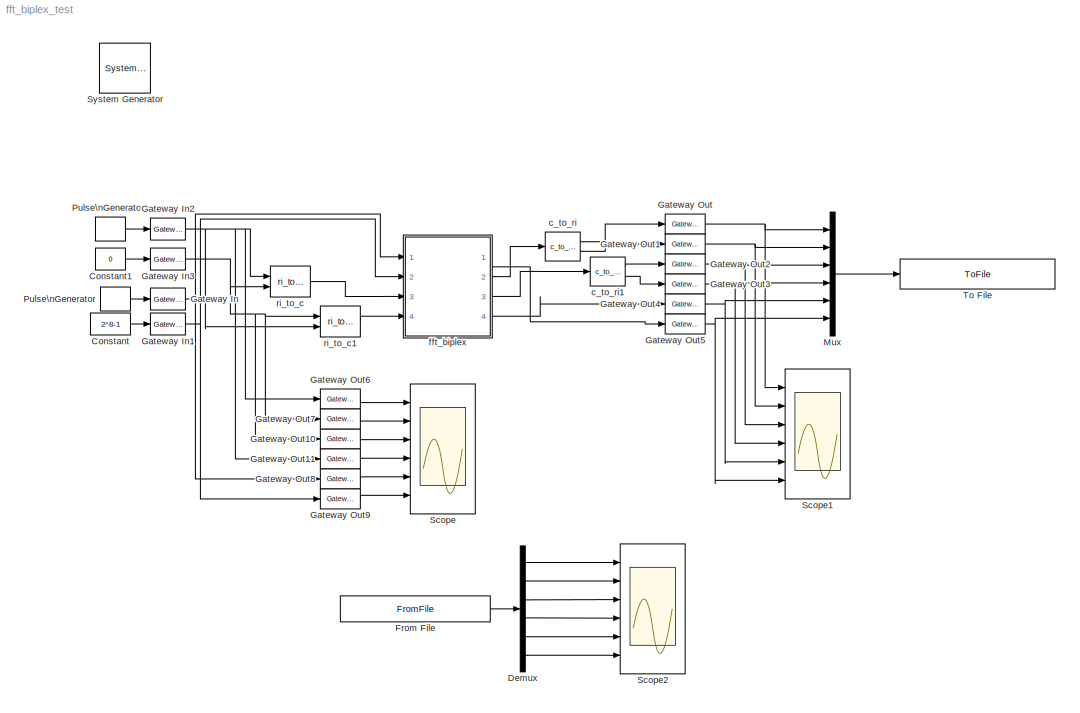
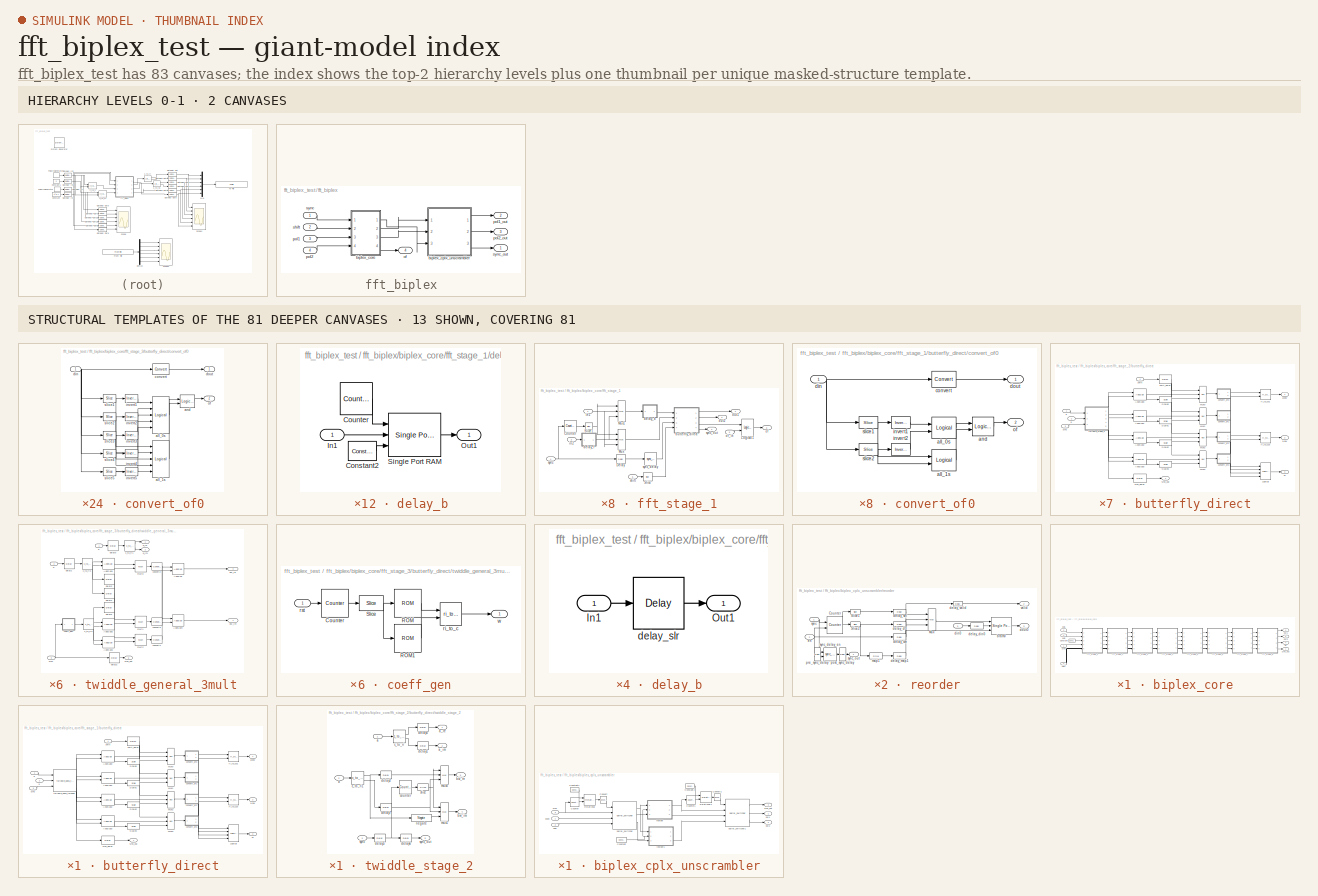
[diagram: thumbnail index - top-2 hierarchy levels (2 canvases) + 13 structural-template representatives of the remaining 81 canvases]
MODEL fft_biplex_test
KIND model
BLOCK [Reference]  System Generator  REF=xbsIndex_r4/ System Generator
  AttributesFormatString = System\\nGenerator
  FunctionWithSeparateData = off
  Ports = []
  RTWMemSecDataConstants = Inherit from model
  RTWMemSecDataInternal = Inherit from model
  RTWMemSecDataParameters = Inherit from model
  RTWMemSecFuncExecute = Inherit from model
  RTWMemSecFuncInitTerm = Inherit from model
  SID = 1
  ShowPortLabels = FromPortIcon
  SourceBlock = xbsIndex_r4/ System Generator
  SourceType = Xilinx System Generator Block
  SystemSampleTime = -1
  Tag = genX
  UserData = DataTag0
  UserDataPersistent = on
  block_type = sysgen
  block_version = 10.1.1
  clock_wrapper = Clock Enables
  core_generation = According to Block Masks
  dbl_ovrd = According to Block Masks
  dcm_input_clock_period = 100
  deprecated_control = off
  directory = ./netlist
  eval_field = 0
  has_advanced_control = 0
  incr_netlist = off
  infoedit = System Generator
  package = ff668
  part = xc4vsx35
  run_coregen = off
  sg_icon_stat = 51,50,-1,-1,red,beige,0,07734,right
  sg_mask_display = fprintf('','COMMENT: begin icon graphics');\npatch([0 51 51 0 ],[0 0 50 50 ],[0.93 0.92 0.86]);\npatch([12 4 16 4 12 25 29 33 47 36 25 17 29 17 25 36 47 33 29 25 12 ],[5 13 25 37 45 45 41 45 45 34 45 37 25 13 5 16 5 5 9 5 5 ],[0.6 0.2 0.25]);\nplot([0 51 51 0 0 ],[0 0 50 50 0 ]);\nfprintf('','COMMENT: end icon graphics');\nfprintf('','COMMENT: begin icon text');\nfprintf('','COMMENT: end icon text...<+5ch>
  sggui_pos = -1,-1,-1,-1
  simulink_period = 1
  speed = -10
  synthesis_tool = XST
  sysclk_period = 100
  testbench = off
  trim_vbits = Everywhere in SubSystem
  xilinxfamily = Virtex4
BLOCK [Constant] Constant
  OutDataType = sfix(16)
  OutScaling = 2^0
  SID = 2
  Value = 2^8-1
BLOCK [Constant] Constant1
  OutDataType = sfix(16)
  OutScaling = 2^0
  SID = 3
  Value = 0
BLOCK [Demux] Demux
  DisplayOption = bar
  Outputs = 6
  Ports = [1, 6]
  SID = 4
BLOCK [FromFile] From File
  FileName = fft_biplex_test_reference.mat
  SID = 5
  SampleTime = 1
BLOCK [Reference] Gateway In  REF=xbsIndex_r4/Gateway In
  LOCs = {}
  Ports = [1, 1]
  SID = 6
  SourceBlock = xbsIndex_r4/Gateway In
  SourceType = Xilinx Gateway In Block
  arith_type = Boolean
  bin_pt = 14
  block_type = gatewayin
  block_version = 10.1.1
  dbl_ovrd = off
  has_advanced_control = 0
  hdl_port = on
  infoedit = Gateway in block.  Converts inputs of type Simulink integer, double and fixed point to  Xilinx fixed point type.<P><P>Hardware notes:  In hardware these blocks become top level input ports.  <repeated x4 — deduplicated; at blocks: Gateway In, Gateway In1, Gateway In2, Gateway In3>
  locs_specified = off
  n_bits = 16
  overflow = Saturate
  period = 1
  quantization = Round  (unbiased: +/- Inf)
  sg_icon_stat = 35,22,1,1,white,yellow,0,00d3666e,right,
  sg_mask_display = fprintf('','COMMENT: begin icon graphics');\npatch([0 1 1 0 ],[0 0 1 1 ],[0.95 0.93 0.65]);\npatch([0.342857 0.228571 0.371429 0.228571 0.342857 0.514286 0.571429 0.628571 0.8 0.657143 0.514286 0.428571 0.6 0.428571 0.514286 0.657143 0.8 0.628571 0.571429 0.514286 0.342857 ],[0.0909091 0.272727 0.5 0.727273 0.909091 0.909091 0.818182 0.909091 0.909091 0.681818 0.909091 0.772727 0.5 0.227273 0.0909...<+366ch>  <repeated x4 — deduplicated; at blocks: Gateway In, Gateway In1, Gateway In2, Gateway In3>
  sggui_pos = 2260,24,407,458
  timing_constraint = None
  xl_area = [0,0,0,0,0,0,0]
  xl_use_area = off
BLOCK [Reference] Gateway In1  REF=xbsIndex_r4/Gateway In
  LOCs = {}
  Ports = [1, 1]
  SID = 7
  SourceBlock = xbsIndex_r4/Gateway In
  SourceType = Xilinx Gateway In Block
  arith_type = Unsigned
  bin_pt = 0
  block_type = gatewayin
  block_version = 10.1.1
  dbl_ovrd = off
  has_advanced_control = 0
  hdl_port = on
  locs_specified = off
  n_bits = 8
  overflow = Wrap
  period = 1
  quantization = Truncate
  sg_icon_stat = 35,22,1,1,white,yellow,0,00d3666e,right,
  sggui_pos = 2145,81,407,458
  timing_constraint = None
  xl_area = [0,0,0,0,0,0,0]
  xl_use_area = off
BLOCK [Reference] Gateway In2  REF=xbsIndex_r4/Gateway In
  LOCs = {}
  Ports = [1, 1]
  SID = 8
  SourceBlock = xbsIndex_r4/Gateway In
  SourceType = Xilinx Gateway In Block
  arith_type = Signed  (2's comp)
  bin_pt = 11
  block_type = gatewayin
  block_version = 10.1.1
  dbl_ovrd = off
  has_advanced_control = 0
  hdl_port = on
  locs_specified = off
  n_bits = 12
  overflow = Wrap
  period = 1
  quantization = Truncate
  sg_icon_stat = 35,22,1,1,white,yellow,0,00d3666e,right,
  sggui_pos = 2188,69,407,458
  timing_constraint = None
  xl_area = [0,0,0,0,0,0,0]
  xl_use_area = off
BLOCK [Reference] Gateway In3  REF=xbsIndex_r4/Gateway In
  LOCs = {}
  Ports = [1, 1]
  SID = 9
  SourceBlock = xbsIndex_r4/Gateway In
  SourceType = Xilinx Gateway In Block
  arith_type = Signed  (2's comp)
  bin_pt = 11
  block_type = gatewayin
  block_version = 10.1.1
  dbl_ovrd = off
  has_advanced_control = 0
  hdl_port = on
  locs_specified = off
  n_bits = 12
  overflow = Wrap
  period = 1
  quantization = Truncate
  sg_icon_stat = 35,22,1,1,white,yellow,0,00d3666e,right,
  sggui_pos = 1953,65,407,458
  timing_constraint = None
  xl_area = [0,0,0,0,0,0,0]
  xl_use_area = off
BLOCK [Reference] Gateway Out  REF=xbsIndex_r4/Gateway Out
  LOCs = {}
  Ports = [1, 1]
  SID = 10
  SourceBlock = xbsIndex_r4/Gateway Out
  SourceType = Xilinx Gateway Out Block
  block_type = gatewayout
  block_version = 10.1.1
  has_advanced_control = 0
  hdl_port = on
  infoedit = Gateway out block.  Converts Xilinx fixed point inputs into ouputs of type Simulink integer, double, or fixed point.<P><P>Hardware notes:  In hardware these blocks become top level output ports or are discarded, depending on how they are configured.  <repeated x12 — deduplicated; at blocks: Gateway Out, Gateway Out1, Gateway Out10, Gateway Out11, Gateway Out2, Gateway Out3, Gateway Out4, Gateway Out5, Gateway Out6, Gateway Out7, Gateway Out8, Gateway Out9>
  locs_specified = off
  sg_icon_stat = 40,20,1,1,white,yellow,0,cc31b7ac,right,
  sg_mask_display = fprintf('','COMMENT: begin icon graphics');\npatch([0 1 1 0 ],[0 0 1 1 ],[0.95 0.93 0.65]);\npatch([0.35 0.275 0.4 0.275 0.35 0.475 0.5 0.525 0.675 0.575 0.475 0.4 0.525 0.4 0.475 0.575 0.675 0.525 0.5 0.475 0.35 ],[0.1 0.25 0.5 0.75 0.9 0.9 0.85 0.9 0.9 0.7 0.9 0.75 0.5 0.25 0.1 0.3 0.1 0.1 0.15 0.1 0.1 ],[0.98 0.96 0.92]);\nplot([0 1 1 0 0 ],[0 0 1 1 0 ]);\nfprintf('','COMMENT: end icon graphics...<+211ch>  <repeated x12 — deduplicated; at blocks: Gateway Out, Gateway Out1, Gateway Out10, Gateway Out11, Gateway Out2, Gateway Out3, Gateway Out4, Gateway Out5, Gateway Out6, Gateway Out7, Gateway Out8, Gateway Out9>
  sggui_pos = -1,-1,-1,-1
  timing_constraint = None
  xl_area = [0,0,0,0,0,0,0]
  xl_use_area = off
BLOCK [Reference] Gateway Out1  REF=xbsIndex_r4/Gateway Out
  LOCs = {}
  Ports = [1, 1]
  SID = 11
  SourceBlock = xbsIndex_r4/Gateway Out
  SourceType = Xilinx Gateway Out Block
  block_type = gatewayout
  block_version = 10.1.1
  has_advanced_control = 0
  hdl_port = on
  locs_specified = off
  sg_icon_stat = 40,20,1,1,white,yellow,0,cc31b7ac,right,
  sggui_pos = -1,-1,-1,-1
  timing_constraint = None
  xl_area = [0,0,0,0,0,0,0]
  xl_use_area = off
BLOCK [Reference] Gateway Out10  REF=xbsIndex_r4/Gateway Out
  LOCs = {}
  Ports = [1, 1]
  SID = 12
  SourceBlock = xbsIndex_r4/Gateway Out
  SourceType = Xilinx Gateway Out Block
  block_type = gatewayout
  block_version = 10.1.1
  has_advanced_control = 0
  hdl_port = on
  locs_specified = off
  sg_icon_stat = 40,20,1,1,white,yellow,0,cc31b7ac,right,
  sggui_pos = -1,-1,-1,-1
  timing_constraint = None
  xl_area = [0,0,0,0,0,0,0]
  xl_use_area = off
BLOCK [Reference] Gateway Out11  REF=xbsIndex_r4/Gateway Out
  LOCs = {}
  Ports = [1, 1]
  SID = 13
  SourceBlock = xbsIndex_r4/Gateway Out
  SourceType = Xilinx Gateway Out Block
  block_type = gatewayout
  block_version = 10.1.1
  has_advanced_control = 0
  hdl_port = on
  locs_specified = off
  sg_icon_stat = 40,20,1,1,white,yellow,0,cc31b7ac,right,
  sggui_pos = -1,-1,-1,-1
  timing_constraint = None
  xl_area = [0,0,0,0,0,0,0]
  xl_use_area = off
BLOCK [Reference] Gateway Out2  REF=xbsIndex_r4/Gateway Out
  LOCs = {}
  Ports = [1, 1]
  SID = 14
  SourceBlock = xbsIndex_r4/Gateway Out
  SourceType = Xilinx Gateway Out Block
  block_type = gatewayout
  block_version = 10.1.1
  has_advanced_control = 0
  hdl_port = on
  locs_specified = off
  sg_icon_stat = 40,20,1,1,white,yellow,0,cc31b7ac,right,
  sggui_pos = -1,-1,-1,-1
  timing_constraint = None
  xl_area = [0,0,0,0,0,0,0]
  xl_use_area = off
BLOCK [Reference] Gateway Out3  REF=xbsIndex_r4/Gateway Out
  LOCs = {}
  Ports = [1, 1]
  SID = 15
  SourceBlock = xbsIndex_r4/Gateway Out
  SourceType = Xilinx Gateway Out Block
  block_type = gatewayout
  block_version = 10.1.1
  has_advanced_control = 0
  hdl_port = on
  locs_specified = off
  sg_icon_stat = 40,20,1,1,white,yellow,0,cc31b7ac,right,
  sggui_pos = -1,-1,-1,-1
  timing_constraint = None
  xl_area = [0,0,0,0,0,0,0]
  xl_use_area = off
BLOCK [Reference] Gateway Out4  REF=xbsIndex_r4/Gateway Out
  LOCs = {}
  Ports = [1, 1]
  SID = 16
  SourceBlock = xbsIndex_r4/Gateway Out
  SourceType = Xilinx Gateway Out Block
  block_type = gatewayout
  block_version = 10.1.1
  has_advanced_control = 0
  hdl_port = on
  locs_specified = off
  sg_icon_stat = 40,20,1,1,white,yellow,0,cc31b7ac,right,
  sggui_pos = -1,-1,-1,-1
  timing_constraint = None
  xl_area = [0,0,0,0,0,0,0]
  xl_use_area = off
BLOCK [Reference] Gateway Out5  REF=xbsIndex_r4/Gateway Out
  LOCs = {}
  Ports = [1, 1]
  SID = 17
  SourceBlock = xbsIndex_r4/Gateway Out
  SourceType = Xilinx Gateway Out Block
  block_type = gatewayout
  block_version = 10.1.1
  has_advanced_control = 0
  hdl_port = on
  locs_specified = off
  sg_icon_stat = 40,20,1,1,white,yellow,0,cc31b7ac,right,
  sggui_pos = -1,-1,-1,-1
  timing_constraint = None
  xl_area = [0,0,0,0,0,0,0]
  xl_use_area = off
BLOCK [Reference] Gateway Out6  REF=xbsIndex_r4/Gateway Out
  LOCs = {}
  Ports = [1, 1]
  SID = 18
  SourceBlock = xbsIndex_r4/Gateway Out
  SourceType = Xilinx Gateway Out Block
  block_type = gatewayout
  block_version = 10.1.1
  has_advanced_control = 0
  hdl_port = on
  locs_specified = off
  sg_icon_stat = 40,20,1,1,white,yellow,0,cc31b7ac,right,
  sggui_pos = -1,-1,-1,-1
  timing_constraint = None
  xl_area = [0,0,0,0,0,0,0]
  xl_use_area = off
BLOCK [Reference] Gateway Out7  REF=xbsIndex_r4/Gateway Out
  LOCs = {}
  Ports = [1, 1]
  SID = 19
  SourceBlock = xbsIndex_r4/Gateway Out
  SourceType = Xilinx Gateway Out Block
  block_type = gatewayout
  block_version = 10.1.1
  has_advanced_control = 0
  hdl_port = on
  locs_specified = off
  sg_icon_stat = 40,20,1,1,white,yellow,0,cc31b7ac,right,
  sggui_pos = -1,-1,-1,-1
  timing_constraint = None
  xl_area = [0,0,0,0,0,0,0]
  xl_use_area = off
BLOCK [Reference] Gateway Out8  REF=xbsIndex_r4/Gateway Out
  LOCs = {}
  Ports = [1, 1]
  SID = 20
  SourceBlock = xbsIndex_r4/Gateway Out
  SourceType = Xilinx Gateway Out Block
  block_type = gatewayout
  block_version = 10.1.1
  has_advanced_control = 0
  hdl_port = on
  locs_specified = off
  sg_icon_stat = 40,20,1,1,white,yellow,0,cc31b7ac,right,
  sggui_pos = -1,-1,-1,-1
  timing_constraint = None
  xl_area = [0,0,0,0,0,0,0]
  xl_use_area = off
BLOCK [Reference] Gateway Out9  REF=xbsIndex_r4/Gateway Out
  LOCs = {}
  Ports = [1, 1]
  SID = 21
  SourceBlock = xbsIndex_r4/Gateway Out
  SourceType = Xilinx Gateway Out Block
  block_type = gatewayout
  block_version = 10.1.1
  has_advanced_control = 0
  hdl_port = on
  locs_specified = off
  sg_icon_stat = 40,20,1,1,white,yellow,0,cc31b7ac,right,
  sggui_pos = -1,-1,-1,-1
  timing_constraint = None
  xl_area = [0,0,0,0,0,0,0]
  xl_use_area = off
BLOCK [Mux] Mux
  DisplayOption = bar
  Inputs = 6
  Ports = [6, 1]
  SID = 22
BLOCK [DiscretePulseGenerator] Pulse\nGenerator
  Amplitude = 1
  Period = 2^9
  PhaseDelay = 11
  Ports = [0, 1]
  PulseWidth = 1
  SID = 23
  SampleTime = 1
BLOCK [DiscretePulseGenerator] Pulse\nGenerator1
  Amplitude = 0.5
  Period = 2^9
  PhaseDelay = 12
  Ports = [0, 1]
  PulseWidth = 1
  SID = 24
  SampleTime = 1
BLOCK [Scope] Scope
  DataFormat = StructureWithTime
  Floating = off
  LimitDataPoints = off
  NumInputPorts = 6
  Ports = [6]
  SID = 25
  SampleTime = 0
  YMax = 5~5~5~5~5~5
  YMin = -5~-5~-5~-5~-5~-5
BLOCK [Scope] Scope1
  DataFormat = StructureWithTime
  Floating = off
  LimitDataPoints = off
  NumInputPorts = 6
  Ports = [6]
  SID = 26
  SampleTime = 0
  SaveName = ScopeData1
  YMax = 5~5~5~5~5~5
  YMin = -5~-5~-5~-5~-5~-5
BLOCK [Scope] Scope2
  DataFormat = StructureWithTime
  Floating = off
  LimitDataPoints = off
  NumInputPorts = 6
  Ports = [6]
  SID = 27
  SampleTime = 0
  SaveName = ScopeData2
  YMax = 5~5~5~5~5~5
  YMin = -5~-5~-5~-5~-5~-5
BLOCK [ToFile] To File
  Filename = fft_biplex_test_output.mat
  MatrixName = output
  SID = 28
BLOCK [Reference] c_to_ri  REF=casper_library_misc/c_to_ri  (lib defined in mdl_357510c33b49, mdl_57b5f564ae26, +4 more)
  AttributesFormatString = 12_11 r/i
  FunctionWithSeparateData = off
  Ports = [1, 2]
  RTWMemSecDataConstants = Inherit from model
  RTWMemSecDataInternal = Inherit from model
  RTWMemSecDataParameters = Inherit from model
  RTWMemSecFuncExecute = Inherit from model
  RTWMemSecFuncInitTerm = Inherit from model
  SID = 29
  ShowPortLabels = FromPortIcon
  SourceBlock = casper_library_misc/c_to_ri
  SourceType = c_to_ri
  SystemSampleTime = -1
  UserData = DataTag1
  UserDataPersistent = on
  bin_pt = 11
  n_bits = 12
BLOCK [Reference] c_to_ri1  REF=casper_library_misc/c_to_ri  (lib defined in mdl_357510c33b49, mdl_57b5f564ae26, +4 more)
  AttributesFormatString = 12_11 r/i
  FunctionWithSeparateData = off
  Ports = [1, 2]
  RTWMemSecDataConstants = Inherit from model
  RTWMemSecDataInternal = Inherit from model
  RTWMemSecDataParameters = Inherit from model
  RTWMemSecFuncExecute = Inherit from model
  RTWMemSecFuncInitTerm = Inherit from model
  SID = 30
  ShowPortLabels = FromPortIcon
  SourceBlock = casper_library_misc/c_to_ri
  SourceType = c_to_ri
  SystemSampleTime = -1
  UserData = DataTag2
  UserDataPersistent = on
  bin_pt = 11
  n_bits = 12
BLOCK [SubSystem] fft_biplex
  AncestorBlock = casper_library_ffts/fft_biplex
  AttributesFormatString = 8 stages\nVirtex2Pro
  FunctionWithSeparateData = off
  MaskCallbackString = |||||||||fft_callback_arch(gcb);||||specify_mult = get_param(gcb, 'specify_mult');\nset_param_state(gcb, 'mult_spec', specify_mult);||hardcode_shifts = get_param(gcb, 'hardcode_shifts');\nset_param_state(gcb, 'shift_schedule', hardcode_shifts);||fft_callback_dsp48_adders(gcb);
  MaskDescription = FFT internal block.
  MaskEnableString = on,on,on,on,on,on,on,on,on,on,on,on,on,on,off,on,off,off
  MaskHideContents = off
  MaskIconFrame = on
  MaskIconOpaque = on
  MaskIconRotate = none
  MaskIconUnits = autoscale
  MaskInitialization = fft_biplex_init(gcb, ...\n    'FFTSize', FFTSize, ...\n    'input_bit_width', input_bit_width, ...\n    'coeff_bit_width', coeff_bit_width, ...\n    'add_latency', add_latency, ...\n    'mult_latency', mult_latency, ...\n    'bram_latency', bram_latency, ...\n    'conv_latency', conv_latency, ...\n    'quantization', quantization, ...\n    'overflow', overflow, ...\n    'arch', arch, ...\n    'opt...<+315ch>
  MaskPortRotate = default
  MaskPromptString = Size of FFT: (2^? pts)|Input/Output Bit Width|Coefficient Bit Width|Add Latency|Mult Latency|BRAM Latency|Convert latency|Quantization Behavior|Overflow Behavior|Architecture|Use less|Number bits above which to store stage's coefficients in BRAM (2^? bits)|Number bits above which to implent stage's delays in BRAM (2^? bits)|Specify multiplier use (behavioral HDL if not specified)|Multiplier specif...<+121ch>
  MaskSelfModifiable = on
  MaskStyleString = edit,edit,edit,edit,edit,edit,edit,popup(Truncate|Round  (unbiased: +/- Inf)|Round  (unbiased: Even Values)),popup(Wrap|Saturate|Error),popup(Virtex2Pro|Virtex5),popup(logic|multipliers),edit,edit,checkbox,edit,checkbox,edit,checkbox
  MaskTabNameString = Basic,Basic,Basic,Latency,Latency,Latency,Latency,Implementation,Implementation,Implementation,Implementation,Implementation,Implementation,Implementation,Implementation,Implementation,Implementation,Implementation
  MaskToolTipString = on,on,on,on,on,on,on,on,on,on,on,on,on,on,on,on,on,on
  MaskTunableValueString = on,on,on,on,on,on,on,on,on,on,on,on,on,on,on,on,on,on
  MaskType = fft_biplex
  MaskValueString = 8|12|12|2|3|2|2|Round  (unbiased: +/- Inf)|Saturate|Virtex2Pro|multipliers|6|6|off|getfield( getfield( get_param( gcb,'UserData' ), 'parameters'),'mult_spec')|off|getfield( getfield( get_param( gcb,'UserData' ), 'parameters'),'shift_schedule')|off
  MaskVariables = FFTSize=@1;input_bit_width=@2;coeff_bit_width=@3;add_latency=@4;mult_latency=@5;bram_latency=@6;conv_latency=@7;quantization=&8;overflow=&9;arch=&10;opt_target=&11;coeffs_bit_limit=@12;delays_bit_limit=@13;specify_mult=&14;mult_spec=@15;hardcode_shifts=&16;shift_schedule=@17;dsp48_adders=&18;
  MaskVisibilityString = on,on,on,on,on,on,on,on,on,on,on,on,on,on,on,on,on,on
  MinAlgLoopOccurrences = off
  Opaque = off
  Ports = [4, 4]
  PropExecContextOutsideSubsystem = off
  RTWSystemCode = Auto
  RequestExecContextInheritance = off
  SID = 35
  UserData = DataTag3
  UserDataPersistent = on
BLOCK [SubSystem] fft_biplex/biplex_core
  AncestorBlock = casper_library_ffts/biplex_core
  AttributesFormatString = 8 stages\nreduce multipliers\nVirtex2Pro
  FunctionWithSeparateData = off
  MaskCallbackString = |||||||||fft_callback_arch(gcb);||||specify_mult = get_param(gcb, 'specify_mult');\nset_param_state(gcb, 'mult_spec', specify_mult);||hardcode_shifts = get_param(gcb, 'hardcode_shifts');\nset_param_state(gcb, 'shift_schedule', hardcode_shifts);||fft_callback_dsp48_adders(gcb);
  MaskDescription = FFT internal block.
  MaskEnableString = on,on,on,on,on,on,on,on,on,on,on,on,on,on,off,on,off,on
  MaskHideContents = off
  MaskIconFrame = on
  MaskIconOpaque = on
  MaskIconRotate = none
  MaskIconUnits = autoscale
  MaskInitialization = biplex_core_init(gcb,...\n    'FFTSize', FFTSize,...\n    'input_bit_width', input_bit_width,...\n    'coeff_bit_width', coeff_bit_width,...\n    'add_latency', add_latency,...\n    'mult_latency', mult_latency,...\n    'bram_latency', bram_latency,...\n    'conv_latency', conv_latency, ...\n    'quantization', quantization,...\n    'overflow', overflow,...\n    'arch', arch, ...\n    'opt_target'...<+308ch>
  MaskPortRotate = default
  MaskPromptString = Size of FFT: (2^? pts)|Input/Output Bit Width|Coefficient Bit Width|Add Latency|Mult Latency|BRAM Latency|Convert latency|Quantization Behavior|Overflow Behavior|Architecture|Use less|Number bits above which to store stage's coefficients in BRAM (2^? bits)|Number bits above which to implent stage's delays in BRAM (2^? bits)|Specify multiplier use (behavioural HDL if not specified)|Multiplier speci...<+122ch>
  MaskSelfModifiable = on
  MaskStyleString = edit,edit,edit,edit,edit,edit,edit,popup(Truncate|Round  (unbiased: +/- Inf)|Round  (unbiased: Even Values)),popup(Wrap|Saturate|Error),popup(Virtex2Pro|Virtex5),popup(logic|multipliers),edit,edit,checkbox,edit,checkbox,edit,checkbox
  MaskTabNameString = Basic,Basic,Basic,Latency,Latency,Latency,Latency,Implementation,Implementation,Implementation,Implementation,Implementation,Implementation,Implementation,Implementation,Implementation,Implementation,Implementation
  MaskToolTipString = on,on,on,on,on,on,on,on,on,on,on,on,on,on,on,on,on,on
  MaskTunableValueString = on,on,on,on,on,on,on,on,on,on,on,on,on,on,on,on,on,on
  MaskType = biplex_core
  MaskValueString = 8|12|12|2|3|2|2|Round  (unbiased: +/- Inf)|Saturate|Virtex2Pro|multipliers|6|6|off|getfield( getfield( get_param( gcb,'UserData' ), 'parameters'),'mult_spec')|off|getfield( getfield( get_param( gcb,'UserData' ), 'parameters'),'shift_schedule')|off
  MaskVariables = FFTSize=@1;input_bit_width=@2;coeff_bit_width=@3;add_latency=@4;mult_latency=@5;bram_latency=@6;conv_latency=@7;quantization=&8;overflow=&9;arch=&10;opt_target=&11;coeffs_bit_limit=@12;delays_bit_limit=@13;specify_mult=&14;mult_spec=@15;hardcode_shifts=&16;shift_schedule=@17;dsp48_adders=&18;
  MaskVisibilityString = on,on,on,on,on,on,on,on,on,on,on,on,on,on,on,on,on,on
  MinAlgLoopOccurrences = off
  Opaque = off
  Ports = [4, 4]
  PropExecContextOutsideSubsystem = off
  RTWSystemCode = Auto
  RequestExecContextInheritance = off
  SID = 30
  UserData = DataTag4
  UserDataPersistent = on
BLOCK [Reference] fft_biplex/biplex_core/Constant  REF=xbsIndex_r4/Constant
  Ports = [0, 1]
  SID = 5
  SourceBlock = xbsIndex_r4/Constant
  SourceType = Xilinx Constant Block Block
  arith_type = Boolean
  bin_pt = 14
  block_type = constant
  block_version = 11.4
  carry = CIN
  const = 0
  dbl_ovrd = off
  dsp48_infoedit = The use of this block for DSP48 instructions is deprecated.  Please use the Opmode block.
  equ = P=C
  explicit_period = off
  has_advanced_control = 0
  inp1 = P
  inp2 = PCIN>>17
  n_bits = 16
  opr = +
  opselect = C
  period = 1
  sg_icon_stat = 30,16,0,1,white,blue,0,bf4ddd8b,right,
  sg_mask_display = fprintf('','COMMENT: begin icon graphics');\npatch([0 1 1 0 ],[0 0 1 1 ],[0.77 0.82 0.91]);\npatch([0.366667 0.266667 0.4 0.266667 0.366667 0.5 0.533333 0.566667 0.733333 0.6 0.5 0.433333 0.566667 0.433333 0.5 0.6 0.733333 0.566667 0.533333 0.5 0.366667 ],[0.125 0.3125 0.5625 0.8125 1 1 0.9375 1 1 0.75 0.9375 0.8125 0.5625 0.3125 0.1875 0.375 0.125 0.125 0.1875 0.125 0.125 ],[0.98 0.96 0.92]);\npl...<+199ch>
  sggui_pos = -1,-1,-1,-1
BLOCK [SubSystem] fft_biplex/biplex_core/fft_stage_1
  AncestorBlock = casper_library_ffts/fft_stage_n
  AttributesFormatString = [1/8]\ndelays in BRAM\ncoeffs in slices\n
  FunctionWithSeparateData = off
  MaskCallbackString = |||||||||||fft_callback_arch(gcb);||||% make mutually exclusive with use_embedded.\n\nuse_hdl = get_param(gcb, 'use_hdl');\nif strcmp(use_hdl, 'on'),\n    set_param_state(gcb, 'use_embedded', 'off');\nelse\n    set_param_state(gcb, 'use_embedded', 'on');\nend|% make mutually exclusive with use_hdl.\n\nuse_hdl = get_param(gcb, 'use_embedded');\nif strcmp(use_hdl, 'on'),\n    set_param_state(gcb, 'u...<+209ch>  <repeated x8 — deduplicated; at blocks: fft_stage_1, fft_stage_2, fft_stage_3, fft_stage_4, fft_stage_5, fft_stage_6, fft_stage_7, fft_stage_8>
  MaskDescription = FFT internal block.
  MaskEnableString = on,on,on,on,off,on,on,on,on,on,on,on,on,on,on,on,off,on,on
  MaskHideContents = off
  MaskIconFrame = on
  MaskIconOpaque = on
  MaskIconRotate = none
  MaskIconUnits = autoscale
  MaskInitialization = fft_stage_n_init(gcb, ...\n    'FFTSize', FFTSize, ...\n    'FFTStage', FFTStage, ...\n    'input_bit_width', input_bit_width, ...\n    'coeff_bit_width', coeff_bit_width, ...\n    'delays_bram', delays_bram, ...\n    'coeffs_bram', coeffs_bram, ...\n    'quantization', quantization, ...\n    'overflow', overflow, ...\n    'add_latency', add_latency, ...\n    'mult_latency', mult_latency, ...\n   ...<+313ch>  <repeated x8 — deduplicated; at blocks: fft_stage_1, fft_stage_2, fft_stage_3, fft_stage_4, fft_stage_5, fft_stage_6, fft_stage_7, fft_stage_8>
  MaskPortRotate = default
  MaskPromptString = Size of FFT: (2^? pts)|Stage of FFT:|Input/Output Bit Width:|Coefficient Bit Width|Downshift|Add Latency|Mult Latency|BRAM Latency|Convert latency|Quantization Behavior|Overflow Behavior|Architecture|Use less|Implement Delays in BRAM|Store Coefficients in BRAM|Use behavioural HDL for mutlipliers|Use embedded multipliers|Hardcode shift schedule|Use DSP48s for adders  <repeated x8 — deduplicated; at blocks: fft_stage_1, fft_stage_2, fft_stage_3, fft_stage_4, fft_stage_5, fft_stage_6, fft_stage_7, fft_stage_8>
  MaskSelfModifiable = on
  MaskStyleString = edit,edit,edit,edit,checkbox,edit,edit,edit,edit,popup(Truncate|Round  (unbiased: +/- Inf)|Round  (unbiased: Even Values)),popup(Wrap|Saturate|Error),popup(Virtex2Pro|Virtex5),popup(logic|multipliers),checkbox,checkbox,checkbox,checkbox,checkbox,checkbox  <repeated x8 — deduplicated; at blocks: fft_stage_1, fft_stage_2, fft_stage_3, fft_stage_4, fft_stage_5, fft_stage_6, fft_stage_7, fft_stage_8>
  MaskTabNameString = Basic,Basic,Basic,Basic,Basic,Latency,Latency,Latency,Latency,Implementation,Implementation,Implementation,Implementation,Implementation,Implementation,Implementation,Implementation,Implementation,Implementation  <repeated x8 — deduplicated; at blocks: fft_stage_1, fft_stage_2, fft_stage_3, fft_stage_4, fft_stage_5, fft_stage_6, fft_stage_7, fft_stage_8>
  MaskToolTipString = on,on,on,on,on,on,on,on,on,on,on,on,on,on,on,on,on,on,on
  MaskTunableValueString = on,on,on,on,on,on,on,on,on,on,on,on,on,on,on,on,on,on,on
  MaskType = fft_stage_n
  MaskValueString = 8|1|12|12|off|2|3|2|2|Round  (unbiased: +/- Inf)|Saturate|Virtex2Pro|multipliers|on|off|on|off|off|off
  MaskVariables = FFTSize=@1;FFTStage=@2;input_bit_width=@3;coeff_bit_width=@4;downshift=&5;add_latency=@6;mult_latency=@7;bram_latency=@8;conv_latency=@9;quantization=&10;overflow=&11;arch=&12;opt_target=&13;delays_bram=&14;coeffs_bram=&15;use_hdl=&16;use_embedded=&17;hardcode_shifts=&18;dsp48_adders=&19;  <repeated x8 — deduplicated; at blocks: fft_stage_1, fft_stage_2, fft_stage_3, fft_stage_4, fft_stage_5, fft_stage_6, fft_stage_7, fft_stage_8>
  MaskVisibilityString = on,on,on,on,on,on,on,on,on,on,on,on,on,on,on,on,on,on,on
  MinAlgLoopOccurrences = off
  Opaque = off
  Ports = [5, 4]
  PropExecContextOutsideSubsystem = off
  RTWSystemCode = Auto
  RequestExecContextInheritance = off
  SID = 13
  UserData = DataTag5
  UserDataPersistent = on
BLOCK [Reference] fft_biplex/biplex_core/fft_stage_1/Counter  REF=xbsIndex_r4/Counter
  Ports = [1, 1]
  SID = 6
  SourceBlock = xbsIndex_r4/Counter
  SourceType = Xilinx Counter Block
  arith_type = Unsigned
  bin_pt = 0
  block_type = counter
  block_version = 9.1.01
  cnt_by_val = 1
  cnt_to = Inf
  cnt_type = Free Running
  dbl_ovrd = off
  en = off
  explicit_period = off
  has_advanced_control = 0
  implementation = Fabric
  infoedit = Hardware notes: Free running counters are the least expensive in hardware.  A count limited counter is implemented by combining a counter with a comparator.
  load_pin = off
  n_bits = FFTSize-FFTStage+1
  operation = Up
  period = 1
  rst = on
  sg_icon_stat = 40,40,1,1,white,blue,0,c59595e6,right,
  sg_mask_display = fprintf('','COMMENT: begin icon graphics');\npatch([0 1 1 0 ],[0 0 1 1 ],[0.77 0.82 0.91]);\npatch([0.25 0.075 0.3 0.075 0.25 0.525 0.6 0.675 0.95 0.725 0.5 0.35 0.6 0.35 0.5 0.725 0.95 0.675 0.6 0.525 0.25 ],[0.1 0.275 0.5 0.725 0.9 0.9 0.825 0.9 0.9 0.675 0.9 0.75 0.5 0.25 0.1 0.325 0.1 0.1 0.175 0.1 0.1 ],[0.98 0.96 0.92]);\nplot([0 1 1 0 0 ],[0 0 1 1 0 ]);\nfprintf('','COMMENT: end icon graphi...<+178ch>  <repeated x8 — deduplicated; at blocks: Counter>
  sggui_pos = -1,-1,-1,-1
  start_count = 0
  use_behavioral_HDL = off
  use_rpm = off
  xl_area = [0, 0, 0, 0, 0, 0, 0]
  xl_use_area = off
BLOCK [Reference] fft_biplex/biplex_core/fft_stage_1/Delay  REF=xbsIndex_r4/Delay
  Ports = [1, 1]
  SID = 7
  SourceBlock = xbsIndex_r4/Delay
  SourceType = Xilinx Delay Block
  block_type = delay
  block_version = 9.1.01
  dbl_ovrd = off
  en = off
  has_advanced_control = 0
  infoedit = Hardware notes: A delay line is a chain, each link of which is an SRL16 followed by a flip-flop.
  latency = 1
  reg_retiming = off
  sg_icon_stat = 30,30,1,1,white,blue,0,07b98262,right,
  sg_mask_display = fprintf('','COMMENT: begin icon graphics');\npatch([0 1 1 0 ],[0 0 1 1 ],[0.77 0.82 0.91]);\npatch([0.233333 0.0666667 0.3 0.0666667 0.233333 0.5 0.566667 0.633333 0.9 0.666667 0.466667 0.3 0.5 0.3 0.466667 0.666667 0.9 0.633333 0.566667 0.5 0.233333 ],[0.1 0.266667 0.5 0.733333 0.9 0.9 0.833333 0.9 0.9 0.666667 0.866667 0.7 0.5 0.3 0.133333 0.333333 0.1 0.1 0.166667 0.1 0.1 ],[0.98 0.96 0.92]);\n...<+204ch>  <repeated x8 — deduplicated; at blocks: Delay>
  sggui_pos = 21,71,419,315
  xl_area = [0, 0, 0, 0, 0, 0, 0]
  xl_use_area = off
BLOCK [Reference] fft_biplex/biplex_core/fft_stage_1/Logical1  REF=xbsIndex_r4/Logical
  Ports = [2, 1]
  SID = 8
  SourceBlock = xbsIndex_r4/Logical
  SourceType = Xilinx Logical Block Block
  align_bp = on
  arith_type = Unsigned
  bin_pt = 2
  block_type = logical
  block_version = 9.1.01
  dbl_ovrd = off
  en = off
  has_advanced_control = 0
  inputs = 2
  latency = 1
  logical_function = OR
  n_bits = 8
  precision = Full
  sg_icon_stat = 40,58,2,1,white,blue,0,d26eadf1,right,
  sg_mask_display = fprintf('','COMMENT: begin icon graphics');\npatch([0 1 1 0 ],[0 0 1 1 ],[0.77 0.82 0.91]);\npatch([0.25 0.075 0.3 0.075 0.25 0.525 0.6 0.675 0.95 0.725 0.5 0.35 0.6 0.35 0.5 0.725 0.95 0.675 0.6 0.525 0.25 ],[0.224138 0.344828 0.5 0.655172 0.775862 0.775862 0.724138 0.775862 0.775862 0.62069 0.775862 0.672414 0.5 0.327586 0.224138 0.37931 0.224138 0.224138 0.275862 0.224138 0.224138 ],[0.98 0.96 ...<+233ch>  <repeated x8 — deduplicated; at blocks: Logical1>
  sggui_pos = -1,-1,-1,-1
  xl_area = [0, 0, 0, 0, 0, 0, 0]
  xl_use_area = off
BLOCK [Reference] fft_biplex/biplex_core/fft_stage_1/Mux  REF=xbsIndex_r4/Mux
  Ports = [3, 1]
  SID = 9
  SourceBlock = xbsIndex_r4/Mux
  SourceType = Xilinx Bus Multiplexer Block
  arith_type = Signed  (2's comp)
  bin_pt = 2
  block_type = mux
  block_version = 9.1.01
  dbl_ovrd = off
  en = off
  has_advanced_control = 0
  inputs = 2
  latency = 1
  n_bits = 8
  overflow = Wrap
  precision = Full
  quantization = Truncate
  sg_icon_stat = 25,70,3,1,white,blue,3,a150fb03,right,
  sg_mask_display = fprintf('','COMMENT: begin icon graphics');\npatch([0 1 1 0 ],[0 0.142857 0.857143 1 ],[0.77 0.82 0.91]);\npatch([0.24 0.08 0.32 0.08 0.24 0.52 0.6 0.68 0.96 0.72 0.52 0.36 0.56 0.36 0.52 0.72 0.96 0.68 0.6 0.52 0.24 ],[0.357143 0.414286 0.5 0.585714 0.642857 0.642857 0.614286 0.642857 0.642857 0.557143 0.628571 0.571429 0.5 0.428571 0.371429 0.442857 0.357143 0.357143 0.385714 0.357143 0.357143 ]...<+380ch>  <repeated x16 — deduplicated; at blocks: Mux, Mux1>
  sggui_pos = -1,-1,-1,-1
  xl_area = [0, 0, 0, 0, 0, 0, 0]
  xl_use_area = off
BLOCK [Reference] fft_biplex/biplex_core/fft_stage_1/Mux1  REF=xbsIndex_r4/Mux
  Ports = [3, 1]
  SID = 10
  SourceBlock = xbsIndex_r4/Mux
  SourceType = Xilinx Bus Multiplexer Block
  arith_type = Signed  (2's comp)
  bin_pt = 2
  block_type = mux
  block_version = 9.1.01
  dbl_ovrd = off
  en = off
  has_advanced_control = 0
  inputs = 2
  latency = 1
  n_bits = 8
  overflow = Wrap
  precision = Full
  quantization = Truncate
  sg_icon_stat = 25,70,3,1,white,blue,3,a150fb03,right,
  sggui_pos = -1,-1,-1,-1
  xl_area = [0, 0, 0, 0, 0, 0, 0]
  xl_use_area = off
BLOCK [Reference] fft_biplex/biplex_core/fft_stage_1/Slice  REF=xbsIndex_r4/Slice
  Ports = [1, 1]
  SID = 11
  SourceBlock = xbsIndex_r4/Slice
  SourceType = Xilinx Bit Slice Extractor Block
  base0 = LSB of Input
  base1 = MSB of Input
  bit0 = FFTStage - 1
  bit1 = -(FFTStage - 1)
  block_type = slice
  block_version = 9.1.01
  boolean_output = on
  dbl_ovrd = off
  has_advanced_control = 0
  infoedit = Extracts a given range of bits from each input sample and presents it at the output.  The output type is ordinarily unsigned with binary point at zero, but can be Boolean when the slice is one bit wide.<P><P>Hardware notes: In hardware this block costs nothing.  <repeated x80 — deduplicated; at blocks: Slice, Slice1, slice1, slice2>
  mode = Lower Bit Location + Width
  nbits = 1
  sg_icon_stat = 30,28,1,1,white,blue,0,1fd851a7,right,
  sg_mask_display = fprintf('','COMMENT: begin icon graphics');\npatch([0 1 1 0 ],[0 0 1 1 ],[0.77 0.82 0.91]);\npatch([0.266667 0.1 0.333333 0.1 0.266667 0.5 0.566667 0.633333 0.9 0.7 0.5 0.366667 0.633333 0.366667 0.5 0.7 0.9 0.633333 0.566667 0.5 0.266667 ],[0.107143 0.285714 0.535714 0.785714 0.964286 0.964286 0.892857 0.964286 0.964286 0.75 0.964286 0.821429 0.535714 0.25 0.107143 0.321429 0.107143 0.107143 0.17...<+250ch>  <repeated x8 — deduplicated; at blocks: Slice>
  sggui_pos = -1,-1,-1,-1
BLOCK [Reference] fft_biplex/biplex_core/fft_stage_1/Slice1  REF=xbsIndex_r4/Slice
  Ports = [1, 1]
  SID = 12
  SourceBlock = xbsIndex_r4/Slice
  SourceType = Xilinx Bit Slice Extractor Block
  base0 = LSB of Input
  base1 = MSB of Input
  bit0 = 0
  bit1 = 0
  block_type = slice
  block_version = 9.1.01
  boolean_output = off
  dbl_ovrd = off
  has_advanced_control = 0
  mode = Upper Bit Location + Width
  nbits = 1
  sg_icon_stat = 25,22,1,1,white,blue,0,1fd851a7,right,
  sg_mask_display = fprintf('','COMMENT: begin icon graphics');\npatch([0 1 1 0 ],[0 0 1 1 ],[0.77 0.82 0.91]);\npatch([0.28 0.12 0.32 0.12 0.28 0.52 0.6 0.68 0.92 0.72 0.52 0.4 0.64 0.4 0.52 0.72 0.92 0.68 0.6 0.52 0.28 ],[0.0909091 0.272727 0.5 0.727273 0.909091 0.909091 0.818182 0.909091 0.909091 0.681818 0.909091 0.772727 0.5 0.227273 0.0909091 0.318182 0.0909091 0.0909091 0.181818 0.0909091 0.0909091 ],[0.98 0.9...<+216ch>  <repeated x8 — deduplicated; at blocks: Slice1>
  sggui_pos = -1,-1,-1,-1
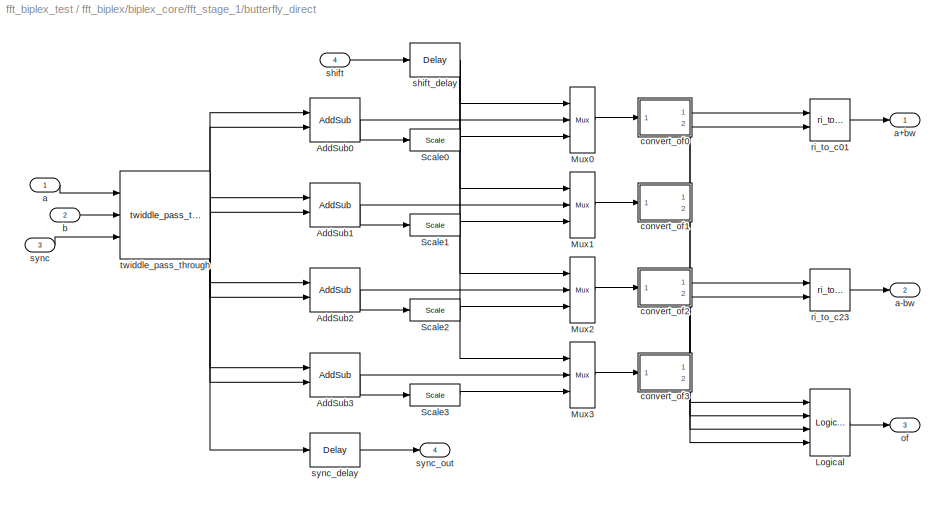
BLOCK [SubSystem] fft_biplex/biplex_core/fft_stage_1/butterfly_direct
  AncestorBlock = casper_library_ffts/butterfly_direct
  AttributesFormatString = twiddle_pass_through\ncoeffs in slices
  FunctionWithSeparateData = off
  MaskCallbackString = ||Coeffs = get_param(gcb, 'Coeffs');\nif (length(eval(Coeffs)) == 1),\n    set_param_state(gcb, 'StepPeriod', 'off');\n    set_param_state(gcb, 'coeffs_bram', 'off');\n    set_param_state(gcb, 'coeff_bit_width', 'off');\nelse\n    set_param_state(gcb, 'StepPeriod', 'on');\n    set_param_state(gcb, 'coeffs_bram', 'on');\n    set_param_state(gcb, 'coeff_bit_width', 'on');\nend|||||||||||fft_callback...<+585ch>  <repeated x8 — deduplicated; at blocks: butterfly_direct>
  MaskDescription = FFT internal block.
  MaskEnableString = on,on,on,off,off,on,off,on,on,on,on,on,on,on,on,off,on,off,on,on
  MaskHideContents = off
  MaskIconFrame = on
  MaskIconOpaque = on
  MaskIconRotate = none
  MaskIconUnits = autoscale
  MaskInitialization = butterfly_direct_init(gcb, ...\n    'biplex', biplex, ...\n    'FFTSize', FFTSize, ...\n    'Coeffs', Coeffs, ...\n    'StepPeriod', StepPeriod, ...\n    'coeff_bit_width', coeff_bit_width, ...\n    'input_bit_width', input_bit_width, ...\n    'hardcode_shifts', hardcode_shifts, ...\n    'downshift', downshift, ...\n    'add_latency', add_latency, ...\n    'mult_latency', mult_latency, ...\n    'b...<+343ch>  <repeated x8 — deduplicated; at blocks: butterfly_direct>
  MaskPortRotate = default
  MaskPromptString = Used in biplex FFT|Size of FFT: (2^? pts)|Coefficients: (0 to 2^(FFTSize-1)-1)|Coefficient Step Period: (2^?)|Coefficient Bit Width|Input/Output Bit Width:|Downshift|Add Latency|Mult Latency|BRAM Latency|Convert latency|Quantization Behavior|Overflow Behavior|Architecture|Use less|Store coefficients in BRAM|Use behavioural HDL for multipliers|Use embedded multipliers|Hardcode shift schedule|Use DS...<+15ch>  <repeated x8 — deduplicated; at blocks: butterfly_direct>
  MaskSelfModifiable = on
  MaskStyleString = checkbox,edit,edit,edit,edit,edit,checkbox,edit,edit,edit,edit,popup(Truncate|Round  (unbiased: +/- Inf)|Round  (unbiased: Even Values)),popup(Wrap|Saturate|Error),popup(Virtex2Pro|Virtex5),popup(logic|multipliers),checkbox,checkbox,checkbox,checkbox,checkbox  <repeated x8 — deduplicated; at blocks: butterfly_direct>
  MaskTabNameString = Basic,Basic,Basic,Basic,Basic,Basic,Basic,Latency,Latency,Latency,Latency,Implementation,Implementation,Implementation,Implementation,Implementation,Implementation,Implementation,Implementation,Implementation  <repeated x8 — deduplicated; at blocks: butterfly_direct>
  MaskToolTipString = on,on,on,on,on,on,on,on,on,on,on,on,on,on,on,on,on,on,on,on
  MaskTunableValueString = on,on,on,on,on,on,on,on,on,on,on,on,on,on,on,on,on,on,on,on
  MaskType = butterfly_direct
  MaskValueString = on|8|0|7|12|12|off|2|3|2|2|Round  (unbiased: +/- Inf)|Saturate|Virtex2Pro|multipliers|off|on|off|off|off
  MaskVariables = biplex=&1;FFTSize=@2;Coeffs=@3;StepPeriod=@4;coeff_bit_width=@5;input_bit_width=@6;downshift=&7;add_latency=@8;mult_latency=@9;bram_latency=@10;conv_latency=@11;quantization=&12;overflow=&13;arch=&14;opt_target=&15;coeffs_bram=&16;use_hdl=&17;use_embedded=&18;hardcode_shifts=&19;dsp48_adders=&20;  <repeated x8 — deduplicated; at blocks: butterfly_direct>
  MaskVisibilityString = off,on,on,on,on,on,on,on,on,on,on,on,on,on,on,on,on,on,on,on
  MinAlgLoopOccurrences = off
  Opaque = off
  Ports = [4, 4]
  PropExecContextOutsideSubsystem = off
  RTWSystemCode = Auto
  RequestExecContextInheritance = off
  SID = 2037
  UserData = DataTag6
  UserDataPersistent = on
BLOCK [Reference] fft_biplex/biplex_core/fft_stage_1/butterfly_direct/AddSub0  REF=xbsIndex_r4/AddSub
  Ports = [2, 1]
  SID = 69
  SourceBlock = xbsIndex_r4/AddSub
  SourceType = Xilinx Adder/Subtracter Block
  arith_type = Unsigned
  bin_pt = 14
  block_type = addsub
  block_version = 11.4
  dbl_ovrd = off
  en = off
  has_advanced_control = 0
  hw_selection = Fabric
  latency = 2
  mode = Addition
  n_bits = 16
  overflow = Wrap
  pipelined = off
  precision = Full
  quantization = Truncate
  sg_icon_stat = 50,44,2,1,white,blue,0,4922a24f,right,
  sg_mask_display = fprintf('','COMMENT: begin icon graphics');\npatch([0 1 1 0 ],[0 0 1 1 ],[0.77 0.82 0.91]);\npatch([0.26 0.12 0.32 0.12 0.26 0.5 0.56 0.62 0.86 0.66 0.48 0.34 0.52 0.34 0.48 0.66 0.86 0.62 0.56 0.5 0.26 ],[0.113636 0.272727 0.5 0.727273 0.886364 0.886364 0.818182 0.886364 0.886364 0.659091 0.863636 0.704545 0.5 0.295455 0.136364 0.340909 0.113636 0.113636 0.181818 0.113636 0.113636 ],[0.98 0.96 0....<+390ch>  <repeated x32 — deduplicated; at blocks: AddSub0, AddSub1, AddSub2, AddSub3>
  sggui_pos = -1,-1,-1,-1
  use_behavioral_HDL = on
  use_carryin = off
  use_carryout = off
  xl_area = [0,0,0,0,0,0,0]
  xl_use_area = off
BLOCK [Reference] fft_biplex/biplex_core/fft_stage_1/butterfly_direct/AddSub1  REF=xbsIndex_r4/AddSub
  Ports = [2, 1]
  SID = 70
  SourceBlock = xbsIndex_r4/AddSub
  SourceType = Xilinx Adder/Subtracter Block
  arith_type = Unsigned
  bin_pt = 14
  block_type = addsub
  block_version = 11.4
  dbl_ovrd = off
  en = off
  has_advanced_control = 0
  hw_selection = Fabric
  latency = 2
  mode = Addition
  n_bits = 16
  overflow = Wrap
  pipelined = off
  precision = Full
  quantization = Truncate
  sg_icon_stat = 50,44,2,1,white,blue,0,4922a24f,right,
  sggui_pos = -1,-1,-1,-1
  use_behavioral_HDL = on
  use_carryin = off
  use_carryout = off
  xl_area = [0,0,0,0,0,0,0]
  xl_use_area = off
BLOCK [Reference] fft_biplex/biplex_core/fft_stage_1/butterfly_direct/AddSub2  REF=xbsIndex_r4/AddSub
  Ports = [2, 1]
  SID = 71
  SourceBlock = xbsIndex_r4/AddSub
  SourceType = Xilinx Adder/Subtracter Block
  arith_type = Unsigned
  bin_pt = 14
  block_type = addsub
  block_version = 11.4
  dbl_ovrd = off
  en = off
  has_advanced_control = 0
  hw_selection = Fabric
  latency = 2
  mode = Subtraction
  n_bits = 16
  overflow = Wrap
  pipelined = off
  precision = Full
  quantization = Truncate
  sg_icon_stat = 50,44,2,1,white,blue,0,57a258cf,right,
  sggui_pos = -1,-1,-1,-1
  use_behavioral_HDL = on
  use_carryin = off
  use_carryout = off
  xl_area = [0,0,0,0,0,0,0]
  xl_use_area = off
BLOCK [Reference] fft_biplex/biplex_core/fft_stage_1/butterfly_direct/AddSub3  REF=xbsIndex_r4/AddSub
  Ports = [2, 1]
  SID = 72
  SourceBlock = xbsIndex_r4/AddSub
  SourceType = Xilinx Adder/Subtracter Block
  arith_type = Unsigned
  bin_pt = 14
  block_type = addsub
  block_version = 11.4
  dbl_ovrd = off
  en = off
  has_advanced_control = 0
  hw_selection = Fabric
  latency = 2
  mode = Subtraction
  n_bits = 16
  overflow = Wrap
  pipelined = off
  precision = Full
  quantization = Truncate
  sg_icon_stat = 50,44,2,1,white,blue,0,57a258cf,right,
  sggui_pos = -1,-1,-1,-1
  use_behavioral_HDL = on
  use_carryin = off
  use_carryout = off
  xl_area = [0,0,0,0,0,0,0]
  xl_use_area = off
BLOCK [Reference] fft_biplex/biplex_core/fft_stage_1/butterfly_direct/Logical  REF=xbsIndex_r4/Logical
  Ports = [4, 1]
  SID = 53
  SourceBlock = xbsIndex_r4/Logical
  SourceType = Xilinx Logical Block Block
  align_bp = on
  arith_type = Unsigned
  bin_pt = 0
  block_type = logical
  block_version = 11.4
  dbl_ovrd = off
  en = off
  has_advanced_control = 0
  inputs = 4
  latency = 0
  logical_function = OR
  n_bits = 16
  precision = Full
  sg_icon_stat = 40,67,4,1,white,blue,0,96d3e8c1,right,
  sg_mask_display = fprintf('','COMMENT: begin icon graphics');\npatch([0 1 1 0 ],[0 0 1 1 ],[0.77 0.82 0.91]);\npatch([0.25 0.075 0.3 0.075 0.25 0.525 0.6 0.675 0.95 0.725 0.5 0.35 0.6 0.35 0.5 0.725 0.95 0.675 0.6 0.525 0.25 ],[0.268657 0.373134 0.507463 0.641791 0.746269 0.746269 0.701493 0.746269 0.746269 0.61194 0.746269 0.656716 0.507463 0.358209 0.268657 0.402985 0.268657 0.268657 0.313433 0.268657 0.268657 ],...<+244ch>  <repeated x8 — deduplicated; at blocks: Logical>
  sggui_pos = -1,-1,-1,-1
  xl_area = [0,0,0,0,0,0,0]
  xl_use_area = off
BLOCK [Reference] fft_biplex/biplex_core/fft_stage_1/butterfly_direct/Mux0  REF=xbsIndex_r4/Mux
  Ports = [3, 1]
  SID = 129
  SourceBlock = xbsIndex_r4/Mux
  SourceType = Xilinx Bus Multiplexer Block
  arith_type = Unsigned
  bin_pt = 14
  block_type = mux
  block_version = 11.4
  dbl_ovrd = off
  en = off
  has_advanced_control = 0
  inputs = 2
  latency = 1
  n_bits = 16
  overflow = Wrap
  precision = Full
  quantization = Truncate
  sg_icon_stat = 25,66,3,1,white,blue,3,a150fb03,right,
  sg_mask_display = fprintf('','COMMENT: begin icon graphics');\npatch([0 1 1 0 ],[0 0.142857 0.857143 1 ],[0.77 0.82 0.91]);\npatch([0.24 0.08 0.32 0.08 0.24 0.52 0.6 0.68 0.96 0.72 0.52 0.36 0.56 0.36 0.52 0.72 0.96 0.68 0.6 0.52 0.24 ],[0.348485 0.409091 0.5 0.590909 0.651515 0.651515 0.621212 0.651515 0.651515 0.560606 0.636364 0.575758 0.5 0.424242 0.363636 0.439394 0.348485 0.348485 0.378788 0.348485 0.348485 ]...<+380ch>  <repeated x32 — deduplicated; at blocks: Mux0, Mux1, Mux2, Mux3>
  sggui_pos = -1,-1,-1,-1
  xl_area = [0,0,0,0,0,0,0]
  xl_use_area = off
BLOCK [Reference] fft_biplex/biplex_core/fft_stage_1/butterfly_direct/Mux1  REF=xbsIndex_r4/Mux
  Ports = [3, 1]
  SID = 130
  SourceBlock = xbsIndex_r4/Mux
  SourceType = Xilinx Bus Multiplexer Block
  arith_type = Unsigned
  bin_pt = 14
  block_type = mux
  block_version = 11.4
  dbl_ovrd = off
  en = off
  has_advanced_control = 0
  inputs = 2
  latency = 1
  n_bits = 16
  overflow = Wrap
  precision = Full
  quantization = Truncate
  sg_icon_stat = 25,66,3,1,white,blue,3,a150fb03,right,
  sggui_pos = -1,-1,-1,-1
  xl_area = [0,0,0,0,0,0,0]
  xl_use_area = off
BLOCK [Reference] fft_biplex/biplex_core/fft_stage_1/butterfly_direct/Mux2  REF=xbsIndex_r4/Mux
  Ports = [3, 1]
  SID = 131
  SourceBlock = xbsIndex_r4/Mux
  SourceType = Xilinx Bus Multiplexer Block
  arith_type = Unsigned
  bin_pt = 14
  block_type = mux
  block_version = 11.4
  dbl_ovrd = off
  en = off
  has_advanced_control = 0
  inputs = 2
  latency = 1
  n_bits = 16
  overflow = Wrap
  precision = Full
  quantization = Truncate
  sg_icon_stat = 25,66,3,1,white,blue,3,a150fb03,right,
  sggui_pos = -1,-1,-1,-1
  xl_area = [0,0,0,0,0,0,0]
  xl_use_area = off
BLOCK [Reference] fft_biplex/biplex_core/fft_stage_1/butterfly_direct/Mux3  REF=xbsIndex_r4/Mux
  Ports = [3, 1]
  SID = 132
  SourceBlock = xbsIndex_r4/Mux
  SourceType = Xilinx Bus Multiplexer Block
  arith_type = Unsigned
  bin_pt = 14
  block_type = mux
  block_version = 11.4
  dbl_ovrd = off
  en = off
  has_advanced_control = 0
  inputs = 2
  latency = 1
  n_bits = 16
  overflow = Wrap
  precision = Full
  quantization = Truncate
  sg_icon_stat = 25,66,3,1,white,blue,3,a150fb03,right,
  sggui_pos = -1,-1,-1,-1
  xl_area = [0,0,0,0,0,0,0]
  xl_use_area = off
BLOCK [Reference] fft_biplex/biplex_core/fft_stage_1/butterfly_direct/Scale0  REF=xbsIndex_r4/Scale
  Ports = [1, 1]
  SID = 125
  SourceBlock = xbsIndex_r4/Scale
  SourceType = Xilinx Input Scaler Block
  block_type = scale
  block_version = 11.4
  dbl_ovrd = off
  has_advanced_control = 0
  infoedit = Scales input by a power of two by adjusting the binary point position.<br><br>Hardware notes: In hardware this block costs nothing.
  scale_factor = -1
  sg_icon_stat = 50,22,1,1,white,blue,0,315b7d78,right,
  sg_mask_display = fprintf('','COMMENT: begin icon graphics');\npatch([0 1 1 0 ],[0 0 1 1 ],[0.77 0.82 0.91]);\npatch([0.38 0.3 0.4 0.3 0.38 0.5 0.54 0.58 0.7 0.6 0.5 0.44 0.56 0.44 0.5 0.6 0.7 0.58 0.54 0.5 0.38 ],[0.0909091 0.272727 0.5 0.727273 0.909091 0.909091 0.818182 0.909091 0.909091 0.681818 0.909091 0.772727 0.5 0.227273 0.0909091 0.318182 0.0909091 0.0909091 0.181818 0.0909091 0.0909091 ],[0.98 0.96 0.92]...<+214ch>  <repeated x32 — deduplicated; at blocks: Scale0, Scale1, Scale2, Scale3>
  sggui_pos = -1,-1,-1,-1
BLOCK [Reference] fft_biplex/biplex_core/fft_stage_1/butterfly_direct/Scale1  REF=xbsIndex_r4/Scale
  Ports = [1, 1]
  SID = 126
  SourceBlock = xbsIndex_r4/Scale
  SourceType = Xilinx Input Scaler Block
  block_type = scale
  block_version = 11.4
  dbl_ovrd = off
  has_advanced_control = 0
  infoedit = Scales input by a power of two by adjusting the binary point position.<br><br>Hardware notes: In hardware this block costs nothing.
  scale_factor = -1
  sg_icon_stat = 50,22,1,1,white,blue,0,315b7d78,right,
  sggui_pos = -1,-1,-1,-1
BLOCK [Reference] fft_biplex/biplex_core/fft_stage_1/butterfly_direct/Scale2  REF=xbsIndex_r4/Scale
  Ports = [1, 1]
  SID = 127
  SourceBlock = xbsIndex_r4/Scale
  SourceType = Xilinx Input Scaler Block
  block_type = scale
  block_version = 11.4
  dbl_ovrd = off
  has_advanced_control = 0
  infoedit = Scales input by a power of two by adjusting the binary point position.<br><br>Hardware notes: In hardware this block costs nothing.
  scale_factor = -1
  sg_icon_stat = 50,22,1,1,white,blue,0,315b7d78,right,
  sggui_pos = -1,-1,-1,-1
BLOCK [Reference] fft_biplex/biplex_core/fft_stage_1/butterfly_direct/Scale3  REF=xbsIndex_r4/Scale
  Ports = [1, 1]
  SID = 128
  SourceBlock = xbsIndex_r4/Scale
  SourceType = Xilinx Input Scaler Block
  block_type = scale
  block_version = 11.4
  dbl_ovrd = off
  has_advanced_control = 0
  infoedit = Scales input by a power of two by adjusting the binary point position.<br><br>Hardware notes: In hardware this block costs nothing.
  scale_factor = -1
  sg_icon_stat = 50,22,1,1,white,blue,0,315b7d78,right,
  sggui_pos = -1,-1,-1,-1
BLOCK [Inport] fft_biplex/biplex_core/fft_stage_1/butterfly_direct/a
  IconDisplay = Port number
  OutDataType = sfix(16)
  OutScaling = 2^0
  SID = 1
BLOCK [Outport] fft_biplex/biplex_core/fft_stage_1/butterfly_direct/a+bw
  IconDisplay = Port number
  OutDataType = sfix(16)
  OutScaling = 2^0
  SID = 27
BLOCK [Outport] fft_biplex/biplex_core/fft_stage_1/butterfly_direct/a-bw
  IconDisplay = Port number
  OutDataType = sfix(16)
  OutScaling = 2^0
  Port = 2
  SID = 28
BLOCK [Inport] fft_biplex/biplex_core/fft_stage_1/butterfly_direct/b
  IconDisplay = Port number
  OutDataType = sfix(16)
  OutScaling = 2^0
  Port = 2
  SID = 2
BLOCK [SubSystem] fft_biplex/biplex_core/fft_stage_1/butterfly_direct/convert_of0
  AncestorBlock = casper_library_misc/convert_of
  AttributesFormatString = [14,12]->[12,11]
  FunctionWithSeparateData = off
  MaskCallbackString = ||||||
  MaskDescription = Converts from one 2's complement bit-width \nand/or binary point position to another. \nIncludes underflow/overflow indicator.
  MaskEnableString = on,on,on,on,on,on,on
  MaskHideContents = off
  MaskIconFrame = on
  MaskIconOpaque = on
  MaskIconRotate = none
  MaskIconUnits = autoscale
  MaskInitialization = convert_of_init(gcb, ...\n    'bit_width_i', bit_width_i, ...\n    'binary_point_i', binary_point_i, ...\n    'bit_width_o', bit_width_o, ...\n    'binary_point_o', binary_point_o, ...\n    'latency', latency, ...\n    'overflow', overflow, ...\n    'quantization', quantization);\n  <repeated x32 — deduplicated; at blocks: convert_of0, convert_of1, convert_of2, convert_of3>
  MaskPortRotate = default
  MaskPromptString = Bit Width In|Binary Point In|Bit Width Out|Binary Point Out|Latency|Overflow Behaviour|Quantization Behaviour
  MaskStyleString = edit,edit,edit,edit,edit,popup(Wrap|Saturate|Error),popup(Truncate|Round  (unbiased: +/- Inf)|Round  (unbiased: even values))
  MaskToolTipString = on,on,on,on,on,on,on
  MaskTunableValueString = on,on,on,on,on,on,on
  MaskType = convert_of
  MaskValueString = 14|12|12|11|2|Saturate|Round  (unbiased: +/- Inf)
  MaskVariables = bit_width_i=@1;binary_point_i=@2;bit_width_o=@3;binary_point_o=@4;latency=@5;overflow=&6;quantization=&7;
  MaskVisibilityString = on,on,on,on,on,on,on
  MinAlgLoopOccurrences = off
  Opaque = off
  Ports = [1, 2]
  PropExecContextOutsideSubsystem = off
  RTWSystemCode = Auto
  RequestExecContextInheritance = off
  SID = 47
  UserData = DataTag7
  UserDataPersistent = on
BLOCK [Reference] fft_biplex/biplex_core/fft_stage_1/butterfly_direct/convert_of0/all_0s  REF=xbsIndex_r4/Logical
  Ports = [2, 1]
  SID = 69
  SourceBlock = xbsIndex_r4/Logical
  SourceType = Xilinx Logical Block Block
  align_bp = on
  arith_type = Unsigned
  bin_pt = 0
  block_type = logical
  block_version = 10.1.3
  dbl_ovrd = off
  en = off
  has_advanced_control = 0
  inputs = 2
  latency = latency
  logical_function = NAND
  n_bits = 16
  precision = Full
  sg_icon_stat = 45,40,2,1,white,blue,0,8ff56bdf,right,
  sg_mask_display = fprintf('','COMMENT: begin icon graphics');\npatch([0 1 1 0 ],[0 0 1 1 ],[0.77 0.82 0.91]);\npatch([0.266667 0.111111 0.311111 0.111111 0.266667 0.511111 0.577778 0.644444 0.888889 0.688889 0.488889 0.355556 0.577778 0.355556 0.488889 0.688889 0.888889 0.644444 0.577778 0.511111 0.266667 ],[0.1 0.275 0.5 0.725 0.9 0.9 0.825 0.9 0.9 0.675 0.9 0.75 0.5 0.25 0.1 0.325 0.1 0.1 0.175 0.1 0.1 ],[0.98 0....<+238ch>  <repeated x16 — deduplicated; at blocks: all_0s, all_1s>
  sggui_pos = 20,20,348,261
  xl_area = [0,0,0,0,0,0,0]
  xl_use_area = off
BLOCK [Reference] fft_biplex/biplex_core/fft_stage_1/butterfly_direct/convert_of0/all_1s  REF=xbsIndex_r4/Logical
  Ports = [2, 1]
  SID = 70
  SourceBlock = xbsIndex_r4/Logical
  SourceType = Xilinx Logical Block Block
  align_bp = on
  arith_type = Unsigned
  bin_pt = 0
  block_type = logical
  block_version = 10.1.3
  dbl_ovrd = off
  en = off
  has_advanced_control = 0
  inputs = 2
  latency = latency
  logical_function = NAND
  n_bits = 16
  precision = Full
  sg_icon_stat = 45,40,2,1,white,blue,0,8ff56bdf,right,
  sggui_pos = -1,-1,-1,-1
  xl_area = [0,0,0,0,0,0,0]
  xl_use_area = off
BLOCK [Reference] fft_biplex/biplex_core/fft_stage_1/butterfly_direct/convert_of0/and  REF=xbsIndex_r4/Logical
  Ports = [2, 1]
  SID = 71
  SourceBlock = xbsIndex_r4/Logical
  SourceType = Xilinx Logical Block Block
  align_bp = on
  arith_type = Unsigned
  bin_pt = 0
  block_type = logical
  block_version = 10.1.3
  dbl_ovrd = off
  en = off
  has_advanced_control = 0
  inputs = 2
  latency = 0
  logical_function = AND
  n_bits = 16
  precision = Full
  sg_icon_stat = 40,35,2,1,white,blue,0,0a851f85,right,
  sg_mask_display = fprintf('','COMMENT: begin icon graphics');\npatch([0 1 1 0 ],[0 0 1 1 ],[0.77 0.82 0.91]);\npatch([0.275 0.125 0.325 0.125 0.275 0.5 0.575 0.65 0.9 0.7 0.525 0.4 0.6 0.4 0.525 0.7 0.9 0.65 0.575 0.5 0.275 ],[0.114286 0.285714 0.514286 0.742857 0.914286 0.914286 0.828571 0.914286 0.914286 0.685714 0.885714 0.742857 0.514286 0.285714 0.142857 0.342857 0.114286 0.114286 0.2 0.114286 0.114286 ],[0.98...<+240ch>  <repeated x32 — deduplicated; at blocks: and>
  sggui_pos = -1,-1,-1,-1
  xl_area = [0,0,0,0,0,0,0]
  xl_use_area = off
BLOCK [Reference] fft_biplex/biplex_core/fft_stage_1/butterfly_direct/convert_of0/convert  REF=xbsIndex_r4/Convert
  Ports = [1, 1]
  SID = 72
  SourceBlock = xbsIndex_r4/Convert
  SourceType = Xilinx Type Converter Block
  arith_type = Signed  (2's comp)
  bin_pt = binary_point_o
  block_type = convert
  block_version = 10.1.1
  dbl_ovrd = off
  has_advanced_control = 0
  infoedit = Hardware notes: rounding and saturating require hardware resources; truncating and wrapping do not.
  latency = latency
  n_bits = bit_width_o
  overflow = Saturate
  pipeline = on
  quantization = Round  (unbiased: +/- Inf)
  sg_icon_stat = 45,30,1,1,white,blue,0,5129c5aa,right,
  sg_mask_display = fprintf('','COMMENT: begin icon graphics');\npatch([0 1 1 0 ],[0 0 1 1 ],[0.77 0.82 0.91]);\npatch([0.333333 0.222222 0.377778 0.222222 0.333333 0.511111 0.555556 0.6 0.777778 0.622222 0.488889 0.377778 0.511111 0.377778 0.488889 0.622222 0.777778 0.6 0.555556 0.511111 0.333333 ],[0.1 0.266667 0.5 0.733333 0.9 0.9 0.833333 0.9 0.9 0.666667 0.866667 0.7 0.5 0.3 0.133333 0.333333 0.1 0.1 0.166667 0....<+288ch>  <repeated x32 — deduplicated; at blocks: convert>
  sggui_pos = 20,20,538,377
  xl_area = [0,0,0,0,0,0,0]
  xl_use_area = off
BLOCK [Inport] fft_biplex/biplex_core/fft_stage_1/butterfly_direct/convert_of0/din
  IconDisplay = Port number
  OutDataType = sfix(16)
  OutScaling = 2^0
  SID = 69
BLOCK [Outport] fft_biplex/biplex_core/fft_stage_1/butterfly_direct/convert_of0/dout
  IconDisplay = Port number
  SID = 78
BLOCK [Reference] fft_biplex/biplex_core/fft_stage_1/butterfly_direct/convert_of0/invert1  REF=xbsIndex_r4/Inverter
  Ports = [1, 1]
  SID = 73
  SourceBlock = xbsIndex_r4/Inverter
  SourceType = Xilinx Inverter Block
  block_type = inv
  block_version = 10.1.3
  dbl_ovrd = off
  en = off
  has_advanced_control = 0
  infoedit = Bitwise logical negation (one's complement) operator.
  latency = 0
  sg_icon_stat = 35,22,1,1,white,blue,0,267846e5,right,
  sg_mask_display = fprintf('','COMMENT: begin icon graphics');\npatch([0 1 1 0 ],[0 0 1 1 ],[0.77 0.82 0.91]);\npatch([0.342857 0.228571 0.371429 0.228571 0.342857 0.514286 0.571429 0.628571 0.8 0.657143 0.514286 0.428571 0.6 0.428571 0.514286 0.657143 0.8 0.628571 0.571429 0.514286 0.342857 ],[0.0909091 0.272727 0.5 0.727273 0.909091 0.909091 0.818182 0.909091 0.909091 0.681818 0.909091 0.772727 0.5 0.227273 0.0909...<+270ch>  <repeated x136 — deduplicated; at blocks: invert1, invert2, invert3, invert4, invert5>
  sggui_pos = -1,-1,-1,-1
  xl_area = [0,0,0,0,0,0,0]
  xl_use_area = off
BLOCK [Reference] fft_biplex/biplex_core/fft_stage_1/butterfly_direct/convert_of0/invert2  REF=xbsIndex_r4/Inverter
  Ports = [1, 1]
  SID = 74
  SourceBlock = xbsIndex_r4/Inverter
  SourceType = Xilinx Inverter Block
  block_type = inv
  block_version = 10.1.3
  dbl_ovrd = off
  en = off
  has_advanced_control = 0
  infoedit = Bitwise logical negation (one's complement) operator.
  latency = 0
  sg_icon_stat = 35,22,1,1,white,blue,0,267846e5,right,
  sggui_pos = -1,-1,-1,-1
  xl_area = [0,0,0,0,0,0,0]
  xl_use_area = off
BLOCK [Outport] fft_biplex/biplex_core/fft_stage_1/butterfly_direct/convert_of0/of
  IconDisplay = Port number
  Port = 2
  SID = 79
BLOCK [Reference] fft_biplex/biplex_core/fft_stage_1/butterfly_direct/convert_of0/slice1  REF=xbsIndex_r4/Slice
  Ports = [1, 1]
  SID = 75
  SourceBlock = xbsIndex_r4/Slice
  SourceType = Xilinx Bit Slice Extractor Block
  base0 = LSB of Input
  base1 = MSB of Input
  bit0 = 0
  bit1 = 0
  block_type = slice
  block_version = 10.1.1
  boolean_output = on
  dbl_ovrd = off
  has_advanced_control = 0
  mode = Upper Bit Location + Width
  nbits = 1
  sg_icon_stat = 35,22,1,1,white,blue,0,1fd851a7,right,
  sg_mask_display = fprintf('','COMMENT: begin icon graphics');\npatch([0 1 1 0 ],[0 0 1 1 ],[0.77 0.82 0.91]);\npatch([0.342857 0.228571 0.371429 0.228571 0.342857 0.514286 0.571429 0.628571 0.8 0.657143 0.514286 0.428571 0.6 0.428571 0.514286 0.657143 0.8 0.628571 0.571429 0.514286 0.342857 ],[0.0909091 0.272727 0.5 0.727273 0.909091 0.909091 0.818182 0.909091 0.909091 0.681818 0.909091 0.772727 0.5 0.227273 0.0909...<+289ch>  <repeated x137 — deduplicated; at blocks: slice1, slice2, slice, slice3, slice4, slice5>
  sggui_pos = -1,-1,-1,-1
BLOCK [Reference] fft_biplex/biplex_core/fft_stage_1/butterfly_direct/convert_of0/slice2  REF=xbsIndex_r4/Slice
  Ports = [1, 1]
  SID = 76
  SourceBlock = xbsIndex_r4/Slice
  SourceType = Xilinx Bit Slice Extractor Block
  base0 = LSB of Input
  base1 = MSB of Input
  bit0 = 0
  bit1 = -1
  block_type = slice
  block_version = 10.1.1
  boolean_output = on
  dbl_ovrd = off
  has_advanced_control = 0
  mode = Upper Bit Location + Width
  nbits = 1
  sg_icon_stat = 35,22,1,1,white,blue,0,1fd851a7,right,
  sggui_pos = -1,-1,-1,-1
BLOCK [SubSystem] fft_biplex/biplex_core/fft_stage_1/butterfly_direct/convert_of1
  AncestorBlock = casper_library_misc/convert_of
  AttributesFormatString = [14,12]->[12,11]
  FunctionWithSeparateData = off
  MaskCallbackString = ||||||
  MaskDescription = Converts from one 2's complement bit-width \nand/or binary point position to another. \nIncludes underflow/overflow indicator.
  MaskEnableString = on,on,on,on,on,on,on
  MaskHideContents = off
  MaskIconFrame = on
  MaskIconOpaque = on
  MaskIconRotate = none
  MaskIconUnits = autoscale
  MaskPortRotate = default
  MaskPromptString = Bit Width In|Binary Point In|Bit Width Out|Binary Point Out|Latency|Overflow Behaviour|Quantization Behaviour
  MaskStyleString = edit,edit,edit,edit,edit,popup(Wrap|Saturate|Error),popup(Truncate|Round  (unbiased: +/- Inf)|Round  (unbiased: even values))
  MaskToolTipString = on,on,on,on,on,on,on
  MaskTunableValueString = on,on,on,on,on,on,on
  MaskType = convert_of
  MaskValueString = 14|12|12|11|2|Saturate|Round  (unbiased: +/- Inf)
  MaskVariables = bit_width_i=@1;binary_point_i=@2;bit_width_o=@3;binary_point_o=@4;latency=@5;overflow=&6;quantization=&7;
  MaskVisibilityString = on,on,on,on,on,on,on
  MinAlgLoopOccurrences = off
  Opaque = off
  Ports = [1, 2]
  PropExecContextOutsideSubsystem = off
  RTWSystemCode = Auto
  RequestExecContextInheritance = off
  SID = 48
  UserData = DataTag8
  UserDataPersistent = on
BLOCK [Reference] fft_biplex/biplex_core/fft_stage_1/butterfly_direct/convert_of1/all_0s  REF=xbsIndex_r4/Logical
  Ports = [2, 1]
  SID = 69
  SourceBlock = xbsIndex_r4/Logical
  SourceType = Xilinx Logical Block Block
  align_bp = on
  arith_type = Unsigned
  bin_pt = 0
  block_type = logical
  block_version = 10.1.3
  dbl_ovrd = off
  en = off
  has_advanced_control = 0
  inputs = 2
  latency = latency
  logical_function = NAND
  n_bits = 16
  precision = Full
  sg_icon_stat = 45,40,2,1,white,blue,0,8ff56bdf,right,
  sggui_pos = 20,20,348,261
  xl_area = [0,0,0,0,0,0,0]
  xl_use_area = off
BLOCK [Reference] fft_biplex/biplex_core/fft_stage_1/butterfly_direct/convert_of1/all_1s  REF=xbsIndex_r4/Logical
  Ports = [2, 1]
  SID = 70
  SourceBlock = xbsIndex_r4/Logical
  SourceType = Xilinx Logical Block Block
  align_bp = on
  arith_type = Unsigned
  bin_pt = 0
  block_type = logical
  block_version = 10.1.3
  dbl_ovrd = off
  en = off
  has_advanced_control = 0
  inputs = 2
  latency = latency
  logical_function = NAND
  n_bits = 16
  precision = Full
  sg_icon_stat = 45,40,2,1,white,blue,0,8ff56bdf,right,
  sggui_pos = -1,-1,-1,-1
  xl_area = [0,0,0,0,0,0,0]
  xl_use_area = off
BLOCK [Reference] fft_biplex/biplex_core/fft_stage_1/butterfly_direct/convert_of1/and  REF=xbsIndex_r4/Logical
  Ports = [2, 1]
  SID = 71
  SourceBlock = xbsIndex_r4/Logical
  SourceType = Xilinx Logical Block Block
  align_bp = on
  arith_type = Unsigned
  bin_pt = 0
  block_type = logical
  block_version = 10.1.3
  dbl_ovrd = off
  en = off
  has_advanced_control = 0
  inputs = 2
  latency = 0
  logical_function = AND
  n_bits = 16
  precision = Full
  sg_icon_stat = 40,35,2,1,white,blue,0,0a851f85,right,
  sggui_pos = -1,-1,-1,-1
  xl_area = [0,0,0,0,0,0,0]
  xl_use_area = off
BLOCK [Reference] fft_biplex/biplex_core/fft_stage_1/butterfly_direct/convert_of1/convert  REF=xbsIndex_r4/Convert
  Ports = [1, 1]
  SID = 72
  SourceBlock = xbsIndex_r4/Convert
  SourceType = Xilinx Type Converter Block
  arith_type = Signed  (2's comp)
  bin_pt = binary_point_o
  block_type = convert
  block_version = 10.1.1
  dbl_ovrd = off
  has_advanced_control = 0
  infoedit = Hardware notes: rounding and saturating require hardware resources; truncating and wrapping do not.
  latency = latency
  n_bits = bit_width_o
  overflow = Saturate
  pipeline = on
  quantization = Round  (unbiased: +/- Inf)
  sg_icon_stat = 45,30,1,1,white,blue,0,5129c5aa,right,
  sggui_pos = 20,20,538,377
  xl_area = [0,0,0,0,0,0,0]
  xl_use_area = off
BLOCK [Inport] fft_biplex/biplex_core/fft_stage_1/butterfly_direct/convert_of1/din
  IconDisplay = Port number
  OutDataType = sfix(16)
  OutScaling = 2^0
  SID = 69
BLOCK [Outport] fft_biplex/biplex_core/fft_stage_1/butterfly_direct/convert_of1/dout
  IconDisplay = Port number
  SID = 78
BLOCK [Reference] fft_biplex/biplex_core/fft_stage_1/butterfly_direct/convert_of1/invert1  REF=xbsIndex_r4/Inverter
  Ports = [1, 1]
  SID = 73
  SourceBlock = xbsIndex_r4/Inverter
  SourceType = Xilinx Inverter Block
  block_type = inv
  block_version = 10.1.3
  dbl_ovrd = off
  en = off
  has_advanced_control = 0
  infoedit = Bitwise logical negation (one's complement) operator.
  latency = 0
  sg_icon_stat = 35,22,1,1,white,blue,0,267846e5,right,
  sggui_pos = -1,-1,-1,-1
  xl_area = [0,0,0,0,0,0,0]
  xl_use_area = off
BLOCK [Reference] fft_biplex/biplex_core/fft_stage_1/butterfly_direct/convert_of1/invert2  REF=xbsIndex_r4/Inverter
  Ports = [1, 1]
  SID = 74
  SourceBlock = xbsIndex_r4/Inverter
  SourceType = Xilinx Inverter Block
  block_type = inv
  block_version = 10.1.3
  dbl_ovrd = off
  en = off
  has_advanced_control = 0
  infoedit = Bitwise logical negation (one's complement) operator.
  latency = 0
  sg_icon_stat = 35,22,1,1,white,blue,0,267846e5,right,
  sggui_pos = -1,-1,-1,-1
  xl_area = [0,0,0,0,0,0,0]
  xl_use_area = off
BLOCK [Outport] fft_biplex/biplex_core/fft_stage_1/butterfly_direct/convert_of1/of
  IconDisplay = Port number
  Port = 2
  SID = 79
BLOCK [Reference] fft_biplex/biplex_core/fft_stage_1/butterfly_direct/convert_of1/slice1  REF=xbsIndex_r4/Slice
  Ports = [1, 1]
  SID = 75
  SourceBlock = xbsIndex_r4/Slice
  SourceType = Xilinx Bit Slice Extractor Block
  base0 = LSB of Input
  base1 = MSB of Input
  bit0 = 0
  bit1 = 0
  block_type = slice
  block_version = 10.1.1
  boolean_output = on
  dbl_ovrd = off
  has_advanced_control = 0
  mode = Upper Bit Location + Width
  nbits = 1
  sg_icon_stat = 35,22,1,1,white,blue,0,1fd851a7,right,
  sggui_pos = -1,-1,-1,-1
BLOCK [Reference] fft_biplex/biplex_core/fft_stage_1/butterfly_direct/convert_of1/slice2  REF=xbsIndex_r4/Slice
  Ports = [1, 1]
  SID = 76
  SourceBlock = xbsIndex_r4/Slice
  SourceType = Xilinx Bit Slice Extractor Block
  base0 = LSB of Input
  base1 = MSB of Input
  bit0 = 0
  bit1 = -1
  block_type = slice
  block_version = 10.1.1
  boolean_output = on
  dbl_ovrd = off
  has_advanced_control = 0
  mode = Upper Bit Location + Width
  nbits = 1
  sg_icon_stat = 35,22,1,1,white,blue,0,1fd851a7,right,
  sggui_pos = -1,-1,-1,-1
BLOCK [SubSystem] fft_biplex/biplex_core/fft_stage_1/butterfly_direct/convert_of2
  AncestorBlock = casper_library_misc/convert_of
  AttributesFormatString = [14,12]->[12,11]
  FunctionWithSeparateData = off
  MaskCallbackString = ||||||
  MaskDescription = Converts from one 2's complement bit-width \nand/or binary point position to another. \nIncludes underflow/overflow indicator.
  MaskEnableString = on,on,on,on,on,on,on
  MaskHideContents = off
  MaskIconFrame = on
  MaskIconOpaque = on
  MaskIconRotate = none
  MaskIconUnits = autoscale
  MaskPortRotate = default
  MaskPromptString = Bit Width In|Binary Point In|Bit Width Out|Binary Point Out|Latency|Overflow Behaviour|Quantization Behaviour
  MaskStyleString = edit,edit,edit,edit,edit,popup(Wrap|Saturate|Error),popup(Truncate|Round  (unbiased: +/- Inf)|Round  (unbiased: even values))
  MaskToolTipString = on,on,on,on,on,on,on
  MaskTunableValueString = on,on,on,on,on,on,on
  MaskType = convert_of
  MaskValueString = 14|12|12|11|2|Saturate|Round  (unbiased: +/- Inf)
  MaskVariables = bit_width_i=@1;binary_point_i=@2;bit_width_o=@3;binary_point_o=@4;latency=@5;overflow=&6;quantization=&7;
  MaskVisibilityString = on,on,on,on,on,on,on
  MinAlgLoopOccurrences = off
  Opaque = off
  Ports = [1, 2]
  PropExecContextOutsideSubsystem = off
  RTWSystemCode = Auto
  RequestExecContextInheritance = off
  SID = 49
  UserData = DataTag9
  UserDataPersistent = on
BLOCK [Reference] fft_biplex/biplex_core/fft_stage_1/butterfly_direct/convert_of2/all_0s  REF=xbsIndex_r4/Logical
  Ports = [2, 1]
  SID = 69
  SourceBlock = xbsIndex_r4/Logical
  SourceType = Xilinx Logical Block Block
  align_bp = on
  arith_type = Unsigned
  bin_pt = 0
  block_type = logical
  block_version = 10.1.3
  dbl_ovrd = off
  en = off
  has_advanced_control = 0
  inputs = 2
  latency = latency
  logical_function = NAND
  n_bits = 16
  precision = Full
  sg_icon_stat = 45,40,2,1,white,blue,0,8ff56bdf,right,
  sggui_pos = 20,20,348,261
  xl_area = [0,0,0,0,0,0,0]
  xl_use_area = off
BLOCK [Reference] fft_biplex/biplex_core/fft_stage_1/butterfly_direct/convert_of2/all_1s  REF=xbsIndex_r4/Logical
  Ports = [2, 1]
  SID = 70
  SourceBlock = xbsIndex_r4/Logical
  SourceType = Xilinx Logical Block Block
  align_bp = on
  arith_type = Unsigned
  bin_pt = 0
  block_type = logical
  block_version = 10.1.3
  dbl_ovrd = off
  en = off
  has_advanced_control = 0
  inputs = 2
  latency = latency
  logical_function = NAND
  n_bits = 16
  precision = Full
  sg_icon_stat = 45,40,2,1,white,blue,0,8ff56bdf,right,
  sggui_pos = -1,-1,-1,-1
  xl_area = [0,0,0,0,0,0,0]
  xl_use_area = off
BLOCK [Reference] fft_biplex/biplex_core/fft_stage_1/butterfly_direct/convert_of2/and  REF=xbsIndex_r4/Logical
  Ports = [2, 1]
  SID = 71
  SourceBlock = xbsIndex_r4/Logical
  SourceType = Xilinx Logical Block Block
  align_bp = on
  arith_type = Unsigned
  bin_pt = 0
  block_type = logical
  block_version = 10.1.3
  dbl_ovrd = off
  en = off
  has_advanced_control = 0
  inputs = 2
  latency = 0
  logical_function = AND
  n_bits = 16
  precision = Full
  sg_icon_stat = 40,35,2,1,white,blue,0,0a851f85,right,
  sggui_pos = -1,-1,-1,-1
  xl_area = [0,0,0,0,0,0,0]
  xl_use_area = off
BLOCK [Reference] fft_biplex/biplex_core/fft_stage_1/butterfly_direct/convert_of2/convert  REF=xbsIndex_r4/Convert
  Ports = [1, 1]
  SID = 72
  SourceBlock = xbsIndex_r4/Convert
  SourceType = Xilinx Type Converter Block
  arith_type = Signed  (2's comp)
  bin_pt = binary_point_o
  block_type = convert
  block_version = 10.1.1
  dbl_ovrd = off
  has_advanced_control = 0
  infoedit = Hardware notes: rounding and saturating require hardware resources; truncating and wrapping do not.
  latency = latency
  n_bits = bit_width_o
  overflow = Saturate
  pipeline = on
  quantization = Round  (unbiased: +/- Inf)
  sg_icon_stat = 45,30,1,1,white,blue,0,5129c5aa,right,
  sggui_pos = 20,20,538,377
  xl_area = [0,0,0,0,0,0,0]
  xl_use_area = off
BLOCK [Inport] fft_biplex/biplex_core/fft_stage_1/butterfly_direct/convert_of2/din
  IconDisplay = Port number
  OutDataType = sfix(16)
  OutScaling = 2^0
  SID = 69
BLOCK [Outport] fft_biplex/biplex_core/fft_stage_1/butterfly_direct/convert_of2/dout
  IconDisplay = Port number
  SID = 78
BLOCK [Reference] fft_biplex/biplex_core/fft_stage_1/butterfly_direct/convert_of2/invert1  REF=xbsIndex_r4/Inverter
  Ports = [1, 1]
  SID = 73
  SourceBlock = xbsIndex_r4/Inverter
  SourceType = Xilinx Inverter Block
  block_type = inv
  block_version = 10.1.3
  dbl_ovrd = off
  en = off
  has_advanced_control = 0
  infoedit = Bitwise logical negation (one's complement) operator.
  latency = 0
  sg_icon_stat = 35,22,1,1,white,blue,0,267846e5,right,
  sggui_pos = -1,-1,-1,-1
  xl_area = [0,0,0,0,0,0,0]
  xl_use_area = off
BLOCK [Reference] fft_biplex/biplex_core/fft_stage_1/butterfly_direct/convert_of2/invert2  REF=xbsIndex_r4/Inverter
  Ports = [1, 1]
  SID = 74
  SourceBlock = xbsIndex_r4/Inverter
  SourceType = Xilinx Inverter Block
  block_type = inv
  block_version = 10.1.3
  dbl_ovrd = off
  en = off
  has_advanced_control = 0
  infoedit = Bitwise logical negation (one's complement) operator.
  latency = 0
  sg_icon_stat = 35,22,1,1,white,blue,0,267846e5,right,
  sggui_pos = -1,-1,-1,-1
  xl_area = [0,0,0,0,0,0,0]
  xl_use_area = off
BLOCK [Outport] fft_biplex/biplex_core/fft_stage_1/butterfly_direct/convert_of2/of
  IconDisplay = Port number
  Port = 2
  SID = 79
BLOCK [Reference] fft_biplex/biplex_core/fft_stage_1/butterfly_direct/convert_of2/slice1  REF=xbsIndex_r4/Slice
  Ports = [1, 1]
  SID = 75
  SourceBlock = xbsIndex_r4/Slice
  SourceType = Xilinx Bit Slice Extractor Block
  base0 = LSB of Input
  base1 = MSB of Input
  bit0 = 0
  bit1 = 0
  block_type = slice
  block_version = 10.1.1
  boolean_output = on
  dbl_ovrd = off
  has_advanced_control = 0
  mode = Upper Bit Location + Width
  nbits = 1
  sg_icon_stat = 35,22,1,1,white,blue,0,1fd851a7,right,
  sggui_pos = -1,-1,-1,-1
BLOCK [Reference] fft_biplex/biplex_core/fft_stage_1/butterfly_direct/convert_of2/slice2  REF=xbsIndex_r4/Slice
  Ports = [1, 1]
  SID = 76
  SourceBlock = xbsIndex_r4/Slice
  SourceType = Xilinx Bit Slice Extractor Block
  base0 = LSB of Input
  base1 = MSB of Input
  bit0 = 0
  bit1 = -1
  block_type = slice
  block_version = 10.1.1
  boolean_output = on
  dbl_ovrd = off
  has_advanced_control = 0
  mode = Upper Bit Location + Width
  nbits = 1
  sg_icon_stat = 35,22,1,1,white,blue,0,1fd851a7,right,
  sggui_pos = -1,-1,-1,-1
BLOCK [SubSystem] fft_biplex/biplex_core/fft_stage_1/butterfly_direct/convert_of3
  AncestorBlock = casper_library_misc/convert_of
  AttributesFormatString = [14,12]->[12,11]
  FunctionWithSeparateData = off
  MaskCallbackString = ||||||
  MaskDescription = Converts from one 2's complement bit-width \nand/or binary point position to another. \nIncludes underflow/overflow indicator.
  MaskEnableString = on,on,on,on,on,on,on
  MaskHideContents = off
  MaskIconFrame = on
  MaskIconOpaque = on
  MaskIconRotate = none
  MaskIconUnits = autoscale
  MaskPortRotate = default
  MaskPromptString = Bit Width In|Binary Point In|Bit Width Out|Binary Point Out|Latency|Overflow Behaviour|Quantization Behaviour
  MaskStyleString = edit,edit,edit,edit,edit,popup(Wrap|Saturate|Error),popup(Truncate|Round  (unbiased: +/- Inf)|Round  (unbiased: even values))
  MaskToolTipString = on,on,on,on,on,on,on
  MaskTunableValueString = on,on,on,on,on,on,on
  MaskType = convert_of
  MaskValueString = 14|12|12|11|2|Saturate|Round  (unbiased: +/- Inf)
  MaskVariables = bit_width_i=@1;binary_point_i=@2;bit_width_o=@3;binary_point_o=@4;latency=@5;overflow=&6;quantization=&7;
  MaskVisibilityString = on,on,on,on,on,on,on
  MinAlgLoopOccurrences = off
  Opaque = off
  Ports = [1, 2]
  PropExecContextOutsideSubsystem = off
  RTWSystemCode = Auto
  RequestExecContextInheritance = off
  SID = 50
  UserData = DataTag10
  UserDataPersistent = on
BLOCK [Reference] fft_biplex/biplex_core/fft_stage_1/butterfly_direct/convert_of3/all_0s  REF=xbsIndex_r4/Logical
  Ports = [2, 1]
  SID = 69
  SourceBlock = xbsIndex_r4/Logical
  SourceType = Xilinx Logical Block Block
  align_bp = on
  arith_type = Unsigned
  bin_pt = 0
  block_type = logical
  block_version = 10.1.3
  dbl_ovrd = off
  en = off
  has_advanced_control = 0
  inputs = 2
  latency = latency
  logical_function = NAND
  n_bits = 16
  precision = Full
  sg_icon_stat = 45,40,2,1,white,blue,0,8ff56bdf,right,
  sggui_pos = 20,20,348,261
  xl_area = [0,0,0,0,0,0,0]
  xl_use_area = off
BLOCK [Reference] fft_biplex/biplex_core/fft_stage_1/butterfly_direct/convert_of3/all_1s  REF=xbsIndex_r4/Logical
  Ports = [2, 1]
  SID = 70
  SourceBlock = xbsIndex_r4/Logical
  SourceType = Xilinx Logical Block Block
  align_bp = on
  arith_type = Unsigned
  bin_pt = 0
  block_type = logical
  block_version = 10.1.3
  dbl_ovrd = off
  en = off
  has_advanced_control = 0
  inputs = 2
  latency = latency
  logical_function = NAND
  n_bits = 16
  precision = Full
  sg_icon_stat = 45,40,2,1,white,blue,0,8ff56bdf,right,
  sggui_pos = -1,-1,-1,-1
  xl_area = [0,0,0,0,0,0,0]
  xl_use_area = off
BLOCK [Reference] fft_biplex/biplex_core/fft_stage_1/butterfly_direct/convert_of3/and  REF=xbsIndex_r4/Logical
  Ports = [2, 1]
  SID = 71
  SourceBlock = xbsIndex_r4/Logical
  SourceType = Xilinx Logical Block Block
  align_bp = on
  arith_type = Unsigned
  bin_pt = 0
  block_type = logical
  block_version = 10.1.3
  dbl_ovrd = off
  en = off
  has_advanced_control = 0
  inputs = 2
  latency = 0
  logical_function = AND
  n_bits = 16
  precision = Full
  sg_icon_stat = 40,35,2,1,white,blue,0,0a851f85,right,
  sggui_pos = -1,-1,-1,-1
  xl_area = [0,0,0,0,0,0,0]
  xl_use_area = off
BLOCK [Reference] fft_biplex/biplex_core/fft_stage_1/butterfly_direct/convert_of3/convert  REF=xbsIndex_r4/Convert
  Ports = [1, 1]
  SID = 72
  SourceBlock = xbsIndex_r4/Convert
  SourceType = Xilinx Type Converter Block
  arith_type = Signed  (2's comp)
  bin_pt = binary_point_o
  block_type = convert
  block_version = 10.1.1
  dbl_ovrd = off
  has_advanced_control = 0
  infoedit = Hardware notes: rounding and saturating require hardware resources; truncating and wrapping do not.
  latency = latency
  n_bits = bit_width_o
  overflow = Saturate
  pipeline = on
  quantization = Round  (unbiased: +/- Inf)
  sg_icon_stat = 45,30,1,1,white,blue,0,5129c5aa,right,
  sggui_pos = 20,20,538,377
  xl_area = [0,0,0,0,0,0,0]
  xl_use_area = off
BLOCK [Inport] fft_biplex/biplex_core/fft_stage_1/butterfly_direct/convert_of3/din
  IconDisplay = Port number
  OutDataType = sfix(16)
  OutScaling = 2^0
  SID = 69
BLOCK [Outport] fft_biplex/biplex_core/fft_stage_1/butterfly_direct/convert_of3/dout
  IconDisplay = Port number
  SID = 78
BLOCK [Reference] fft_biplex/biplex_core/fft_stage_1/butterfly_direct/convert_of3/invert1  REF=xbsIndex_r4/Inverter
  Ports = [1, 1]
  SID = 73
  SourceBlock = xbsIndex_r4/Inverter
  SourceType = Xilinx Inverter Block
  block_type = inv
  block_version = 10.1.3
  dbl_ovrd = off
  en = off
  has_advanced_control = 0
  infoedit = Bitwise logical negation (one's complement) operator.
  latency = 0
  sg_icon_stat = 35,22,1,1,white,blue,0,267846e5,right,
  sggui_pos = -1,-1,-1,-1
  xl_area = [0,0,0,0,0,0,0]
  xl_use_area = off
BLOCK [Reference] fft_biplex/biplex_core/fft_stage_1/butterfly_direct/convert_of3/invert2  REF=xbsIndex_r4/Inverter
  Ports = [1, 1]
  SID = 74
  SourceBlock = xbsIndex_r4/Inverter
  SourceType = Xilinx Inverter Block
  block_type = inv
  block_version = 10.1.3
  dbl_ovrd = off
  en = off
  has_advanced_control = 0
  infoedit = Bitwise logical negation (one's complement) operator.
  latency = 0
  sg_icon_stat = 35,22,1,1,white,blue,0,267846e5,right,
  sggui_pos = -1,-1,-1,-1
  xl_area = [0,0,0,0,0,0,0]
  xl_use_area = off
BLOCK [Outport] fft_biplex/biplex_core/fft_stage_1/butterfly_direct/convert_of3/of
  IconDisplay = Port number
  Port = 2
  SID = 79
BLOCK [Reference] fft_biplex/biplex_core/fft_stage_1/butterfly_direct/convert_of3/slice1  REF=xbsIndex_r4/Slice
  Ports = [1, 1]
  SID = 75
  SourceBlock = xbsIndex_r4/Slice
  SourceType = Xilinx Bit Slice Extractor Block
  base0 = LSB of Input
  base1 = MSB of Input
  bit0 = 0
  bit1 = 0
  block_type = slice
  block_version = 10.1.1
  boolean_output = on
  dbl_ovrd = off
  has_advanced_control = 0
  mode = Upper Bit Location + Width
  nbits = 1
  sg_icon_stat = 35,22,1,1,white,blue,0,1fd851a7,right,
  sggui_pos = -1,-1,-1,-1
BLOCK [Reference] fft_biplex/biplex_core/fft_stage_1/butterfly_direct/convert_of3/slice2  REF=xbsIndex_r4/Slice
  Ports = [1, 1]
  SID = 76
  SourceBlock = xbsIndex_r4/Slice
  SourceType = Xilinx Bit Slice Extractor Block
  base0 = LSB of Input
  base1 = MSB of Input
  bit0 = 0
  bit1 = -1
  block_type = slice
  block_version = 10.1.1
  boolean_output = on
  dbl_ovrd = off
  has_advanced_control = 0
  mode = Upper Bit Location + Width
  nbits = 1
  sg_icon_stat = 35,22,1,1,white,blue,0,1fd851a7,right,
  sggui_pos = -1,-1,-1,-1
BLOCK [Outport] fft_biplex/biplex_core/fft_stage_1/butterfly_direct/of
  IconDisplay = Port number
  OutDataType = sfix(16)
  OutScaling = 2^0
  Port = 3
  SID = 29
BLOCK [Reference] fft_biplex/biplex_core/fft_stage_1/butterfly_direct/ri_to_c01  REF=casper_library_misc/ri_to_c  (lib defined in mdl_357510c33b49, mdl_57b5f564ae26, +4 more)
  FunctionWithSeparateData = off
  Ports = [2, 1]
  RTWMemSecDataConstants = Inherit from model
  RTWMemSecDataInternal = Inherit from model
  RTWMemSecDataParameters = Inherit from model
  RTWMemSecFuncExecute = Inherit from model
  RTWMemSecFuncInitTerm = Inherit from model
  SID = 51
  ShowPortLabels = FromPortIcon
  SourceBlock = casper_library_misc/ri_to_c
  SourceType = ri_to_c
  SystemSampleTime = -1
  UserData = DataTag11
  UserDataPersistent = on
BLOCK [Reference] fft_biplex/biplex_core/fft_stage_1/butterfly_direct/ri_to_c23  REF=casper_library_misc/ri_to_c  (lib defined in mdl_357510c33b49, mdl_57b5f564ae26, +4 more)
  FunctionWithSeparateData = off
  Ports = [2, 1]
  RTWMemSecDataConstants = Inherit from model
  RTWMemSecDataInternal = Inherit from model
  RTWMemSecDataParameters = Inherit from model
  RTWMemSecFuncExecute = Inherit from model
  RTWMemSecFuncInitTerm = Inherit from model
  SID = 52
  ShowPortLabels = FromPortIcon
  SourceBlock = casper_library_misc/ri_to_c
  SourceType = ri_to_c
  SystemSampleTime = -1
  UserData = DataTag12
  UserDataPersistent = on
BLOCK [Inport] fft_biplex/biplex_core/fft_stage_1/butterfly_direct/shift
  IconDisplay = Port number
  OutDataType = sfix(16)
  OutScaling = 2^0
  Port = 4
  SID = 4
BLOCK [Reference] fft_biplex/biplex_core/fft_stage_1/butterfly_direct/shift_delay  REF=xbsIndex_r4/Delay
  Ports = [1, 1]
  SID = 124
  SourceBlock = xbsIndex_r4/Delay
  SourceType = Xilinx Delay Block
  block_type = delay
  block_version = 11.4
  dbl_ovrd = off
  en = off
  has_advanced_control = 0
  infoedit = Hardware notes: A delay line is a chain, each link of which is an SRL16 followed by a flip-flop.
  latency = 2
  reg_retiming = off
  sg_icon_stat = 50,34,1,1,white,blue,0,85ce9542,right,
  sg_mask_display = fprintf('','COMMENT: begin icon graphics');\npatch([0 1 1 0 ],[0 0 1 1 ],[0.77 0.82 0.91]);\npatch([0.32 0.2 0.36 0.2 0.32 0.5 0.54 0.58 0.78 0.62 0.48 0.38 0.54 0.38 0.48 0.62 0.78 0.58 0.54 0.5 0.32 ],[0.117647 0.294118 0.529412 0.764706 0.941176 0.941176 0.882353 0.941176 0.941176 0.705882 0.911765 0.764706 0.529412 0.294118 0.147059 0.352941 0.117647 0.117647 0.176471 0.117647 0.117647 ],[0.98...<+219ch>  <repeated x16 — deduplicated; at blocks: shift_delay, sync_delay>
  sggui_pos = -1,-1,-1,-1
  xl_area = [0,0,0,0,0,0,0]
  xl_use_area = off
BLOCK [Inport] fft_biplex/biplex_core/fft_stage_1/butterfly_direct/sync
  IconDisplay = Port number
  OutDataType = sfix(16)
  OutScaling = 2^0
  Port = 3
  SID = 3
BLOCK [Reference] fft_biplex/biplex_core/fft_stage_1/butterfly_direct/sync_delay  REF=xbsIndex_r4/Delay
  Ports = [1, 1]
  SID = 38
  SourceBlock = xbsIndex_r4/Delay
  SourceType = Xilinx Delay Block
  block_type = delay
  block_version = 11.4
  dbl_ovrd = off
  en = off
  has_advanced_control = 0
  infoedit = Hardware notes: A delay line is a chain, each link of which is an SRL16 followed by a flip-flop.
  latency = 5
  reg_retiming = on
  sg_icon_stat = 50,34,1,1,white,blue,0,ec356abf,right,
  sggui_pos = -1,-1,-1,-1
  xl_area = [0,0,0,0,0,0,0]
  xl_use_area = off
BLOCK [Outport] fft_biplex/biplex_core/fft_stage_1/butterfly_direct/sync_out
  IconDisplay = Port number
  Port = 4
  SID = 31
BLOCK [Reference] fft_biplex/biplex_core/fft_stage_1/butterfly_direct/twiddle_pass_through  REF=casper_library_ffts_twiddle/twiddle_pass_through
  FFTSize = 8
  FunctionWithSeparateData = off
  Ports = [3, 5]
  RTWMemSecDataConstants = Inherit from model
  RTWMemSecDataInternal = Inherit from model
  RTWMemSecDataParameters = Inherit from model
  RTWMemSecFuncExecute = Inherit from model
  RTWMemSecFuncInitTerm = Inherit from model
  SID = 135
  ShowPortLabels = FromPortIcon
  SourceBlock = casper_library_ffts_twiddle/twiddle_pass_through
  SourceType = twiddle_pass_through
  SystemSampleTime = -1
  add_latency = 2
  bram_latency = 2
  conv_latency = 2
  input_bit_width = 12
  mult_latency = 3
  opt_target = multipliers
BLOCK [SubSystem] fft_biplex/biplex_core/fft_stage_1/delay_b
  AncestorBlock = casper_library_delays/delay_bram
  FunctionWithSeparateData = off
  MaskCallbackString = ||
  MaskDescription = A delay block that uses BRAM for its storage.
  MaskEnableString = on,on,on
  MaskHelp = eval('xlWeb(''http://casper.berkeley.edu/wiki/Delay_bram'')')
  MaskHideContents = off
  MaskIconFrame = on
  MaskIconOpaque = on
  MaskIconRotate = none
  MaskIconUnits = autoscale
  MaskInitialization = if (DelayLen <= bram_latency)\n	error('delay value must be greater than BRAM Latency');\nend\nBitWidth = max(ceil(log2(DelayLen)), 2);\nif strcmp(use_dsp48,'on'),\n    set_param([gcb,'/Counter'], 'use_behavioral_HDL', 'off', ...\n        'use_rpm', 'on', 'implementation', 'DSP48');\nelse, %default counter settings\n        set_param([gcb,'/Counter'], 'use_behavioral_HDL', 'off', ...\n        'use_...<+46ch>  <repeated x12 — deduplicated; at blocks: delay_b, delay_f>
  MaskPortRotate = default
  MaskPromptString = Delay By:|BRAM Latency|Use DSP48
  MaskSelfModifiable = on
  MaskStyleString = edit,edit,checkbox
  MaskToolTipString = on,on,on
  MaskTunableValueString = on,on,on
  MaskType = delay_bram
  MaskValueString = 2^(FFTSize-FFTStage)|bram_latency|off
  MaskVariables = DelayLen=@1;bram_latency=@2;use_dsp48=&3;
  MaskVisibilityString = on,on,on
  MinAlgLoopOccurrences = off
  Opaque = off
  Ports = [1, 1]
  PropExecContextOutsideSubsystem = off
  RTWSystemCode = Auto
  RequestExecContextInheritance = off
  SID = 2052
BLOCK [Reference] fft_biplex/biplex_core/fft_stage_1/delay_b/Constant2  REF=xbsIndex_r4/Constant
  Ports = [0, 1]
  SID = 2
  SourceBlock = xbsIndex_r4/Constant
  SourceType = Xilinx Constant Block Block
  arith_type = Boolean
  bin_pt = 0
  block_type = constant
  block_version = 9.1.01
  carry = CIN
  const = 1
  dbl_ovrd = off
  dsp48_infoedit = The use of this block for DSP48 instructions is deprecated.  Please use the Opmode block.
  equ = P=C
  explicit_period = on
  has_advanced_control = 0
  inp1 = P
  inp2 = PCIN>>17
  n_bits = 1
  opr = +
  opselect = C
  period = 1
  sg_icon_stat = 35,24,1,1,white,blue,0,06094819,right
  sg_mask_display = fprintf('','COMMENT: begin icon graphics');\npatch([0 55 55 0 ],[0 0 26 26 ],[0.77 0.82 0.91]);\npatch([20 16 22 16 20 27 29 31 38 32 26 22 28 22 26 32 38 31 29 27 20 ],[3 7 13 19 23 23 21 23 23 17 23 19 13 7 3 9 3 3 5 3 3 ],[0.98 0.96 0.92]);\nplot([0 55 55 0 0 ],[0 0 26 26 0 ]);\nfprintf('','COMMENT: end icon graphics');\nfprintf('','COMMENT: begin icon text');\ncolor('black');port_label('output...<+50ch>  <repeated x6 — deduplicated; at blocks: Constant2>
  sggui_pos = -1,-1,-1,-1
BLOCK [Reference] fft_biplex/biplex_core/fft_stage_1/delay_b/Counter  REF=xbsIndex_r4/Counter
  Ports = [0, 1]
  SID = 3
  SourceBlock = xbsIndex_r4/Counter
  SourceType = Xilinx Counter Block
  arith_type = Unsigned
  bin_pt = 0
  block_type = counter
  block_version = 9.1.01
  cnt_by_val = 1
  cnt_to = DelayLen - bram_latency - 1
  cnt_type = Count Limited
  dbl_ovrd = off
  en = off
  explicit_period = on
  has_advanced_control = 0
  implementation = Fabric
  infoedit = Hardware notes: Free running counters are the least expensive in hardware.  A count limited counter is implemented by combining a counter with a comparator.
  load_pin = off
  n_bits = BitWidth
  operation = Up
  period = 1
  rst = off
  sg_icon_stat = 40,40,0,1,white,blue,0,335d209d,right,
  sg_mask_display = fprintf('','COMMENT: begin icon graphics');\npatch([0 1 1 0 ],[0 0 1 1 ],[0.77 0.82 0.91]);\npatch([0.25 0.075 0.3 0.075 0.25 0.525 0.6 0.675 0.95 0.725 0.5 0.35 0.6 0.35 0.5 0.725 0.95 0.675 0.6 0.525 0.25 ],[0.1 0.275 0.5 0.725 0.9 0.9 0.825 0.9 0.9 0.675 0.9 0.75 0.5 0.25 0.1 0.325 0.1 0.1 0.175 0.1 0.1 ],[0.98 0.96 0.92]);\nplot([0 1 1 0 0 ],[0 0 1 1 0 ]);\nfprintf('','COMMENT: end icon graphi...<+133ch>  <repeated x12 — deduplicated; at blocks: Counter>
  sggui_pos = 20,20,348,619
  start_count = 0
  use_behavioral_HDL = off
  use_rpm = off
  xl_area = [0, 0, 0, 0, 0, 0, 0]
  xl_use_area = off
BLOCK [Inport] fft_biplex/biplex_core/fft_stage_1/delay_b/In1
  IconDisplay = Port number
  OutDataType = sfix(16)
  OutScaling = 2^0
  SID = 1
BLOCK [Outport] fft_biplex/biplex_core/fft_stage_1/delay_b/Out1
  IconDisplay = Port number
  OutDataType = sfix(16)
  OutScaling = 2^0
  SID = 5
BLOCK [Reference] fft_biplex/biplex_core/fft_stage_1/delay_b/Single Port RAM  REF=xbsIndex_r4/Single Port RAM
  Ports = [3, 1]
  SID = 4
  SourceBlock = xbsIndex_r4/Single Port RAM
  SourceType = Xilinx Single Port Random Access Memory Block
  block_type = spram
  block_version = 9.1.01
  dbl_ovrd = off
  depth = 2^BitWidth
  distributed_mem = Block RAM
  en = off
  has_advanced_control = 0
  initVector = 0
  init_reg = 0
  latency = bram_latency
  optimize = Area
  rst = off
  sg_icon_stat = 65,54,1,1,white,blue,0,c0e6e5f9,right
  sg_mask_display = fprintf('','COMMENT: begin icon graphics');\npatch([0 65 65 0 ],[0 0 54 54 ],[0.77 0.82 0.91]);\npatch([18 9 22 9 18 32 36 40 55 43 31 23 37 23 31 43 55 40 36 32 18 ],[6 15 28 41 50 50 46 50 50 38 50 42 28 14 6 18 6 6 10 6 6 ],[0.98 0.96 0.92]);\nplot([0 0 65 65 0 ],[0 54 54 0 0 ]);\nfprintf('','COMMENT: end icon graphics');\nfprintf('','COMMENT: begin icon text');\ncolor('black');port_label('inpu...<+191ch>  <repeated x6 — deduplicated; at blocks: Single Port RAM>
  sggui_pos = -1,-1,-1,-1
  use_rpm = off
  write_mode = Read Before Write
  xl_area = [0, 0, 0, 0, 0, 0, 0]
  xl_use_area = off
BLOCK [SubSystem] fft_biplex/biplex_core/fft_stage_1/delay_f
  AncestorBlock = casper_library_delays/delay_bram
  FunctionWithSeparateData = off
  MaskCallbackString = ||
  MaskDescription = A delay block that uses BRAM for its storage.
  MaskEnableString = on,on,on
  MaskHelp = eval('xlWeb(''http://casper.berkeley.edu/wiki/Delay_bram'')')
  MaskHideContents = off
  MaskIconFrame = on
  MaskIconOpaque = on
  MaskIconRotate = none
  MaskIconUnits = autoscale
  MaskPortRotate = default
  MaskPromptString = Delay By:|BRAM Latency|Use DSP48
  MaskSelfModifiable = on
  MaskStyleString = edit,edit,checkbox
  MaskToolTipString = on,on,on
  MaskTunableValueString = on,on,on
  MaskType = delay_bram
  MaskValueString = 2^(FFTSize-FFTStage)|bram_latency|off
  MaskVariables = DelayLen=@1;bram_latency=@2;use_dsp48=&3;
  MaskVisibilityString = on,on,on
  MinAlgLoopOccurrences = off
  Opaque = off
  Ports = [1, 1]
  PropExecContextOutsideSubsystem = off
  RTWSystemCode = Auto
  RequestExecContextInheritance = off
  SID = 2051
BLOCK [Reference] fft_biplex/biplex_core/fft_stage_1/delay_f/Constant2  REF=xbsIndex_r4/Constant
  Ports = [0, 1]
  SID = 2
  SourceBlock = xbsIndex_r4/Constant
  SourceType = Xilinx Constant Block Block
  arith_type = Boolean
  bin_pt = 0
  block_type = constant
  block_version = 9.1.01
  carry = CIN
  const = 1
  dbl_ovrd = off
  dsp48_infoedit = The use of this block for DSP48 instructions is deprecated.  Please use the Opmode block.
  equ = P=C
  explicit_period = on
  has_advanced_control = 0
  inp1 = P
  inp2 = PCIN>>17
  n_bits = 1
  opr = +
  opselect = C
  period = 1
  sg_icon_stat = 35,24,0,1,white,blue,0,1c72b5be,right,
  sg_mask_display = fprintf('','COMMENT: begin icon graphics');\npatch([0 1 1 0 ],[0 0 1 1 ],[0.77 0.82 0.91]);\npatch([0.314286 0.2 0.371429 0.2 0.314286 0.485714 0.542857 0.6 0.8 0.657143 0.514286 0.4 0.571429 0.4 0.514286 0.657143 0.8 0.6 0.542857 0.485714 0.314286 ],[0.125 0.291667 0.541667 0.791667 0.958333 0.958333 0.875 0.958333 0.958333 0.75 0.958333 0.791667 0.541667 0.291667 0.125 0.333333 0.125 0.125 0.208...<+239ch>  <repeated x6 — deduplicated; at blocks: Constant2>
  sggui_pos = -1,-1,-1,-1
BLOCK [Reference] fft_biplex/biplex_core/fft_stage_1/delay_f/Counter  REF=xbsIndex_r4/Counter
  Ports = [0, 1]
  SID = 3
  SourceBlock = xbsIndex_r4/Counter
  SourceType = Xilinx Counter Block
  arith_type = Unsigned
  bin_pt = 0
  block_type = counter
  block_version = 9.1.01
  cnt_by_val = 1
  cnt_to = DelayLen - bram_latency - 1
  cnt_type = Count Limited
  dbl_ovrd = off
  en = off
  explicit_period = on
  has_advanced_control = 0
  implementation = Fabric
  infoedit = Hardware notes: Free running counters are the least expensive in hardware.  A count limited counter is implemented by combining a counter with a comparator.
  load_pin = off
  n_bits = BitWidth
  operation = Up
  period = 1
  rst = off
  sg_icon_stat = 40,40,0,1,white,blue,0,335d209d,right,
  sggui_pos = 20,20,348,619
  start_count = 0
  use_behavioral_HDL = off
  use_rpm = off
  xl_area = [0, 0, 0, 0, 0, 0, 0]
  xl_use_area = off
BLOCK [Inport] fft_biplex/biplex_core/fft_stage_1/delay_f/In1
  IconDisplay = Port number
  OutDataType = sfix(16)
  OutScaling = 2^0
  SID = 1
BLOCK [Outport] fft_biplex/biplex_core/fft_stage_1/delay_f/Out1
  IconDisplay = Port number
  OutDataType = sfix(16)
  OutScaling = 2^0
  SID = 5
BLOCK [Reference] fft_biplex/biplex_core/fft_stage_1/delay_f/Single Port RAM  REF=xbsIndex_r4/Single Port RAM
  Ports = [3, 1]
  SID = 4
  SourceBlock = xbsIndex_r4/Single Port RAM
  SourceType = Xilinx Single Port Random Access Memory Block
  block_type = spram
  block_version = 9.1.01
  dbl_ovrd = off
  depth = 2^BitWidth
  distributed_mem = Block RAM
  en = off
  has_advanced_control = 0
  initVector = 0
  init_reg = 0
  latency = bram_latency
  optimize = Area
  rst = off
  sg_icon_stat = 65,54,3,1,white,blue,0,f2d5aa4c,right,
  sg_mask_display = fprintf('','COMMENT: begin icon graphics');\npatch([0 1 1 0 ],[0 0 1 1 ],[0.77 0.82 0.91]);\npatch([0.276923 0.138462 0.338462 0.138462 0.276923 0.492308 0.553846 0.615385 0.846154 0.661538 0.476923 0.353846 0.569231 0.353846 0.476923 0.661538 0.846154 0.615385 0.553846 0.492308 0.276923 ],[0.111111 0.277778 0.518519 0.759259 0.925926 0.925926 0.851852 0.925926 0.925926 0.703704 0.925926 0.777778 ...<+443ch>  <repeated x8 — deduplicated; at blocks: Single Port RAM, bram0>
  sggui_pos = -1,-1,-1,-1
  use_rpm = off
  write_mode = Read Before Write
  xl_area = [0, 0, 0, 0, 0, 0, 0]
  xl_use_area = off
BLOCK [Inport] fft_biplex/biplex_core/fft_stage_1/in1
  IconDisplay = Port number
  OutDataType = sfix(16)
  OutScaling = 2^0
  SID = 1
BLOCK [Inport] fft_biplex/biplex_core/fft_stage_1/in2
  IconDisplay = Port number
  OutDataType = sfix(16)
  OutScaling = 2^0
  Port = 2
  SID = 2
BLOCK [Outport] fft_biplex/biplex_core/fft_stage_1/of
  IconDisplay = Port number
  OutDataType = sfix(16)
  OutScaling = 2^0
  Port = 3
  SID = 19
BLOCK [Inport] fft_biplex/biplex_core/fft_stage_1/of_in
  IconDisplay = Port number
  OutDataType = sfix(16)
  OutScaling = 2^0
  Port = 3
  SID = 3
BLOCK [Outport] fft_biplex/biplex_core/fft_stage_1/out1
  IconDisplay = Port number
  OutDataType = sfix(16)
  OutScaling = 2^0
  SID = 17
BLOCK [Outport] fft_biplex/biplex_core/fft_stage_1/out2
  IconDisplay = Port number
  OutDataType = sfix(16)
  OutScaling = 2^0
  Port = 2
  SID = 18
BLOCK [Inport] fft_biplex/biplex_core/fft_stage_1/shift
  IconDisplay = Port number
  OutDataType = sfix(16)
  OutScaling = 2^0
  Port = 5
  SID = 5
BLOCK [Inport] fft_biplex/biplex_core/fft_stage_1/sync
  IconDisplay = Port number
  OutDataType = sfix(16)
  OutScaling = 2^0
  Port = 4
  SID = 4
BLOCK [Reference] fft_biplex/biplex_core/fft_stage_1/sync_delay  REF=casper_library_delays/sync_delay  (lib defined in mdl_259a08a3fac5, mdl_65009615caaa, +5 more)
  DelayLen = 2^(FFTSize - FFTStage)
  FunctionWithSeparateData = off
  Ports = [1, 1]
  RTWMemSecDataConstants = Inherit from model
  RTWMemSecDataInternal = Inherit from model
  RTWMemSecDataParameters = Inherit from model
  RTWMemSecFuncExecute = Inherit from model
  RTWMemSecFuncInitTerm = Inherit from model
  SID = 16
  ShowPortLabels = FromPortIcon
  SourceBlock = casper_library_delays/sync_delay
  SourceType = sync_delay
  SystemSampleTime = -1
BLOCK [Outport] fft_biplex/biplex_core/fft_stage_1/sync_out
  IconDisplay = Port number
  OutDataType = sfix(16)
  OutScaling = 2^0
  Port = 4
  SID = 20
BLOCK [SubSystem] fft_biplex/biplex_core/fft_stage_2
  AncestorBlock = casper_library_ffts/fft_stage_n
  AttributesFormatString = [2/8]\ndelays in BRAM\ncoeffs in slices\n
  FunctionWithSeparateData = off
  MaskDescription = FFT internal block.
  MaskEnableString = on,on,on,on,off,on,on,on,on,on,on,on,on,on,on,on,off,on,on
  MaskHideContents = off
  MaskIconFrame = on
  MaskIconOpaque = on
  MaskIconRotate = none
  MaskIconUnits = autoscale
  MaskPortRotate = default
  MaskSelfModifiable = on
  MaskToolTipString = on,on,on,on,on,on,on,on,on,on,on,on,on,on,on,on,on,on,on
  MaskTunableValueString = on,on,on,on,on,on,on,on,on,on,on,on,on,on,on,on,on,on,on
  MaskType = fft_stage_n
  MaskValueString = 8|2|12|12|off|2|3|2|2|Round  (unbiased: +/- Inf)|Saturate|Virtex2Pro|multipliers|on|off|on|off|off|off
  MaskVisibilityString = on,on,on,on,on,on,on,on,on,on,on,on,on,on,on,on,on,on,on
  MinAlgLoopOccurrences = off
  Opaque = off
  Ports = [5, 4]
  PropExecContextOutsideSubsystem = off
  RTWSystemCode = Auto
  RequestExecContextInheritance = off
  SID = 14
  UserData = DataTag13
  UserDataPersistent = on
BLOCK [Reference] fft_biplex/biplex_core/fft_stage_2/Counter  REF=xbsIndex_r4/Counter
  Ports = [1, 1]
  SID = 6
  SourceBlock = xbsIndex_r4/Counter
  SourceType = Xilinx Counter Block
  arith_type = Unsigned
  bin_pt = 0
  block_type = counter
  block_version = 9.1.01
  cnt_by_val = 1
  cnt_to = Inf
  cnt_type = Free Running
  dbl_ovrd = off
  en = off
  explicit_period = off
  has_advanced_control = 0
  implementation = Fabric
  infoedit = Hardware notes: Free running counters are the least expensive in hardware.  A count limited counter is implemented by combining a counter with a comparator.
  load_pin = off
  n_bits = FFTSize-FFTStage+1
  operation = Up
  period = 1
  rst = on
  sg_icon_stat = 40,40,1,1,white,blue,0,c59595e6,right,
  sggui_pos = -1,-1,-1,-1
  start_count = 0
  use_behavioral_HDL = off
  use_rpm = off
  xl_area = [0, 0, 0, 0, 0, 0, 0]
  xl_use_area = off
BLOCK [Reference] fft_biplex/biplex_core/fft_stage_2/Delay  REF=xbsIndex_r4/Delay
  Ports = [1, 1]
  SID = 7
  SourceBlock = xbsIndex_r4/Delay
  SourceType = Xilinx Delay Block
  block_type = delay
  block_version = 9.1.01
  dbl_ovrd = off
  en = off
  has_advanced_control = 0
  infoedit = Hardware notes: A delay line is a chain, each link of which is an SRL16 followed by a flip-flop.
  latency = 1
  reg_retiming = off
  sg_icon_stat = 30,30,1,1,white,blue,0,07b98262,right,
  sggui_pos = 21,71,419,315
  xl_area = [0, 0, 0, 0, 0, 0, 0]
  xl_use_area = off
BLOCK [Reference] fft_biplex/biplex_core/fft_stage_2/Logical1  REF=xbsIndex_r4/Logical
  Ports = [2, 1]
  SID = 8
  SourceBlock = xbsIndex_r4/Logical
  SourceType = Xilinx Logical Block Block
  align_bp = on
  arith_type = Unsigned
  bin_pt = 2
  block_type = logical
  block_version = 9.1.01
  dbl_ovrd = off
  en = off
  has_advanced_control = 0
  inputs = 2
  latency = 1
  logical_function = OR
  n_bits = 8
  precision = Full
  sg_icon_stat = 40,58,2,1,white,blue,0,d26eadf1,right,
  sggui_pos = -1,-1,-1,-1
  xl_area = [0, 0, 0, 0, 0, 0, 0]
  xl_use_area = off
BLOCK [Reference] fft_biplex/biplex_core/fft_stage_2/Mux  REF=xbsIndex_r4/Mux
  Ports = [3, 1]
  SID = 9
  SourceBlock = xbsIndex_r4/Mux
  SourceType = Xilinx Bus Multiplexer Block
  arith_type = Signed  (2's comp)
  bin_pt = 2
  block_type = mux
  block_version = 9.1.01
  dbl_ovrd = off
  en = off
  has_advanced_control = 0
  inputs = 2
  latency = 1
  n_bits = 8
  overflow = Wrap
  precision = Full
  quantization = Truncate
  sg_icon_stat = 25,70,3,1,white,blue,3,a150fb03,right,
  sggui_pos = -1,-1,-1,-1
  xl_area = [0, 0, 0, 0, 0, 0, 0]
  xl_use_area = off
BLOCK [Reference] fft_biplex/biplex_core/fft_stage_2/Mux1  REF=xbsIndex_r4/Mux
  Ports = [3, 1]
  SID = 10
  SourceBlock = xbsIndex_r4/Mux
  SourceType = Xilinx Bus Multiplexer Block
  arith_type = Signed  (2's comp)
  bin_pt = 2
  block_type = mux
  block_version = 9.1.01
  dbl_ovrd = off
  en = off
  has_advanced_control = 0
  inputs = 2
  latency = 1
  n_bits = 8
  overflow = Wrap
  precision = Full
  quantization = Truncate
  sg_icon_stat = 25,70,3,1,white,blue,3,a150fb03,right,
  sggui_pos = -1,-1,-1,-1
  xl_area = [0, 0, 0, 0, 0, 0, 0]
  xl_use_area = off
BLOCK [Reference] fft_biplex/biplex_core/fft_stage_2/Slice  REF=xbsIndex_r4/Slice
  Ports = [1, 1]
  SID = 11
  SourceBlock = xbsIndex_r4/Slice
  SourceType = Xilinx Bit Slice Extractor Block
  base0 = LSB of Input
  base1 = MSB of Input
  bit0 = FFTStage - 1
  bit1 = -(FFTStage - 1)
  block_type = slice
  block_version = 9.1.01
  boolean_output = on
  dbl_ovrd = off
  has_advanced_control = 0
  mode = Lower Bit Location + Width
  nbits = 1
  sg_icon_stat = 30,28,1,1,white,blue,0,1fd851a7,right,
  sggui_pos = -1,-1,-1,-1
BLOCK [Reference] fft_biplex/biplex_core/fft_stage_2/Slice1  REF=xbsIndex_r4/Slice
  Ports = [1, 1]
  SID = 12
  SourceBlock = xbsIndex_r4/Slice
  SourceType = Xilinx Bit Slice Extractor Block
  base0 = LSB of Input
  base1 = MSB of Input
  bit0 = 0
  bit1 = 0
  block_type = slice
  block_version = 9.1.01
  boolean_output = off
  dbl_ovrd = off
  has_advanced_control = 0
  mode = Upper Bit Location + Width
  nbits = 1
  sg_icon_stat = 25,22,1,1,white,blue,0,1fd851a7,right,
  sggui_pos = -1,-1,-1,-1
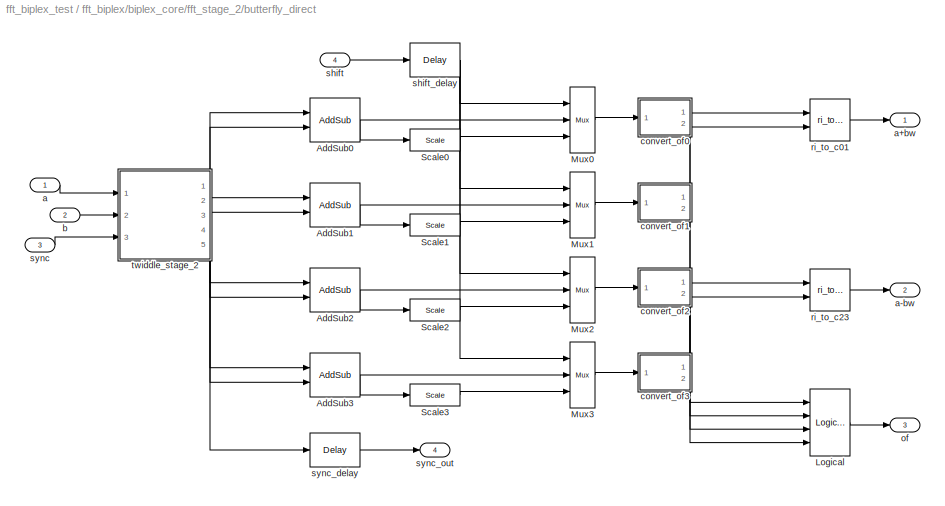
BLOCK [SubSystem] fft_biplex/biplex_core/fft_stage_2/butterfly_direct
  AncestorBlock = casper_library_ffts/butterfly_direct
  AttributesFormatString = twiddle_stage_2\ncoeffs in slices
  FunctionWithSeparateData = off
  MaskDescription = FFT internal block.
  MaskEnableString = on,on,on,off,off,on,off,on,on,on,on,on,on,on,on,off,on,off,on,on
  MaskHideContents = off
  MaskIconFrame = on
  MaskIconOpaque = on
  MaskIconRotate = none
  MaskIconUnits = autoscale
  MaskPortRotate = default
  MaskSelfModifiable = on
  MaskToolTipString = on,on,on,on,on,on,on,on,on,on,on,on,on,on,on,on,on,on,on,on
  MaskTunableValueString = on,on,on,on,on,on,on,on,on,on,on,on,on,on,on,on,on,on,on,on
  MaskType = butterfly_direct
  MaskValueString = on|8|[0                                      1]|6|12|12|off|2|3|2|2|Round  (unbiased: +/- Inf)|Saturate|Virtex2Pro|multipliers|off|on|off|off|off
  MaskVisibilityString = off,on,on,on,on,on,on,on,on,on,on,on,on,on,on,on,on,on,on,on
  MinAlgLoopOccurrences = off
  Opaque = off
  Ports = [4, 4]
  PropExecContextOutsideSubsystem = off
  RTWSystemCode = Auto
  RequestExecContextInheritance = off
  SID = 2037
  UserData = DataTag14
  UserDataPersistent = on
BLOCK [Reference] fft_biplex/biplex_core/fft_stage_2/butterfly_direct/AddSub0  REF=xbsIndex_r4/AddSub
  Ports = [2, 1]
  SID = 139
  SourceBlock = xbsIndex_r4/AddSub
  SourceType = Xilinx Adder/Subtracter Block
  arith_type = Unsigned
  bin_pt = 14
  block_type = addsub
  block_version = 11.4
  dbl_ovrd = off
  en = off
  has_advanced_control = 0
  hw_selection = Fabric
  latency = 2
  mode = Addition
  n_bits = 16
  overflow = Wrap
  pipelined = off
  precision = Full
  quantization = Truncate
  sg_icon_stat = 50,44,2,1,white,blue,0,4922a24f,right,
  sggui_pos = -1,-1,-1,-1
  use_behavioral_HDL = on
  use_carryin = off
  use_carryout = off
  xl_area = [0,0,0,0,0,0,0]
  xl_use_area = off
BLOCK [Reference] fft_biplex/biplex_core/fft_stage_2/butterfly_direct/AddSub1  REF=xbsIndex_r4/AddSub
  Ports = [2, 1]
  SID = 140
  SourceBlock = xbsIndex_r4/AddSub
  SourceType = Xilinx Adder/Subtracter Block
  arith_type = Unsigned
  bin_pt = 14
  block_type = addsub
  block_version = 11.4
  dbl_ovrd = off
  en = off
  has_advanced_control = 0
  hw_selection = Fabric
  latency = 2
  mode = Addition
  n_bits = 16
  overflow = Wrap
  pipelined = off
  precision = Full
  quantization = Truncate
  sg_icon_stat = 50,44,2,1,white,blue,0,4922a24f,right,
  sggui_pos = -1,-1,-1,-1
  use_behavioral_HDL = on
  use_carryin = off
  use_carryout = off
  xl_area = [0,0,0,0,0,0,0]
  xl_use_area = off
BLOCK [Reference] fft_biplex/biplex_core/fft_stage_2/butterfly_direct/AddSub2  REF=xbsIndex_r4/AddSub
  Ports = [2, 1]
  SID = 141
  SourceBlock = xbsIndex_r4/AddSub
  SourceType = Xilinx Adder/Subtracter Block
  arith_type = Unsigned
  bin_pt = 14
  block_type = addsub
  block_version = 11.4
  dbl_ovrd = off
  en = off
  has_advanced_control = 0
  hw_selection = Fabric
  latency = 2
  mode = Subtraction
  n_bits = 16
  overflow = Wrap
  pipelined = off
  precision = Full
  quantization = Truncate
  sg_icon_stat = 50,44,2,1,white,blue,0,57a258cf,right,
  sggui_pos = -1,-1,-1,-1
  use_behavioral_HDL = on
  use_carryin = off
  use_carryout = off
  xl_area = [0,0,0,0,0,0,0]
  xl_use_area = off
BLOCK [Reference] fft_biplex/biplex_core/fft_stage_2/butterfly_direct/AddSub3  REF=xbsIndex_r4/AddSub
  Ports = [2, 1]
  SID = 142
  SourceBlock = xbsIndex_r4/AddSub
  SourceType = Xilinx Adder/Subtracter Block
  arith_type = Unsigned
  bin_pt = 14
  block_type = addsub
  block_version = 11.4
  dbl_ovrd = off
  en = off
  has_advanced_control = 0
  hw_selection = Fabric
  latency = 2
  mode = Subtraction
  n_bits = 16
  overflow = Wrap
  pipelined = off
  precision = Full
  quantization = Truncate
  sg_icon_stat = 50,44,2,1,white,blue,0,57a258cf,right,
  sggui_pos = -1,-1,-1,-1
  use_behavioral_HDL = on
  use_carryin = off
  use_carryout = off
  xl_area = [0,0,0,0,0,0,0]
  xl_use_area = off
BLOCK [Reference] fft_biplex/biplex_core/fft_stage_2/butterfly_direct/Logical  REF=xbsIndex_r4/Logical
  Ports = [4, 1]
  SID = 53
  SourceBlock = xbsIndex_r4/Logical
  SourceType = Xilinx Logical Block Block
  align_bp = on
  arith_type = Unsigned
  bin_pt = 0
  block_type = logical
  block_version = 11.4
  dbl_ovrd = off
  en = off
  has_advanced_control = 0
  inputs = 4
  latency = 0
  logical_function = OR
  n_bits = 16
  precision = Full
  sg_icon_stat = 40,67,4,1,white,blue,0,96d3e8c1,right,
  sggui_pos = -1,-1,-1,-1
  xl_area = [0,0,0,0,0,0,0]
  xl_use_area = off
BLOCK [Reference] fft_biplex/biplex_core/fft_stage_2/butterfly_direct/Mux0  REF=xbsIndex_r4/Mux
  Ports = [3, 1]
  SID = 129
  SourceBlock = xbsIndex_r4/Mux
  SourceType = Xilinx Bus Multiplexer Block
  arith_type = Unsigned
  bin_pt = 14
  block_type = mux
  block_version = 11.4
  dbl_ovrd = off
  en = off
  has_advanced_control = 0
  inputs = 2
  latency = 1
  n_bits = 16
  overflow = Wrap
  precision = Full
  quantization = Truncate
  sg_icon_stat = 25,66,3,1,white,blue,3,a150fb03,right,
  sggui_pos = -1,-1,-1,-1
  xl_area = [0,0,0,0,0,0,0]
  xl_use_area = off
BLOCK [Reference] fft_biplex/biplex_core/fft_stage_2/butterfly_direct/Mux1  REF=xbsIndex_r4/Mux
  Ports = [3, 1]
  SID = 130
  SourceBlock = xbsIndex_r4/Mux
  SourceType = Xilinx Bus Multiplexer Block
  arith_type = Unsigned
  bin_pt = 14
  block_type = mux
  block_version = 11.4
  dbl_ovrd = off
  en = off
  has_advanced_control = 0
  inputs = 2
  latency = 1
  n_bits = 16
  overflow = Wrap
  precision = Full
  quantization = Truncate
  sg_icon_stat = 25,66,3,1,white,blue,3,a150fb03,right,
  sggui_pos = -1,-1,-1,-1
  xl_area = [0,0,0,0,0,0,0]
  xl_use_area = off
BLOCK [Reference] fft_biplex/biplex_core/fft_stage_2/butterfly_direct/Mux2  REF=xbsIndex_r4/Mux
  Ports = [3, 1]
  SID = 131
  SourceBlock = xbsIndex_r4/Mux
  SourceType = Xilinx Bus Multiplexer Block
  arith_type = Unsigned
  bin_pt = 14
  block_type = mux
  block_version = 11.4
  dbl_ovrd = off
  en = off
  has_advanced_control = 0
  inputs = 2
  latency = 1
  n_bits = 16
  overflow = Wrap
  precision = Full
  quantization = Truncate
  sg_icon_stat = 25,66,3,1,white,blue,3,a150fb03,right,
  sggui_pos = -1,-1,-1,-1
  xl_area = [0,0,0,0,0,0,0]
  xl_use_area = off
BLOCK [Reference] fft_biplex/biplex_core/fft_stage_2/butterfly_direct/Mux3  REF=xbsIndex_r4/Mux
  Ports = [3, 1]
  SID = 132
  SourceBlock = xbsIndex_r4/Mux
  SourceType = Xilinx Bus Multiplexer Block
  arith_type = Unsigned
  bin_pt = 14
  block_type = mux
  block_version = 11.4
  dbl_ovrd = off
  en = off
  has_advanced_control = 0
  inputs = 2
  latency = 1
  n_bits = 16
  overflow = Wrap
  precision = Full
  quantization = Truncate
  sg_icon_stat = 25,66,3,1,white,blue,3,a150fb03,right,
  sggui_pos = -1,-1,-1,-1
  xl_area = [0,0,0,0,0,0,0]
  xl_use_area = off
BLOCK [Reference] fft_biplex/biplex_core/fft_stage_2/butterfly_direct/Scale0  REF=xbsIndex_r4/Scale
  Ports = [1, 1]
  SID = 125
  SourceBlock = xbsIndex_r4/Scale
  SourceType = Xilinx Input Scaler Block
  block_type = scale
  block_version = 11.4
  dbl_ovrd = off
  has_advanced_control = 0
  infoedit = Scales input by a power of two by adjusting the binary point position.<br><br>Hardware notes: In hardware this block costs nothing.
  scale_factor = -1
  sg_icon_stat = 50,22,1,1,white,blue,0,315b7d78,right,
  sggui_pos = -1,-1,-1,-1
BLOCK [Reference] fft_biplex/biplex_core/fft_stage_2/butterfly_direct/Scale1  REF=xbsIndex_r4/Scale
  Ports = [1, 1]
  SID = 126
  SourceBlock = xbsIndex_r4/Scale
  SourceType = Xilinx Input Scaler Block
  block_type = scale
  block_version = 11.4
  dbl_ovrd = off
  has_advanced_control = 0
  infoedit = Scales input by a power of two by adjusting the binary point position.<br><br>Hardware notes: In hardware this block costs nothing.
  scale_factor = -1
  sg_icon_stat = 50,22,1,1,white,blue,0,315b7d78,right,
  sggui_pos = -1,-1,-1,-1
BLOCK [Reference] fft_biplex/biplex_core/fft_stage_2/butterfly_direct/Scale2  REF=xbsIndex_r4/Scale
  Ports = [1, 1]
  SID = 127
  SourceBlock = xbsIndex_r4/Scale
  SourceType = Xilinx Input Scaler Block
  block_type = scale
  block_version = 11.4
  dbl_ovrd = off
  has_advanced_control = 0
  infoedit = Scales input by a power of two by adjusting the binary point position.<br><br>Hardware notes: In hardware this block costs nothing.
  scale_factor = -1
  sg_icon_stat = 50,22,1,1,white,blue,0,315b7d78,right,
  sggui_pos = -1,-1,-1,-1
BLOCK [Reference] fft_biplex/biplex_core/fft_stage_2/butterfly_direct/Scale3  REF=xbsIndex_r4/Scale
  Ports = [1, 1]
  SID = 128
  SourceBlock = xbsIndex_r4/Scale
  SourceType = Xilinx Input Scaler Block
  block_type = scale
  block_version = 11.4
  dbl_ovrd = off
  has_advanced_control = 0
  infoedit = Scales input by a power of two by adjusting the binary point position.<br><br>Hardware notes: In hardware this block costs nothing.
  scale_factor = -1
  sg_icon_stat = 50,22,1,1,white,blue,0,315b7d78,right,
  sggui_pos = -1,-1,-1,-1
BLOCK [Inport] fft_biplex/biplex_core/fft_stage_2/butterfly_direct/a
  IconDisplay = Port number
  OutDataType = sfix(16)
  OutScaling = 2^0
  SID = 1
BLOCK [Outport] fft_biplex/biplex_core/fft_stage_2/butterfly_direct/a+bw
  IconDisplay = Port number
  OutDataType = sfix(16)
  OutScaling = 2^0
  SID = 27
BLOCK [Outport] fft_biplex/biplex_core/fft_stage_2/butterfly_direct/a-bw
  IconDisplay = Port number
  OutDataType = sfix(16)
  OutScaling = 2^0
  Port = 2
  SID = 28
BLOCK [Inport] fft_biplex/biplex_core/fft_stage_2/butterfly_direct/b
  IconDisplay = Port number
  OutDataType = sfix(16)
  OutScaling = 2^0
  Port = 2
  SID = 2
BLOCK [SubSystem] fft_biplex/biplex_core/fft_stage_2/butterfly_direct/convert_of0
  AncestorBlock = casper_library_misc/convert_of
  AttributesFormatString = [14,12]->[12,11]
  FunctionWithSeparateData = off
  MaskCallbackString = ||||||
  MaskDescription = Converts from one 2's complement bit-width \nand/or binary point position to another. \nIncludes underflow/overflow indicator.
  MaskEnableString = on,on,on,on,on,on,on
  MaskHideContents = off
  MaskIconFrame = on
  MaskIconOpaque = on
  MaskIconRotate = none
  MaskIconUnits = autoscale
  MaskPortRotate = default
  MaskPromptString = Bit Width In|Binary Point In|Bit Width Out|Binary Point Out|Latency|Overflow Behaviour|Quantization Behaviour
  MaskStyleString = edit,edit,edit,edit,edit,popup(Wrap|Saturate|Error),popup(Truncate|Round  (unbiased: +/- Inf)|Round  (unbiased: even values))
  MaskToolTipString = on,on,on,on,on,on,on
  MaskTunableValueString = on,on,on,on,on,on,on
  MaskType = convert_of
  MaskValueString = 14|12|12|11|2|Saturate|Round  (unbiased: +/- Inf)
  MaskVariables = bit_width_i=@1;binary_point_i=@2;bit_width_o=@3;binary_point_o=@4;latency=@5;overflow=&6;quantization=&7;
  MaskVisibilityString = on,on,on,on,on,on,on
  MinAlgLoopOccurrences = off
  Opaque = off
  Ports = [1, 2]
  PropExecContextOutsideSubsystem = off
  RTWSystemCode = Auto
  RequestExecContextInheritance = off
  SID = 47
  UserData = DataTag15
  UserDataPersistent = on
BLOCK [Reference] fft_biplex/biplex_core/fft_stage_2/butterfly_direct/convert_of0/all_0s  REF=xbsIndex_r4/Logical
  Ports = [2, 1]
  SID = 69
  SourceBlock = xbsIndex_r4/Logical
  SourceType = Xilinx Logical Block Block
  align_bp = on
  arith_type = Unsigned
  bin_pt = 0
  block_type = logical
  block_version = 10.1.3
  dbl_ovrd = off
  en = off
  has_advanced_control = 0
  inputs = 2
  latency = latency
  logical_function = NAND
  n_bits = 16
  precision = Full
  sg_icon_stat = 45,40,2,1,white,blue,0,8ff56bdf,right,
  sggui_pos = 20,20,348,261
  xl_area = [0,0,0,0,0,0,0]
  xl_use_area = off
BLOCK [Reference] fft_biplex/biplex_core/fft_stage_2/butterfly_direct/convert_of0/all_1s  REF=xbsIndex_r4/Logical
  Ports = [2, 1]
  SID = 70
  SourceBlock = xbsIndex_r4/Logical
  SourceType = Xilinx Logical Block Block
  align_bp = on
  arith_type = Unsigned
  bin_pt = 0
  block_type = logical
  block_version = 10.1.3
  dbl_ovrd = off
  en = off
  has_advanced_control = 0
  inputs = 2
  latency = latency
  logical_function = NAND
  n_bits = 16
  precision = Full
  sg_icon_stat = 45,40,2,1,white,blue,0,8ff56bdf,right,
  sggui_pos = -1,-1,-1,-1
  xl_area = [0,0,0,0,0,0,0]
  xl_use_area = off
BLOCK [Reference] fft_biplex/biplex_core/fft_stage_2/butterfly_direct/convert_of0/and  REF=xbsIndex_r4/Logical
  Ports = [2, 1]
  SID = 71
  SourceBlock = xbsIndex_r4/Logical
  SourceType = Xilinx Logical Block Block
  align_bp = on
  arith_type = Unsigned
  bin_pt = 0
  block_type = logical
  block_version = 10.1.3
  dbl_ovrd = off
  en = off
  has_advanced_control = 0
  inputs = 2
  latency = 0
  logical_function = AND
  n_bits = 16
  precision = Full
  sg_icon_stat = 40,35,2,1,white,blue,0,0a851f85,right,
  sggui_pos = -1,-1,-1,-1
  xl_area = [0,0,0,0,0,0,0]
  xl_use_area = off
BLOCK [Reference] fft_biplex/biplex_core/fft_stage_2/butterfly_direct/convert_of0/convert  REF=xbsIndex_r4/Convert
  Ports = [1, 1]
  SID = 72
  SourceBlock = xbsIndex_r4/Convert
  SourceType = Xilinx Type Converter Block
  arith_type = Signed  (2's comp)
  bin_pt = binary_point_o
  block_type = convert
  block_version = 10.1.1
  dbl_ovrd = off
  has_advanced_control = 0
  infoedit = Hardware notes: rounding and saturating require hardware resources; truncating and wrapping do not.
  latency = latency
  n_bits = bit_width_o
  overflow = Saturate
  pipeline = on
  quantization = Round  (unbiased: +/- Inf)
  sg_icon_stat = 45,30,1,1,white,blue,0,5129c5aa,right,
  sggui_pos = 20,20,538,377
  xl_area = [0,0,0,0,0,0,0]
  xl_use_area = off
BLOCK [Inport] fft_biplex/biplex_core/fft_stage_2/butterfly_direct/convert_of0/din
  IconDisplay = Port number
  OutDataType = sfix(16)
  OutScaling = 2^0
  SID = 69
BLOCK [Outport] fft_biplex/biplex_core/fft_stage_2/butterfly_direct/convert_of0/dout
  IconDisplay = Port number
  SID = 78
BLOCK [Reference] fft_biplex/biplex_core/fft_stage_2/butterfly_direct/convert_of0/invert1  REF=xbsIndex_r4/Inverter
  Ports = [1, 1]
  SID = 73
  SourceBlock = xbsIndex_r4/Inverter
  SourceType = Xilinx Inverter Block
  block_type = inv
  block_version = 10.1.3
  dbl_ovrd = off
  en = off
  has_advanced_control = 0
  infoedit = Bitwise logical negation (one's complement) operator.
  latency = 0
  sg_icon_stat = 35,22,1,1,white,blue,0,267846e5,right,
  sggui_pos = -1,-1,-1,-1
  xl_area = [0,0,0,0,0,0,0]
  xl_use_area = off
BLOCK [Reference] fft_biplex/biplex_core/fft_stage_2/butterfly_direct/convert_of0/invert2  REF=xbsIndex_r4/Inverter
  Ports = [1, 1]
  SID = 74
  SourceBlock = xbsIndex_r4/Inverter
  SourceType = Xilinx Inverter Block
  block_type = inv
  block_version = 10.1.3
  dbl_ovrd = off
  en = off
  has_advanced_control = 0
  infoedit = Bitwise logical negation (one's complement) operator.
  latency = 0
  sg_icon_stat = 35,22,1,1,white,blue,0,267846e5,right,
  sggui_pos = -1,-1,-1,-1
  xl_area = [0,0,0,0,0,0,0]
  xl_use_area = off
BLOCK [Outport] fft_biplex/biplex_core/fft_stage_2/butterfly_direct/convert_of0/of
  IconDisplay = Port number
  Port = 2
  SID = 79
BLOCK [Reference] fft_biplex/biplex_core/fft_stage_2/butterfly_direct/convert_of0/slice1  REF=xbsIndex_r4/Slice
  Ports = [1, 1]
  SID = 75
  SourceBlock = xbsIndex_r4/Slice
  SourceType = Xilinx Bit Slice Extractor Block
  base0 = LSB of Input
  base1 = MSB of Input
  bit0 = 0
  bit1 = 0
  block_type = slice
  block_version = 10.1.1
  boolean_output = on
  dbl_ovrd = off
  has_advanced_control = 0
  mode = Upper Bit Location + Width
  nbits = 1
  sg_icon_stat = 35,22,1,1,white,blue,0,1fd851a7,right,
  sggui_pos = -1,-1,-1,-1
BLOCK [Reference] fft_biplex/biplex_core/fft_stage_2/butterfly_direct/convert_of0/slice2  REF=xbsIndex_r4/Slice
  Ports = [1, 1]
  SID = 76
  SourceBlock = xbsIndex_r4/Slice
  SourceType = Xilinx Bit Slice Extractor Block
  base0 = LSB of Input
  base1 = MSB of Input
  bit0 = 0
  bit1 = -1
  block_type = slice
  block_version = 10.1.1
  boolean_output = on
  dbl_ovrd = off
  has_advanced_control = 0
  mode = Upper Bit Location + Width
  nbits = 1
  sg_icon_stat = 35,22,1,1,white,blue,0,1fd851a7,right,
  sggui_pos = -1,-1,-1,-1
BLOCK [SubSystem] fft_biplex/biplex_core/fft_stage_2/butterfly_direct/convert_of1
  AncestorBlock = casper_library_misc/convert_of
  AttributesFormatString = [14,12]->[12,11]
  FunctionWithSeparateData = off
  MaskCallbackString = ||||||
  MaskDescription = Converts from one 2's complement bit-width \nand/or binary point position to another. \nIncludes underflow/overflow indicator.
  MaskEnableString = on,on,on,on,on,on,on
  MaskHideContents = off
  MaskIconFrame = on
  MaskIconOpaque = on
  MaskIconRotate = none
  MaskIconUnits = autoscale
  MaskPortRotate = default
  MaskPromptString = Bit Width In|Binary Point In|Bit Width Out|Binary Point Out|Latency|Overflow Behaviour|Quantization Behaviour
  MaskStyleString = edit,edit,edit,edit,edit,popup(Wrap|Saturate|Error),popup(Truncate|Round  (unbiased: +/- Inf)|Round  (unbiased: even values))
  MaskToolTipString = on,on,on,on,on,on,on
  MaskTunableValueString = on,on,on,on,on,on,on
  MaskType = convert_of
  MaskValueString = 14|12|12|11|2|Saturate|Round  (unbiased: +/- Inf)
  MaskVariables = bit_width_i=@1;binary_point_i=@2;bit_width_o=@3;binary_point_o=@4;latency=@5;overflow=&6;quantization=&7;
  MaskVisibilityString = on,on,on,on,on,on,on
  MinAlgLoopOccurrences = off
  Opaque = off
  Ports = [1, 2]
  PropExecContextOutsideSubsystem = off
  RTWSystemCode = Auto
  RequestExecContextInheritance = off
  SID = 48
  UserData = DataTag16
  UserDataPersistent = on
BLOCK [Reference] fft_biplex/biplex_core/fft_stage_2/butterfly_direct/convert_of1/all_0s  REF=xbsIndex_r4/Logical
  Ports = [2, 1]
  SID = 69
  SourceBlock = xbsIndex_r4/Logical
  SourceType = Xilinx Logical Block Block
  align_bp = on
  arith_type = Unsigned
  bin_pt = 0
  block_type = logical
  block_version = 10.1.3
  dbl_ovrd = off
  en = off
  has_advanced_control = 0
  inputs = 2
  latency = latency
  logical_function = NAND
  n_bits = 16
  precision = Full
  sg_icon_stat = 45,40,2,1,white,blue,0,8ff56bdf,right,
  sggui_pos = 20,20,348,261
  xl_area = [0,0,0,0,0,0,0]
  xl_use_area = off
BLOCK [Reference] fft_biplex/biplex_core/fft_stage_2/butterfly_direct/convert_of1/all_1s  REF=xbsIndex_r4/Logical
  Ports = [2, 1]
  SID = 70
  SourceBlock = xbsIndex_r4/Logical
  SourceType = Xilinx Logical Block Block
  align_bp = on
  arith_type = Unsigned
  bin_pt = 0
  block_type = logical
  block_version = 10.1.3
  dbl_ovrd = off
  en = off
  has_advanced_control = 0
  inputs = 2
  latency = latency
  logical_function = NAND
  n_bits = 16
  precision = Full
  sg_icon_stat = 45,40,2,1,white,blue,0,8ff56bdf,right,
  sggui_pos = -1,-1,-1,-1
  xl_area = [0,0,0,0,0,0,0]
  xl_use_area = off
BLOCK [Reference] fft_biplex/biplex_core/fft_stage_2/butterfly_direct/convert_of1/and  REF=xbsIndex_r4/Logical
  Ports = [2, 1]
  SID = 71
  SourceBlock = xbsIndex_r4/Logical
  SourceType = Xilinx Logical Block Block
  align_bp = on
  arith_type = Unsigned
  bin_pt = 0
  block_type = logical
  block_version = 10.1.3
  dbl_ovrd = off
  en = off
  has_advanced_control = 0
  inputs = 2
  latency = 0
  logical_function = AND
  n_bits = 16
  precision = Full
  sg_icon_stat = 40,35,2,1,white,blue,0,0a851f85,right,
  sggui_pos = -1,-1,-1,-1
  xl_area = [0,0,0,0,0,0,0]
  xl_use_area = off
BLOCK [Reference] fft_biplex/biplex_core/fft_stage_2/butterfly_direct/convert_of1/convert  REF=xbsIndex_r4/Convert
  Ports = [1, 1]
  SID = 72
  SourceBlock = xbsIndex_r4/Convert
  SourceType = Xilinx Type Converter Block
  arith_type = Signed  (2's comp)
  bin_pt = binary_point_o
  block_type = convert
  block_version = 10.1.1
  dbl_ovrd = off
  has_advanced_control = 0
  infoedit = Hardware notes: rounding and saturating require hardware resources; truncating and wrapping do not.
  latency = latency
  n_bits = bit_width_o
  overflow = Saturate
  pipeline = on
  quantization = Round  (unbiased: +/- Inf)
  sg_icon_stat = 45,30,1,1,white,blue,0,5129c5aa,right,
  sggui_pos = 20,20,538,377
  xl_area = [0,0,0,0,0,0,0]
  xl_use_area = off
BLOCK [Inport] fft_biplex/biplex_core/fft_stage_2/butterfly_direct/convert_of1/din
  IconDisplay = Port number
  OutDataType = sfix(16)
  OutScaling = 2^0
  SID = 69
BLOCK [Outport] fft_biplex/biplex_core/fft_stage_2/butterfly_direct/convert_of1/dout
  IconDisplay = Port number
  SID = 78
BLOCK [Reference] fft_biplex/biplex_core/fft_stage_2/butterfly_direct/convert_of1/invert1  REF=xbsIndex_r4/Inverter
  Ports = [1, 1]
  SID = 73
  SourceBlock = xbsIndex_r4/Inverter
  SourceType = Xilinx Inverter Block
  block_type = inv
  block_version = 10.1.3
  dbl_ovrd = off
  en = off
  has_advanced_control = 0
  infoedit = Bitwise logical negation (one's complement) operator.
  latency = 0
  sg_icon_stat = 35,22,1,1,white,blue,0,267846e5,right,
  sggui_pos = -1,-1,-1,-1
  xl_area = [0,0,0,0,0,0,0]
  xl_use_area = off
BLOCK [Reference] fft_biplex/biplex_core/fft_stage_2/butterfly_direct/convert_of1/invert2  REF=xbsIndex_r4/Inverter
  Ports = [1, 1]
  SID = 74
  SourceBlock = xbsIndex_r4/Inverter
  SourceType = Xilinx Inverter Block
  block_type = inv
  block_version = 10.1.3
  dbl_ovrd = off
  en = off
  has_advanced_control = 0
  infoedit = Bitwise logical negation (one's complement) operator.
  latency = 0
  sg_icon_stat = 35,22,1,1,white,blue,0,267846e5,right,
  sggui_pos = -1,-1,-1,-1
  xl_area = [0,0,0,0,0,0,0]
  xl_use_area = off
BLOCK [Outport] fft_biplex/biplex_core/fft_stage_2/butterfly_direct/convert_of1/of
  IconDisplay = Port number
  Port = 2
  SID = 79
BLOCK [Reference] fft_biplex/biplex_core/fft_stage_2/butterfly_direct/convert_of1/slice1  REF=xbsIndex_r4/Slice
  Ports = [1, 1]
  SID = 75
  SourceBlock = xbsIndex_r4/Slice
  SourceType = Xilinx Bit Slice Extractor Block
  base0 = LSB of Input
  base1 = MSB of Input
  bit0 = 0
  bit1 = 0
  block_type = slice
  block_version = 10.1.1
  boolean_output = on
  dbl_ovrd = off
  has_advanced_control = 0
  mode = Upper Bit Location + Width
  nbits = 1
  sg_icon_stat = 35,22,1,1,white,blue,0,1fd851a7,right,
  sggui_pos = -1,-1,-1,-1
BLOCK [Reference] fft_biplex/biplex_core/fft_stage_2/butterfly_direct/convert_of1/slice2  REF=xbsIndex_r4/Slice
  Ports = [1, 1]
  SID = 76
  SourceBlock = xbsIndex_r4/Slice
  SourceType = Xilinx Bit Slice Extractor Block
  base0 = LSB of Input
  base1 = MSB of Input
  bit0 = 0
  bit1 = -1
  block_type = slice
  block_version = 10.1.1
  boolean_output = on
  dbl_ovrd = off
  has_advanced_control = 0
  mode = Upper Bit Location + Width
  nbits = 1
  sg_icon_stat = 35,22,1,1,white,blue,0,1fd851a7,right,
  sggui_pos = -1,-1,-1,-1
BLOCK [SubSystem] fft_biplex/biplex_core/fft_stage_2/butterfly_direct/convert_of2
  AncestorBlock = casper_library_misc/convert_of
  AttributesFormatString = [14,12]->[12,11]
  FunctionWithSeparateData = off
  MaskCallbackString = ||||||
  MaskDescription = Converts from one 2's complement bit-width \nand/or binary point position to another. \nIncludes underflow/overflow indicator.
  MaskEnableString = on,on,on,on,on,on,on
  MaskHideContents = off
  MaskIconFrame = on
  MaskIconOpaque = on
  MaskIconRotate = none
  MaskIconUnits = autoscale
  MaskPortRotate = default
  MaskPromptString = Bit Width In|Binary Point In|Bit Width Out|Binary Point Out|Latency|Overflow Behaviour|Quantization Behaviour
  MaskStyleString = edit,edit,edit,edit,edit,popup(Wrap|Saturate|Error),popup(Truncate|Round  (unbiased: +/- Inf)|Round  (unbiased: even values))
  MaskToolTipString = on,on,on,on,on,on,on
  MaskTunableValueString = on,on,on,on,on,on,on
  MaskType = convert_of
  MaskValueString = 14|12|12|11|2|Saturate|Round  (unbiased: +/- Inf)
  MaskVariables = bit_width_i=@1;binary_point_i=@2;bit_width_o=@3;binary_point_o=@4;latency=@5;overflow=&6;quantization=&7;
  MaskVisibilityString = on,on,on,on,on,on,on
  MinAlgLoopOccurrences = off
  Opaque = off
  Ports = [1, 2]
  PropExecContextOutsideSubsystem = off
  RTWSystemCode = Auto
  RequestExecContextInheritance = off
  SID = 49
  UserData = DataTag17
  UserDataPersistent = on
BLOCK [Reference] fft_biplex/biplex_core/fft_stage_2/butterfly_direct/convert_of2/all_0s  REF=xbsIndex_r4/Logical
  Ports = [2, 1]
  SID = 69
  SourceBlock = xbsIndex_r4/Logical
  SourceType = Xilinx Logical Block Block
  align_bp = on
  arith_type = Unsigned
  bin_pt = 0
  block_type = logical
  block_version = 10.1.3
  dbl_ovrd = off
  en = off
  has_advanced_control = 0
  inputs = 2
  latency = latency
  logical_function = NAND
  n_bits = 16
  precision = Full
  sg_icon_stat = 45,40,2,1,white,blue,0,8ff56bdf,right,
  sggui_pos = 20,20,348,261
  xl_area = [0,0,0,0,0,0,0]
  xl_use_area = off
BLOCK [Reference] fft_biplex/biplex_core/fft_stage_2/butterfly_direct/convert_of2/all_1s  REF=xbsIndex_r4/Logical
  Ports = [2, 1]
  SID = 70
  SourceBlock = xbsIndex_r4/Logical
  SourceType = Xilinx Logical Block Block
  align_bp = on
  arith_type = Unsigned
  bin_pt = 0
  block_type = logical
  block_version = 10.1.3
  dbl_ovrd = off
  en = off
  has_advanced_control = 0
  inputs = 2
  latency = latency
  logical_function = NAND
  n_bits = 16
  precision = Full
  sg_icon_stat = 45,40,2,1,white,blue,0,8ff56bdf,right,
  sggui_pos = -1,-1,-1,-1
  xl_area = [0,0,0,0,0,0,0]
  xl_use_area = off
BLOCK [Reference] fft_biplex/biplex_core/fft_stage_2/butterfly_direct/convert_of2/and  REF=xbsIndex_r4/Logical
  Ports = [2, 1]
  SID = 71
  SourceBlock = xbsIndex_r4/Logical
  SourceType = Xilinx Logical Block Block
  align_bp = on
  arith_type = Unsigned
  bin_pt = 0
  block_type = logical
  block_version = 10.1.3
  dbl_ovrd = off
  en = off
  has_advanced_control = 0
  inputs = 2
  latency = 0
  logical_function = AND
  n_bits = 16
  precision = Full
  sg_icon_stat = 40,35,2,1,white,blue,0,0a851f85,right,
  sggui_pos = -1,-1,-1,-1
  xl_area = [0,0,0,0,0,0,0]
  xl_use_area = off
BLOCK [Reference] fft_biplex/biplex_core/fft_stage_2/butterfly_direct/convert_of2/convert  REF=xbsIndex_r4/Convert
  Ports = [1, 1]
  SID = 72
  SourceBlock = xbsIndex_r4/Convert
  SourceType = Xilinx Type Converter Block
  arith_type = Signed  (2's comp)
  bin_pt = binary_point_o
  block_type = convert
  block_version = 10.1.1
  dbl_ovrd = off
  has_advanced_control = 0
  infoedit = Hardware notes: rounding and saturating require hardware resources; truncating and wrapping do not.
  latency = latency
  n_bits = bit_width_o
  overflow = Saturate
  pipeline = on
  quantization = Round  (unbiased: +/- Inf)
  sg_icon_stat = 45,30,1,1,white,blue,0,5129c5aa,right,
  sggui_pos = 20,20,538,377
  xl_area = [0,0,0,0,0,0,0]
  xl_use_area = off
BLOCK [Inport] fft_biplex/biplex_core/fft_stage_2/butterfly_direct/convert_of2/din
  IconDisplay = Port number
  OutDataType = sfix(16)
  OutScaling = 2^0
  SID = 69
BLOCK [Outport] fft_biplex/biplex_core/fft_stage_2/butterfly_direct/convert_of2/dout
  IconDisplay = Port number
  SID = 78
BLOCK [Reference] fft_biplex/biplex_core/fft_stage_2/butterfly_direct/convert_of2/invert1  REF=xbsIndex_r4/Inverter
  Ports = [1, 1]
  SID = 73
  SourceBlock = xbsIndex_r4/Inverter
  SourceType = Xilinx Inverter Block
  block_type = inv
  block_version = 10.1.3
  dbl_ovrd = off
  en = off
  has_advanced_control = 0
  infoedit = Bitwise logical negation (one's complement) operator.
  latency = 0
  sg_icon_stat = 35,22,1,1,white,blue,0,267846e5,right,
  sggui_pos = -1,-1,-1,-1
  xl_area = [0,0,0,0,0,0,0]
  xl_use_area = off
BLOCK [Reference] fft_biplex/biplex_core/fft_stage_2/butterfly_direct/convert_of2/invert2  REF=xbsIndex_r4/Inverter
  Ports = [1, 1]
  SID = 74
  SourceBlock = xbsIndex_r4/Inverter
  SourceType = Xilinx Inverter Block
  block_type = inv
  block_version = 10.1.3
  dbl_ovrd = off
  en = off
  has_advanced_control = 0
  infoedit = Bitwise logical negation (one's complement) operator.
  latency = 0
  sg_icon_stat = 35,22,1,1,white,blue,0,267846e5,right,
  sggui_pos = -1,-1,-1,-1
  xl_area = [0,0,0,0,0,0,0]
  xl_use_area = off
BLOCK [Outport] fft_biplex/biplex_core/fft_stage_2/butterfly_direct/convert_of2/of
  IconDisplay = Port number
  Port = 2
  SID = 79
BLOCK [Reference] fft_biplex/biplex_core/fft_stage_2/butterfly_direct/convert_of2/slice1  REF=xbsIndex_r4/Slice
  Ports = [1, 1]
  SID = 75
  SourceBlock = xbsIndex_r4/Slice
  SourceType = Xilinx Bit Slice Extractor Block
  base0 = LSB of Input
  base1 = MSB of Input
  bit0 = 0
  bit1 = 0
  block_type = slice
  block_version = 10.1.1
  boolean_output = on
  dbl_ovrd = off
  has_advanced_control = 0
  mode = Upper Bit Location + Width
  nbits = 1
  sg_icon_stat = 35,22,1,1,white,blue,0,1fd851a7,right,
  sggui_pos = -1,-1,-1,-1
BLOCK [Reference] fft_biplex/biplex_core/fft_stage_2/butterfly_direct/convert_of2/slice2  REF=xbsIndex_r4/Slice
  Ports = [1, 1]
  SID = 76
  SourceBlock = xbsIndex_r4/Slice
  SourceType = Xilinx Bit Slice Extractor Block
  base0 = LSB of Input
  base1 = MSB of Input
  bit0 = 0
  bit1 = -1
  block_type = slice
  block_version = 10.1.1
  boolean_output = on
  dbl_ovrd = off
  has_advanced_control = 0
  mode = Upper Bit Location + Width
  nbits = 1
  sg_icon_stat = 35,22,1,1,white,blue,0,1fd851a7,right,
  sggui_pos = -1,-1,-1,-1
BLOCK [SubSystem] fft_biplex/biplex_core/fft_stage_2/butterfly_direct/convert_of3
  AncestorBlock = casper_library_misc/convert_of
  AttributesFormatString = [14,12]->[12,11]
  FunctionWithSeparateData = off
  MaskCallbackString = ||||||
  MaskDescription = Converts from one 2's complement bit-width \nand/or binary point position to another. \nIncludes underflow/overflow indicator.
  MaskEnableString = on,on,on,on,on,on,on
  MaskHideContents = off
  MaskIconFrame = on
  MaskIconOpaque = on
  MaskIconRotate = none
  MaskIconUnits = autoscale
  MaskPortRotate = default
  MaskPromptString = Bit Width In|Binary Point In|Bit Width Out|Binary Point Out|Latency|Overflow Behaviour|Quantization Behaviour
  MaskStyleString = edit,edit,edit,edit,edit,popup(Wrap|Saturate|Error),popup(Truncate|Round  (unbiased: +/- Inf)|Round  (unbiased: even values))
  MaskToolTipString = on,on,on,on,on,on,on
  MaskTunableValueString = on,on,on,on,on,on,on
  MaskType = convert_of
  MaskValueString = 14|12|12|11|2|Saturate|Round  (unbiased: +/- Inf)
  MaskVariables = bit_width_i=@1;binary_point_i=@2;bit_width_o=@3;binary_point_o=@4;latency=@5;overflow=&6;quantization=&7;
  MaskVisibilityString = on,on,on,on,on,on,on
  MinAlgLoopOccurrences = off
  Opaque = off
  Ports = [1, 2]
  PropExecContextOutsideSubsystem = off
  RTWSystemCode = Auto
  RequestExecContextInheritance = off
  SID = 50
  UserData = DataTag18
  UserDataPersistent = on
BLOCK [Reference] fft_biplex/biplex_core/fft_stage_2/butterfly_direct/convert_of3/all_0s  REF=xbsIndex_r4/Logical
  Ports = [2, 1]
  SID = 69
  SourceBlock = xbsIndex_r4/Logical
  SourceType = Xilinx Logical Block Block
  align_bp = on
  arith_type = Unsigned
  bin_pt = 0
  block_type = logical
  block_version = 10.1.3
  dbl_ovrd = off
  en = off
  has_advanced_control = 0
  inputs = 2
  latency = latency
  logical_function = NAND
  n_bits = 16
  precision = Full
  sg_icon_stat = 45,40,2,1,white,blue,0,8ff56bdf,right,
  sggui_pos = 20,20,348,261
  xl_area = [0,0,0,0,0,0,0]
  xl_use_area = off
BLOCK [Reference] fft_biplex/biplex_core/fft_stage_2/butterfly_direct/convert_of3/all_1s  REF=xbsIndex_r4/Logical
  Ports = [2, 1]
  SID = 70
  SourceBlock = xbsIndex_r4/Logical
  SourceType = Xilinx Logical Block Block
  align_bp = on
  arith_type = Unsigned
  bin_pt = 0
  block_type = logical
  block_version = 10.1.3
  dbl_ovrd = off
  en = off
  has_advanced_control = 0
  inputs = 2
  latency = latency
  logical_function = NAND
  n_bits = 16
  precision = Full
  sg_icon_stat = 45,40,2,1,white,blue,0,8ff56bdf,right,
  sggui_pos = -1,-1,-1,-1
  xl_area = [0,0,0,0,0,0,0]
  xl_use_area = off
BLOCK [Reference] fft_biplex/biplex_core/fft_stage_2/butterfly_direct/convert_of3/and  REF=xbsIndex_r4/Logical
  Ports = [2, 1]
  SID = 71
  SourceBlock = xbsIndex_r4/Logical
  SourceType = Xilinx Logical Block Block
  align_bp = on
  arith_type = Unsigned
  bin_pt = 0
  block_type = logical
  block_version = 10.1.3
  dbl_ovrd = off
  en = off
  has_advanced_control = 0
  inputs = 2
  latency = 0
  logical_function = AND
  n_bits = 16
  precision = Full
  sg_icon_stat = 40,35,2,1,white,blue,0,0a851f85,right,
  sggui_pos = -1,-1,-1,-1
  xl_area = [0,0,0,0,0,0,0]
  xl_use_area = off
BLOCK [Reference] fft_biplex/biplex_core/fft_stage_2/butterfly_direct/convert_of3/convert  REF=xbsIndex_r4/Convert
  Ports = [1, 1]
  SID = 72
  SourceBlock = xbsIndex_r4/Convert
  SourceType = Xilinx Type Converter Block
  arith_type = Signed  (2's comp)
  bin_pt = binary_point_o
  block_type = convert
  block_version = 10.1.1
  dbl_ovrd = off
  has_advanced_control = 0
  infoedit = Hardware notes: rounding and saturating require hardware resources; truncating and wrapping do not.
  latency = latency
  n_bits = bit_width_o
  overflow = Saturate
  pipeline = on
  quantization = Round  (unbiased: +/- Inf)
  sg_icon_stat = 45,30,1,1,white,blue,0,5129c5aa,right,
  sggui_pos = 20,20,538,377
  xl_area = [0,0,0,0,0,0,0]
  xl_use_area = off
BLOCK [Inport] fft_biplex/biplex_core/fft_stage_2/butterfly_direct/convert_of3/din
  IconDisplay = Port number
  OutDataType = sfix(16)
  OutScaling = 2^0
  SID = 69
BLOCK [Outport] fft_biplex/biplex_core/fft_stage_2/butterfly_direct/convert_of3/dout
  IconDisplay = Port number
  SID = 78
BLOCK [Reference] fft_biplex/biplex_core/fft_stage_2/butterfly_direct/convert_of3/invert1  REF=xbsIndex_r4/Inverter
  Ports = [1, 1]
  SID = 73
  SourceBlock = xbsIndex_r4/Inverter
  SourceType = Xilinx Inverter Block
  block_type = inv
  block_version = 10.1.3
  dbl_ovrd = off
  en = off
  has_advanced_control = 0
  infoedit = Bitwise logical negation (one's complement) operator.
  latency = 0
  sg_icon_stat = 35,22,1,1,white,blue,0,267846e5,right,
  sggui_pos = -1,-1,-1,-1
  xl_area = [0,0,0,0,0,0,0]
  xl_use_area = off
BLOCK [Reference] fft_biplex/biplex_core/fft_stage_2/butterfly_direct/convert_of3/invert2  REF=xbsIndex_r4/Inverter
  Ports = [1, 1]
  SID = 74
  SourceBlock = xbsIndex_r4/Inverter
  SourceType = Xilinx Inverter Block
  block_type = inv
  block_version = 10.1.3
  dbl_ovrd = off
  en = off
  has_advanced_control = 0
  infoedit = Bitwise logical negation (one's complement) operator.
  latency = 0
  sg_icon_stat = 35,22,1,1,white,blue,0,267846e5,right,
  sggui_pos = -1,-1,-1,-1
  xl_area = [0,0,0,0,0,0,0]
  xl_use_area = off
BLOCK [Outport] fft_biplex/biplex_core/fft_stage_2/butterfly_direct/convert_of3/of
  IconDisplay = Port number
  Port = 2
  SID = 79
BLOCK [Reference] fft_biplex/biplex_core/fft_stage_2/butterfly_direct/convert_of3/slice1  REF=xbsIndex_r4/Slice
  Ports = [1, 1]
  SID = 75
  SourceBlock = xbsIndex_r4/Slice
  SourceType = Xilinx Bit Slice Extractor Block
  base0 = LSB of Input
  base1 = MSB of Input
  bit0 = 0
  bit1 = 0
  block_type = slice
  block_version = 10.1.1
  boolean_output = on
  dbl_ovrd = off
  has_advanced_control = 0
  mode = Upper Bit Location + Width
  nbits = 1
  sg_icon_stat = 35,22,1,1,white,blue,0,1fd851a7,right,
  sggui_pos = -1,-1,-1,-1
BLOCK [Reference] fft_biplex/biplex_core/fft_stage_2/butterfly_direct/convert_of3/slice2  REF=xbsIndex_r4/Slice
  Ports = [1, 1]
  SID = 76
  SourceBlock = xbsIndex_r4/Slice
  SourceType = Xilinx Bit Slice Extractor Block
  base0 = LSB of Input
  base1 = MSB of Input
  bit0 = 0
  bit1 = -1
  block_type = slice
  block_version = 10.1.1
  boolean_output = on
  dbl_ovrd = off
  has_advanced_control = 0
  mode = Upper Bit Location + Width
  nbits = 1
  sg_icon_stat = 35,22,1,1,white,blue,0,1fd851a7,right,
  sggui_pos = -1,-1,-1,-1
BLOCK [Outport] fft_biplex/biplex_core/fft_stage_2/butterfly_direct/of
  IconDisplay = Port number
  OutDataType = sfix(16)
  OutScaling = 2^0
  Port = 3
  SID = 29
BLOCK [Reference] fft_biplex/biplex_core/fft_stage_2/butterfly_direct/ri_to_c01  REF=casper_library_misc/ri_to_c  (lib defined in mdl_357510c33b49, mdl_57b5f564ae26, +4 more)
  FunctionWithSeparateData = off
  Ports = [2, 1]
  RTWMemSecDataConstants = Inherit from model
  RTWMemSecDataInternal = Inherit from model
  RTWMemSecDataParameters = Inherit from model
  RTWMemSecFuncExecute = Inherit from model
  RTWMemSecFuncInitTerm = Inherit from model
  SID = 51
  ShowPortLabels = FromPortIcon
  SourceBlock = casper_library_misc/ri_to_c
  SourceType = ri_to_c
  SystemSampleTime = -1
  UserData = DataTag19
  UserDataPersistent = on
BLOCK [Reference] fft_biplex/biplex_core/fft_stage_2/butterfly_direct/ri_to_c23  REF=casper_library_misc/ri_to_c  (lib defined in mdl_357510c33b49, mdl_57b5f564ae26, +4 more)
  FunctionWithSeparateData = off
  Ports = [2, 1]
  RTWMemSecDataConstants = Inherit from model
  RTWMemSecDataInternal = Inherit from model
  RTWMemSecDataParameters = Inherit from model
  RTWMemSecFuncExecute = Inherit from model
  RTWMemSecFuncInitTerm = Inherit from model
  SID = 52
  ShowPortLabels = FromPortIcon
  SourceBlock = casper_library_misc/ri_to_c
  SourceType = ri_to_c
  SystemSampleTime = -1
  UserData = DataTag20
  UserDataPersistent = on
BLOCK [Inport] fft_biplex/biplex_core/fft_stage_2/butterfly_direct/shift
  IconDisplay = Port number
  OutDataType = sfix(16)
  OutScaling = 2^0
  Port = 4
  SID = 4
BLOCK [Reference] fft_biplex/biplex_core/fft_stage_2/butterfly_direct/shift_delay  REF=xbsIndex_r4/Delay
  Ports = [1, 1]
  SID = 124
  SourceBlock = xbsIndex_r4/Delay
  SourceType = Xilinx Delay Block
  block_type = delay
  block_version = 11.4
  dbl_ovrd = off
  en = off
  has_advanced_control = 0
  infoedit = Hardware notes: A delay line is a chain, each link of which is an SRL16 followed by a flip-flop.
  latency = 2
  reg_retiming = off
  sg_icon_stat = 50,34,1,1,white,blue,0,85ce9542,right,
  sggui_pos = -1,-1,-1,-1
  xl_area = [0,0,0,0,0,0,0]
  xl_use_area = off
BLOCK [Inport] fft_biplex/biplex_core/fft_stage_2/butterfly_direct/sync
  IconDisplay = Port number
  OutDataType = sfix(16)
  OutScaling = 2^0
  Port = 3
  SID = 3
BLOCK [Reference] fft_biplex/biplex_core/fft_stage_2/butterfly_direct/sync_delay  REF=xbsIndex_r4/Delay
  Ports = [1, 1]
  SID = 38
  SourceBlock = xbsIndex_r4/Delay
  SourceType = Xilinx Delay Block
  block_type = delay
  block_version = 11.4
  dbl_ovrd = off
  en = off
  has_advanced_control = 0
  infoedit = Hardware notes: A delay line is a chain, each link of which is an SRL16 followed by a flip-flop.
  latency = 5
  reg_retiming = on
  sg_icon_stat = 50,34,1,1,white,blue,0,ec356abf,right,
  sggui_pos = -1,-1,-1,-1
  xl_area = [0,0,0,0,0,0,0]
  xl_use_area = off
BLOCK [Outport] fft_biplex/biplex_core/fft_stage_2/butterfly_direct/sync_out
  IconDisplay = Port number
  Port = 4
  SID = 31
BLOCK [SubSystem] fft_biplex/biplex_core/fft_stage_2/butterfly_direct/twiddle_stage_2
  AncestorBlock = casper_library_ffts_twiddle/twiddle_stage_2
  FunctionWithSeparateData = off
  MaskCallbackString = ||||||
  MaskDescription = Used in FFT library. Used when coefficients \nare 2^0 i.e just pass data through without delays
  MaskEnableString = on,on,on,on,on,on,on
  MaskHideContents = off
  MaskIconFrame = on
  MaskIconOpaque = on
  MaskIconRotate = none
  MaskIconUnits = autoscale
  MaskInitialization = set_param(gcb,'LinkStatus','inactive');\nif(strcmp(opt_target, 'logic')), \n    lat = add_latency;\n    lat_str = 'add_latency';\nelse,\n    lat = add_latency*2;\n    lat_str = 'add_latency*2';\nend\nset_param([gcb,'/delay0'], 'latency', ...\n    ['bram_latency+mult_latency+conv_latency+',lat_str]);\nset_param([gcb,'/delay1'], 'latency', ...\n    ['bram_latency+mult_latency+conv_latency+',lat_str]...<+265ch>
  MaskPortRotate = default
  MaskPromptString = FFT Size (2^?)|Input Bit Width|Add Latency|Mult Latency|BRAM Latency|Convert latency|Use less
  MaskSelfModifiable = on
  MaskStyleString = edit,edit,edit,edit,edit,edit,popup(logic|multipliers)
  MaskToolTipString = on,on,on,on,on,on,on
  MaskTunableValueString = on,on,on,on,on,on,on
  MaskType = twiddle_pass_through
  MaskValueString = 8|12|2|3|2|2|multipliers
  MaskVariables = FFTSize=@1;input_bit_width=@2;add_latency=@3;mult_latency=@4;bram_latency=@5;conv_latency=@6;opt_target=&7;
  MaskVisibilityString = on,on,on,on,on,on,on
  MinAlgLoopOccurrences = off
  Opaque = off
  Ports = [3, 5]
  PropExecContextOutsideSubsystem = off
  RTWSystemCode = Auto
  RequestExecContextInheritance = off
  SID = 136
BLOCK [Inport] fft_biplex/biplex_core/fft_stage_2/butterfly_direct/twiddle_stage_2/a
  IconDisplay = Port number
  OutDataType = sfix(16)
  OutScaling = 2^0
  SID = 1
BLOCK [Outport] fft_biplex/biplex_core/fft_stage_2/butterfly_direct/twiddle_stage_2/a_im
  IconDisplay = Port number
  OutDataType = sfix(16)
  OutScaling = 2^0
  Port = 2
  SID = 18
BLOCK [Outport] fft_biplex/biplex_core/fft_stage_2/butterfly_direct/twiddle_stage_2/a_re
  IconDisplay = Port number
  OutDataType = sfix(16)
  OutScaling = 2^0
  SID = 17
BLOCK [Inport] fft_biplex/biplex_core/fft_stage_2/butterfly_direct/twiddle_stage_2/b
  IconDisplay = Port number
  OutDataType = sfix(16)
  OutScaling = 2^0
  Port = 2
  SID = 2
BLOCK [Outport] fft_biplex/biplex_core/fft_stage_2/butterfly_direct/twiddle_stage_2/bw_im
  IconDisplay = Port number
  OutDataType = sfix(16)
  OutScaling = 2^0
  Port = 4
  SID = 20
BLOCK [Outport] fft_biplex/biplex_core/fft_stage_2/butterfly_direct/twiddle_stage_2/bw_re
  IconDisplay = Port number
  OutDataType = sfix(16)
  OutScaling = 2^0
  Port = 3
  SID = 19
BLOCK [Reference] fft_biplex/biplex_core/fft_stage_2/butterfly_direct/twiddle_stage_2/c_to_ri  REF=casper_library_misc/c_to_ri  (lib defined in mdl_357510c33b49, mdl_57b5f564ae26, +4 more)
  AttributesFormatString = 12_11 r/i
  FunctionWithSeparateData = off
  Ports = [1, 2]
  RTWMemSecDataConstants = Inherit from model
  RTWMemSecDataInternal = Inherit from model
  RTWMemSecDataParameters = Inherit from model
  RTWMemSecFuncExecute = Inherit from model
  RTWMemSecFuncInitTerm = Inherit from model
  SID = 4
  ShowPortLabels = FromPortIcon
  SourceBlock = casper_library_misc/c_to_ri
  SourceType = c_to_ri
  SystemSampleTime = -1
  UserData = DataTag21
  UserDataPersistent = on
  bin_pt = input_bit_width-1
  n_bits = input_bit_width
BLOCK [Reference] fft_biplex/biplex_core/fft_stage_2/butterfly_direct/twiddle_stage_2/c_to_ri1  REF=casper_library_misc/c_to_ri  (lib defined in mdl_357510c33b49, mdl_57b5f564ae26, +4 more)
  AttributesFormatString = 12_11 r/i
  FunctionWithSeparateData = off
  Ports = [1, 2]
  RTWMemSecDataConstants = Inherit from model
  RTWMemSecDataInternal = Inherit from model
  RTWMemSecDataParameters = Inherit from model
  RTWMemSecFuncExecute = Inherit from model
  RTWMemSecFuncInitTerm = Inherit from model
  SID = 5
  ShowPortLabels = FromPortIcon
  SourceBlock = casper_library_misc/c_to_ri
  SourceType = c_to_ri
  SystemSampleTime = -1
  UserData = DataTag22
  UserDataPersistent = on
  bin_pt = input_bit_width-1
  n_bits = input_bit_width
BLOCK [Reference] fft_biplex/biplex_core/fft_stage_2/butterfly_direct/twiddle_stage_2/counter  REF=xbsIndex_r4/Counter
  Ports = [1, 1]
  SID = 6
  SourceBlock = xbsIndex_r4/Counter
  SourceType = Xilinx Counter Block
  arith_type = Unsigned
  bin_pt = 0
  block_type = counter
  block_version = 11.4
  cnt_by_val = 1
  cnt_to = Inf
  cnt_type = Free Running
  dbl_ovrd = off
  en = off
  explicit_period = on
  has_advanced_control = 0
  implementation = Fabric
  infoedit = Hardware notes: Free running counters are the least expensive in hardware.  A count limited counter is implemented by combining a counter with a comparator.
  load_pin = off
  n_bits = FFTSize - 1
  operation = Up
  period = 1
  rst = on
  sg_icon_stat = 40,44,1,1,white,blue,0,c59595e6,right,
  sg_mask_display = fprintf('','COMMENT: begin icon graphics');\npatch([0 1 1 0 ],[0 0 1 1 ],[0.77 0.82 0.91]);\npatch([0.25 0.075 0.3 0.075 0.25 0.525 0.6 0.675 0.95 0.725 0.5 0.35 0.6 0.35 0.5 0.725 0.95 0.675 0.6 0.525 0.25 ],[0.136364 0.295455 0.5 0.704545 0.863636 0.863636 0.795455 0.863636 0.863636 0.659091 0.863636 0.727273 0.5 0.272727 0.136364 0.340909 0.136364 0.136364 0.204545 0.136364 0.136364 ],[0.98 0.9...<+259ch>
  sggui_pos = 1212,281,419,748
  start_count = 0
  use_behavioral_HDL = on
  xl_area = [0,0,0,0,0,0,0]
  xl_use_area = off
BLOCK [Reference] fft_biplex/biplex_core/fft_stage_2/butterfly_direct/twiddle_stage_2/delay0  REF=xbsIndex_r4/Delay
  Ports = [1, 1]
  SID = 7
  SourceBlock = xbsIndex_r4/Delay
  SourceType = Xilinx Delay Block
  block_type = delay
  block_version = 11.4
  dbl_ovrd = off
  en = off
  has_advanced_control = 0
  infoedit = Hardware notes: A delay line is a chain, each link of which is an SRL16 followed by a flip-flop.
  latency = bram_latency+mult_latency+conv_latency+add_latency*2
  reg_retiming = on
  sg_icon_stat = 35,26,1,1,white,blue,0,1a71059f,right,
  sg_mask_display = fprintf('','COMMENT: begin icon graphics');\npatch([0 1 1 0 ],[0 0 1 1 ],[0.77 0.82 0.91]);\npatch([0.285714 0.171429 0.342857 0.171429 0.285714 0.485714 0.542857 0.6 0.8 0.628571 0.457143 0.342857 0.514286 0.342857 0.457143 0.628571 0.8 0.6 0.542857 0.485714 0.285714 ],[0.115385 0.269231 0.5 0.730769 0.884615 0.884615 0.807692 0.884615 0.884615 0.653846 0.884615 0.730769 0.5 0.269231 0.115385 0.3...<+278ch>
  sggui_pos = 554,317,419,315
  xl_area = [0,0,0,0,0,0,0]
  xl_use_area = off
BLOCK [Reference] fft_biplex/biplex_core/fft_stage_2/butterfly_direct/twiddle_stage_2/delay1  REF=xbsIndex_r4/Delay
  Ports = [1, 1]
  SID = 8
  SourceBlock = xbsIndex_r4/Delay
  SourceType = Xilinx Delay Block
  block_type = delay
  block_version = 11.4
  dbl_ovrd = off
  en = off
  has_advanced_control = 0
  infoedit = Hardware notes: A delay line is a chain, each link of which is an SRL16 followed by a flip-flop.
  latency = bram_latency+mult_latency+conv_latency+add_latency*2
  reg_retiming = on
  sg_icon_stat = 35,26,1,1,white,blue,0,1a71059f,right,
  sg_mask_display = fprintf('','COMMENT: begin icon graphics');\npatch([0 1 1 0 ],[0 0 1 1 ],[0.77 0.82 0.91]);\npatch([0.285714 0.171429 0.342857 0.171429 0.285714 0.485714 0.542857 0.6 0.8 0.628571 0.457143 0.342857 0.514286 0.342857 0.457143 0.628571 0.8 0.6 0.542857 0.485714 0.285714 ],[0.115385 0.269231 0.5 0.730769 0.884615 0.884615 0.807692 0.884615 0.884615 0.653846 0.884615 0.730769 0.5 0.269231 0.115385 0.3...<+278ch>
  sggui_pos = 535,406,419,315
  xl_area = [0,0,0,0,0,0,0]
  xl_use_area = off
BLOCK [Reference] fft_biplex/biplex_core/fft_stage_2/butterfly_direct/twiddle_stage_2/delay2  REF=xbsIndex_r4/Delay
  Ports = [1, 1]
  SID = 9
  SourceBlock = xbsIndex_r4/Delay
  SourceType = Xilinx Delay Block
  block_type = delay
  block_version = 11.4
  dbl_ovrd = off
  en = off
  has_advanced_control = 0
  infoedit = Hardware notes: A delay line is a chain, each link of which is an SRL16 followed by a flip-flop.
  latency = bram_latency
  reg_retiming = on
  sg_icon_stat = 35,26,1,1,white,blue,0,85ce9542,right,
  sg_mask_display = fprintf('','COMMENT: begin icon graphics');\npatch([0 1 1 0 ],[0 0 1 1 ],[0.77 0.82 0.91]);\npatch([0.285714 0.171429 0.342857 0.171429 0.285714 0.485714 0.542857 0.6 0.8 0.628571 0.457143 0.342857 0.514286 0.342857 0.457143 0.628571 0.8 0.6 0.542857 0.485714 0.285714 ],[0.115385 0.269231 0.5 0.730769 0.884615 0.884615 0.807692 0.884615 0.884615 0.653846 0.884615 0.730769 0.5 0.269231 0.115385 0.3...<+277ch>  <repeated x4 — deduplicated; at blocks: delay2, delay5, delay6, delay7>
  sggui_pos = 755,316,419,315
  xl_area = [0,0,0,0,0,0,0]
  xl_use_area = off
BLOCK [Reference] fft_biplex/biplex_core/fft_stage_2/butterfly_direct/twiddle_stage_2/delay5  REF=xbsIndex_r4/Delay
  Ports = [1, 1]
  SID = 10
  SourceBlock = xbsIndex_r4/Delay
  SourceType = Xilinx Delay Block
  block_type = delay
  block_version = 11.4
  dbl_ovrd = off
  en = off
  has_advanced_control = 0
  infoedit = Hardware notes: A delay line is a chain, each link of which is an SRL16 followed by a flip-flop.
  latency = bram_latency
  reg_retiming = on
  sg_icon_stat = 35,26,1,1,white,blue,0,85ce9542,right,
  sggui_pos = 757,370,419,315
  xl_area = [0,0,0,0,0,0,0]
  xl_use_area = off
BLOCK [Reference] fft_biplex/biplex_core/fft_stage_2/butterfly_direct/twiddle_stage_2/delay6  REF=xbsIndex_r4/Delay
  Ports = [1, 1]
  SID = 11
  SourceBlock = xbsIndex_r4/Delay
  SourceType = Xilinx Delay Block
  block_type = delay
  block_version = 11.4
  dbl_ovrd = off
  en = off
  has_advanced_control = 0
  infoedit = Hardware notes: A delay line is a chain, each link of which is an SRL16 followed by a flip-flop.
  latency = mult_latency+conv_latency+add_latency*2
  reg_retiming = on
  sg_icon_stat = 35,26,1,1,white,blue,0,c2fef566,right,
  sggui_pos = 758,397,419,315
  xl_area = [0,0,0,0,0,0,0]
  xl_use_area = off
BLOCK [Reference] fft_biplex/biplex_core/fft_stage_2/butterfly_direct/twiddle_stage_2/delay7  REF=xbsIndex_r4/Delay
  Ports = [1, 1]
  SID = 12
  SourceBlock = xbsIndex_r4/Delay
  SourceType = Xilinx Delay Block
  block_type = delay
  block_version = 11.4
  dbl_ovrd = off
  en = off
  has_advanced_control = 0
  infoedit = Hardware notes: A delay line is a chain, each link of which is an SRL16 followed by a flip-flop.
  latency = bram_latency
  reg_retiming = on
  sg_icon_stat = 35,26,1,1,white,blue,0,85ce9542,right,
  sggui_pos = 754,289,419,315
  xl_area = [0,0,0,0,0,0,0]
  xl_use_area = off
BLOCK [Reference] fft_biplex/biplex_core/fft_stage_2/butterfly_direct/twiddle_stage_2/mux0  REF=xbsIndex_r4/Mux
  Ports = [3, 1]
  SID = 13
  SourceBlock = xbsIndex_r4/Mux
  SourceType = Xilinx Bus Multiplexer Block
  arith_type = Unsigned
  bin_pt = 14
  block_type = mux
  block_version = 11.4
  dbl_ovrd = off
  en = off
  has_advanced_control = 0
  inputs = 2
  latency = 9
  n_bits = 16
  overflow = Wrap
  precision = Full
  quantization = Truncate
  sg_icon_stat = 25,60,3,1,white,blue,3,fd278830,right,
  sg_list_contents = {'table'=>{'inputs'=>'popup(2|3|4|5|6|7|8|9|10|11|12|13|14|15|16|17|18|19|20|21|22|23|24|25|26|27|28|29|30|31|32)','userSelections'=>{'inputs'=>'2'}}}
  sg_mask_display = fprintf('','COMMENT: begin icon graphics');\npatch([0 1 1 0 ],[0 0.142857 0.857143 1 ],[0.77 0.82 0.91]);\npatch([0.24 0.08 0.32 0.08 0.24 0.52 0.6 0.68 0.96 0.72 0.52 0.36 0.56 0.36 0.52 0.72 0.96 0.68 0.6 0.52 0.24 ],[0.333333 0.4 0.5 0.6 0.666667 0.666667 0.633333 0.666667 0.666667 0.566667 0.65 0.583333 0.5 0.416667 0.35 0.433333 0.333333 0.333333 0.366667 0.333333 0.333333 ],[0.98 0.96 0.92])...<+362ch>
  sggui_pos = 26,206,419,344
  xl_area = [0,0,0,0,0,0,0]
  xl_use_area = off
BLOCK [Reference] fft_biplex/biplex_core/fft_stage_2/butterfly_direct/twiddle_stage_2/mux1  REF=xbsIndex_r4/Mux
  Ports = [3, 1]
  SID = 14
  SourceBlock = xbsIndex_r4/Mux
  SourceType = Xilinx Bus Multiplexer Block
  arith_type = Unsigned
  bin_pt = 14
  block_type = mux
  block_version = 11.4
  dbl_ovrd = off
  en = off
  has_advanced_control = 0
  inputs = 2
  latency = 9
  n_bits = 16
  overflow = Wrap
  precision = Full
  quantization = Truncate
  sg_icon_stat = 25,60,3,1,white,blue,3,fd278830,right,
  sg_list_contents = {'table'=>{'inputs'=>'popup(2|3|4|5|6|7|8|9|10|11|12|13|14|15|16|17|18|19|20|21|22|23|24|25|26|27|28|29|30|31|32)','userSelections'=>{'inputs'=>'2'}}}
  sg_mask_display = fprintf('','COMMENT: begin icon graphics');\npatch([0 1 1 0 ],[0 0.142857 0.857143 1 ],[0.77 0.82 0.91]);\npatch([0.24 0.08 0.32 0.08 0.24 0.52 0.6 0.68 0.96 0.72 0.52 0.36 0.56 0.36 0.52 0.72 0.96 0.68 0.6 0.52 0.24 ],[0.333333 0.4 0.5 0.6 0.666667 0.666667 0.633333 0.666667 0.666667 0.566667 0.65 0.583333 0.5 0.416667 0.35 0.433333 0.333333 0.333333 0.366667 0.333333 0.333333 ],[0.98 0.96 0.92])...<+362ch>
  sggui_pos = 23,125,419,344
  xl_area = [0,0,0,0,0,0,0]
  xl_use_area = off
BLOCK [Reference] fft_biplex/biplex_core/fft_stage_2/butterfly_direct/twiddle_stage_2/negate  REF=xbsIndex_r4/Negate
  Ports = [1, 1]
  SID = 15
  SourceBlock = xbsIndex_r4/Negate
  SourceType = Xilinx Negate Block Block
  arith_type = Signed  (2's comp)
  bin_pt = input_bit_width-1
  block_type = negate
  block_version = 11.4
  dbl_ovrd = off
  en = off
  has_advanced_control = 0
  latency = bram_latency
  n_bits = input_bit_width
  overflow = Saturate
  precision = User Defined
  quantization = Truncate
  sg_icon_stat = 65,24,1,1,white,blue,0,2acd2770,right,
  sg_mask_display = fprintf('','COMMENT: begin icon graphics');\npatch([0 1 1 0 ],[0 0 1 1 ],[0.77 0.82 0.91]);\npatch([0.4 0.338462 0.430769 0.338462 0.4 0.492308 0.523077 0.553846 0.661538 0.584615 0.507692 0.446154 0.538462 0.446154 0.507692 0.584615 0.661538 0.553846 0.523077 0.492308 0.4 ],[0.125 0.291667 0.541667 0.791667 0.958333 0.958333 0.875 0.958333 0.958333 0.75 0.958333 0.791667 0.541667 0.291667 0.125 0...<+280ch>
  sggui_pos = 593,221,419,441
  xl_area = [0,0,0,0,0,0,0]
  xl_use_area = off
BLOCK [Reference] fft_biplex/biplex_core/fft_stage_2/butterfly_direct/twiddle_stage_2/slice  REF=xbsIndex_r4/Slice
  Ports = [1, 1]
  SID = 16
  SourceBlock = xbsIndex_r4/Slice
  SourceType = Xilinx Bit Slice Extractor Block
  base0 = LSB of Input
  base1 = MSB of Input
  bit0 = 0
  bit1 = 0
  block_type = slice
  block_version = 11.4
  boolean_output = off
  dbl_ovrd = off
  has_advanced_control = 0
  infoedit = Extracts a given range of bits from each input sample and presents it at the output.  The output type is ordinarily unsigned with binary point at zero, but can be Boolean when the slice is one bit wide.<br><br>Hardware notes: In hardware this block costs nothing.  <repeated x83 — deduplicated; at blocks: slice, slice3, slice4, slice5, Slice, Slice1, Slice2>
  mode = Upper Bit Location + Width
  nbits = 1
  sg_icon_stat = 35,22,1,1,white,blue,0,1fd851a7,right,
  sggui_pos = 716,207,540,482
BLOCK [Inport] fft_biplex/biplex_core/fft_stage_2/butterfly_direct/twiddle_stage_2/sync
  IconDisplay = Port number
  OutDataType = sfix(16)
  OutScaling = 2^0
  Port = 3
  SID = 3
BLOCK [Outport] fft_biplex/biplex_core/fft_stage_2/butterfly_direct/twiddle_stage_2/sync_out
  IconDisplay = Port number
  OutDataType = sfix(16)
  OutScaling = 2^0
  Port = 5
  SID = 21
BLOCK [SubSystem] fft_biplex/biplex_core/fft_stage_2/delay_b
  AncestorBlock = casper_library_delays/delay_bram
  FunctionWithSeparateData = off
  MaskCallbackString = ||
  MaskDescription = A delay block that uses BRAM for its storage.
  MaskEnableString = on,on,on
  MaskHelp = eval('xlWeb(''http://casper.berkeley.edu/wiki/Delay_bram'')')
  MaskHideContents = off
  MaskIconFrame = on
  MaskIconOpaque = on
  MaskIconRotate = none
  MaskIconUnits = autoscale
  MaskPortRotate = default
  MaskPromptString = Delay By:|BRAM Latency|Use DSP48
  MaskSelfModifiable = on
  MaskStyleString = edit,edit,checkbox
  MaskToolTipString = on,on,on
  MaskTunableValueString = on,on,on
  MaskType = delay_bram
  MaskValueString = 2^(FFTSize-FFTStage)|bram_latency|off
  MaskVariables = DelayLen=@1;bram_latency=@2;use_dsp48=&3;
  MaskVisibilityString = on,on,on
  MinAlgLoopOccurrences = off
  Opaque = off
  Ports = [1, 1]
  PropExecContextOutsideSubsystem = off
  RTWSystemCode = Auto
  RequestExecContextInheritance = off
  SID = 2052
BLOCK [Reference] fft_biplex/biplex_core/fft_stage_2/delay_b/Constant2  REF=xbsIndex_r4/Constant
  Ports = [0, 1]
  SID = 2
  SourceBlock = xbsIndex_r4/Constant
  SourceType = Xilinx Constant Block Block
  arith_type = Boolean
  bin_pt = 0
  block_type = constant
  block_version = 9.1.01
  carry = CIN
  const = 1
  dbl_ovrd = off
  dsp48_infoedit = The use of this block for DSP48 instructions is deprecated.  Please use the Opmode block.
  equ = P=C
  explicit_period = on
  has_advanced_control = 0
  inp1 = P
  inp2 = PCIN>>17
  n_bits = 1
  opr = +
  opselect = C
  period = 1
  sg_icon_stat = 35,24,1,1,white,blue,0,06094819,right
  sggui_pos = -1,-1,-1,-1
BLOCK [Reference] fft_biplex/biplex_core/fft_stage_2/delay_b/Counter  REF=xbsIndex_r4/Counter
  Ports = [0, 1]
  SID = 3
  SourceBlock = xbsIndex_r4/Counter
  SourceType = Xilinx Counter Block
  arith_type = Unsigned
  bin_pt = 0
  block_type = counter
  block_version = 9.1.01
  cnt_by_val = 1
  cnt_to = DelayLen - bram_latency - 1
  cnt_type = Count Limited
  dbl_ovrd = off
  en = off
  explicit_period = on
  has_advanced_control = 0
  implementation = Fabric
  infoedit = Hardware notes: Free running counters are the least expensive in hardware.  A count limited counter is implemented by combining a counter with a comparator.
  load_pin = off
  n_bits = BitWidth
  operation = Up
  period = 1
  rst = off
  sg_icon_stat = 40,40,0,1,white,blue,0,335d209d,right,
  sggui_pos = 20,20,348,619
  start_count = 0
  use_behavioral_HDL = off
  use_rpm = off
  xl_area = [0, 0, 0, 0, 0, 0, 0]
  xl_use_area = off
BLOCK [Inport] fft_biplex/biplex_core/fft_stage_2/delay_b/In1
  IconDisplay = Port number
  OutDataType = sfix(16)
  OutScaling = 2^0
  SID = 1
BLOCK [Outport] fft_biplex/biplex_core/fft_stage_2/delay_b/Out1
  IconDisplay = Port number
  OutDataType = sfix(16)
  OutScaling = 2^0
  SID = 5
BLOCK [Reference] fft_biplex/biplex_core/fft_stage_2/delay_b/Single Port RAM  REF=xbsIndex_r4/Single Port RAM
  Ports = [3, 1]
  SID = 4
  SourceBlock = xbsIndex_r4/Single Port RAM
  SourceType = Xilinx Single Port Random Access Memory Block
  block_type = spram
  block_version = 9.1.01
  dbl_ovrd = off
  depth = 2^BitWidth
  distributed_mem = Block RAM
  en = off
  has_advanced_control = 0
  initVector = 0
  init_reg = 0
  latency = bram_latency
  optimize = Area
  rst = off
  sg_icon_stat = 65,54,1,1,white,blue,0,c0e6e5f9,right
  sggui_pos = -1,-1,-1,-1
  use_rpm = off
  write_mode = Read Before Write
  xl_area = [0, 0, 0, 0, 0, 0, 0]
  xl_use_area = off
BLOCK [SubSystem] fft_biplex/biplex_core/fft_stage_2/delay_f
  AncestorBlock = casper_library_delays/delay_bram
  FunctionWithSeparateData = off
  MaskCallbackString = ||
  MaskDescription = A delay block that uses BRAM for its storage.
  MaskEnableString = on,on,on
  MaskHelp = eval('xlWeb(''http://casper.berkeley.edu/wiki/Delay_bram'')')
  MaskHideContents = off
  MaskIconFrame = on
  MaskIconOpaque = on
  MaskIconRotate = none
  MaskIconUnits = autoscale
  MaskPortRotate = default
  MaskPromptString = Delay By:|BRAM Latency|Use DSP48
  MaskSelfModifiable = on
  MaskStyleString = edit,edit,checkbox
  MaskToolTipString = on,on,on
  MaskTunableValueString = on,on,on
  MaskType = delay_bram
  MaskValueString = 2^(FFTSize-FFTStage)|bram_latency|off
  MaskVariables = DelayLen=@1;bram_latency=@2;use_dsp48=&3;
  MaskVisibilityString = on,on,on
  MinAlgLoopOccurrences = off
  Opaque = off
  Ports = [1, 1]
  PropExecContextOutsideSubsystem = off
  RTWSystemCode = Auto
  RequestExecContextInheritance = off
  SID = 2051
BLOCK [Reference] fft_biplex/biplex_core/fft_stage_2/delay_f/Constant2  REF=xbsIndex_r4/Constant
  Ports = [0, 1]
  SID = 2
  SourceBlock = xbsIndex_r4/Constant
  SourceType = Xilinx Constant Block Block
  arith_type = Boolean
  bin_pt = 0
  block_type = constant
  block_version = 9.1.01
  carry = CIN
  const = 1
  dbl_ovrd = off
  dsp48_infoedit = The use of this block for DSP48 instructions is deprecated.  Please use the Opmode block.
  equ = P=C
  explicit_period = on
  has_advanced_control = 0
  inp1 = P
  inp2 = PCIN>>17
  n_bits = 1
  opr = +
  opselect = C
  period = 1
  sg_icon_stat = 35,24,0,1,white,blue,0,1c72b5be,right,
  sggui_pos = -1,-1,-1,-1
BLOCK [Reference] fft_biplex/biplex_core/fft_stage_2/delay_f/Counter  REF=xbsIndex_r4/Counter
  Ports = [0, 1]
  SID = 3
  SourceBlock = xbsIndex_r4/Counter
  SourceType = Xilinx Counter Block
  arith_type = Unsigned
  bin_pt = 0
  block_type = counter
  block_version = 9.1.01
  cnt_by_val = 1
  cnt_to = DelayLen - bram_latency - 1
  cnt_type = Count Limited
  dbl_ovrd = off
  en = off
  explicit_period = on
  has_advanced_control = 0
  implementation = Fabric
  infoedit = Hardware notes: Free running counters are the least expensive in hardware.  A count limited counter is implemented by combining a counter with a comparator.
  load_pin = off
  n_bits = BitWidth
  operation = Up
  period = 1
  rst = off
  sg_icon_stat = 40,40,0,1,white,blue,0,335d209d,right,
  sggui_pos = 20,20,348,619
  start_count = 0
  use_behavioral_HDL = off
  use_rpm = off
  xl_area = [0, 0, 0, 0, 0, 0, 0]
  xl_use_area = off
BLOCK [Inport] fft_biplex/biplex_core/fft_stage_2/delay_f/In1
  IconDisplay = Port number
  OutDataType = sfix(16)
  OutScaling = 2^0
  SID = 1
BLOCK [Outport] fft_biplex/biplex_core/fft_stage_2/delay_f/Out1
  IconDisplay = Port number
  OutDataType = sfix(16)
  OutScaling = 2^0
  SID = 5
BLOCK [Reference] fft_biplex/biplex_core/fft_stage_2/delay_f/Single Port RAM  REF=xbsIndex_r4/Single Port RAM
  Ports = [3, 1]
  SID = 4
  SourceBlock = xbsIndex_r4/Single Port RAM
  SourceType = Xilinx Single Port Random Access Memory Block
  block_type = spram
  block_version = 9.1.01
  dbl_ovrd = off
  depth = 2^BitWidth
  distributed_mem = Block RAM
  en = off
  has_advanced_control = 0
  initVector = 0
  init_reg = 0
  latency = bram_latency
  optimize = Area
  rst = off
  sg_icon_stat = 65,54,3,1,white,blue,0,f2d5aa4c,right,
  sggui_pos = -1,-1,-1,-1
  use_rpm = off
  write_mode = Read Before Write
  xl_area = [0, 0, 0, 0, 0, 0, 0]
  xl_use_area = off
BLOCK [Inport] fft_biplex/biplex_core/fft_stage_2/in1
  IconDisplay = Port number
  OutDataType = sfix(16)
  OutScaling = 2^0
  SID = 1
BLOCK [Inport] fft_biplex/biplex_core/fft_stage_2/in2
  IconDisplay = Port number
  OutDataType = sfix(16)
  OutScaling = 2^0
  Port = 2
  SID = 2
BLOCK [Outport] fft_biplex/biplex_core/fft_stage_2/of
  IconDisplay = Port number
  OutDataType = sfix(16)
  OutScaling = 2^0
  Port = 3
  SID = 19
BLOCK [Inport] fft_biplex/biplex_core/fft_stage_2/of_in
  IconDisplay = Port number
  OutDataType = sfix(16)
  OutScaling = 2^0
  Port = 3
  SID = 3
BLOCK [Outport] fft_biplex/biplex_core/fft_stage_2/out1
  IconDisplay = Port number
  OutDataType = sfix(16)
  OutScaling = 2^0
  SID = 17
BLOCK [Outport] fft_biplex/biplex_core/fft_stage_2/out2
  IconDisplay = Port number
  OutDataType = sfix(16)
  OutScaling = 2^0
  Port = 2
  SID = 18
BLOCK [Inport] fft_biplex/biplex_core/fft_stage_2/shift
  IconDisplay = Port number
  OutDataType = sfix(16)
  OutScaling = 2^0
  Port = 5
  SID = 5
BLOCK [Inport] fft_biplex/biplex_core/fft_stage_2/sync
  IconDisplay = Port number
  OutDataType = sfix(16)
  OutScaling = 2^0
  Port = 4
  SID = 4
BLOCK [Reference] fft_biplex/biplex_core/fft_stage_2/sync_delay  REF=casper_library_delays/sync_delay  (lib defined in mdl_259a08a3fac5, mdl_65009615caaa, +5 more)
  DelayLen = 2^(FFTSize - FFTStage)
  FunctionWithSeparateData = off
  Ports = [1, 1]
  RTWMemSecDataConstants = Inherit from model
  RTWMemSecDataInternal = Inherit from model
  RTWMemSecDataParameters = Inherit from model
  RTWMemSecFuncExecute = Inherit from model
  RTWMemSecFuncInitTerm = Inherit from model
  SID = 16
  ShowPortLabels = FromPortIcon
  SourceBlock = casper_library_delays/sync_delay
  SourceType = sync_delay
  SystemSampleTime = -1
BLOCK [Outport] fft_biplex/biplex_core/fft_stage_2/sync_out
  IconDisplay = Port number
  OutDataType = sfix(16)
  OutScaling = 2^0
  Port = 4
  SID = 20
BLOCK [SubSystem] fft_biplex/biplex_core/fft_stage_3
  AncestorBlock = casper_library_ffts/fft_stage_n
  AttributesFormatString = [3/8]\ndelays in BRAM\ncoeffs in BRAM\n
  FunctionWithSeparateData = off
  MaskDescription = FFT internal block.
  MaskEnableString = on,on,on,on,off,on,on,on,on,on,on,on,on,on,on,on,off,on,on
  MaskHideContents = off
  MaskIconFrame = on
  MaskIconOpaque = on
  MaskIconRotate = none
  MaskIconUnits = autoscale
  MaskPortRotate = default
  MaskSelfModifiable = on
  MaskToolTipString = on,on,on,on,on,on,on,on,on,on,on,on,on,on,on,on,on,on,on
  MaskTunableValueString = on,on,on,on,on,on,on,on,on,on,on,on,on,on,on,on,on,on,on
  MaskType = fft_stage_n
  MaskValueString = 8|3|12|12|off|2|3|2|2|Round  (unbiased: +/- Inf)|Saturate|Virtex2Pro|multipliers|on|on|on|off|off|off
  MaskVisibilityString = on,on,on,on,on,on,on,on,on,on,on,on,on,on,on,on,on,on,on
  MinAlgLoopOccurrences = off
  Opaque = off
  Ports = [5, 4]
  PropExecContextOutsideSubsystem = off
  RTWSystemCode = Auto
  RequestExecContextInheritance = off
  SID = 15
  UserData = DataTag23
  UserDataPersistent = on
BLOCK [Reference] fft_biplex/biplex_core/fft_stage_3/Counter  REF=xbsIndex_r4/Counter
  Ports = [1, 1]
  SID = 6
  SourceBlock = xbsIndex_r4/Counter
  SourceType = Xilinx Counter Block
  arith_type = Unsigned
  bin_pt = 0
  block_type = counter
  block_version = 9.1.01
  cnt_by_val = 1
  cnt_to = Inf
  cnt_type = Free Running
  dbl_ovrd = off
  en = off
  explicit_period = off
  has_advanced_control = 0
  implementation = Fabric
  infoedit = Hardware notes: Free running counters are the least expensive in hardware.  A count limited counter is implemented by combining a counter with a comparator.
  load_pin = off
  n_bits = FFTSize-FFTStage+1
  operation = Up
  period = 1
  rst = on
  sg_icon_stat = 40,40,1,1,white,blue,0,c59595e6,right,
  sggui_pos = -1,-1,-1,-1
  start_count = 0
  use_behavioral_HDL = off
  use_rpm = off
  xl_area = [0, 0, 0, 0, 0, 0, 0]
  xl_use_area = off
BLOCK [Reference] fft_biplex/biplex_core/fft_stage_3/Delay  REF=xbsIndex_r4/Delay
  Ports = [1, 1]
  SID = 7
  SourceBlock = xbsIndex_r4/Delay
  SourceType = Xilinx Delay Block
  block_type = delay
  block_version = 9.1.01
  dbl_ovrd = off
  en = off
  has_advanced_control = 0
  infoedit = Hardware notes: A delay line is a chain, each link of which is an SRL16 followed by a flip-flop.
  latency = 1
  reg_retiming = off
  sg_icon_stat = 30,30,1,1,white,blue,0,07b98262,right,
  sggui_pos = 21,71,419,315
  xl_area = [0, 0, 0, 0, 0, 0, 0]
  xl_use_area = off
BLOCK [Reference] fft_biplex/biplex_core/fft_stage_3/Logical1  REF=xbsIndex_r4/Logical
  Ports = [2, 1]
  SID = 8
  SourceBlock = xbsIndex_r4/Logical
  SourceType = Xilinx Logical Block Block
  align_bp = on
  arith_type = Unsigned
  bin_pt = 2
  block_type = logical
  block_version = 9.1.01
  dbl_ovrd = off
  en = off
  has_advanced_control = 0
  inputs = 2
  latency = 1
  logical_function = OR
  n_bits = 8
  precision = Full
  sg_icon_stat = 40,58,2,1,white,blue,0,d26eadf1,right,
  sggui_pos = -1,-1,-1,-1
  xl_area = [0, 0, 0, 0, 0, 0, 0]
  xl_use_area = off
BLOCK [Reference] fft_biplex/biplex_core/fft_stage_3/Mux  REF=xbsIndex_r4/Mux
  Ports = [3, 1]
  SID = 9
  SourceBlock = xbsIndex_r4/Mux
  SourceType = Xilinx Bus Multiplexer Block
  arith_type = Signed  (2's comp)
  bin_pt = 2
  block_type = mux
  block_version = 9.1.01
  dbl_ovrd = off
  en = off
  has_advanced_control = 0
  inputs = 2
  latency = 1
  n_bits = 8
  overflow = Wrap
  precision = Full
  quantization = Truncate
  sg_icon_stat = 25,70,3,1,white,blue,3,a150fb03,right,
  sggui_pos = -1,-1,-1,-1
  xl_area = [0, 0, 0, 0, 0, 0, 0]
  xl_use_area = off
BLOCK [Reference] fft_biplex/biplex_core/fft_stage_3/Mux1  REF=xbsIndex_r4/Mux
  Ports = [3, 1]
  SID = 10
  SourceBlock = xbsIndex_r4/Mux
  SourceType = Xilinx Bus Multiplexer Block
  arith_type = Signed  (2's comp)
  bin_pt = 2
  block_type = mux
  block_version = 9.1.01
  dbl_ovrd = off
  en = off
  has_advanced_control = 0
  inputs = 2
  latency = 1
  n_bits = 8
  overflow = Wrap
  precision = Full
  quantization = Truncate
  sg_icon_stat = 25,70,3,1,white,blue,3,a150fb03,right,
  sggui_pos = -1,-1,-1,-1
  xl_area = [0, 0, 0, 0, 0, 0, 0]
  xl_use_area = off
BLOCK [Reference] fft_biplex/biplex_core/fft_stage_3/Slice  REF=xbsIndex_r4/Slice
  Ports = [1, 1]
  SID = 11
  SourceBlock = xbsIndex_r4/Slice
  SourceType = Xilinx Bit Slice Extractor Block
  base0 = LSB of Input
  base1 = MSB of Input
  bit0 = FFTStage - 1
  bit1 = -(FFTStage - 1)
  block_type = slice
  block_version = 9.1.01
  boolean_output = on
  dbl_ovrd = off
  has_advanced_control = 0
  mode = Lower Bit Location + Width
  nbits = 1
  sg_icon_stat = 30,28,1,1,white,blue,0,1fd851a7,right,
  sggui_pos = -1,-1,-1,-1
BLOCK [Reference] fft_biplex/biplex_core/fft_stage_3/Slice1  REF=xbsIndex_r4/Slice
  Ports = [1, 1]
  SID = 12
  SourceBlock = xbsIndex_r4/Slice
  SourceType = Xilinx Bit Slice Extractor Block
  base0 = LSB of Input
  base1 = MSB of Input
  bit0 = 0
  bit1 = 0
  block_type = slice
  block_version = 9.1.01
  boolean_output = off
  dbl_ovrd = off
  has_advanced_control = 0
  mode = Upper Bit Location + Width
  nbits = 1
  sg_icon_stat = 25,22,1,1,white,blue,0,1fd851a7,right,
  sggui_pos = -1,-1,-1,-1
BLOCK [SubSystem] fft_biplex/biplex_core/fft_stage_3/butterfly_direct
  AncestorBlock = casper_library_ffts/butterfly_direct
  AttributesFormatString = twiddle_general_3mult\ncoeffs in BRAM
  FunctionWithSeparateData = off
  MaskDescription = FFT internal block.
  MaskEnableString = on,on,on,off,off,on,off,on,on,on,on,on,on,on,on,off,on,off,on,on
  MaskHideContents = off
  MaskIconFrame = on
  MaskIconOpaque = on
  MaskIconRotate = none
  MaskIconUnits = autoscale
  MaskPortRotate = default
  MaskSelfModifiable = on
  MaskToolTipString = on,on,on,on,on,on,on,on,on,on,on,on,on,on,on,on,on,on,on,on
  MaskTunableValueString = on,on,on,on,on,on,on,on,on,on,on,on,on,on,on,on,on,on,on,on
  MaskType = butterfly_direct
  MaskValueString = on|8|getfield( getfield( get_param( gcb,'UserData' ), 'parameters'),'Coeffs')|5|12|12|off|2|3|2|2|Round  (unbiased: +/- Inf)|Saturate|Virtex2Pro|multipliers|on|on|off|off|off
  MaskVisibilityString = off,on,on,on,on,on,on,on,on,on,on,on,on,on,on,on,on,on,on,on
  MinAlgLoopOccurrences = off
  Opaque = off
  Ports = [4, 4]
  PropExecContextOutsideSubsystem = off
  RTWSystemCode = Auto
  RequestExecContextInheritance = off
  SID = 2037
  UserData = DataTag24
  UserDataPersistent = on
BLOCK [Reference] fft_biplex/biplex_core/fft_stage_3/butterfly_direct/AddSub0  REF=xbsIndex_r4/AddSub
  Ports = [2, 1]
  SID = 69
  SourceBlock = xbsIndex_r4/AddSub
  SourceType = Xilinx Adder/Subtracter Block
  arith_type = Unsigned
  bin_pt = 14
  block_type = addsub
  block_version = 11.4
  dbl_ovrd = off
  en = off
  has_advanced_control = 0
  hw_selection = Fabric
  latency = 2
  mode = Addition
  n_bits = 16
  overflow = Wrap
  pipelined = off
  precision = Full
  quantization = Truncate
  sg_icon_stat = 50,44,2,1,white,blue,0,4922a24f,right,
  sggui_pos = -1,-1,-1,-1
  use_behavioral_HDL = on
  use_carryin = off
  use_carryout = off
  xl_area = [0,0,0,0,0,0,0]
  xl_use_area = off
BLOCK [Reference] fft_biplex/biplex_core/fft_stage_3/butterfly_direct/AddSub1  REF=xbsIndex_r4/AddSub
  Ports = [2, 1]
  SID = 70
  SourceBlock = xbsIndex_r4/AddSub
  SourceType = Xilinx Adder/Subtracter Block
  arith_type = Unsigned
  bin_pt = 14
  block_type = addsub
  block_version = 11.4
  dbl_ovrd = off
  en = off
  has_advanced_control = 0
  hw_selection = Fabric
  latency = 2
  mode = Addition
  n_bits = 16
  overflow = Wrap
  pipelined = off
  precision = Full
  quantization = Truncate
  sg_icon_stat = 50,44,2,1,white,blue,0,4922a24f,right,
  sggui_pos = -1,-1,-1,-1
  use_behavioral_HDL = on
  use_carryin = off
  use_carryout = off
  xl_area = [0,0,0,0,0,0,0]
  xl_use_area = off
BLOCK [Reference] fft_biplex/biplex_core/fft_stage_3/butterfly_direct/AddSub2  REF=xbsIndex_r4/AddSub
  Ports = [2, 1]
  SID = 71
  SourceBlock = xbsIndex_r4/AddSub
  SourceType = Xilinx Adder/Subtracter Block
  arith_type = Unsigned
  bin_pt = 14
  block_type = addsub
  block_version = 11.4
  dbl_ovrd = off
  en = off
  has_advanced_control = 0
  hw_selection = Fabric
  latency = 2
  mode = Subtraction
  n_bits = 16
  overflow = Wrap
  pipelined = off
  precision = Full
  quantization = Truncate
  sg_icon_stat = 50,44,2,1,white,blue,0,57a258cf,right,
  sggui_pos = -1,-1,-1,-1
  use_behavioral_HDL = on
  use_carryin = off
  use_carryout = off
  xl_area = [0,0,0,0,0,0,0]
  xl_use_area = off
BLOCK [Reference] fft_biplex/biplex_core/fft_stage_3/butterfly_direct/AddSub3  REF=xbsIndex_r4/AddSub
  Ports = [2, 1]
  SID = 72
  SourceBlock = xbsIndex_r4/AddSub
  SourceType = Xilinx Adder/Subtracter Block
  arith_type = Unsigned
  bin_pt = 14
  block_type = addsub
  block_version = 11.4
  dbl_ovrd = off
  en = off
  has_advanced_control = 0
  hw_selection = Fabric
  latency = 2
  mode = Subtraction
  n_bits = 16
  overflow = Wrap
  pipelined = off
  precision = Full
  quantization = Truncate
  sg_icon_stat = 50,44,2,1,white,blue,0,57a258cf,right,
  sggui_pos = -1,-1,-1,-1
  use_behavioral_HDL = on
  use_carryin = off
  use_carryout = off
  xl_area = [0,0,0,0,0,0,0]
  xl_use_area = off
BLOCK [Reference] fft_biplex/biplex_core/fft_stage_3/butterfly_direct/Logical  REF=xbsIndex_r4/Logical
  Ports = [4, 1]
  SID = 53
  SourceBlock = xbsIndex_r4/Logical
  SourceType = Xilinx Logical Block Block
  align_bp = on
  arith_type = Unsigned
  bin_pt = 0
  block_type = logical
  block_version = 11.4
  dbl_ovrd = off
  en = off
  has_advanced_control = 0
  inputs = 4
  latency = 0
  logical_function = OR
  n_bits = 16
  precision = Full
  sg_icon_stat = 40,67,4,1,white,blue,0,96d3e8c1,right,
  sggui_pos = -1,-1,-1,-1
  xl_area = [0,0,0,0,0,0,0]
  xl_use_area = off
BLOCK [Reference] fft_biplex/biplex_core/fft_stage_3/butterfly_direct/Mux0  REF=xbsIndex_r4/Mux
  Ports = [3, 1]
  SID = 129
  SourceBlock = xbsIndex_r4/Mux
  SourceType = Xilinx Bus Multiplexer Block
  arith_type = Unsigned
  bin_pt = 14
  block_type = mux
  block_version = 11.4
  dbl_ovrd = off
  en = off
  has_advanced_control = 0
  inputs = 2
  latency = 1
  n_bits = 16
  overflow = Wrap
  precision = Full
  quantization = Truncate
  sg_icon_stat = 25,66,3,1,white,blue,3,a150fb03,right,
  sggui_pos = -1,-1,-1,-1
  xl_area = [0,0,0,0,0,0,0]
  xl_use_area = off
BLOCK [Reference] fft_biplex/biplex_core/fft_stage_3/butterfly_direct/Mux1  REF=xbsIndex_r4/Mux
  Ports = [3, 1]
  SID = 130
  SourceBlock = xbsIndex_r4/Mux
  SourceType = Xilinx Bus Multiplexer Block
  arith_type = Unsigned
  bin_pt = 14
  block_type = mux
  block_version = 11.4
  dbl_ovrd = off
  en = off
  has_advanced_control = 0
  inputs = 2
  latency = 1
  n_bits = 16
  overflow = Wrap
  precision = Full
  quantization = Truncate
  sg_icon_stat = 25,66,3,1,white,blue,3,a150fb03,right,
  sggui_pos = -1,-1,-1,-1
  xl_area = [0,0,0,0,0,0,0]
  xl_use_area = off
BLOCK [Reference] fft_biplex/biplex_core/fft_stage_3/butterfly_direct/Mux2  REF=xbsIndex_r4/Mux
  Ports = [3, 1]
  SID = 131
  SourceBlock = xbsIndex_r4/Mux
  SourceType = Xilinx Bus Multiplexer Block
  arith_type = Unsigned
  bin_pt = 14
  block_type = mux
  block_version = 11.4
  dbl_ovrd = off
  en = off
  has_advanced_control = 0
  inputs = 2
  latency = 1
  n_bits = 16
  overflow = Wrap
  precision = Full
  quantization = Truncate
  sg_icon_stat = 25,66,3,1,white,blue,3,a150fb03,right,
  sggui_pos = -1,-1,-1,-1
  xl_area = [0,0,0,0,0,0,0]
  xl_use_area = off
BLOCK [Reference] fft_biplex/biplex_core/fft_stage_3/butterfly_direct/Mux3  REF=xbsIndex_r4/Mux
  Ports = [3, 1]
  SID = 132
  SourceBlock = xbsIndex_r4/Mux
  SourceType = Xilinx Bus Multiplexer Block
  arith_type = Unsigned
  bin_pt = 14
  block_type = mux
  block_version = 11.4
  dbl_ovrd = off
  en = off
  has_advanced_control = 0
  inputs = 2
  latency = 1
  n_bits = 16
  overflow = Wrap
  precision = Full
  quantization = Truncate
  sg_icon_stat = 25,66,3,1,white,blue,3,a150fb03,right,
  sggui_pos = -1,-1,-1,-1
  xl_area = [0,0,0,0,0,0,0]
  xl_use_area = off
BLOCK [Reference] fft_biplex/biplex_core/fft_stage_3/butterfly_direct/Scale0  REF=xbsIndex_r4/Scale
  Ports = [1, 1]
  SID = 125
  SourceBlock = xbsIndex_r4/Scale
  SourceType = Xilinx Input Scaler Block
  block_type = scale
  block_version = 11.4
  dbl_ovrd = off
  has_advanced_control = 0
  infoedit = Scales input by a power of two by adjusting the binary point position.<br><br>Hardware notes: In hardware this block costs nothing.
  scale_factor = -1
  sg_icon_stat = 50,22,1,1,white,blue,0,315b7d78,right,
  sggui_pos = -1,-1,-1,-1
BLOCK [Reference] fft_biplex/biplex_core/fft_stage_3/butterfly_direct/Scale1  REF=xbsIndex_r4/Scale
  Ports = [1, 1]
  SID = 126
  SourceBlock = xbsIndex_r4/Scale
  SourceType = Xilinx Input Scaler Block
  block_type = scale
  block_version = 11.4
  dbl_ovrd = off
  has_advanced_control = 0
  infoedit = Scales input by a power of two by adjusting the binary point position.<br><br>Hardware notes: In hardware this block costs nothing.
  scale_factor = -1
  sg_icon_stat = 50,22,1,1,white,blue,0,315b7d78,right,
  sggui_pos = -1,-1,-1,-1
BLOCK [Reference] fft_biplex/biplex_core/fft_stage_3/butterfly_direct/Scale2  REF=xbsIndex_r4/Scale
  Ports = [1, 1]
  SID = 127
  SourceBlock = xbsIndex_r4/Scale
  SourceType = Xilinx Input Scaler Block
  block_type = scale
  block_version = 11.4
  dbl_ovrd = off
  has_advanced_control = 0
  infoedit = Scales input by a power of two by adjusting the binary point position.<br><br>Hardware notes: In hardware this block costs nothing.
  scale_factor = -1
  sg_icon_stat = 50,22,1,1,white,blue,0,315b7d78,right,
  sggui_pos = -1,-1,-1,-1
BLOCK [Reference] fft_biplex/biplex_core/fft_stage_3/butterfly_direct/Scale3  REF=xbsIndex_r4/Scale
  Ports = [1, 1]
  SID = 128
  SourceBlock = xbsIndex_r4/Scale
  SourceType = Xilinx Input Scaler Block
  block_type = scale
  block_version = 11.4
  dbl_ovrd = off
  has_advanced_control = 0
  infoedit = Scales input by a power of two by adjusting the binary point position.<br><br>Hardware notes: In hardware this block costs nothing.
  scale_factor = -1
  sg_icon_stat = 50,22,1,1,white,blue,0,315b7d78,right,
  sggui_pos = -1,-1,-1,-1
BLOCK [Inport] fft_biplex/biplex_core/fft_stage_3/butterfly_direct/a
  IconDisplay = Port number
  OutDataType = sfix(16)
  OutScaling = 2^0
  SID = 1
BLOCK [Outport] fft_biplex/biplex_core/fft_stage_3/butterfly_direct/a+bw
  IconDisplay = Port number
  OutDataType = sfix(16)
  OutScaling = 2^0
  SID = 27
BLOCK [Outport] fft_biplex/biplex_core/fft_stage_3/butterfly_direct/a-bw
  IconDisplay = Port number
  OutDataType = sfix(16)
  OutScaling = 2^0
  Port = 2
  SID = 28
BLOCK [Inport] fft_biplex/biplex_core/fft_stage_3/butterfly_direct/b
  IconDisplay = Port number
  OutDataType = sfix(16)
  OutScaling = 2^0
  Port = 2
  SID = 2
BLOCK [SubSystem] fft_biplex/biplex_core/fft_stage_3/butterfly_direct/convert_of0
  AncestorBlock = casper_library_misc/convert_of
  AttributesFormatString = [19,14]->[12,11]
  FunctionWithSeparateData = off
  MaskCallbackString = ||||||
  MaskDescription = Converts from one 2's complement bit-width \nand/or binary point position to another. \nIncludes underflow/overflow indicator.
  MaskEnableString = on,on,on,on,on,on,on
  MaskHideContents = off
  MaskIconFrame = on
  MaskIconOpaque = on
  MaskIconRotate = none
  MaskIconUnits = autoscale
  MaskPortRotate = default
  MaskPromptString = Bit Width In|Binary Point In|Bit Width Out|Binary Point Out|Latency|Overflow Behaviour|Quantization Behaviour
  MaskStyleString = edit,edit,edit,edit,edit,popup(Wrap|Saturate|Error),popup(Truncate|Round  (unbiased: +/- Inf)|Round  (unbiased: even values))
  MaskToolTipString = on,on,on,on,on,on,on
  MaskTunableValueString = on,on,on,on,on,on,on
  MaskType = convert_of
  MaskValueString = 19|14|12|11|2|Saturate|Round  (unbiased: +/- Inf)
  MaskVariables = bit_width_i=@1;binary_point_i=@2;bit_width_o=@3;binary_point_o=@4;latency=@5;overflow=&6;quantization=&7;
  MaskVisibilityString = on,on,on,on,on,on,on
  MinAlgLoopOccurrences = off
  Opaque = off
  Ports = [1, 2]
  PropExecContextOutsideSubsystem = off
  RTWSystemCode = Auto
  RequestExecContextInheritance = off
  SID = 47
  UserData = DataTag25
  UserDataPersistent = on
BLOCK [Reference] fft_biplex/biplex_core/fft_stage_3/butterfly_direct/convert_of0/all_0s  REF=xbsIndex_r4/Logical
  Ports = [5, 1]
  SID = 69
  SourceBlock = xbsIndex_r4/Logical
  SourceType = Xilinx Logical Block Block
  align_bp = on
  arith_type = Unsigned
  bin_pt = 0
  block_type = logical
  block_version = 10.1.3
  dbl_ovrd = off
  en = off
  has_advanced_control = 0
  inputs = 5
  latency = latency
  logical_function = NAND
  n_bits = 16
  precision = Full
  sg_icon_stat = 45,102,5,1,white,blue,0,23a41148,right,
  sg_mask_display = fprintf('','COMMENT: begin icon graphics');\npatch([0 1 1 0 ],[0 0 1 1 ],[0.77 0.82 0.91]);\npatch([0.222222 0.0666667 0.311111 0.0666667 0.222222 0.488889 0.555556 0.622222 0.911111 0.688889 0.466667 0.311111 0.555556 0.311111 0.466667 0.688889 0.911111 0.622222 0.555556 0.488889 0.222222 ],[0.323529 0.392157 0.5 0.607843 0.676471 0.676471 0.647059 0.676471 0.676471 0.578431 0.676471 0.607843 0.5...<+321ch>  <repeated x48 — deduplicated; at blocks: all_0s, all_1s>
  sggui_pos = 20,20,348,261
  xl_area = [0,0,0,0,0,0,0]
  xl_use_area = off
BLOCK [Reference] fft_biplex/biplex_core/fft_stage_3/butterfly_direct/convert_of0/all_1s  REF=xbsIndex_r4/Logical
  Ports = [5, 1]
  SID = 70
  SourceBlock = xbsIndex_r4/Logical
  SourceType = Xilinx Logical Block Block
  align_bp = on
  arith_type = Unsigned
  bin_pt = 0
  block_type = logical
  block_version = 10.1.3
  dbl_ovrd = off
  en = off
  has_advanced_control = 0
  inputs = 5
  latency = latency
  logical_function = NAND
  n_bits = 16
  precision = Full
  sg_icon_stat = 45,102,5,1,white,blue,0,23a41148,right,
  sggui_pos = -1,-1,-1,-1
  xl_area = [0,0,0,0,0,0,0]
  xl_use_area = off
BLOCK [Reference] fft_biplex/biplex_core/fft_stage_3/butterfly_direct/convert_of0/and  REF=xbsIndex_r4/Logical
  Ports = [2, 1]
  SID = 71
  SourceBlock = xbsIndex_r4/Logical
  SourceType = Xilinx Logical Block Block
  align_bp = on
  arith_type = Unsigned
  bin_pt = 0
  block_type = logical
  block_version = 10.1.3
  dbl_ovrd = off
  en = off
  has_advanced_control = 0
  inputs = 2
  latency = 0
  logical_function = AND
  n_bits = 16
  precision = Full
  sg_icon_stat = 40,35,2,1,white,blue,0,0a851f85,right,
  sggui_pos = -1,-1,-1,-1
  xl_area = [0,0,0,0,0,0,0]
  xl_use_area = off
BLOCK [Reference] fft_biplex/biplex_core/fft_stage_3/butterfly_direct/convert_of0/convert  REF=xbsIndex_r4/Convert
  Ports = [1, 1]
  SID = 72
  SourceBlock = xbsIndex_r4/Convert
  SourceType = Xilinx Type Converter Block
  arith_type = Signed  (2's comp)
  bin_pt = binary_point_o
  block_type = convert
  block_version = 10.1.1
  dbl_ovrd = off
  has_advanced_control = 0
  infoedit = Hardware notes: rounding and saturating require hardware resources; truncating and wrapping do not.
  latency = latency
  n_bits = bit_width_o
  overflow = Saturate
  pipeline = on
  quantization = Round  (unbiased: +/- Inf)
  sg_icon_stat = 45,30,1,1,white,blue,0,5129c5aa,right,
  sggui_pos = 20,20,538,377
  xl_area = [0,0,0,0,0,0,0]
  xl_use_area = off
BLOCK [Inport] fft_biplex/biplex_core/fft_stage_3/butterfly_direct/convert_of0/din
  IconDisplay = Port number
  OutDataType = sfix(16)
  OutScaling = 2^0
  SID = 69
BLOCK [Outport] fft_biplex/biplex_core/fft_stage_3/butterfly_direct/convert_of0/dout
  IconDisplay = Port number
  SID = 78
BLOCK [Reference] fft_biplex/biplex_core/fft_stage_3/butterfly_direct/convert_of0/invert1  REF=xbsIndex_r4/Inverter
  Ports = [1, 1]
  SID = 73
  SourceBlock = xbsIndex_r4/Inverter
  SourceType = Xilinx Inverter Block
  block_type = inv
  block_version = 10.1.3
  dbl_ovrd = off
  en = off
  has_advanced_control = 0
  infoedit = Bitwise logical negation (one's complement) operator.
  latency = 0
  sg_icon_stat = 35,22,1,1,white,blue,0,267846e5,right,
  sggui_pos = -1,-1,-1,-1
  xl_area = [0,0,0,0,0,0,0]
  xl_use_area = off
BLOCK [Reference] fft_biplex/biplex_core/fft_stage_3/butterfly_direct/convert_of0/invert2  REF=xbsIndex_r4/Inverter
  Ports = [1, 1]
  SID = 74
  SourceBlock = xbsIndex_r4/Inverter
  SourceType = Xilinx Inverter Block
  block_type = inv
  block_version = 10.1.3
  dbl_ovrd = off
  en = off
  has_advanced_control = 0
  infoedit = Bitwise logical negation (one's complement) operator.
  latency = 0
  sg_icon_stat = 35,22,1,1,white,blue,0,267846e5,right,
  sggui_pos = -1,-1,-1,-1
  xl_area = [0,0,0,0,0,0,0]
  xl_use_area = off
BLOCK [Reference] fft_biplex/biplex_core/fft_stage_3/butterfly_direct/convert_of0/invert3  REF=xbsIndex_r4/Inverter
  Ports = [1, 1]
  SID = 188
  SourceBlock = xbsIndex_r4/Inverter
  SourceType = Xilinx Inverter Block
  block_type = inv
  block_version = 11.4
  dbl_ovrd = off
  en = off
  has_advanced_control = 0
  infoedit = Bitwise logical negation (one's complement) operator.
  latency = 0
  sg_icon_stat = 35,22,1,1,white,blue,0,267846e5,right,
  sggui_pos = -1,-1,-1,-1
  xl_area = [0,0,0,0,0,0,0]
  xl_use_area = off
BLOCK [Reference] fft_biplex/biplex_core/fft_stage_3/butterfly_direct/convert_of0/invert4  REF=xbsIndex_r4/Inverter
  Ports = [1, 1]
  SID = 190
  SourceBlock = xbsIndex_r4/Inverter
  SourceType = Xilinx Inverter Block
  block_type = inv
  block_version = 11.4
  dbl_ovrd = off
  en = off
  has_advanced_control = 0
  infoedit = Bitwise logical negation (one's complement) operator.
  latency = 0
  sg_icon_stat = 35,22,1,1,white,blue,0,267846e5,right,
  sggui_pos = -1,-1,-1,-1
  xl_area = [0,0,0,0,0,0,0]
  xl_use_area = off
BLOCK [Reference] fft_biplex/biplex_core/fft_stage_3/butterfly_direct/convert_of0/invert5  REF=xbsIndex_r4/Inverter
  Ports = [1, 1]
  SID = 192
  SourceBlock = xbsIndex_r4/Inverter
  SourceType = Xilinx Inverter Block
  block_type = inv
  block_version = 11.4
  dbl_ovrd = off
  en = off
  has_advanced_control = 0
  infoedit = Bitwise logical negation (one's complement) operator.
  latency = 0
  sg_icon_stat = 35,22,1,1,white,blue,0,267846e5,right,
  sggui_pos = -1,-1,-1,-1
  xl_area = [0,0,0,0,0,0,0]
  xl_use_area = off
BLOCK [Outport] fft_biplex/biplex_core/fft_stage_3/butterfly_direct/convert_of0/of
  IconDisplay = Port number
  Port = 2
  SID = 79
BLOCK [Reference] fft_biplex/biplex_core/fft_stage_3/butterfly_direct/convert_of0/slice1  REF=xbsIndex_r4/Slice
  Ports = [1, 1]
  SID = 75
  SourceBlock = xbsIndex_r4/Slice
  SourceType = Xilinx Bit Slice Extractor Block
  base0 = LSB of Input
  base1 = MSB of Input
  bit0 = 0
  bit1 = 0
  block_type = slice
  block_version = 10.1.1
  boolean_output = on
  dbl_ovrd = off
  has_advanced_control = 0
  mode = Upper Bit Location + Width
  nbits = 1
  sg_icon_stat = 35,22,1,1,white,blue,0,1fd851a7,right,
  sggui_pos = -1,-1,-1,-1
BLOCK [Reference] fft_biplex/biplex_core/fft_stage_3/butterfly_direct/convert_of0/slice2  REF=xbsIndex_r4/Slice
  Ports = [1, 1]
  SID = 76
  SourceBlock = xbsIndex_r4/Slice
  SourceType = Xilinx Bit Slice Extractor Block
  base0 = LSB of Input
  base1 = MSB of Input
  bit0 = 0
  bit1 = -1
  block_type = slice
  block_version = 10.1.1
  boolean_output = on
  dbl_ovrd = off
  has_advanced_control = 0
  mode = Upper Bit Location + Width
  nbits = 1
  sg_icon_stat = 35,22,1,1,white,blue,0,1fd851a7,right,
  sggui_pos = -1,-1,-1,-1
BLOCK [Reference] fft_biplex/biplex_core/fft_stage_3/butterfly_direct/convert_of0/slice3  REF=xbsIndex_r4/Slice
  Ports = [1, 1]
  SID = 187
  SourceBlock = xbsIndex_r4/Slice
  SourceType = Xilinx Bit Slice Extractor Block
  base0 = LSB of Input
  base1 = MSB of Input
  bit0 = 0
  bit1 = -2
  block_type = slice
  block_version = 11.4
  boolean_output = on
  dbl_ovrd = off
  has_advanced_control = 0
  mode = Upper Bit Location + Width
  nbits = 1
  sg_icon_stat = 35,22,1,1,white,blue,0,1fd851a7,right,
  sggui_pos = -1,-1,-1,-1
BLOCK [Reference] fft_biplex/biplex_core/fft_stage_3/butterfly_direct/convert_of0/slice4  REF=xbsIndex_r4/Slice
  Ports = [1, 1]
  SID = 189
  SourceBlock = xbsIndex_r4/Slice
  SourceType = Xilinx Bit Slice Extractor Block
  base0 = LSB of Input
  base1 = MSB of Input
  bit0 = 0
  bit1 = -3
  block_type = slice
  block_version = 11.4
  boolean_output = on
  dbl_ovrd = off
  has_advanced_control = 0
  mode = Upper Bit Location + Width
  nbits = 1
  sg_icon_stat = 35,22,1,1,white,blue,0,1fd851a7,right,
  sggui_pos = -1,-1,-1,-1
BLOCK [Reference] fft_biplex/biplex_core/fft_stage_3/butterfly_direct/convert_of0/slice5  REF=xbsIndex_r4/Slice
  Ports = [1, 1]
  SID = 191
  SourceBlock = xbsIndex_r4/Slice
  SourceType = Xilinx Bit Slice Extractor Block
  base0 = LSB of Input
  base1 = MSB of Input
  bit0 = 0
  bit1 = -4
  block_type = slice
  block_version = 11.4
  boolean_output = on
  dbl_ovrd = off
  has_advanced_control = 0
  mode = Upper Bit Location + Width
  nbits = 1
  sg_icon_stat = 35,22,1,1,white,blue,0,1fd851a7,right,
  sggui_pos = -1,-1,-1,-1
BLOCK [SubSystem] fft_biplex/biplex_core/fft_stage_3/butterfly_direct/convert_of1
  AncestorBlock = casper_library_misc/convert_of
  AttributesFormatString = [19,14]->[12,11]
  FunctionWithSeparateData = off
  MaskCallbackString = ||||||
  MaskDescription = Converts from one 2's complement bit-width \nand/or binary point position to another. \nIncludes underflow/overflow indicator.
  MaskEnableString = on,on,on,on,on,on,on
  MaskHideContents = off
  MaskIconFrame = on
  MaskIconOpaque = on
  MaskIconRotate = none
  MaskIconUnits = autoscale
  MaskPortRotate = default
  MaskPromptString = Bit Width In|Binary Point In|Bit Width Out|Binary Point Out|Latency|Overflow Behaviour|Quantization Behaviour
  MaskStyleString = edit,edit,edit,edit,edit,popup(Wrap|Saturate|Error),popup(Truncate|Round  (unbiased: +/- Inf)|Round  (unbiased: even values))
  MaskToolTipString = on,on,on,on,on,on,on
  MaskTunableValueString = on,on,on,on,on,on,on
  MaskType = convert_of
  MaskValueString = 19|14|12|11|2|Saturate|Round  (unbiased: +/- Inf)
  MaskVariables = bit_width_i=@1;binary_point_i=@2;bit_width_o=@3;binary_point_o=@4;latency=@5;overflow=&6;quantization=&7;
  MaskVisibilityString = on,on,on,on,on,on,on
  MinAlgLoopOccurrences = off
  Opaque = off
  Ports = [1, 2]
  PropExecContextOutsideSubsystem = off
  RTWSystemCode = Auto
  RequestExecContextInheritance = off
  SID = 48
  UserData = DataTag26
  UserDataPersistent = on
BLOCK [Reference] fft_biplex/biplex_core/fft_stage_3/butterfly_direct/convert_of1/all_0s  REF=xbsIndex_r4/Logical
  Ports = [5, 1]
  SID = 69
  SourceBlock = xbsIndex_r4/Logical
  SourceType = Xilinx Logical Block Block
  align_bp = on
  arith_type = Unsigned
  bin_pt = 0
  block_type = logical
  block_version = 10.1.3
  dbl_ovrd = off
  en = off
  has_advanced_control = 0
  inputs = 5
  latency = latency
  logical_function = NAND
  n_bits = 16
  precision = Full
  sg_icon_stat = 45,102,5,1,white,blue,0,23a41148,right,
  sggui_pos = 20,20,348,261
  xl_area = [0,0,0,0,0,0,0]
  xl_use_area = off
BLOCK [Reference] fft_biplex/biplex_core/fft_stage_3/butterfly_direct/convert_of1/all_1s  REF=xbsIndex_r4/Logical
  Ports = [5, 1]
  SID = 70
  SourceBlock = xbsIndex_r4/Logical
  SourceType = Xilinx Logical Block Block
  align_bp = on
  arith_type = Unsigned
  bin_pt = 0
  block_type = logical
  block_version = 10.1.3
  dbl_ovrd = off
  en = off
  has_advanced_control = 0
  inputs = 5
  latency = latency
  logical_function = NAND
  n_bits = 16
  precision = Full
  sg_icon_stat = 45,102,5,1,white,blue,0,23a41148,right,
  sggui_pos = -1,-1,-1,-1
  xl_area = [0,0,0,0,0,0,0]
  xl_use_area = off
BLOCK [Reference] fft_biplex/biplex_core/fft_stage_3/butterfly_direct/convert_of1/and  REF=xbsIndex_r4/Logical
  Ports = [2, 1]
  SID = 71
  SourceBlock = xbsIndex_r4/Logical
  SourceType = Xilinx Logical Block Block
  align_bp = on
  arith_type = Unsigned
  bin_pt = 0
  block_type = logical
  block_version = 10.1.3
  dbl_ovrd = off
  en = off
  has_advanced_control = 0
  inputs = 2
  latency = 0
  logical_function = AND
  n_bits = 16
  precision = Full
  sg_icon_stat = 40,35,2,1,white,blue,0,0a851f85,right,
  sggui_pos = -1,-1,-1,-1
  xl_area = [0,0,0,0,0,0,0]
  xl_use_area = off
BLOCK [Reference] fft_biplex/biplex_core/fft_stage_3/butterfly_direct/convert_of1/convert  REF=xbsIndex_r4/Convert
  Ports = [1, 1]
  SID = 72
  SourceBlock = xbsIndex_r4/Convert
  SourceType = Xilinx Type Converter Block
  arith_type = Signed  (2's comp)
  bin_pt = binary_point_o
  block_type = convert
  block_version = 10.1.1
  dbl_ovrd = off
  has_advanced_control = 0
  infoedit = Hardware notes: rounding and saturating require hardware resources; truncating and wrapping do not.
  latency = latency
  n_bits = bit_width_o
  overflow = Saturate
  pipeline = on
  quantization = Round  (unbiased: +/- Inf)
  sg_icon_stat = 45,30,1,1,white,blue,0,5129c5aa,right,
  sggui_pos = 20,20,538,377
  xl_area = [0,0,0,0,0,0,0]
  xl_use_area = off
BLOCK [Inport] fft_biplex/biplex_core/fft_stage_3/butterfly_direct/convert_of1/din
  IconDisplay = Port number
  OutDataType = sfix(16)
  OutScaling = 2^0
  SID = 69
BLOCK [Outport] fft_biplex/biplex_core/fft_stage_3/butterfly_direct/convert_of1/dout
  IconDisplay = Port number
  SID = 78
BLOCK [Reference] fft_biplex/biplex_core/fft_stage_3/butterfly_direct/convert_of1/invert1  REF=xbsIndex_r4/Inverter
  Ports = [1, 1]
  SID = 73
  SourceBlock = xbsIndex_r4/Inverter
  SourceType = Xilinx Inverter Block
  block_type = inv
  block_version = 10.1.3
  dbl_ovrd = off
  en = off
  has_advanced_control = 0
  infoedit = Bitwise logical negation (one's complement) operator.
  latency = 0
  sg_icon_stat = 35,22,1,1,white,blue,0,267846e5,right,
  sggui_pos = -1,-1,-1,-1
  xl_area = [0,0,0,0,0,0,0]
  xl_use_area = off
BLOCK [Reference] fft_biplex/biplex_core/fft_stage_3/butterfly_direct/convert_of1/invert2  REF=xbsIndex_r4/Inverter
  Ports = [1, 1]
  SID = 74
  SourceBlock = xbsIndex_r4/Inverter
  SourceType = Xilinx Inverter Block
  block_type = inv
  block_version = 10.1.3
  dbl_ovrd = off
  en = off
  has_advanced_control = 0
  infoedit = Bitwise logical negation (one's complement) operator.
  latency = 0
  sg_icon_stat = 35,22,1,1,white,blue,0,267846e5,right,
  sggui_pos = -1,-1,-1,-1
  xl_area = [0,0,0,0,0,0,0]
  xl_use_area = off
BLOCK [Reference] fft_biplex/biplex_core/fft_stage_3/butterfly_direct/convert_of1/invert3  REF=xbsIndex_r4/Inverter
  Ports = [1, 1]
  SID = 188
  SourceBlock = xbsIndex_r4/Inverter
  SourceType = Xilinx Inverter Block
  block_type = inv
  block_version = 11.4
  dbl_ovrd = off
  en = off
  has_advanced_control = 0
  infoedit = Bitwise logical negation (one's complement) operator.
  latency = 0
  sg_icon_stat = 35,22,1,1,white,blue,0,267846e5,right,
  sggui_pos = -1,-1,-1,-1
  xl_area = [0,0,0,0,0,0,0]
  xl_use_area = off
BLOCK [Reference] fft_biplex/biplex_core/fft_stage_3/butterfly_direct/convert_of1/invert4  REF=xbsIndex_r4/Inverter
  Ports = [1, 1]
  SID = 190
  SourceBlock = xbsIndex_r4/Inverter
  SourceType = Xilinx Inverter Block
  block_type = inv
  block_version = 11.4
  dbl_ovrd = off
  en = off
  has_advanced_control = 0
  infoedit = Bitwise logical negation (one's complement) operator.
  latency = 0
  sg_icon_stat = 35,22,1,1,white,blue,0,267846e5,right,
  sggui_pos = -1,-1,-1,-1
  xl_area = [0,0,0,0,0,0,0]
  xl_use_area = off
BLOCK [Reference] fft_biplex/biplex_core/fft_stage_3/butterfly_direct/convert_of1/invert5  REF=xbsIndex_r4/Inverter
  Ports = [1, 1]
  SID = 192
  SourceBlock = xbsIndex_r4/Inverter
  SourceType = Xilinx Inverter Block
  block_type = inv
  block_version = 11.4
  dbl_ovrd = off
  en = off
  has_advanced_control = 0
  infoedit = Bitwise logical negation (one's complement) operator.
  latency = 0
  sg_icon_stat = 35,22,1,1,white,blue,0,267846e5,right,
  sggui_pos = -1,-1,-1,-1
  xl_area = [0,0,0,0,0,0,0]
  xl_use_area = off
BLOCK [Outport] fft_biplex/biplex_core/fft_stage_3/butterfly_direct/convert_of1/of
  IconDisplay = Port number
  Port = 2
  SID = 79
BLOCK [Reference] fft_biplex/biplex_core/fft_stage_3/butterfly_direct/convert_of1/slice1  REF=xbsIndex_r4/Slice
  Ports = [1, 1]
  SID = 75
  SourceBlock = xbsIndex_r4/Slice
  SourceType = Xilinx Bit Slice Extractor Block
  base0 = LSB of Input
  base1 = MSB of Input
  bit0 = 0
  bit1 = 0
  block_type = slice
  block_version = 10.1.1
  boolean_output = on
  dbl_ovrd = off
  has_advanced_control = 0
  mode = Upper Bit Location + Width
  nbits = 1
  sg_icon_stat = 35,22,1,1,white,blue,0,1fd851a7,right,
  sggui_pos = -1,-1,-1,-1
BLOCK [Reference] fft_biplex/biplex_core/fft_stage_3/butterfly_direct/convert_of1/slice2  REF=xbsIndex_r4/Slice
  Ports = [1, 1]
  SID = 76
  SourceBlock = xbsIndex_r4/Slice
  SourceType = Xilinx Bit Slice Extractor Block
  base0 = LSB of Input
  base1 = MSB of Input
  bit0 = 0
  bit1 = -1
  block_type = slice
  block_version = 10.1.1
  boolean_output = on
  dbl_ovrd = off
  has_advanced_control = 0
  mode = Upper Bit Location + Width
  nbits = 1
  sg_icon_stat = 35,22,1,1,white,blue,0,1fd851a7,right,
  sggui_pos = -1,-1,-1,-1
BLOCK [Reference] fft_biplex/biplex_core/fft_stage_3/butterfly_direct/convert_of1/slice3  REF=xbsIndex_r4/Slice
  Ports = [1, 1]
  SID = 187
  SourceBlock = xbsIndex_r4/Slice
  SourceType = Xilinx Bit Slice Extractor Block
  base0 = LSB of Input
  base1 = MSB of Input
  bit0 = 0
  bit1 = -2
  block_type = slice
  block_version = 11.4
  boolean_output = on
  dbl_ovrd = off
  has_advanced_control = 0
  mode = Upper Bit Location + Width
  nbits = 1
  sg_icon_stat = 35,22,1,1,white,blue,0,1fd851a7,right,
  sggui_pos = -1,-1,-1,-1
BLOCK [Reference] fft_biplex/biplex_core/fft_stage_3/butterfly_direct/convert_of1/slice4  REF=xbsIndex_r4/Slice
  Ports = [1, 1]
  SID = 189
  SourceBlock = xbsIndex_r4/Slice
  SourceType = Xilinx Bit Slice Extractor Block
  base0 = LSB of Input
  base1 = MSB of Input
  bit0 = 0
  bit1 = -3
  block_type = slice
  block_version = 11.4
  boolean_output = on
  dbl_ovrd = off
  has_advanced_control = 0
  mode = Upper Bit Location + Width
  nbits = 1
  sg_icon_stat = 35,22,1,1,white,blue,0,1fd851a7,right,
  sggui_pos = -1,-1,-1,-1
BLOCK [Reference] fft_biplex/biplex_core/fft_stage_3/butterfly_direct/convert_of1/slice5  REF=xbsIndex_r4/Slice
  Ports = [1, 1]
  SID = 191
  SourceBlock = xbsIndex_r4/Slice
  SourceType = Xilinx Bit Slice Extractor Block
  base0 = LSB of Input
  base1 = MSB of Input
  bit0 = 0
  bit1 = -4
  block_type = slice
  block_version = 11.4
  boolean_output = on
  dbl_ovrd = off
  has_advanced_control = 0
  mode = Upper Bit Location + Width
  nbits = 1
  sg_icon_stat = 35,22,1,1,white,blue,0,1fd851a7,right,
  sggui_pos = -1,-1,-1,-1
BLOCK [SubSystem] fft_biplex/biplex_core/fft_stage_3/butterfly_direct/convert_of2
  AncestorBlock = casper_library_misc/convert_of
  AttributesFormatString = [19,14]->[12,11]
  FunctionWithSeparateData = off
  MaskCallbackString = ||||||
  MaskDescription = Converts from one 2's complement bit-width \nand/or binary point position to another. \nIncludes underflow/overflow indicator.
  MaskEnableString = on,on,on,on,on,on,on
  MaskHideContents = off
  MaskIconFrame = on
  MaskIconOpaque = on
  MaskIconRotate = none
  MaskIconUnits = autoscale
  MaskPortRotate = default
  MaskPromptString = Bit Width In|Binary Point In|Bit Width Out|Binary Point Out|Latency|Overflow Behaviour|Quantization Behaviour
  MaskStyleString = edit,edit,edit,edit,edit,popup(Wrap|Saturate|Error),popup(Truncate|Round  (unbiased: +/- Inf)|Round  (unbiased: even values))
  MaskToolTipString = on,on,on,on,on,on,on
  MaskTunableValueString = on,on,on,on,on,on,on
  MaskType = convert_of
  MaskValueString = 19|14|12|11|2|Saturate|Round  (unbiased: +/- Inf)
  MaskVariables = bit_width_i=@1;binary_point_i=@2;bit_width_o=@3;binary_point_o=@4;latency=@5;overflow=&6;quantization=&7;
  MaskVisibilityString = on,on,on,on,on,on,on
  MinAlgLoopOccurrences = off
  Opaque = off
  Ports = [1, 2]
  PropExecContextOutsideSubsystem = off
  RTWSystemCode = Auto
  RequestExecContextInheritance = off
  SID = 49
  UserData = DataTag27
  UserDataPersistent = on
BLOCK [Reference] fft_biplex/biplex_core/fft_stage_3/butterfly_direct/convert_of2/all_0s  REF=xbsIndex_r4/Logical
  Ports = [5, 1]
  SID = 69
  SourceBlock = xbsIndex_r4/Logical
  SourceType = Xilinx Logical Block Block
  align_bp = on
  arith_type = Unsigned
  bin_pt = 0
  block_type = logical
  block_version = 10.1.3
  dbl_ovrd = off
  en = off
  has_advanced_control = 0
  inputs = 5
  latency = latency
  logical_function = NAND
  n_bits = 16
  precision = Full
  sg_icon_stat = 45,102,5,1,white,blue,0,23a41148,right,
  sggui_pos = 20,20,348,261
  xl_area = [0,0,0,0,0,0,0]
  xl_use_area = off
BLOCK [Reference] fft_biplex/biplex_core/fft_stage_3/butterfly_direct/convert_of2/all_1s  REF=xbsIndex_r4/Logical
  Ports = [5, 1]
  SID = 70
  SourceBlock = xbsIndex_r4/Logical
  SourceType = Xilinx Logical Block Block
  align_bp = on
  arith_type = Unsigned
  bin_pt = 0
  block_type = logical
  block_version = 10.1.3
  dbl_ovrd = off
  en = off
  has_advanced_control = 0
  inputs = 5
  latency = latency
  logical_function = NAND
  n_bits = 16
  precision = Full
  sg_icon_stat = 45,102,5,1,white,blue,0,23a41148,right,
  sggui_pos = -1,-1,-1,-1
  xl_area = [0,0,0,0,0,0,0]
  xl_use_area = off
BLOCK [Reference] fft_biplex/biplex_core/fft_stage_3/butterfly_direct/convert_of2/and  REF=xbsIndex_r4/Logical
  Ports = [2, 1]
  SID = 71
  SourceBlock = xbsIndex_r4/Logical
  SourceType = Xilinx Logical Block Block
  align_bp = on
  arith_type = Unsigned
  bin_pt = 0
  block_type = logical
  block_version = 10.1.3
  dbl_ovrd = off
  en = off
  has_advanced_control = 0
  inputs = 2
  latency = 0
  logical_function = AND
  n_bits = 16
  precision = Full
  sg_icon_stat = 40,35,2,1,white,blue,0,0a851f85,right,
  sggui_pos = -1,-1,-1,-1
  xl_area = [0,0,0,0,0,0,0]
  xl_use_area = off
BLOCK [Reference] fft_biplex/biplex_core/fft_stage_3/butterfly_direct/convert_of2/convert  REF=xbsIndex_r4/Convert
  Ports = [1, 1]
  SID = 72
  SourceBlock = xbsIndex_r4/Convert
  SourceType = Xilinx Type Converter Block
  arith_type = Signed  (2's comp)
  bin_pt = binary_point_o
  block_type = convert
  block_version = 10.1.1
  dbl_ovrd = off
  has_advanced_control = 0
  infoedit = Hardware notes: rounding and saturating require hardware resources; truncating and wrapping do not.
  latency = latency
  n_bits = bit_width_o
  overflow = Saturate
  pipeline = on
  quantization = Round  (unbiased: +/- Inf)
  sg_icon_stat = 45,30,1,1,white,blue,0,5129c5aa,right,
  sggui_pos = 20,20,538,377
  xl_area = [0,0,0,0,0,0,0]
  xl_use_area = off
BLOCK [Inport] fft_biplex/biplex_core/fft_stage_3/butterfly_direct/convert_of2/din
  IconDisplay = Port number
  OutDataType = sfix(16)
  OutScaling = 2^0
  SID = 69
BLOCK [Outport] fft_biplex/biplex_core/fft_stage_3/butterfly_direct/convert_of2/dout
  IconDisplay = Port number
  SID = 78
BLOCK [Reference] fft_biplex/biplex_core/fft_stage_3/butterfly_direct/convert_of2/invert1  REF=xbsIndex_r4/Inverter
  Ports = [1, 1]
  SID = 73
  SourceBlock = xbsIndex_r4/Inverter
  SourceType = Xilinx Inverter Block
  block_type = inv
  block_version = 10.1.3
  dbl_ovrd = off
  en = off
  has_advanced_control = 0
  infoedit = Bitwise logical negation (one's complement) operator.
  latency = 0
  sg_icon_stat = 35,22,1,1,white,blue,0,267846e5,right,
  sggui_pos = -1,-1,-1,-1
  xl_area = [0,0,0,0,0,0,0]
  xl_use_area = off
BLOCK [Reference] fft_biplex/biplex_core/fft_stage_3/butterfly_direct/convert_of2/invert2  REF=xbsIndex_r4/Inverter
  Ports = [1, 1]
  SID = 74
  SourceBlock = xbsIndex_r4/Inverter
  SourceType = Xilinx Inverter Block
  block_type = inv
  block_version = 10.1.3
  dbl_ovrd = off
  en = off
  has_advanced_control = 0
  infoedit = Bitwise logical negation (one's complement) operator.
  latency = 0
  sg_icon_stat = 35,22,1,1,white,blue,0,267846e5,right,
  sggui_pos = -1,-1,-1,-1
  xl_area = [0,0,0,0,0,0,0]
  xl_use_area = off
BLOCK [Reference] fft_biplex/biplex_core/fft_stage_3/butterfly_direct/convert_of2/invert3  REF=xbsIndex_r4/Inverter
  Ports = [1, 1]
  SID = 188
  SourceBlock = xbsIndex_r4/Inverter
  SourceType = Xilinx Inverter Block
  block_type = inv
  block_version = 11.4
  dbl_ovrd = off
  en = off
  has_advanced_control = 0
  infoedit = Bitwise logical negation (one's complement) operator.
  latency = 0
  sg_icon_stat = 35,22,1,1,white,blue,0,267846e5,right,
  sggui_pos = -1,-1,-1,-1
  xl_area = [0,0,0,0,0,0,0]
  xl_use_area = off
BLOCK [Reference] fft_biplex/biplex_core/fft_stage_3/butterfly_direct/convert_of2/invert4  REF=xbsIndex_r4/Inverter
  Ports = [1, 1]
  SID = 190
  SourceBlock = xbsIndex_r4/Inverter
  SourceType = Xilinx Inverter Block
  block_type = inv
  block_version = 11.4
  dbl_ovrd = off
  en = off
  has_advanced_control = 0
  infoedit = Bitwise logical negation (one's complement) operator.
  latency = 0
  sg_icon_stat = 35,22,1,1,white,blue,0,267846e5,right,
  sggui_pos = -1,-1,-1,-1
  xl_area = [0,0,0,0,0,0,0]
  xl_use_area = off
BLOCK [Reference] fft_biplex/biplex_core/fft_stage_3/butterfly_direct/convert_of2/invert5  REF=xbsIndex_r4/Inverter
  Ports = [1, 1]
  SID = 192
  SourceBlock = xbsIndex_r4/Inverter
  SourceType = Xilinx Inverter Block
  block_type = inv
  block_version = 11.4
  dbl_ovrd = off
  en = off
  has_advanced_control = 0
  infoedit = Bitwise logical negation (one's complement) operator.
  latency = 0
  sg_icon_stat = 35,22,1,1,white,blue,0,267846e5,right,
  sggui_pos = -1,-1,-1,-1
  xl_area = [0,0,0,0,0,0,0]
  xl_use_area = off
BLOCK [Outport] fft_biplex/biplex_core/fft_stage_3/butterfly_direct/convert_of2/of
  IconDisplay = Port number
  Port = 2
  SID = 79
BLOCK [Reference] fft_biplex/biplex_core/fft_stage_3/butterfly_direct/convert_of2/slice1  REF=xbsIndex_r4/Slice
  Ports = [1, 1]
  SID = 75
  SourceBlock = xbsIndex_r4/Slice
  SourceType = Xilinx Bit Slice Extractor Block
  base0 = LSB of Input
  base1 = MSB of Input
  bit0 = 0
  bit1 = 0
  block_type = slice
  block_version = 10.1.1
  boolean_output = on
  dbl_ovrd = off
  has_advanced_control = 0
  mode = Upper Bit Location + Width
  nbits = 1
  sg_icon_stat = 35,22,1,1,white,blue,0,1fd851a7,right,
  sggui_pos = -1,-1,-1,-1
BLOCK [Reference] fft_biplex/biplex_core/fft_stage_3/butterfly_direct/convert_of2/slice2  REF=xbsIndex_r4/Slice
  Ports = [1, 1]
  SID = 76
  SourceBlock = xbsIndex_r4/Slice
  SourceType = Xilinx Bit Slice Extractor Block
  base0 = LSB of Input
  base1 = MSB of Input
  bit0 = 0
  bit1 = -1
  block_type = slice
  block_version = 10.1.1
  boolean_output = on
  dbl_ovrd = off
  has_advanced_control = 0
  mode = Upper Bit Location + Width
  nbits = 1
  sg_icon_stat = 35,22,1,1,white,blue,0,1fd851a7,right,
  sggui_pos = -1,-1,-1,-1
BLOCK [Reference] fft_biplex/biplex_core/fft_stage_3/butterfly_direct/convert_of2/slice3  REF=xbsIndex_r4/Slice
  Ports = [1, 1]
  SID = 187
  SourceBlock = xbsIndex_r4/Slice
  SourceType = Xilinx Bit Slice Extractor Block
  base0 = LSB of Input
  base1 = MSB of Input
  bit0 = 0
  bit1 = -2
  block_type = slice
  block_version = 11.4
  boolean_output = on
  dbl_ovrd = off
  has_advanced_control = 0
  mode = Upper Bit Location + Width
  nbits = 1
  sg_icon_stat = 35,22,1,1,white,blue,0,1fd851a7,right,
  sggui_pos = -1,-1,-1,-1
BLOCK [Reference] fft_biplex/biplex_core/fft_stage_3/butterfly_direct/convert_of2/slice4  REF=xbsIndex_r4/Slice
  Ports = [1, 1]
  SID = 189
  SourceBlock = xbsIndex_r4/Slice
  SourceType = Xilinx Bit Slice Extractor Block
  base0 = LSB of Input
  base1 = MSB of Input
  bit0 = 0
  bit1 = -3
  block_type = slice
  block_version = 11.4
  boolean_output = on
  dbl_ovrd = off
  has_advanced_control = 0
  mode = Upper Bit Location + Width
  nbits = 1
  sg_icon_stat = 35,22,1,1,white,blue,0,1fd851a7,right,
  sggui_pos = -1,-1,-1,-1
BLOCK [Reference] fft_biplex/biplex_core/fft_stage_3/butterfly_direct/convert_of2/slice5  REF=xbsIndex_r4/Slice
  Ports = [1, 1]
  SID = 191
  SourceBlock = xbsIndex_r4/Slice
  SourceType = Xilinx Bit Slice Extractor Block
  base0 = LSB of Input
  base1 = MSB of Input
  bit0 = 0
  bit1 = -4
  block_type = slice
  block_version = 11.4
  boolean_output = on
  dbl_ovrd = off
  has_advanced_control = 0
  mode = Upper Bit Location + Width
  nbits = 1
  sg_icon_stat = 35,22,1,1,white,blue,0,1fd851a7,right,
  sggui_pos = -1,-1,-1,-1
BLOCK [SubSystem] fft_biplex/biplex_core/fft_stage_3/butterfly_direct/convert_of3
  AncestorBlock = casper_library_misc/convert_of
  AttributesFormatString = [19,14]->[12,11]
  FunctionWithSeparateData = off
  MaskCallbackString = ||||||
  MaskDescription = Converts from one 2's complement bit-width \nand/or binary point position to another. \nIncludes underflow/overflow indicator.
  MaskEnableString = on,on,on,on,on,on,on
  MaskHideContents = off
  MaskIconFrame = on
  MaskIconOpaque = on
  MaskIconRotate = none
  MaskIconUnits = autoscale
  MaskPortRotate = default
  MaskPromptString = Bit Width In|Binary Point In|Bit Width Out|Binary Point Out|Latency|Overflow Behaviour|Quantization Behaviour
  MaskStyleString = edit,edit,edit,edit,edit,popup(Wrap|Saturate|Error),popup(Truncate|Round  (unbiased: +/- Inf)|Round  (unbiased: even values))
  MaskToolTipString = on,on,on,on,on,on,on
  MaskTunableValueString = on,on,on,on,on,on,on
  MaskType = convert_of
  MaskValueString = 19|14|12|11|2|Saturate|Round  (unbiased: +/- Inf)
  MaskVariables = bit_width_i=@1;binary_point_i=@2;bit_width_o=@3;binary_point_o=@4;latency=@5;overflow=&6;quantization=&7;
  MaskVisibilityString = on,on,on,on,on,on,on
  MinAlgLoopOccurrences = off
  Opaque = off
  Ports = [1, 2]
  PropExecContextOutsideSubsystem = off
  RTWSystemCode = Auto
  RequestExecContextInheritance = off
  SID = 50
  UserData = DataTag28
  UserDataPersistent = on
BLOCK [Reference] fft_biplex/biplex_core/fft_stage_3/butterfly_direct/convert_of3/all_0s  REF=xbsIndex_r4/Logical
  Ports = [5, 1]
  SID = 69
  SourceBlock = xbsIndex_r4/Logical
  SourceType = Xilinx Logical Block Block
  align_bp = on
  arith_type = Unsigned
  bin_pt = 0
  block_type = logical
  block_version = 10.1.3
  dbl_ovrd = off
  en = off
  has_advanced_control = 0
  inputs = 5
  latency = latency
  logical_function = NAND
  n_bits = 16
  precision = Full
  sg_icon_stat = 45,102,5,1,white,blue,0,23a41148,right,
  sggui_pos = 20,20,348,261
  xl_area = [0,0,0,0,0,0,0]
  xl_use_area = off
BLOCK [Reference] fft_biplex/biplex_core/fft_stage_3/butterfly_direct/convert_of3/all_1s  REF=xbsIndex_r4/Logical
  Ports = [5, 1]
  SID = 70
  SourceBlock = xbsIndex_r4/Logical
  SourceType = Xilinx Logical Block Block
  align_bp = on
  arith_type = Unsigned
  bin_pt = 0
  block_type = logical
  block_version = 10.1.3
  dbl_ovrd = off
  en = off
  has_advanced_control = 0
  inputs = 5
  latency = latency
  logical_function = NAND
  n_bits = 16
  precision = Full
  sg_icon_stat = 45,102,5,1,white,blue,0,23a41148,right,
  sggui_pos = -1,-1,-1,-1
  xl_area = [0,0,0,0,0,0,0]
  xl_use_area = off
BLOCK [Reference] fft_biplex/biplex_core/fft_stage_3/butterfly_direct/convert_of3/and  REF=xbsIndex_r4/Logical
  Ports = [2, 1]
  SID = 71
  SourceBlock = xbsIndex_r4/Logical
  SourceType = Xilinx Logical Block Block
  align_bp = on
  arith_type = Unsigned
  bin_pt = 0
  block_type = logical
  block_version = 10.1.3
  dbl_ovrd = off
  en = off
  has_advanced_control = 0
  inputs = 2
  latency = 0
  logical_function = AND
  n_bits = 16
  precision = Full
  sg_icon_stat = 40,35,2,1,white,blue,0,0a851f85,right,
  sggui_pos = -1,-1,-1,-1
  xl_area = [0,0,0,0,0,0,0]
  xl_use_area = off
BLOCK [Reference] fft_biplex/biplex_core/fft_stage_3/butterfly_direct/convert_of3/convert  REF=xbsIndex_r4/Convert
  Ports = [1, 1]
  SID = 72
  SourceBlock = xbsIndex_r4/Convert
  SourceType = Xilinx Type Converter Block
  arith_type = Signed  (2's comp)
  bin_pt = binary_point_o
  block_type = convert
  block_version = 10.1.1
  dbl_ovrd = off
  has_advanced_control = 0
  infoedit = Hardware notes: rounding and saturating require hardware resources; truncating and wrapping do not.
  latency = latency
  n_bits = bit_width_o
  overflow = Saturate
  pipeline = on
  quantization = Round  (unbiased: +/- Inf)
  sg_icon_stat = 45,30,1,1,white,blue,0,5129c5aa,right,
  sggui_pos = 20,20,538,377
  xl_area = [0,0,0,0,0,0,0]
  xl_use_area = off
BLOCK [Inport] fft_biplex/biplex_core/fft_stage_3/butterfly_direct/convert_of3/din
  IconDisplay = Port number
  OutDataType = sfix(16)
  OutScaling = 2^0
  SID = 69
BLOCK [Outport] fft_biplex/biplex_core/fft_stage_3/butterfly_direct/convert_of3/dout
  IconDisplay = Port number
  SID = 78
BLOCK [Reference] fft_biplex/biplex_core/fft_stage_3/butterfly_direct/convert_of3/invert1  REF=xbsIndex_r4/Inverter
  Ports = [1, 1]
  SID = 73
  SourceBlock = xbsIndex_r4/Inverter
  SourceType = Xilinx Inverter Block
  block_type = inv
  block_version = 10.1.3
  dbl_ovrd = off
  en = off
  has_advanced_control = 0
  infoedit = Bitwise logical negation (one's complement) operator.
  latency = 0
  sg_icon_stat = 35,22,1,1,white,blue,0,267846e5,right,
  sggui_pos = -1,-1,-1,-1
  xl_area = [0,0,0,0,0,0,0]
  xl_use_area = off
BLOCK [Reference] fft_biplex/biplex_core/fft_stage_3/butterfly_direct/convert_of3/invert2  REF=xbsIndex_r4/Inverter
  Ports = [1, 1]
  SID = 74
  SourceBlock = xbsIndex_r4/Inverter
  SourceType = Xilinx Inverter Block
  block_type = inv
  block_version = 10.1.3
  dbl_ovrd = off
  en = off
  has_advanced_control = 0
  infoedit = Bitwise logical negation (one's complement) operator.
  latency = 0
  sg_icon_stat = 35,22,1,1,white,blue,0,267846e5,right,
  sggui_pos = -1,-1,-1,-1
  xl_area = [0,0,0,0,0,0,0]
  xl_use_area = off
BLOCK [Reference] fft_biplex/biplex_core/fft_stage_3/butterfly_direct/convert_of3/invert3  REF=xbsIndex_r4/Inverter
  Ports = [1, 1]
  SID = 188
  SourceBlock = xbsIndex_r4/Inverter
  SourceType = Xilinx Inverter Block
  block_type = inv
  block_version = 11.4
  dbl_ovrd = off
  en = off
  has_advanced_control = 0
  infoedit = Bitwise logical negation (one's complement) operator.
  latency = 0
  sg_icon_stat = 35,22,1,1,white,blue,0,267846e5,right,
  sggui_pos = -1,-1,-1,-1
  xl_area = [0,0,0,0,0,0,0]
  xl_use_area = off
BLOCK [Reference] fft_biplex/biplex_core/fft_stage_3/butterfly_direct/convert_of3/invert4  REF=xbsIndex_r4/Inverter
  Ports = [1, 1]
  SID = 190
  SourceBlock = xbsIndex_r4/Inverter
  SourceType = Xilinx Inverter Block
  block_type = inv
  block_version = 11.4
  dbl_ovrd = off
  en = off
  has_advanced_control = 0
  infoedit = Bitwise logical negation (one's complement) operator.
  latency = 0
  sg_icon_stat = 35,22,1,1,white,blue,0,267846e5,right,
  sggui_pos = -1,-1,-1,-1
  xl_area = [0,0,0,0,0,0,0]
  xl_use_area = off
BLOCK [Reference] fft_biplex/biplex_core/fft_stage_3/butterfly_direct/convert_of3/invert5  REF=xbsIndex_r4/Inverter
  Ports = [1, 1]
  SID = 192
  SourceBlock = xbsIndex_r4/Inverter
  SourceType = Xilinx Inverter Block
  block_type = inv
  block_version = 11.4
  dbl_ovrd = off
  en = off
  has_advanced_control = 0
  infoedit = Bitwise logical negation (one's complement) operator.
  latency = 0
  sg_icon_stat = 35,22,1,1,white,blue,0,267846e5,right,
  sggui_pos = -1,-1,-1,-1
  xl_area = [0,0,0,0,0,0,0]
  xl_use_area = off
BLOCK [Outport] fft_biplex/biplex_core/fft_stage_3/butterfly_direct/convert_of3/of
  IconDisplay = Port number
  Port = 2
  SID = 79
BLOCK [Reference] fft_biplex/biplex_core/fft_stage_3/butterfly_direct/convert_of3/slice1  REF=xbsIndex_r4/Slice
  Ports = [1, 1]
  SID = 75
  SourceBlock = xbsIndex_r4/Slice
  SourceType = Xilinx Bit Slice Extractor Block
  base0 = LSB of Input
  base1 = MSB of Input
  bit0 = 0
  bit1 = 0
  block_type = slice
  block_version = 10.1.1
  boolean_output = on
  dbl_ovrd = off
  has_advanced_control = 0
  mode = Upper Bit Location + Width
  nbits = 1
  sg_icon_stat = 35,22,1,1,white,blue,0,1fd851a7,right,
  sggui_pos = -1,-1,-1,-1
BLOCK [Reference] fft_biplex/biplex_core/fft_stage_3/butterfly_direct/convert_of3/slice2  REF=xbsIndex_r4/Slice
  Ports = [1, 1]
  SID = 76
  SourceBlock = xbsIndex_r4/Slice
  SourceType = Xilinx Bit Slice Extractor Block
  base0 = LSB of Input
  base1 = MSB of Input
  bit0 = 0
  bit1 = -1
  block_type = slice
  block_version = 10.1.1
  boolean_output = on
  dbl_ovrd = off
  has_advanced_control = 0
  mode = Upper Bit Location + Width
  nbits = 1
  sg_icon_stat = 35,22,1,1,white,blue,0,1fd851a7,right,
  sggui_pos = -1,-1,-1,-1
BLOCK [Reference] fft_biplex/biplex_core/fft_stage_3/butterfly_direct/convert_of3/slice3  REF=xbsIndex_r4/Slice
  Ports = [1, 1]
  SID = 187
  SourceBlock = xbsIndex_r4/Slice
  SourceType = Xilinx Bit Slice Extractor Block
  base0 = LSB of Input
  base1 = MSB of Input
  bit0 = 0
  bit1 = -2
  block_type = slice
  block_version = 11.4
  boolean_output = on
  dbl_ovrd = off
  has_advanced_control = 0
  mode = Upper Bit Location + Width
  nbits = 1
  sg_icon_stat = 35,22,1,1,white,blue,0,1fd851a7,right,
  sggui_pos = -1,-1,-1,-1
BLOCK [Reference] fft_biplex/biplex_core/fft_stage_3/butterfly_direct/convert_of3/slice4  REF=xbsIndex_r4/Slice
  Ports = [1, 1]
  SID = 189
  SourceBlock = xbsIndex_r4/Slice
  SourceType = Xilinx Bit Slice Extractor Block
  base0 = LSB of Input
  base1 = MSB of Input
  bit0 = 0
  bit1 = -3
  block_type = slice
  block_version = 11.4
  boolean_output = on
  dbl_ovrd = off
  has_advanced_control = 0
  mode = Upper Bit Location + Width
  nbits = 1
  sg_icon_stat = 35,22,1,1,white,blue,0,1fd851a7,right,
  sggui_pos = -1,-1,-1,-1
BLOCK [Reference] fft_biplex/biplex_core/fft_stage_3/butterfly_direct/convert_of3/slice5  REF=xbsIndex_r4/Slice
  Ports = [1, 1]
  SID = 191
  SourceBlock = xbsIndex_r4/Slice
  SourceType = Xilinx Bit Slice Extractor Block
  base0 = LSB of Input
  base1 = MSB of Input
  bit0 = 0
  bit1 = -4
  block_type = slice
  block_version = 11.4
  boolean_output = on
  dbl_ovrd = off
  has_advanced_control = 0
  mode = Upper Bit Location + Width
  nbits = 1
  sg_icon_stat = 35,22,1,1,white,blue,0,1fd851a7,right,
  sggui_pos = -1,-1,-1,-1
BLOCK [Outport] fft_biplex/biplex_core/fft_stage_3/butterfly_direct/of
  IconDisplay = Port number
  OutDataType = sfix(16)
  OutScaling = 2^0
  Port = 3
  SID = 29
BLOCK [Reference] fft_biplex/biplex_core/fft_stage_3/butterfly_direct/ri_to_c01  REF=casper_library_misc/ri_to_c  (lib defined in mdl_357510c33b49, mdl_57b5f564ae26, +4 more)
  FunctionWithSeparateData = off
  Ports = [2, 1]
  RTWMemSecDataConstants = Inherit from model
  RTWMemSecDataInternal = Inherit from model
  RTWMemSecDataParameters = Inherit from model
  RTWMemSecFuncExecute = Inherit from model
  RTWMemSecFuncInitTerm = Inherit from model
  SID = 51
  ShowPortLabels = FromPortIcon
  SourceBlock = casper_library_misc/ri_to_c
  SourceType = ri_to_c
  SystemSampleTime = -1
  UserData = DataTag29
  UserDataPersistent = on
BLOCK [Reference] fft_biplex/biplex_core/fft_stage_3/butterfly_direct/ri_to_c23  REF=casper_library_misc/ri_to_c  (lib defined in mdl_357510c33b49, mdl_57b5f564ae26, +4 more)
  FunctionWithSeparateData = off
  Ports = [2, 1]
  RTWMemSecDataConstants = Inherit from model
  RTWMemSecDataInternal = Inherit from model
  RTWMemSecDataParameters = Inherit from model
  RTWMemSecFuncExecute = Inherit from model
  RTWMemSecFuncInitTerm = Inherit from model
  SID = 52
  ShowPortLabels = FromPortIcon
  SourceBlock = casper_library_misc/ri_to_c
  SourceType = ri_to_c
  SystemSampleTime = -1
  UserData = DataTag30
  UserDataPersistent = on
BLOCK [Inport] fft_biplex/biplex_core/fft_stage_3/butterfly_direct/shift
  IconDisplay = Port number
  OutDataType = sfix(16)
  OutScaling = 2^0
  Port = 4
  SID = 4
BLOCK [Reference] fft_biplex/biplex_core/fft_stage_3/butterfly_direct/shift_delay  REF=xbsIndex_r4/Delay
  Ports = [1, 1]
  SID = 124
  SourceBlock = xbsIndex_r4/Delay
  SourceType = Xilinx Delay Block
  block_type = delay
  block_version = 11.4
  dbl_ovrd = off
  en = off
  has_advanced_control = 0
  infoedit = Hardware notes: A delay line is a chain, each link of which is an SRL16 followed by a flip-flop.
  latency = 2
  reg_retiming = off
  sg_icon_stat = 50,34,1,1,white,blue,0,85ce9542,right,
  sggui_pos = -1,-1,-1,-1
  xl_area = [0,0,0,0,0,0,0]
  xl_use_area = off
BLOCK [Inport] fft_biplex/biplex_core/fft_stage_3/butterfly_direct/sync
  IconDisplay = Port number
  OutDataType = sfix(16)
  OutScaling = 2^0
  Port = 3
  SID = 3
BLOCK [Reference] fft_biplex/biplex_core/fft_stage_3/butterfly_direct/sync_delay  REF=xbsIndex_r4/Delay
  Ports = [1, 1]
  SID = 38
  SourceBlock = xbsIndex_r4/Delay
  SourceType = Xilinx Delay Block
  block_type = delay
  block_version = 11.4
  dbl_ovrd = off
  en = off
  has_advanced_control = 0
  infoedit = Hardware notes: A delay line is a chain, each link of which is an SRL16 followed by a flip-flop.
  latency = 5
  reg_retiming = on
  sg_icon_stat = 50,34,1,1,white,blue,0,ec356abf,right,
  sggui_pos = -1,-1,-1,-1
  xl_area = [0,0,0,0,0,0,0]
  xl_use_area = off
BLOCK [Outport] fft_biplex/biplex_core/fft_stage_3/butterfly_direct/sync_out
  IconDisplay = Port number
  Port = 4
  SID = 31
BLOCK [SubSystem] fft_biplex/biplex_core/fft_stage_3/butterfly_direct/twiddle_general_3mult
  AncestorBlock = casper_library_ffts_twiddle/twiddle_general_3mult
  AttributesFormatString = data=(12,11)\ncoeffs=(11,9)\nVirtex2Pro\n(Round  (unbiased: +/- Inf),Saturate)
  FunctionWithSeparateData = off
  MaskCallbackString = ||||||||||use_hdl = get_param(gcb,'use_hdl');\nvisibs = get_param(gcb, 'MaskVisibilities');\nif( strcmp(use_hdl,'on')),\n    set_param(gcb, 'use_embedded','off');\n    visibs{12} = 'off';\nelse,\n    visibs{12} = 'on';\nend\nset_param(gcb, 'MaskVisibilities', visibs);\n|||  <repeated x6 — deduplicated; at blocks: twiddle_general_3mult>
  MaskDescription = Used in biplex pipelined FFT. Takes advantage that\n(a+bi)(c+di)=(c(a+b)-b(c+d))+i(b(c+d)+a(c-d)) to\nsave on multipliers at expense of adders.
  MaskEnableString = on,on,on,on,on,on,on,on,on,on,on,on,on,on
  MaskHideContents = off
  MaskIconFrame = on
  MaskIconOpaque = on
  MaskIconRotate = none
  MaskIconUnits = autoscale
  MaskInitialization = twiddle_general_3mult_init(gcb, ... \n    'Coeffs', Coeffs, ...\n    'StepPeriod', StepPeriod, ...\n    'coeffs_bram', coeffs_bram, ...\n    'coeff_bit_width', coeff_bit_width, ...\n    'input_bit_width', input_bit_width, ...\n    'add_latency', add_latency, ...\n    'mult_latency', mult_latency, ...\n    'bram_latency', bram_latency, ...\n    'conv_latency', conv_latency, ...\n    'arch', arch, '...<+127ch>  <repeated x6 — deduplicated; at blocks: twiddle_general_3mult>
  MaskPortRotate = default
  MaskPromptString = Coefficients:|Coefficient Step Period (2^?)|Store coefficients in BRAM|Coefficient Bit Width|Input Bit Width|Add Latency|Mult Latency|BRAM Latency|Convert latency|Architecture|Use behavioral HDL for multlipliers|Use embedded multipliers|Quantization Behavior|Overflow Behavior  <repeated x6 — deduplicated; at blocks: twiddle_general_3mult>
  MaskSelfModifiable = on
  MaskStyleString = edit,edit,checkbox,edit,edit,edit,edit,edit,edit,popup(Virtex2Pro|Virtex5),checkbox,checkbox,popup(Truncate|Round  (unbiased: +/- Inf)|Round  (unbiased: Even Values)),popup(Wrap|Saturate|Error)  <repeated x6 — deduplicated; at blocks: twiddle_general_3mult>
  MaskToolTipString = on,on,on,on,on,on,on,on,on,on,on,on,on,on
  MaskTunableValueString = on,on,on,on,on,on,on,on,on,on,on,on,on,on
  MaskType = twiddle_general_3mult
  MaskValueString = getfield( getfield( get_param( gcb,'UserData' ), 'parameters'),'Coeffs')|5|on|12|12|2|3|2|2|Virtex2Pro|on|off|Round  (unbiased: +/- Inf)|Saturate
  MaskVariables = Coeffs=@1;StepPeriod=@2;coeffs_bram=&3;coeff_bit_width=@4;input_bit_width=@5;add_latency=@6;mult_latency=@7;bram_latency=@8;conv_latency=@9;arch=&10;use_hdl=&11;use_embedded=&12;quantization=&13;overflow=&14;  <repeated x6 — deduplicated; at blocks: twiddle_general_3mult>
  MaskVisibilityString = on,on,on,on,on,on,on,on,on,on,on,on,on,on
  MinAlgLoopOccurrences = off
  Opaque = off
  Ports = [3, 5]
  PropExecContextOutsideSubsystem = off
  RTWSystemCode = Auto
  RequestExecContextInheritance = off
  SID = 137
  UserData = DataTag31
  UserDataPersistent = on
BLOCK [Reference] fft_biplex/biplex_core/fft_stage_3/butterfly_direct/twiddle_general_3mult/AddSub  REF=xbsIndex_r4/AddSub
  Ports = [2, 1]
  SID = 4
  SourceBlock = xbsIndex_r4/AddSub
  SourceType = Xilinx Adder/Subtracter Block
  arith_type = Unsigned
  bin_pt = 14
  block_type = addsub
  block_version = 11.4
  dbl_ovrd = off
  en = off
  has_advanced_control = 0
  hw_selection = Fabric
  latency = add_latency
  mode = Subtraction
  n_bits = 16
  overflow = Wrap
  pipelined = off
  precision = Full
  quantization = Truncate
  sg_icon_stat = 45,44,2,1,white,blue,0,57a258cf,right,
  sg_mask_display = fprintf('','COMMENT: begin icon graphics');\npatch([0 1 1 0 ],[0 0 1 1 ],[0.77 0.82 0.91]);\npatch([0.222222 0.0666667 0.288889 0.0666667 0.222222 0.488889 0.555556 0.622222 0.888889 0.666667 0.466667 0.311111 0.511111 0.311111 0.466667 0.666667 0.888889 0.622222 0.555556 0.488889 0.222222 ],[0.113636 0.272727 0.5 0.727273 0.886364 0.886364 0.818182 0.886364 0.886364 0.659091 0.863636 0.704545 0.5...<+478ch>  <repeated x30 — deduplicated; at blocks: AddSub, AddSub1, AddSub2, AddSub3, AddSub4>
  sggui_pos = -1,-1,-1,-1
  use_behavioral_HDL = on
  use_carryin = off
  use_carryout = off
  xl_area = [0,0,0,0,0,0,0]
  xl_use_area = off
BLOCK [Reference] fft_biplex/biplex_core/fft_stage_3/butterfly_direct/twiddle_general_3mult/AddSub1  REF=xbsIndex_r4/AddSub
  Ports = [2, 1]
  SID = 5
  SourceBlock = xbsIndex_r4/AddSub
  SourceType = Xilinx Adder/Subtracter Block
  arith_type = Unsigned
  bin_pt = 14
  block_type = addsub
  block_version = 11.4
  dbl_ovrd = off
  en = off
  has_advanced_control = 0
  hw_selection = Fabric
  latency = add_latency
  mode = Addition
  n_bits = 16
  overflow = Wrap
  pipelined = off
  precision = Full
  quantization = Truncate
  sg_icon_stat = 45,44,2,1,white,blue,0,4922a24f,right,
  sggui_pos = -1,-1,-1,-1
  use_behavioral_HDL = on
  use_carryin = off
  use_carryout = off
  xl_area = [0,0,0,0,0,0,0]
  xl_use_area = off
BLOCK [Reference] fft_biplex/biplex_core/fft_stage_3/butterfly_direct/twiddle_general_3mult/AddSub2  REF=xbsIndex_r4/AddSub
  Ports = [2, 1]
  SID = 6
  SourceBlock = xbsIndex_r4/AddSub
  SourceType = Xilinx Adder/Subtracter Block
  arith_type = Unsigned
  bin_pt = 14
  block_type = addsub
  block_version = 11.4
  dbl_ovrd = off
  en = off
  has_advanced_control = 0
  hw_selection = Fabric
  latency = add_latency
  mode = Addition
  n_bits = 16
  overflow = Wrap
  pipelined = off
  precision = Full
  quantization = Truncate
  sg_icon_stat = 45,44,2,1,white,blue,0,4922a24f,right,
  sggui_pos = -1,-1,-1,-1
  use_behavioral_HDL = on
  use_carryin = off
  use_carryout = off
  xl_area = [0,0,0,0,0,0,0]
  xl_use_area = off
BLOCK [Reference] fft_biplex/biplex_core/fft_stage_3/butterfly_direct/twiddle_general_3mult/AddSub3  REF=xbsIndex_r4/AddSub
  Ports = [2, 1]
  SID = 7
  SourceBlock = xbsIndex_r4/AddSub
  SourceType = Xilinx Adder/Subtracter Block
  arith_type = Unsigned
  bin_pt = 14
  block_type = addsub
  block_version = 11.4
  dbl_ovrd = off
  en = off
  has_advanced_control = 0
  hw_selection = Fabric
  latency = add_latency
  mode = Subtraction
  n_bits = 16
  overflow = Wrap
  pipelined = off
  precision = Full
  quantization = Truncate
  sg_icon_stat = 45,44,2,1,white,blue,0,57a258cf,right,
  sggui_pos = -1,-1,-1,-1
  use_behavioral_HDL = on
  use_carryin = off
  use_carryout = off
  xl_area = [0,0,0,0,0,0,0]
  xl_use_area = off
BLOCK [Reference] fft_biplex/biplex_core/fft_stage_3/butterfly_direct/twiddle_general_3mult/AddSub4  REF=xbsIndex_r4/AddSub
  Ports = [2, 1]
  SID = 8
  SourceBlock = xbsIndex_r4/AddSub
  SourceType = Xilinx Adder/Subtracter Block
  arith_type = Unsigned
  bin_pt = 14
  block_type = addsub
  block_version = 11.4
  dbl_ovrd = off
  en = off
  has_advanced_control = 0
  hw_selection = Fabric
  latency = add_latency
  mode = Addition
  n_bits = 16
  overflow = Wrap
  pipelined = off
  precision = Full
  quantization = Truncate
  sg_icon_stat = 45,44,2,1,white,blue,0,4922a24f,right,
  sggui_pos = -1,-1,-1,-1
  use_behavioral_HDL = on
  use_carryin = off
  use_carryout = off
  xl_area = [0,0,0,0,0,0,0]
  xl_use_area = off
BLOCK [Inport] fft_biplex/biplex_core/fft_stage_3/butterfly_direct/twiddle_general_3mult/a
  IconDisplay = Port number
  SID = 1
BLOCK [Outport] fft_biplex/biplex_core/fft_stage_3/butterfly_direct/twiddle_general_3mult/a_im
  IconDisplay = Port number
  Port = 2
  SID = 25
BLOCK [Outport] fft_biplex/biplex_core/fft_stage_3/butterfly_direct/twiddle_general_3mult/a_re
  IconDisplay = Port number
  SID = 24
BLOCK [Inport] fft_biplex/biplex_core/fft_stage_3/butterfly_direct/twiddle_general_3mult/b
  IconDisplay = Port number
  Port = 2
  SID = 2
BLOCK [Outport] fft_biplex/biplex_core/fft_stage_3/butterfly_direct/twiddle_general_3mult/bw_im
  IconDisplay = Port number
  Port = 4
  SID = 27
BLOCK [Outport] fft_biplex/biplex_core/fft_stage_3/butterfly_direct/twiddle_general_3mult/bw_re
  IconDisplay = Port number
  Port = 3
  SID = 26
BLOCK [Reference] fft_biplex/biplex_core/fft_stage_3/butterfly_direct/twiddle_general_3mult/c_to_ri1  REF=casper_library_misc/c_to_ri  (lib defined in mdl_357510c33b49, mdl_57b5f564ae26, +4 more)
  AttributesFormatString = 12_11 r/i
  FunctionWithSeparateData = off
  Ports = [1, 2]
  RTWMemSecDataConstants = Inherit from model
  RTWMemSecDataInternal = Inherit from model
  RTWMemSecDataParameters = Inherit from model
  RTWMemSecFuncExecute = Inherit from model
  RTWMemSecFuncInitTerm = Inherit from model
  SID = 9
  ShowPortLabels = FromPortIcon
  SourceBlock = casper_library_misc/c_to_ri
  SourceType = c_to_ri
  SystemSampleTime = -1
  UserData = DataTag32
  UserDataPersistent = on
  bin_pt = 11
  n_bits = 12
BLOCK [Reference] fft_biplex/biplex_core/fft_stage_3/butterfly_direct/twiddle_general_3mult/c_to_ri2  REF=casper_library_misc/c_to_ri  (lib defined in mdl_357510c33b49, mdl_57b5f564ae26, +4 more)
  AttributesFormatString = 11_9 r/i
  FunctionWithSeparateData = off
  Ports = [1, 2]
  RTWMemSecDataConstants = Inherit from model
  RTWMemSecDataInternal = Inherit from model
  RTWMemSecDataParameters = Inherit from model
  RTWMemSecFuncExecute = Inherit from model
  RTWMemSecFuncInitTerm = Inherit from model
  SID = 10
  ShowPortLabels = FromPortIcon
  SourceBlock = casper_library_misc/c_to_ri
  SourceType = c_to_ri
  SystemSampleTime = -1
  UserData = DataTag33
  UserDataPersistent = on
  bin_pt = 9
  n_bits = 11
BLOCK [Reference] fft_biplex/biplex_core/fft_stage_3/butterfly_direct/twiddle_general_3mult/c_to_ri3  REF=casper_library_misc/c_to_ri  (lib defined in mdl_357510c33b49, mdl_57b5f564ae26, +4 more)
  AttributesFormatString = 12_11 r/i
  FunctionWithSeparateData = off
  Ports = [1, 2]
  RTWMemSecDataConstants = Inherit from model
  RTWMemSecDataInternal = Inherit from model
  RTWMemSecDataParameters = Inherit from model
  RTWMemSecFuncExecute = Inherit from model
  RTWMemSecFuncInitTerm = Inherit from model
  SID = 11
  ShowPortLabels = FromPortIcon
  SourceBlock = casper_library_misc/c_to_ri
  SourceType = c_to_ri
  SystemSampleTime = -1
  UserData = DataTag34
  UserDataPersistent = on
  bin_pt = input_bit_width-1
  n_bits = input_bit_width
BLOCK [SubSystem] fft_biplex/biplex_core/fft_stage_3/butterfly_direct/twiddle_general_3mult/coeff_gen
  AncestorBlock = casper_library_ffts_twiddle_coeff_gen/coeff_gen
  AttributesFormatString = 4 @ (11,9)
  FunctionWithSeparateData = off
  MaskCallbackString = Coeffs = eval(get_param(gcb, 'Coeffs'));\nif( length(Coeffs) == 1 ),\n    set_param(gcb, 'MaskVisibilities',{'on','on','off','off','off'});\nelse\n    set_param(gcb, 'MaskVisibilities',{'on','on','on','on','on'});    \nend||||  <repeated x6 — deduplicated; at blocks: coeff_gen>
  MaskDescription = Generates a sequence of complex coefficients
  MaskEnableString = on,on,on,on,on
  MaskHideContents = off
  MaskIconFrame = on
  MaskIconOpaque = on
  MaskIconRotate = none
  MaskIconUnits = autoscale
  MaskInitialization = coeff_gen_init( gcb, ...\n    'Coeffs', Coeffs, ...\n    'coeff_bit_width', coeff_bit_width, ...\n    'StepPeriod', StepPeriod, ...\n    'bram_latency', bram_latency, ...\n    'coeffs_bram', coeffs_bram);\n  <repeated x6 — deduplicated; at blocks: coeff_gen>
  MaskPortRotate = default
  MaskPromptString = Coefficients: (0 to 2^(FFTSize-1)-1)|Coefficient Bit Width:|Step Period: (2^?)|Latency:|Store coefficients in BRAM
  MaskSelfModifiable = on
  MaskStyleString = edit,edit,edit,edit,checkbox
  MaskToolTipString = on,on,on,on,on
  MaskTunableValueString = on,on,on,on,on
  MaskType = coeff_gen
  MaskValueString = getfield( getfield( get_param( gcb,'UserData' ), 'parameters'),'Coeffs')|11|5|2|on
  MaskVariables = Coeffs=@1;coeff_bit_width=@2;StepPeriod=@3;bram_latency=@4;coeffs_bram=&5;
  MaskVisibilityString = on,on,on,on,on
  MinAlgLoopOccurrences = off
  Opaque = off
  Ports = [1, 1]
  PropExecContextOutsideSubsystem = off
  RTWSystemCode = Auto
  RequestExecContextInheritance = off
  SID = 12
  UserData = DataTag35
  UserDataPersistent = on
BLOCK [Reference] fft_biplex/biplex_core/fft_stage_3/butterfly_direct/twiddle_general_3mult/coeff_gen/Counter  REF=xbsIndex_r4/Counter
  Ports = [1, 1]
  SID = 2
  SourceBlock = xbsIndex_r4/Counter
  SourceType = Xilinx Counter Block
  arith_type = Unsigned
  bin_pt = 0
  block_type = counter
  block_version = 11.4
  cnt_by_val = 1
  cnt_to = Inf
  cnt_type = Free Running
  dbl_ovrd = off
  en = off
  explicit_period = on
  has_advanced_control = 0
  implementation = Fabric
  infoedit = Hardware notes: Free running counters are the least expensive in hardware.  A count limited counter is implemented by combining a counter with a comparator.
  load_pin = off
  n_bits = 7
  operation = Up
  period = 1
  rst = on
  sg_icon_stat = 50,52,1,1,white,blue,0,c59595e6,right,
  sg_mask_display = fprintf('','COMMENT: begin icon graphics');\npatch([0 1 1 0 ],[0 0 1 1 ],[0.77 0.82 0.91]);\npatch([0.22 0.06 0.3 0.06 0.22 0.48 0.56 0.64 0.92 0.7 0.48 0.32 0.56 0.32 0.48 0.7 0.92 0.64 0.56 0.48 0.22 ],[0.115385 0.269231 0.5 0.730769 0.884615 0.884615 0.807692 0.884615 0.884615 0.673077 0.884615 0.730769 0.5 0.269231 0.115385 0.326923 0.115385 0.115385 0.192308 0.115385 0.115385 ],[0.98 0.96 0.9...<+254ch>  <repeated x6 — deduplicated; at blocks: Counter>
  sggui_pos = 21,71,419,748
  start_count = 0
  use_behavioral_HDL = off
  xl_area = [0,0,0,0,0,0,0]
  xl_use_area = off
BLOCK [Reference] fft_biplex/biplex_core/fft_stage_3/butterfly_direct/twiddle_general_3mult/coeff_gen/ROM  REF=xbsIndex_r4/ROM
  Ports = [1, 1]
  SID = 3
  SourceBlock = xbsIndex_r4/ROM
  SourceType = Xilinx Single Port Read-Only Memory Block
  arith_type = Signed  (2's comp)
  bin_pt = 9
  block_type = sprom
  block_version = 11.4
  dbl_ovrd = off
  depth = 4
  distributed_mem = Block RAM
  en = off
  has_advanced_control = 0
  initVector = [1                                      0                             0.70703125                            -0.70703125]
  init_reg = 0
  latency = 2
  n_bits = 11
  optimize = Area
  rst = off
  sg_icon_stat = 50,52,1,1,white,blue,0,f671c08f,right,
  sg_mask_display = fprintf('','COMMENT: begin icon graphics');\npatch([0 1 1 0 ],[0 0 1 1 ],[0.77 0.82 0.91]);\npatch([0.22 0.06 0.3 0.06 0.22 0.48 0.56 0.64 0.92 0.7 0.48 0.32 0.56 0.32 0.48 0.7 0.92 0.64 0.56 0.48 0.22 ],[0.115385 0.269231 0.5 0.730769 0.884615 0.884615 0.807692 0.884615 0.884615 0.673077 0.884615 0.730769 0.5 0.269231 0.115385 0.326923 0.115385 0.115385 0.192308 0.115385 0.115385 ],[0.98 0.96 0.9...<+256ch>  <repeated x12 — deduplicated; at blocks: ROM, ROM1>
  sggui_pos = 241,305,419,340
  use_rpm = on
  xl_area = [0,0,0,0,0,0,0]
  xl_use_area = off
BLOCK [Reference] fft_biplex/biplex_core/fft_stage_3/butterfly_direct/twiddle_general_3mult/coeff_gen/ROM1  REF=xbsIndex_r4/ROM
  Ports = [1, 1]
  SID = 4
  SourceBlock = xbsIndex_r4/ROM
  SourceType = Xilinx Single Port Read-Only Memory Block
  arith_type = Signed  (2's comp)
  bin_pt = 9
  block_type = sprom
  block_version = 11.4
  dbl_ovrd = off
  depth = 4
  distributed_mem = Block RAM
  en = off
  has_advanced_control = 0
  initVector = [0                                     -1                            -0.70703125                            -0.70703125]
  init_reg = 0
  latency = 2
  n_bits = 11
  optimize = Area
  rst = off
  sg_icon_stat = 50,52,1,1,white,blue,0,f671c08f,right,
  sggui_pos = 23,125,419,340
  use_rpm = on
  xl_area = [0,0,0,0,0,0,0]
  xl_use_area = off
BLOCK [Reference] fft_biplex/biplex_core/fft_stage_3/butterfly_direct/twiddle_general_3mult/coeff_gen/Slice  REF=xbsIndex_r4/Slice
  Ports = [1, 1]
  SID = 5
  SourceBlock = xbsIndex_r4/Slice
  SourceType = Xilinx Bit Slice Extractor Block
  base0 = LSB of Input
  base1 = MSB of Input
  bit0 = 0
  bit1 = 0
  block_type = slice
  block_version = 11.4
  boolean_output = off
  dbl_ovrd = off
  has_advanced_control = 0
  mode = Upper Bit Location + Width
  nbits = 2
  sg_icon_stat = 45,28,1,1,white,blue,0,1fd851a7,right,
  sg_mask_display = fprintf('','COMMENT: begin icon graphics');\npatch([0 1 1 0 ],[0 0 1 1 ],[0.77 0.82 0.91]);\npatch([0.333333 0.222222 0.377778 0.222222 0.333333 0.488889 0.533333 0.577778 0.755556 0.622222 0.488889 0.4 0.577778 0.4 0.488889 0.622222 0.755556 0.577778 0.533333 0.488889 0.333333 ],[0.107143 0.285714 0.535714 0.785714 0.964286 0.964286 0.892857 0.964286 0.964286 0.75 0.964286 0.821429 0.535714 0.25 ...<+290ch>  <repeated x6 — deduplicated; at blocks: Slice>
  sggui_pos = -1,-1,-1,-1
BLOCK [Reference] fft_biplex/biplex_core/fft_stage_3/butterfly_direct/twiddle_general_3mult/coeff_gen/ri_to_c  REF=casper_library_misc/ri_to_c  (lib defined in mdl_357510c33b49, mdl_57b5f564ae26, +4 more)
  FunctionWithSeparateData = off
  Ports = [2, 1]
  RTWMemSecDataConstants = Inherit from model
  RTWMemSecDataInternal = Inherit from model
  RTWMemSecDataParameters = Inherit from model
  RTWMemSecFuncExecute = Inherit from model
  RTWMemSecFuncInitTerm = Inherit from model
  SID = 6
  ShowPortLabels = FromPortIcon
  SourceBlock = casper_library_misc/ri_to_c
  SourceType = ri_to_c
  SystemSampleTime = -1
  UserData = DataTag36
  UserDataPersistent = on
BLOCK [Inport] fft_biplex/biplex_core/fft_stage_3/butterfly_direct/twiddle_general_3mult/coeff_gen/rst
  IconDisplay = Port number
  SID = 1
BLOCK [Outport] fft_biplex/biplex_core/fft_stage_3/butterfly_direct/twiddle_general_3mult/coeff_gen/w
  IconDisplay = Port number
  SID = 7
BLOCK [Reference] fft_biplex/biplex_core/fft_stage_3/butterfly_direct/twiddle_general_3mult/convert2  REF=xbsIndex_r4/Convert
  Ports = [1, 1]
  SID = 13
  SourceBlock = xbsIndex_r4/Convert
  SourceType = Xilinx Type Converter Block
  arith_type = Signed  (2's comp)
  bin_pt = input_bit_width+1
  block_type = convert
  block_version = 11.4
  dbl_ovrd = off
  has_advanced_control = 0
  infoedit = Hardware notes: rounding and saturating require hardware resources; truncating and wrapping do not.
  latency = conv_latency
  n_bits = input_bit_width+4
  overflow = Saturate
  pipeline = on
  quantization = Round  (unbiased: +/- Inf)
  sg_icon_stat = 40,30,1,1,white,blue,0,5129c5aa,right,
  sg_mask_display = fprintf('','COMMENT: begin icon graphics');\npatch([0 1 1 0 ],[0 0 1 1 ],[0.77 0.82 0.91]);\npatch([0.3 0.175 0.35 0.175 0.3 0.5 0.55 0.6 0.8 0.625 0.475 0.35 0.5 0.35 0.475 0.625 0.8 0.6 0.55 0.5 0.3 ],[0.1 0.266667 0.5 0.733333 0.9 0.9 0.833333 0.9 0.9 0.666667 0.866667 0.7 0.5 0.3 0.133333 0.333333 0.1 0.1 0.166667 0.1 0.1 ],[0.98 0.96 0.92]);\nplot([0 1 1 0 0 ],[0 0 1 1 0 ]);\nfprintf('','COMM...<+210ch>  <repeated x18 — deduplicated; at blocks: convert2, convert3, convert4>
  sggui_pos = 23,125,538,429
  xl_area = [0,0,0,0,0,0,0]
  xl_use_area = off
BLOCK [Reference] fft_biplex/biplex_core/fft_stage_3/butterfly_direct/twiddle_general_3mult/convert3  REF=xbsIndex_r4/Convert
  Ports = [1, 1]
  SID = 14
  SourceBlock = xbsIndex_r4/Convert
  SourceType = Xilinx Type Converter Block
  arith_type = Signed  (2's comp)
  bin_pt = input_bit_width+1
  block_type = convert
  block_version = 11.4
  dbl_ovrd = off
  has_advanced_control = 0
  infoedit = Hardware notes: rounding and saturating require hardware resources; truncating and wrapping do not.
  latency = conv_latency
  n_bits = input_bit_width+4
  overflow = Saturate
  pipeline = on
  quantization = Round  (unbiased: +/- Inf)
  sg_icon_stat = 40,30,1,1,white,blue,0,5129c5aa,right,
  sggui_pos = 21,71,538,429
  xl_area = [0,0,0,0,0,0,0]
  xl_use_area = off
BLOCK [Reference] fft_biplex/biplex_core/fft_stage_3/butterfly_direct/twiddle_general_3mult/convert4  REF=xbsIndex_r4/Convert
  Ports = [1, 1]
  SID = 29
  SourceBlock = xbsIndex_r4/Convert
  SourceType = Xilinx Type Converter Block
  arith_type = Signed  (2's comp)
  bin_pt = input_bit_width+1
  block_type = convert
  block_version = 11.4
  dbl_ovrd = off
  has_advanced_control = 0
  infoedit = Hardware notes: rounding and saturating require hardware resources; truncating and wrapping do not.
  latency = conv_latency
  n_bits = input_bit_width+4
  overflow = Saturate
  pipeline = on
  quantization = Round  (unbiased: +/- Inf)
  sg_icon_stat = 40,30,1,1,white,blue,0,5129c5aa,right,
  sggui_pos = -1,-1,-1,-1
  xl_area = [0,0,0,0,0,0,0]
  xl_use_area = off
BLOCK [Reference] fft_biplex/biplex_core/fft_stage_3/butterfly_direct/twiddle_general_3mult/delay0  REF=xbsIndex_r4/Delay
  Ports = [1, 1]
  SID = 15
  SourceBlock = xbsIndex_r4/Delay
  SourceType = Xilinx Delay Block
  block_type = delay
  block_version = 11.4
  dbl_ovrd = off
  en = off
  has_advanced_control = 0
  infoedit = Hardware notes: A delay line is a chain, each link of which is an SRL16 followed by a flip-flop.
  latency = mult_latency + 2*add_latency + bram_latency + conv_latency
  reg_retiming = off
  sg_icon_stat = 40,40,1,1,white,blue,0,1a71059f,right,
  sg_mask_display = fprintf('','COMMENT: begin icon graphics');\npatch([0 1 1 0 ],[0 0 1 1 ],[0.77 0.82 0.91]);\npatch([0.25 0.075 0.3 0.075 0.25 0.525 0.6 0.675 0.95 0.725 0.5 0.35 0.6 0.35 0.5 0.725 0.95 0.675 0.6 0.525 0.25 ],[0.1 0.275 0.5 0.725 0.9 0.9 0.825 0.9 0.9 0.675 0.9 0.75 0.5 0.25 0.1 0.325 0.1 0.1 0.175 0.1 0.1 ],[0.98 0.96 0.92]);\nplot([0 1 1 0 0 ],[0 0 1 1 0 ]);\nfprintf('','COMMENT: end icon graphi...<+135ch>  <repeated x12 — deduplicated; at blocks: delay0, delay2>
  sggui_pos = -1,-1,-1,-1
  xl_area = [0,0,0,0,0,0,0]
  xl_use_area = off
BLOCK [Reference] fft_biplex/biplex_core/fft_stage_3/butterfly_direct/twiddle_general_3mult/delay1  REF=xbsIndex_r4/Delay
  Ports = [1, 1]
  SID = 16
  SourceBlock = xbsIndex_r4/Delay
  SourceType = Xilinx Delay Block
  block_type = delay
  block_version = 11.4
  dbl_ovrd = off
  en = off
  has_advanced_control = 0
  infoedit = Hardware notes: A delay line is a chain, each link of which is an SRL16 followed by a flip-flop.
  latency = bram_latency
  reg_retiming = off
  sg_icon_stat = 40,40,1,1,white,blue,0,85ce9542,right,
  sg_mask_display = fprintf('','COMMENT: begin icon graphics');\npatch([0 1 1 0 ],[0 0 1 1 ],[0.77 0.82 0.91]);\npatch([0.25 0.075 0.3 0.075 0.25 0.525 0.6 0.675 0.95 0.725 0.5 0.35 0.6 0.35 0.5 0.725 0.95 0.675 0.6 0.525 0.25 ],[0.1 0.275 0.5 0.725 0.9 0.9 0.825 0.9 0.9 0.675 0.9 0.75 0.5 0.25 0.1 0.325 0.1 0.1 0.175 0.1 0.1 ],[0.98 0.96 0.92]);\nplot([0 1 1 0 0 ],[0 0 1 1 0 ]);\nfprintf('','COMMENT: end icon graphi...<+134ch>  <repeated x24 — deduplicated; at blocks: delay1, delay3, delay4, delay5>
  sggui_pos = -1,-1,-1,-1
  xl_area = [0,0,0,0,0,0,0]
  xl_use_area = off
BLOCK [Reference] fft_biplex/biplex_core/fft_stage_3/butterfly_direct/twiddle_general_3mult/delay2  REF=xbsIndex_r4/Delay
  Ports = [1, 1]
  SID = 17
  SourceBlock = xbsIndex_r4/Delay
  SourceType = Xilinx Delay Block
  block_type = delay
  block_version = 11.4
  dbl_ovrd = off
  en = off
  has_advanced_control = 0
  infoedit = Hardware notes: A delay line is a chain, each link of which is an SRL16 followed by a flip-flop.
  latency = mult_latency + 2*add_latency + bram_latency + conv_latency
  reg_retiming = off
  sg_icon_stat = 40,40,1,1,white,blue,0,1a71059f,right,
  sggui_pos = 21,71,419,315
  xl_area = [0,0,0,0,0,0,0]
  xl_use_area = off
BLOCK [Reference] fft_biplex/biplex_core/fft_stage_3/butterfly_direct/twiddle_general_3mult/delay3  REF=xbsIndex_r4/Delay
  Ports = [1, 1]
  SID = 18
  SourceBlock = xbsIndex_r4/Delay
  SourceType = Xilinx Delay Block
  block_type = delay
  block_version = 11.4
  dbl_ovrd = off
  en = off
  has_advanced_control = 0
  infoedit = Hardware notes: A delay line is a chain, each link of which is an SRL16 followed by a flip-flop.
  latency = add_latency
  reg_retiming = on
  sg_icon_stat = 40,40,1,1,white,blue,0,85ce9542,right,
  sggui_pos = 21,71,419,315
  xl_area = [0,0,0,0,0,0,0]
  xl_use_area = off
BLOCK [Reference] fft_biplex/biplex_core/fft_stage_3/butterfly_direct/twiddle_general_3mult/delay4  REF=xbsIndex_r4/Delay
  Ports = [1, 1]
  SID = 19
  SourceBlock = xbsIndex_r4/Delay
  SourceType = Xilinx Delay Block
  block_type = delay
  block_version = 11.4
  dbl_ovrd = off
  en = off
  has_advanced_control = 0
  infoedit = Hardware notes: A delay line is a chain, each link of which is an SRL16 followed by a flip-flop.
  latency = add_latency
  reg_retiming = on
  sg_icon_stat = 40,40,1,1,white,blue,0,85ce9542,right,
  sggui_pos = 21,71,419,315
  xl_area = [0,0,0,0,0,0,0]
  xl_use_area = off
BLOCK [Reference] fft_biplex/biplex_core/fft_stage_3/butterfly_direct/twiddle_general_3mult/delay5  REF=xbsIndex_r4/Delay
  Ports = [1, 1]
  SID = 20
  SourceBlock = xbsIndex_r4/Delay
  SourceType = Xilinx Delay Block
  block_type = delay
  block_version = 11.4
  dbl_ovrd = off
  en = off
  has_advanced_control = 0
  infoedit = Hardware notes: A delay line is a chain, each link of which is an SRL16 followed by a flip-flop.
  latency = add_latency
  reg_retiming = on
  sg_icon_stat = 40,40,1,1,white,blue,0,85ce9542,right,
  sggui_pos = 21,71,419,315
  xl_area = [0,0,0,0,0,0,0]
  xl_use_area = off
BLOCK [Reference] fft_biplex/biplex_core/fft_stage_3/butterfly_direct/twiddle_general_3mult/mult0  REF=xbsIndex_r4/Mult
  Ports = [2, 1]
  SID = 21
  SourceBlock = xbsIndex_r4/Mult
  SourceType = Xilinx Multiplier Block
  arith_type = Signed  (2's comp)
  bin_pt = 14
  block_type = mult
  block_version = 11.4
  dbl_ovrd = off
  en = off
  has_advanced_control = 0
  infoedit = Hardware notes: To check for the optimum internal pipeline stages of the dedicated multiplier you must select 'Test for optimum pipelining'.<br><br>Optimization Goal: For implementation into device fabric (LUTs), the Speed or Area optimization will take effect only if it's supported by IP for the particular device family. Otherwise, the results will be identical regardless of the selection.  <repeated x18 — deduplicated; at blocks: mult0, mult1, mult2>
  latency = mult_latency
  n_bits = 16
  opt = Speed
  optimum_pipeline = off
  overflow = Wrap
  pipeline = on
  placement_style = Triangular
  precision = Full
  quantization = Truncate
  sg_icon_stat = 45,44,2,1,white,blue,0,42380145,right,
  sg_mask_display = fprintf('','COMMENT: begin icon graphics');\npatch([0 1 1 0 ],[0 0 1 1 ],[0.77 0.82 0.91]);\npatch([0.222222 0.0666667 0.288889 0.0666667 0.222222 0.488889 0.555556 0.622222 0.888889 0.666667 0.466667 0.311111 0.511111 0.311111 0.466667 0.666667 0.888889 0.622222 0.555556 0.488889 0.222222 ],[0.113636 0.272727 0.5 0.727273 0.886364 0.886364 0.818182 0.886364 0.886364 0.659091 0.863636 0.704545 0.5...<+456ch>  <repeated x18 — deduplicated; at blocks: mult0, mult1, mult2>
  sggui_pos = -1,-1,-1,-1
  use_behavioral_HDL = on
  use_embedded = off
  use_rpm = on
  xl_area = [0,0,0,0,0,0,0]
  xl_use_area = off
BLOCK [Reference] fft_biplex/biplex_core/fft_stage_3/butterfly_direct/twiddle_general_3mult/mult1  REF=xbsIndex_r4/Mult
  Ports = [2, 1]
  SID = 22
  SourceBlock = xbsIndex_r4/Mult
  SourceType = Xilinx Multiplier Block
  arith_type = Signed  (2's comp)
  bin_pt = 14
  block_type = mult
  block_version = 11.4
  dbl_ovrd = off
  en = off
  has_advanced_control = 0
  latency = mult_latency
  n_bits = 16
  opt = Speed
  optimum_pipeline = off
  overflow = Wrap
  pipeline = on
  placement_style = Triangular
  precision = Full
  quantization = Truncate
  sg_icon_stat = 45,44,2,1,white,blue,0,42380145,right,
  sggui_pos = -1,-1,-1,-1
  use_behavioral_HDL = on
  use_embedded = off
  use_rpm = on
  xl_area = [0,0,0,0,0,0,0]
  xl_use_area = off
BLOCK [Reference] fft_biplex/biplex_core/fft_stage_3/butterfly_direct/twiddle_general_3mult/mult2  REF=xbsIndex_r4/Mult
  Ports = [2, 1]
  SID = 23
  SourceBlock = xbsIndex_r4/Mult
  SourceType = Xilinx Multiplier Block
  arith_type = Signed  (2's comp)
  bin_pt = 14
  block_type = mult
  block_version = 11.4
  dbl_ovrd = off
  en = off
  has_advanced_control = 0
  latency = mult_latency
  n_bits = 16
  opt = Speed
  optimum_pipeline = off
  overflow = Wrap
  pipeline = on
  placement_style = Triangular
  precision = Full
  quantization = Truncate
  sg_icon_stat = 45,44,2,1,white,blue,0,42380145,right,
  sggui_pos = -1,-1,-1,-1
  use_behavioral_HDL = on
  use_embedded = off
  use_rpm = on
  xl_area = [0,0,0,0,0,0,0]
  xl_use_area = off
BLOCK [Inport] fft_biplex/biplex_core/fft_stage_3/butterfly_direct/twiddle_general_3mult/sync
  IconDisplay = Port number
  Port = 3
  SID = 3
BLOCK [Outport] fft_biplex/biplex_core/fft_stage_3/butterfly_direct/twiddle_general_3mult/sync_out
  IconDisplay = Port number
  Port = 5
  SID = 28
BLOCK [SubSystem] fft_biplex/biplex_core/fft_stage_3/delay_b
  AncestorBlock = casper_library_delays/delay_bram
  FunctionWithSeparateData = off
  MaskCallbackString = ||
  MaskDescription = A delay block that uses BRAM for its storage.
  MaskEnableString = on,on,on
  MaskHelp = eval('xlWeb(''http://casper.berkeley.edu/wiki/Delay_bram'')')
  MaskHideContents = off
  MaskIconFrame = on
  MaskIconOpaque = on
  MaskIconRotate = none
  MaskIconUnits = autoscale
  MaskPortRotate = default
  MaskPromptString = Delay By:|BRAM Latency|Use DSP48
  MaskSelfModifiable = on
  MaskStyleString = edit,edit,checkbox
  MaskToolTipString = on,on,on
  MaskTunableValueString = on,on,on
  MaskType = delay_bram
  MaskValueString = 2^(FFTSize-FFTStage)|bram_latency|off
  MaskVariables = DelayLen=@1;bram_latency=@2;use_dsp48=&3;
  MaskVisibilityString = on,on,on
  MinAlgLoopOccurrences = off
  Opaque = off
  Ports = [1, 1]
  PropExecContextOutsideSubsystem = off
  RTWSystemCode = Auto
  RequestExecContextInheritance = off
  SID = 2049
BLOCK [Reference] fft_biplex/biplex_core/fft_stage_3/delay_b/Constant2  REF=xbsIndex_r4/Constant
  Ports = [0, 1]
  SID = 2
  SourceBlock = xbsIndex_r4/Constant
  SourceType = Xilinx Constant Block Block
  arith_type = Boolean
  bin_pt = 0
  block_type = constant
  block_version = 9.1.01
  carry = CIN
  const = 1
  dbl_ovrd = off
  dsp48_infoedit = The use of this block for DSP48 instructions is deprecated.  Please use the Opmode block.
  equ = P=C
  explicit_period = on
  has_advanced_control = 0
  inp1 = P
  inp2 = PCIN>>17
  n_bits = 1
  opr = +
  opselect = C
  period = 1
  sg_icon_stat = 35,24,1,1,white,blue,0,06094819,right
  sggui_pos = -1,-1,-1,-1
BLOCK [Reference] fft_biplex/biplex_core/fft_stage_3/delay_b/Counter  REF=xbsIndex_r4/Counter
  Ports = [0, 1]
  SID = 3
  SourceBlock = xbsIndex_r4/Counter
  SourceType = Xilinx Counter Block
  arith_type = Unsigned
  bin_pt = 0
  block_type = counter
  block_version = 9.1.01
  cnt_by_val = 1
  cnt_to = DelayLen - bram_latency - 1
  cnt_type = Count Limited
  dbl_ovrd = off
  en = off
  explicit_period = on
  has_advanced_control = 0
  implementation = Fabric
  infoedit = Hardware notes: Free running counters are the least expensive in hardware.  A count limited counter is implemented by combining a counter with a comparator.
  load_pin = off
  n_bits = BitWidth
  operation = Up
  period = 1
  rst = off
  sg_icon_stat = 40,40,0,1,white,blue,0,335d209d,right,
  sggui_pos = 20,20,348,619
  start_count = 0
  use_behavioral_HDL = off
  use_rpm = off
  xl_area = [0, 0, 0, 0, 0, 0, 0]
  xl_use_area = off
BLOCK [Inport] fft_biplex/biplex_core/fft_stage_3/delay_b/In1
  IconDisplay = Port number
  OutDataType = sfix(16)
  OutScaling = 2^0
  SID = 1
BLOCK [Outport] fft_biplex/biplex_core/fft_stage_3/delay_b/Out1
  IconDisplay = Port number
  OutDataType = sfix(16)
  OutScaling = 2^0
  SID = 5
BLOCK [Reference] fft_biplex/biplex_core/fft_stage_3/delay_b/Single Port RAM  REF=xbsIndex_r4/Single Port RAM
  Ports = [3, 1]
  SID = 4
  SourceBlock = xbsIndex_r4/Single Port RAM
  SourceType = Xilinx Single Port Random Access Memory Block
  block_type = spram
  block_version = 9.1.01
  dbl_ovrd = off
  depth = 2^BitWidth
  distributed_mem = Block RAM
  en = off
  has_advanced_control = 0
  initVector = 0
  init_reg = 0
  latency = bram_latency
  optimize = Area
  rst = off
  sg_icon_stat = 65,54,1,1,white,blue,0,c0e6e5f9,right
  sggui_pos = -1,-1,-1,-1
  use_rpm = off
  write_mode = Read Before Write
  xl_area = [0, 0, 0, 0, 0, 0, 0]
  xl_use_area = off
BLOCK [SubSystem] fft_biplex/biplex_core/fft_stage_3/delay_f
  AncestorBlock = casper_library_delays/delay_bram
  FunctionWithSeparateData = off
  MaskCallbackString = ||
  MaskDescription = A delay block that uses BRAM for its storage.
  MaskEnableString = on,on,on
  MaskHelp = eval('xlWeb(''http://casper.berkeley.edu/wiki/Delay_bram'')')
  MaskHideContents = off
  MaskIconFrame = on
  MaskIconOpaque = on
  MaskIconRotate = none
  MaskIconUnits = autoscale
  MaskPortRotate = default
  MaskPromptString = Delay By:|BRAM Latency|Use DSP48
  MaskSelfModifiable = on
  MaskStyleString = edit,edit,checkbox
  MaskToolTipString = on,on,on
  MaskTunableValueString = on,on,on
  MaskType = delay_bram
  MaskValueString = 2^(FFTSize-FFTStage)|bram_latency|off
  MaskVariables = DelayLen=@1;bram_latency=@2;use_dsp48=&3;
  MaskVisibilityString = on,on,on
  MinAlgLoopOccurrences = off
  Opaque = off
  Ports = [1, 1]
  PropExecContextOutsideSubsystem = off
  RTWSystemCode = Auto
  RequestExecContextInheritance = off
  SID = 2048
BLOCK [Reference] fft_biplex/biplex_core/fft_stage_3/delay_f/Constant2  REF=xbsIndex_r4/Constant
  Ports = [0, 1]
  SID = 2
  SourceBlock = xbsIndex_r4/Constant
  SourceType = Xilinx Constant Block Block
  arith_type = Boolean
  bin_pt = 0
  block_type = constant
  block_version = 9.1.01
  carry = CIN
  const = 1
  dbl_ovrd = off
  dsp48_infoedit = The use of this block for DSP48 instructions is deprecated.  Please use the Opmode block.
  equ = P=C
  explicit_period = on
  has_advanced_control = 0
  inp1 = P
  inp2 = PCIN>>17
  n_bits = 1
  opr = +
  opselect = C
  period = 1
  sg_icon_stat = 35,24,0,1,white,blue,0,1c72b5be,right,
  sggui_pos = -1,-1,-1,-1
BLOCK [Reference] fft_biplex/biplex_core/fft_stage_3/delay_f/Counter  REF=xbsIndex_r4/Counter
  Ports = [0, 1]
  SID = 3
  SourceBlock = xbsIndex_r4/Counter
  SourceType = Xilinx Counter Block
  arith_type = Unsigned
  bin_pt = 0
  block_type = counter
  block_version = 9.1.01
  cnt_by_val = 1
  cnt_to = DelayLen - bram_latency - 1
  cnt_type = Count Limited
  dbl_ovrd = off
  en = off
  explicit_period = on
  has_advanced_control = 0
  implementation = Fabric
  infoedit = Hardware notes: Free running counters are the least expensive in hardware.  A count limited counter is implemented by combining a counter with a comparator.
  load_pin = off
  n_bits = BitWidth
  operation = Up
  period = 1
  rst = off
  sg_icon_stat = 40,40,0,1,white,blue,0,335d209d,right,
  sggui_pos = 20,20,348,619
  start_count = 0
  use_behavioral_HDL = off
  use_rpm = off
  xl_area = [0, 0, 0, 0, 0, 0, 0]
  xl_use_area = off
BLOCK [Inport] fft_biplex/biplex_core/fft_stage_3/delay_f/In1
  IconDisplay = Port number
  OutDataType = sfix(16)
  OutScaling = 2^0
  SID = 1
BLOCK [Outport] fft_biplex/biplex_core/fft_stage_3/delay_f/Out1
  IconDisplay = Port number
  OutDataType = sfix(16)
  OutScaling = 2^0
  SID = 5
BLOCK [Reference] fft_biplex/biplex_core/fft_stage_3/delay_f/Single Port RAM  REF=xbsIndex_r4/Single Port RAM
  Ports = [3, 1]
  SID = 4
  SourceBlock = xbsIndex_r4/Single Port RAM
  SourceType = Xilinx Single Port Random Access Memory Block
  block_type = spram
  block_version = 9.1.01
  dbl_ovrd = off
  depth = 2^BitWidth
  distributed_mem = Block RAM
  en = off
  has_advanced_control = 0
  initVector = 0
  init_reg = 0
  latency = bram_latency
  optimize = Area
  rst = off
  sg_icon_stat = 65,54,3,1,white,blue,0,f2d5aa4c,right,
  sggui_pos = -1,-1,-1,-1
  use_rpm = off
  write_mode = Read Before Write
  xl_area = [0, 0, 0, 0, 0, 0, 0]
  xl_use_area = off
BLOCK [Inport] fft_biplex/biplex_core/fft_stage_3/in1
  IconDisplay = Port number
  OutDataType = sfix(16)
  OutScaling = 2^0
  SID = 1
BLOCK [Inport] fft_biplex/biplex_core/fft_stage_3/in2
  IconDisplay = Port number
  OutDataType = sfix(16)
  OutScaling = 2^0
  Port = 2
  SID = 2
BLOCK [Outport] fft_biplex/biplex_core/fft_stage_3/of
  IconDisplay = Port number
  OutDataType = sfix(16)
  OutScaling = 2^0
  Port = 3
  SID = 19
BLOCK [Inport] fft_biplex/biplex_core/fft_stage_3/of_in
  IconDisplay = Port number
  OutDataType = sfix(16)
  OutScaling = 2^0
  Port = 3
  SID = 3
BLOCK [Outport] fft_biplex/biplex_core/fft_stage_3/out1
  IconDisplay = Port number
  OutDataType = sfix(16)
  OutScaling = 2^0
  SID = 17
BLOCK [Outport] fft_biplex/biplex_core/fft_stage_3/out2
  IconDisplay = Port number
  OutDataType = sfix(16)
  OutScaling = 2^0
  Port = 2
  SID = 18
BLOCK [Inport] fft_biplex/biplex_core/fft_stage_3/shift
  IconDisplay = Port number
  OutDataType = sfix(16)
  OutScaling = 2^0
  Port = 5
  SID = 5
BLOCK [Inport] fft_biplex/biplex_core/fft_stage_3/sync
  IconDisplay = Port number
  OutDataType = sfix(16)
  OutScaling = 2^0
  Port = 4
  SID = 4
BLOCK [Reference] fft_biplex/biplex_core/fft_stage_3/sync_delay  REF=casper_library_delays/sync_delay  (lib defined in mdl_259a08a3fac5, mdl_65009615caaa, +5 more)
  DelayLen = 2^(FFTSize - FFTStage)
  FunctionWithSeparateData = off
  Ports = [1, 1]
  RTWMemSecDataConstants = Inherit from model
  RTWMemSecDataInternal = Inherit from model
  RTWMemSecDataParameters = Inherit from model
  RTWMemSecFuncExecute = Inherit from model
  RTWMemSecFuncInitTerm = Inherit from model
  SID = 16
  ShowPortLabels = FromPortIcon
  SourceBlock = casper_library_delays/sync_delay
  SourceType = sync_delay
  SystemSampleTime = -1
BLOCK [Outport] fft_biplex/biplex_core/fft_stage_3/sync_out
  IconDisplay = Port number
  OutDataType = sfix(16)
  OutScaling = 2^0
  Port = 4
  SID = 20
BLOCK [SubSystem] fft_biplex/biplex_core/fft_stage_4
  AncestorBlock = casper_library_ffts/fft_stage_n
  AttributesFormatString = [4/8]\ndelays in BRAM\ncoeffs in BRAM\n
  FunctionWithSeparateData = off
  MaskDescription = FFT internal block.
  MaskEnableString = on,on,on,on,off,on,on,on,on,on,on,on,on,on,on,on,off,on,on
  MaskHideContents = off
  MaskIconFrame = on
  MaskIconOpaque = on
  MaskIconRotate = none
  MaskIconUnits = autoscale
  MaskPortRotate = default
  MaskSelfModifiable = on
  MaskToolTipString = on,on,on,on,on,on,on,on,on,on,on,on,on,on,on,on,on,on,on
  MaskTunableValueString = on,on,on,on,on,on,on,on,on,on,on,on,on,on,on,on,on,on,on
  MaskType = fft_stage_n
  MaskValueString = 8|4|12|12|off|2|3|2|2|Round  (unbiased: +/- Inf)|Saturate|Virtex2Pro|multipliers|on|on|on|off|off|off
  MaskVisibilityString = on,on,on,on,on,on,on,on,on,on,on,on,on,on,on,on,on,on,on
  MinAlgLoopOccurrences = off
  Opaque = off
  Ports = [5, 4]
  PropExecContextOutsideSubsystem = off
  RTWSystemCode = Auto
  RequestExecContextInheritance = off
  SID = 16
  UserData = DataTag37
  UserDataPersistent = on
BLOCK [Reference] fft_biplex/biplex_core/fft_stage_4/Counter  REF=xbsIndex_r4/Counter
  Ports = [1, 1]
  SID = 6
  SourceBlock = xbsIndex_r4/Counter
  SourceType = Xilinx Counter Block
  arith_type = Unsigned
  bin_pt = 0
  block_type = counter
  block_version = 9.1.01
  cnt_by_val = 1
  cnt_to = Inf
  cnt_type = Free Running
  dbl_ovrd = off
  en = off
  explicit_period = off
  has_advanced_control = 0
  implementation = Fabric
  infoedit = Hardware notes: Free running counters are the least expensive in hardware.  A count limited counter is implemented by combining a counter with a comparator.
  load_pin = off
  n_bits = FFTSize-FFTStage+1
  operation = Up
  period = 1
  rst = on
  sg_icon_stat = 40,40,1,1,white,blue,0,c59595e6,right,
  sggui_pos = -1,-1,-1,-1
  start_count = 0
  use_behavioral_HDL = off
  use_rpm = off
  xl_area = [0, 0, 0, 0, 0, 0, 0]
  xl_use_area = off
BLOCK [Reference] fft_biplex/biplex_core/fft_stage_4/Delay  REF=xbsIndex_r4/Delay
  Ports = [1, 1]
  SID = 7
  SourceBlock = xbsIndex_r4/Delay
  SourceType = Xilinx Delay Block
  block_type = delay
  block_version = 9.1.01
  dbl_ovrd = off
  en = off
  has_advanced_control = 0
  infoedit = Hardware notes: A delay line is a chain, each link of which is an SRL16 followed by a flip-flop.
  latency = 1
  reg_retiming = off
  sg_icon_stat = 30,30,1,1,white,blue,0,07b98262,right,
  sggui_pos = 21,71,419,315
  xl_area = [0, 0, 0, 0, 0, 0, 0]
  xl_use_area = off
BLOCK [Reference] fft_biplex/biplex_core/fft_stage_4/Logical1  REF=xbsIndex_r4/Logical
  Ports = [2, 1]
  SID = 8
  SourceBlock = xbsIndex_r4/Logical
  SourceType = Xilinx Logical Block Block
  align_bp = on
  arith_type = Unsigned
  bin_pt = 2
  block_type = logical
  block_version = 9.1.01
  dbl_ovrd = off
  en = off
  has_advanced_control = 0
  inputs = 2
  latency = 1
  logical_function = OR
  n_bits = 8
  precision = Full
  sg_icon_stat = 40,58,2,1,white,blue,0,d26eadf1,right,
  sggui_pos = -1,-1,-1,-1
  xl_area = [0, 0, 0, 0, 0, 0, 0]
  xl_use_area = off
BLOCK [Reference] fft_biplex/biplex_core/fft_stage_4/Mux  REF=xbsIndex_r4/Mux
  Ports = [3, 1]
  SID = 9
  SourceBlock = xbsIndex_r4/Mux
  SourceType = Xilinx Bus Multiplexer Block
  arith_type = Signed  (2's comp)
  bin_pt = 2
  block_type = mux
  block_version = 9.1.01
  dbl_ovrd = off
  en = off
  has_advanced_control = 0
  inputs = 2
  latency = 1
  n_bits = 8
  overflow = Wrap
  precision = Full
  quantization = Truncate
  sg_icon_stat = 25,70,3,1,white,blue,3,a150fb03,right,
  sggui_pos = -1,-1,-1,-1
  xl_area = [0, 0, 0, 0, 0, 0, 0]
  xl_use_area = off
BLOCK [Reference] fft_biplex/biplex_core/fft_stage_4/Mux1  REF=xbsIndex_r4/Mux
  Ports = [3, 1]
  SID = 10
  SourceBlock = xbsIndex_r4/Mux
  SourceType = Xilinx Bus Multiplexer Block
  arith_type = Signed  (2's comp)
  bin_pt = 2
  block_type = mux
  block_version = 9.1.01
  dbl_ovrd = off
  en = off
  has_advanced_control = 0
  inputs = 2
  latency = 1
  n_bits = 8
  overflow = Wrap
  precision = Full
  quantization = Truncate
  sg_icon_stat = 25,70,3,1,white,blue,3,a150fb03,right,
  sggui_pos = -1,-1,-1,-1
  xl_area = [0, 0, 0, 0, 0, 0, 0]
  xl_use_area = off
BLOCK [Reference] fft_biplex/biplex_core/fft_stage_4/Slice  REF=xbsIndex_r4/Slice
  Ports = [1, 1]
  SID = 11
  SourceBlock = xbsIndex_r4/Slice
  SourceType = Xilinx Bit Slice Extractor Block
  base0 = LSB of Input
  base1 = MSB of Input
  bit0 = FFTStage - 1
  bit1 = -(FFTStage - 1)
  block_type = slice
  block_version = 9.1.01
  boolean_output = on
  dbl_ovrd = off
  has_advanced_control = 0
  mode = Lower Bit Location + Width
  nbits = 1
  sg_icon_stat = 30,28,1,1,white,blue,0,1fd851a7,right,
  sggui_pos = -1,-1,-1,-1
BLOCK [Reference] fft_biplex/biplex_core/fft_stage_4/Slice1  REF=xbsIndex_r4/Slice
  Ports = [1, 1]
  SID = 12
  SourceBlock = xbsIndex_r4/Slice
  SourceType = Xilinx Bit Slice Extractor Block
  base0 = LSB of Input
  base1 = MSB of Input
  bit0 = 0
  bit1 = 0
  block_type = slice
  block_version = 9.1.01
  boolean_output = off
  dbl_ovrd = off
  has_advanced_control = 0
  mode = Upper Bit Location + Width
  nbits = 1
  sg_icon_stat = 25,22,1,1,white,blue,0,1fd851a7,right,
  sggui_pos = -1,-1,-1,-1
BLOCK [SubSystem] fft_biplex/biplex_core/fft_stage_4/butterfly_direct
  AncestorBlock = casper_library_ffts/butterfly_direct
  AttributesFormatString = twiddle_general_3mult\ncoeffs in BRAM
  FunctionWithSeparateData = off
  MaskDescription = FFT internal block.
  MaskEnableString = on,on,on,off,off,on,off,on,on,on,on,on,on,on,on,off,on,off,on,on
  MaskHideContents = off
  MaskIconFrame = on
  MaskIconOpaque = on
  MaskIconRotate = none
  MaskIconUnits = autoscale
  MaskPortRotate = default
  MaskSelfModifiable = on
  MaskToolTipString = on,on,on,on,on,on,on,on,on,on,on,on,on,on,on,on,on,on,on,on
  MaskTunableValueString = on,on,on,on,on,on,on,on,on,on,on,on,on,on,on,on,on,on,on,on
  MaskType = butterfly_direct
  MaskValueString = on|8|getfield( getfield( get_param( gcb,'UserData' ), 'parameters'),'Coeffs')|4|12|12|off|2|3|2|2|Round  (unbiased: +/- Inf)|Saturate|Virtex2Pro|multipliers|on|on|off|off|off
  MaskVisibilityString = off,on,on,on,on,on,on,on,on,on,on,on,on,on,on,on,on,on,on,on
  MinAlgLoopOccurrences = off
  Opaque = off
  Ports = [4, 4]
  PropExecContextOutsideSubsystem = off
  RTWSystemCode = Auto
  RequestExecContextInheritance = off
  SID = 2037
  UserData = DataTag38
  UserDataPersistent = on
BLOCK [Reference] fft_biplex/biplex_core/fft_stage_4/butterfly_direct/AddSub0  REF=xbsIndex_r4/AddSub
  Ports = [2, 1]
  SID = 69
  SourceBlock = xbsIndex_r4/AddSub
  SourceType = Xilinx Adder/Subtracter Block
  arith_type = Unsigned
  bin_pt = 14
  block_type = addsub
  block_version = 11.4
  dbl_ovrd = off
  en = off
  has_advanced_control = 0
  hw_selection = Fabric
  latency = 2
  mode = Addition
  n_bits = 16
  overflow = Wrap
  pipelined = off
  precision = Full
  quantization = Truncate
  sg_icon_stat = 50,44,2,1,white,blue,0,4922a24f,right,
  sggui_pos = -1,-1,-1,-1
  use_behavioral_HDL = on
  use_carryin = off
  use_carryout = off
  xl_area = [0,0,0,0,0,0,0]
  xl_use_area = off
BLOCK [Reference] fft_biplex/biplex_core/fft_stage_4/butterfly_direct/AddSub1  REF=xbsIndex_r4/AddSub
  Ports = [2, 1]
  SID = 70
  SourceBlock = xbsIndex_r4/AddSub
  SourceType = Xilinx Adder/Subtracter Block
  arith_type = Unsigned
  bin_pt = 14
  block_type = addsub
  block_version = 11.4
  dbl_ovrd = off
  en = off
  has_advanced_control = 0
  hw_selection = Fabric
  latency = 2
  mode = Addition
  n_bits = 16
  overflow = Wrap
  pipelined = off
  precision = Full
  quantization = Truncate
  sg_icon_stat = 50,44,2,1,white,blue,0,4922a24f,right,
  sggui_pos = -1,-1,-1,-1
  use_behavioral_HDL = on
  use_carryin = off
  use_carryout = off
  xl_area = [0,0,0,0,0,0,0]
  xl_use_area = off
BLOCK [Reference] fft_biplex/biplex_core/fft_stage_4/butterfly_direct/AddSub2  REF=xbsIndex_r4/AddSub
  Ports = [2, 1]
  SID = 71
  SourceBlock = xbsIndex_r4/AddSub
  SourceType = Xilinx Adder/Subtracter Block
  arith_type = Unsigned
  bin_pt = 14
  block_type = addsub
  block_version = 11.4
  dbl_ovrd = off
  en = off
  has_advanced_control = 0
  hw_selection = Fabric
  latency = 2
  mode = Subtraction
  n_bits = 16
  overflow = Wrap
  pipelined = off
  precision = Full
  quantization = Truncate
  sg_icon_stat = 50,44,2,1,white,blue,0,57a258cf,right,
  sggui_pos = -1,-1,-1,-1
  use_behavioral_HDL = on
  use_carryin = off
  use_carryout = off
  xl_area = [0,0,0,0,0,0,0]
  xl_use_area = off
BLOCK [Reference] fft_biplex/biplex_core/fft_stage_4/butterfly_direct/AddSub3  REF=xbsIndex_r4/AddSub
  Ports = [2, 1]
  SID = 72
  SourceBlock = xbsIndex_r4/AddSub
  SourceType = Xilinx Adder/Subtracter Block
  arith_type = Unsigned
  bin_pt = 14
  block_type = addsub
  block_version = 11.4
  dbl_ovrd = off
  en = off
  has_advanced_control = 0
  hw_selection = Fabric
  latency = 2
  mode = Subtraction
  n_bits = 16
  overflow = Wrap
  pipelined = off
  precision = Full
  quantization = Truncate
  sg_icon_stat = 50,44,2,1,white,blue,0,57a258cf,right,
  sggui_pos = -1,-1,-1,-1
  use_behavioral_HDL = on
  use_carryin = off
  use_carryout = off
  xl_area = [0,0,0,0,0,0,0]
  xl_use_area = off
BLOCK [Reference] fft_biplex/biplex_core/fft_stage_4/butterfly_direct/Logical  REF=xbsIndex_r4/Logical
  Ports = [4, 1]
  SID = 53
  SourceBlock = xbsIndex_r4/Logical
  SourceType = Xilinx Logical Block Block
  align_bp = on
  arith_type = Unsigned
  bin_pt = 0
  block_type = logical
  block_version = 11.4
  dbl_ovrd = off
  en = off
  has_advanced_control = 0
  inputs = 4
  latency = 0
  logical_function = OR
  n_bits = 16
  precision = Full
  sg_icon_stat = 40,67,4,1,white,blue,0,96d3e8c1,right,
  sggui_pos = -1,-1,-1,-1
  xl_area = [0,0,0,0,0,0,0]
  xl_use_area = off
BLOCK [Reference] fft_biplex/biplex_core/fft_stage_4/butterfly_direct/Mux0  REF=xbsIndex_r4/Mux
  Ports = [3, 1]
  SID = 129
  SourceBlock = xbsIndex_r4/Mux
  SourceType = Xilinx Bus Multiplexer Block
  arith_type = Unsigned
  bin_pt = 14
  block_type = mux
  block_version = 11.4
  dbl_ovrd = off
  en = off
  has_advanced_control = 0
  inputs = 2
  latency = 1
  n_bits = 16
  overflow = Wrap
  precision = Full
  quantization = Truncate
  sg_icon_stat = 25,66,3,1,white,blue,3,a150fb03,right,
  sggui_pos = -1,-1,-1,-1
  xl_area = [0,0,0,0,0,0,0]
  xl_use_area = off
BLOCK [Reference] fft_biplex/biplex_core/fft_stage_4/butterfly_direct/Mux1  REF=xbsIndex_r4/Mux
  Ports = [3, 1]
  SID = 130
  SourceBlock = xbsIndex_r4/Mux
  SourceType = Xilinx Bus Multiplexer Block
  arith_type = Unsigned
  bin_pt = 14
  block_type = mux
  block_version = 11.4
  dbl_ovrd = off
  en = off
  has_advanced_control = 0
  inputs = 2
  latency = 1
  n_bits = 16
  overflow = Wrap
  precision = Full
  quantization = Truncate
  sg_icon_stat = 25,66,3,1,white,blue,3,a150fb03,right,
  sggui_pos = -1,-1,-1,-1
  xl_area = [0,0,0,0,0,0,0]
  xl_use_area = off
BLOCK [Reference] fft_biplex/biplex_core/fft_stage_4/butterfly_direct/Mux2  REF=xbsIndex_r4/Mux
  Ports = [3, 1]
  SID = 131
  SourceBlock = xbsIndex_r4/Mux
  SourceType = Xilinx Bus Multiplexer Block
  arith_type = Unsigned
  bin_pt = 14
  block_type = mux
  block_version = 11.4
  dbl_ovrd = off
  en = off
  has_advanced_control = 0
  inputs = 2
  latency = 1
  n_bits = 16
  overflow = Wrap
  precision = Full
  quantization = Truncate
  sg_icon_stat = 25,66,3,1,white,blue,3,a150fb03,right,
  sggui_pos = -1,-1,-1,-1
  xl_area = [0,0,0,0,0,0,0]
  xl_use_area = off
BLOCK [Reference] fft_biplex/biplex_core/fft_stage_4/butterfly_direct/Mux3  REF=xbsIndex_r4/Mux
  Ports = [3, 1]
  SID = 132
  SourceBlock = xbsIndex_r4/Mux
  SourceType = Xilinx Bus Multiplexer Block
  arith_type = Unsigned
  bin_pt = 14
  block_type = mux
  block_version = 11.4
  dbl_ovrd = off
  en = off
  has_advanced_control = 0
  inputs = 2
  latency = 1
  n_bits = 16
  overflow = Wrap
  precision = Full
  quantization = Truncate
  sg_icon_stat = 25,66,3,1,white,blue,3,a150fb03,right,
  sggui_pos = -1,-1,-1,-1
  xl_area = [0,0,0,0,0,0,0]
  xl_use_area = off
BLOCK [Reference] fft_biplex/biplex_core/fft_stage_4/butterfly_direct/Scale0  REF=xbsIndex_r4/Scale
  Ports = [1, 1]
  SID = 125
  SourceBlock = xbsIndex_r4/Scale
  SourceType = Xilinx Input Scaler Block
  block_type = scale
  block_version = 11.4
  dbl_ovrd = off
  has_advanced_control = 0
  infoedit = Scales input by a power of two by adjusting the binary point position.<br><br>Hardware notes: In hardware this block costs nothing.
  scale_factor = -1
  sg_icon_stat = 50,22,1,1,white,blue,0,315b7d78,right,
  sggui_pos = -1,-1,-1,-1
BLOCK [Reference] fft_biplex/biplex_core/fft_stage_4/butterfly_direct/Scale1  REF=xbsIndex_r4/Scale
  Ports = [1, 1]
  SID = 126
  SourceBlock = xbsIndex_r4/Scale
  SourceType = Xilinx Input Scaler Block
  block_type = scale
  block_version = 11.4
  dbl_ovrd = off
  has_advanced_control = 0
  infoedit = Scales input by a power of two by adjusting the binary point position.<br><br>Hardware notes: In hardware this block costs nothing.
  scale_factor = -1
  sg_icon_stat = 50,22,1,1,white,blue,0,315b7d78,right,
  sggui_pos = -1,-1,-1,-1
BLOCK [Reference] fft_biplex/biplex_core/fft_stage_4/butterfly_direct/Scale2  REF=xbsIndex_r4/Scale
  Ports = [1, 1]
  SID = 127
  SourceBlock = xbsIndex_r4/Scale
  SourceType = Xilinx Input Scaler Block
  block_type = scale
  block_version = 11.4
  dbl_ovrd = off
  has_advanced_control = 0
  infoedit = Scales input by a power of two by adjusting the binary point position.<br><br>Hardware notes: In hardware this block costs nothing.
  scale_factor = -1
  sg_icon_stat = 50,22,1,1,white,blue,0,315b7d78,right,
  sggui_pos = -1,-1,-1,-1
BLOCK [Reference] fft_biplex/biplex_core/fft_stage_4/butterfly_direct/Scale3  REF=xbsIndex_r4/Scale
  Ports = [1, 1]
  SID = 128
  SourceBlock = xbsIndex_r4/Scale
  SourceType = Xilinx Input Scaler Block
  block_type = scale
  block_version = 11.4
  dbl_ovrd = off
  has_advanced_control = 0
  infoedit = Scales input by a power of two by adjusting the binary point position.<br><br>Hardware notes: In hardware this block costs nothing.
  scale_factor = -1
  sg_icon_stat = 50,22,1,1,white,blue,0,315b7d78,right,
  sggui_pos = -1,-1,-1,-1
BLOCK [Inport] fft_biplex/biplex_core/fft_stage_4/butterfly_direct/a
  IconDisplay = Port number
  OutDataType = sfix(16)
  OutScaling = 2^0
  SID = 1
BLOCK [Outport] fft_biplex/biplex_core/fft_stage_4/butterfly_direct/a+bw
  IconDisplay = Port number
  OutDataType = sfix(16)
  OutScaling = 2^0
  SID = 27
BLOCK [Outport] fft_biplex/biplex_core/fft_stage_4/butterfly_direct/a-bw
  IconDisplay = Port number
  OutDataType = sfix(16)
  OutScaling = 2^0
  Port = 2
  SID = 28
BLOCK [Inport] fft_biplex/biplex_core/fft_stage_4/butterfly_direct/b
  IconDisplay = Port number
  OutDataType = sfix(16)
  OutScaling = 2^0
  Port = 2
  SID = 2
BLOCK [SubSystem] fft_biplex/biplex_core/fft_stage_4/butterfly_direct/convert_of0
  AncestorBlock = casper_library_misc/convert_of
  AttributesFormatString = [19,14]->[12,11]
  FunctionWithSeparateData = off
  MaskCallbackString = ||||||
  MaskDescription = Converts from one 2's complement bit-width \nand/or binary point position to another. \nIncludes underflow/overflow indicator.
  MaskEnableString = on,on,on,on,on,on,on
  MaskHideContents = off
  MaskIconFrame = on
  MaskIconOpaque = on
  MaskIconRotate = none
  MaskIconUnits = autoscale
  MaskPortRotate = default
  MaskPromptString = Bit Width In|Binary Point In|Bit Width Out|Binary Point Out|Latency|Overflow Behaviour|Quantization Behaviour
  MaskStyleString = edit,edit,edit,edit,edit,popup(Wrap|Saturate|Error),popup(Truncate|Round  (unbiased: +/- Inf)|Round  (unbiased: even values))
  MaskToolTipString = on,on,on,on,on,on,on
  MaskTunableValueString = on,on,on,on,on,on,on
  MaskType = convert_of
  MaskValueString = 19|14|12|11|2|Saturate|Round  (unbiased: +/- Inf)
  MaskVariables = bit_width_i=@1;binary_point_i=@2;bit_width_o=@3;binary_point_o=@4;latency=@5;overflow=&6;quantization=&7;
  MaskVisibilityString = on,on,on,on,on,on,on
  MinAlgLoopOccurrences = off
  Opaque = off
  Ports = [1, 2]
  PropExecContextOutsideSubsystem = off
  RTWSystemCode = Auto
  RequestExecContextInheritance = off
  SID = 47
  UserData = DataTag39
  UserDataPersistent = on
BLOCK [Reference] fft_biplex/biplex_core/fft_stage_4/butterfly_direct/convert_of0/all_0s  REF=xbsIndex_r4/Logical
  Ports = [5, 1]
  SID = 69
  SourceBlock = xbsIndex_r4/Logical
  SourceType = Xilinx Logical Block Block
  align_bp = on
  arith_type = Unsigned
  bin_pt = 0
  block_type = logical
  block_version = 10.1.3
  dbl_ovrd = off
  en = off
  has_advanced_control = 0
  inputs = 5
  latency = latency
  logical_function = NAND
  n_bits = 16
  precision = Full
  sg_icon_stat = 45,102,5,1,white,blue,0,23a41148,right,
  sggui_pos = 20,20,348,261
  xl_area = [0,0,0,0,0,0,0]
  xl_use_area = off
BLOCK [Reference] fft_biplex/biplex_core/fft_stage_4/butterfly_direct/convert_of0/all_1s  REF=xbsIndex_r4/Logical
  Ports = [5, 1]
  SID = 70
  SourceBlock = xbsIndex_r4/Logical
  SourceType = Xilinx Logical Block Block
  align_bp = on
  arith_type = Unsigned
  bin_pt = 0
  block_type = logical
  block_version = 10.1.3
  dbl_ovrd = off
  en = off
  has_advanced_control = 0
  inputs = 5
  latency = latency
  logical_function = NAND
  n_bits = 16
  precision = Full
  sg_icon_stat = 45,102,5,1,white,blue,0,23a41148,right,
  sggui_pos = -1,-1,-1,-1
  xl_area = [0,0,0,0,0,0,0]
  xl_use_area = off
BLOCK [Reference] fft_biplex/biplex_core/fft_stage_4/butterfly_direct/convert_of0/and  REF=xbsIndex_r4/Logical
  Ports = [2, 1]
  SID = 71
  SourceBlock = xbsIndex_r4/Logical
  SourceType = Xilinx Logical Block Block
  align_bp = on
  arith_type = Unsigned
  bin_pt = 0
  block_type = logical
  block_version = 10.1.3
  dbl_ovrd = off
  en = off
  has_advanced_control = 0
  inputs = 2
  latency = 0
  logical_function = AND
  n_bits = 16
  precision = Full
  sg_icon_stat = 40,35,2,1,white,blue,0,0a851f85,right,
  sggui_pos = -1,-1,-1,-1
  xl_area = [0,0,0,0,0,0,0]
  xl_use_area = off
BLOCK [Reference] fft_biplex/biplex_core/fft_stage_4/butterfly_direct/convert_of0/convert  REF=xbsIndex_r4/Convert
  Ports = [1, 1]
  SID = 72
  SourceBlock = xbsIndex_r4/Convert
  SourceType = Xilinx Type Converter Block
  arith_type = Signed  (2's comp)
  bin_pt = binary_point_o
  block_type = convert
  block_version = 10.1.1
  dbl_ovrd = off
  has_advanced_control = 0
  infoedit = Hardware notes: rounding and saturating require hardware resources; truncating and wrapping do not.
  latency = latency
  n_bits = bit_width_o
  overflow = Saturate
  pipeline = on
  quantization = Round  (unbiased: +/- Inf)
  sg_icon_stat = 45,30,1,1,white,blue,0,5129c5aa,right,
  sggui_pos = 20,20,538,377
  xl_area = [0,0,0,0,0,0,0]
  xl_use_area = off
BLOCK [Inport] fft_biplex/biplex_core/fft_stage_4/butterfly_direct/convert_of0/din
  IconDisplay = Port number
  OutDataType = sfix(16)
  OutScaling = 2^0
  SID = 69
BLOCK [Outport] fft_biplex/biplex_core/fft_stage_4/butterfly_direct/convert_of0/dout
  IconDisplay = Port number
  SID = 78
BLOCK [Reference] fft_biplex/biplex_core/fft_stage_4/butterfly_direct/convert_of0/invert1  REF=xbsIndex_r4/Inverter
  Ports = [1, 1]
  SID = 73
  SourceBlock = xbsIndex_r4/Inverter
  SourceType = Xilinx Inverter Block
  block_type = inv
  block_version = 10.1.3
  dbl_ovrd = off
  en = off
  has_advanced_control = 0
  infoedit = Bitwise logical negation (one's complement) operator.
  latency = 0
  sg_icon_stat = 35,22,1,1,white,blue,0,267846e5,right,
  sggui_pos = -1,-1,-1,-1
  xl_area = [0,0,0,0,0,0,0]
  xl_use_area = off
BLOCK [Reference] fft_biplex/biplex_core/fft_stage_4/butterfly_direct/convert_of0/invert2  REF=xbsIndex_r4/Inverter
  Ports = [1, 1]
  SID = 74
  SourceBlock = xbsIndex_r4/Inverter
  SourceType = Xilinx Inverter Block
  block_type = inv
  block_version = 10.1.3
  dbl_ovrd = off
  en = off
  has_advanced_control = 0
  infoedit = Bitwise logical negation (one's complement) operator.
  latency = 0
  sg_icon_stat = 35,22,1,1,white,blue,0,267846e5,right,
  sggui_pos = -1,-1,-1,-1
  xl_area = [0,0,0,0,0,0,0]
  xl_use_area = off
BLOCK [Reference] fft_biplex/biplex_core/fft_stage_4/butterfly_direct/convert_of0/invert3  REF=xbsIndex_r4/Inverter
  Ports = [1, 1]
  SID = 188
  SourceBlock = xbsIndex_r4/Inverter
  SourceType = Xilinx Inverter Block
  block_type = inv
  block_version = 11.4
  dbl_ovrd = off
  en = off
  has_advanced_control = 0
  infoedit = Bitwise logical negation (one's complement) operator.
  latency = 0
  sg_icon_stat = 35,22,1,1,white,blue,0,267846e5,right,
  sggui_pos = -1,-1,-1,-1
  xl_area = [0,0,0,0,0,0,0]
  xl_use_area = off
BLOCK [Reference] fft_biplex/biplex_core/fft_stage_4/butterfly_direct/convert_of0/invert4  REF=xbsIndex_r4/Inverter
  Ports = [1, 1]
  SID = 190
  SourceBlock = xbsIndex_r4/Inverter
  SourceType = Xilinx Inverter Block
  block_type = inv
  block_version = 11.4
  dbl_ovrd = off
  en = off
  has_advanced_control = 0
  infoedit = Bitwise logical negation (one's complement) operator.
  latency = 0
  sg_icon_stat = 35,22,1,1,white,blue,0,267846e5,right,
  sggui_pos = -1,-1,-1,-1
  xl_area = [0,0,0,0,0,0,0]
  xl_use_area = off
BLOCK [Reference] fft_biplex/biplex_core/fft_stage_4/butterfly_direct/convert_of0/invert5  REF=xbsIndex_r4/Inverter
  Ports = [1, 1]
  SID = 192
  SourceBlock = xbsIndex_r4/Inverter
  SourceType = Xilinx Inverter Block
  block_type = inv
  block_version = 11.4
  dbl_ovrd = off
  en = off
  has_advanced_control = 0
  infoedit = Bitwise logical negation (one's complement) operator.
  latency = 0
  sg_icon_stat = 35,22,1,1,white,blue,0,267846e5,right,
  sggui_pos = -1,-1,-1,-1
  xl_area = [0,0,0,0,0,0,0]
  xl_use_area = off
BLOCK [Outport] fft_biplex/biplex_core/fft_stage_4/butterfly_direct/convert_of0/of
  IconDisplay = Port number
  Port = 2
  SID = 79
BLOCK [Reference] fft_biplex/biplex_core/fft_stage_4/butterfly_direct/convert_of0/slice1  REF=xbsIndex_r4/Slice
  Ports = [1, 1]
  SID = 75
  SourceBlock = xbsIndex_r4/Slice
  SourceType = Xilinx Bit Slice Extractor Block
  base0 = LSB of Input
  base1 = MSB of Input
  bit0 = 0
  bit1 = 0
  block_type = slice
  block_version = 10.1.1
  boolean_output = on
  dbl_ovrd = off
  has_advanced_control = 0
  mode = Upper Bit Location + Width
  nbits = 1
  sg_icon_stat = 35,22,1,1,white,blue,0,1fd851a7,right,
  sggui_pos = -1,-1,-1,-1
BLOCK [Reference] fft_biplex/biplex_core/fft_stage_4/butterfly_direct/convert_of0/slice2  REF=xbsIndex_r4/Slice
  Ports = [1, 1]
  SID = 76
  SourceBlock = xbsIndex_r4/Slice
  SourceType = Xilinx Bit Slice Extractor Block
  base0 = LSB of Input
  base1 = MSB of Input
  bit0 = 0
  bit1 = -1
  block_type = slice
  block_version = 10.1.1
  boolean_output = on
  dbl_ovrd = off
  has_advanced_control = 0
  mode = Upper Bit Location + Width
  nbits = 1
  sg_icon_stat = 35,22,1,1,white,blue,0,1fd851a7,right,
  sggui_pos = -1,-1,-1,-1
BLOCK [Reference] fft_biplex/biplex_core/fft_stage_4/butterfly_direct/convert_of0/slice3  REF=xbsIndex_r4/Slice
  Ports = [1, 1]
  SID = 187
  SourceBlock = xbsIndex_r4/Slice
  SourceType = Xilinx Bit Slice Extractor Block
  base0 = LSB of Input
  base1 = MSB of Input
  bit0 = 0
  bit1 = -2
  block_type = slice
  block_version = 11.4
  boolean_output = on
  dbl_ovrd = off
  has_advanced_control = 0
  mode = Upper Bit Location + Width
  nbits = 1
  sg_icon_stat = 35,22,1,1,white,blue,0,1fd851a7,right,
  sggui_pos = -1,-1,-1,-1
BLOCK [Reference] fft_biplex/biplex_core/fft_stage_4/butterfly_direct/convert_of0/slice4  REF=xbsIndex_r4/Slice
  Ports = [1, 1]
  SID = 189
  SourceBlock = xbsIndex_r4/Slice
  SourceType = Xilinx Bit Slice Extractor Block
  base0 = LSB of Input
  base1 = MSB of Input
  bit0 = 0
  bit1 = -3
  block_type = slice
  block_version = 11.4
  boolean_output = on
  dbl_ovrd = off
  has_advanced_control = 0
  mode = Upper Bit Location + Width
  nbits = 1
  sg_icon_stat = 35,22,1,1,white,blue,0,1fd851a7,right,
  sggui_pos = -1,-1,-1,-1
BLOCK [Reference] fft_biplex/biplex_core/fft_stage_4/butterfly_direct/convert_of0/slice5  REF=xbsIndex_r4/Slice
  Ports = [1, 1]
  SID = 191
  SourceBlock = xbsIndex_r4/Slice
  SourceType = Xilinx Bit Slice Extractor Block
  base0 = LSB of Input
  base1 = MSB of Input
  bit0 = 0
  bit1 = -4
  block_type = slice
  block_version = 11.4
  boolean_output = on
  dbl_ovrd = off
  has_advanced_control = 0
  mode = Upper Bit Location + Width
  nbits = 1
  sg_icon_stat = 35,22,1,1,white,blue,0,1fd851a7,right,
  sggui_pos = -1,-1,-1,-1
BLOCK [SubSystem] fft_biplex/biplex_core/fft_stage_4/butterfly_direct/convert_of1
  AncestorBlock = casper_library_misc/convert_of
  AttributesFormatString = [19,14]->[12,11]
  FunctionWithSeparateData = off
  MaskCallbackString = ||||||
  MaskDescription = Converts from one 2's complement bit-width \nand/or binary point position to another. \nIncludes underflow/overflow indicator.
  MaskEnableString = on,on,on,on,on,on,on
  MaskHideContents = off
  MaskIconFrame = on
  MaskIconOpaque = on
  MaskIconRotate = none
  MaskIconUnits = autoscale
  MaskPortRotate = default
  MaskPromptString = Bit Width In|Binary Point In|Bit Width Out|Binary Point Out|Latency|Overflow Behaviour|Quantization Behaviour
  MaskStyleString = edit,edit,edit,edit,edit,popup(Wrap|Saturate|Error),popup(Truncate|Round  (unbiased: +/- Inf)|Round  (unbiased: even values))
  MaskToolTipString = on,on,on,on,on,on,on
  MaskTunableValueString = on,on,on,on,on,on,on
  MaskType = convert_of
  MaskValueString = 19|14|12|11|2|Saturate|Round  (unbiased: +/- Inf)
  MaskVariables = bit_width_i=@1;binary_point_i=@2;bit_width_o=@3;binary_point_o=@4;latency=@5;overflow=&6;quantization=&7;
  MaskVisibilityString = on,on,on,on,on,on,on
  MinAlgLoopOccurrences = off
  Opaque = off
  Ports = [1, 2]
  PropExecContextOutsideSubsystem = off
  RTWSystemCode = Auto
  RequestExecContextInheritance = off
  SID = 48
  UserData = DataTag40
  UserDataPersistent = on
BLOCK [Reference] fft_biplex/biplex_core/fft_stage_4/butterfly_direct/convert_of1/all_0s  REF=xbsIndex_r4/Logical
  Ports = [5, 1]
  SID = 69
  SourceBlock = xbsIndex_r4/Logical
  SourceType = Xilinx Logical Block Block
  align_bp = on
  arith_type = Unsigned
  bin_pt = 0
  block_type = logical
  block_version = 10.1.3
  dbl_ovrd = off
  en = off
  has_advanced_control = 0
  inputs = 5
  latency = latency
  logical_function = NAND
  n_bits = 16
  precision = Full
  sg_icon_stat = 45,102,5,1,white,blue,0,23a41148,right,
  sggui_pos = 20,20,348,261
  xl_area = [0,0,0,0,0,0,0]
  xl_use_area = off
BLOCK [Reference] fft_biplex/biplex_core/fft_stage_4/butterfly_direct/convert_of1/all_1s  REF=xbsIndex_r4/Logical
  Ports = [5, 1]
  SID = 70
  SourceBlock = xbsIndex_r4/Logical
  SourceType = Xilinx Logical Block Block
  align_bp = on
  arith_type = Unsigned
  bin_pt = 0
  block_type = logical
  block_version = 10.1.3
  dbl_ovrd = off
  en = off
  has_advanced_control = 0
  inputs = 5
  latency = latency
  logical_function = NAND
  n_bits = 16
  precision = Full
  sg_icon_stat = 45,102,5,1,white,blue,0,23a41148,right,
  sggui_pos = -1,-1,-1,-1
  xl_area = [0,0,0,0,0,0,0]
  xl_use_area = off
BLOCK [Reference] fft_biplex/biplex_core/fft_stage_4/butterfly_direct/convert_of1/and  REF=xbsIndex_r4/Logical
  Ports = [2, 1]
  SID = 71
  SourceBlock = xbsIndex_r4/Logical
  SourceType = Xilinx Logical Block Block
  align_bp = on
  arith_type = Unsigned
  bin_pt = 0
  block_type = logical
  block_version = 10.1.3
  dbl_ovrd = off
  en = off
  has_advanced_control = 0
  inputs = 2
  latency = 0
  logical_function = AND
  n_bits = 16
  precision = Full
  sg_icon_stat = 40,35,2,1,white,blue,0,0a851f85,right,
  sggui_pos = -1,-1,-1,-1
  xl_area = [0,0,0,0,0,0,0]
  xl_use_area = off
BLOCK [Reference] fft_biplex/biplex_core/fft_stage_4/butterfly_direct/convert_of1/convert  REF=xbsIndex_r4/Convert
  Ports = [1, 1]
  SID = 72
  SourceBlock = xbsIndex_r4/Convert
  SourceType = Xilinx Type Converter Block
  arith_type = Signed  (2's comp)
  bin_pt = binary_point_o
  block_type = convert
  block_version = 10.1.1
  dbl_ovrd = off
  has_advanced_control = 0
  infoedit = Hardware notes: rounding and saturating require hardware resources; truncating and wrapping do not.
  latency = latency
  n_bits = bit_width_o
  overflow = Saturate
  pipeline = on
  quantization = Round  (unbiased: +/- Inf)
  sg_icon_stat = 45,30,1,1,white,blue,0,5129c5aa,right,
  sggui_pos = 20,20,538,377
  xl_area = [0,0,0,0,0,0,0]
  xl_use_area = off
BLOCK [Inport] fft_biplex/biplex_core/fft_stage_4/butterfly_direct/convert_of1/din
  IconDisplay = Port number
  OutDataType = sfix(16)
  OutScaling = 2^0
  SID = 69
BLOCK [Outport] fft_biplex/biplex_core/fft_stage_4/butterfly_direct/convert_of1/dout
  IconDisplay = Port number
  SID = 78
BLOCK [Reference] fft_biplex/biplex_core/fft_stage_4/butterfly_direct/convert_of1/invert1  REF=xbsIndex_r4/Inverter
  Ports = [1, 1]
  SID = 73
  SourceBlock = xbsIndex_r4/Inverter
  SourceType = Xilinx Inverter Block
  block_type = inv
  block_version = 10.1.3
  dbl_ovrd = off
  en = off
  has_advanced_control = 0
  infoedit = Bitwise logical negation (one's complement) operator.
  latency = 0
  sg_icon_stat = 35,22,1,1,white,blue,0,267846e5,right,
  sggui_pos = -1,-1,-1,-1
  xl_area = [0,0,0,0,0,0,0]
  xl_use_area = off
BLOCK [Reference] fft_biplex/biplex_core/fft_stage_4/butterfly_direct/convert_of1/invert2  REF=xbsIndex_r4/Inverter
  Ports = [1, 1]
  SID = 74
  SourceBlock = xbsIndex_r4/Inverter
  SourceType = Xilinx Inverter Block
  block_type = inv
  block_version = 10.1.3
  dbl_ovrd = off
  en = off
  has_advanced_control = 0
  infoedit = Bitwise logical negation (one's complement) operator.
  latency = 0
  sg_icon_stat = 35,22,1,1,white,blue,0,267846e5,right,
  sggui_pos = -1,-1,-1,-1
  xl_area = [0,0,0,0,0,0,0]
  xl_use_area = off
BLOCK [Reference] fft_biplex/biplex_core/fft_stage_4/butterfly_direct/convert_of1/invert3  REF=xbsIndex_r4/Inverter
  Ports = [1, 1]
  SID = 188
  SourceBlock = xbsIndex_r4/Inverter
  SourceType = Xilinx Inverter Block
  block_type = inv
  block_version = 11.4
  dbl_ovrd = off
  en = off
  has_advanced_control = 0
  infoedit = Bitwise logical negation (one's complement) operator.
  latency = 0
  sg_icon_stat = 35,22,1,1,white,blue,0,267846e5,right,
  sggui_pos = -1,-1,-1,-1
  xl_area = [0,0,0,0,0,0,0]
  xl_use_area = off
BLOCK [Reference] fft_biplex/biplex_core/fft_stage_4/butterfly_direct/convert_of1/invert4  REF=xbsIndex_r4/Inverter
  Ports = [1, 1]
  SID = 190
  SourceBlock = xbsIndex_r4/Inverter
  SourceType = Xilinx Inverter Block
  block_type = inv
  block_version = 11.4
  dbl_ovrd = off
  en = off
  has_advanced_control = 0
  infoedit = Bitwise logical negation (one's complement) operator.
  latency = 0
  sg_icon_stat = 35,22,1,1,white,blue,0,267846e5,right,
  sggui_pos = -1,-1,-1,-1
  xl_area = [0,0,0,0,0,0,0]
  xl_use_area = off
BLOCK [Reference] fft_biplex/biplex_core/fft_stage_4/butterfly_direct/convert_of1/invert5  REF=xbsIndex_r4/Inverter
  Ports = [1, 1]
  SID = 192
  SourceBlock = xbsIndex_r4/Inverter
  SourceType = Xilinx Inverter Block
  block_type = inv
  block_version = 11.4
  dbl_ovrd = off
  en = off
  has_advanced_control = 0
  infoedit = Bitwise logical negation (one's complement) operator.
  latency = 0
  sg_icon_stat = 35,22,1,1,white,blue,0,267846e5,right,
  sggui_pos = -1,-1,-1,-1
  xl_area = [0,0,0,0,0,0,0]
  xl_use_area = off
BLOCK [Outport] fft_biplex/biplex_core/fft_stage_4/butterfly_direct/convert_of1/of
  IconDisplay = Port number
  Port = 2
  SID = 79
BLOCK [Reference] fft_biplex/biplex_core/fft_stage_4/butterfly_direct/convert_of1/slice1  REF=xbsIndex_r4/Slice
  Ports = [1, 1]
  SID = 75
  SourceBlock = xbsIndex_r4/Slice
  SourceType = Xilinx Bit Slice Extractor Block
  base0 = LSB of Input
  base1 = MSB of Input
  bit0 = 0
  bit1 = 0
  block_type = slice
  block_version = 10.1.1
  boolean_output = on
  dbl_ovrd = off
  has_advanced_control = 0
  mode = Upper Bit Location + Width
  nbits = 1
  sg_icon_stat = 35,22,1,1,white,blue,0,1fd851a7,right,
  sggui_pos = -1,-1,-1,-1
BLOCK [Reference] fft_biplex/biplex_core/fft_stage_4/butterfly_direct/convert_of1/slice2  REF=xbsIndex_r4/Slice
  Ports = [1, 1]
  SID = 76
  SourceBlock = xbsIndex_r4/Slice
  SourceType = Xilinx Bit Slice Extractor Block
  base0 = LSB of Input
  base1 = MSB of Input
  bit0 = 0
  bit1 = -1
  block_type = slice
  block_version = 10.1.1
  boolean_output = on
  dbl_ovrd = off
  has_advanced_control = 0
  mode = Upper Bit Location + Width
  nbits = 1
  sg_icon_stat = 35,22,1,1,white,blue,0,1fd851a7,right,
  sggui_pos = -1,-1,-1,-1
BLOCK [Reference] fft_biplex/biplex_core/fft_stage_4/butterfly_direct/convert_of1/slice3  REF=xbsIndex_r4/Slice
  Ports = [1, 1]
  SID = 187
  SourceBlock = xbsIndex_r4/Slice
  SourceType = Xilinx Bit Slice Extractor Block
  base0 = LSB of Input
  base1 = MSB of Input
  bit0 = 0
  bit1 = -2
  block_type = slice
  block_version = 11.4
  boolean_output = on
  dbl_ovrd = off
  has_advanced_control = 0
  mode = Upper Bit Location + Width
  nbits = 1
  sg_icon_stat = 35,22,1,1,white,blue,0,1fd851a7,right,
  sggui_pos = -1,-1,-1,-1
BLOCK [Reference] fft_biplex/biplex_core/fft_stage_4/butterfly_direct/convert_of1/slice4  REF=xbsIndex_r4/Slice
  Ports = [1, 1]
  SID = 189
  SourceBlock = xbsIndex_r4/Slice
  SourceType = Xilinx Bit Slice Extractor Block
  base0 = LSB of Input
  base1 = MSB of Input
  bit0 = 0
  bit1 = -3
  block_type = slice
  block_version = 11.4
  boolean_output = on
  dbl_ovrd = off
  has_advanced_control = 0
  mode = Upper Bit Location + Width
  nbits = 1
  sg_icon_stat = 35,22,1,1,white,blue,0,1fd851a7,right,
  sggui_pos = -1,-1,-1,-1
BLOCK [Reference] fft_biplex/biplex_core/fft_stage_4/butterfly_direct/convert_of1/slice5  REF=xbsIndex_r4/Slice
  Ports = [1, 1]
  SID = 191
  SourceBlock = xbsIndex_r4/Slice
  SourceType = Xilinx Bit Slice Extractor Block
  base0 = LSB of Input
  base1 = MSB of Input
  bit0 = 0
  bit1 = -4
  block_type = slice
  block_version = 11.4
  boolean_output = on
  dbl_ovrd = off
  has_advanced_control = 0
  mode = Upper Bit Location + Width
  nbits = 1
  sg_icon_stat = 35,22,1,1,white,blue,0,1fd851a7,right,
  sggui_pos = -1,-1,-1,-1
BLOCK [SubSystem] fft_biplex/biplex_core/fft_stage_4/butterfly_direct/convert_of2
  AncestorBlock = casper_library_misc/convert_of
  AttributesFormatString = [19,14]->[12,11]
  FunctionWithSeparateData = off
  MaskCallbackString = ||||||
  MaskDescription = Converts from one 2's complement bit-width \nand/or binary point position to another. \nIncludes underflow/overflow indicator.
  MaskEnableString = on,on,on,on,on,on,on
  MaskHideContents = off
  MaskIconFrame = on
  MaskIconOpaque = on
  MaskIconRotate = none
  MaskIconUnits = autoscale
  MaskPortRotate = default
  MaskPromptString = Bit Width In|Binary Point In|Bit Width Out|Binary Point Out|Latency|Overflow Behaviour|Quantization Behaviour
  MaskStyleString = edit,edit,edit,edit,edit,popup(Wrap|Saturate|Error),popup(Truncate|Round  (unbiased: +/- Inf)|Round  (unbiased: even values))
  MaskToolTipString = on,on,on,on,on,on,on
  MaskTunableValueString = on,on,on,on,on,on,on
  MaskType = convert_of
  MaskValueString = 19|14|12|11|2|Saturate|Round  (unbiased: +/- Inf)
  MaskVariables = bit_width_i=@1;binary_point_i=@2;bit_width_o=@3;binary_point_o=@4;latency=@5;overflow=&6;quantization=&7;
  MaskVisibilityString = on,on,on,on,on,on,on
  MinAlgLoopOccurrences = off
  Opaque = off
  Ports = [1, 2]
  PropExecContextOutsideSubsystem = off
  RTWSystemCode = Auto
  RequestExecContextInheritance = off
  SID = 49
  UserData = DataTag41
  UserDataPersistent = on
BLOCK [Reference] fft_biplex/biplex_core/fft_stage_4/butterfly_direct/convert_of2/all_0s  REF=xbsIndex_r4/Logical
  Ports = [5, 1]
  SID = 69
  SourceBlock = xbsIndex_r4/Logical
  SourceType = Xilinx Logical Block Block
  align_bp = on
  arith_type = Unsigned
  bin_pt = 0
  block_type = logical
  block_version = 10.1.3
  dbl_ovrd = off
  en = off
  has_advanced_control = 0
  inputs = 5
  latency = latency
  logical_function = NAND
  n_bits = 16
  precision = Full
  sg_icon_stat = 45,102,5,1,white,blue,0,23a41148,right,
  sggui_pos = 20,20,348,261
  xl_area = [0,0,0,0,0,0,0]
  xl_use_area = off
BLOCK [Reference] fft_biplex/biplex_core/fft_stage_4/butterfly_direct/convert_of2/all_1s  REF=xbsIndex_r4/Logical
  Ports = [5, 1]
  SID = 70
  SourceBlock = xbsIndex_r4/Logical
  SourceType = Xilinx Logical Block Block
  align_bp = on
  arith_type = Unsigned
  bin_pt = 0
  block_type = logical
  block_version = 10.1.3
  dbl_ovrd = off
  en = off
  has_advanced_control = 0
  inputs = 5
  latency = latency
  logical_function = NAND
  n_bits = 16
  precision = Full
  sg_icon_stat = 45,102,5,1,white,blue,0,23a41148,right,
  sggui_pos = -1,-1,-1,-1
  xl_area = [0,0,0,0,0,0,0]
  xl_use_area = off
BLOCK [Reference] fft_biplex/biplex_core/fft_stage_4/butterfly_direct/convert_of2/and  REF=xbsIndex_r4/Logical
  Ports = [2, 1]
  SID = 71
  SourceBlock = xbsIndex_r4/Logical
  SourceType = Xilinx Logical Block Block
  align_bp = on
  arith_type = Unsigned
  bin_pt = 0
  block_type = logical
  block_version = 10.1.3
  dbl_ovrd = off
  en = off
  has_advanced_control = 0
  inputs = 2
  latency = 0
  logical_function = AND
  n_bits = 16
  precision = Full
  sg_icon_stat = 40,35,2,1,white,blue,0,0a851f85,right,
  sggui_pos = -1,-1,-1,-1
  xl_area = [0,0,0,0,0,0,0]
  xl_use_area = off
BLOCK [Reference] fft_biplex/biplex_core/fft_stage_4/butterfly_direct/convert_of2/convert  REF=xbsIndex_r4/Convert
  Ports = [1, 1]
  SID = 72
  SourceBlock = xbsIndex_r4/Convert
  SourceType = Xilinx Type Converter Block
  arith_type = Signed  (2's comp)
  bin_pt = binary_point_o
  block_type = convert
  block_version = 10.1.1
  dbl_ovrd = off
  has_advanced_control = 0
  infoedit = Hardware notes: rounding and saturating require hardware resources; truncating and wrapping do not.
  latency = latency
  n_bits = bit_width_o
  overflow = Saturate
  pipeline = on
  quantization = Round  (unbiased: +/- Inf)
  sg_icon_stat = 45,30,1,1,white,blue,0,5129c5aa,right,
  sggui_pos = 20,20,538,377
  xl_area = [0,0,0,0,0,0,0]
  xl_use_area = off
BLOCK [Inport] fft_biplex/biplex_core/fft_stage_4/butterfly_direct/convert_of2/din
  IconDisplay = Port number
  OutDataType = sfix(16)
  OutScaling = 2^0
  SID = 69
BLOCK [Outport] fft_biplex/biplex_core/fft_stage_4/butterfly_direct/convert_of2/dout
  IconDisplay = Port number
  SID = 78
BLOCK [Reference] fft_biplex/biplex_core/fft_stage_4/butterfly_direct/convert_of2/invert1  REF=xbsIndex_r4/Inverter
  Ports = [1, 1]
  SID = 73
  SourceBlock = xbsIndex_r4/Inverter
  SourceType = Xilinx Inverter Block
  block_type = inv
  block_version = 10.1.3
  dbl_ovrd = off
  en = off
  has_advanced_control = 0
  infoedit = Bitwise logical negation (one's complement) operator.
  latency = 0
  sg_icon_stat = 35,22,1,1,white,blue,0,267846e5,right,
  sggui_pos = -1,-1,-1,-1
  xl_area = [0,0,0,0,0,0,0]
  xl_use_area = off
BLOCK [Reference] fft_biplex/biplex_core/fft_stage_4/butterfly_direct/convert_of2/invert2  REF=xbsIndex_r4/Inverter
  Ports = [1, 1]
  SID = 74
  SourceBlock = xbsIndex_r4/Inverter
  SourceType = Xilinx Inverter Block
  block_type = inv
  block_version = 10.1.3
  dbl_ovrd = off
  en = off
  has_advanced_control = 0
  infoedit = Bitwise logical negation (one's complement) operator.
  latency = 0
  sg_icon_stat = 35,22,1,1,white,blue,0,267846e5,right,
  sggui_pos = -1,-1,-1,-1
  xl_area = [0,0,0,0,0,0,0]
  xl_use_area = off
BLOCK [Reference] fft_biplex/biplex_core/fft_stage_4/butterfly_direct/convert_of2/invert3  REF=xbsIndex_r4/Inverter
  Ports = [1, 1]
  SID = 188
  SourceBlock = xbsIndex_r4/Inverter
  SourceType = Xilinx Inverter Block
  block_type = inv
  block_version = 11.4
  dbl_ovrd = off
  en = off
  has_advanced_control = 0
  infoedit = Bitwise logical negation (one's complement) operator.
  latency = 0
  sg_icon_stat = 35,22,1,1,white,blue,0,267846e5,right,
  sggui_pos = -1,-1,-1,-1
  xl_area = [0,0,0,0,0,0,0]
  xl_use_area = off
BLOCK [Reference] fft_biplex/biplex_core/fft_stage_4/butterfly_direct/convert_of2/invert4  REF=xbsIndex_r4/Inverter
  Ports = [1, 1]
  SID = 190
  SourceBlock = xbsIndex_r4/Inverter
  SourceType = Xilinx Inverter Block
  block_type = inv
  block_version = 11.4
  dbl_ovrd = off
  en = off
  has_advanced_control = 0
  infoedit = Bitwise logical negation (one's complement) operator.
  latency = 0
  sg_icon_stat = 35,22,1,1,white,blue,0,267846e5,right,
  sggui_pos = -1,-1,-1,-1
  xl_area = [0,0,0,0,0,0,0]
  xl_use_area = off
BLOCK [Reference] fft_biplex/biplex_core/fft_stage_4/butterfly_direct/convert_of2/invert5  REF=xbsIndex_r4/Inverter
  Ports = [1, 1]
  SID = 192
  SourceBlock = xbsIndex_r4/Inverter
  SourceType = Xilinx Inverter Block
  block_type = inv
  block_version = 11.4
  dbl_ovrd = off
  en = off
  has_advanced_control = 0
  infoedit = Bitwise logical negation (one's complement) operator.
  latency = 0
  sg_icon_stat = 35,22,1,1,white,blue,0,267846e5,right,
  sggui_pos = -1,-1,-1,-1
  xl_area = [0,0,0,0,0,0,0]
  xl_use_area = off
BLOCK [Outport] fft_biplex/biplex_core/fft_stage_4/butterfly_direct/convert_of2/of
  IconDisplay = Port number
  Port = 2
  SID = 79
BLOCK [Reference] fft_biplex/biplex_core/fft_stage_4/butterfly_direct/convert_of2/slice1  REF=xbsIndex_r4/Slice
  Ports = [1, 1]
  SID = 75
  SourceBlock = xbsIndex_r4/Slice
  SourceType = Xilinx Bit Slice Extractor Block
  base0 = LSB of Input
  base1 = MSB of Input
  bit0 = 0
  bit1 = 0
  block_type = slice
  block_version = 10.1.1
  boolean_output = on
  dbl_ovrd = off
  has_advanced_control = 0
  mode = Upper Bit Location + Width
  nbits = 1
  sg_icon_stat = 35,22,1,1,white,blue,0,1fd851a7,right,
  sggui_pos = -1,-1,-1,-1
BLOCK [Reference] fft_biplex/biplex_core/fft_stage_4/butterfly_direct/convert_of2/slice2  REF=xbsIndex_r4/Slice
  Ports = [1, 1]
  SID = 76
  SourceBlock = xbsIndex_r4/Slice
  SourceType = Xilinx Bit Slice Extractor Block
  base0 = LSB of Input
  base1 = MSB of Input
  bit0 = 0
  bit1 = -1
  block_type = slice
  block_version = 10.1.1
  boolean_output = on
  dbl_ovrd = off
  has_advanced_control = 0
  mode = Upper Bit Location + Width
  nbits = 1
  sg_icon_stat = 35,22,1,1,white,blue,0,1fd851a7,right,
  sggui_pos = -1,-1,-1,-1
BLOCK [Reference] fft_biplex/biplex_core/fft_stage_4/butterfly_direct/convert_of2/slice3  REF=xbsIndex_r4/Slice
  Ports = [1, 1]
  SID = 187
  SourceBlock = xbsIndex_r4/Slice
  SourceType = Xilinx Bit Slice Extractor Block
  base0 = LSB of Input
  base1 = MSB of Input
  bit0 = 0
  bit1 = -2
  block_type = slice
  block_version = 11.4
  boolean_output = on
  dbl_ovrd = off
  has_advanced_control = 0
  mode = Upper Bit Location + Width
  nbits = 1
  sg_icon_stat = 35,22,1,1,white,blue,0,1fd851a7,right,
  sggui_pos = -1,-1,-1,-1
BLOCK [Reference] fft_biplex/biplex_core/fft_stage_4/butterfly_direct/convert_of2/slice4  REF=xbsIndex_r4/Slice
  Ports = [1, 1]
  SID = 189
  SourceBlock = xbsIndex_r4/Slice
  SourceType = Xilinx Bit Slice Extractor Block
  base0 = LSB of Input
  base1 = MSB of Input
  bit0 = 0
  bit1 = -3
  block_type = slice
  block_version = 11.4
  boolean_output = on
  dbl_ovrd = off
  has_advanced_control = 0
  mode = Upper Bit Location + Width
  nbits = 1
  sg_icon_stat = 35,22,1,1,white,blue,0,1fd851a7,right,
  sggui_pos = -1,-1,-1,-1
BLOCK [Reference] fft_biplex/biplex_core/fft_stage_4/butterfly_direct/convert_of2/slice5  REF=xbsIndex_r4/Slice
  Ports = [1, 1]
  SID = 191
  SourceBlock = xbsIndex_r4/Slice
  SourceType = Xilinx Bit Slice Extractor Block
  base0 = LSB of Input
  base1 = MSB of Input
  bit0 = 0
  bit1 = -4
  block_type = slice
  block_version = 11.4
  boolean_output = on
  dbl_ovrd = off
  has_advanced_control = 0
  mode = Upper Bit Location + Width
  nbits = 1
  sg_icon_stat = 35,22,1,1,white,blue,0,1fd851a7,right,
  sggui_pos = -1,-1,-1,-1
BLOCK [SubSystem] fft_biplex/biplex_core/fft_stage_4/butterfly_direct/convert_of3
  AncestorBlock = casper_library_misc/convert_of
  AttributesFormatString = [19,14]->[12,11]
  FunctionWithSeparateData = off
  MaskCallbackString = ||||||
  MaskDescription = Converts from one 2's complement bit-width \nand/or binary point position to another. \nIncludes underflow/overflow indicator.
  MaskEnableString = on,on,on,on,on,on,on
  MaskHideContents = off
  MaskIconFrame = on
  MaskIconOpaque = on
  MaskIconRotate = none
  MaskIconUnits = autoscale
  MaskPortRotate = default
  MaskPromptString = Bit Width In|Binary Point In|Bit Width Out|Binary Point Out|Latency|Overflow Behaviour|Quantization Behaviour
  MaskStyleString = edit,edit,edit,edit,edit,popup(Wrap|Saturate|Error),popup(Truncate|Round  (unbiased: +/- Inf)|Round  (unbiased: even values))
  MaskToolTipString = on,on,on,on,on,on,on
  MaskTunableValueString = on,on,on,on,on,on,on
  MaskType = convert_of
  MaskValueString = 19|14|12|11|2|Saturate|Round  (unbiased: +/- Inf)
  MaskVariables = bit_width_i=@1;binary_point_i=@2;bit_width_o=@3;binary_point_o=@4;latency=@5;overflow=&6;quantization=&7;
  MaskVisibilityString = on,on,on,on,on,on,on
  MinAlgLoopOccurrences = off
  Opaque = off
  Ports = [1, 2]
  PropExecContextOutsideSubsystem = off
  RTWSystemCode = Auto
  RequestExecContextInheritance = off
  SID = 50
  UserData = DataTag42
  UserDataPersistent = on
BLOCK [Reference] fft_biplex/biplex_core/fft_stage_4/butterfly_direct/convert_of3/all_0s  REF=xbsIndex_r4/Logical
  Ports = [5, 1]
  SID = 69
  SourceBlock = xbsIndex_r4/Logical
  SourceType = Xilinx Logical Block Block
  align_bp = on
  arith_type = Unsigned
  bin_pt = 0
  block_type = logical
  block_version = 10.1.3
  dbl_ovrd = off
  en = off
  has_advanced_control = 0
  inputs = 5
  latency = latency
  logical_function = NAND
  n_bits = 16
  precision = Full
  sg_icon_stat = 45,102,5,1,white,blue,0,23a41148,right,
  sggui_pos = 20,20,348,261
  xl_area = [0,0,0,0,0,0,0]
  xl_use_area = off
BLOCK [Reference] fft_biplex/biplex_core/fft_stage_4/butterfly_direct/convert_of3/all_1s  REF=xbsIndex_r4/Logical
  Ports = [5, 1]
  SID = 70
  SourceBlock = xbsIndex_r4/Logical
  SourceType = Xilinx Logical Block Block
  align_bp = on
  arith_type = Unsigned
  bin_pt = 0
  block_type = logical
  block_version = 10.1.3
  dbl_ovrd = off
  en = off
  has_advanced_control = 0
  inputs = 5
  latency = latency
  logical_function = NAND
  n_bits = 16
  precision = Full
  sg_icon_stat = 45,102,5,1,white,blue,0,23a41148,right,
  sggui_pos = -1,-1,-1,-1
  xl_area = [0,0,0,0,0,0,0]
  xl_use_area = off
BLOCK [Reference] fft_biplex/biplex_core/fft_stage_4/butterfly_direct/convert_of3/and  REF=xbsIndex_r4/Logical
  Ports = [2, 1]
  SID = 71
  SourceBlock = xbsIndex_r4/Logical
  SourceType = Xilinx Logical Block Block
  align_bp = on
  arith_type = Unsigned
  bin_pt = 0
  block_type = logical
  block_version = 10.1.3
  dbl_ovrd = off
  en = off
  has_advanced_control = 0
  inputs = 2
  latency = 0
  logical_function = AND
  n_bits = 16
  precision = Full
  sg_icon_stat = 40,35,2,1,white,blue,0,0a851f85,right,
  sggui_pos = -1,-1,-1,-1
  xl_area = [0,0,0,0,0,0,0]
  xl_use_area = off
BLOCK [Reference] fft_biplex/biplex_core/fft_stage_4/butterfly_direct/convert_of3/convert  REF=xbsIndex_r4/Convert
  Ports = [1, 1]
  SID = 72
  SourceBlock = xbsIndex_r4/Convert
  SourceType = Xilinx Type Converter Block
  arith_type = Signed  (2's comp)
  bin_pt = binary_point_o
  block_type = convert
  block_version = 10.1.1
  dbl_ovrd = off
  has_advanced_control = 0
  infoedit = Hardware notes: rounding and saturating require hardware resources; truncating and wrapping do not.
  latency = latency
  n_bits = bit_width_o
  overflow = Saturate
  pipeline = on
  quantization = Round  (unbiased: +/- Inf)
  sg_icon_stat = 45,30,1,1,white,blue,0,5129c5aa,right,
  sggui_pos = 20,20,538,377
  xl_area = [0,0,0,0,0,0,0]
  xl_use_area = off
BLOCK [Inport] fft_biplex/biplex_core/fft_stage_4/butterfly_direct/convert_of3/din
  IconDisplay = Port number
  OutDataType = sfix(16)
  OutScaling = 2^0
  SID = 69
BLOCK [Outport] fft_biplex/biplex_core/fft_stage_4/butterfly_direct/convert_of3/dout
  IconDisplay = Port number
  SID = 78
BLOCK [Reference] fft_biplex/biplex_core/fft_stage_4/butterfly_direct/convert_of3/invert1  REF=xbsIndex_r4/Inverter
  Ports = [1, 1]
  SID = 73
  SourceBlock = xbsIndex_r4/Inverter
  SourceType = Xilinx Inverter Block
  block_type = inv
  block_version = 10.1.3
  dbl_ovrd = off
  en = off
  has_advanced_control = 0
  infoedit = Bitwise logical negation (one's complement) operator.
  latency = 0
  sg_icon_stat = 35,22,1,1,white,blue,0,267846e5,right,
  sggui_pos = -1,-1,-1,-1
  xl_area = [0,0,0,0,0,0,0]
  xl_use_area = off
BLOCK [Reference] fft_biplex/biplex_core/fft_stage_4/butterfly_direct/convert_of3/invert2  REF=xbsIndex_r4/Inverter
  Ports = [1, 1]
  SID = 74
  SourceBlock = xbsIndex_r4/Inverter
  SourceType = Xilinx Inverter Block
  block_type = inv
  block_version = 10.1.3
  dbl_ovrd = off
  en = off
  has_advanced_control = 0
  infoedit = Bitwise logical negation (one's complement) operator.
  latency = 0
  sg_icon_stat = 35,22,1,1,white,blue,0,267846e5,right,
  sggui_pos = -1,-1,-1,-1
  xl_area = [0,0,0,0,0,0,0]
  xl_use_area = off
BLOCK [Reference] fft_biplex/biplex_core/fft_stage_4/butterfly_direct/convert_of3/invert3  REF=xbsIndex_r4/Inverter
  Ports = [1, 1]
  SID = 188
  SourceBlock = xbsIndex_r4/Inverter
  SourceType = Xilinx Inverter Block
  block_type = inv
  block_version = 11.4
  dbl_ovrd = off
  en = off
  has_advanced_control = 0
  infoedit = Bitwise logical negation (one's complement) operator.
  latency = 0
  sg_icon_stat = 35,22,1,1,white,blue,0,267846e5,right,
  sggui_pos = -1,-1,-1,-1
  xl_area = [0,0,0,0,0,0,0]
  xl_use_area = off
BLOCK [Reference] fft_biplex/biplex_core/fft_stage_4/butterfly_direct/convert_of3/invert4  REF=xbsIndex_r4/Inverter
  Ports = [1, 1]
  SID = 190
  SourceBlock = xbsIndex_r4/Inverter
  SourceType = Xilinx Inverter Block
  block_type = inv
  block_version = 11.4
  dbl_ovrd = off
  en = off
  has_advanced_control = 0
  infoedit = Bitwise logical negation (one's complement) operator.
  latency = 0
  sg_icon_stat = 35,22,1,1,white,blue,0,267846e5,right,
  sggui_pos = -1,-1,-1,-1
  xl_area = [0,0,0,0,0,0,0]
  xl_use_area = off
BLOCK [Reference] fft_biplex/biplex_core/fft_stage_4/butterfly_direct/convert_of3/invert5  REF=xbsIndex_r4/Inverter
  Ports = [1, 1]
  SID = 192
  SourceBlock = xbsIndex_r4/Inverter
  SourceType = Xilinx Inverter Block
  block_type = inv
  block_version = 11.4
  dbl_ovrd = off
  en = off
  has_advanced_control = 0
  infoedit = Bitwise logical negation (one's complement) operator.
  latency = 0
  sg_icon_stat = 35,22,1,1,white,blue,0,267846e5,right,
  sggui_pos = -1,-1,-1,-1
  xl_area = [0,0,0,0,0,0,0]
  xl_use_area = off
BLOCK [Outport] fft_biplex/biplex_core/fft_stage_4/butterfly_direct/convert_of3/of
  IconDisplay = Port number
  Port = 2
  SID = 79
BLOCK [Reference] fft_biplex/biplex_core/fft_stage_4/butterfly_direct/convert_of3/slice1  REF=xbsIndex_r4/Slice
  Ports = [1, 1]
  SID = 75
  SourceBlock = xbsIndex_r4/Slice
  SourceType = Xilinx Bit Slice Extractor Block
  base0 = LSB of Input
  base1 = MSB of Input
  bit0 = 0
  bit1 = 0
  block_type = slice
  block_version = 10.1.1
  boolean_output = on
  dbl_ovrd = off
  has_advanced_control = 0
  mode = Upper Bit Location + Width
  nbits = 1
  sg_icon_stat = 35,22,1,1,white,blue,0,1fd851a7,right,
  sggui_pos = -1,-1,-1,-1
BLOCK [Reference] fft_biplex/biplex_core/fft_stage_4/butterfly_direct/convert_of3/slice2  REF=xbsIndex_r4/Slice
  Ports = [1, 1]
  SID = 76
  SourceBlock = xbsIndex_r4/Slice
  SourceType = Xilinx Bit Slice Extractor Block
  base0 = LSB of Input
  base1 = MSB of Input
  bit0 = 0
  bit1 = -1
  block_type = slice
  block_version = 10.1.1
  boolean_output = on
  dbl_ovrd = off
  has_advanced_control = 0
  mode = Upper Bit Location + Width
  nbits = 1
  sg_icon_stat = 35,22,1,1,white,blue,0,1fd851a7,right,
  sggui_pos = -1,-1,-1,-1
BLOCK [Reference] fft_biplex/biplex_core/fft_stage_4/butterfly_direct/convert_of3/slice3  REF=xbsIndex_r4/Slice
  Ports = [1, 1]
  SID = 187
  SourceBlock = xbsIndex_r4/Slice
  SourceType = Xilinx Bit Slice Extractor Block
  base0 = LSB of Input
  base1 = MSB of Input
  bit0 = 0
  bit1 = -2
  block_type = slice
  block_version = 11.4
  boolean_output = on
  dbl_ovrd = off
  has_advanced_control = 0
  mode = Upper Bit Location + Width
  nbits = 1
  sg_icon_stat = 35,22,1,1,white,blue,0,1fd851a7,right,
  sggui_pos = -1,-1,-1,-1
BLOCK [Reference] fft_biplex/biplex_core/fft_stage_4/butterfly_direct/convert_of3/slice4  REF=xbsIndex_r4/Slice
  Ports = [1, 1]
  SID = 189
  SourceBlock = xbsIndex_r4/Slice
  SourceType = Xilinx Bit Slice Extractor Block
  base0 = LSB of Input
  base1 = MSB of Input
  bit0 = 0
  bit1 = -3
  block_type = slice
  block_version = 11.4
  boolean_output = on
  dbl_ovrd = off
  has_advanced_control = 0
  mode = Upper Bit Location + Width
  nbits = 1
  sg_icon_stat = 35,22,1,1,white,blue,0,1fd851a7,right,
  sggui_pos = -1,-1,-1,-1
BLOCK [Reference] fft_biplex/biplex_core/fft_stage_4/butterfly_direct/convert_of3/slice5  REF=xbsIndex_r4/Slice
  Ports = [1, 1]
  SID = 191
  SourceBlock = xbsIndex_r4/Slice
  SourceType = Xilinx Bit Slice Extractor Block
  base0 = LSB of Input
  base1 = MSB of Input
  bit0 = 0
  bit1 = -4
  block_type = slice
  block_version = 11.4
  boolean_output = on
  dbl_ovrd = off
  has_advanced_control = 0
  mode = Upper Bit Location + Width
  nbits = 1
  sg_icon_stat = 35,22,1,1,white,blue,0,1fd851a7,right,
  sggui_pos = -1,-1,-1,-1
BLOCK [Outport] fft_biplex/biplex_core/fft_stage_4/butterfly_direct/of
  IconDisplay = Port number
  OutDataType = sfix(16)
  OutScaling = 2^0
  Port = 3
  SID = 29
BLOCK [Reference] fft_biplex/biplex_core/fft_stage_4/butterfly_direct/ri_to_c01  REF=casper_library_misc/ri_to_c  (lib defined in mdl_357510c33b49, mdl_57b5f564ae26, +4 more)
  FunctionWithSeparateData = off
  Ports = [2, 1]
  RTWMemSecDataConstants = Inherit from model
  RTWMemSecDataInternal = Inherit from model
  RTWMemSecDataParameters = Inherit from model
  RTWMemSecFuncExecute = Inherit from model
  RTWMemSecFuncInitTerm = Inherit from model
  SID = 51
  ShowPortLabels = FromPortIcon
  SourceBlock = casper_library_misc/ri_to_c
  SourceType = ri_to_c
  SystemSampleTime = -1
  UserData = DataTag43
  UserDataPersistent = on
BLOCK [Reference] fft_biplex/biplex_core/fft_stage_4/butterfly_direct/ri_to_c23  REF=casper_library_misc/ri_to_c  (lib defined in mdl_357510c33b49, mdl_57b5f564ae26, +4 more)
  FunctionWithSeparateData = off
  Ports = [2, 1]
  RTWMemSecDataConstants = Inherit from model
  RTWMemSecDataInternal = Inherit from model
  RTWMemSecDataParameters = Inherit from model
  RTWMemSecFuncExecute = Inherit from model
  RTWMemSecFuncInitTerm = Inherit from model
  SID = 52
  ShowPortLabels = FromPortIcon
  SourceBlock = casper_library_misc/ri_to_c
  SourceType = ri_to_c
  SystemSampleTime = -1
  UserData = DataTag44
  UserDataPersistent = on
BLOCK [Inport] fft_biplex/biplex_core/fft_stage_4/butterfly_direct/shift
  IconDisplay = Port number
  OutDataType = sfix(16)
  OutScaling = 2^0
  Port = 4
  SID = 4
BLOCK [Reference] fft_biplex/biplex_core/fft_stage_4/butterfly_direct/shift_delay  REF=xbsIndex_r4/Delay
  Ports = [1, 1]
  SID = 124
  SourceBlock = xbsIndex_r4/Delay
  SourceType = Xilinx Delay Block
  block_type = delay
  block_version = 11.4
  dbl_ovrd = off
  en = off
  has_advanced_control = 0
  infoedit = Hardware notes: A delay line is a chain, each link of which is an SRL16 followed by a flip-flop.
  latency = 2
  reg_retiming = off
  sg_icon_stat = 50,34,1,1,white,blue,0,85ce9542,right,
  sggui_pos = -1,-1,-1,-1
  xl_area = [0,0,0,0,0,0,0]
  xl_use_area = off
BLOCK [Inport] fft_biplex/biplex_core/fft_stage_4/butterfly_direct/sync
  IconDisplay = Port number
  OutDataType = sfix(16)
  OutScaling = 2^0
  Port = 3
  SID = 3
BLOCK [Reference] fft_biplex/biplex_core/fft_stage_4/butterfly_direct/sync_delay  REF=xbsIndex_r4/Delay
  Ports = [1, 1]
  SID = 38
  SourceBlock = xbsIndex_r4/Delay
  SourceType = Xilinx Delay Block
  block_type = delay
  block_version = 11.4
  dbl_ovrd = off
  en = off
  has_advanced_control = 0
  infoedit = Hardware notes: A delay line is a chain, each link of which is an SRL16 followed by a flip-flop.
  latency = 5
  reg_retiming = on
  sg_icon_stat = 50,34,1,1,white,blue,0,ec356abf,right,
  sggui_pos = -1,-1,-1,-1
  xl_area = [0,0,0,0,0,0,0]
  xl_use_area = off
BLOCK [Outport] fft_biplex/biplex_core/fft_stage_4/butterfly_direct/sync_out
  IconDisplay = Port number
  Port = 4
  SID = 31
BLOCK [SubSystem] fft_biplex/biplex_core/fft_stage_4/butterfly_direct/twiddle_general_3mult
  AncestorBlock = casper_library_ffts_twiddle/twiddle_general_3mult
  AttributesFormatString = data=(12,11)\ncoeffs=(11,9)\nVirtex2Pro\n(Round  (unbiased: +/- Inf),Saturate)
  FunctionWithSeparateData = off
  MaskDescription = Used in biplex pipelined FFT. Takes advantage that\n(a+bi)(c+di)=(c(a+b)-b(c+d))+i(b(c+d)+a(c-d)) to\nsave on multipliers at expense of adders.
  MaskEnableString = on,on,on,on,on,on,on,on,on,on,on,on,on,on
  MaskHideContents = off
  MaskIconFrame = on
  MaskIconOpaque = on
  MaskIconRotate = none
  MaskIconUnits = autoscale
  MaskPortRotate = default
  MaskSelfModifiable = on
  MaskToolTipString = on,on,on,on,on,on,on,on,on,on,on,on,on,on
  MaskTunableValueString = on,on,on,on,on,on,on,on,on,on,on,on,on,on
  MaskType = twiddle_general_3mult
  MaskValueString = getfield( getfield( get_param( gcb,'UserData' ), 'parameters'),'Coeffs')|4|on|12|12|2|3|2|2|Virtex2Pro|on|off|Round  (unbiased: +/- Inf)|Saturate
  MaskVisibilityString = on,on,on,on,on,on,on,on,on,on,on,on,on,on
  MinAlgLoopOccurrences = off
  Opaque = off
  Ports = [3, 5]
  PropExecContextOutsideSubsystem = off
  RTWSystemCode = Auto
  RequestExecContextInheritance = off
  SID = 137
  UserData = DataTag45
  UserDataPersistent = on
BLOCK [Reference] fft_biplex/biplex_core/fft_stage_4/butterfly_direct/twiddle_general_3mult/AddSub  REF=xbsIndex_r4/AddSub
  Ports = [2, 1]
  SID = 4
  SourceBlock = xbsIndex_r4/AddSub
  SourceType = Xilinx Adder/Subtracter Block
  arith_type = Unsigned
  bin_pt = 14
  block_type = addsub
  block_version = 11.4
  dbl_ovrd = off
  en = off
  has_advanced_control = 0
  hw_selection = Fabric
  latency = add_latency
  mode = Subtraction
  n_bits = 16
  overflow = Wrap
  pipelined = off
  precision = Full
  quantization = Truncate
  sg_icon_stat = 45,44,2,1,white,blue,0,57a258cf,right,
  sggui_pos = -1,-1,-1,-1
  use_behavioral_HDL = on
  use_carryin = off
  use_carryout = off
  xl_area = [0,0,0,0,0,0,0]
  xl_use_area = off
BLOCK [Reference] fft_biplex/biplex_core/fft_stage_4/butterfly_direct/twiddle_general_3mult/AddSub1  REF=xbsIndex_r4/AddSub
  Ports = [2, 1]
  SID = 5
  SourceBlock = xbsIndex_r4/AddSub
  SourceType = Xilinx Adder/Subtracter Block
  arith_type = Unsigned
  bin_pt = 14
  block_type = addsub
  block_version = 11.4
  dbl_ovrd = off
  en = off
  has_advanced_control = 0
  hw_selection = Fabric
  latency = add_latency
  mode = Addition
  n_bits = 16
  overflow = Wrap
  pipelined = off
  precision = Full
  quantization = Truncate
  sg_icon_stat = 45,44,2,1,white,blue,0,4922a24f,right,
  sggui_pos = -1,-1,-1,-1
  use_behavioral_HDL = on
  use_carryin = off
  use_carryout = off
  xl_area = [0,0,0,0,0,0,0]
  xl_use_area = off
BLOCK [Reference] fft_biplex/biplex_core/fft_stage_4/butterfly_direct/twiddle_general_3mult/AddSub2  REF=xbsIndex_r4/AddSub
  Ports = [2, 1]
  SID = 6
  SourceBlock = xbsIndex_r4/AddSub
  SourceType = Xilinx Adder/Subtracter Block
  arith_type = Unsigned
  bin_pt = 14
  block_type = addsub
  block_version = 11.4
  dbl_ovrd = off
  en = off
  has_advanced_control = 0
  hw_selection = Fabric
  latency = add_latency
  mode = Addition
  n_bits = 16
  overflow = Wrap
  pipelined = off
  precision = Full
  quantization = Truncate
  sg_icon_stat = 45,44,2,1,white,blue,0,4922a24f,right,
  sggui_pos = -1,-1,-1,-1
  use_behavioral_HDL = on
  use_carryin = off
  use_carryout = off
  xl_area = [0,0,0,0,0,0,0]
  xl_use_area = off
BLOCK [Reference] fft_biplex/biplex_core/fft_stage_4/butterfly_direct/twiddle_general_3mult/AddSub3  REF=xbsIndex_r4/AddSub
  Ports = [2, 1]
  SID = 7
  SourceBlock = xbsIndex_r4/AddSub
  SourceType = Xilinx Adder/Subtracter Block
  arith_type = Unsigned
  bin_pt = 14
  block_type = addsub
  block_version = 11.4
  dbl_ovrd = off
  en = off
  has_advanced_control = 0
  hw_selection = Fabric
  latency = add_latency
  mode = Subtraction
  n_bits = 16
  overflow = Wrap
  pipelined = off
  precision = Full
  quantization = Truncate
  sg_icon_stat = 45,44,2,1,white,blue,0,57a258cf,right,
  sggui_pos = -1,-1,-1,-1
  use_behavioral_HDL = on
  use_carryin = off
  use_carryout = off
  xl_area = [0,0,0,0,0,0,0]
  xl_use_area = off
BLOCK [Reference] fft_biplex/biplex_core/fft_stage_4/butterfly_direct/twiddle_general_3mult/AddSub4  REF=xbsIndex_r4/AddSub
  Ports = [2, 1]
  SID = 8
  SourceBlock = xbsIndex_r4/AddSub
  SourceType = Xilinx Adder/Subtracter Block
  arith_type = Unsigned
  bin_pt = 14
  block_type = addsub
  block_version = 11.4
  dbl_ovrd = off
  en = off
  has_advanced_control = 0
  hw_selection = Fabric
  latency = add_latency
  mode = Addition
  n_bits = 16
  overflow = Wrap
  pipelined = off
  precision = Full
  quantization = Truncate
  sg_icon_stat = 45,44,2,1,white,blue,0,4922a24f,right,
  sggui_pos = -1,-1,-1,-1
  use_behavioral_HDL = on
  use_carryin = off
  use_carryout = off
  xl_area = [0,0,0,0,0,0,0]
  xl_use_area = off
BLOCK [Inport] fft_biplex/biplex_core/fft_stage_4/butterfly_direct/twiddle_general_3mult/a
  IconDisplay = Port number
  SID = 1
BLOCK [Outport] fft_biplex/biplex_core/fft_stage_4/butterfly_direct/twiddle_general_3mult/a_im
  IconDisplay = Port number
  Port = 2
  SID = 25
BLOCK [Outport] fft_biplex/biplex_core/fft_stage_4/butterfly_direct/twiddle_general_3mult/a_re
  IconDisplay = Port number
  SID = 24
BLOCK [Inport] fft_biplex/biplex_core/fft_stage_4/butterfly_direct/twiddle_general_3mult/b
  IconDisplay = Port number
  Port = 2
  SID = 2
BLOCK [Outport] fft_biplex/biplex_core/fft_stage_4/butterfly_direct/twiddle_general_3mult/bw_im
  IconDisplay = Port number
  Port = 4
  SID = 27
BLOCK [Outport] fft_biplex/biplex_core/fft_stage_4/butterfly_direct/twiddle_general_3mult/bw_re
  IconDisplay = Port number
  Port = 3
  SID = 26
BLOCK [Reference] fft_biplex/biplex_core/fft_stage_4/butterfly_direct/twiddle_general_3mult/c_to_ri1  REF=casper_library_misc/c_to_ri  (lib defined in mdl_357510c33b49, mdl_57b5f564ae26, +4 more)
  AttributesFormatString = 12_11 r/i
  FunctionWithSeparateData = off
  Ports = [1, 2]
  RTWMemSecDataConstants = Inherit from model
  RTWMemSecDataInternal = Inherit from model
  RTWMemSecDataParameters = Inherit from model
  RTWMemSecFuncExecute = Inherit from model
  RTWMemSecFuncInitTerm = Inherit from model
  SID = 9
  ShowPortLabels = FromPortIcon
  SourceBlock = casper_library_misc/c_to_ri
  SourceType = c_to_ri
  SystemSampleTime = -1
  UserData = DataTag46
  UserDataPersistent = on
  bin_pt = 11
  n_bits = 12
BLOCK [Reference] fft_biplex/biplex_core/fft_stage_4/butterfly_direct/twiddle_general_3mult/c_to_ri2  REF=casper_library_misc/c_to_ri  (lib defined in mdl_357510c33b49, mdl_57b5f564ae26, +4 more)
  AttributesFormatString = 11_9 r/i
  FunctionWithSeparateData = off
  Ports = [1, 2]
  RTWMemSecDataConstants = Inherit from model
  RTWMemSecDataInternal = Inherit from model
  RTWMemSecDataParameters = Inherit from model
  RTWMemSecFuncExecute = Inherit from model
  RTWMemSecFuncInitTerm = Inherit from model
  SID = 10
  ShowPortLabels = FromPortIcon
  SourceBlock = casper_library_misc/c_to_ri
  SourceType = c_to_ri
  SystemSampleTime = -1
  UserData = DataTag47
  UserDataPersistent = on
  bin_pt = 9
  n_bits = 11
BLOCK [Reference] fft_biplex/biplex_core/fft_stage_4/butterfly_direct/twiddle_general_3mult/c_to_ri3  REF=casper_library_misc/c_to_ri  (lib defined in mdl_357510c33b49, mdl_57b5f564ae26, +4 more)
  AttributesFormatString = 12_11 r/i
  FunctionWithSeparateData = off
  Ports = [1, 2]
  RTWMemSecDataConstants = Inherit from model
  RTWMemSecDataInternal = Inherit from model
  RTWMemSecDataParameters = Inherit from model
  RTWMemSecFuncExecute = Inherit from model
  RTWMemSecFuncInitTerm = Inherit from model
  SID = 11
  ShowPortLabels = FromPortIcon
  SourceBlock = casper_library_misc/c_to_ri
  SourceType = c_to_ri
  SystemSampleTime = -1
  UserData = DataTag48
  UserDataPersistent = on
  bin_pt = input_bit_width-1
  n_bits = input_bit_width
BLOCK [SubSystem] fft_biplex/biplex_core/fft_stage_4/butterfly_direct/twiddle_general_3mult/coeff_gen
  AncestorBlock = casper_library_ffts_twiddle_coeff_gen/coeff_gen
  AttributesFormatString = 8 @ (11,9)
  FunctionWithSeparateData = off
  MaskDescription = Generates a sequence of complex coefficients
  MaskEnableString = on,on,on,on,on
  MaskHideContents = off
  MaskIconFrame = on
  MaskIconOpaque = on
  MaskIconRotate = none
  MaskIconUnits = autoscale
  MaskPortRotate = default
  MaskPromptString = Coefficients: (0 to 2^(FFTSize-1)-1)|Coefficient Bit Width:|Step Period: (2^?)|Latency:|Store coefficients in BRAM
  MaskSelfModifiable = on
  MaskStyleString = edit,edit,edit,edit,checkbox
  MaskToolTipString = on,on,on,on,on
  MaskTunableValueString = on,on,on,on,on
  MaskType = coeff_gen
  MaskValueString = getfield( getfield( get_param( gcb,'UserData' ), 'parameters'),'Coeffs')|11|4|2|on
  MaskVariables = Coeffs=@1;coeff_bit_width=@2;StepPeriod=@3;bram_latency=@4;coeffs_bram=&5;
  MaskVisibilityString = on,on,on,on,on
  MinAlgLoopOccurrences = off
  Opaque = off
  Ports = [1, 1]
  PropExecContextOutsideSubsystem = off
  RTWSystemCode = Auto
  RequestExecContextInheritance = off
  SID = 12
  UserData = DataTag49
  UserDataPersistent = on
BLOCK [Reference] fft_biplex/biplex_core/fft_stage_4/butterfly_direct/twiddle_general_3mult/coeff_gen/Counter  REF=xbsIndex_r4/Counter
  Ports = [1, 1]
  SID = 2
  SourceBlock = xbsIndex_r4/Counter
  SourceType = Xilinx Counter Block
  arith_type = Unsigned
  bin_pt = 0
  block_type = counter
  block_version = 11.4
  cnt_by_val = 1
  cnt_to = Inf
  cnt_type = Free Running
  dbl_ovrd = off
  en = off
  explicit_period = on
  has_advanced_control = 0
  implementation = Fabric
  infoedit = Hardware notes: Free running counters are the least expensive in hardware.  A count limited counter is implemented by combining a counter with a comparator.
  load_pin = off
  n_bits = 7
  operation = Up
  period = 1
  rst = on
  sg_icon_stat = 50,52,1,1,white,blue,0,c59595e6,right,
  sggui_pos = 21,71,419,748
  start_count = 0
  use_behavioral_HDL = off
  xl_area = [0,0,0,0,0,0,0]
  xl_use_area = off
BLOCK [Reference] fft_biplex/biplex_core/fft_stage_4/butterfly_direct/twiddle_general_3mult/coeff_gen/ROM  REF=xbsIndex_r4/ROM
  Ports = [1, 1]
  SID = 3
  SourceBlock = xbsIndex_r4/ROM
  SourceType = Xilinx Single Port Read-Only Memory Block
  arith_type = Signed  (2's comp)
  bin_pt = 9
  block_type = sprom
  block_version = 11.4
  dbl_ovrd = off
  depth = 8
  distributed_mem = Block RAM
  en = off
  has_advanced_control = 0
  initVector = [1                                      0                             0.70703125                            -0.70703125                            0.923828125                             -0.3828125                              0.3828125                           -0.923828125]
  init_reg = 0
  latency = 2
  n_bits = 11
  optimize = Area
  rst = off
  sg_icon_stat = 50,52,1,1,white,blue,0,f671c08f,right,
  sggui_pos = 241,305,419,340
  use_rpm = on
  xl_area = [0,0,0,0,0,0,0]
  xl_use_area = off
BLOCK [Reference] fft_biplex/biplex_core/fft_stage_4/butterfly_direct/twiddle_general_3mult/coeff_gen/ROM1  REF=xbsIndex_r4/ROM
  Ports = [1, 1]
  SID = 4
  SourceBlock = xbsIndex_r4/ROM
  SourceType = Xilinx Single Port Read-Only Memory Block
  arith_type = Signed  (2's comp)
  bin_pt = 9
  block_type = sprom
  block_version = 11.4
  dbl_ovrd = off
  depth = 8
  distributed_mem = Block RAM
  en = off
  has_advanced_control = 0
  initVector = [0                                     -1                            -0.70703125                            -0.70703125                             -0.3828125                           -0.923828125                           -0.923828125                             -0.3828125]
  init_reg = 0
  latency = 2
  n_bits = 11
  optimize = Area
  rst = off
  sg_icon_stat = 50,52,1,1,white,blue,0,f671c08f,right,
  sggui_pos = 23,125,419,340
  use_rpm = on
  xl_area = [0,0,0,0,0,0,0]
  xl_use_area = off
BLOCK [Reference] fft_biplex/biplex_core/fft_stage_4/butterfly_direct/twiddle_general_3mult/coeff_gen/Slice  REF=xbsIndex_r4/Slice
  Ports = [1, 1]
  SID = 5
  SourceBlock = xbsIndex_r4/Slice
  SourceType = Xilinx Bit Slice Extractor Block
  base0 = LSB of Input
  base1 = MSB of Input
  bit0 = 0
  bit1 = 0
  block_type = slice
  block_version = 11.4
  boolean_output = off
  dbl_ovrd = off
  has_advanced_control = 0
  mode = Upper Bit Location + Width
  nbits = 3
  sg_icon_stat = 45,28,1,1,white,blue,0,1fd851a7,right,
  sggui_pos = -1,-1,-1,-1
BLOCK [Reference] fft_biplex/biplex_core/fft_stage_4/butterfly_direct/twiddle_general_3mult/coeff_gen/ri_to_c  REF=casper_library_misc/ri_to_c  (lib defined in mdl_357510c33b49, mdl_57b5f564ae26, +4 more)
  FunctionWithSeparateData = off
  Ports = [2, 1]
  RTWMemSecDataConstants = Inherit from model
  RTWMemSecDataInternal = Inherit from model
  RTWMemSecDataParameters = Inherit from model
  RTWMemSecFuncExecute = Inherit from model
  RTWMemSecFuncInitTerm = Inherit from model
  SID = 6
  ShowPortLabels = FromPortIcon
  SourceBlock = casper_library_misc/ri_to_c
  SourceType = ri_to_c
  SystemSampleTime = -1
  UserData = DataTag50
  UserDataPersistent = on
BLOCK [Inport] fft_biplex/biplex_core/fft_stage_4/butterfly_direct/twiddle_general_3mult/coeff_gen/rst
  IconDisplay = Port number
  SID = 1
BLOCK [Outport] fft_biplex/biplex_core/fft_stage_4/butterfly_direct/twiddle_general_3mult/coeff_gen/w
  IconDisplay = Port number
  SID = 7
BLOCK [Reference] fft_biplex/biplex_core/fft_stage_4/butterfly_direct/twiddle_general_3mult/convert2  REF=xbsIndex_r4/Convert
  Ports = [1, 1]
  SID = 13
  SourceBlock = xbsIndex_r4/Convert
  SourceType = Xilinx Type Converter Block
  arith_type = Signed  (2's comp)
  bin_pt = input_bit_width+1
  block_type = convert
  block_version = 11.4
  dbl_ovrd = off
  has_advanced_control = 0
  infoedit = Hardware notes: rounding and saturating require hardware resources; truncating and wrapping do not.
  latency = conv_latency
  n_bits = input_bit_width+4
  overflow = Saturate
  pipeline = on
  quantization = Round  (unbiased: +/- Inf)
  sg_icon_stat = 40,30,1,1,white,blue,0,5129c5aa,right,
  sggui_pos = 23,125,538,429
  xl_area = [0,0,0,0,0,0,0]
  xl_use_area = off
BLOCK [Reference] fft_biplex/biplex_core/fft_stage_4/butterfly_direct/twiddle_general_3mult/convert3  REF=xbsIndex_r4/Convert
  Ports = [1, 1]
  SID = 14
  SourceBlock = xbsIndex_r4/Convert
  SourceType = Xilinx Type Converter Block
  arith_type = Signed  (2's comp)
  bin_pt = input_bit_width+1
  block_type = convert
  block_version = 11.4
  dbl_ovrd = off
  has_advanced_control = 0
  infoedit = Hardware notes: rounding and saturating require hardware resources; truncating and wrapping do not.
  latency = conv_latency
  n_bits = input_bit_width+4
  overflow = Saturate
  pipeline = on
  quantization = Round  (unbiased: +/- Inf)
  sg_icon_stat = 40,30,1,1,white,blue,0,5129c5aa,right,
  sggui_pos = 21,71,538,429
  xl_area = [0,0,0,0,0,0,0]
  xl_use_area = off
BLOCK [Reference] fft_biplex/biplex_core/fft_stage_4/butterfly_direct/twiddle_general_3mult/convert4  REF=xbsIndex_r4/Convert
  Ports = [1, 1]
  SID = 29
  SourceBlock = xbsIndex_r4/Convert
  SourceType = Xilinx Type Converter Block
  arith_type = Signed  (2's comp)
  bin_pt = input_bit_width+1
  block_type = convert
  block_version = 11.4
  dbl_ovrd = off
  has_advanced_control = 0
  infoedit = Hardware notes: rounding and saturating require hardware resources; truncating and wrapping do not.
  latency = conv_latency
  n_bits = input_bit_width+4
  overflow = Saturate
  pipeline = on
  quantization = Round  (unbiased: +/- Inf)
  sg_icon_stat = 40,30,1,1,white,blue,0,5129c5aa,right,
  sggui_pos = -1,-1,-1,-1
  xl_area = [0,0,0,0,0,0,0]
  xl_use_area = off
BLOCK [Reference] fft_biplex/biplex_core/fft_stage_4/butterfly_direct/twiddle_general_3mult/delay0  REF=xbsIndex_r4/Delay
  Ports = [1, 1]
  SID = 15
  SourceBlock = xbsIndex_r4/Delay
  SourceType = Xilinx Delay Block
  block_type = delay
  block_version = 11.4
  dbl_ovrd = off
  en = off
  has_advanced_control = 0
  infoedit = Hardware notes: A delay line is a chain, each link of which is an SRL16 followed by a flip-flop.
  latency = mult_latency + 2*add_latency + bram_latency + conv_latency
  reg_retiming = off
  sg_icon_stat = 40,40,1,1,white,blue,0,1a71059f,right,
  sggui_pos = -1,-1,-1,-1
  xl_area = [0,0,0,0,0,0,0]
  xl_use_area = off
BLOCK [Reference] fft_biplex/biplex_core/fft_stage_4/butterfly_direct/twiddle_general_3mult/delay1  REF=xbsIndex_r4/Delay
  Ports = [1, 1]
  SID = 16
  SourceBlock = xbsIndex_r4/Delay
  SourceType = Xilinx Delay Block
  block_type = delay
  block_version = 11.4
  dbl_ovrd = off
  en = off
  has_advanced_control = 0
  infoedit = Hardware notes: A delay line is a chain, each link of which is an SRL16 followed by a flip-flop.
  latency = bram_latency
  reg_retiming = off
  sg_icon_stat = 40,40,1,1,white,blue,0,85ce9542,right,
  sggui_pos = -1,-1,-1,-1
  xl_area = [0,0,0,0,0,0,0]
  xl_use_area = off
BLOCK [Reference] fft_biplex/biplex_core/fft_stage_4/butterfly_direct/twiddle_general_3mult/delay2  REF=xbsIndex_r4/Delay
  Ports = [1, 1]
  SID = 17
  SourceBlock = xbsIndex_r4/Delay
  SourceType = Xilinx Delay Block
  block_type = delay
  block_version = 11.4
  dbl_ovrd = off
  en = off
  has_advanced_control = 0
  infoedit = Hardware notes: A delay line is a chain, each link of which is an SRL16 followed by a flip-flop.
  latency = mult_latency + 2*add_latency + bram_latency + conv_latency
  reg_retiming = off
  sg_icon_stat = 40,40,1,1,white,blue,0,1a71059f,right,
  sggui_pos = 21,71,419,315
  xl_area = [0,0,0,0,0,0,0]
  xl_use_area = off
BLOCK [Reference] fft_biplex/biplex_core/fft_stage_4/butterfly_direct/twiddle_general_3mult/delay3  REF=xbsIndex_r4/Delay
  Ports = [1, 1]
  SID = 18
  SourceBlock = xbsIndex_r4/Delay
  SourceType = Xilinx Delay Block
  block_type = delay
  block_version = 11.4
  dbl_ovrd = off
  en = off
  has_advanced_control = 0
  infoedit = Hardware notes: A delay line is a chain, each link of which is an SRL16 followed by a flip-flop.
  latency = add_latency
  reg_retiming = on
  sg_icon_stat = 40,40,1,1,white,blue,0,85ce9542,right,
  sggui_pos = 21,71,419,315
  xl_area = [0,0,0,0,0,0,0]
  xl_use_area = off
BLOCK [Reference] fft_biplex/biplex_core/fft_stage_4/butterfly_direct/twiddle_general_3mult/delay4  REF=xbsIndex_r4/Delay
  Ports = [1, 1]
  SID = 19
  SourceBlock = xbsIndex_r4/Delay
  SourceType = Xilinx Delay Block
  block_type = delay
  block_version = 11.4
  dbl_ovrd = off
  en = off
  has_advanced_control = 0
  infoedit = Hardware notes: A delay line is a chain, each link of which is an SRL16 followed by a flip-flop.
  latency = add_latency
  reg_retiming = on
  sg_icon_stat = 40,40,1,1,white,blue,0,85ce9542,right,
  sggui_pos = 21,71,419,315
  xl_area = [0,0,0,0,0,0,0]
  xl_use_area = off
BLOCK [Reference] fft_biplex/biplex_core/fft_stage_4/butterfly_direct/twiddle_general_3mult/delay5  REF=xbsIndex_r4/Delay
  Ports = [1, 1]
  SID = 20
  SourceBlock = xbsIndex_r4/Delay
  SourceType = Xilinx Delay Block
  block_type = delay
  block_version = 11.4
  dbl_ovrd = off
  en = off
  has_advanced_control = 0
  infoedit = Hardware notes: A delay line is a chain, each link of which is an SRL16 followed by a flip-flop.
  latency = add_latency
  reg_retiming = on
  sg_icon_stat = 40,40,1,1,white,blue,0,85ce9542,right,
  sggui_pos = 21,71,419,315
  xl_area = [0,0,0,0,0,0,0]
  xl_use_area = off
BLOCK [Reference] fft_biplex/biplex_core/fft_stage_4/butterfly_direct/twiddle_general_3mult/mult0  REF=xbsIndex_r4/Mult
  Ports = [2, 1]
  SID = 21
  SourceBlock = xbsIndex_r4/Mult
  SourceType = Xilinx Multiplier Block
  arith_type = Signed  (2's comp)
  bin_pt = 14
  block_type = mult
  block_version = 11.4
  dbl_ovrd = off
  en = off
  has_advanced_control = 0
  latency = mult_latency
  n_bits = 16
  opt = Speed
  optimum_pipeline = off
  overflow = Wrap
  pipeline = on
  placement_style = Triangular
  precision = Full
  quantization = Truncate
  sg_icon_stat = 45,44,2,1,white,blue,0,42380145,right,
  sggui_pos = -1,-1,-1,-1
  use_behavioral_HDL = on
  use_embedded = off
  use_rpm = on
  xl_area = [0,0,0,0,0,0,0]
  xl_use_area = off
BLOCK [Reference] fft_biplex/biplex_core/fft_stage_4/butterfly_direct/twiddle_general_3mult/mult1  REF=xbsIndex_r4/Mult
  Ports = [2, 1]
  SID = 22
  SourceBlock = xbsIndex_r4/Mult
  SourceType = Xilinx Multiplier Block
  arith_type = Signed  (2's comp)
  bin_pt = 14
  block_type = mult
  block_version = 11.4
  dbl_ovrd = off
  en = off
  has_advanced_control = 0
  latency = mult_latency
  n_bits = 16
  opt = Speed
  optimum_pipeline = off
  overflow = Wrap
  pipeline = on
  placement_style = Triangular
  precision = Full
  quantization = Truncate
  sg_icon_stat = 45,44,2,1,white,blue,0,42380145,right,
  sggui_pos = -1,-1,-1,-1
  use_behavioral_HDL = on
  use_embedded = off
  use_rpm = on
  xl_area = [0,0,0,0,0,0,0]
  xl_use_area = off
BLOCK [Reference] fft_biplex/biplex_core/fft_stage_4/butterfly_direct/twiddle_general_3mult/mult2  REF=xbsIndex_r4/Mult
  Ports = [2, 1]
  SID = 23
  SourceBlock = xbsIndex_r4/Mult
  SourceType = Xilinx Multiplier Block
  arith_type = Signed  (2's comp)
  bin_pt = 14
  block_type = mult
  block_version = 11.4
  dbl_ovrd = off
  en = off
  has_advanced_control = 0
  latency = mult_latency
  n_bits = 16
  opt = Speed
  optimum_pipeline = off
  overflow = Wrap
  pipeline = on
  placement_style = Triangular
  precision = Full
  quantization = Truncate
  sg_icon_stat = 45,44,2,1,white,blue,0,42380145,right,
  sggui_pos = -1,-1,-1,-1
  use_behavioral_HDL = on
  use_embedded = off
  use_rpm = on
  xl_area = [0,0,0,0,0,0,0]
  xl_use_area = off
BLOCK [Inport] fft_biplex/biplex_core/fft_stage_4/butterfly_direct/twiddle_general_3mult/sync
  IconDisplay = Port number
  Port = 3
  SID = 3
BLOCK [Outport] fft_biplex/biplex_core/fft_stage_4/butterfly_direct/twiddle_general_3mult/sync_out
  IconDisplay = Port number
  Port = 5
  SID = 28
BLOCK [SubSystem] fft_biplex/biplex_core/fft_stage_4/delay_b
  AncestorBlock = casper_library_delays/delay_bram
  FunctionWithSeparateData = off
  MaskCallbackString = ||
  MaskDescription = A delay block that uses BRAM for its storage.
  MaskEnableString = on,on,on
  MaskHelp = eval('xlWeb(''http://casper.berkeley.edu/wiki/Delay_bram'')')
  MaskHideContents = off
  MaskIconFrame = on
  MaskIconOpaque = on
  MaskIconRotate = none
  MaskIconUnits = autoscale
  MaskPortRotate = default
  MaskPromptString = Delay By:|BRAM Latency|Use DSP48
  MaskSelfModifiable = on
  MaskStyleString = edit,edit,checkbox
  MaskToolTipString = on,on,on
  MaskTunableValueString = on,on,on
  MaskType = delay_bram
  MaskValueString = 2^(FFTSize-FFTStage)|bram_latency|off
  MaskVariables = DelayLen=@1;bram_latency=@2;use_dsp48=&3;
  MaskVisibilityString = on,on,on
  MinAlgLoopOccurrences = off
  Opaque = off
  Ports = [1, 1]
  PropExecContextOutsideSubsystem = off
  RTWSystemCode = Auto
  RequestExecContextInheritance = off
  SID = 2049
BLOCK [Reference] fft_biplex/biplex_core/fft_stage_4/delay_b/Constant2  REF=xbsIndex_r4/Constant
  Ports = [0, 1]
  SID = 2
  SourceBlock = xbsIndex_r4/Constant
  SourceType = Xilinx Constant Block Block
  arith_type = Boolean
  bin_pt = 0
  block_type = constant
  block_version = 9.1.01
  carry = CIN
  const = 1
  dbl_ovrd = off
  dsp48_infoedit = The use of this block for DSP48 instructions is deprecated.  Please use the Opmode block.
  equ = P=C
  explicit_period = on
  has_advanced_control = 0
  inp1 = P
  inp2 = PCIN>>17
  n_bits = 1
  opr = +
  opselect = C
  period = 1
  sg_icon_stat = 35,24,1,1,white,blue,0,06094819,right
  sggui_pos = -1,-1,-1,-1
BLOCK [Reference] fft_biplex/biplex_core/fft_stage_4/delay_b/Counter  REF=xbsIndex_r4/Counter
  Ports = [0, 1]
  SID = 3
  SourceBlock = xbsIndex_r4/Counter
  SourceType = Xilinx Counter Block
  arith_type = Unsigned
  bin_pt = 0
  block_type = counter
  block_version = 9.1.01
  cnt_by_val = 1
  cnt_to = DelayLen - bram_latency - 1
  cnt_type = Count Limited
  dbl_ovrd = off
  en = off
  explicit_period = on
  has_advanced_control = 0
  implementation = Fabric
  infoedit = Hardware notes: Free running counters are the least expensive in hardware.  A count limited counter is implemented by combining a counter with a comparator.
  load_pin = off
  n_bits = BitWidth
  operation = Up
  period = 1
  rst = off
  sg_icon_stat = 40,40,0,1,white,blue,0,335d209d,right,
  sggui_pos = 20,20,348,619
  start_count = 0
  use_behavioral_HDL = off
  use_rpm = off
  xl_area = [0, 0, 0, 0, 0, 0, 0]
  xl_use_area = off
BLOCK [Inport] fft_biplex/biplex_core/fft_stage_4/delay_b/In1
  IconDisplay = Port number
  OutDataType = sfix(16)
  OutScaling = 2^0
  SID = 1
BLOCK [Outport] fft_biplex/biplex_core/fft_stage_4/delay_b/Out1
  IconDisplay = Port number
  OutDataType = sfix(16)
  OutScaling = 2^0
  SID = 5
BLOCK [Reference] fft_biplex/biplex_core/fft_stage_4/delay_b/Single Port RAM  REF=xbsIndex_r4/Single Port RAM
  Ports = [3, 1]
  SID = 4
  SourceBlock = xbsIndex_r4/Single Port RAM
  SourceType = Xilinx Single Port Random Access Memory Block
  block_type = spram
  block_version = 9.1.01
  dbl_ovrd = off
  depth = 2^BitWidth
  distributed_mem = Block RAM
  en = off
  has_advanced_control = 0
  initVector = 0
  init_reg = 0
  latency = bram_latency
  optimize = Area
  rst = off
  sg_icon_stat = 65,54,1,1,white,blue,0,c0e6e5f9,right
  sggui_pos = -1,-1,-1,-1
  use_rpm = off
  write_mode = Read Before Write
  xl_area = [0, 0, 0, 0, 0, 0, 0]
  xl_use_area = off
BLOCK [SubSystem] fft_biplex/biplex_core/fft_stage_4/delay_f
  AncestorBlock = casper_library_delays/delay_bram
  FunctionWithSeparateData = off
  MaskCallbackString = ||
  MaskDescription = A delay block that uses BRAM for its storage.
  MaskEnableString = on,on,on
  MaskHelp = eval('xlWeb(''http://casper.berkeley.edu/wiki/Delay_bram'')')
  MaskHideContents = off
  MaskIconFrame = on
  MaskIconOpaque = on
  MaskIconRotate = none
  MaskIconUnits = autoscale
  MaskPortRotate = default
  MaskPromptString = Delay By:|BRAM Latency|Use DSP48
  MaskSelfModifiable = on
  MaskStyleString = edit,edit,checkbox
  MaskToolTipString = on,on,on
  MaskTunableValueString = on,on,on
  MaskType = delay_bram
  MaskValueString = 2^(FFTSize-FFTStage)|bram_latency|off
  MaskVariables = DelayLen=@1;bram_latency=@2;use_dsp48=&3;
  MaskVisibilityString = on,on,on
  MinAlgLoopOccurrences = off
  Opaque = off
  Ports = [1, 1]
  PropExecContextOutsideSubsystem = off
  RTWSystemCode = Auto
  RequestExecContextInheritance = off
  SID = 2048
BLOCK [Reference] fft_biplex/biplex_core/fft_stage_4/delay_f/Constant2  REF=xbsIndex_r4/Constant
  Ports = [0, 1]
  SID = 2
  SourceBlock = xbsIndex_r4/Constant
  SourceType = Xilinx Constant Block Block
  arith_type = Boolean
  bin_pt = 0
  block_type = constant
  block_version = 9.1.01
  carry = CIN
  const = 1
  dbl_ovrd = off
  dsp48_infoedit = The use of this block for DSP48 instructions is deprecated.  Please use the Opmode block.
  equ = P=C
  explicit_period = on
  has_advanced_control = 0
  inp1 = P
  inp2 = PCIN>>17
  n_bits = 1
  opr = +
  opselect = C
  period = 1
  sg_icon_stat = 35,24,0,1,white,blue,0,1c72b5be,right,
  sggui_pos = -1,-1,-1,-1
BLOCK [Reference] fft_biplex/biplex_core/fft_stage_4/delay_f/Counter  REF=xbsIndex_r4/Counter
  Ports = [0, 1]
  SID = 3
  SourceBlock = xbsIndex_r4/Counter
  SourceType = Xilinx Counter Block
  arith_type = Unsigned
  bin_pt = 0
  block_type = counter
  block_version = 9.1.01
  cnt_by_val = 1
  cnt_to = DelayLen - bram_latency - 1
  cnt_type = Count Limited
  dbl_ovrd = off
  en = off
  explicit_period = on
  has_advanced_control = 0
  implementation = Fabric
  infoedit = Hardware notes: Free running counters are the least expensive in hardware.  A count limited counter is implemented by combining a counter with a comparator.
  load_pin = off
  n_bits = BitWidth
  operation = Up
  period = 1
  rst = off
  sg_icon_stat = 40,40,0,1,white,blue,0,335d209d,right,
  sggui_pos = 20,20,348,619
  start_count = 0
  use_behavioral_HDL = off
  use_rpm = off
  xl_area = [0, 0, 0, 0, 0, 0, 0]
  xl_use_area = off
BLOCK [Inport] fft_biplex/biplex_core/fft_stage_4/delay_f/In1
  IconDisplay = Port number
  OutDataType = sfix(16)
  OutScaling = 2^0
  SID = 1
BLOCK [Outport] fft_biplex/biplex_core/fft_stage_4/delay_f/Out1
  IconDisplay = Port number
  OutDataType = sfix(16)
  OutScaling = 2^0
  SID = 5
BLOCK [Reference] fft_biplex/biplex_core/fft_stage_4/delay_f/Single Port RAM  REF=xbsIndex_r4/Single Port RAM
  Ports = [3, 1]
  SID = 4
  SourceBlock = xbsIndex_r4/Single Port RAM
  SourceType = Xilinx Single Port Random Access Memory Block
  block_type = spram
  block_version = 9.1.01
  dbl_ovrd = off
  depth = 2^BitWidth
  distributed_mem = Block RAM
  en = off
  has_advanced_control = 0
  initVector = 0
  init_reg = 0
  latency = bram_latency
  optimize = Area
  rst = off
  sg_icon_stat = 65,54,3,1,white,blue,0,f2d5aa4c,right,
  sggui_pos = -1,-1,-1,-1
  use_rpm = off
  write_mode = Read Before Write
  xl_area = [0, 0, 0, 0, 0, 0, 0]
  xl_use_area = off
BLOCK [Inport] fft_biplex/biplex_core/fft_stage_4/in1
  IconDisplay = Port number
  OutDataType = sfix(16)
  OutScaling = 2^0
  SID = 1
BLOCK [Inport] fft_biplex/biplex_core/fft_stage_4/in2
  IconDisplay = Port number
  OutDataType = sfix(16)
  OutScaling = 2^0
  Port = 2
  SID = 2
BLOCK [Outport] fft_biplex/biplex_core/fft_stage_4/of
  IconDisplay = Port number
  OutDataType = sfix(16)
  OutScaling = 2^0
  Port = 3
  SID = 19
BLOCK [Inport] fft_biplex/biplex_core/fft_stage_4/of_in
  IconDisplay = Port number
  OutDataType = sfix(16)
  OutScaling = 2^0
  Port = 3
  SID = 3
BLOCK [Outport] fft_biplex/biplex_core/fft_stage_4/out1
  IconDisplay = Port number
  OutDataType = sfix(16)
  OutScaling = 2^0
  SID = 17
BLOCK [Outport] fft_biplex/biplex_core/fft_stage_4/out2
  IconDisplay = Port number
  OutDataType = sfix(16)
  OutScaling = 2^0
  Port = 2
  SID = 18
BLOCK [Inport] fft_biplex/biplex_core/fft_stage_4/shift
  IconDisplay = Port number
  OutDataType = sfix(16)
  OutScaling = 2^0
  Port = 5
  SID = 5
BLOCK [Inport] fft_biplex/biplex_core/fft_stage_4/sync
  IconDisplay = Port number
  OutDataType = sfix(16)
  OutScaling = 2^0
  Port = 4
  SID = 4
BLOCK [Reference] fft_biplex/biplex_core/fft_stage_4/sync_delay  REF=casper_library_delays/sync_delay  (lib defined in mdl_259a08a3fac5, mdl_65009615caaa, +5 more)
  DelayLen = 2^(FFTSize - FFTStage)
  FunctionWithSeparateData = off
  Ports = [1, 1]
  RTWMemSecDataConstants = Inherit from model
  RTWMemSecDataInternal = Inherit from model
  RTWMemSecDataParameters = Inherit from model
  RTWMemSecFuncExecute = Inherit from model
  RTWMemSecFuncInitTerm = Inherit from model
  SID = 16
  ShowPortLabels = FromPortIcon
  SourceBlock = casper_library_delays/sync_delay
  SourceType = sync_delay
  SystemSampleTime = -1
BLOCK [Outport] fft_biplex/biplex_core/fft_stage_4/sync_out
  IconDisplay = Port number
  OutDataType = sfix(16)
  OutScaling = 2^0
  Port = 4
  SID = 20
BLOCK [SubSystem] fft_biplex/biplex_core/fft_stage_5
  AncestorBlock = casper_library_ffts/fft_stage_n
  AttributesFormatString = [5/8]\ndelays in BRAM\ncoeffs in BRAM\n
  FunctionWithSeparateData = off
  MaskDescription = FFT internal block.
  MaskEnableString = on,on,on,on,off,on,on,on,on,on,on,on,on,on,on,on,off,on,on
  MaskHideContents = off
  MaskIconFrame = on
  MaskIconOpaque = on
  MaskIconRotate = none
  MaskIconUnits = autoscale
  MaskPortRotate = default
  MaskSelfModifiable = on
  MaskToolTipString = on,on,on,on,on,on,on,on,on,on,on,on,on,on,on,on,on,on,on
  MaskTunableValueString = on,on,on,on,on,on,on,on,on,on,on,on,on,on,on,on,on,on,on
  MaskType = fft_stage_n
  MaskValueString = 8|5|12|12|off|2|3|2|2|Round  (unbiased: +/- Inf)|Saturate|Virtex2Pro|multipliers|on|on|on|off|off|off
  MaskVisibilityString = on,on,on,on,on,on,on,on,on,on,on,on,on,on,on,on,on,on,on
  MinAlgLoopOccurrences = off
  Opaque = off
  Ports = [5, 4]
  PropExecContextOutsideSubsystem = off
  RTWSystemCode = Auto
  RequestExecContextInheritance = off
  SID = 17
  UserData = DataTag51
  UserDataPersistent = on
BLOCK [Reference] fft_biplex/biplex_core/fft_stage_5/Counter  REF=xbsIndex_r4/Counter
  Ports = [1, 1]
  SID = 6
  SourceBlock = xbsIndex_r4/Counter
  SourceType = Xilinx Counter Block
  arith_type = Unsigned
  bin_pt = 0
  block_type = counter
  block_version = 9.1.01
  cnt_by_val = 1
  cnt_to = Inf
  cnt_type = Free Running
  dbl_ovrd = off
  en = off
  explicit_period = off
  has_advanced_control = 0
  implementation = Fabric
  infoedit = Hardware notes: Free running counters are the least expensive in hardware.  A count limited counter is implemented by combining a counter with a comparator.
  load_pin = off
  n_bits = FFTSize-FFTStage+1
  operation = Up
  period = 1
  rst = on
  sg_icon_stat = 40,40,1,1,white,blue,0,c59595e6,right,
  sggui_pos = -1,-1,-1,-1
  start_count = 0
  use_behavioral_HDL = off
  use_rpm = off
  xl_area = [0, 0, 0, 0, 0, 0, 0]
  xl_use_area = off
BLOCK [Reference] fft_biplex/biplex_core/fft_stage_5/Delay  REF=xbsIndex_r4/Delay
  Ports = [1, 1]
  SID = 7
  SourceBlock = xbsIndex_r4/Delay
  SourceType = Xilinx Delay Block
  block_type = delay
  block_version = 9.1.01
  dbl_ovrd = off
  en = off
  has_advanced_control = 0
  infoedit = Hardware notes: A delay line is a chain, each link of which is an SRL16 followed by a flip-flop.
  latency = 1
  reg_retiming = off
  sg_icon_stat = 30,30,1,1,white,blue,0,07b98262,right,
  sggui_pos = 21,71,419,315
  xl_area = [0, 0, 0, 0, 0, 0, 0]
  xl_use_area = off
BLOCK [Reference] fft_biplex/biplex_core/fft_stage_5/Logical1  REF=xbsIndex_r4/Logical
  Ports = [2, 1]
  SID = 8
  SourceBlock = xbsIndex_r4/Logical
  SourceType = Xilinx Logical Block Block
  align_bp = on
  arith_type = Unsigned
  bin_pt = 2
  block_type = logical
  block_version = 9.1.01
  dbl_ovrd = off
  en = off
  has_advanced_control = 0
  inputs = 2
  latency = 1
  logical_function = OR
  n_bits = 8
  precision = Full
  sg_icon_stat = 40,58,2,1,white,blue,0,d26eadf1,right,
  sggui_pos = -1,-1,-1,-1
  xl_area = [0, 0, 0, 0, 0, 0, 0]
  xl_use_area = off
BLOCK [Reference] fft_biplex/biplex_core/fft_stage_5/Mux  REF=xbsIndex_r4/Mux
  Ports = [3, 1]
  SID = 9
  SourceBlock = xbsIndex_r4/Mux
  SourceType = Xilinx Bus Multiplexer Block
  arith_type = Signed  (2's comp)
  bin_pt = 2
  block_type = mux
  block_version = 9.1.01
  dbl_ovrd = off
  en = off
  has_advanced_control = 0
  inputs = 2
  latency = 1
  n_bits = 8
  overflow = Wrap
  precision = Full
  quantization = Truncate
  sg_icon_stat = 25,70,3,1,white,blue,3,a150fb03,right,
  sggui_pos = -1,-1,-1,-1
  xl_area = [0, 0, 0, 0, 0, 0, 0]
  xl_use_area = off
BLOCK [Reference] fft_biplex/biplex_core/fft_stage_5/Mux1  REF=xbsIndex_r4/Mux
  Ports = [3, 1]
  SID = 10
  SourceBlock = xbsIndex_r4/Mux
  SourceType = Xilinx Bus Multiplexer Block
  arith_type = Signed  (2's comp)
  bin_pt = 2
  block_type = mux
  block_version = 9.1.01
  dbl_ovrd = off
  en = off
  has_advanced_control = 0
  inputs = 2
  latency = 1
  n_bits = 8
  overflow = Wrap
  precision = Full
  quantization = Truncate
  sg_icon_stat = 25,70,3,1,white,blue,3,a150fb03,right,
  sggui_pos = -1,-1,-1,-1
  xl_area = [0, 0, 0, 0, 0, 0, 0]
  xl_use_area = off
BLOCK [Reference] fft_biplex/biplex_core/fft_stage_5/Slice  REF=xbsIndex_r4/Slice
  Ports = [1, 1]
  SID = 11
  SourceBlock = xbsIndex_r4/Slice
  SourceType = Xilinx Bit Slice Extractor Block
  base0 = LSB of Input
  base1 = MSB of Input
  bit0 = FFTStage - 1
  bit1 = -(FFTStage - 1)
  block_type = slice
  block_version = 9.1.01
  boolean_output = on
  dbl_ovrd = off
  has_advanced_control = 0
  mode = Lower Bit Location + Width
  nbits = 1
  sg_icon_stat = 30,28,1,1,white,blue,0,1fd851a7,right,
  sggui_pos = -1,-1,-1,-1
BLOCK [Reference] fft_biplex/biplex_core/fft_stage_5/Slice1  REF=xbsIndex_r4/Slice
  Ports = [1, 1]
  SID = 12
  SourceBlock = xbsIndex_r4/Slice
  SourceType = Xilinx Bit Slice Extractor Block
  base0 = LSB of Input
  base1 = MSB of Input
  bit0 = 0
  bit1 = 0
  block_type = slice
  block_version = 9.1.01
  boolean_output = off
  dbl_ovrd = off
  has_advanced_control = 0
  mode = Upper Bit Location + Width
  nbits = 1
  sg_icon_stat = 25,22,1,1,white,blue,0,1fd851a7,right,
  sggui_pos = -1,-1,-1,-1
BLOCK [SubSystem] fft_biplex/biplex_core/fft_stage_5/butterfly_direct
  AncestorBlock = casper_library_ffts/butterfly_direct
  AttributesFormatString = twiddle_general_3mult\ncoeffs in BRAM
  FunctionWithSeparateData = off
  MaskDescription = FFT internal block.
  MaskEnableString = on,on,on,off,off,on,off,on,on,on,on,on,on,on,on,off,on,off,on,on
  MaskHideContents = off
  MaskIconFrame = on
  MaskIconOpaque = on
  MaskIconRotate = none
  MaskIconUnits = autoscale
  MaskPortRotate = default
  MaskSelfModifiable = on
  MaskToolTipString = on,on,on,on,on,on,on,on,on,on,on,on,on,on,on,on,on,on,on,on
  MaskTunableValueString = on,on,on,on,on,on,on,on,on,on,on,on,on,on,on,on,on,on,on,on
  MaskType = butterfly_direct
  MaskValueString = on|8|getfield( getfield( get_param( gcb,'UserData' ), 'parameters'),'Coeffs')|3|12|12|off|2|3|2|2|Round  (unbiased: +/- Inf)|Saturate|Virtex2Pro|multipliers|on|on|off|off|off
  MaskVisibilityString = off,on,on,on,on,on,on,on,on,on,on,on,on,on,on,on,on,on,on,on
  MinAlgLoopOccurrences = off
  Opaque = off
  Ports = [4, 4]
  PropExecContextOutsideSubsystem = off
  RTWSystemCode = Auto
  RequestExecContextInheritance = off
  SID = 2037
  UserData = DataTag52
  UserDataPersistent = on
BLOCK [Reference] fft_biplex/biplex_core/fft_stage_5/butterfly_direct/AddSub0  REF=xbsIndex_r4/AddSub
  Ports = [2, 1]
  SID = 69
  SourceBlock = xbsIndex_r4/AddSub
  SourceType = Xilinx Adder/Subtracter Block
  arith_type = Unsigned
  bin_pt = 14
  block_type = addsub
  block_version = 11.4
  dbl_ovrd = off
  en = off
  has_advanced_control = 0
  hw_selection = Fabric
  latency = 2
  mode = Addition
  n_bits = 16
  overflow = Wrap
  pipelined = off
  precision = Full
  quantization = Truncate
  sg_icon_stat = 50,44,2,1,white,blue,0,4922a24f,right,
  sggui_pos = -1,-1,-1,-1
  use_behavioral_HDL = on
  use_carryin = off
  use_carryout = off
  xl_area = [0,0,0,0,0,0,0]
  xl_use_area = off
BLOCK [Reference] fft_biplex/biplex_core/fft_stage_5/butterfly_direct/AddSub1  REF=xbsIndex_r4/AddSub
  Ports = [2, 1]
  SID = 70
  SourceBlock = xbsIndex_r4/AddSub
  SourceType = Xilinx Adder/Subtracter Block
  arith_type = Unsigned
  bin_pt = 14
  block_type = addsub
  block_version = 11.4
  dbl_ovrd = off
  en = off
  has_advanced_control = 0
  hw_selection = Fabric
  latency = 2
  mode = Addition
  n_bits = 16
  overflow = Wrap
  pipelined = off
  precision = Full
  quantization = Truncate
  sg_icon_stat = 50,44,2,1,white,blue,0,4922a24f,right,
  sggui_pos = -1,-1,-1,-1
  use_behavioral_HDL = on
  use_carryin = off
  use_carryout = off
  xl_area = [0,0,0,0,0,0,0]
  xl_use_area = off
BLOCK [Reference] fft_biplex/biplex_core/fft_stage_5/butterfly_direct/AddSub2  REF=xbsIndex_r4/AddSub
  Ports = [2, 1]
  SID = 71
  SourceBlock = xbsIndex_r4/AddSub
  SourceType = Xilinx Adder/Subtracter Block
  arith_type = Unsigned
  bin_pt = 14
  block_type = addsub
  block_version = 11.4
  dbl_ovrd = off
  en = off
  has_advanced_control = 0
  hw_selection = Fabric
  latency = 2
  mode = Subtraction
  n_bits = 16
  overflow = Wrap
  pipelined = off
  precision = Full
  quantization = Truncate
  sg_icon_stat = 50,44,2,1,white,blue,0,57a258cf,right,
  sggui_pos = -1,-1,-1,-1
  use_behavioral_HDL = on
  use_carryin = off
  use_carryout = off
  xl_area = [0,0,0,0,0,0,0]
  xl_use_area = off
BLOCK [Reference] fft_biplex/biplex_core/fft_stage_5/butterfly_direct/AddSub3  REF=xbsIndex_r4/AddSub
  Ports = [2, 1]
  SID = 72
  SourceBlock = xbsIndex_r4/AddSub
  SourceType = Xilinx Adder/Subtracter Block
  arith_type = Unsigned
  bin_pt = 14
  block_type = addsub
  block_version = 11.4
  dbl_ovrd = off
  en = off
  has_advanced_control = 0
  hw_selection = Fabric
  latency = 2
  mode = Subtraction
  n_bits = 16
  overflow = Wrap
  pipelined = off
  precision = Full
  quantization = Truncate
  sg_icon_stat = 50,44,2,1,white,blue,0,57a258cf,right,
  sggui_pos = -1,-1,-1,-1
  use_behavioral_HDL = on
  use_carryin = off
  use_carryout = off
  xl_area = [0,0,0,0,0,0,0]
  xl_use_area = off
BLOCK [Reference] fft_biplex/biplex_core/fft_stage_5/butterfly_direct/Logical  REF=xbsIndex_r4/Logical
  Ports = [4, 1]
  SID = 53
  SourceBlock = xbsIndex_r4/Logical
  SourceType = Xilinx Logical Block Block
  align_bp = on
  arith_type = Unsigned
  bin_pt = 0
  block_type = logical
  block_version = 11.4
  dbl_ovrd = off
  en = off
  has_advanced_control = 0
  inputs = 4
  latency = 0
  logical_function = OR
  n_bits = 16
  precision = Full
  sg_icon_stat = 40,67,4,1,white,blue,0,96d3e8c1,right,
  sggui_pos = -1,-1,-1,-1
  xl_area = [0,0,0,0,0,0,0]
  xl_use_area = off
BLOCK [Reference] fft_biplex/biplex_core/fft_stage_5/butterfly_direct/Mux0  REF=xbsIndex_r4/Mux
  Ports = [3, 1]
  SID = 129
  SourceBlock = xbsIndex_r4/Mux
  SourceType = Xilinx Bus Multiplexer Block
  arith_type = Unsigned
  bin_pt = 14
  block_type = mux
  block_version = 11.4
  dbl_ovrd = off
  en = off
  has_advanced_control = 0
  inputs = 2
  latency = 1
  n_bits = 16
  overflow = Wrap
  precision = Full
  quantization = Truncate
  sg_icon_stat = 25,66,3,1,white,blue,3,a150fb03,right,
  sggui_pos = -1,-1,-1,-1
  xl_area = [0,0,0,0,0,0,0]
  xl_use_area = off
BLOCK [Reference] fft_biplex/biplex_core/fft_stage_5/butterfly_direct/Mux1  REF=xbsIndex_r4/Mux
  Ports = [3, 1]
  SID = 130
  SourceBlock = xbsIndex_r4/Mux
  SourceType = Xilinx Bus Multiplexer Block
  arith_type = Unsigned
  bin_pt = 14
  block_type = mux
  block_version = 11.4
  dbl_ovrd = off
  en = off
  has_advanced_control = 0
  inputs = 2
  latency = 1
  n_bits = 16
  overflow = Wrap
  precision = Full
  quantization = Truncate
  sg_icon_stat = 25,66,3,1,white,blue,3,a150fb03,right,
  sggui_pos = -1,-1,-1,-1
  xl_area = [0,0,0,0,0,0,0]
  xl_use_area = off
BLOCK [Reference] fft_biplex/biplex_core/fft_stage_5/butterfly_direct/Mux2  REF=xbsIndex_r4/Mux
  Ports = [3, 1]
  SID = 131
  SourceBlock = xbsIndex_r4/Mux
  SourceType = Xilinx Bus Multiplexer Block
  arith_type = Unsigned
  bin_pt = 14
  block_type = mux
  block_version = 11.4
  dbl_ovrd = off
  en = off
  has_advanced_control = 0
  inputs = 2
  latency = 1
  n_bits = 16
  overflow = Wrap
  precision = Full
  quantization = Truncate
  sg_icon_stat = 25,66,3,1,white,blue,3,a150fb03,right,
  sggui_pos = -1,-1,-1,-1
  xl_area = [0,0,0,0,0,0,0]
  xl_use_area = off
BLOCK [Reference] fft_biplex/biplex_core/fft_stage_5/butterfly_direct/Mux3  REF=xbsIndex_r4/Mux
  Ports = [3, 1]
  SID = 132
  SourceBlock = xbsIndex_r4/Mux
  SourceType = Xilinx Bus Multiplexer Block
  arith_type = Unsigned
  bin_pt = 14
  block_type = mux
  block_version = 11.4
  dbl_ovrd = off
  en = off
  has_advanced_control = 0
  inputs = 2
  latency = 1
  n_bits = 16
  overflow = Wrap
  precision = Full
  quantization = Truncate
  sg_icon_stat = 25,66,3,1,white,blue,3,a150fb03,right,
  sggui_pos = -1,-1,-1,-1
  xl_area = [0,0,0,0,0,0,0]
  xl_use_area = off
BLOCK [Reference] fft_biplex/biplex_core/fft_stage_5/butterfly_direct/Scale0  REF=xbsIndex_r4/Scale
  Ports = [1, 1]
  SID = 125
  SourceBlock = xbsIndex_r4/Scale
  SourceType = Xilinx Input Scaler Block
  block_type = scale
  block_version = 11.4
  dbl_ovrd = off
  has_advanced_control = 0
  infoedit = Scales input by a power of two by adjusting the binary point position.<br><br>Hardware notes: In hardware this block costs nothing.
  scale_factor = -1
  sg_icon_stat = 50,22,1,1,white,blue,0,315b7d78,right,
  sggui_pos = -1,-1,-1,-1
BLOCK [Reference] fft_biplex/biplex_core/fft_stage_5/butterfly_direct/Scale1  REF=xbsIndex_r4/Scale
  Ports = [1, 1]
  SID = 126
  SourceBlock = xbsIndex_r4/Scale
  SourceType = Xilinx Input Scaler Block
  block_type = scale
  block_version = 11.4
  dbl_ovrd = off
  has_advanced_control = 0
  infoedit = Scales input by a power of two by adjusting the binary point position.<br><br>Hardware notes: In hardware this block costs nothing.
  scale_factor = -1
  sg_icon_stat = 50,22,1,1,white,blue,0,315b7d78,right,
  sggui_pos = -1,-1,-1,-1
BLOCK [Reference] fft_biplex/biplex_core/fft_stage_5/butterfly_direct/Scale2  REF=xbsIndex_r4/Scale
  Ports = [1, 1]
  SID = 127
  SourceBlock = xbsIndex_r4/Scale
  SourceType = Xilinx Input Scaler Block
  block_type = scale
  block_version = 11.4
  dbl_ovrd = off
  has_advanced_control = 0
  infoedit = Scales input by a power of two by adjusting the binary point position.<br><br>Hardware notes: In hardware this block costs nothing.
  scale_factor = -1
  sg_icon_stat = 50,22,1,1,white,blue,0,315b7d78,right,
  sggui_pos = -1,-1,-1,-1
BLOCK [Reference] fft_biplex/biplex_core/fft_stage_5/butterfly_direct/Scale3  REF=xbsIndex_r4/Scale
  Ports = [1, 1]
  SID = 128
  SourceBlock = xbsIndex_r4/Scale
  SourceType = Xilinx Input Scaler Block
  block_type = scale
  block_version = 11.4
  dbl_ovrd = off
  has_advanced_control = 0
  infoedit = Scales input by a power of two by adjusting the binary point position.<br><br>Hardware notes: In hardware this block costs nothing.
  scale_factor = -1
  sg_icon_stat = 50,22,1,1,white,blue,0,315b7d78,right,
  sggui_pos = -1,-1,-1,-1
BLOCK [Inport] fft_biplex/biplex_core/fft_stage_5/butterfly_direct/a
  IconDisplay = Port number
  OutDataType = sfix(16)
  OutScaling = 2^0
  SID = 1
BLOCK [Outport] fft_biplex/biplex_core/fft_stage_5/butterfly_direct/a+bw
  IconDisplay = Port number
  OutDataType = sfix(16)
  OutScaling = 2^0
  SID = 27
BLOCK [Outport] fft_biplex/biplex_core/fft_stage_5/butterfly_direct/a-bw
  IconDisplay = Port number
  OutDataType = sfix(16)
  OutScaling = 2^0
  Port = 2
  SID = 28
BLOCK [Inport] fft_biplex/biplex_core/fft_stage_5/butterfly_direct/b
  IconDisplay = Port number
  OutDataType = sfix(16)
  OutScaling = 2^0
  Port = 2
  SID = 2
BLOCK [SubSystem] fft_biplex/biplex_core/fft_stage_5/butterfly_direct/convert_of0
  AncestorBlock = casper_library_misc/convert_of
  AttributesFormatString = [19,14]->[12,11]
  FunctionWithSeparateData = off
  MaskCallbackString = ||||||
  MaskDescription = Converts from one 2's complement bit-width \nand/or binary point position to another. \nIncludes underflow/overflow indicator.
  MaskEnableString = on,on,on,on,on,on,on
  MaskHideContents = off
  MaskIconFrame = on
  MaskIconOpaque = on
  MaskIconRotate = none
  MaskIconUnits = autoscale
  MaskPortRotate = default
  MaskPromptString = Bit Width In|Binary Point In|Bit Width Out|Binary Point Out|Latency|Overflow Behaviour|Quantization Behaviour
  MaskStyleString = edit,edit,edit,edit,edit,popup(Wrap|Saturate|Error),popup(Truncate|Round  (unbiased: +/- Inf)|Round  (unbiased: even values))
  MaskToolTipString = on,on,on,on,on,on,on
  MaskTunableValueString = on,on,on,on,on,on,on
  MaskType = convert_of
  MaskValueString = 19|14|12|11|2|Saturate|Round  (unbiased: +/- Inf)
  MaskVariables = bit_width_i=@1;binary_point_i=@2;bit_width_o=@3;binary_point_o=@4;latency=@5;overflow=&6;quantization=&7;
  MaskVisibilityString = on,on,on,on,on,on,on
  MinAlgLoopOccurrences = off
  Opaque = off
  Ports = [1, 2]
  PropExecContextOutsideSubsystem = off
  RTWSystemCode = Auto
  RequestExecContextInheritance = off
  SID = 47
  UserData = DataTag53
  UserDataPersistent = on
BLOCK [Reference] fft_biplex/biplex_core/fft_stage_5/butterfly_direct/convert_of0/all_0s  REF=xbsIndex_r4/Logical
  Ports = [5, 1]
  SID = 69
  SourceBlock = xbsIndex_r4/Logical
  SourceType = Xilinx Logical Block Block
  align_bp = on
  arith_type = Unsigned
  bin_pt = 0
  block_type = logical
  block_version = 10.1.3
  dbl_ovrd = off
  en = off
  has_advanced_control = 0
  inputs = 5
  latency = latency
  logical_function = NAND
  n_bits = 16
  precision = Full
  sg_icon_stat = 45,102,5,1,white,blue,0,23a41148,right,
  sggui_pos = 20,20,348,261
  xl_area = [0,0,0,0,0,0,0]
  xl_use_area = off
BLOCK [Reference] fft_biplex/biplex_core/fft_stage_5/butterfly_direct/convert_of0/all_1s  REF=xbsIndex_r4/Logical
  Ports = [5, 1]
  SID = 70
  SourceBlock = xbsIndex_r4/Logical
  SourceType = Xilinx Logical Block Block
  align_bp = on
  arith_type = Unsigned
  bin_pt = 0
  block_type = logical
  block_version = 10.1.3
  dbl_ovrd = off
  en = off
  has_advanced_control = 0
  inputs = 5
  latency = latency
  logical_function = NAND
  n_bits = 16
  precision = Full
  sg_icon_stat = 45,102,5,1,white,blue,0,23a41148,right,
  sggui_pos = -1,-1,-1,-1
  xl_area = [0,0,0,0,0,0,0]
  xl_use_area = off
BLOCK [Reference] fft_biplex/biplex_core/fft_stage_5/butterfly_direct/convert_of0/and  REF=xbsIndex_r4/Logical
  Ports = [2, 1]
  SID = 71
  SourceBlock = xbsIndex_r4/Logical
  SourceType = Xilinx Logical Block Block
  align_bp = on
  arith_type = Unsigned
  bin_pt = 0
  block_type = logical
  block_version = 10.1.3
  dbl_ovrd = off
  en = off
  has_advanced_control = 0
  inputs = 2
  latency = 0
  logical_function = AND
  n_bits = 16
  precision = Full
  sg_icon_stat = 40,35,2,1,white,blue,0,0a851f85,right,
  sggui_pos = -1,-1,-1,-1
  xl_area = [0,0,0,0,0,0,0]
  xl_use_area = off
BLOCK [Reference] fft_biplex/biplex_core/fft_stage_5/butterfly_direct/convert_of0/convert  REF=xbsIndex_r4/Convert
  Ports = [1, 1]
  SID = 72
  SourceBlock = xbsIndex_r4/Convert
  SourceType = Xilinx Type Converter Block
  arith_type = Signed  (2's comp)
  bin_pt = binary_point_o
  block_type = convert
  block_version = 10.1.1
  dbl_ovrd = off
  has_advanced_control = 0
  infoedit = Hardware notes: rounding and saturating require hardware resources; truncating and wrapping do not.
  latency = latency
  n_bits = bit_width_o
  overflow = Saturate
  pipeline = on
  quantization = Round  (unbiased: +/- Inf)
  sg_icon_stat = 45,30,1,1,white,blue,0,5129c5aa,right,
  sggui_pos = 20,20,538,377
  xl_area = [0,0,0,0,0,0,0]
  xl_use_area = off
BLOCK [Inport] fft_biplex/biplex_core/fft_stage_5/butterfly_direct/convert_of0/din
  IconDisplay = Port number
  OutDataType = sfix(16)
  OutScaling = 2^0
  SID = 69
BLOCK [Outport] fft_biplex/biplex_core/fft_stage_5/butterfly_direct/convert_of0/dout
  IconDisplay = Port number
  SID = 78
BLOCK [Reference] fft_biplex/biplex_core/fft_stage_5/butterfly_direct/convert_of0/invert1  REF=xbsIndex_r4/Inverter
  Ports = [1, 1]
  SID = 73
  SourceBlock = xbsIndex_r4/Inverter
  SourceType = Xilinx Inverter Block
  block_type = inv
  block_version = 10.1.3
  dbl_ovrd = off
  en = off
  has_advanced_control = 0
  infoedit = Bitwise logical negation (one's complement) operator.
  latency = 0
  sg_icon_stat = 35,22,1,1,white,blue,0,267846e5,right,
  sggui_pos = -1,-1,-1,-1
  xl_area = [0,0,0,0,0,0,0]
  xl_use_area = off
BLOCK [Reference] fft_biplex/biplex_core/fft_stage_5/butterfly_direct/convert_of0/invert2  REF=xbsIndex_r4/Inverter
  Ports = [1, 1]
  SID = 74
  SourceBlock = xbsIndex_r4/Inverter
  SourceType = Xilinx Inverter Block
  block_type = inv
  block_version = 10.1.3
  dbl_ovrd = off
  en = off
  has_advanced_control = 0
  infoedit = Bitwise logical negation (one's complement) operator.
  latency = 0
  sg_icon_stat = 35,22,1,1,white,blue,0,267846e5,right,
  sggui_pos = -1,-1,-1,-1
  xl_area = [0,0,0,0,0,0,0]
  xl_use_area = off
BLOCK [Reference] fft_biplex/biplex_core/fft_stage_5/butterfly_direct/convert_of0/invert3  REF=xbsIndex_r4/Inverter
  Ports = [1, 1]
  SID = 188
  SourceBlock = xbsIndex_r4/Inverter
  SourceType = Xilinx Inverter Block
  block_type = inv
  block_version = 11.4
  dbl_ovrd = off
  en = off
  has_advanced_control = 0
  infoedit = Bitwise logical negation (one's complement) operator.
  latency = 0
  sg_icon_stat = 35,22,1,1,white,blue,0,267846e5,right,
  sggui_pos = -1,-1,-1,-1
  xl_area = [0,0,0,0,0,0,0]
  xl_use_area = off
BLOCK [Reference] fft_biplex/biplex_core/fft_stage_5/butterfly_direct/convert_of0/invert4  REF=xbsIndex_r4/Inverter
  Ports = [1, 1]
  SID = 190
  SourceBlock = xbsIndex_r4/Inverter
  SourceType = Xilinx Inverter Block
  block_type = inv
  block_version = 11.4
  dbl_ovrd = off
  en = off
  has_advanced_control = 0
  infoedit = Bitwise logical negation (one's complement) operator.
  latency = 0
  sg_icon_stat = 35,22,1,1,white,blue,0,267846e5,right,
  sggui_pos = -1,-1,-1,-1
  xl_area = [0,0,0,0,0,0,0]
  xl_use_area = off
BLOCK [Reference] fft_biplex/biplex_core/fft_stage_5/butterfly_direct/convert_of0/invert5  REF=xbsIndex_r4/Inverter
  Ports = [1, 1]
  SID = 192
  SourceBlock = xbsIndex_r4/Inverter
  SourceType = Xilinx Inverter Block
  block_type = inv
  block_version = 11.4
  dbl_ovrd = off
  en = off
  has_advanced_control = 0
  infoedit = Bitwise logical negation (one's complement) operator.
  latency = 0
  sg_icon_stat = 35,22,1,1,white,blue,0,267846e5,right,
  sggui_pos = -1,-1,-1,-1
  xl_area = [0,0,0,0,0,0,0]
  xl_use_area = off
BLOCK [Outport] fft_biplex/biplex_core/fft_stage_5/butterfly_direct/convert_of0/of
  IconDisplay = Port number
  Port = 2
  SID = 79
BLOCK [Reference] fft_biplex/biplex_core/fft_stage_5/butterfly_direct/convert_of0/slice1  REF=xbsIndex_r4/Slice
  Ports = [1, 1]
  SID = 75
  SourceBlock = xbsIndex_r4/Slice
  SourceType = Xilinx Bit Slice Extractor Block
  base0 = LSB of Input
  base1 = MSB of Input
  bit0 = 0
  bit1 = 0
  block_type = slice
  block_version = 10.1.1
  boolean_output = on
  dbl_ovrd = off
  has_advanced_control = 0
  mode = Upper Bit Location + Width
  nbits = 1
  sg_icon_stat = 35,22,1,1,white,blue,0,1fd851a7,right,
  sggui_pos = -1,-1,-1,-1
BLOCK [Reference] fft_biplex/biplex_core/fft_stage_5/butterfly_direct/convert_of0/slice2  REF=xbsIndex_r4/Slice
  Ports = [1, 1]
  SID = 76
  SourceBlock = xbsIndex_r4/Slice
  SourceType = Xilinx Bit Slice Extractor Block
  base0 = LSB of Input
  base1 = MSB of Input
  bit0 = 0
  bit1 = -1
  block_type = slice
  block_version = 10.1.1
  boolean_output = on
  dbl_ovrd = off
  has_advanced_control = 0
  mode = Upper Bit Location + Width
  nbits = 1
  sg_icon_stat = 35,22,1,1,white,blue,0,1fd851a7,right,
  sggui_pos = -1,-1,-1,-1
BLOCK [Reference] fft_biplex/biplex_core/fft_stage_5/butterfly_direct/convert_of0/slice3  REF=xbsIndex_r4/Slice
  Ports = [1, 1]
  SID = 187
  SourceBlock = xbsIndex_r4/Slice
  SourceType = Xilinx Bit Slice Extractor Block
  base0 = LSB of Input
  base1 = MSB of Input
  bit0 = 0
  bit1 = -2
  block_type = slice
  block_version = 11.4
  boolean_output = on
  dbl_ovrd = off
  has_advanced_control = 0
  mode = Upper Bit Location + Width
  nbits = 1
  sg_icon_stat = 35,22,1,1,white,blue,0,1fd851a7,right,
  sggui_pos = -1,-1,-1,-1
BLOCK [Reference] fft_biplex/biplex_core/fft_stage_5/butterfly_direct/convert_of0/slice4  REF=xbsIndex_r4/Slice
  Ports = [1, 1]
  SID = 189
  SourceBlock = xbsIndex_r4/Slice
  SourceType = Xilinx Bit Slice Extractor Block
  base0 = LSB of Input
  base1 = MSB of Input
  bit0 = 0
  bit1 = -3
  block_type = slice
  block_version = 11.4
  boolean_output = on
  dbl_ovrd = off
  has_advanced_control = 0
  mode = Upper Bit Location + Width
  nbits = 1
  sg_icon_stat = 35,22,1,1,white,blue,0,1fd851a7,right,
  sggui_pos = -1,-1,-1,-1
BLOCK [Reference] fft_biplex/biplex_core/fft_stage_5/butterfly_direct/convert_of0/slice5  REF=xbsIndex_r4/Slice
  Ports = [1, 1]
  SID = 191
  SourceBlock = xbsIndex_r4/Slice
  SourceType = Xilinx Bit Slice Extractor Block
  base0 = LSB of Input
  base1 = MSB of Input
  bit0 = 0
  bit1 = -4
  block_type = slice
  block_version = 11.4
  boolean_output = on
  dbl_ovrd = off
  has_advanced_control = 0
  mode = Upper Bit Location + Width
  nbits = 1
  sg_icon_stat = 35,22,1,1,white,blue,0,1fd851a7,right,
  sggui_pos = -1,-1,-1,-1
BLOCK [SubSystem] fft_biplex/biplex_core/fft_stage_5/butterfly_direct/convert_of1
  AncestorBlock = casper_library_misc/convert_of
  AttributesFormatString = [19,14]->[12,11]
  FunctionWithSeparateData = off
  MaskCallbackString = ||||||
  MaskDescription = Converts from one 2's complement bit-width \nand/or binary point position to another. \nIncludes underflow/overflow indicator.
  MaskEnableString = on,on,on,on,on,on,on
  MaskHideContents = off
  MaskIconFrame = on
  MaskIconOpaque = on
  MaskIconRotate = none
  MaskIconUnits = autoscale
  MaskPortRotate = default
  MaskPromptString = Bit Width In|Binary Point In|Bit Width Out|Binary Point Out|Latency|Overflow Behaviour|Quantization Behaviour
  MaskStyleString = edit,edit,edit,edit,edit,popup(Wrap|Saturate|Error),popup(Truncate|Round  (unbiased: +/- Inf)|Round  (unbiased: even values))
  MaskToolTipString = on,on,on,on,on,on,on
  MaskTunableValueString = on,on,on,on,on,on,on
  MaskType = convert_of
  MaskValueString = 19|14|12|11|2|Saturate|Round  (unbiased: +/- Inf)
  MaskVariables = bit_width_i=@1;binary_point_i=@2;bit_width_o=@3;binary_point_o=@4;latency=@5;overflow=&6;quantization=&7;
  MaskVisibilityString = on,on,on,on,on,on,on
  MinAlgLoopOccurrences = off
  Opaque = off
  Ports = [1, 2]
  PropExecContextOutsideSubsystem = off
  RTWSystemCode = Auto
  RequestExecContextInheritance = off
  SID = 48
  UserData = DataTag54
  UserDataPersistent = on
BLOCK [Reference] fft_biplex/biplex_core/fft_stage_5/butterfly_direct/convert_of1/all_0s  REF=xbsIndex_r4/Logical
  Ports = [5, 1]
  SID = 69
  SourceBlock = xbsIndex_r4/Logical
  SourceType = Xilinx Logical Block Block
  align_bp = on
  arith_type = Unsigned
  bin_pt = 0
  block_type = logical
  block_version = 10.1.3
  dbl_ovrd = off
  en = off
  has_advanced_control = 0
  inputs = 5
  latency = latency
  logical_function = NAND
  n_bits = 16
  precision = Full
  sg_icon_stat = 45,102,5,1,white,blue,0,23a41148,right,
  sggui_pos = 20,20,348,261
  xl_area = [0,0,0,0,0,0,0]
  xl_use_area = off
BLOCK [Reference] fft_biplex/biplex_core/fft_stage_5/butterfly_direct/convert_of1/all_1s  REF=xbsIndex_r4/Logical
  Ports = [5, 1]
  SID = 70
  SourceBlock = xbsIndex_r4/Logical
  SourceType = Xilinx Logical Block Block
  align_bp = on
  arith_type = Unsigned
  bin_pt = 0
  block_type = logical
  block_version = 10.1.3
  dbl_ovrd = off
  en = off
  has_advanced_control = 0
  inputs = 5
  latency = latency
  logical_function = NAND
  n_bits = 16
  precision = Full
  sg_icon_stat = 45,102,5,1,white,blue,0,23a41148,right,
  sggui_pos = -1,-1,-1,-1
  xl_area = [0,0,0,0,0,0,0]
  xl_use_area = off
BLOCK [Reference] fft_biplex/biplex_core/fft_stage_5/butterfly_direct/convert_of1/and  REF=xbsIndex_r4/Logical
  Ports = [2, 1]
  SID = 71
  SourceBlock = xbsIndex_r4/Logical
  SourceType = Xilinx Logical Block Block
  align_bp = on
  arith_type = Unsigned
  bin_pt = 0
  block_type = logical
  block_version = 10.1.3
  dbl_ovrd = off
  en = off
  has_advanced_control = 0
  inputs = 2
  latency = 0
  logical_function = AND
  n_bits = 16
  precision = Full
  sg_icon_stat = 40,35,2,1,white,blue,0,0a851f85,right,
  sggui_pos = -1,-1,-1,-1
  xl_area = [0,0,0,0,0,0,0]
  xl_use_area = off
BLOCK [Reference] fft_biplex/biplex_core/fft_stage_5/butterfly_direct/convert_of1/convert  REF=xbsIndex_r4/Convert
  Ports = [1, 1]
  SID = 72
  SourceBlock = xbsIndex_r4/Convert
  SourceType = Xilinx Type Converter Block
  arith_type = Signed  (2's comp)
  bin_pt = binary_point_o
  block_type = convert
  block_version = 10.1.1
  dbl_ovrd = off
  has_advanced_control = 0
  infoedit = Hardware notes: rounding and saturating require hardware resources; truncating and wrapping do not.
  latency = latency
  n_bits = bit_width_o
  overflow = Saturate
  pipeline = on
  quantization = Round  (unbiased: +/- Inf)
  sg_icon_stat = 45,30,1,1,white,blue,0,5129c5aa,right,
  sggui_pos = 20,20,538,377
  xl_area = [0,0,0,0,0,0,0]
  xl_use_area = off
BLOCK [Inport] fft_biplex/biplex_core/fft_stage_5/butterfly_direct/convert_of1/din
  IconDisplay = Port number
  OutDataType = sfix(16)
  OutScaling = 2^0
  SID = 69
BLOCK [Outport] fft_biplex/biplex_core/fft_stage_5/butterfly_direct/convert_of1/dout
  IconDisplay = Port number
  SID = 78
BLOCK [Reference] fft_biplex/biplex_core/fft_stage_5/butterfly_direct/convert_of1/invert1  REF=xbsIndex_r4/Inverter
  Ports = [1, 1]
  SID = 73
  SourceBlock = xbsIndex_r4/Inverter
  SourceType = Xilinx Inverter Block
  block_type = inv
  block_version = 10.1.3
  dbl_ovrd = off
  en = off
  has_advanced_control = 0
  infoedit = Bitwise logical negation (one's complement) operator.
  latency = 0
  sg_icon_stat = 35,22,1,1,white,blue,0,267846e5,right,
  sggui_pos = -1,-1,-1,-1
  xl_area = [0,0,0,0,0,0,0]
  xl_use_area = off
BLOCK [Reference] fft_biplex/biplex_core/fft_stage_5/butterfly_direct/convert_of1/invert2  REF=xbsIndex_r4/Inverter
  Ports = [1, 1]
  SID = 74
  SourceBlock = xbsIndex_r4/Inverter
  SourceType = Xilinx Inverter Block
  block_type = inv
  block_version = 10.1.3
  dbl_ovrd = off
  en = off
  has_advanced_control = 0
  infoedit = Bitwise logical negation (one's complement) operator.
  latency = 0
  sg_icon_stat = 35,22,1,1,white,blue,0,267846e5,right,
  sggui_pos = -1,-1,-1,-1
  xl_area = [0,0,0,0,0,0,0]
  xl_use_area = off
BLOCK [Reference] fft_biplex/biplex_core/fft_stage_5/butterfly_direct/convert_of1/invert3  REF=xbsIndex_r4/Inverter
  Ports = [1, 1]
  SID = 188
  SourceBlock = xbsIndex_r4/Inverter
  SourceType = Xilinx Inverter Block
  block_type = inv
  block_version = 11.4
  dbl_ovrd = off
  en = off
  has_advanced_control = 0
  infoedit = Bitwise logical negation (one's complement) operator.
  latency = 0
  sg_icon_stat = 35,22,1,1,white,blue,0,267846e5,right,
  sggui_pos = -1,-1,-1,-1
  xl_area = [0,0,0,0,0,0,0]
  xl_use_area = off
BLOCK [Reference] fft_biplex/biplex_core/fft_stage_5/butterfly_direct/convert_of1/invert4  REF=xbsIndex_r4/Inverter
  Ports = [1, 1]
  SID = 190
  SourceBlock = xbsIndex_r4/Inverter
  SourceType = Xilinx Inverter Block
  block_type = inv
  block_version = 11.4
  dbl_ovrd = off
  en = off
  has_advanced_control = 0
  infoedit = Bitwise logical negation (one's complement) operator.
  latency = 0
  sg_icon_stat = 35,22,1,1,white,blue,0,267846e5,right,
  sggui_pos = -1,-1,-1,-1
  xl_area = [0,0,0,0,0,0,0]
  xl_use_area = off
BLOCK [Reference] fft_biplex/biplex_core/fft_stage_5/butterfly_direct/convert_of1/invert5  REF=xbsIndex_r4/Inverter
  Ports = [1, 1]
  SID = 192
  SourceBlock = xbsIndex_r4/Inverter
  SourceType = Xilinx Inverter Block
  block_type = inv
  block_version = 11.4
  dbl_ovrd = off
  en = off
  has_advanced_control = 0
  infoedit = Bitwise logical negation (one's complement) operator.
  latency = 0
  sg_icon_stat = 35,22,1,1,white,blue,0,267846e5,right,
  sggui_pos = -1,-1,-1,-1
  xl_area = [0,0,0,0,0,0,0]
  xl_use_area = off
BLOCK [Outport] fft_biplex/biplex_core/fft_stage_5/butterfly_direct/convert_of1/of
  IconDisplay = Port number
  Port = 2
  SID = 79
BLOCK [Reference] fft_biplex/biplex_core/fft_stage_5/butterfly_direct/convert_of1/slice1  REF=xbsIndex_r4/Slice
  Ports = [1, 1]
  SID = 75
  SourceBlock = xbsIndex_r4/Slice
  SourceType = Xilinx Bit Slice Extractor Block
  base0 = LSB of Input
  base1 = MSB of Input
  bit0 = 0
  bit1 = 0
  block_type = slice
  block_version = 10.1.1
  boolean_output = on
  dbl_ovrd = off
  has_advanced_control = 0
  mode = Upper Bit Location + Width
  nbits = 1
  sg_icon_stat = 35,22,1,1,white,blue,0,1fd851a7,right,
  sggui_pos = -1,-1,-1,-1
BLOCK [Reference] fft_biplex/biplex_core/fft_stage_5/butterfly_direct/convert_of1/slice2  REF=xbsIndex_r4/Slice
  Ports = [1, 1]
  SID = 76
  SourceBlock = xbsIndex_r4/Slice
  SourceType = Xilinx Bit Slice Extractor Block
  base0 = LSB of Input
  base1 = MSB of Input
  bit0 = 0
  bit1 = -1
  block_type = slice
  block_version = 10.1.1
  boolean_output = on
  dbl_ovrd = off
  has_advanced_control = 0
  mode = Upper Bit Location + Width
  nbits = 1
  sg_icon_stat = 35,22,1,1,white,blue,0,1fd851a7,right,
  sggui_pos = -1,-1,-1,-1
BLOCK [Reference] fft_biplex/biplex_core/fft_stage_5/butterfly_direct/convert_of1/slice3  REF=xbsIndex_r4/Slice
  Ports = [1, 1]
  SID = 187
  SourceBlock = xbsIndex_r4/Slice
  SourceType = Xilinx Bit Slice Extractor Block
  base0 = LSB of Input
  base1 = MSB of Input
  bit0 = 0
  bit1 = -2
  block_type = slice
  block_version = 11.4
  boolean_output = on
  dbl_ovrd = off
  has_advanced_control = 0
  mode = Upper Bit Location + Width
  nbits = 1
  sg_icon_stat = 35,22,1,1,white,blue,0,1fd851a7,right,
  sggui_pos = -1,-1,-1,-1
BLOCK [Reference] fft_biplex/biplex_core/fft_stage_5/butterfly_direct/convert_of1/slice4  REF=xbsIndex_r4/Slice
  Ports = [1, 1]
  SID = 189
  SourceBlock = xbsIndex_r4/Slice
  SourceType = Xilinx Bit Slice Extractor Block
  base0 = LSB of Input
  base1 = MSB of Input
  bit0 = 0
  bit1 = -3
  block_type = slice
  block_version = 11.4
  boolean_output = on
  dbl_ovrd = off
  has_advanced_control = 0
  mode = Upper Bit Location + Width
  nbits = 1
  sg_icon_stat = 35,22,1,1,white,blue,0,1fd851a7,right,
  sggui_pos = -1,-1,-1,-1
BLOCK [Reference] fft_biplex/biplex_core/fft_stage_5/butterfly_direct/convert_of1/slice5  REF=xbsIndex_r4/Slice
  Ports = [1, 1]
  SID = 191
  SourceBlock = xbsIndex_r4/Slice
  SourceType = Xilinx Bit Slice Extractor Block
  base0 = LSB of Input
  base1 = MSB of Input
  bit0 = 0
  bit1 = -4
  block_type = slice
  block_version = 11.4
  boolean_output = on
  dbl_ovrd = off
  has_advanced_control = 0
  mode = Upper Bit Location + Width
  nbits = 1
  sg_icon_stat = 35,22,1,1,white,blue,0,1fd851a7,right,
  sggui_pos = -1,-1,-1,-1
BLOCK [SubSystem] fft_biplex/biplex_core/fft_stage_5/butterfly_direct/convert_of2
  AncestorBlock = casper_library_misc/convert_of
  AttributesFormatString = [19,14]->[12,11]
  FunctionWithSeparateData = off
  MaskCallbackString = ||||||
  MaskDescription = Converts from one 2's complement bit-width \nand/or binary point position to another. \nIncludes underflow/overflow indicator.
  MaskEnableString = on,on,on,on,on,on,on
  MaskHideContents = off
  MaskIconFrame = on
  MaskIconOpaque = on
  MaskIconRotate = none
  MaskIconUnits = autoscale
  MaskPortRotate = default
  MaskPromptString = Bit Width In|Binary Point In|Bit Width Out|Binary Point Out|Latency|Overflow Behaviour|Quantization Behaviour
  MaskStyleString = edit,edit,edit,edit,edit,popup(Wrap|Saturate|Error),popup(Truncate|Round  (unbiased: +/- Inf)|Round  (unbiased: even values))
  MaskToolTipString = on,on,on,on,on,on,on
  MaskTunableValueString = on,on,on,on,on,on,on
  MaskType = convert_of
  MaskValueString = 19|14|12|11|2|Saturate|Round  (unbiased: +/- Inf)
  MaskVariables = bit_width_i=@1;binary_point_i=@2;bit_width_o=@3;binary_point_o=@4;latency=@5;overflow=&6;quantization=&7;
  MaskVisibilityString = on,on,on,on,on,on,on
  MinAlgLoopOccurrences = off
  Opaque = off
  Ports = [1, 2]
  PropExecContextOutsideSubsystem = off
  RTWSystemCode = Auto
  RequestExecContextInheritance = off
  SID = 49
  UserData = DataTag55
  UserDataPersistent = on
BLOCK [Reference] fft_biplex/biplex_core/fft_stage_5/butterfly_direct/convert_of2/all_0s  REF=xbsIndex_r4/Logical
  Ports = [5, 1]
  SID = 69
  SourceBlock = xbsIndex_r4/Logical
  SourceType = Xilinx Logical Block Block
  align_bp = on
  arith_type = Unsigned
  bin_pt = 0
  block_type = logical
  block_version = 10.1.3
  dbl_ovrd = off
  en = off
  has_advanced_control = 0
  inputs = 5
  latency = latency
  logical_function = NAND
  n_bits = 16
  precision = Full
  sg_icon_stat = 45,102,5,1,white,blue,0,23a41148,right,
  sggui_pos = 20,20,348,261
  xl_area = [0,0,0,0,0,0,0]
  xl_use_area = off
BLOCK [Reference] fft_biplex/biplex_core/fft_stage_5/butterfly_direct/convert_of2/all_1s  REF=xbsIndex_r4/Logical
  Ports = [5, 1]
  SID = 70
  SourceBlock = xbsIndex_r4/Logical
  SourceType = Xilinx Logical Block Block
  align_bp = on
  arith_type = Unsigned
  bin_pt = 0
  block_type = logical
  block_version = 10.1.3
  dbl_ovrd = off
  en = off
  has_advanced_control = 0
  inputs = 5
  latency = latency
  logical_function = NAND
  n_bits = 16
  precision = Full
  sg_icon_stat = 45,102,5,1,white,blue,0,23a41148,right,
  sggui_pos = -1,-1,-1,-1
  xl_area = [0,0,0,0,0,0,0]
  xl_use_area = off
BLOCK [Reference] fft_biplex/biplex_core/fft_stage_5/butterfly_direct/convert_of2/and  REF=xbsIndex_r4/Logical
  Ports = [2, 1]
  SID = 71
  SourceBlock = xbsIndex_r4/Logical
  SourceType = Xilinx Logical Block Block
  align_bp = on
  arith_type = Unsigned
  bin_pt = 0
  block_type = logical
  block_version = 10.1.3
  dbl_ovrd = off
  en = off
  has_advanced_control = 0
  inputs = 2
  latency = 0
  logical_function = AND
  n_bits = 16
  precision = Full
  sg_icon_stat = 40,35,2,1,white,blue,0,0a851f85,right,
  sggui_pos = -1,-1,-1,-1
  xl_area = [0,0,0,0,0,0,0]
  xl_use_area = off
BLOCK [Reference] fft_biplex/biplex_core/fft_stage_5/butterfly_direct/convert_of2/convert  REF=xbsIndex_r4/Convert
  Ports = [1, 1]
  SID = 72
  SourceBlock = xbsIndex_r4/Convert
  SourceType = Xilinx Type Converter Block
  arith_type = Signed  (2's comp)
  bin_pt = binary_point_o
  block_type = convert
  block_version = 10.1.1
  dbl_ovrd = off
  has_advanced_control = 0
  infoedit = Hardware notes: rounding and saturating require hardware resources; truncating and wrapping do not.
  latency = latency
  n_bits = bit_width_o
  overflow = Saturate
  pipeline = on
  quantization = Round  (unbiased: +/- Inf)
  sg_icon_stat = 45,30,1,1,white,blue,0,5129c5aa,right,
  sggui_pos = 20,20,538,377
  xl_area = [0,0,0,0,0,0,0]
  xl_use_area = off
BLOCK [Inport] fft_biplex/biplex_core/fft_stage_5/butterfly_direct/convert_of2/din
  IconDisplay = Port number
  OutDataType = sfix(16)
  OutScaling = 2^0
  SID = 69
BLOCK [Outport] fft_biplex/biplex_core/fft_stage_5/butterfly_direct/convert_of2/dout
  IconDisplay = Port number
  SID = 78
BLOCK [Reference] fft_biplex/biplex_core/fft_stage_5/butterfly_direct/convert_of2/invert1  REF=xbsIndex_r4/Inverter
  Ports = [1, 1]
  SID = 73
  SourceBlock = xbsIndex_r4/Inverter
  SourceType = Xilinx Inverter Block
  block_type = inv
  block_version = 10.1.3
  dbl_ovrd = off
  en = off
  has_advanced_control = 0
  infoedit = Bitwise logical negation (one's complement) operator.
  latency = 0
  sg_icon_stat = 35,22,1,1,white,blue,0,267846e5,right,
  sggui_pos = -1,-1,-1,-1
  xl_area = [0,0,0,0,0,0,0]
  xl_use_area = off
BLOCK [Reference] fft_biplex/biplex_core/fft_stage_5/butterfly_direct/convert_of2/invert2  REF=xbsIndex_r4/Inverter
  Ports = [1, 1]
  SID = 74
  SourceBlock = xbsIndex_r4/Inverter
  SourceType = Xilinx Inverter Block
  block_type = inv
  block_version = 10.1.3
  dbl_ovrd = off
  en = off
  has_advanced_control = 0
  infoedit = Bitwise logical negation (one's complement) operator.
  latency = 0
  sg_icon_stat = 35,22,1,1,white,blue,0,267846e5,right,
  sggui_pos = -1,-1,-1,-1
  xl_area = [0,0,0,0,0,0,0]
  xl_use_area = off
BLOCK [Reference] fft_biplex/biplex_core/fft_stage_5/butterfly_direct/convert_of2/invert3  REF=xbsIndex_r4/Inverter
  Ports = [1, 1]
  SID = 188
  SourceBlock = xbsIndex_r4/Inverter
  SourceType = Xilinx Inverter Block
  block_type = inv
  block_version = 11.4
  dbl_ovrd = off
  en = off
  has_advanced_control = 0
  infoedit = Bitwise logical negation (one's complement) operator.
  latency = 0
  sg_icon_stat = 35,22,1,1,white,blue,0,267846e5,right,
  sggui_pos = -1,-1,-1,-1
  xl_area = [0,0,0,0,0,0,0]
  xl_use_area = off
BLOCK [Reference] fft_biplex/biplex_core/fft_stage_5/butterfly_direct/convert_of2/invert4  REF=xbsIndex_r4/Inverter
  Ports = [1, 1]
  SID = 190
  SourceBlock = xbsIndex_r4/Inverter
  SourceType = Xilinx Inverter Block
  block_type = inv
  block_version = 11.4
  dbl_ovrd = off
  en = off
  has_advanced_control = 0
  infoedit = Bitwise logical negation (one's complement) operator.
  latency = 0
  sg_icon_stat = 35,22,1,1,white,blue,0,267846e5,right,
  sggui_pos = -1,-1,-1,-1
  xl_area = [0,0,0,0,0,0,0]
  xl_use_area = off
BLOCK [Reference] fft_biplex/biplex_core/fft_stage_5/butterfly_direct/convert_of2/invert5  REF=xbsIndex_r4/Inverter
  Ports = [1, 1]
  SID = 192
  SourceBlock = xbsIndex_r4/Inverter
  SourceType = Xilinx Inverter Block
  block_type = inv
  block_version = 11.4
  dbl_ovrd = off
  en = off
  has_advanced_control = 0
  infoedit = Bitwise logical negation (one's complement) operator.
  latency = 0
  sg_icon_stat = 35,22,1,1,white,blue,0,267846e5,right,
  sggui_pos = -1,-1,-1,-1
  xl_area = [0,0,0,0,0,0,0]
  xl_use_area = off
BLOCK [Outport] fft_biplex/biplex_core/fft_stage_5/butterfly_direct/convert_of2/of
  IconDisplay = Port number
  Port = 2
  SID = 79
BLOCK [Reference] fft_biplex/biplex_core/fft_stage_5/butterfly_direct/convert_of2/slice1  REF=xbsIndex_r4/Slice
  Ports = [1, 1]
  SID = 75
  SourceBlock = xbsIndex_r4/Slice
  SourceType = Xilinx Bit Slice Extractor Block
  base0 = LSB of Input
  base1 = MSB of Input
  bit0 = 0
  bit1 = 0
  block_type = slice
  block_version = 10.1.1
  boolean_output = on
  dbl_ovrd = off
  has_advanced_control = 0
  mode = Upper Bit Location + Width
  nbits = 1
  sg_icon_stat = 35,22,1,1,white,blue,0,1fd851a7,right,
  sggui_pos = -1,-1,-1,-1
BLOCK [Reference] fft_biplex/biplex_core/fft_stage_5/butterfly_direct/convert_of2/slice2  REF=xbsIndex_r4/Slice
  Ports = [1, 1]
  SID = 76
  SourceBlock = xbsIndex_r4/Slice
  SourceType = Xilinx Bit Slice Extractor Block
  base0 = LSB of Input
  base1 = MSB of Input
  bit0 = 0
  bit1 = -1
  block_type = slice
  block_version = 10.1.1
  boolean_output = on
  dbl_ovrd = off
  has_advanced_control = 0
  mode = Upper Bit Location + Width
  nbits = 1
  sg_icon_stat = 35,22,1,1,white,blue,0,1fd851a7,right,
  sggui_pos = -1,-1,-1,-1
BLOCK [Reference] fft_biplex/biplex_core/fft_stage_5/butterfly_direct/convert_of2/slice3  REF=xbsIndex_r4/Slice
  Ports = [1, 1]
  SID = 187
  SourceBlock = xbsIndex_r4/Slice
  SourceType = Xilinx Bit Slice Extractor Block
  base0 = LSB of Input
  base1 = MSB of Input
  bit0 = 0
  bit1 = -2
  block_type = slice
  block_version = 11.4
  boolean_output = on
  dbl_ovrd = off
  has_advanced_control = 0
  mode = Upper Bit Location + Width
  nbits = 1
  sg_icon_stat = 35,22,1,1,white,blue,0,1fd851a7,right,
  sggui_pos = -1,-1,-1,-1
BLOCK [Reference] fft_biplex/biplex_core/fft_stage_5/butterfly_direct/convert_of2/slice4  REF=xbsIndex_r4/Slice
  Ports = [1, 1]
  SID = 189
  SourceBlock = xbsIndex_r4/Slice
  SourceType = Xilinx Bit Slice Extractor Block
  base0 = LSB of Input
  base1 = MSB of Input
  bit0 = 0
  bit1 = -3
  block_type = slice
  block_version = 11.4
  boolean_output = on
  dbl_ovrd = off
  has_advanced_control = 0
  mode = Upper Bit Location + Width
  nbits = 1
  sg_icon_stat = 35,22,1,1,white,blue,0,1fd851a7,right,
  sggui_pos = -1,-1,-1,-1
BLOCK [Reference] fft_biplex/biplex_core/fft_stage_5/butterfly_direct/convert_of2/slice5  REF=xbsIndex_r4/Slice
  Ports = [1, 1]
  SID = 191
  SourceBlock = xbsIndex_r4/Slice
  SourceType = Xilinx Bit Slice Extractor Block
  base0 = LSB of Input
  base1 = MSB of Input
  bit0 = 0
  bit1 = -4
  block_type = slice
  block_version = 11.4
  boolean_output = on
  dbl_ovrd = off
  has_advanced_control = 0
  mode = Upper Bit Location + Width
  nbits = 1
  sg_icon_stat = 35,22,1,1,white,blue,0,1fd851a7,right,
  sggui_pos = -1,-1,-1,-1
BLOCK [SubSystem] fft_biplex/biplex_core/fft_stage_5/butterfly_direct/convert_of3
  AncestorBlock = casper_library_misc/convert_of
  AttributesFormatString = [19,14]->[12,11]
  FunctionWithSeparateData = off
  MaskCallbackString = ||||||
  MaskDescription = Converts from one 2's complement bit-width \nand/or binary point position to another. \nIncludes underflow/overflow indicator.
  MaskEnableString = on,on,on,on,on,on,on
  MaskHideContents = off
  MaskIconFrame = on
  MaskIconOpaque = on
  MaskIconRotate = none
  MaskIconUnits = autoscale
  MaskPortRotate = default
  MaskPromptString = Bit Width In|Binary Point In|Bit Width Out|Binary Point Out|Latency|Overflow Behaviour|Quantization Behaviour
  MaskStyleString = edit,edit,edit,edit,edit,popup(Wrap|Saturate|Error),popup(Truncate|Round  (unbiased: +/- Inf)|Round  (unbiased: even values))
  MaskToolTipString = on,on,on,on,on,on,on
  MaskTunableValueString = on,on,on,on,on,on,on
  MaskType = convert_of
  MaskValueString = 19|14|12|11|2|Saturate|Round  (unbiased: +/- Inf)
  MaskVariables = bit_width_i=@1;binary_point_i=@2;bit_width_o=@3;binary_point_o=@4;latency=@5;overflow=&6;quantization=&7;
  MaskVisibilityString = on,on,on,on,on,on,on
  MinAlgLoopOccurrences = off
  Opaque = off
  Ports = [1, 2]
  PropExecContextOutsideSubsystem = off
  RTWSystemCode = Auto
  RequestExecContextInheritance = off
  SID = 50
  UserData = DataTag56
  UserDataPersistent = on
BLOCK [Reference] fft_biplex/biplex_core/fft_stage_5/butterfly_direct/convert_of3/all_0s  REF=xbsIndex_r4/Logical
  Ports = [5, 1]
  SID = 69
  SourceBlock = xbsIndex_r4/Logical
  SourceType = Xilinx Logical Block Block
  align_bp = on
  arith_type = Unsigned
  bin_pt = 0
  block_type = logical
  block_version = 10.1.3
  dbl_ovrd = off
  en = off
  has_advanced_control = 0
  inputs = 5
  latency = latency
  logical_function = NAND
  n_bits = 16
  precision = Full
  sg_icon_stat = 45,102,5,1,white,blue,0,23a41148,right,
  sggui_pos = 20,20,348,261
  xl_area = [0,0,0,0,0,0,0]
  xl_use_area = off
BLOCK [Reference] fft_biplex/biplex_core/fft_stage_5/butterfly_direct/convert_of3/all_1s  REF=xbsIndex_r4/Logical
  Ports = [5, 1]
  SID = 70
  SourceBlock = xbsIndex_r4/Logical
  SourceType = Xilinx Logical Block Block
  align_bp = on
  arith_type = Unsigned
  bin_pt = 0
  block_type = logical
  block_version = 10.1.3
  dbl_ovrd = off
  en = off
  has_advanced_control = 0
  inputs = 5
  latency = latency
  logical_function = NAND
  n_bits = 16
  precision = Full
  sg_icon_stat = 45,102,5,1,white,blue,0,23a41148,right,
  sggui_pos = -1,-1,-1,-1
  xl_area = [0,0,0,0,0,0,0]
  xl_use_area = off
BLOCK [Reference] fft_biplex/biplex_core/fft_stage_5/butterfly_direct/convert_of3/and  REF=xbsIndex_r4/Logical
  Ports = [2, 1]
  SID = 71
  SourceBlock = xbsIndex_r4/Logical
  SourceType = Xilinx Logical Block Block
  align_bp = on
  arith_type = Unsigned
  bin_pt = 0
  block_type = logical
  block_version = 10.1.3
  dbl_ovrd = off
  en = off
  has_advanced_control = 0
  inputs = 2
  latency = 0
  logical_function = AND
  n_bits = 16
  precision = Full
  sg_icon_stat = 40,35,2,1,white,blue,0,0a851f85,right,
  sggui_pos = -1,-1,-1,-1
  xl_area = [0,0,0,0,0,0,0]
  xl_use_area = off
BLOCK [Reference] fft_biplex/biplex_core/fft_stage_5/butterfly_direct/convert_of3/convert  REF=xbsIndex_r4/Convert
  Ports = [1, 1]
  SID = 72
  SourceBlock = xbsIndex_r4/Convert
  SourceType = Xilinx Type Converter Block
  arith_type = Signed  (2's comp)
  bin_pt = binary_point_o
  block_type = convert
  block_version = 10.1.1
  dbl_ovrd = off
  has_advanced_control = 0
  infoedit = Hardware notes: rounding and saturating require hardware resources; truncating and wrapping do not.
  latency = latency
  n_bits = bit_width_o
  overflow = Saturate
  pipeline = on
  quantization = Round  (unbiased: +/- Inf)
  sg_icon_stat = 45,30,1,1,white,blue,0,5129c5aa,right,
  sggui_pos = 20,20,538,377
  xl_area = [0,0,0,0,0,0,0]
  xl_use_area = off
BLOCK [Inport] fft_biplex/biplex_core/fft_stage_5/butterfly_direct/convert_of3/din
  IconDisplay = Port number
  OutDataType = sfix(16)
  OutScaling = 2^0
  SID = 69
BLOCK [Outport] fft_biplex/biplex_core/fft_stage_5/butterfly_direct/convert_of3/dout
  IconDisplay = Port number
  SID = 78
BLOCK [Reference] fft_biplex/biplex_core/fft_stage_5/butterfly_direct/convert_of3/invert1  REF=xbsIndex_r4/Inverter
  Ports = [1, 1]
  SID = 73
  SourceBlock = xbsIndex_r4/Inverter
  SourceType = Xilinx Inverter Block
  block_type = inv
  block_version = 10.1.3
  dbl_ovrd = off
  en = off
  has_advanced_control = 0
  infoedit = Bitwise logical negation (one's complement) operator.
  latency = 0
  sg_icon_stat = 35,22,1,1,white,blue,0,267846e5,right,
  sggui_pos = -1,-1,-1,-1
  xl_area = [0,0,0,0,0,0,0]
  xl_use_area = off
BLOCK [Reference] fft_biplex/biplex_core/fft_stage_5/butterfly_direct/convert_of3/invert2  REF=xbsIndex_r4/Inverter
  Ports = [1, 1]
  SID = 74
  SourceBlock = xbsIndex_r4/Inverter
  SourceType = Xilinx Inverter Block
  block_type = inv
  block_version = 10.1.3
  dbl_ovrd = off
  en = off
  has_advanced_control = 0
  infoedit = Bitwise logical negation (one's complement) operator.
  latency = 0
  sg_icon_stat = 35,22,1,1,white,blue,0,267846e5,right,
  sggui_pos = -1,-1,-1,-1
  xl_area = [0,0,0,0,0,0,0]
  xl_use_area = off
BLOCK [Reference] fft_biplex/biplex_core/fft_stage_5/butterfly_direct/convert_of3/invert3  REF=xbsIndex_r4/Inverter
  Ports = [1, 1]
  SID = 188
  SourceBlock = xbsIndex_r4/Inverter
  SourceType = Xilinx Inverter Block
  block_type = inv
  block_version = 11.4
  dbl_ovrd = off
  en = off
  has_advanced_control = 0
  infoedit = Bitwise logical negation (one's complement) operator.
  latency = 0
  sg_icon_stat = 35,22,1,1,white,blue,0,267846e5,right,
  sggui_pos = -1,-1,-1,-1
  xl_area = [0,0,0,0,0,0,0]
  xl_use_area = off
BLOCK [Reference] fft_biplex/biplex_core/fft_stage_5/butterfly_direct/convert_of3/invert4  REF=xbsIndex_r4/Inverter
  Ports = [1, 1]
  SID = 190
  SourceBlock = xbsIndex_r4/Inverter
  SourceType = Xilinx Inverter Block
  block_type = inv
  block_version = 11.4
  dbl_ovrd = off
  en = off
  has_advanced_control = 0
  infoedit = Bitwise logical negation (one's complement) operator.
  latency = 0
  sg_icon_stat = 35,22,1,1,white,blue,0,267846e5,right,
  sggui_pos = -1,-1,-1,-1
  xl_area = [0,0,0,0,0,0,0]
  xl_use_area = off
BLOCK [Reference] fft_biplex/biplex_core/fft_stage_5/butterfly_direct/convert_of3/invert5  REF=xbsIndex_r4/Inverter
  Ports = [1, 1]
  SID = 192
  SourceBlock = xbsIndex_r4/Inverter
  SourceType = Xilinx Inverter Block
  block_type = inv
  block_version = 11.4
  dbl_ovrd = off
  en = off
  has_advanced_control = 0
  infoedit = Bitwise logical negation (one's complement) operator.
  latency = 0
  sg_icon_stat = 35,22,1,1,white,blue,0,267846e5,right,
  sggui_pos = -1,-1,-1,-1
  xl_area = [0,0,0,0,0,0,0]
  xl_use_area = off
BLOCK [Outport] fft_biplex/biplex_core/fft_stage_5/butterfly_direct/convert_of3/of
  IconDisplay = Port number
  Port = 2
  SID = 79
BLOCK [Reference] fft_biplex/biplex_core/fft_stage_5/butterfly_direct/convert_of3/slice1  REF=xbsIndex_r4/Slice
  Ports = [1, 1]
  SID = 75
  SourceBlock = xbsIndex_r4/Slice
  SourceType = Xilinx Bit Slice Extractor Block
  base0 = LSB of Input
  base1 = MSB of Input
  bit0 = 0
  bit1 = 0
  block_type = slice
  block_version = 10.1.1
  boolean_output = on
  dbl_ovrd = off
  has_advanced_control = 0
  mode = Upper Bit Location + Width
  nbits = 1
  sg_icon_stat = 35,22,1,1,white,blue,0,1fd851a7,right,
  sggui_pos = -1,-1,-1,-1
BLOCK [Reference] fft_biplex/biplex_core/fft_stage_5/butterfly_direct/convert_of3/slice2  REF=xbsIndex_r4/Slice
  Ports = [1, 1]
  SID = 76
  SourceBlock = xbsIndex_r4/Slice
  SourceType = Xilinx Bit Slice Extractor Block
  base0 = LSB of Input
  base1 = MSB of Input
  bit0 = 0
  bit1 = -1
  block_type = slice
  block_version = 10.1.1
  boolean_output = on
  dbl_ovrd = off
  has_advanced_control = 0
  mode = Upper Bit Location + Width
  nbits = 1
  sg_icon_stat = 35,22,1,1,white,blue,0,1fd851a7,right,
  sggui_pos = -1,-1,-1,-1
BLOCK [Reference] fft_biplex/biplex_core/fft_stage_5/butterfly_direct/convert_of3/slice3  REF=xbsIndex_r4/Slice
  Ports = [1, 1]
  SID = 187
  SourceBlock = xbsIndex_r4/Slice
  SourceType = Xilinx Bit Slice Extractor Block
  base0 = LSB of Input
  base1 = MSB of Input
  bit0 = 0
  bit1 = -2
  block_type = slice
  block_version = 11.4
  boolean_output = on
  dbl_ovrd = off
  has_advanced_control = 0
  mode = Upper Bit Location + Width
  nbits = 1
  sg_icon_stat = 35,22,1,1,white,blue,0,1fd851a7,right,
  sggui_pos = -1,-1,-1,-1
BLOCK [Reference] fft_biplex/biplex_core/fft_stage_5/butterfly_direct/convert_of3/slice4  REF=xbsIndex_r4/Slice
  Ports = [1, 1]
  SID = 189
  SourceBlock = xbsIndex_r4/Slice
  SourceType = Xilinx Bit Slice Extractor Block
  base0 = LSB of Input
  base1 = MSB of Input
  bit0 = 0
  bit1 = -3
  block_type = slice
  block_version = 11.4
  boolean_output = on
  dbl_ovrd = off
  has_advanced_control = 0
  mode = Upper Bit Location + Width
  nbits = 1
  sg_icon_stat = 35,22,1,1,white,blue,0,1fd851a7,right,
  sggui_pos = -1,-1,-1,-1
BLOCK [Reference] fft_biplex/biplex_core/fft_stage_5/butterfly_direct/convert_of3/slice5  REF=xbsIndex_r4/Slice
  Ports = [1, 1]
  SID = 191
  SourceBlock = xbsIndex_r4/Slice
  SourceType = Xilinx Bit Slice Extractor Block
  base0 = LSB of Input
  base1 = MSB of Input
  bit0 = 0
  bit1 = -4
  block_type = slice
  block_version = 11.4
  boolean_output = on
  dbl_ovrd = off
  has_advanced_control = 0
  mode = Upper Bit Location + Width
  nbits = 1
  sg_icon_stat = 35,22,1,1,white,blue,0,1fd851a7,right,
  sggui_pos = -1,-1,-1,-1
BLOCK [Outport] fft_biplex/biplex_core/fft_stage_5/butterfly_direct/of
  IconDisplay = Port number
  OutDataType = sfix(16)
  OutScaling = 2^0
  Port = 3
  SID = 29
BLOCK [Reference] fft_biplex/biplex_core/fft_stage_5/butterfly_direct/ri_to_c01  REF=casper_library_misc/ri_to_c  (lib defined in mdl_357510c33b49, mdl_57b5f564ae26, +4 more)
  FunctionWithSeparateData = off
  Ports = [2, 1]
  RTWMemSecDataConstants = Inherit from model
  RTWMemSecDataInternal = Inherit from model
  RTWMemSecDataParameters = Inherit from model
  RTWMemSecFuncExecute = Inherit from model
  RTWMemSecFuncInitTerm = Inherit from model
  SID = 51
  ShowPortLabels = FromPortIcon
  SourceBlock = casper_library_misc/ri_to_c
  SourceType = ri_to_c
  SystemSampleTime = -1
  UserData = DataTag57
  UserDataPersistent = on
BLOCK [Reference] fft_biplex/biplex_core/fft_stage_5/butterfly_direct/ri_to_c23  REF=casper_library_misc/ri_to_c  (lib defined in mdl_357510c33b49, mdl_57b5f564ae26, +4 more)
  FunctionWithSeparateData = off
  Ports = [2, 1]
  RTWMemSecDataConstants = Inherit from model
  RTWMemSecDataInternal = Inherit from model
  RTWMemSecDataParameters = Inherit from model
  RTWMemSecFuncExecute = Inherit from model
  RTWMemSecFuncInitTerm = Inherit from model
  SID = 52
  ShowPortLabels = FromPortIcon
  SourceBlock = casper_library_misc/ri_to_c
  SourceType = ri_to_c
  SystemSampleTime = -1
  UserData = DataTag58
  UserDataPersistent = on
BLOCK [Inport] fft_biplex/biplex_core/fft_stage_5/butterfly_direct/shift
  IconDisplay = Port number
  OutDataType = sfix(16)
  OutScaling = 2^0
  Port = 4
  SID = 4
BLOCK [Reference] fft_biplex/biplex_core/fft_stage_5/butterfly_direct/shift_delay  REF=xbsIndex_r4/Delay
  Ports = [1, 1]
  SID = 124
  SourceBlock = xbsIndex_r4/Delay
  SourceType = Xilinx Delay Block
  block_type = delay
  block_version = 11.4
  dbl_ovrd = off
  en = off
  has_advanced_control = 0
  infoedit = Hardware notes: A delay line is a chain, each link of which is an SRL16 followed by a flip-flop.
  latency = 2
  reg_retiming = off
  sg_icon_stat = 50,34,1,1,white,blue,0,85ce9542,right,
  sggui_pos = -1,-1,-1,-1
  xl_area = [0,0,0,0,0,0,0]
  xl_use_area = off
BLOCK [Inport] fft_biplex/biplex_core/fft_stage_5/butterfly_direct/sync
  IconDisplay = Port number
  OutDataType = sfix(16)
  OutScaling = 2^0
  Port = 3
  SID = 3
BLOCK [Reference] fft_biplex/biplex_core/fft_stage_5/butterfly_direct/sync_delay  REF=xbsIndex_r4/Delay
  Ports = [1, 1]
  SID = 38
  SourceBlock = xbsIndex_r4/Delay
  SourceType = Xilinx Delay Block
  block_type = delay
  block_version = 11.4
  dbl_ovrd = off
  en = off
  has_advanced_control = 0
  infoedit = Hardware notes: A delay line is a chain, each link of which is an SRL16 followed by a flip-flop.
  latency = 5
  reg_retiming = on
  sg_icon_stat = 50,34,1,1,white,blue,0,ec356abf,right,
  sggui_pos = -1,-1,-1,-1
  xl_area = [0,0,0,0,0,0,0]
  xl_use_area = off
BLOCK [Outport] fft_biplex/biplex_core/fft_stage_5/butterfly_direct/sync_out
  IconDisplay = Port number
  Port = 4
  SID = 31
BLOCK [SubSystem] fft_biplex/biplex_core/fft_stage_5/butterfly_direct/twiddle_general_3mult
  AncestorBlock = casper_library_ffts_twiddle/twiddle_general_3mult
  AttributesFormatString = data=(12,11)\ncoeffs=(11,9)\nVirtex2Pro\n(Round  (unbiased: +/- Inf),Saturate)
  FunctionWithSeparateData = off
  MaskDescription = Used in biplex pipelined FFT. Takes advantage that\n(a+bi)(c+di)=(c(a+b)-b(c+d))+i(b(c+d)+a(c-d)) to\nsave on multipliers at expense of adders.
  MaskEnableString = on,on,on,on,on,on,on,on,on,on,on,on,on,on
  MaskHideContents = off
  MaskIconFrame = on
  MaskIconOpaque = on
  MaskIconRotate = none
  MaskIconUnits = autoscale
  MaskPortRotate = default
  MaskSelfModifiable = on
  MaskToolTipString = on,on,on,on,on,on,on,on,on,on,on,on,on,on
  MaskTunableValueString = on,on,on,on,on,on,on,on,on,on,on,on,on,on
  MaskType = twiddle_general_3mult
  MaskValueString = getfield( getfield( get_param( gcb,'UserData' ), 'parameters'),'Coeffs')|3|on|12|12|2|3|2|2|Virtex2Pro|on|off|Round  (unbiased: +/- Inf)|Saturate
  MaskVisibilityString = on,on,on,on,on,on,on,on,on,on,on,on,on,on
  MinAlgLoopOccurrences = off
  Opaque = off
  Ports = [3, 5]
  PropExecContextOutsideSubsystem = off
  RTWSystemCode = Auto
  RequestExecContextInheritance = off
  SID = 137
  UserData = DataTag59
  UserDataPersistent = on
BLOCK [Reference] fft_biplex/biplex_core/fft_stage_5/butterfly_direct/twiddle_general_3mult/AddSub  REF=xbsIndex_r4/AddSub
  Ports = [2, 1]
  SID = 4
  SourceBlock = xbsIndex_r4/AddSub
  SourceType = Xilinx Adder/Subtracter Block
  arith_type = Unsigned
  bin_pt = 14
  block_type = addsub
  block_version = 11.4
  dbl_ovrd = off
  en = off
  has_advanced_control = 0
  hw_selection = Fabric
  latency = add_latency
  mode = Subtraction
  n_bits = 16
  overflow = Wrap
  pipelined = off
  precision = Full
  quantization = Truncate
  sg_icon_stat = 45,44,2,1,white,blue,0,57a258cf,right,
  sggui_pos = -1,-1,-1,-1
  use_behavioral_HDL = on
  use_carryin = off
  use_carryout = off
  xl_area = [0,0,0,0,0,0,0]
  xl_use_area = off
BLOCK [Reference] fft_biplex/biplex_core/fft_stage_5/butterfly_direct/twiddle_general_3mult/AddSub1  REF=xbsIndex_r4/AddSub
  Ports = [2, 1]
  SID = 5
  SourceBlock = xbsIndex_r4/AddSub
  SourceType = Xilinx Adder/Subtracter Block
  arith_type = Unsigned
  bin_pt = 14
  block_type = addsub
  block_version = 11.4
  dbl_ovrd = off
  en = off
  has_advanced_control = 0
  hw_selection = Fabric
  latency = add_latency
  mode = Addition
  n_bits = 16
  overflow = Wrap
  pipelined = off
  precision = Full
  quantization = Truncate
  sg_icon_stat = 45,44,2,1,white,blue,0,4922a24f,right,
  sggui_pos = -1,-1,-1,-1
  use_behavioral_HDL = on
  use_carryin = off
  use_carryout = off
  xl_area = [0,0,0,0,0,0,0]
  xl_use_area = off
BLOCK [Reference] fft_biplex/biplex_core/fft_stage_5/butterfly_direct/twiddle_general_3mult/AddSub2  REF=xbsIndex_r4/AddSub
  Ports = [2, 1]
  SID = 6
  SourceBlock = xbsIndex_r4/AddSub
  SourceType = Xilinx Adder/Subtracter Block
  arith_type = Unsigned
  bin_pt = 14
  block_type = addsub
  block_version = 11.4
  dbl_ovrd = off
  en = off
  has_advanced_control = 0
  hw_selection = Fabric
  latency = add_latency
  mode = Addition
  n_bits = 16
  overflow = Wrap
  pipelined = off
  precision = Full
  quantization = Truncate
  sg_icon_stat = 45,44,2,1,white,blue,0,4922a24f,right,
  sggui_pos = -1,-1,-1,-1
  use_behavioral_HDL = on
  use_carryin = off
  use_carryout = off
  xl_area = [0,0,0,0,0,0,0]
  xl_use_area = off
BLOCK [Reference] fft_biplex/biplex_core/fft_stage_5/butterfly_direct/twiddle_general_3mult/AddSub3  REF=xbsIndex_r4/AddSub
  Ports = [2, 1]
  SID = 7
  SourceBlock = xbsIndex_r4/AddSub
  SourceType = Xilinx Adder/Subtracter Block
  arith_type = Unsigned
  bin_pt = 14
  block_type = addsub
  block_version = 11.4
  dbl_ovrd = off
  en = off
  has_advanced_control = 0
  hw_selection = Fabric
  latency = add_latency
  mode = Subtraction
  n_bits = 16
  overflow = Wrap
  pipelined = off
  precision = Full
  quantization = Truncate
  sg_icon_stat = 45,44,2,1,white,blue,0,57a258cf,right,
  sggui_pos = -1,-1,-1,-1
  use_behavioral_HDL = on
  use_carryin = off
  use_carryout = off
  xl_area = [0,0,0,0,0,0,0]
  xl_use_area = off
BLOCK [Reference] fft_biplex/biplex_core/fft_stage_5/butterfly_direct/twiddle_general_3mult/AddSub4  REF=xbsIndex_r4/AddSub
  Ports = [2, 1]
  SID = 8
  SourceBlock = xbsIndex_r4/AddSub
  SourceType = Xilinx Adder/Subtracter Block
  arith_type = Unsigned
  bin_pt = 14
  block_type = addsub
  block_version = 11.4
  dbl_ovrd = off
  en = off
  has_advanced_control = 0
  hw_selection = Fabric
  latency = add_latency
  mode = Addition
  n_bits = 16
  overflow = Wrap
  pipelined = off
  precision = Full
  quantization = Truncate
  sg_icon_stat = 45,44,2,1,white,blue,0,4922a24f,right,
  sggui_pos = -1,-1,-1,-1
  use_behavioral_HDL = on
  use_carryin = off
  use_carryout = off
  xl_area = [0,0,0,0,0,0,0]
  xl_use_area = off
BLOCK [Inport] fft_biplex/biplex_core/fft_stage_5/butterfly_direct/twiddle_general_3mult/a
  IconDisplay = Port number
  SID = 1
BLOCK [Outport] fft_biplex/biplex_core/fft_stage_5/butterfly_direct/twiddle_general_3mult/a_im
  IconDisplay = Port number
  Port = 2
  SID = 25
BLOCK [Outport] fft_biplex/biplex_core/fft_stage_5/butterfly_direct/twiddle_general_3mult/a_re
  IconDisplay = Port number
  SID = 24
BLOCK [Inport] fft_biplex/biplex_core/fft_stage_5/butterfly_direct/twiddle_general_3mult/b
  IconDisplay = Port number
  Port = 2
  SID = 2
BLOCK [Outport] fft_biplex/biplex_core/fft_stage_5/butterfly_direct/twiddle_general_3mult/bw_im
  IconDisplay = Port number
  Port = 4
  SID = 27
BLOCK [Outport] fft_biplex/biplex_core/fft_stage_5/butterfly_direct/twiddle_general_3mult/bw_re
  IconDisplay = Port number
  Port = 3
  SID = 26
BLOCK [Reference] fft_biplex/biplex_core/fft_stage_5/butterfly_direct/twiddle_general_3mult/c_to_ri1  REF=casper_library_misc/c_to_ri  (lib defined in mdl_357510c33b49, mdl_57b5f564ae26, +4 more)
  AttributesFormatString = 12_11 r/i
  FunctionWithSeparateData = off
  Ports = [1, 2]
  RTWMemSecDataConstants = Inherit from model
  RTWMemSecDataInternal = Inherit from model
  RTWMemSecDataParameters = Inherit from model
  RTWMemSecFuncExecute = Inherit from model
  RTWMemSecFuncInitTerm = Inherit from model
  SID = 9
  ShowPortLabels = FromPortIcon
  SourceBlock = casper_library_misc/c_to_ri
  SourceType = c_to_ri
  SystemSampleTime = -1
  UserData = DataTag60
  UserDataPersistent = on
  bin_pt = 11
  n_bits = 12
BLOCK [Reference] fft_biplex/biplex_core/fft_stage_5/butterfly_direct/twiddle_general_3mult/c_to_ri2  REF=casper_library_misc/c_to_ri  (lib defined in mdl_357510c33b49, mdl_57b5f564ae26, +4 more)
  AttributesFormatString = 11_9 r/i
  FunctionWithSeparateData = off
  Ports = [1, 2]
  RTWMemSecDataConstants = Inherit from model
  RTWMemSecDataInternal = Inherit from model
  RTWMemSecDataParameters = Inherit from model
  RTWMemSecFuncExecute = Inherit from model
  RTWMemSecFuncInitTerm = Inherit from model
  SID = 10
  ShowPortLabels = FromPortIcon
  SourceBlock = casper_library_misc/c_to_ri
  SourceType = c_to_ri
  SystemSampleTime = -1
  UserData = DataTag61
  UserDataPersistent = on
  bin_pt = 9
  n_bits = 11
BLOCK [Reference] fft_biplex/biplex_core/fft_stage_5/butterfly_direct/twiddle_general_3mult/c_to_ri3  REF=casper_library_misc/c_to_ri  (lib defined in mdl_357510c33b49, mdl_57b5f564ae26, +4 more)
  AttributesFormatString = 12_11 r/i
  FunctionWithSeparateData = off
  Ports = [1, 2]
  RTWMemSecDataConstants = Inherit from model
  RTWMemSecDataInternal = Inherit from model
  RTWMemSecDataParameters = Inherit from model
  RTWMemSecFuncExecute = Inherit from model
  RTWMemSecFuncInitTerm = Inherit from model
  SID = 11
  ShowPortLabels = FromPortIcon
  SourceBlock = casper_library_misc/c_to_ri
  SourceType = c_to_ri
  SystemSampleTime = -1
  UserData = DataTag62
  UserDataPersistent = on
  bin_pt = input_bit_width-1
  n_bits = input_bit_width
BLOCK [SubSystem] fft_biplex/biplex_core/fft_stage_5/butterfly_direct/twiddle_general_3mult/coeff_gen
  AncestorBlock = casper_library_ffts_twiddle_coeff_gen/coeff_gen
  AttributesFormatString = 16 @ (11,9)
  FunctionWithSeparateData = off
  MaskDescription = Generates a sequence of complex coefficients
  MaskEnableString = on,on,on,on,on
  MaskHideContents = off
  MaskIconFrame = on
  MaskIconOpaque = on
  MaskIconRotate = none
  MaskIconUnits = autoscale
  MaskPortRotate = default
  MaskPromptString = Coefficients: (0 to 2^(FFTSize-1)-1)|Coefficient Bit Width:|Step Period: (2^?)|Latency:|Store coefficients in BRAM
  MaskSelfModifiable = on
  MaskStyleString = edit,edit,edit,edit,checkbox
  MaskToolTipString = on,on,on,on,on
  MaskTunableValueString = on,on,on,on,on
  MaskType = coeff_gen
  MaskValueString = getfield( getfield( get_param( gcb,'UserData' ), 'parameters'),'Coeffs')|11|3|2|on
  MaskVariables = Coeffs=@1;coeff_bit_width=@2;StepPeriod=@3;bram_latency=@4;coeffs_bram=&5;
  MaskVisibilityString = on,on,on,on,on
  MinAlgLoopOccurrences = off
  Opaque = off
  Ports = [1, 1]
  PropExecContextOutsideSubsystem = off
  RTWSystemCode = Auto
  RequestExecContextInheritance = off
  SID = 12
  UserData = DataTag63
  UserDataPersistent = on
BLOCK [Reference] fft_biplex/biplex_core/fft_stage_5/butterfly_direct/twiddle_general_3mult/coeff_gen/Counter  REF=xbsIndex_r4/Counter
  Ports = [1, 1]
  SID = 2
  SourceBlock = xbsIndex_r4/Counter
  SourceType = Xilinx Counter Block
  arith_type = Unsigned
  bin_pt = 0
  block_type = counter
  block_version = 11.4
  cnt_by_val = 1
  cnt_to = Inf
  cnt_type = Free Running
  dbl_ovrd = off
  en = off
  explicit_period = on
  has_advanced_control = 0
  implementation = Fabric
  infoedit = Hardware notes: Free running counters are the least expensive in hardware.  A count limited counter is implemented by combining a counter with a comparator.
  load_pin = off
  n_bits = 7
  operation = Up
  period = 1
  rst = on
  sg_icon_stat = 50,52,1,1,white,blue,0,c59595e6,right,
  sggui_pos = 21,71,419,748
  start_count = 0
  use_behavioral_HDL = off
  xl_area = [0,0,0,0,0,0,0]
  xl_use_area = off
BLOCK [Reference] fft_biplex/biplex_core/fft_stage_5/butterfly_direct/twiddle_general_3mult/coeff_gen/ROM  REF=xbsIndex_r4/ROM
  Ports = [1, 1]
  SID = 3
  SourceBlock = xbsIndex_r4/ROM
  SourceType = Xilinx Single Port Read-Only Memory Block
  arith_type = Signed  (2's comp)
  bin_pt = 9
  block_type = sprom
  block_version = 11.4
  dbl_ovrd = off
  depth = 16
  distributed_mem = Block RAM
  en = off
  has_advanced_control = 0
  initVector = [1                                      0                             0.70703125                            -0.70703125                            0.923828125                             -0.3828125                              0.3828125                           -0.923828125                             0.98046875                             -0.1953125                              0.5546875        ...<+188ch>
  init_reg = 0
  latency = 2
  n_bits = 11
  optimize = Area
  rst = off
  sg_icon_stat = 50,52,1,1,white,blue,0,f671c08f,right,
  sggui_pos = 241,305,419,340
  use_rpm = on
  xl_area = [0,0,0,0,0,0,0]
  xl_use_area = off
BLOCK [Reference] fft_biplex/biplex_core/fft_stage_5/butterfly_direct/twiddle_general_3mult/coeff_gen/ROM1  REF=xbsIndex_r4/ROM
  Ports = [1, 1]
  SID = 4
  SourceBlock = xbsIndex_r4/ROM
  SourceType = Xilinx Single Port Read-Only Memory Block
  arith_type = Signed  (2's comp)
  bin_pt = 9
  block_type = sprom
  block_version = 11.4
  dbl_ovrd = off
  depth = 16
  distributed_mem = Block RAM
  en = off
  has_advanced_control = 0
  initVector = [0                                     -1                            -0.70703125                            -0.70703125                             -0.3828125                           -0.923828125                           -0.923828125                             -0.3828125                             -0.1953125                            -0.98046875                            -0.83203125        ...<+188ch>
  init_reg = 0
  latency = 2
  n_bits = 11
  optimize = Area
  rst = off
  sg_icon_stat = 50,52,1,1,white,blue,0,f671c08f,right,
  sggui_pos = 23,125,419,340
  use_rpm = on
  xl_area = [0,0,0,0,0,0,0]
  xl_use_area = off
BLOCK [Reference] fft_biplex/biplex_core/fft_stage_5/butterfly_direct/twiddle_general_3mult/coeff_gen/Slice  REF=xbsIndex_r4/Slice
  Ports = [1, 1]
  SID = 5
  SourceBlock = xbsIndex_r4/Slice
  SourceType = Xilinx Bit Slice Extractor Block
  base0 = LSB of Input
  base1 = MSB of Input
  bit0 = 0
  bit1 = 0
  block_type = slice
  block_version = 11.4
  boolean_output = off
  dbl_ovrd = off
  has_advanced_control = 0
  mode = Upper Bit Location + Width
  nbits = 4
  sg_icon_stat = 45,28,1,1,white,blue,0,1fd851a7,right,
  sggui_pos = -1,-1,-1,-1
BLOCK [Reference] fft_biplex/biplex_core/fft_stage_5/butterfly_direct/twiddle_general_3mult/coeff_gen/ri_to_c  REF=casper_library_misc/ri_to_c  (lib defined in mdl_357510c33b49, mdl_57b5f564ae26, +4 more)
  FunctionWithSeparateData = off
  Ports = [2, 1]
  RTWMemSecDataConstants = Inherit from model
  RTWMemSecDataInternal = Inherit from model
  RTWMemSecDataParameters = Inherit from model
  RTWMemSecFuncExecute = Inherit from model
  RTWMemSecFuncInitTerm = Inherit from model
  SID = 6
  ShowPortLabels = FromPortIcon
  SourceBlock = casper_library_misc/ri_to_c
  SourceType = ri_to_c
  SystemSampleTime = -1
  UserData = DataTag64
  UserDataPersistent = on
BLOCK [Inport] fft_biplex/biplex_core/fft_stage_5/butterfly_direct/twiddle_general_3mult/coeff_gen/rst
  IconDisplay = Port number
  SID = 1
BLOCK [Outport] fft_biplex/biplex_core/fft_stage_5/butterfly_direct/twiddle_general_3mult/coeff_gen/w
  IconDisplay = Port number
  SID = 7
BLOCK [Reference] fft_biplex/biplex_core/fft_stage_5/butterfly_direct/twiddle_general_3mult/convert2  REF=xbsIndex_r4/Convert
  Ports = [1, 1]
  SID = 13
  SourceBlock = xbsIndex_r4/Convert
  SourceType = Xilinx Type Converter Block
  arith_type = Signed  (2's comp)
  bin_pt = input_bit_width+1
  block_type = convert
  block_version = 11.4
  dbl_ovrd = off
  has_advanced_control = 0
  infoedit = Hardware notes: rounding and saturating require hardware resources; truncating and wrapping do not.
  latency = conv_latency
  n_bits = input_bit_width+4
  overflow = Saturate
  pipeline = on
  quantization = Round  (unbiased: +/- Inf)
  sg_icon_stat = 40,30,1,1,white,blue,0,5129c5aa,right,
  sggui_pos = 23,125,538,429
  xl_area = [0,0,0,0,0,0,0]
  xl_use_area = off
BLOCK [Reference] fft_biplex/biplex_core/fft_stage_5/butterfly_direct/twiddle_general_3mult/convert3  REF=xbsIndex_r4/Convert
  Ports = [1, 1]
  SID = 14
  SourceBlock = xbsIndex_r4/Convert
  SourceType = Xilinx Type Converter Block
  arith_type = Signed  (2's comp)
  bin_pt = input_bit_width+1
  block_type = convert
  block_version = 11.4
  dbl_ovrd = off
  has_advanced_control = 0
  infoedit = Hardware notes: rounding and saturating require hardware resources; truncating and wrapping do not.
  latency = conv_latency
  n_bits = input_bit_width+4
  overflow = Saturate
  pipeline = on
  quantization = Round  (unbiased: +/- Inf)
  sg_icon_stat = 40,30,1,1,white,blue,0,5129c5aa,right,
  sggui_pos = 21,71,538,429
  xl_area = [0,0,0,0,0,0,0]
  xl_use_area = off
BLOCK [Reference] fft_biplex/biplex_core/fft_stage_5/butterfly_direct/twiddle_general_3mult/convert4  REF=xbsIndex_r4/Convert
  Ports = [1, 1]
  SID = 29
  SourceBlock = xbsIndex_r4/Convert
  SourceType = Xilinx Type Converter Block
  arith_type = Signed  (2's comp)
  bin_pt = input_bit_width+1
  block_type = convert
  block_version = 11.4
  dbl_ovrd = off
  has_advanced_control = 0
  infoedit = Hardware notes: rounding and saturating require hardware resources; truncating and wrapping do not.
  latency = conv_latency
  n_bits = input_bit_width+4
  overflow = Saturate
  pipeline = on
  quantization = Round  (unbiased: +/- Inf)
  sg_icon_stat = 40,30,1,1,white,blue,0,5129c5aa,right,
  sggui_pos = -1,-1,-1,-1
  xl_area = [0,0,0,0,0,0,0]
  xl_use_area = off
BLOCK [Reference] fft_biplex/biplex_core/fft_stage_5/butterfly_direct/twiddle_general_3mult/delay0  REF=xbsIndex_r4/Delay
  Ports = [1, 1]
  SID = 15
  SourceBlock = xbsIndex_r4/Delay
  SourceType = Xilinx Delay Block
  block_type = delay
  block_version = 11.4
  dbl_ovrd = off
  en = off
  has_advanced_control = 0
  infoedit = Hardware notes: A delay line is a chain, each link of which is an SRL16 followed by a flip-flop.
  latency = mult_latency + 2*add_latency + bram_latency + conv_latency
  reg_retiming = off
  sg_icon_stat = 40,40,1,1,white,blue,0,1a71059f,right,
  sggui_pos = -1,-1,-1,-1
  xl_area = [0,0,0,0,0,0,0]
  xl_use_area = off
BLOCK [Reference] fft_biplex/biplex_core/fft_stage_5/butterfly_direct/twiddle_general_3mult/delay1  REF=xbsIndex_r4/Delay
  Ports = [1, 1]
  SID = 16
  SourceBlock = xbsIndex_r4/Delay
  SourceType = Xilinx Delay Block
  block_type = delay
  block_version = 11.4
  dbl_ovrd = off
  en = off
  has_advanced_control = 0
  infoedit = Hardware notes: A delay line is a chain, each link of which is an SRL16 followed by a flip-flop.
  latency = bram_latency
  reg_retiming = off
  sg_icon_stat = 40,40,1,1,white,blue,0,85ce9542,right,
  sggui_pos = -1,-1,-1,-1
  xl_area = [0,0,0,0,0,0,0]
  xl_use_area = off
BLOCK [Reference] fft_biplex/biplex_core/fft_stage_5/butterfly_direct/twiddle_general_3mult/delay2  REF=xbsIndex_r4/Delay
  Ports = [1, 1]
  SID = 17
  SourceBlock = xbsIndex_r4/Delay
  SourceType = Xilinx Delay Block
  block_type = delay
  block_version = 11.4
  dbl_ovrd = off
  en = off
  has_advanced_control = 0
  infoedit = Hardware notes: A delay line is a chain, each link of which is an SRL16 followed by a flip-flop.
  latency = mult_latency + 2*add_latency + bram_latency + conv_latency
  reg_retiming = off
  sg_icon_stat = 40,40,1,1,white,blue,0,1a71059f,right,
  sggui_pos = 21,71,419,315
  xl_area = [0,0,0,0,0,0,0]
  xl_use_area = off
BLOCK [Reference] fft_biplex/biplex_core/fft_stage_5/butterfly_direct/twiddle_general_3mult/delay3  REF=xbsIndex_r4/Delay
  Ports = [1, 1]
  SID = 18
  SourceBlock = xbsIndex_r4/Delay
  SourceType = Xilinx Delay Block
  block_type = delay
  block_version = 11.4
  dbl_ovrd = off
  en = off
  has_advanced_control = 0
  infoedit = Hardware notes: A delay line is a chain, each link of which is an SRL16 followed by a flip-flop.
  latency = add_latency
  reg_retiming = on
  sg_icon_stat = 40,40,1,1,white,blue,0,85ce9542,right,
  sggui_pos = 21,71,419,315
  xl_area = [0,0,0,0,0,0,0]
  xl_use_area = off
BLOCK [Reference] fft_biplex/biplex_core/fft_stage_5/butterfly_direct/twiddle_general_3mult/delay4  REF=xbsIndex_r4/Delay
  Ports = [1, 1]
  SID = 19
  SourceBlock = xbsIndex_r4/Delay
  SourceType = Xilinx Delay Block
  block_type = delay
  block_version = 11.4
  dbl_ovrd = off
  en = off
  has_advanced_control = 0
  infoedit = Hardware notes: A delay line is a chain, each link of which is an SRL16 followed by a flip-flop.
  latency = add_latency
  reg_retiming = on
  sg_icon_stat = 40,40,1,1,white,blue,0,85ce9542,right,
  sggui_pos = 21,71,419,315
  xl_area = [0,0,0,0,0,0,0]
  xl_use_area = off
BLOCK [Reference] fft_biplex/biplex_core/fft_stage_5/butterfly_direct/twiddle_general_3mult/delay5  REF=xbsIndex_r4/Delay
  Ports = [1, 1]
  SID = 20
  SourceBlock = xbsIndex_r4/Delay
  SourceType = Xilinx Delay Block
  block_type = delay
  block_version = 11.4
  dbl_ovrd = off
  en = off
  has_advanced_control = 0
  infoedit = Hardware notes: A delay line is a chain, each link of which is an SRL16 followed by a flip-flop.
  latency = add_latency
  reg_retiming = on
  sg_icon_stat = 40,40,1,1,white,blue,0,85ce9542,right,
  sggui_pos = 21,71,419,315
  xl_area = [0,0,0,0,0,0,0]
  xl_use_area = off
BLOCK [Reference] fft_biplex/biplex_core/fft_stage_5/butterfly_direct/twiddle_general_3mult/mult0  REF=xbsIndex_r4/Mult
  Ports = [2, 1]
  SID = 21
  SourceBlock = xbsIndex_r4/Mult
  SourceType = Xilinx Multiplier Block
  arith_type = Signed  (2's comp)
  bin_pt = 14
  block_type = mult
  block_version = 11.4
  dbl_ovrd = off
  en = off
  has_advanced_control = 0
  latency = mult_latency
  n_bits = 16
  opt = Speed
  optimum_pipeline = off
  overflow = Wrap
  pipeline = on
  placement_style = Triangular
  precision = Full
  quantization = Truncate
  sg_icon_stat = 45,44,2,1,white,blue,0,42380145,right,
  sggui_pos = -1,-1,-1,-1
  use_behavioral_HDL = on
  use_embedded = off
  use_rpm = on
  xl_area = [0,0,0,0,0,0,0]
  xl_use_area = off
BLOCK [Reference] fft_biplex/biplex_core/fft_stage_5/butterfly_direct/twiddle_general_3mult/mult1  REF=xbsIndex_r4/Mult
  Ports = [2, 1]
  SID = 22
  SourceBlock = xbsIndex_r4/Mult
  SourceType = Xilinx Multiplier Block
  arith_type = Signed  (2's comp)
  bin_pt = 14
  block_type = mult
  block_version = 11.4
  dbl_ovrd = off
  en = off
  has_advanced_control = 0
  latency = mult_latency
  n_bits = 16
  opt = Speed
  optimum_pipeline = off
  overflow = Wrap
  pipeline = on
  placement_style = Triangular
  precision = Full
  quantization = Truncate
  sg_icon_stat = 45,44,2,1,white,blue,0,42380145,right,
  sggui_pos = -1,-1,-1,-1
  use_behavioral_HDL = on
  use_embedded = off
  use_rpm = on
  xl_area = [0,0,0,0,0,0,0]
  xl_use_area = off
BLOCK [Reference] fft_biplex/biplex_core/fft_stage_5/butterfly_direct/twiddle_general_3mult/mult2  REF=xbsIndex_r4/Mult
  Ports = [2, 1]
  SID = 23
  SourceBlock = xbsIndex_r4/Mult
  SourceType = Xilinx Multiplier Block
  arith_type = Signed  (2's comp)
  bin_pt = 14
  block_type = mult
  block_version = 11.4
  dbl_ovrd = off
  en = off
  has_advanced_control = 0
  latency = mult_latency
  n_bits = 16
  opt = Speed
  optimum_pipeline = off
  overflow = Wrap
  pipeline = on
  placement_style = Triangular
  precision = Full
  quantization = Truncate
  sg_icon_stat = 45,44,2,1,white,blue,0,42380145,right,
  sggui_pos = -1,-1,-1,-1
  use_behavioral_HDL = on
  use_embedded = off
  use_rpm = on
  xl_area = [0,0,0,0,0,0,0]
  xl_use_area = off
BLOCK [Inport] fft_biplex/biplex_core/fft_stage_5/butterfly_direct/twiddle_general_3mult/sync
  IconDisplay = Port number
  Port = 3
  SID = 3
BLOCK [Outport] fft_biplex/biplex_core/fft_stage_5/butterfly_direct/twiddle_general_3mult/sync_out
  IconDisplay = Port number
  Port = 5
  SID = 28
BLOCK [SubSystem] fft_biplex/biplex_core/fft_stage_5/delay_b
  AncestorBlock = casper_library_delays/delay_bram
  FunctionWithSeparateData = off
  MaskCallbackString = ||
  MaskDescription = A delay block that uses BRAM for its storage.
  MaskEnableString = on,on,on
  MaskHelp = eval('xlWeb(''http://casper.berkeley.edu/wiki/Delay_bram'')')
  MaskHideContents = off
  MaskIconFrame = on
  MaskIconOpaque = on
  MaskIconRotate = none
  MaskIconUnits = autoscale
  MaskPortRotate = default
  MaskPromptString = Delay By:|BRAM Latency|Use DSP48
  MaskSelfModifiable = on
  MaskStyleString = edit,edit,checkbox
  MaskToolTipString = on,on,on
  MaskTunableValueString = on,on,on
  MaskType = delay_bram
  MaskValueString = 2^(FFTSize-FFTStage)|bram_latency|off
  MaskVariables = DelayLen=@1;bram_latency=@2;use_dsp48=&3;
  MaskVisibilityString = on,on,on
  MinAlgLoopOccurrences = off
  Opaque = off
  Ports = [1, 1]
  PropExecContextOutsideSubsystem = off
  RTWSystemCode = Auto
  RequestExecContextInheritance = off
  SID = 2049
BLOCK [Reference] fft_biplex/biplex_core/fft_stage_5/delay_b/Constant2  REF=xbsIndex_r4/Constant
  Ports = [0, 1]
  SID = 2
  SourceBlock = xbsIndex_r4/Constant
  SourceType = Xilinx Constant Block Block
  arith_type = Boolean
  bin_pt = 0
  block_type = constant
  block_version = 9.1.01
  carry = CIN
  const = 1
  dbl_ovrd = off
  dsp48_infoedit = The use of this block for DSP48 instructions is deprecated.  Please use the Opmode block.
  equ = P=C
  explicit_period = on
  has_advanced_control = 0
  inp1 = P
  inp2 = PCIN>>17
  n_bits = 1
  opr = +
  opselect = C
  period = 1
  sg_icon_stat = 35,24,1,1,white,blue,0,06094819,right
  sggui_pos = -1,-1,-1,-1
BLOCK [Reference] fft_biplex/biplex_core/fft_stage_5/delay_b/Counter  REF=xbsIndex_r4/Counter
  Ports = [0, 1]
  SID = 3
  SourceBlock = xbsIndex_r4/Counter
  SourceType = Xilinx Counter Block
  arith_type = Unsigned
  bin_pt = 0
  block_type = counter
  block_version = 9.1.01
  cnt_by_val = 1
  cnt_to = DelayLen - bram_latency - 1
  cnt_type = Count Limited
  dbl_ovrd = off
  en = off
  explicit_period = on
  has_advanced_control = 0
  implementation = Fabric
  infoedit = Hardware notes: Free running counters are the least expensive in hardware.  A count limited counter is implemented by combining a counter with a comparator.
  load_pin = off
  n_bits = BitWidth
  operation = Up
  period = 1
  rst = off
  sg_icon_stat = 40,40,0,1,white,blue,0,335d209d,right,
  sggui_pos = 20,20,348,619
  start_count = 0
  use_behavioral_HDL = off
  use_rpm = off
  xl_area = [0, 0, 0, 0, 0, 0, 0]
  xl_use_area = off
BLOCK [Inport] fft_biplex/biplex_core/fft_stage_5/delay_b/In1
  IconDisplay = Port number
  OutDataType = sfix(16)
  OutScaling = 2^0
  SID = 1
BLOCK [Outport] fft_biplex/biplex_core/fft_stage_5/delay_b/Out1
  IconDisplay = Port number
  OutDataType = sfix(16)
  OutScaling = 2^0
  SID = 5
BLOCK [Reference] fft_biplex/biplex_core/fft_stage_5/delay_b/Single Port RAM  REF=xbsIndex_r4/Single Port RAM
  Ports = [3, 1]
  SID = 4
  SourceBlock = xbsIndex_r4/Single Port RAM
  SourceType = Xilinx Single Port Random Access Memory Block
  block_type = spram
  block_version = 9.1.01
  dbl_ovrd = off
  depth = 2^BitWidth
  distributed_mem = Block RAM
  en = off
  has_advanced_control = 0
  initVector = 0
  init_reg = 0
  latency = bram_latency
  optimize = Area
  rst = off
  sg_icon_stat = 65,54,1,1,white,blue,0,c0e6e5f9,right
  sggui_pos = -1,-1,-1,-1
  use_rpm = off
  write_mode = Read Before Write
  xl_area = [0, 0, 0, 0, 0, 0, 0]
  xl_use_area = off
BLOCK [SubSystem] fft_biplex/biplex_core/fft_stage_5/delay_f
  AncestorBlock = casper_library_delays/delay_bram
  FunctionWithSeparateData = off
  MaskCallbackString = ||
  MaskDescription = A delay block that uses BRAM for its storage.
  MaskEnableString = on,on,on
  MaskHelp = eval('xlWeb(''http://casper.berkeley.edu/wiki/Delay_bram'')')
  MaskHideContents = off
  MaskIconFrame = on
  MaskIconOpaque = on
  MaskIconRotate = none
  MaskIconUnits = autoscale
  MaskPortRotate = default
  MaskPromptString = Delay By:|BRAM Latency|Use DSP48
  MaskSelfModifiable = on
  MaskStyleString = edit,edit,checkbox
  MaskToolTipString = on,on,on
  MaskTunableValueString = on,on,on
  MaskType = delay_bram
  MaskValueString = 2^(FFTSize-FFTStage)|bram_latency|off
  MaskVariables = DelayLen=@1;bram_latency=@2;use_dsp48=&3;
  MaskVisibilityString = on,on,on
  MinAlgLoopOccurrences = off
  Opaque = off
  Ports = [1, 1]
  PropExecContextOutsideSubsystem = off
  RTWSystemCode = Auto
  RequestExecContextInheritance = off
  SID = 2048
BLOCK [Reference] fft_biplex/biplex_core/fft_stage_5/delay_f/Constant2  REF=xbsIndex_r4/Constant
  Ports = [0, 1]
  SID = 2
  SourceBlock = xbsIndex_r4/Constant
  SourceType = Xilinx Constant Block Block
  arith_type = Boolean
  bin_pt = 0
  block_type = constant
  block_version = 9.1.01
  carry = CIN
  const = 1
  dbl_ovrd = off
  dsp48_infoedit = The use of this block for DSP48 instructions is deprecated.  Please use the Opmode block.
  equ = P=C
  explicit_period = on
  has_advanced_control = 0
  inp1 = P
  inp2 = PCIN>>17
  n_bits = 1
  opr = +
  opselect = C
  period = 1
  sg_icon_stat = 35,24,0,1,white,blue,0,1c72b5be,right,
  sggui_pos = -1,-1,-1,-1
BLOCK [Reference] fft_biplex/biplex_core/fft_stage_5/delay_f/Counter  REF=xbsIndex_r4/Counter
  Ports = [0, 1]
  SID = 3
  SourceBlock = xbsIndex_r4/Counter
  SourceType = Xilinx Counter Block
  arith_type = Unsigned
  bin_pt = 0
  block_type = counter
  block_version = 9.1.01
  cnt_by_val = 1
  cnt_to = DelayLen - bram_latency - 1
  cnt_type = Count Limited
  dbl_ovrd = off
  en = off
  explicit_period = on
  has_advanced_control = 0
  implementation = Fabric
  infoedit = Hardware notes: Free running counters are the least expensive in hardware.  A count limited counter is implemented by combining a counter with a comparator.
  load_pin = off
  n_bits = BitWidth
  operation = Up
  period = 1
  rst = off
  sg_icon_stat = 40,40,0,1,white,blue,0,335d209d,right,
  sggui_pos = 20,20,348,619
  start_count = 0
  use_behavioral_HDL = off
  use_rpm = off
  xl_area = [0, 0, 0, 0, 0, 0, 0]
  xl_use_area = off
BLOCK [Inport] fft_biplex/biplex_core/fft_stage_5/delay_f/In1
  IconDisplay = Port number
  OutDataType = sfix(16)
  OutScaling = 2^0
  SID = 1
BLOCK [Outport] fft_biplex/biplex_core/fft_stage_5/delay_f/Out1
  IconDisplay = Port number
  OutDataType = sfix(16)
  OutScaling = 2^0
  SID = 5
BLOCK [Reference] fft_biplex/biplex_core/fft_stage_5/delay_f/Single Port RAM  REF=xbsIndex_r4/Single Port RAM
  Ports = [3, 1]
  SID = 4
  SourceBlock = xbsIndex_r4/Single Port RAM
  SourceType = Xilinx Single Port Random Access Memory Block
  block_type = spram
  block_version = 9.1.01
  dbl_ovrd = off
  depth = 2^BitWidth
  distributed_mem = Block RAM
  en = off
  has_advanced_control = 0
  initVector = 0
  init_reg = 0
  latency = bram_latency
  optimize = Area
  rst = off
  sg_icon_stat = 65,54,3,1,white,blue,0,f2d5aa4c,right,
  sggui_pos = -1,-1,-1,-1
  use_rpm = off
  write_mode = Read Before Write
  xl_area = [0, 0, 0, 0, 0, 0, 0]
  xl_use_area = off
BLOCK [Inport] fft_biplex/biplex_core/fft_stage_5/in1
  IconDisplay = Port number
  OutDataType = sfix(16)
  OutScaling = 2^0
  SID = 1
BLOCK [Inport] fft_biplex/biplex_core/fft_stage_5/in2
  IconDisplay = Port number
  OutDataType = sfix(16)
  OutScaling = 2^0
  Port = 2
  SID = 2
BLOCK [Outport] fft_biplex/biplex_core/fft_stage_5/of
  IconDisplay = Port number
  OutDataType = sfix(16)
  OutScaling = 2^0
  Port = 3
  SID = 19
BLOCK [Inport] fft_biplex/biplex_core/fft_stage_5/of_in
  IconDisplay = Port number
  OutDataType = sfix(16)
  OutScaling = 2^0
  Port = 3
  SID = 3
BLOCK [Outport] fft_biplex/biplex_core/fft_stage_5/out1
  IconDisplay = Port number
  OutDataType = sfix(16)
  OutScaling = 2^0
  SID = 17
BLOCK [Outport] fft_biplex/biplex_core/fft_stage_5/out2
  IconDisplay = Port number
  OutDataType = sfix(16)
  OutScaling = 2^0
  Port = 2
  SID = 18
BLOCK [Inport] fft_biplex/biplex_core/fft_stage_5/shift
  IconDisplay = Port number
  OutDataType = sfix(16)
  OutScaling = 2^0
  Port = 5
  SID = 5
BLOCK [Inport] fft_biplex/biplex_core/fft_stage_5/sync
  IconDisplay = Port number
  OutDataType = sfix(16)
  OutScaling = 2^0
  Port = 4
  SID = 4
BLOCK [Reference] fft_biplex/biplex_core/fft_stage_5/sync_delay  REF=casper_library_delays/sync_delay  (lib defined in mdl_259a08a3fac5, mdl_65009615caaa, +5 more)
  DelayLen = 2^(FFTSize - FFTStage)
  FunctionWithSeparateData = off
  Ports = [1, 1]
  RTWMemSecDataConstants = Inherit from model
  RTWMemSecDataInternal = Inherit from model
  RTWMemSecDataParameters = Inherit from model
  RTWMemSecFuncExecute = Inherit from model
  RTWMemSecFuncInitTerm = Inherit from model
  SID = 16
  ShowPortLabels = FromPortIcon
  SourceBlock = casper_library_delays/sync_delay
  SourceType = sync_delay
  SystemSampleTime = -1
BLOCK [Outport] fft_biplex/biplex_core/fft_stage_5/sync_out
  IconDisplay = Port number
  OutDataType = sfix(16)
  OutScaling = 2^0
  Port = 4
  SID = 20
BLOCK [SubSystem] fft_biplex/biplex_core/fft_stage_6
  AncestorBlock = casper_library_ffts/fft_stage_n
  AttributesFormatString = [6/8]\ndelays in BRAM\ncoeffs in BRAM\n
  FunctionWithSeparateData = off
  MaskDescription = FFT internal block.
  MaskEnableString = on,on,on,on,off,on,on,on,on,on,on,on,on,on,on,on,off,on,on
  MaskHideContents = off
  MaskIconFrame = on
  MaskIconOpaque = on
  MaskIconRotate = none
  MaskIconUnits = autoscale
  MaskPortRotate = default
  MaskSelfModifiable = on
  MaskToolTipString = on,on,on,on,on,on,on,on,on,on,on,on,on,on,on,on,on,on,on
  MaskTunableValueString = on,on,on,on,on,on,on,on,on,on,on,on,on,on,on,on,on,on,on
  MaskType = fft_stage_n
  MaskValueString = 8|6|12|12|off|2|3|2|2|Round  (unbiased: +/- Inf)|Saturate|Virtex2Pro|multipliers|on|on|on|off|off|off
  MaskVisibilityString = on,on,on,on,on,on,on,on,on,on,on,on,on,on,on,on,on,on,on
  MinAlgLoopOccurrences = off
  Opaque = off
  Ports = [5, 4]
  PropExecContextOutsideSubsystem = off
  RTWSystemCode = Auto
  RequestExecContextInheritance = off
  SID = 18
  UserData = DataTag65
  UserDataPersistent = on
BLOCK [Reference] fft_biplex/biplex_core/fft_stage_6/Counter  REF=xbsIndex_r4/Counter
  Ports = [1, 1]
  SID = 6
  SourceBlock = xbsIndex_r4/Counter
  SourceType = Xilinx Counter Block
  arith_type = Unsigned
  bin_pt = 0
  block_type = counter
  block_version = 9.1.01
  cnt_by_val = 1
  cnt_to = Inf
  cnt_type = Free Running
  dbl_ovrd = off
  en = off
  explicit_period = off
  has_advanced_control = 0
  implementation = Fabric
  infoedit = Hardware notes: Free running counters are the least expensive in hardware.  A count limited counter is implemented by combining a counter with a comparator.
  load_pin = off
  n_bits = FFTSize-FFTStage+1
  operation = Up
  period = 1
  rst = on
  sg_icon_stat = 40,40,1,1,white,blue,0,c59595e6,right,
  sggui_pos = -1,-1,-1,-1
  start_count = 0
  use_behavioral_HDL = off
  use_rpm = off
  xl_area = [0, 0, 0, 0, 0, 0, 0]
  xl_use_area = off
BLOCK [Reference] fft_biplex/biplex_core/fft_stage_6/Delay  REF=xbsIndex_r4/Delay
  Ports = [1, 1]
  SID = 7
  SourceBlock = xbsIndex_r4/Delay
  SourceType = Xilinx Delay Block
  block_type = delay
  block_version = 9.1.01
  dbl_ovrd = off
  en = off
  has_advanced_control = 0
  infoedit = Hardware notes: A delay line is a chain, each link of which is an SRL16 followed by a flip-flop.
  latency = 1
  reg_retiming = off
  sg_icon_stat = 30,30,1,1,white,blue,0,07b98262,right,
  sggui_pos = 21,71,419,315
  xl_area = [0, 0, 0, 0, 0, 0, 0]
  xl_use_area = off
BLOCK [Reference] fft_biplex/biplex_core/fft_stage_6/Logical1  REF=xbsIndex_r4/Logical
  Ports = [2, 1]
  SID = 8
  SourceBlock = xbsIndex_r4/Logical
  SourceType = Xilinx Logical Block Block
  align_bp = on
  arith_type = Unsigned
  bin_pt = 2
  block_type = logical
  block_version = 9.1.01
  dbl_ovrd = off
  en = off
  has_advanced_control = 0
  inputs = 2
  latency = 1
  logical_function = OR
  n_bits = 8
  precision = Full
  sg_icon_stat = 40,58,2,1,white,blue,0,d26eadf1,right,
  sggui_pos = -1,-1,-1,-1
  xl_area = [0, 0, 0, 0, 0, 0, 0]
  xl_use_area = off
BLOCK [Reference] fft_biplex/biplex_core/fft_stage_6/Mux  REF=xbsIndex_r4/Mux
  Ports = [3, 1]
  SID = 9
  SourceBlock = xbsIndex_r4/Mux
  SourceType = Xilinx Bus Multiplexer Block
  arith_type = Signed  (2's comp)
  bin_pt = 2
  block_type = mux
  block_version = 9.1.01
  dbl_ovrd = off
  en = off
  has_advanced_control = 0
  inputs = 2
  latency = 1
  n_bits = 8
  overflow = Wrap
  precision = Full
  quantization = Truncate
  sg_icon_stat = 25,70,3,1,white,blue,3,a150fb03,right,
  sggui_pos = -1,-1,-1,-1
  xl_area = [0, 0, 0, 0, 0, 0, 0]
  xl_use_area = off
BLOCK [Reference] fft_biplex/biplex_core/fft_stage_6/Mux1  REF=xbsIndex_r4/Mux
  Ports = [3, 1]
  SID = 10
  SourceBlock = xbsIndex_r4/Mux
  SourceType = Xilinx Bus Multiplexer Block
  arith_type = Signed  (2's comp)
  bin_pt = 2
  block_type = mux
  block_version = 9.1.01
  dbl_ovrd = off
  en = off
  has_advanced_control = 0
  inputs = 2
  latency = 1
  n_bits = 8
  overflow = Wrap
  precision = Full
  quantization = Truncate
  sg_icon_stat = 25,70,3,1,white,blue,3,a150fb03,right,
  sggui_pos = -1,-1,-1,-1
  xl_area = [0, 0, 0, 0, 0, 0, 0]
  xl_use_area = off
BLOCK [Reference] fft_biplex/biplex_core/fft_stage_6/Slice  REF=xbsIndex_r4/Slice
  Ports = [1, 1]
  SID = 11
  SourceBlock = xbsIndex_r4/Slice
  SourceType = Xilinx Bit Slice Extractor Block
  base0 = LSB of Input
  base1 = MSB of Input
  bit0 = FFTStage - 1
  bit1 = -(FFTStage - 1)
  block_type = slice
  block_version = 9.1.01
  boolean_output = on
  dbl_ovrd = off
  has_advanced_control = 0
  mode = Lower Bit Location + Width
  nbits = 1
  sg_icon_stat = 30,28,1,1,white,blue,0,1fd851a7,right,
  sggui_pos = -1,-1,-1,-1
BLOCK [Reference] fft_biplex/biplex_core/fft_stage_6/Slice1  REF=xbsIndex_r4/Slice
  Ports = [1, 1]
  SID = 12
  SourceBlock = xbsIndex_r4/Slice
  SourceType = Xilinx Bit Slice Extractor Block
  base0 = LSB of Input
  base1 = MSB of Input
  bit0 = 0
  bit1 = 0
  block_type = slice
  block_version = 9.1.01
  boolean_output = off
  dbl_ovrd = off
  has_advanced_control = 0
  mode = Upper Bit Location + Width
  nbits = 1
  sg_icon_stat = 25,22,1,1,white,blue,0,1fd851a7,right,
  sggui_pos = -1,-1,-1,-1
BLOCK [SubSystem] fft_biplex/biplex_core/fft_stage_6/butterfly_direct
  AncestorBlock = casper_library_ffts/butterfly_direct
  AttributesFormatString = twiddle_general_3mult\ncoeffs in BRAM
  FunctionWithSeparateData = off
  MaskDescription = FFT internal block.
  MaskEnableString = on,on,on,off,off,on,off,on,on,on,on,on,on,on,on,off,on,off,on,on
  MaskHideContents = off
  MaskIconFrame = on
  MaskIconOpaque = on
  MaskIconRotate = none
  MaskIconUnits = autoscale
  MaskPortRotate = default
  MaskSelfModifiable = on
  MaskToolTipString = on,on,on,on,on,on,on,on,on,on,on,on,on,on,on,on,on,on,on,on
  MaskTunableValueString = on,on,on,on,on,on,on,on,on,on,on,on,on,on,on,on,on,on,on,on
  MaskType = butterfly_direct
  MaskValueString = on|8|getfield( getfield( get_param( gcb,'UserData' ), 'parameters'),'Coeffs')|2|12|12|off|2|3|2|2|Round  (unbiased: +/- Inf)|Saturate|Virtex2Pro|multipliers|on|on|off|off|off
  MaskVisibilityString = off,on,on,on,on,on,on,on,on,on,on,on,on,on,on,on,on,on,on,on
  MinAlgLoopOccurrences = off
  Opaque = off
  Ports = [4, 4]
  PropExecContextOutsideSubsystem = off
  RTWSystemCode = Auto
  RequestExecContextInheritance = off
  SID = 2037
  UserData = DataTag66
  UserDataPersistent = on
BLOCK [Reference] fft_biplex/biplex_core/fft_stage_6/butterfly_direct/AddSub0  REF=xbsIndex_r4/AddSub
  Ports = [2, 1]
  SID = 69
  SourceBlock = xbsIndex_r4/AddSub
  SourceType = Xilinx Adder/Subtracter Block
  arith_type = Unsigned
  bin_pt = 14
  block_type = addsub
  block_version = 11.4
  dbl_ovrd = off
  en = off
  has_advanced_control = 0
  hw_selection = Fabric
  latency = 2
  mode = Addition
  n_bits = 16
  overflow = Wrap
  pipelined = off
  precision = Full
  quantization = Truncate
  sg_icon_stat = 50,44,2,1,white,blue,0,4922a24f,right,
  sggui_pos = -1,-1,-1,-1
  use_behavioral_HDL = on
  use_carryin = off
  use_carryout = off
  xl_area = [0,0,0,0,0,0,0]
  xl_use_area = off
BLOCK [Reference] fft_biplex/biplex_core/fft_stage_6/butterfly_direct/AddSub1  REF=xbsIndex_r4/AddSub
  Ports = [2, 1]
  SID = 70
  SourceBlock = xbsIndex_r4/AddSub
  SourceType = Xilinx Adder/Subtracter Block
  arith_type = Unsigned
  bin_pt = 14
  block_type = addsub
  block_version = 11.4
  dbl_ovrd = off
  en = off
  has_advanced_control = 0
  hw_selection = Fabric
  latency = 2
  mode = Addition
  n_bits = 16
  overflow = Wrap
  pipelined = off
  precision = Full
  quantization = Truncate
  sg_icon_stat = 50,44,2,1,white,blue,0,4922a24f,right,
  sggui_pos = -1,-1,-1,-1
  use_behavioral_HDL = on
  use_carryin = off
  use_carryout = off
  xl_area = [0,0,0,0,0,0,0]
  xl_use_area = off
BLOCK [Reference] fft_biplex/biplex_core/fft_stage_6/butterfly_direct/AddSub2  REF=xbsIndex_r4/AddSub
  Ports = [2, 1]
  SID = 71
  SourceBlock = xbsIndex_r4/AddSub
  SourceType = Xilinx Adder/Subtracter Block
  arith_type = Unsigned
  bin_pt = 14
  block_type = addsub
  block_version = 11.4
  dbl_ovrd = off
  en = off
  has_advanced_control = 0
  hw_selection = Fabric
  latency = 2
  mode = Subtraction
  n_bits = 16
  overflow = Wrap
  pipelined = off
  precision = Full
  quantization = Truncate
  sg_icon_stat = 50,44,2,1,white,blue,0,57a258cf,right,
  sggui_pos = -1,-1,-1,-1
  use_behavioral_HDL = on
  use_carryin = off
  use_carryout = off
  xl_area = [0,0,0,0,0,0,0]
  xl_use_area = off
BLOCK [Reference] fft_biplex/biplex_core/fft_stage_6/butterfly_direct/AddSub3  REF=xbsIndex_r4/AddSub
  Ports = [2, 1]
  SID = 72
  SourceBlock = xbsIndex_r4/AddSub
  SourceType = Xilinx Adder/Subtracter Block
  arith_type = Unsigned
  bin_pt = 14
  block_type = addsub
  block_version = 11.4
  dbl_ovrd = off
  en = off
  has_advanced_control = 0
  hw_selection = Fabric
  latency = 2
  mode = Subtraction
  n_bits = 16
  overflow = Wrap
  pipelined = off
  precision = Full
  quantization = Truncate
  sg_icon_stat = 50,44,2,1,white,blue,0,57a258cf,right,
  sggui_pos = -1,-1,-1,-1
  use_behavioral_HDL = on
  use_carryin = off
  use_carryout = off
  xl_area = [0,0,0,0,0,0,0]
  xl_use_area = off
BLOCK [Reference] fft_biplex/biplex_core/fft_stage_6/butterfly_direct/Logical  REF=xbsIndex_r4/Logical
  Ports = [4, 1]
  SID = 53
  SourceBlock = xbsIndex_r4/Logical
  SourceType = Xilinx Logical Block Block
  align_bp = on
  arith_type = Unsigned
  bin_pt = 0
  block_type = logical
  block_version = 11.4
  dbl_ovrd = off
  en = off
  has_advanced_control = 0
  inputs = 4
  latency = 0
  logical_function = OR
  n_bits = 16
  precision = Full
  sg_icon_stat = 40,67,4,1,white,blue,0,96d3e8c1,right,
  sggui_pos = -1,-1,-1,-1
  xl_area = [0,0,0,0,0,0,0]
  xl_use_area = off
BLOCK [Reference] fft_biplex/biplex_core/fft_stage_6/butterfly_direct/Mux0  REF=xbsIndex_r4/Mux
  Ports = [3, 1]
  SID = 129
  SourceBlock = xbsIndex_r4/Mux
  SourceType = Xilinx Bus Multiplexer Block
  arith_type = Unsigned
  bin_pt = 14
  block_type = mux
  block_version = 11.4
  dbl_ovrd = off
  en = off
  has_advanced_control = 0
  inputs = 2
  latency = 1
  n_bits = 16
  overflow = Wrap
  precision = Full
  quantization = Truncate
  sg_icon_stat = 25,66,3,1,white,blue,3,a150fb03,right,
  sggui_pos = -1,-1,-1,-1
  xl_area = [0,0,0,0,0,0,0]
  xl_use_area = off
BLOCK [Reference] fft_biplex/biplex_core/fft_stage_6/butterfly_direct/Mux1  REF=xbsIndex_r4/Mux
  Ports = [3, 1]
  SID = 130
  SourceBlock = xbsIndex_r4/Mux
  SourceType = Xilinx Bus Multiplexer Block
  arith_type = Unsigned
  bin_pt = 14
  block_type = mux
  block_version = 11.4
  dbl_ovrd = off
  en = off
  has_advanced_control = 0
  inputs = 2
  latency = 1
  n_bits = 16
  overflow = Wrap
  precision = Full
  quantization = Truncate
  sg_icon_stat = 25,66,3,1,white,blue,3,a150fb03,right,
  sggui_pos = -1,-1,-1,-1
  xl_area = [0,0,0,0,0,0,0]
  xl_use_area = off
BLOCK [Reference] fft_biplex/biplex_core/fft_stage_6/butterfly_direct/Mux2  REF=xbsIndex_r4/Mux
  Ports = [3, 1]
  SID = 131
  SourceBlock = xbsIndex_r4/Mux
  SourceType = Xilinx Bus Multiplexer Block
  arith_type = Unsigned
  bin_pt = 14
  block_type = mux
  block_version = 11.4
  dbl_ovrd = off
  en = off
  has_advanced_control = 0
  inputs = 2
  latency = 1
  n_bits = 16
  overflow = Wrap
  precision = Full
  quantization = Truncate
  sg_icon_stat = 25,66,3,1,white,blue,3,a150fb03,right,
  sggui_pos = -1,-1,-1,-1
  xl_area = [0,0,0,0,0,0,0]
  xl_use_area = off
BLOCK [Reference] fft_biplex/biplex_core/fft_stage_6/butterfly_direct/Mux3  REF=xbsIndex_r4/Mux
  Ports = [3, 1]
  SID = 132
  SourceBlock = xbsIndex_r4/Mux
  SourceType = Xilinx Bus Multiplexer Block
  arith_type = Unsigned
  bin_pt = 14
  block_type = mux
  block_version = 11.4
  dbl_ovrd = off
  en = off
  has_advanced_control = 0
  inputs = 2
  latency = 1
  n_bits = 16
  overflow = Wrap
  precision = Full
  quantization = Truncate
  sg_icon_stat = 25,66,3,1,white,blue,3,a150fb03,right,
  sggui_pos = -1,-1,-1,-1
  xl_area = [0,0,0,0,0,0,0]
  xl_use_area = off
BLOCK [Reference] fft_biplex/biplex_core/fft_stage_6/butterfly_direct/Scale0  REF=xbsIndex_r4/Scale
  Ports = [1, 1]
  SID = 125
  SourceBlock = xbsIndex_r4/Scale
  SourceType = Xilinx Input Scaler Block
  block_type = scale
  block_version = 11.4
  dbl_ovrd = off
  has_advanced_control = 0
  infoedit = Scales input by a power of two by adjusting the binary point position.<br><br>Hardware notes: In hardware this block costs nothing.
  scale_factor = -1
  sg_icon_stat = 50,22,1,1,white,blue,0,315b7d78,right,
  sggui_pos = -1,-1,-1,-1
BLOCK [Reference] fft_biplex/biplex_core/fft_stage_6/butterfly_direct/Scale1  REF=xbsIndex_r4/Scale
  Ports = [1, 1]
  SID = 126
  SourceBlock = xbsIndex_r4/Scale
  SourceType = Xilinx Input Scaler Block
  block_type = scale
  block_version = 11.4
  dbl_ovrd = off
  has_advanced_control = 0
  infoedit = Scales input by a power of two by adjusting the binary point position.<br><br>Hardware notes: In hardware this block costs nothing.
  scale_factor = -1
  sg_icon_stat = 50,22,1,1,white,blue,0,315b7d78,right,
  sggui_pos = -1,-1,-1,-1
BLOCK [Reference] fft_biplex/biplex_core/fft_stage_6/butterfly_direct/Scale2  REF=xbsIndex_r4/Scale
  Ports = [1, 1]
  SID = 127
  SourceBlock = xbsIndex_r4/Scale
  SourceType = Xilinx Input Scaler Block
  block_type = scale
  block_version = 11.4
  dbl_ovrd = off
  has_advanced_control = 0
  infoedit = Scales input by a power of two by adjusting the binary point position.<br><br>Hardware notes: In hardware this block costs nothing.
  scale_factor = -1
  sg_icon_stat = 50,22,1,1,white,blue,0,315b7d78,right,
  sggui_pos = -1,-1,-1,-1
BLOCK [Reference] fft_biplex/biplex_core/fft_stage_6/butterfly_direct/Scale3  REF=xbsIndex_r4/Scale
  Ports = [1, 1]
  SID = 128
  SourceBlock = xbsIndex_r4/Scale
  SourceType = Xilinx Input Scaler Block
  block_type = scale
  block_version = 11.4
  dbl_ovrd = off
  has_advanced_control = 0
  infoedit = Scales input by a power of two by adjusting the binary point position.<br><br>Hardware notes: In hardware this block costs nothing.
  scale_factor = -1
  sg_icon_stat = 50,22,1,1,white,blue,0,315b7d78,right,
  sggui_pos = -1,-1,-1,-1
BLOCK [Inport] fft_biplex/biplex_core/fft_stage_6/butterfly_direct/a
  IconDisplay = Port number
  OutDataType = sfix(16)
  OutScaling = 2^0
  SID = 1
BLOCK [Outport] fft_biplex/biplex_core/fft_stage_6/butterfly_direct/a+bw
  IconDisplay = Port number
  OutDataType = sfix(16)
  OutScaling = 2^0
  SID = 27
BLOCK [Outport] fft_biplex/biplex_core/fft_stage_6/butterfly_direct/a-bw
  IconDisplay = Port number
  OutDataType = sfix(16)
  OutScaling = 2^0
  Port = 2
  SID = 28
BLOCK [Inport] fft_biplex/biplex_core/fft_stage_6/butterfly_direct/b
  IconDisplay = Port number
  OutDataType = sfix(16)
  OutScaling = 2^0
  Port = 2
  SID = 2
BLOCK [SubSystem] fft_biplex/biplex_core/fft_stage_6/butterfly_direct/convert_of0
  AncestorBlock = casper_library_misc/convert_of
  AttributesFormatString = [19,14]->[12,11]
  FunctionWithSeparateData = off
  MaskCallbackString = ||||||
  MaskDescription = Converts from one 2's complement bit-width \nand/or binary point position to another. \nIncludes underflow/overflow indicator.
  MaskEnableString = on,on,on,on,on,on,on
  MaskHideContents = off
  MaskIconFrame = on
  MaskIconOpaque = on
  MaskIconRotate = none
  MaskIconUnits = autoscale
  MaskPortRotate = default
  MaskPromptString = Bit Width In|Binary Point In|Bit Width Out|Binary Point Out|Latency|Overflow Behaviour|Quantization Behaviour
  MaskStyleString = edit,edit,edit,edit,edit,popup(Wrap|Saturate|Error),popup(Truncate|Round  (unbiased: +/- Inf)|Round  (unbiased: even values))
  MaskToolTipString = on,on,on,on,on,on,on
  MaskTunableValueString = on,on,on,on,on,on,on
  MaskType = convert_of
  MaskValueString = 19|14|12|11|2|Saturate|Round  (unbiased: +/- Inf)
  MaskVariables = bit_width_i=@1;binary_point_i=@2;bit_width_o=@3;binary_point_o=@4;latency=@5;overflow=&6;quantization=&7;
  MaskVisibilityString = on,on,on,on,on,on,on
  MinAlgLoopOccurrences = off
  Opaque = off
  Ports = [1, 2]
  PropExecContextOutsideSubsystem = off
  RTWSystemCode = Auto
  RequestExecContextInheritance = off
  SID = 47
  UserData = DataTag67
  UserDataPersistent = on
BLOCK [Reference] fft_biplex/biplex_core/fft_stage_6/butterfly_direct/convert_of0/all_0s  REF=xbsIndex_r4/Logical
  Ports = [5, 1]
  SID = 69
  SourceBlock = xbsIndex_r4/Logical
  SourceType = Xilinx Logical Block Block
  align_bp = on
  arith_type = Unsigned
  bin_pt = 0
  block_type = logical
  block_version = 10.1.3
  dbl_ovrd = off
  en = off
  has_advanced_control = 0
  inputs = 5
  latency = latency
  logical_function = NAND
  n_bits = 16
  precision = Full
  sg_icon_stat = 45,102,5,1,white,blue,0,23a41148,right,
  sggui_pos = 20,20,348,261
  xl_area = [0,0,0,0,0,0,0]
  xl_use_area = off
BLOCK [Reference] fft_biplex/biplex_core/fft_stage_6/butterfly_direct/convert_of0/all_1s  REF=xbsIndex_r4/Logical
  Ports = [5, 1]
  SID = 70
  SourceBlock = xbsIndex_r4/Logical
  SourceType = Xilinx Logical Block Block
  align_bp = on
  arith_type = Unsigned
  bin_pt = 0
  block_type = logical
  block_version = 10.1.3
  dbl_ovrd = off
  en = off
  has_advanced_control = 0
  inputs = 5
  latency = latency
  logical_function = NAND
  n_bits = 16
  precision = Full
  sg_icon_stat = 45,102,5,1,white,blue,0,23a41148,right,
  sggui_pos = -1,-1,-1,-1
  xl_area = [0,0,0,0,0,0,0]
  xl_use_area = off
BLOCK [Reference] fft_biplex/biplex_core/fft_stage_6/butterfly_direct/convert_of0/and  REF=xbsIndex_r4/Logical
  Ports = [2, 1]
  SID = 71
  SourceBlock = xbsIndex_r4/Logical
  SourceType = Xilinx Logical Block Block
  align_bp = on
  arith_type = Unsigned
  bin_pt = 0
  block_type = logical
  block_version = 10.1.3
  dbl_ovrd = off
  en = off
  has_advanced_control = 0
  inputs = 2
  latency = 0
  logical_function = AND
  n_bits = 16
  precision = Full
  sg_icon_stat = 40,35,2,1,white,blue,0,0a851f85,right,
  sggui_pos = -1,-1,-1,-1
  xl_area = [0,0,0,0,0,0,0]
  xl_use_area = off
BLOCK [Reference] fft_biplex/biplex_core/fft_stage_6/butterfly_direct/convert_of0/convert  REF=xbsIndex_r4/Convert
  Ports = [1, 1]
  SID = 72
  SourceBlock = xbsIndex_r4/Convert
  SourceType = Xilinx Type Converter Block
  arith_type = Signed  (2's comp)
  bin_pt = binary_point_o
  block_type = convert
  block_version = 10.1.1
  dbl_ovrd = off
  has_advanced_control = 0
  infoedit = Hardware notes: rounding and saturating require hardware resources; truncating and wrapping do not.
  latency = latency
  n_bits = bit_width_o
  overflow = Saturate
  pipeline = on
  quantization = Round  (unbiased: +/- Inf)
  sg_icon_stat = 45,30,1,1,white,blue,0,5129c5aa,right,
  sggui_pos = 20,20,538,377
  xl_area = [0,0,0,0,0,0,0]
  xl_use_area = off
BLOCK [Inport] fft_biplex/biplex_core/fft_stage_6/butterfly_direct/convert_of0/din
  IconDisplay = Port number
  OutDataType = sfix(16)
  OutScaling = 2^0
  SID = 69
BLOCK [Outport] fft_biplex/biplex_core/fft_stage_6/butterfly_direct/convert_of0/dout
  IconDisplay = Port number
  SID = 78
BLOCK [Reference] fft_biplex/biplex_core/fft_stage_6/butterfly_direct/convert_of0/invert1  REF=xbsIndex_r4/Inverter
  Ports = [1, 1]
  SID = 73
  SourceBlock = xbsIndex_r4/Inverter
  SourceType = Xilinx Inverter Block
  block_type = inv
  block_version = 10.1.3
  dbl_ovrd = off
  en = off
  has_advanced_control = 0
  infoedit = Bitwise logical negation (one's complement) operator.
  latency = 0
  sg_icon_stat = 35,22,1,1,white,blue,0,267846e5,right,
  sggui_pos = -1,-1,-1,-1
  xl_area = [0,0,0,0,0,0,0]
  xl_use_area = off
BLOCK [Reference] fft_biplex/biplex_core/fft_stage_6/butterfly_direct/convert_of0/invert2  REF=xbsIndex_r4/Inverter
  Ports = [1, 1]
  SID = 74
  SourceBlock = xbsIndex_r4/Inverter
  SourceType = Xilinx Inverter Block
  block_type = inv
  block_version = 10.1.3
  dbl_ovrd = off
  en = off
  has_advanced_control = 0
  infoedit = Bitwise logical negation (one's complement) operator.
  latency = 0
  sg_icon_stat = 35,22,1,1,white,blue,0,267846e5,right,
  sggui_pos = -1,-1,-1,-1
  xl_area = [0,0,0,0,0,0,0]
  xl_use_area = off
BLOCK [Reference] fft_biplex/biplex_core/fft_stage_6/butterfly_direct/convert_of0/invert3  REF=xbsIndex_r4/Inverter
  Ports = [1, 1]
  SID = 188
  SourceBlock = xbsIndex_r4/Inverter
  SourceType = Xilinx Inverter Block
  block_type = inv
  block_version = 11.4
  dbl_ovrd = off
  en = off
  has_advanced_control = 0
  infoedit = Bitwise logical negation (one's complement) operator.
  latency = 0
  sg_icon_stat = 35,22,1,1,white,blue,0,267846e5,right,
  sggui_pos = -1,-1,-1,-1
  xl_area = [0,0,0,0,0,0,0]
  xl_use_area = off
BLOCK [Reference] fft_biplex/biplex_core/fft_stage_6/butterfly_direct/convert_of0/invert4  REF=xbsIndex_r4/Inverter
  Ports = [1, 1]
  SID = 190
  SourceBlock = xbsIndex_r4/Inverter
  SourceType = Xilinx Inverter Block
  block_type = inv
  block_version = 11.4
  dbl_ovrd = off
  en = off
  has_advanced_control = 0
  infoedit = Bitwise logical negation (one's complement) operator.
  latency = 0
  sg_icon_stat = 35,22,1,1,white,blue,0,267846e5,right,
  sggui_pos = -1,-1,-1,-1
  xl_area = [0,0,0,0,0,0,0]
  xl_use_area = off
BLOCK [Reference] fft_biplex/biplex_core/fft_stage_6/butterfly_direct/convert_of0/invert5  REF=xbsIndex_r4/Inverter
  Ports = [1, 1]
  SID = 192
  SourceBlock = xbsIndex_r4/Inverter
  SourceType = Xilinx Inverter Block
  block_type = inv
  block_version = 11.4
  dbl_ovrd = off
  en = off
  has_advanced_control = 0
  infoedit = Bitwise logical negation (one's complement) operator.
  latency = 0
  sg_icon_stat = 35,22,1,1,white,blue,0,267846e5,right,
  sggui_pos = -1,-1,-1,-1
  xl_area = [0,0,0,0,0,0,0]
  xl_use_area = off
BLOCK [Outport] fft_biplex/biplex_core/fft_stage_6/butterfly_direct/convert_of0/of
  IconDisplay = Port number
  Port = 2
  SID = 79
BLOCK [Reference] fft_biplex/biplex_core/fft_stage_6/butterfly_direct/convert_of0/slice1  REF=xbsIndex_r4/Slice
  Ports = [1, 1]
  SID = 75
  SourceBlock = xbsIndex_r4/Slice
  SourceType = Xilinx Bit Slice Extractor Block
  base0 = LSB of Input
  base1 = MSB of Input
  bit0 = 0
  bit1 = 0
  block_type = slice
  block_version = 10.1.1
  boolean_output = on
  dbl_ovrd = off
  has_advanced_control = 0
  mode = Upper Bit Location + Width
  nbits = 1
  sg_icon_stat = 35,22,1,1,white,blue,0,1fd851a7,right,
  sggui_pos = -1,-1,-1,-1
BLOCK [Reference] fft_biplex/biplex_core/fft_stage_6/butterfly_direct/convert_of0/slice2  REF=xbsIndex_r4/Slice
  Ports = [1, 1]
  SID = 76
  SourceBlock = xbsIndex_r4/Slice
  SourceType = Xilinx Bit Slice Extractor Block
  base0 = LSB of Input
  base1 = MSB of Input
  bit0 = 0
  bit1 = -1
  block_type = slice
  block_version = 10.1.1
  boolean_output = on
  dbl_ovrd = off
  has_advanced_control = 0
  mode = Upper Bit Location + Width
  nbits = 1
  sg_icon_stat = 35,22,1,1,white,blue,0,1fd851a7,right,
  sggui_pos = -1,-1,-1,-1
BLOCK [Reference] fft_biplex/biplex_core/fft_stage_6/butterfly_direct/convert_of0/slice3  REF=xbsIndex_r4/Slice
  Ports = [1, 1]
  SID = 187
  SourceBlock = xbsIndex_r4/Slice
  SourceType = Xilinx Bit Slice Extractor Block
  base0 = LSB of Input
  base1 = MSB of Input
  bit0 = 0
  bit1 = -2
  block_type = slice
  block_version = 11.4
  boolean_output = on
  dbl_ovrd = off
  has_advanced_control = 0
  mode = Upper Bit Location + Width
  nbits = 1
  sg_icon_stat = 35,22,1,1,white,blue,0,1fd851a7,right,
  sggui_pos = -1,-1,-1,-1
BLOCK [Reference] fft_biplex/biplex_core/fft_stage_6/butterfly_direct/convert_of0/slice4  REF=xbsIndex_r4/Slice
  Ports = [1, 1]
  SID = 189
  SourceBlock = xbsIndex_r4/Slice
  SourceType = Xilinx Bit Slice Extractor Block
  base0 = LSB of Input
  base1 = MSB of Input
  bit0 = 0
  bit1 = -3
  block_type = slice
  block_version = 11.4
  boolean_output = on
  dbl_ovrd = off
  has_advanced_control = 0
  mode = Upper Bit Location + Width
  nbits = 1
  sg_icon_stat = 35,22,1,1,white,blue,0,1fd851a7,right,
  sggui_pos = -1,-1,-1,-1
BLOCK [Reference] fft_biplex/biplex_core/fft_stage_6/butterfly_direct/convert_of0/slice5  REF=xbsIndex_r4/Slice
  Ports = [1, 1]
  SID = 191
  SourceBlock = xbsIndex_r4/Slice
  SourceType = Xilinx Bit Slice Extractor Block
  base0 = LSB of Input
  base1 = MSB of Input
  bit0 = 0
  bit1 = -4
  block_type = slice
  block_version = 11.4
  boolean_output = on
  dbl_ovrd = off
  has_advanced_control = 0
  mode = Upper Bit Location + Width
  nbits = 1
  sg_icon_stat = 35,22,1,1,white,blue,0,1fd851a7,right,
  sggui_pos = -1,-1,-1,-1
BLOCK [SubSystem] fft_biplex/biplex_core/fft_stage_6/butterfly_direct/convert_of1
  AncestorBlock = casper_library_misc/convert_of
  AttributesFormatString = [19,14]->[12,11]
  FunctionWithSeparateData = off
  MaskCallbackString = ||||||
  MaskDescription = Converts from one 2's complement bit-width \nand/or binary point position to another. \nIncludes underflow/overflow indicator.
  MaskEnableString = on,on,on,on,on,on,on
  MaskHideContents = off
  MaskIconFrame = on
  MaskIconOpaque = on
  MaskIconRotate = none
  MaskIconUnits = autoscale
  MaskPortRotate = default
  MaskPromptString = Bit Width In|Binary Point In|Bit Width Out|Binary Point Out|Latency|Overflow Behaviour|Quantization Behaviour
  MaskStyleString = edit,edit,edit,edit,edit,popup(Wrap|Saturate|Error),popup(Truncate|Round  (unbiased: +/- Inf)|Round  (unbiased: even values))
  MaskToolTipString = on,on,on,on,on,on,on
  MaskTunableValueString = on,on,on,on,on,on,on
  MaskType = convert_of
  MaskValueString = 19|14|12|11|2|Saturate|Round  (unbiased: +/- Inf)
  MaskVariables = bit_width_i=@1;binary_point_i=@2;bit_width_o=@3;binary_point_o=@4;latency=@5;overflow=&6;quantization=&7;
  MaskVisibilityString = on,on,on,on,on,on,on
  MinAlgLoopOccurrences = off
  Opaque = off
  Ports = [1, 2]
  PropExecContextOutsideSubsystem = off
  RTWSystemCode = Auto
  RequestExecContextInheritance = off
  SID = 48
  UserData = DataTag68
  UserDataPersistent = on
BLOCK [Reference] fft_biplex/biplex_core/fft_stage_6/butterfly_direct/convert_of1/all_0s  REF=xbsIndex_r4/Logical
  Ports = [5, 1]
  SID = 69
  SourceBlock = xbsIndex_r4/Logical
  SourceType = Xilinx Logical Block Block
  align_bp = on
  arith_type = Unsigned
  bin_pt = 0
  block_type = logical
  block_version = 10.1.3
  dbl_ovrd = off
  en = off
  has_advanced_control = 0
  inputs = 5
  latency = latency
  logical_function = NAND
  n_bits = 16
  precision = Full
  sg_icon_stat = 45,102,5,1,white,blue,0,23a41148,right,
  sggui_pos = 20,20,348,261
  xl_area = [0,0,0,0,0,0,0]
  xl_use_area = off
BLOCK [Reference] fft_biplex/biplex_core/fft_stage_6/butterfly_direct/convert_of1/all_1s  REF=xbsIndex_r4/Logical
  Ports = [5, 1]
  SID = 70
  SourceBlock = xbsIndex_r4/Logical
  SourceType = Xilinx Logical Block Block
  align_bp = on
  arith_type = Unsigned
  bin_pt = 0
  block_type = logical
  block_version = 10.1.3
  dbl_ovrd = off
  en = off
  has_advanced_control = 0
  inputs = 5
  latency = latency
  logical_function = NAND
  n_bits = 16
  precision = Full
  sg_icon_stat = 45,102,5,1,white,blue,0,23a41148,right,
  sggui_pos = -1,-1,-1,-1
  xl_area = [0,0,0,0,0,0,0]
  xl_use_area = off
BLOCK [Reference] fft_biplex/biplex_core/fft_stage_6/butterfly_direct/convert_of1/and  REF=xbsIndex_r4/Logical
  Ports = [2, 1]
  SID = 71
  SourceBlock = xbsIndex_r4/Logical
  SourceType = Xilinx Logical Block Block
  align_bp = on
  arith_type = Unsigned
  bin_pt = 0
  block_type = logical
  block_version = 10.1.3
  dbl_ovrd = off
  en = off
  has_advanced_control = 0
  inputs = 2
  latency = 0
  logical_function = AND
  n_bits = 16
  precision = Full
  sg_icon_stat = 40,35,2,1,white,blue,0,0a851f85,right,
  sggui_pos = -1,-1,-1,-1
  xl_area = [0,0,0,0,0,0,0]
  xl_use_area = off
BLOCK [Reference] fft_biplex/biplex_core/fft_stage_6/butterfly_direct/convert_of1/convert  REF=xbsIndex_r4/Convert
  Ports = [1, 1]
  SID = 72
  SourceBlock = xbsIndex_r4/Convert
  SourceType = Xilinx Type Converter Block
  arith_type = Signed  (2's comp)
  bin_pt = binary_point_o
  block_type = convert
  block_version = 10.1.1
  dbl_ovrd = off
  has_advanced_control = 0
  infoedit = Hardware notes: rounding and saturating require hardware resources; truncating and wrapping do not.
  latency = latency
  n_bits = bit_width_o
  overflow = Saturate
  pipeline = on
  quantization = Round  (unbiased: +/- Inf)
  sg_icon_stat = 45,30,1,1,white,blue,0,5129c5aa,right,
  sggui_pos = 20,20,538,377
  xl_area = [0,0,0,0,0,0,0]
  xl_use_area = off
BLOCK [Inport] fft_biplex/biplex_core/fft_stage_6/butterfly_direct/convert_of1/din
  IconDisplay = Port number
  OutDataType = sfix(16)
  OutScaling = 2^0
  SID = 69
BLOCK [Outport] fft_biplex/biplex_core/fft_stage_6/butterfly_direct/convert_of1/dout
  IconDisplay = Port number
  SID = 78
BLOCK [Reference] fft_biplex/biplex_core/fft_stage_6/butterfly_direct/convert_of1/invert1  REF=xbsIndex_r4/Inverter
  Ports = [1, 1]
  SID = 73
  SourceBlock = xbsIndex_r4/Inverter
  SourceType = Xilinx Inverter Block
  block_type = inv
  block_version = 10.1.3
  dbl_ovrd = off
  en = off
  has_advanced_control = 0
  infoedit = Bitwise logical negation (one's complement) operator.
  latency = 0
  sg_icon_stat = 35,22,1,1,white,blue,0,267846e5,right,
  sggui_pos = -1,-1,-1,-1
  xl_area = [0,0,0,0,0,0,0]
  xl_use_area = off
BLOCK [Reference] fft_biplex/biplex_core/fft_stage_6/butterfly_direct/convert_of1/invert2  REF=xbsIndex_r4/Inverter
  Ports = [1, 1]
  SID = 74
  SourceBlock = xbsIndex_r4/Inverter
  SourceType = Xilinx Inverter Block
  block_type = inv
  block_version = 10.1.3
  dbl_ovrd = off
  en = off
  has_advanced_control = 0
  infoedit = Bitwise logical negation (one's complement) operator.
  latency = 0
  sg_icon_stat = 35,22,1,1,white,blue,0,267846e5,right,
  sggui_pos = -1,-1,-1,-1
  xl_area = [0,0,0,0,0,0,0]
  xl_use_area = off
BLOCK [Reference] fft_biplex/biplex_core/fft_stage_6/butterfly_direct/convert_of1/invert3  REF=xbsIndex_r4/Inverter
  Ports = [1, 1]
  SID = 188
  SourceBlock = xbsIndex_r4/Inverter
  SourceType = Xilinx Inverter Block
  block_type = inv
  block_version = 11.4
  dbl_ovrd = off
  en = off
  has_advanced_control = 0
  infoedit = Bitwise logical negation (one's complement) operator.
  latency = 0
  sg_icon_stat = 35,22,1,1,white,blue,0,267846e5,right,
  sggui_pos = -1,-1,-1,-1
  xl_area = [0,0,0,0,0,0,0]
  xl_use_area = off
BLOCK [Reference] fft_biplex/biplex_core/fft_stage_6/butterfly_direct/convert_of1/invert4  REF=xbsIndex_r4/Inverter
  Ports = [1, 1]
  SID = 190
  SourceBlock = xbsIndex_r4/Inverter
  SourceType = Xilinx Inverter Block
  block_type = inv
  block_version = 11.4
  dbl_ovrd = off
  en = off
  has_advanced_control = 0
  infoedit = Bitwise logical negation (one's complement) operator.
  latency = 0
  sg_icon_stat = 35,22,1,1,white,blue,0,267846e5,right,
  sggui_pos = -1,-1,-1,-1
  xl_area = [0,0,0,0,0,0,0]
  xl_use_area = off
BLOCK [Reference] fft_biplex/biplex_core/fft_stage_6/butterfly_direct/convert_of1/invert5  REF=xbsIndex_r4/Inverter
  Ports = [1, 1]
  SID = 192
  SourceBlock = xbsIndex_r4/Inverter
  SourceType = Xilinx Inverter Block
  block_type = inv
  block_version = 11.4
  dbl_ovrd = off
  en = off
  has_advanced_control = 0
  infoedit = Bitwise logical negation (one's complement) operator.
  latency = 0
  sg_icon_stat = 35,22,1,1,white,blue,0,267846e5,right,
  sggui_pos = -1,-1,-1,-1
  xl_area = [0,0,0,0,0,0,0]
  xl_use_area = off
BLOCK [Outport] fft_biplex/biplex_core/fft_stage_6/butterfly_direct/convert_of1/of
  IconDisplay = Port number
  Port = 2
  SID = 79
BLOCK [Reference] fft_biplex/biplex_core/fft_stage_6/butterfly_direct/convert_of1/slice1  REF=xbsIndex_r4/Slice
  Ports = [1, 1]
  SID = 75
  SourceBlock = xbsIndex_r4/Slice
  SourceType = Xilinx Bit Slice Extractor Block
  base0 = LSB of Input
  base1 = MSB of Input
  bit0 = 0
  bit1 = 0
  block_type = slice
  block_version = 10.1.1
  boolean_output = on
  dbl_ovrd = off
  has_advanced_control = 0
  mode = Upper Bit Location + Width
  nbits = 1
  sg_icon_stat = 35,22,1,1,white,blue,0,1fd851a7,right,
  sggui_pos = -1,-1,-1,-1
BLOCK [Reference] fft_biplex/biplex_core/fft_stage_6/butterfly_direct/convert_of1/slice2  REF=xbsIndex_r4/Slice
  Ports = [1, 1]
  SID = 76
  SourceBlock = xbsIndex_r4/Slice
  SourceType = Xilinx Bit Slice Extractor Block
  base0 = LSB of Input
  base1 = MSB of Input
  bit0 = 0
  bit1 = -1
  block_type = slice
  block_version = 10.1.1
  boolean_output = on
  dbl_ovrd = off
  has_advanced_control = 0
  mode = Upper Bit Location + Width
  nbits = 1
  sg_icon_stat = 35,22,1,1,white,blue,0,1fd851a7,right,
  sggui_pos = -1,-1,-1,-1
BLOCK [Reference] fft_biplex/biplex_core/fft_stage_6/butterfly_direct/convert_of1/slice3  REF=xbsIndex_r4/Slice
  Ports = [1, 1]
  SID = 187
  SourceBlock = xbsIndex_r4/Slice
  SourceType = Xilinx Bit Slice Extractor Block
  base0 = LSB of Input
  base1 = MSB of Input
  bit0 = 0
  bit1 = -2
  block_type = slice
  block_version = 11.4
  boolean_output = on
  dbl_ovrd = off
  has_advanced_control = 0
  mode = Upper Bit Location + Width
  nbits = 1
  sg_icon_stat = 35,22,1,1,white,blue,0,1fd851a7,right,
  sggui_pos = -1,-1,-1,-1
BLOCK [Reference] fft_biplex/biplex_core/fft_stage_6/butterfly_direct/convert_of1/slice4  REF=xbsIndex_r4/Slice
  Ports = [1, 1]
  SID = 189
  SourceBlock = xbsIndex_r4/Slice
  SourceType = Xilinx Bit Slice Extractor Block
  base0 = LSB of Input
  base1 = MSB of Input
  bit0 = 0
  bit1 = -3
  block_type = slice
  block_version = 11.4
  boolean_output = on
  dbl_ovrd = off
  has_advanced_control = 0
  mode = Upper Bit Location + Width
  nbits = 1
  sg_icon_stat = 35,22,1,1,white,blue,0,1fd851a7,right,
  sggui_pos = -1,-1,-1,-1
BLOCK [Reference] fft_biplex/biplex_core/fft_stage_6/butterfly_direct/convert_of1/slice5  REF=xbsIndex_r4/Slice
  Ports = [1, 1]
  SID = 191
  SourceBlock = xbsIndex_r4/Slice
  SourceType = Xilinx Bit Slice Extractor Block
  base0 = LSB of Input
  base1 = MSB of Input
  bit0 = 0
  bit1 = -4
  block_type = slice
  block_version = 11.4
  boolean_output = on
  dbl_ovrd = off
  has_advanced_control = 0
  mode = Upper Bit Location + Width
  nbits = 1
  sg_icon_stat = 35,22,1,1,white,blue,0,1fd851a7,right,
  sggui_pos = -1,-1,-1,-1
BLOCK [SubSystem] fft_biplex/biplex_core/fft_stage_6/butterfly_direct/convert_of2
  AncestorBlock = casper_library_misc/convert_of
  AttributesFormatString = [19,14]->[12,11]
  FunctionWithSeparateData = off
  MaskCallbackString = ||||||
  MaskDescription = Converts from one 2's complement bit-width \nand/or binary point position to another. \nIncludes underflow/overflow indicator.
  MaskEnableString = on,on,on,on,on,on,on
  MaskHideContents = off
  MaskIconFrame = on
  MaskIconOpaque = on
  MaskIconRotate = none
  MaskIconUnits = autoscale
  MaskPortRotate = default
  MaskPromptString = Bit Width In|Binary Point In|Bit Width Out|Binary Point Out|Latency|Overflow Behaviour|Quantization Behaviour
  MaskStyleString = edit,edit,edit,edit,edit,popup(Wrap|Saturate|Error),popup(Truncate|Round  (unbiased: +/- Inf)|Round  (unbiased: even values))
  MaskToolTipString = on,on,on,on,on,on,on
  MaskTunableValueString = on,on,on,on,on,on,on
  MaskType = convert_of
  MaskValueString = 19|14|12|11|2|Saturate|Round  (unbiased: +/- Inf)
  MaskVariables = bit_width_i=@1;binary_point_i=@2;bit_width_o=@3;binary_point_o=@4;latency=@5;overflow=&6;quantization=&7;
  MaskVisibilityString = on,on,on,on,on,on,on
  MinAlgLoopOccurrences = off
  Opaque = off
  Ports = [1, 2]
  PropExecContextOutsideSubsystem = off
  RTWSystemCode = Auto
  RequestExecContextInheritance = off
  SID = 49
  UserData = DataTag69
  UserDataPersistent = on
BLOCK [Reference] fft_biplex/biplex_core/fft_stage_6/butterfly_direct/convert_of2/all_0s  REF=xbsIndex_r4/Logical
  Ports = [5, 1]
  SID = 69
  SourceBlock = xbsIndex_r4/Logical
  SourceType = Xilinx Logical Block Block
  align_bp = on
  arith_type = Unsigned
  bin_pt = 0
  block_type = logical
  block_version = 10.1.3
  dbl_ovrd = off
  en = off
  has_advanced_control = 0
  inputs = 5
  latency = latency
  logical_function = NAND
  n_bits = 16
  precision = Full
  sg_icon_stat = 45,102,5,1,white,blue,0,23a41148,right,
  sggui_pos = 20,20,348,261
  xl_area = [0,0,0,0,0,0,0]
  xl_use_area = off
BLOCK [Reference] fft_biplex/biplex_core/fft_stage_6/butterfly_direct/convert_of2/all_1s  REF=xbsIndex_r4/Logical
  Ports = [5, 1]
  SID = 70
  SourceBlock = xbsIndex_r4/Logical
  SourceType = Xilinx Logical Block Block
  align_bp = on
  arith_type = Unsigned
  bin_pt = 0
  block_type = logical
  block_version = 10.1.3
  dbl_ovrd = off
  en = off
  has_advanced_control = 0
  inputs = 5
  latency = latency
  logical_function = NAND
  n_bits = 16
  precision = Full
  sg_icon_stat = 45,102,5,1,white,blue,0,23a41148,right,
  sggui_pos = -1,-1,-1,-1
  xl_area = [0,0,0,0,0,0,0]
  xl_use_area = off
BLOCK [Reference] fft_biplex/biplex_core/fft_stage_6/butterfly_direct/convert_of2/and  REF=xbsIndex_r4/Logical
  Ports = [2, 1]
  SID = 71
  SourceBlock = xbsIndex_r4/Logical
  SourceType = Xilinx Logical Block Block
  align_bp = on
  arith_type = Unsigned
  bin_pt = 0
  block_type = logical
  block_version = 10.1.3
  dbl_ovrd = off
  en = off
  has_advanced_control = 0
  inputs = 2
  latency = 0
  logical_function = AND
  n_bits = 16
  precision = Full
  sg_icon_stat = 40,35,2,1,white,blue,0,0a851f85,right,
  sggui_pos = -1,-1,-1,-1
  xl_area = [0,0,0,0,0,0,0]
  xl_use_area = off
BLOCK [Reference] fft_biplex/biplex_core/fft_stage_6/butterfly_direct/convert_of2/convert  REF=xbsIndex_r4/Convert
  Ports = [1, 1]
  SID = 72
  SourceBlock = xbsIndex_r4/Convert
  SourceType = Xilinx Type Converter Block
  arith_type = Signed  (2's comp)
  bin_pt = binary_point_o
  block_type = convert
  block_version = 10.1.1
  dbl_ovrd = off
  has_advanced_control = 0
  infoedit = Hardware notes: rounding and saturating require hardware resources; truncating and wrapping do not.
  latency = latency
  n_bits = bit_width_o
  overflow = Saturate
  pipeline = on
  quantization = Round  (unbiased: +/- Inf)
  sg_icon_stat = 45,30,1,1,white,blue,0,5129c5aa,right,
  sggui_pos = 20,20,538,377
  xl_area = [0,0,0,0,0,0,0]
  xl_use_area = off
BLOCK [Inport] fft_biplex/biplex_core/fft_stage_6/butterfly_direct/convert_of2/din
  IconDisplay = Port number
  OutDataType = sfix(16)
  OutScaling = 2^0
  SID = 69
BLOCK [Outport] fft_biplex/biplex_core/fft_stage_6/butterfly_direct/convert_of2/dout
  IconDisplay = Port number
  SID = 78
BLOCK [Reference] fft_biplex/biplex_core/fft_stage_6/butterfly_direct/convert_of2/invert1  REF=xbsIndex_r4/Inverter
  Ports = [1, 1]
  SID = 73
  SourceBlock = xbsIndex_r4/Inverter
  SourceType = Xilinx Inverter Block
  block_type = inv
  block_version = 10.1.3
  dbl_ovrd = off
  en = off
  has_advanced_control = 0
  infoedit = Bitwise logical negation (one's complement) operator.
  latency = 0
  sg_icon_stat = 35,22,1,1,white,blue,0,267846e5,right,
  sggui_pos = -1,-1,-1,-1
  xl_area = [0,0,0,0,0,0,0]
  xl_use_area = off
BLOCK [Reference] fft_biplex/biplex_core/fft_stage_6/butterfly_direct/convert_of2/invert2  REF=xbsIndex_r4/Inverter
  Ports = [1, 1]
  SID = 74
  SourceBlock = xbsIndex_r4/Inverter
  SourceType = Xilinx Inverter Block
  block_type = inv
  block_version = 10.1.3
  dbl_ovrd = off
  en = off
  has_advanced_control = 0
  infoedit = Bitwise logical negation (one's complement) operator.
  latency = 0
  sg_icon_stat = 35,22,1,1,white,blue,0,267846e5,right,
  sggui_pos = -1,-1,-1,-1
  xl_area = [0,0,0,0,0,0,0]
  xl_use_area = off
BLOCK [Reference] fft_biplex/biplex_core/fft_stage_6/butterfly_direct/convert_of2/invert3  REF=xbsIndex_r4/Inverter
  Ports = [1, 1]
  SID = 188
  SourceBlock = xbsIndex_r4/Inverter
  SourceType = Xilinx Inverter Block
  block_type = inv
  block_version = 11.4
  dbl_ovrd = off
  en = off
  has_advanced_control = 0
  infoedit = Bitwise logical negation (one's complement) operator.
  latency = 0
  sg_icon_stat = 35,22,1,1,white,blue,0,267846e5,right,
  sggui_pos = -1,-1,-1,-1
  xl_area = [0,0,0,0,0,0,0]
  xl_use_area = off
BLOCK [Reference] fft_biplex/biplex_core/fft_stage_6/butterfly_direct/convert_of2/invert4  REF=xbsIndex_r4/Inverter
  Ports = [1, 1]
  SID = 190
  SourceBlock = xbsIndex_r4/Inverter
  SourceType = Xilinx Inverter Block
  block_type = inv
  block_version = 11.4
  dbl_ovrd = off
  en = off
  has_advanced_control = 0
  infoedit = Bitwise logical negation (one's complement) operator.
  latency = 0
  sg_icon_stat = 35,22,1,1,white,blue,0,267846e5,right,
  sggui_pos = -1,-1,-1,-1
  xl_area = [0,0,0,0,0,0,0]
  xl_use_area = off
BLOCK [Reference] fft_biplex/biplex_core/fft_stage_6/butterfly_direct/convert_of2/invert5  REF=xbsIndex_r4/Inverter
  Ports = [1, 1]
  SID = 192
  SourceBlock = xbsIndex_r4/Inverter
  SourceType = Xilinx Inverter Block
  block_type = inv
  block_version = 11.4
  dbl_ovrd = off
  en = off
  has_advanced_control = 0
  infoedit = Bitwise logical negation (one's complement) operator.
  latency = 0
  sg_icon_stat = 35,22,1,1,white,blue,0,267846e5,right,
  sggui_pos = -1,-1,-1,-1
  xl_area = [0,0,0,0,0,0,0]
  xl_use_area = off
BLOCK [Outport] fft_biplex/biplex_core/fft_stage_6/butterfly_direct/convert_of2/of
  IconDisplay = Port number
  Port = 2
  SID = 79
BLOCK [Reference] fft_biplex/biplex_core/fft_stage_6/butterfly_direct/convert_of2/slice1  REF=xbsIndex_r4/Slice
  Ports = [1, 1]
  SID = 75
  SourceBlock = xbsIndex_r4/Slice
  SourceType = Xilinx Bit Slice Extractor Block
  base0 = LSB of Input
  base1 = MSB of Input
  bit0 = 0
  bit1 = 0
  block_type = slice
  block_version = 10.1.1
  boolean_output = on
  dbl_ovrd = off
  has_advanced_control = 0
  mode = Upper Bit Location + Width
  nbits = 1
  sg_icon_stat = 35,22,1,1,white,blue,0,1fd851a7,right,
  sggui_pos = -1,-1,-1,-1
BLOCK [Reference] fft_biplex/biplex_core/fft_stage_6/butterfly_direct/convert_of2/slice2  REF=xbsIndex_r4/Slice
  Ports = [1, 1]
  SID = 76
  SourceBlock = xbsIndex_r4/Slice
  SourceType = Xilinx Bit Slice Extractor Block
  base0 = LSB of Input
  base1 = MSB of Input
  bit0 = 0
  bit1 = -1
  block_type = slice
  block_version = 10.1.1
  boolean_output = on
  dbl_ovrd = off
  has_advanced_control = 0
  mode = Upper Bit Location + Width
  nbits = 1
  sg_icon_stat = 35,22,1,1,white,blue,0,1fd851a7,right,
  sggui_pos = -1,-1,-1,-1
BLOCK [Reference] fft_biplex/biplex_core/fft_stage_6/butterfly_direct/convert_of2/slice3  REF=xbsIndex_r4/Slice
  Ports = [1, 1]
  SID = 187
  SourceBlock = xbsIndex_r4/Slice
  SourceType = Xilinx Bit Slice Extractor Block
  base0 = LSB of Input
  base1 = MSB of Input
  bit0 = 0
  bit1 = -2
  block_type = slice
  block_version = 11.4
  boolean_output = on
  dbl_ovrd = off
  has_advanced_control = 0
  mode = Upper Bit Location + Width
  nbits = 1
  sg_icon_stat = 35,22,1,1,white,blue,0,1fd851a7,right,
  sggui_pos = -1,-1,-1,-1
BLOCK [Reference] fft_biplex/biplex_core/fft_stage_6/butterfly_direct/convert_of2/slice4  REF=xbsIndex_r4/Slice
  Ports = [1, 1]
  SID = 189
  SourceBlock = xbsIndex_r4/Slice
  SourceType = Xilinx Bit Slice Extractor Block
  base0 = LSB of Input
  base1 = MSB of Input
  bit0 = 0
  bit1 = -3
  block_type = slice
  block_version = 11.4
  boolean_output = on
  dbl_ovrd = off
  has_advanced_control = 0
  mode = Upper Bit Location + Width
  nbits = 1
  sg_icon_stat = 35,22,1,1,white,blue,0,1fd851a7,right,
  sggui_pos = -1,-1,-1,-1
BLOCK [Reference] fft_biplex/biplex_core/fft_stage_6/butterfly_direct/convert_of2/slice5  REF=xbsIndex_r4/Slice
  Ports = [1, 1]
  SID = 191
  SourceBlock = xbsIndex_r4/Slice
  SourceType = Xilinx Bit Slice Extractor Block
  base0 = LSB of Input
  base1 = MSB of Input
  bit0 = 0
  bit1 = -4
  block_type = slice
  block_version = 11.4
  boolean_output = on
  dbl_ovrd = off
  has_advanced_control = 0
  mode = Upper Bit Location + Width
  nbits = 1
  sg_icon_stat = 35,22,1,1,white,blue,0,1fd851a7,right,
  sggui_pos = -1,-1,-1,-1
BLOCK [SubSystem] fft_biplex/biplex_core/fft_stage_6/butterfly_direct/convert_of3
  AncestorBlock = casper_library_misc/convert_of
  AttributesFormatString = [19,14]->[12,11]
  FunctionWithSeparateData = off
  MaskCallbackString = ||||||
  MaskDescription = Converts from one 2's complement bit-width \nand/or binary point position to another. \nIncludes underflow/overflow indicator.
  MaskEnableString = on,on,on,on,on,on,on
  MaskHideContents = off
  MaskIconFrame = on
  MaskIconOpaque = on
  MaskIconRotate = none
  MaskIconUnits = autoscale
  MaskPortRotate = default
  MaskPromptString = Bit Width In|Binary Point In|Bit Width Out|Binary Point Out|Latency|Overflow Behaviour|Quantization Behaviour
  MaskStyleString = edit,edit,edit,edit,edit,popup(Wrap|Saturate|Error),popup(Truncate|Round  (unbiased: +/- Inf)|Round  (unbiased: even values))
  MaskToolTipString = on,on,on,on,on,on,on
  MaskTunableValueString = on,on,on,on,on,on,on
  MaskType = convert_of
  MaskValueString = 19|14|12|11|2|Saturate|Round  (unbiased: +/- Inf)
  MaskVariables = bit_width_i=@1;binary_point_i=@2;bit_width_o=@3;binary_point_o=@4;latency=@5;overflow=&6;quantization=&7;
  MaskVisibilityString = on,on,on,on,on,on,on
  MinAlgLoopOccurrences = off
  Opaque = off
  Ports = [1, 2]
  PropExecContextOutsideSubsystem = off
  RTWSystemCode = Auto
  RequestExecContextInheritance = off
  SID = 50
  UserData = DataTag70
  UserDataPersistent = on
BLOCK [Reference] fft_biplex/biplex_core/fft_stage_6/butterfly_direct/convert_of3/all_0s  REF=xbsIndex_r4/Logical
  Ports = [5, 1]
  SID = 69
  SourceBlock = xbsIndex_r4/Logical
  SourceType = Xilinx Logical Block Block
  align_bp = on
  arith_type = Unsigned
  bin_pt = 0
  block_type = logical
  block_version = 10.1.3
  dbl_ovrd = off
  en = off
  has_advanced_control = 0
  inputs = 5
  latency = latency
  logical_function = NAND
  n_bits = 16
  precision = Full
  sg_icon_stat = 45,102,5,1,white,blue,0,23a41148,right,
  sggui_pos = 20,20,348,261
  xl_area = [0,0,0,0,0,0,0]
  xl_use_area = off
BLOCK [Reference] fft_biplex/biplex_core/fft_stage_6/butterfly_direct/convert_of3/all_1s  REF=xbsIndex_r4/Logical
  Ports = [5, 1]
  SID = 70
  SourceBlock = xbsIndex_r4/Logical
  SourceType = Xilinx Logical Block Block
  align_bp = on
  arith_type = Unsigned
  bin_pt = 0
  block_type = logical
  block_version = 10.1.3
  dbl_ovrd = off
  en = off
  has_advanced_control = 0
  inputs = 5
  latency = latency
  logical_function = NAND
  n_bits = 16
  precision = Full
  sg_icon_stat = 45,102,5,1,white,blue,0,23a41148,right,
  sggui_pos = -1,-1,-1,-1
  xl_area = [0,0,0,0,0,0,0]
  xl_use_area = off
BLOCK [Reference] fft_biplex/biplex_core/fft_stage_6/butterfly_direct/convert_of3/and  REF=xbsIndex_r4/Logical
  Ports = [2, 1]
  SID = 71
  SourceBlock = xbsIndex_r4/Logical
  SourceType = Xilinx Logical Block Block
  align_bp = on
  arith_type = Unsigned
  bin_pt = 0
  block_type = logical
  block_version = 10.1.3
  dbl_ovrd = off
  en = off
  has_advanced_control = 0
  inputs = 2
  latency = 0
  logical_function = AND
  n_bits = 16
  precision = Full
  sg_icon_stat = 40,35,2,1,white,blue,0,0a851f85,right,
  sggui_pos = -1,-1,-1,-1
  xl_area = [0,0,0,0,0,0,0]
  xl_use_area = off
BLOCK [Reference] fft_biplex/biplex_core/fft_stage_6/butterfly_direct/convert_of3/convert  REF=xbsIndex_r4/Convert
  Ports = [1, 1]
  SID = 72
  SourceBlock = xbsIndex_r4/Convert
  SourceType = Xilinx Type Converter Block
  arith_type = Signed  (2's comp)
  bin_pt = binary_point_o
  block_type = convert
  block_version = 10.1.1
  dbl_ovrd = off
  has_advanced_control = 0
  infoedit = Hardware notes: rounding and saturating require hardware resources; truncating and wrapping do not.
  latency = latency
  n_bits = bit_width_o
  overflow = Saturate
  pipeline = on
  quantization = Round  (unbiased: +/- Inf)
  sg_icon_stat = 45,30,1,1,white,blue,0,5129c5aa,right,
  sggui_pos = 20,20,538,377
  xl_area = [0,0,0,0,0,0,0]
  xl_use_area = off
BLOCK [Inport] fft_biplex/biplex_core/fft_stage_6/butterfly_direct/convert_of3/din
  IconDisplay = Port number
  OutDataType = sfix(16)
  OutScaling = 2^0
  SID = 69
BLOCK [Outport] fft_biplex/biplex_core/fft_stage_6/butterfly_direct/convert_of3/dout
  IconDisplay = Port number
  SID = 78
BLOCK [Reference] fft_biplex/biplex_core/fft_stage_6/butterfly_direct/convert_of3/invert1  REF=xbsIndex_r4/Inverter
  Ports = [1, 1]
  SID = 73
  SourceBlock = xbsIndex_r4/Inverter
  SourceType = Xilinx Inverter Block
  block_type = inv
  block_version = 10.1.3
  dbl_ovrd = off
  en = off
  has_advanced_control = 0
  infoedit = Bitwise logical negation (one's complement) operator.
  latency = 0
  sg_icon_stat = 35,22,1,1,white,blue,0,267846e5,right,
  sggui_pos = -1,-1,-1,-1
  xl_area = [0,0,0,0,0,0,0]
  xl_use_area = off
BLOCK [Reference] fft_biplex/biplex_core/fft_stage_6/butterfly_direct/convert_of3/invert2  REF=xbsIndex_r4/Inverter
  Ports = [1, 1]
  SID = 74
  SourceBlock = xbsIndex_r4/Inverter
  SourceType = Xilinx Inverter Block
  block_type = inv
  block_version = 10.1.3
  dbl_ovrd = off
  en = off
  has_advanced_control = 0
  infoedit = Bitwise logical negation (one's complement) operator.
  latency = 0
  sg_icon_stat = 35,22,1,1,white,blue,0,267846e5,right,
  sggui_pos = -1,-1,-1,-1
  xl_area = [0,0,0,0,0,0,0]
  xl_use_area = off
BLOCK [Reference] fft_biplex/biplex_core/fft_stage_6/butterfly_direct/convert_of3/invert3  REF=xbsIndex_r4/Inverter
  Ports = [1, 1]
  SID = 188
  SourceBlock = xbsIndex_r4/Inverter
  SourceType = Xilinx Inverter Block
  block_type = inv
  block_version = 11.4
  dbl_ovrd = off
  en = off
  has_advanced_control = 0
  infoedit = Bitwise logical negation (one's complement) operator.
  latency = 0
  sg_icon_stat = 35,22,1,1,white,blue,0,267846e5,right,
  sggui_pos = -1,-1,-1,-1
  xl_area = [0,0,0,0,0,0,0]
  xl_use_area = off
BLOCK [Reference] fft_biplex/biplex_core/fft_stage_6/butterfly_direct/convert_of3/invert4  REF=xbsIndex_r4/Inverter
  Ports = [1, 1]
  SID = 190
  SourceBlock = xbsIndex_r4/Inverter
  SourceType = Xilinx Inverter Block
  block_type = inv
  block_version = 11.4
  dbl_ovrd = off
  en = off
  has_advanced_control = 0
  infoedit = Bitwise logical negation (one's complement) operator.
  latency = 0
  sg_icon_stat = 35,22,1,1,white,blue,0,267846e5,right,
  sggui_pos = -1,-1,-1,-1
  xl_area = [0,0,0,0,0,0,0]
  xl_use_area = off
BLOCK [Reference] fft_biplex/biplex_core/fft_stage_6/butterfly_direct/convert_of3/invert5  REF=xbsIndex_r4/Inverter
  Ports = [1, 1]
  SID = 192
  SourceBlock = xbsIndex_r4/Inverter
  SourceType = Xilinx Inverter Block
  block_type = inv
  block_version = 11.4
  dbl_ovrd = off
  en = off
  has_advanced_control = 0
  infoedit = Bitwise logical negation (one's complement) operator.
  latency = 0
  sg_icon_stat = 35,22,1,1,white,blue,0,267846e5,right,
  sggui_pos = -1,-1,-1,-1
  xl_area = [0,0,0,0,0,0,0]
  xl_use_area = off
BLOCK [Outport] fft_biplex/biplex_core/fft_stage_6/butterfly_direct/convert_of3/of
  IconDisplay = Port number
  Port = 2
  SID = 79
BLOCK [Reference] fft_biplex/biplex_core/fft_stage_6/butterfly_direct/convert_of3/slice1  REF=xbsIndex_r4/Slice
  Ports = [1, 1]
  SID = 75
  SourceBlock = xbsIndex_r4/Slice
  SourceType = Xilinx Bit Slice Extractor Block
  base0 = LSB of Input
  base1 = MSB of Input
  bit0 = 0
  bit1 = 0
  block_type = slice
  block_version = 10.1.1
  boolean_output = on
  dbl_ovrd = off
  has_advanced_control = 0
  mode = Upper Bit Location + Width
  nbits = 1
  sg_icon_stat = 35,22,1,1,white,blue,0,1fd851a7,right,
  sggui_pos = -1,-1,-1,-1
BLOCK [Reference] fft_biplex/biplex_core/fft_stage_6/butterfly_direct/convert_of3/slice2  REF=xbsIndex_r4/Slice
  Ports = [1, 1]
  SID = 76
  SourceBlock = xbsIndex_r4/Slice
  SourceType = Xilinx Bit Slice Extractor Block
  base0 = LSB of Input
  base1 = MSB of Input
  bit0 = 0
  bit1 = -1
  block_type = slice
  block_version = 10.1.1
  boolean_output = on
  dbl_ovrd = off
  has_advanced_control = 0
  mode = Upper Bit Location + Width
  nbits = 1
  sg_icon_stat = 35,22,1,1,white,blue,0,1fd851a7,right,
  sggui_pos = -1,-1,-1,-1
BLOCK [Reference] fft_biplex/biplex_core/fft_stage_6/butterfly_direct/convert_of3/slice3  REF=xbsIndex_r4/Slice
  Ports = [1, 1]
  SID = 187
  SourceBlock = xbsIndex_r4/Slice
  SourceType = Xilinx Bit Slice Extractor Block
  base0 = LSB of Input
  base1 = MSB of Input
  bit0 = 0
  bit1 = -2
  block_type = slice
  block_version = 11.4
  boolean_output = on
  dbl_ovrd = off
  has_advanced_control = 0
  mode = Upper Bit Location + Width
  nbits = 1
  sg_icon_stat = 35,22,1,1,white,blue,0,1fd851a7,right,
  sggui_pos = -1,-1,-1,-1
BLOCK [Reference] fft_biplex/biplex_core/fft_stage_6/butterfly_direct/convert_of3/slice4  REF=xbsIndex_r4/Slice
  Ports = [1, 1]
  SID = 189
  SourceBlock = xbsIndex_r4/Slice
  SourceType = Xilinx Bit Slice Extractor Block
  base0 = LSB of Input
  base1 = MSB of Input
  bit0 = 0
  bit1 = -3
  block_type = slice
  block_version = 11.4
  boolean_output = on
  dbl_ovrd = off
  has_advanced_control = 0
  mode = Upper Bit Location + Width
  nbits = 1
  sg_icon_stat = 35,22,1,1,white,blue,0,1fd851a7,right,
  sggui_pos = -1,-1,-1,-1
BLOCK [Reference] fft_biplex/biplex_core/fft_stage_6/butterfly_direct/convert_of3/slice5  REF=xbsIndex_r4/Slice
  Ports = [1, 1]
  SID = 191
  SourceBlock = xbsIndex_r4/Slice
  SourceType = Xilinx Bit Slice Extractor Block
  base0 = LSB of Input
  base1 = MSB of Input
  bit0 = 0
  bit1 = -4
  block_type = slice
  block_version = 11.4
  boolean_output = on
  dbl_ovrd = off
  has_advanced_control = 0
  mode = Upper Bit Location + Width
  nbits = 1
  sg_icon_stat = 35,22,1,1,white,blue,0,1fd851a7,right,
  sggui_pos = -1,-1,-1,-1
BLOCK [Outport] fft_biplex/biplex_core/fft_stage_6/butterfly_direct/of
  IconDisplay = Port number
  OutDataType = sfix(16)
  OutScaling = 2^0
  Port = 3
  SID = 29
BLOCK [Reference] fft_biplex/biplex_core/fft_stage_6/butterfly_direct/ri_to_c01  REF=casper_library_misc/ri_to_c  (lib defined in mdl_357510c33b49, mdl_57b5f564ae26, +4 more)
  FunctionWithSeparateData = off
  Ports = [2, 1]
  RTWMemSecDataConstants = Inherit from model
  RTWMemSecDataInternal = Inherit from model
  RTWMemSecDataParameters = Inherit from model
  RTWMemSecFuncExecute = Inherit from model
  RTWMemSecFuncInitTerm = Inherit from model
  SID = 51
  ShowPortLabels = FromPortIcon
  SourceBlock = casper_library_misc/ri_to_c
  SourceType = ri_to_c
  SystemSampleTime = -1
  UserData = DataTag71
  UserDataPersistent = on
BLOCK [Reference] fft_biplex/biplex_core/fft_stage_6/butterfly_direct/ri_to_c23  REF=casper_library_misc/ri_to_c  (lib defined in mdl_357510c33b49, mdl_57b5f564ae26, +4 more)
  FunctionWithSeparateData = off
  Ports = [2, 1]
  RTWMemSecDataConstants = Inherit from model
  RTWMemSecDataInternal = Inherit from model
  RTWMemSecDataParameters = Inherit from model
  RTWMemSecFuncExecute = Inherit from model
  RTWMemSecFuncInitTerm = Inherit from model
  SID = 52
  ShowPortLabels = FromPortIcon
  SourceBlock = casper_library_misc/ri_to_c
  SourceType = ri_to_c
  SystemSampleTime = -1
  UserData = DataTag72
  UserDataPersistent = on
BLOCK [Inport] fft_biplex/biplex_core/fft_stage_6/butterfly_direct/shift
  IconDisplay = Port number
  OutDataType = sfix(16)
  OutScaling = 2^0
  Port = 4
  SID = 4
BLOCK [Reference] fft_biplex/biplex_core/fft_stage_6/butterfly_direct/shift_delay  REF=xbsIndex_r4/Delay
  Ports = [1, 1]
  SID = 124
  SourceBlock = xbsIndex_r4/Delay
  SourceType = Xilinx Delay Block
  block_type = delay
  block_version = 11.4
  dbl_ovrd = off
  en = off
  has_advanced_control = 0
  infoedit = Hardware notes: A delay line is a chain, each link of which is an SRL16 followed by a flip-flop.
  latency = 2
  reg_retiming = off
  sg_icon_stat = 50,34,1,1,white,blue,0,85ce9542,right,
  sggui_pos = -1,-1,-1,-1
  xl_area = [0,0,0,0,0,0,0]
  xl_use_area = off
BLOCK [Inport] fft_biplex/biplex_core/fft_stage_6/butterfly_direct/sync
  IconDisplay = Port number
  OutDataType = sfix(16)
  OutScaling = 2^0
  Port = 3
  SID = 3
BLOCK [Reference] fft_biplex/biplex_core/fft_stage_6/butterfly_direct/sync_delay  REF=xbsIndex_r4/Delay
  Ports = [1, 1]
  SID = 38
  SourceBlock = xbsIndex_r4/Delay
  SourceType = Xilinx Delay Block
  block_type = delay
  block_version = 11.4
  dbl_ovrd = off
  en = off
  has_advanced_control = 0
  infoedit = Hardware notes: A delay line is a chain, each link of which is an SRL16 followed by a flip-flop.
  latency = 5
  reg_retiming = on
  sg_icon_stat = 50,34,1,1,white,blue,0,ec356abf,right,
  sggui_pos = -1,-1,-1,-1
  xl_area = [0,0,0,0,0,0,0]
  xl_use_area = off
BLOCK [Outport] fft_biplex/biplex_core/fft_stage_6/butterfly_direct/sync_out
  IconDisplay = Port number
  Port = 4
  SID = 31
BLOCK [SubSystem] fft_biplex/biplex_core/fft_stage_6/butterfly_direct/twiddle_general_3mult
  AncestorBlock = casper_library_ffts_twiddle/twiddle_general_3mult
  AttributesFormatString = data=(12,11)\ncoeffs=(11,9)\nVirtex2Pro\n(Round  (unbiased: +/- Inf),Saturate)
  FunctionWithSeparateData = off
  MaskDescription = Used in biplex pipelined FFT. Takes advantage that\n(a+bi)(c+di)=(c(a+b)-b(c+d))+i(b(c+d)+a(c-d)) to\nsave on multipliers at expense of adders.
  MaskEnableString = on,on,on,on,on,on,on,on,on,on,on,on,on,on
  MaskHideContents = off
  MaskIconFrame = on
  MaskIconOpaque = on
  MaskIconRotate = none
  MaskIconUnits = autoscale
  MaskPortRotate = default
  MaskSelfModifiable = on
  MaskToolTipString = on,on,on,on,on,on,on,on,on,on,on,on,on,on
  MaskTunableValueString = on,on,on,on,on,on,on,on,on,on,on,on,on,on
  MaskType = twiddle_general_3mult
  MaskValueString = getfield( getfield( get_param( gcb,'UserData' ), 'parameters'),'Coeffs')|2|on|12|12|2|3|2|2|Virtex2Pro|on|off|Round  (unbiased: +/- Inf)|Saturate
  MaskVisibilityString = on,on,on,on,on,on,on,on,on,on,on,on,on,on
  MinAlgLoopOccurrences = off
  Opaque = off
  Ports = [3, 5]
  PropExecContextOutsideSubsystem = off
  RTWSystemCode = Auto
  RequestExecContextInheritance = off
  SID = 137
  UserData = DataTag73
  UserDataPersistent = on
BLOCK [Reference] fft_biplex/biplex_core/fft_stage_6/butterfly_direct/twiddle_general_3mult/AddSub  REF=xbsIndex_r4/AddSub
  Ports = [2, 1]
  SID = 4
  SourceBlock = xbsIndex_r4/AddSub
  SourceType = Xilinx Adder/Subtracter Block
  arith_type = Unsigned
  bin_pt = 14
  block_type = addsub
  block_version = 11.4
  dbl_ovrd = off
  en = off
  has_advanced_control = 0
  hw_selection = Fabric
  latency = add_latency
  mode = Subtraction
  n_bits = 16
  overflow = Wrap
  pipelined = off
  precision = Full
  quantization = Truncate
  sg_icon_stat = 45,44,2,1,white,blue,0,57a258cf,right,
  sggui_pos = -1,-1,-1,-1
  use_behavioral_HDL = on
  use_carryin = off
  use_carryout = off
  xl_area = [0,0,0,0,0,0,0]
  xl_use_area = off
BLOCK [Reference] fft_biplex/biplex_core/fft_stage_6/butterfly_direct/twiddle_general_3mult/AddSub1  REF=xbsIndex_r4/AddSub
  Ports = [2, 1]
  SID = 5
  SourceBlock = xbsIndex_r4/AddSub
  SourceType = Xilinx Adder/Subtracter Block
  arith_type = Unsigned
  bin_pt = 14
  block_type = addsub
  block_version = 11.4
  dbl_ovrd = off
  en = off
  has_advanced_control = 0
  hw_selection = Fabric
  latency = add_latency
  mode = Addition
  n_bits = 16
  overflow = Wrap
  pipelined = off
  precision = Full
  quantization = Truncate
  sg_icon_stat = 45,44,2,1,white,blue,0,4922a24f,right,
  sggui_pos = -1,-1,-1,-1
  use_behavioral_HDL = on
  use_carryin = off
  use_carryout = off
  xl_area = [0,0,0,0,0,0,0]
  xl_use_area = off
BLOCK [Reference] fft_biplex/biplex_core/fft_stage_6/butterfly_direct/twiddle_general_3mult/AddSub2  REF=xbsIndex_r4/AddSub
  Ports = [2, 1]
  SID = 6
  SourceBlock = xbsIndex_r4/AddSub
  SourceType = Xilinx Adder/Subtracter Block
  arith_type = Unsigned
  bin_pt = 14
  block_type = addsub
  block_version = 11.4
  dbl_ovrd = off
  en = off
  has_advanced_control = 0
  hw_selection = Fabric
  latency = add_latency
  mode = Addition
  n_bits = 16
  overflow = Wrap
  pipelined = off
  precision = Full
  quantization = Truncate
  sg_icon_stat = 45,44,2,1,white,blue,0,4922a24f,right,
  sggui_pos = -1,-1,-1,-1
  use_behavioral_HDL = on
  use_carryin = off
  use_carryout = off
  xl_area = [0,0,0,0,0,0,0]
  xl_use_area = off
BLOCK [Reference] fft_biplex/biplex_core/fft_stage_6/butterfly_direct/twiddle_general_3mult/AddSub3  REF=xbsIndex_r4/AddSub
  Ports = [2, 1]
  SID = 7
  SourceBlock = xbsIndex_r4/AddSub
  SourceType = Xilinx Adder/Subtracter Block
  arith_type = Unsigned
  bin_pt = 14
  block_type = addsub
  block_version = 11.4
  dbl_ovrd = off
  en = off
  has_advanced_control = 0
  hw_selection = Fabric
  latency = add_latency
  mode = Subtraction
  n_bits = 16
  overflow = Wrap
  pipelined = off
  precision = Full
  quantization = Truncate
  sg_icon_stat = 45,44,2,1,white,blue,0,57a258cf,right,
  sggui_pos = -1,-1,-1,-1
  use_behavioral_HDL = on
  use_carryin = off
  use_carryout = off
  xl_area = [0,0,0,0,0,0,0]
  xl_use_area = off
BLOCK [Reference] fft_biplex/biplex_core/fft_stage_6/butterfly_direct/twiddle_general_3mult/AddSub4  REF=xbsIndex_r4/AddSub
  Ports = [2, 1]
  SID = 8
  SourceBlock = xbsIndex_r4/AddSub
  SourceType = Xilinx Adder/Subtracter Block
  arith_type = Unsigned
  bin_pt = 14
  block_type = addsub
  block_version = 11.4
  dbl_ovrd = off
  en = off
  has_advanced_control = 0
  hw_selection = Fabric
  latency = add_latency
  mode = Addition
  n_bits = 16
  overflow = Wrap
  pipelined = off
  precision = Full
  quantization = Truncate
  sg_icon_stat = 45,44,2,1,white,blue,0,4922a24f,right,
  sggui_pos = -1,-1,-1,-1
  use_behavioral_HDL = on
  use_carryin = off
  use_carryout = off
  xl_area = [0,0,0,0,0,0,0]
  xl_use_area = off
BLOCK [Inport] fft_biplex/biplex_core/fft_stage_6/butterfly_direct/twiddle_general_3mult/a
  IconDisplay = Port number
  SID = 1
BLOCK [Outport] fft_biplex/biplex_core/fft_stage_6/butterfly_direct/twiddle_general_3mult/a_im
  IconDisplay = Port number
  Port = 2
  SID = 25
BLOCK [Outport] fft_biplex/biplex_core/fft_stage_6/butterfly_direct/twiddle_general_3mult/a_re
  IconDisplay = Port number
  SID = 24
BLOCK [Inport] fft_biplex/biplex_core/fft_stage_6/butterfly_direct/twiddle_general_3mult/b
  IconDisplay = Port number
  Port = 2
  SID = 2
BLOCK [Outport] fft_biplex/biplex_core/fft_stage_6/butterfly_direct/twiddle_general_3mult/bw_im
  IconDisplay = Port number
  Port = 4
  SID = 27
BLOCK [Outport] fft_biplex/biplex_core/fft_stage_6/butterfly_direct/twiddle_general_3mult/bw_re
  IconDisplay = Port number
  Port = 3
  SID = 26
BLOCK [Reference] fft_biplex/biplex_core/fft_stage_6/butterfly_direct/twiddle_general_3mult/c_to_ri1  REF=casper_library_misc/c_to_ri  (lib defined in mdl_357510c33b49, mdl_57b5f564ae26, +4 more)
  AttributesFormatString = 12_11 r/i
  FunctionWithSeparateData = off
  Ports = [1, 2]
  RTWMemSecDataConstants = Inherit from model
  RTWMemSecDataInternal = Inherit from model
  RTWMemSecDataParameters = Inherit from model
  RTWMemSecFuncExecute = Inherit from model
  RTWMemSecFuncInitTerm = Inherit from model
  SID = 9
  ShowPortLabels = FromPortIcon
  SourceBlock = casper_library_misc/c_to_ri
  SourceType = c_to_ri
  SystemSampleTime = -1
  UserData = DataTag74
  UserDataPersistent = on
  bin_pt = 11
  n_bits = 12
BLOCK [Reference] fft_biplex/biplex_core/fft_stage_6/butterfly_direct/twiddle_general_3mult/c_to_ri2  REF=casper_library_misc/c_to_ri  (lib defined in mdl_357510c33b49, mdl_57b5f564ae26, +4 more)
  AttributesFormatString = 11_9 r/i
  FunctionWithSeparateData = off
  Ports = [1, 2]
  RTWMemSecDataConstants = Inherit from model
  RTWMemSecDataInternal = Inherit from model
  RTWMemSecDataParameters = Inherit from model
  RTWMemSecFuncExecute = Inherit from model
  RTWMemSecFuncInitTerm = Inherit from model
  SID = 10
  ShowPortLabels = FromPortIcon
  SourceBlock = casper_library_misc/c_to_ri
  SourceType = c_to_ri
  SystemSampleTime = -1
  UserData = DataTag75
  UserDataPersistent = on
  bin_pt = 9
  n_bits = 11
BLOCK [Reference] fft_biplex/biplex_core/fft_stage_6/butterfly_direct/twiddle_general_3mult/c_to_ri3  REF=casper_library_misc/c_to_ri  (lib defined in mdl_357510c33b49, mdl_57b5f564ae26, +4 more)
  AttributesFormatString = 12_11 r/i
  FunctionWithSeparateData = off
  Ports = [1, 2]
  RTWMemSecDataConstants = Inherit from model
  RTWMemSecDataInternal = Inherit from model
  RTWMemSecDataParameters = Inherit from model
  RTWMemSecFuncExecute = Inherit from model
  RTWMemSecFuncInitTerm = Inherit from model
  SID = 11
  ShowPortLabels = FromPortIcon
  SourceBlock = casper_library_misc/c_to_ri
  SourceType = c_to_ri
  SystemSampleTime = -1
  UserData = DataTag76
  UserDataPersistent = on
  bin_pt = input_bit_width-1
  n_bits = input_bit_width
BLOCK [SubSystem] fft_biplex/biplex_core/fft_stage_6/butterfly_direct/twiddle_general_3mult/coeff_gen
  AncestorBlock = casper_library_ffts_twiddle_coeff_gen/coeff_gen
  AttributesFormatString = 32 @ (11,9)
  FunctionWithSeparateData = off
  MaskDescription = Generates a sequence of complex coefficients
  MaskEnableString = on,on,on,on,on
  MaskHideContents = off
  MaskIconFrame = on
  MaskIconOpaque = on
  MaskIconRotate = none
  MaskIconUnits = autoscale
  MaskPortRotate = default
  MaskPromptString = Coefficients: (0 to 2^(FFTSize-1)-1)|Coefficient Bit Width:|Step Period: (2^?)|Latency:|Store coefficients in BRAM
  MaskSelfModifiable = on
  MaskStyleString = edit,edit,edit,edit,checkbox
  MaskToolTipString = on,on,on,on,on
  MaskTunableValueString = on,on,on,on,on
  MaskType = coeff_gen
  MaskValueString = getfield( getfield( get_param( gcb,'UserData' ), 'parameters'),'Coeffs')|11|2|2|on
  MaskVariables = Coeffs=@1;coeff_bit_width=@2;StepPeriod=@3;bram_latency=@4;coeffs_bram=&5;
  MaskVisibilityString = on,on,on,on,on
  MinAlgLoopOccurrences = off
  Opaque = off
  Ports = [1, 1]
  PropExecContextOutsideSubsystem = off
  RTWSystemCode = Auto
  RequestExecContextInheritance = off
  SID = 12
  UserData = DataTag77
  UserDataPersistent = on
BLOCK [Reference] fft_biplex/biplex_core/fft_stage_6/butterfly_direct/twiddle_general_3mult/coeff_gen/Counter  REF=xbsIndex_r4/Counter
  Ports = [1, 1]
  SID = 2
  SourceBlock = xbsIndex_r4/Counter
  SourceType = Xilinx Counter Block
  arith_type = Unsigned
  bin_pt = 0
  block_type = counter
  block_version = 11.4
  cnt_by_val = 1
  cnt_to = Inf
  cnt_type = Free Running
  dbl_ovrd = off
  en = off
  explicit_period = on
  has_advanced_control = 0
  implementation = Fabric
  infoedit = Hardware notes: Free running counters are the least expensive in hardware.  A count limited counter is implemented by combining a counter with a comparator.
  load_pin = off
  n_bits = 7
  operation = Up
  period = 1
  rst = on
  sg_icon_stat = 50,52,1,1,white,blue,0,c59595e6,right,
  sggui_pos = 21,71,419,748
  start_count = 0
  use_behavioral_HDL = off
  xl_area = [0,0,0,0,0,0,0]
  xl_use_area = off
BLOCK [Reference] fft_biplex/biplex_core/fft_stage_6/butterfly_direct/twiddle_general_3mult/coeff_gen/ROM  REF=xbsIndex_r4/ROM
  Ports = [1, 1]
  SID = 3
  SourceBlock = xbsIndex_r4/ROM
  SourceType = Xilinx Single Port Read-Only Memory Block
  arith_type = Signed  (2's comp)
  bin_pt = 9
  block_type = sprom
  block_version = 11.4
  dbl_ovrd = off
  depth = 32
  distributed_mem = Block RAM
  en = off
  has_advanced_control = 0
  initVector = [1                                      0                             0.70703125                            -0.70703125                            0.923828125                             -0.3828125                              0.3828125                           -0.923828125                             0.98046875                             -0.1953125                              0.5546875        ...<+812ch>
  init_reg = 0
  latency = 2
  n_bits = 11
  optimize = Area
  rst = off
  sg_icon_stat = 50,52,1,1,white,blue,0,f671c08f,right,
  sggui_pos = 241,305,419,340
  use_rpm = on
  xl_area = [0,0,0,0,0,0,0]
  xl_use_area = off
BLOCK [Reference] fft_biplex/biplex_core/fft_stage_6/butterfly_direct/twiddle_general_3mult/coeff_gen/ROM1  REF=xbsIndex_r4/ROM
  Ports = [1, 1]
  SID = 4
  SourceBlock = xbsIndex_r4/ROM
  SourceType = Xilinx Single Port Read-Only Memory Block
  arith_type = Signed  (2's comp)
  bin_pt = 9
  block_type = sprom
  block_version = 11.4
  dbl_ovrd = off
  depth = 32
  distributed_mem = Block RAM
  en = off
  has_advanced_control = 0
  initVector = [0                                     -1                            -0.70703125                            -0.70703125                             -0.3828125                           -0.923828125                           -0.923828125                             -0.3828125                             -0.1953125                            -0.98046875                            -0.83203125        ...<+812ch>
  init_reg = 0
  latency = 2
  n_bits = 11
  optimize = Area
  rst = off
  sg_icon_stat = 50,52,1,1,white,blue,0,f671c08f,right,
  sggui_pos = 23,125,419,340
  use_rpm = on
  xl_area = [0,0,0,0,0,0,0]
  xl_use_area = off
BLOCK [Reference] fft_biplex/biplex_core/fft_stage_6/butterfly_direct/twiddle_general_3mult/coeff_gen/Slice  REF=xbsIndex_r4/Slice
  Ports = [1, 1]
  SID = 5
  SourceBlock = xbsIndex_r4/Slice
  SourceType = Xilinx Bit Slice Extractor Block
  base0 = LSB of Input
  base1 = MSB of Input
  bit0 = 0
  bit1 = 0
  block_type = slice
  block_version = 11.4
  boolean_output = off
  dbl_ovrd = off
  has_advanced_control = 0
  mode = Upper Bit Location + Width
  nbits = 5
  sg_icon_stat = 45,28,1,1,white,blue,0,1fd851a7,right,
  sggui_pos = -1,-1,-1,-1
BLOCK [Reference] fft_biplex/biplex_core/fft_stage_6/butterfly_direct/twiddle_general_3mult/coeff_gen/ri_to_c  REF=casper_library_misc/ri_to_c  (lib defined in mdl_357510c33b49, mdl_57b5f564ae26, +4 more)
  FunctionWithSeparateData = off
  Ports = [2, 1]
  RTWMemSecDataConstants = Inherit from model
  RTWMemSecDataInternal = Inherit from model
  RTWMemSecDataParameters = Inherit from model
  RTWMemSecFuncExecute = Inherit from model
  RTWMemSecFuncInitTerm = Inherit from model
  SID = 6
  ShowPortLabels = FromPortIcon
  SourceBlock = casper_library_misc/ri_to_c
  SourceType = ri_to_c
  SystemSampleTime = -1
  UserData = DataTag78
  UserDataPersistent = on
BLOCK [Inport] fft_biplex/biplex_core/fft_stage_6/butterfly_direct/twiddle_general_3mult/coeff_gen/rst
  IconDisplay = Port number
  SID = 1
BLOCK [Outport] fft_biplex/biplex_core/fft_stage_6/butterfly_direct/twiddle_general_3mult/coeff_gen/w
  IconDisplay = Port number
  SID = 7
BLOCK [Reference] fft_biplex/biplex_core/fft_stage_6/butterfly_direct/twiddle_general_3mult/convert2  REF=xbsIndex_r4/Convert
  Ports = [1, 1]
  SID = 13
  SourceBlock = xbsIndex_r4/Convert
  SourceType = Xilinx Type Converter Block
  arith_type = Signed  (2's comp)
  bin_pt = input_bit_width+1
  block_type = convert
  block_version = 11.4
  dbl_ovrd = off
  has_advanced_control = 0
  infoedit = Hardware notes: rounding and saturating require hardware resources; truncating and wrapping do not.
  latency = conv_latency
  n_bits = input_bit_width+4
  overflow = Saturate
  pipeline = on
  quantization = Round  (unbiased: +/- Inf)
  sg_icon_stat = 40,30,1,1,white,blue,0,5129c5aa,right,
  sggui_pos = 23,125,538,429
  xl_area = [0,0,0,0,0,0,0]
  xl_use_area = off
BLOCK [Reference] fft_biplex/biplex_core/fft_stage_6/butterfly_direct/twiddle_general_3mult/convert3  REF=xbsIndex_r4/Convert
  Ports = [1, 1]
  SID = 14
  SourceBlock = xbsIndex_r4/Convert
  SourceType = Xilinx Type Converter Block
  arith_type = Signed  (2's comp)
  bin_pt = input_bit_width+1
  block_type = convert
  block_version = 11.4
  dbl_ovrd = off
  has_advanced_control = 0
  infoedit = Hardware notes: rounding and saturating require hardware resources; truncating and wrapping do not.
  latency = conv_latency
  n_bits = input_bit_width+4
  overflow = Saturate
  pipeline = on
  quantization = Round  (unbiased: +/- Inf)
  sg_icon_stat = 40,30,1,1,white,blue,0,5129c5aa,right,
  sggui_pos = 21,71,538,429
  xl_area = [0,0,0,0,0,0,0]
  xl_use_area = off
BLOCK [Reference] fft_biplex/biplex_core/fft_stage_6/butterfly_direct/twiddle_general_3mult/convert4  REF=xbsIndex_r4/Convert
  Ports = [1, 1]
  SID = 29
  SourceBlock = xbsIndex_r4/Convert
  SourceType = Xilinx Type Converter Block
  arith_type = Signed  (2's comp)
  bin_pt = input_bit_width+1
  block_type = convert
  block_version = 11.4
  dbl_ovrd = off
  has_advanced_control = 0
  infoedit = Hardware notes: rounding and saturating require hardware resources; truncating and wrapping do not.
  latency = conv_latency
  n_bits = input_bit_width+4
  overflow = Saturate
  pipeline = on
  quantization = Round  (unbiased: +/- Inf)
  sg_icon_stat = 40,30,1,1,white,blue,0,5129c5aa,right,
  sggui_pos = -1,-1,-1,-1
  xl_area = [0,0,0,0,0,0,0]
  xl_use_area = off
BLOCK [Reference] fft_biplex/biplex_core/fft_stage_6/butterfly_direct/twiddle_general_3mult/delay0  REF=xbsIndex_r4/Delay
  Ports = [1, 1]
  SID = 15
  SourceBlock = xbsIndex_r4/Delay
  SourceType = Xilinx Delay Block
  block_type = delay
  block_version = 11.4
  dbl_ovrd = off
  en = off
  has_advanced_control = 0
  infoedit = Hardware notes: A delay line is a chain, each link of which is an SRL16 followed by a flip-flop.
  latency = mult_latency + 2*add_latency + bram_latency + conv_latency
  reg_retiming = off
  sg_icon_stat = 40,40,1,1,white,blue,0,1a71059f,right,
  sggui_pos = -1,-1,-1,-1
  xl_area = [0,0,0,0,0,0,0]
  xl_use_area = off
BLOCK [Reference] fft_biplex/biplex_core/fft_stage_6/butterfly_direct/twiddle_general_3mult/delay1  REF=xbsIndex_r4/Delay
  Ports = [1, 1]
  SID = 16
  SourceBlock = xbsIndex_r4/Delay
  SourceType = Xilinx Delay Block
  block_type = delay
  block_version = 11.4
  dbl_ovrd = off
  en = off
  has_advanced_control = 0
  infoedit = Hardware notes: A delay line is a chain, each link of which is an SRL16 followed by a flip-flop.
  latency = bram_latency
  reg_retiming = off
  sg_icon_stat = 40,40,1,1,white,blue,0,85ce9542,right,
  sggui_pos = -1,-1,-1,-1
  xl_area = [0,0,0,0,0,0,0]
  xl_use_area = off
BLOCK [Reference] fft_biplex/biplex_core/fft_stage_6/butterfly_direct/twiddle_general_3mult/delay2  REF=xbsIndex_r4/Delay
  Ports = [1, 1]
  SID = 17
  SourceBlock = xbsIndex_r4/Delay
  SourceType = Xilinx Delay Block
  block_type = delay
  block_version = 11.4
  dbl_ovrd = off
  en = off
  has_advanced_control = 0
  infoedit = Hardware notes: A delay line is a chain, each link of which is an SRL16 followed by a flip-flop.
  latency = mult_latency + 2*add_latency + bram_latency + conv_latency
  reg_retiming = off
  sg_icon_stat = 40,40,1,1,white,blue,0,1a71059f,right,
  sggui_pos = 21,71,419,315
  xl_area = [0,0,0,0,0,0,0]
  xl_use_area = off
BLOCK [Reference] fft_biplex/biplex_core/fft_stage_6/butterfly_direct/twiddle_general_3mult/delay3  REF=xbsIndex_r4/Delay
  Ports = [1, 1]
  SID = 18
  SourceBlock = xbsIndex_r4/Delay
  SourceType = Xilinx Delay Block
  block_type = delay
  block_version = 11.4
  dbl_ovrd = off
  en = off
  has_advanced_control = 0
  infoedit = Hardware notes: A delay line is a chain, each link of which is an SRL16 followed by a flip-flop.
  latency = add_latency
  reg_retiming = on
  sg_icon_stat = 40,40,1,1,white,blue,0,85ce9542,right,
  sggui_pos = 21,71,419,315
  xl_area = [0,0,0,0,0,0,0]
  xl_use_area = off
BLOCK [Reference] fft_biplex/biplex_core/fft_stage_6/butterfly_direct/twiddle_general_3mult/delay4  REF=xbsIndex_r4/Delay
  Ports = [1, 1]
  SID = 19
  SourceBlock = xbsIndex_r4/Delay
  SourceType = Xilinx Delay Block
  block_type = delay
  block_version = 11.4
  dbl_ovrd = off
  en = off
  has_advanced_control = 0
  infoedit = Hardware notes: A delay line is a chain, each link of which is an SRL16 followed by a flip-flop.
  latency = add_latency
  reg_retiming = on
  sg_icon_stat = 40,40,1,1,white,blue,0,85ce9542,right,
  sggui_pos = 21,71,419,315
  xl_area = [0,0,0,0,0,0,0]
  xl_use_area = off
BLOCK [Reference] fft_biplex/biplex_core/fft_stage_6/butterfly_direct/twiddle_general_3mult/delay5  REF=xbsIndex_r4/Delay
  Ports = [1, 1]
  SID = 20
  SourceBlock = xbsIndex_r4/Delay
  SourceType = Xilinx Delay Block
  block_type = delay
  block_version = 11.4
  dbl_ovrd = off
  en = off
  has_advanced_control = 0
  infoedit = Hardware notes: A delay line is a chain, each link of which is an SRL16 followed by a flip-flop.
  latency = add_latency
  reg_retiming = on
  sg_icon_stat = 40,40,1,1,white,blue,0,85ce9542,right,
  sggui_pos = 21,71,419,315
  xl_area = [0,0,0,0,0,0,0]
  xl_use_area = off
BLOCK [Reference] fft_biplex/biplex_core/fft_stage_6/butterfly_direct/twiddle_general_3mult/mult0  REF=xbsIndex_r4/Mult
  Ports = [2, 1]
  SID = 21
  SourceBlock = xbsIndex_r4/Mult
  SourceType = Xilinx Multiplier Block
  arith_type = Signed  (2's comp)
  bin_pt = 14
  block_type = mult
  block_version = 11.4
  dbl_ovrd = off
  en = off
  has_advanced_control = 0
  latency = mult_latency
  n_bits = 16
  opt = Speed
  optimum_pipeline = off
  overflow = Wrap
  pipeline = on
  placement_style = Triangular
  precision = Full
  quantization = Truncate
  sg_icon_stat = 45,44,2,1,white,blue,0,42380145,right,
  sggui_pos = -1,-1,-1,-1
  use_behavioral_HDL = on
  use_embedded = off
  use_rpm = on
  xl_area = [0,0,0,0,0,0,0]
  xl_use_area = off
BLOCK [Reference] fft_biplex/biplex_core/fft_stage_6/butterfly_direct/twiddle_general_3mult/mult1  REF=xbsIndex_r4/Mult
  Ports = [2, 1]
  SID = 22
  SourceBlock = xbsIndex_r4/Mult
  SourceType = Xilinx Multiplier Block
  arith_type = Signed  (2's comp)
  bin_pt = 14
  block_type = mult
  block_version = 11.4
  dbl_ovrd = off
  en = off
  has_advanced_control = 0
  latency = mult_latency
  n_bits = 16
  opt = Speed
  optimum_pipeline = off
  overflow = Wrap
  pipeline = on
  placement_style = Triangular
  precision = Full
  quantization = Truncate
  sg_icon_stat = 45,44,2,1,white,blue,0,42380145,right,
  sggui_pos = -1,-1,-1,-1
  use_behavioral_HDL = on
  use_embedded = off
  use_rpm = on
  xl_area = [0,0,0,0,0,0,0]
  xl_use_area = off
BLOCK [Reference] fft_biplex/biplex_core/fft_stage_6/butterfly_direct/twiddle_general_3mult/mult2  REF=xbsIndex_r4/Mult
  Ports = [2, 1]
  SID = 23
  SourceBlock = xbsIndex_r4/Mult
  SourceType = Xilinx Multiplier Block
  arith_type = Signed  (2's comp)
  bin_pt = 14
  block_type = mult
  block_version = 11.4
  dbl_ovrd = off
  en = off
  has_advanced_control = 0
  latency = mult_latency
  n_bits = 16
  opt = Speed
  optimum_pipeline = off
  overflow = Wrap
  pipeline = on
  placement_style = Triangular
  precision = Full
  quantization = Truncate
  sg_icon_stat = 45,44,2,1,white,blue,0,42380145,right,
  sggui_pos = -1,-1,-1,-1
  use_behavioral_HDL = on
  use_embedded = off
  use_rpm = on
  xl_area = [0,0,0,0,0,0,0]
  xl_use_area = off
BLOCK [Inport] fft_biplex/biplex_core/fft_stage_6/butterfly_direct/twiddle_general_3mult/sync
  IconDisplay = Port number
  Port = 3
  SID = 3
BLOCK [Outport] fft_biplex/biplex_core/fft_stage_6/butterfly_direct/twiddle_general_3mult/sync_out
  IconDisplay = Port number
  Port = 5
  SID = 28
BLOCK [SubSystem] fft_biplex/biplex_core/fft_stage_6/delay_b
  AncestorBlock = casper_library_delays/delay_bram
  FunctionWithSeparateData = off
  MaskCallbackString = ||
  MaskDescription = A delay block that uses BRAM for its storage.
  MaskEnableString = on,on,on
  MaskHelp = eval('xlWeb(''http://casper.berkeley.edu/wiki/Delay_bram'')')
  MaskHideContents = off
  MaskIconFrame = on
  MaskIconOpaque = on
  MaskIconRotate = none
  MaskIconUnits = autoscale
  MaskPortRotate = default
  MaskPromptString = Delay By:|BRAM Latency|Use DSP48
  MaskSelfModifiable = on
  MaskStyleString = edit,edit,checkbox
  MaskToolTipString = on,on,on
  MaskTunableValueString = on,on,on
  MaskType = delay_bram
  MaskValueString = 2^(FFTSize-FFTStage)|bram_latency|off
  MaskVariables = DelayLen=@1;bram_latency=@2;use_dsp48=&3;
  MaskVisibilityString = on,on,on
  MinAlgLoopOccurrences = off
  Opaque = off
  Ports = [1, 1]
  PropExecContextOutsideSubsystem = off
  RTWSystemCode = Auto
  RequestExecContextInheritance = off
  SID = 2049
BLOCK [Reference] fft_biplex/biplex_core/fft_stage_6/delay_b/Constant2  REF=xbsIndex_r4/Constant
  Ports = [0, 1]
  SID = 2
  SourceBlock = xbsIndex_r4/Constant
  SourceType = Xilinx Constant Block Block
  arith_type = Boolean
  bin_pt = 0
  block_type = constant
  block_version = 9.1.01
  carry = CIN
  const = 1
  dbl_ovrd = off
  dsp48_infoedit = The use of this block for DSP48 instructions is deprecated.  Please use the Opmode block.
  equ = P=C
  explicit_period = on
  has_advanced_control = 0
  inp1 = P
  inp2 = PCIN>>17
  n_bits = 1
  opr = +
  opselect = C
  period = 1
  sg_icon_stat = 35,24,1,1,white,blue,0,06094819,right
  sggui_pos = -1,-1,-1,-1
BLOCK [Reference] fft_biplex/biplex_core/fft_stage_6/delay_b/Counter  REF=xbsIndex_r4/Counter
  Ports = [0, 1]
  SID = 3
  SourceBlock = xbsIndex_r4/Counter
  SourceType = Xilinx Counter Block
  arith_type = Unsigned
  bin_pt = 0
  block_type = counter
  block_version = 9.1.01
  cnt_by_val = 1
  cnt_to = DelayLen - bram_latency - 1
  cnt_type = Count Limited
  dbl_ovrd = off
  en = off
  explicit_period = on
  has_advanced_control = 0
  implementation = Fabric
  infoedit = Hardware notes: Free running counters are the least expensive in hardware.  A count limited counter is implemented by combining a counter with a comparator.
  load_pin = off
  n_bits = BitWidth
  operation = Up
  period = 1
  rst = off
  sg_icon_stat = 40,40,0,1,white,blue,0,335d209d,right,
  sggui_pos = 20,20,348,619
  start_count = 0
  use_behavioral_HDL = off
  use_rpm = off
  xl_area = [0, 0, 0, 0, 0, 0, 0]
  xl_use_area = off
BLOCK [Inport] fft_biplex/biplex_core/fft_stage_6/delay_b/In1
  IconDisplay = Port number
  OutDataType = sfix(16)
  OutScaling = 2^0
  SID = 1
BLOCK [Outport] fft_biplex/biplex_core/fft_stage_6/delay_b/Out1
  IconDisplay = Port number
  OutDataType = sfix(16)
  OutScaling = 2^0
  SID = 5
BLOCK [Reference] fft_biplex/biplex_core/fft_stage_6/delay_b/Single Port RAM  REF=xbsIndex_r4/Single Port RAM
  Ports = [3, 1]
  SID = 4
  SourceBlock = xbsIndex_r4/Single Port RAM
  SourceType = Xilinx Single Port Random Access Memory Block
  block_type = spram
  block_version = 9.1.01
  dbl_ovrd = off
  depth = 2^BitWidth
  distributed_mem = Block RAM
  en = off
  has_advanced_control = 0
  initVector = 0
  init_reg = 0
  latency = bram_latency
  optimize = Area
  rst = off
  sg_icon_stat = 65,54,1,1,white,blue,0,c0e6e5f9,right
  sggui_pos = -1,-1,-1,-1
  use_rpm = off
  write_mode = Read Before Write
  xl_area = [0, 0, 0, 0, 0, 0, 0]
  xl_use_area = off
BLOCK [SubSystem] fft_biplex/biplex_core/fft_stage_6/delay_f
  AncestorBlock = casper_library_delays/delay_bram
  FunctionWithSeparateData = off
  MaskCallbackString = ||
  MaskDescription = A delay block that uses BRAM for its storage.
  MaskEnableString = on,on,on
  MaskHelp = eval('xlWeb(''http://casper.berkeley.edu/wiki/Delay_bram'')')
  MaskHideContents = off
  MaskIconFrame = on
  MaskIconOpaque = on
  MaskIconRotate = none
  MaskIconUnits = autoscale
  MaskPortRotate = default
  MaskPromptString = Delay By:|BRAM Latency|Use DSP48
  MaskSelfModifiable = on
  MaskStyleString = edit,edit,checkbox
  MaskToolTipString = on,on,on
  MaskTunableValueString = on,on,on
  MaskType = delay_bram
  MaskValueString = 2^(FFTSize-FFTStage)|bram_latency|off
  MaskVariables = DelayLen=@1;bram_latency=@2;use_dsp48=&3;
  MaskVisibilityString = on,on,on
  MinAlgLoopOccurrences = off
  Opaque = off
  Ports = [1, 1]
  PropExecContextOutsideSubsystem = off
  RTWSystemCode = Auto
  RequestExecContextInheritance = off
  SID = 2048
BLOCK [Reference] fft_biplex/biplex_core/fft_stage_6/delay_f/Constant2  REF=xbsIndex_r4/Constant
  Ports = [0, 1]
  SID = 2
  SourceBlock = xbsIndex_r4/Constant
  SourceType = Xilinx Constant Block Block
  arith_type = Boolean
  bin_pt = 0
  block_type = constant
  block_version = 9.1.01
  carry = CIN
  const = 1
  dbl_ovrd = off
  dsp48_infoedit = The use of this block for DSP48 instructions is deprecated.  Please use the Opmode block.
  equ = P=C
  explicit_period = on
  has_advanced_control = 0
  inp1 = P
  inp2 = PCIN>>17
  n_bits = 1
  opr = +
  opselect = C
  period = 1
  sg_icon_stat = 35,24,0,1,white,blue,0,1c72b5be,right,
  sggui_pos = -1,-1,-1,-1
BLOCK [Reference] fft_biplex/biplex_core/fft_stage_6/delay_f/Counter  REF=xbsIndex_r4/Counter
  Ports = [0, 1]
  SID = 3
  SourceBlock = xbsIndex_r4/Counter
  SourceType = Xilinx Counter Block
  arith_type = Unsigned
  bin_pt = 0
  block_type = counter
  block_version = 9.1.01
  cnt_by_val = 1
  cnt_to = DelayLen - bram_latency - 1
  cnt_type = Count Limited
  dbl_ovrd = off
  en = off
  explicit_period = on
  has_advanced_control = 0
  implementation = Fabric
  infoedit = Hardware notes: Free running counters are the least expensive in hardware.  A count limited counter is implemented by combining a counter with a comparator.
  load_pin = off
  n_bits = BitWidth
  operation = Up
  period = 1
  rst = off
  sg_icon_stat = 40,40,0,1,white,blue,0,335d209d,right,
  sggui_pos = 20,20,348,619
  start_count = 0
  use_behavioral_HDL = off
  use_rpm = off
  xl_area = [0, 0, 0, 0, 0, 0, 0]
  xl_use_area = off
BLOCK [Inport] fft_biplex/biplex_core/fft_stage_6/delay_f/In1
  IconDisplay = Port number
  OutDataType = sfix(16)
  OutScaling = 2^0
  SID = 1
BLOCK [Outport] fft_biplex/biplex_core/fft_stage_6/delay_f/Out1
  IconDisplay = Port number
  OutDataType = sfix(16)
  OutScaling = 2^0
  SID = 5
BLOCK [Reference] fft_biplex/biplex_core/fft_stage_6/delay_f/Single Port RAM  REF=xbsIndex_r4/Single Port RAM
  Ports = [3, 1]
  SID = 4
  SourceBlock = xbsIndex_r4/Single Port RAM
  SourceType = Xilinx Single Port Random Access Memory Block
  block_type = spram
  block_version = 9.1.01
  dbl_ovrd = off
  depth = 2^BitWidth
  distributed_mem = Block RAM
  en = off
  has_advanced_control = 0
  initVector = 0
  init_reg = 0
  latency = bram_latency
  optimize = Area
  rst = off
  sg_icon_stat = 65,54,3,1,white,blue,0,f2d5aa4c,right,
  sggui_pos = -1,-1,-1,-1
  use_rpm = off
  write_mode = Read Before Write
  xl_area = [0, 0, 0, 0, 0, 0, 0]
  xl_use_area = off
BLOCK [Inport] fft_biplex/biplex_core/fft_stage_6/in1
  IconDisplay = Port number
  OutDataType = sfix(16)
  OutScaling = 2^0
  SID = 1
BLOCK [Inport] fft_biplex/biplex_core/fft_stage_6/in2
  IconDisplay = Port number
  OutDataType = sfix(16)
  OutScaling = 2^0
  Port = 2
  SID = 2
BLOCK [Outport] fft_biplex/biplex_core/fft_stage_6/of
  IconDisplay = Port number
  OutDataType = sfix(16)
  OutScaling = 2^0
  Port = 3
  SID = 19
BLOCK [Inport] fft_biplex/biplex_core/fft_stage_6/of_in
  IconDisplay = Port number
  OutDataType = sfix(16)
  OutScaling = 2^0
  Port = 3
  SID = 3
BLOCK [Outport] fft_biplex/biplex_core/fft_stage_6/out1
  IconDisplay = Port number
  OutDataType = sfix(16)
  OutScaling = 2^0
  SID = 17
BLOCK [Outport] fft_biplex/biplex_core/fft_stage_6/out2
  IconDisplay = Port number
  OutDataType = sfix(16)
  OutScaling = 2^0
  Port = 2
  SID = 18
BLOCK [Inport] fft_biplex/biplex_core/fft_stage_6/shift
  IconDisplay = Port number
  OutDataType = sfix(16)
  OutScaling = 2^0
  Port = 5
  SID = 5
BLOCK [Inport] fft_biplex/biplex_core/fft_stage_6/sync
  IconDisplay = Port number
  OutDataType = sfix(16)
  OutScaling = 2^0
  Port = 4
  SID = 4
BLOCK [Reference] fft_biplex/biplex_core/fft_stage_6/sync_delay  REF=casper_library_delays/sync_delay  (lib defined in mdl_259a08a3fac5, mdl_65009615caaa, +5 more)
  DelayLen = 2^(FFTSize - FFTStage)
  FunctionWithSeparateData = off
  Ports = [1, 1]
  RTWMemSecDataConstants = Inherit from model
  RTWMemSecDataInternal = Inherit from model
  RTWMemSecDataParameters = Inherit from model
  RTWMemSecFuncExecute = Inherit from model
  RTWMemSecFuncInitTerm = Inherit from model
  SID = 16
  ShowPortLabels = FromPortIcon
  SourceBlock = casper_library_delays/sync_delay
  SourceType = sync_delay
  SystemSampleTime = -1
BLOCK [Outport] fft_biplex/biplex_core/fft_stage_6/sync_out
  IconDisplay = Port number
  OutDataType = sfix(16)
  OutScaling = 2^0
  Port = 4
  SID = 20
BLOCK [SubSystem] fft_biplex/biplex_core/fft_stage_7
  AncestorBlock = casper_library_ffts/fft_stage_n
  AttributesFormatString = [7/8]\ndelays in slices\ncoeffs in BRAM\n
  FunctionWithSeparateData = off
  MaskDescription = FFT internal block.
  MaskEnableString = on,on,on,on,off,on,on,on,on,on,on,on,on,on,on,on,off,on,on
  MaskHideContents = off
  MaskIconFrame = on
  MaskIconOpaque = on
  MaskIconRotate = none
  MaskIconUnits = autoscale
  MaskPortRotate = default
  MaskSelfModifiable = on
  MaskToolTipString = on,on,on,on,on,on,on,on,on,on,on,on,on,on,on,on,on,on,on
  MaskTunableValueString = on,on,on,on,on,on,on,on,on,on,on,on,on,on,on,on,on,on,on
  MaskType = fft_stage_n
  MaskValueString = 8|7|12|12|off|2|3|2|2|Round  (unbiased: +/- Inf)|Saturate|Virtex2Pro|multipliers|off|on|on|off|off|off
  MaskVisibilityString = on,on,on,on,on,on,on,on,on,on,on,on,on,on,on,on,on,on,on
  MinAlgLoopOccurrences = off
  Opaque = off
  Ports = [5, 4]
  PropExecContextOutsideSubsystem = off
  RTWSystemCode = Auto
  RequestExecContextInheritance = off
  SID = 19
  UserData = DataTag79
  UserDataPersistent = on
BLOCK [Reference] fft_biplex/biplex_core/fft_stage_7/Counter  REF=xbsIndex_r4/Counter
  Ports = [1, 1]
  SID = 6
  SourceBlock = xbsIndex_r4/Counter
  SourceType = Xilinx Counter Block
  arith_type = Unsigned
  bin_pt = 0
  block_type = counter
  block_version = 9.1.01
  cnt_by_val = 1
  cnt_to = Inf
  cnt_type = Free Running
  dbl_ovrd = off
  en = off
  explicit_period = off
  has_advanced_control = 0
  implementation = Fabric
  infoedit = Hardware notes: Free running counters are the least expensive in hardware.  A count limited counter is implemented by combining a counter with a comparator.
  load_pin = off
  n_bits = FFTSize-FFTStage+1
  operation = Up
  period = 1
  rst = on
  sg_icon_stat = 40,40,1,1,white,blue,0,c59595e6,right,
  sggui_pos = -1,-1,-1,-1
  start_count = 0
  use_behavioral_HDL = off
  use_rpm = off
  xl_area = [0, 0, 0, 0, 0, 0, 0]
  xl_use_area = off
BLOCK [Reference] fft_biplex/biplex_core/fft_stage_7/Delay  REF=xbsIndex_r4/Delay
  Ports = [1, 1]
  SID = 7
  SourceBlock = xbsIndex_r4/Delay
  SourceType = Xilinx Delay Block
  block_type = delay
  block_version = 9.1.01
  dbl_ovrd = off
  en = off
  has_advanced_control = 0
  infoedit = Hardware notes: A delay line is a chain, each link of which is an SRL16 followed by a flip-flop.
  latency = 1
  reg_retiming = off
  sg_icon_stat = 30,30,1,1,white,blue,0,07b98262,right,
  sggui_pos = 21,71,419,315
  xl_area = [0, 0, 0, 0, 0, 0, 0]
  xl_use_area = off
BLOCK [Reference] fft_biplex/biplex_core/fft_stage_7/Logical1  REF=xbsIndex_r4/Logical
  Ports = [2, 1]
  SID = 8
  SourceBlock = xbsIndex_r4/Logical
  SourceType = Xilinx Logical Block Block
  align_bp = on
  arith_type = Unsigned
  bin_pt = 2
  block_type = logical
  block_version = 9.1.01
  dbl_ovrd = off
  en = off
  has_advanced_control = 0
  inputs = 2
  latency = 1
  logical_function = OR
  n_bits = 8
  precision = Full
  sg_icon_stat = 40,58,2,1,white,blue,0,d26eadf1,right,
  sggui_pos = -1,-1,-1,-1
  xl_area = [0, 0, 0, 0, 0, 0, 0]
  xl_use_area = off
BLOCK [Reference] fft_biplex/biplex_core/fft_stage_7/Mux  REF=xbsIndex_r4/Mux
  Ports = [3, 1]
  SID = 9
  SourceBlock = xbsIndex_r4/Mux
  SourceType = Xilinx Bus Multiplexer Block
  arith_type = Signed  (2's comp)
  bin_pt = 2
  block_type = mux
  block_version = 9.1.01
  dbl_ovrd = off
  en = off
  has_advanced_control = 0
  inputs = 2
  latency = 1
  n_bits = 8
  overflow = Wrap
  precision = Full
  quantization = Truncate
  sg_icon_stat = 25,70,3,1,white,blue,3,a150fb03,right,
  sggui_pos = -1,-1,-1,-1
  xl_area = [0, 0, 0, 0, 0, 0, 0]
  xl_use_area = off
BLOCK [Reference] fft_biplex/biplex_core/fft_stage_7/Mux1  REF=xbsIndex_r4/Mux
  Ports = [3, 1]
  SID = 10
  SourceBlock = xbsIndex_r4/Mux
  SourceType = Xilinx Bus Multiplexer Block
  arith_type = Signed  (2's comp)
  bin_pt = 2
  block_type = mux
  block_version = 9.1.01
  dbl_ovrd = off
  en = off
  has_advanced_control = 0
  inputs = 2
  latency = 1
  n_bits = 8
  overflow = Wrap
  precision = Full
  quantization = Truncate
  sg_icon_stat = 25,70,3,1,white,blue,3,a150fb03,right,
  sggui_pos = -1,-1,-1,-1
  xl_area = [0, 0, 0, 0, 0, 0, 0]
  xl_use_area = off
BLOCK [Reference] fft_biplex/biplex_core/fft_stage_7/Slice  REF=xbsIndex_r4/Slice
  Ports = [1, 1]
  SID = 11
  SourceBlock = xbsIndex_r4/Slice
  SourceType = Xilinx Bit Slice Extractor Block
  base0 = LSB of Input
  base1 = MSB of Input
  bit0 = FFTStage - 1
  bit1 = -(FFTStage - 1)
  block_type = slice
  block_version = 9.1.01
  boolean_output = on
  dbl_ovrd = off
  has_advanced_control = 0
  mode = Lower Bit Location + Width
  nbits = 1
  sg_icon_stat = 30,28,1,1,white,blue,0,1fd851a7,right,
  sggui_pos = -1,-1,-1,-1
BLOCK [Reference] fft_biplex/biplex_core/fft_stage_7/Slice1  REF=xbsIndex_r4/Slice
  Ports = [1, 1]
  SID = 12
  SourceBlock = xbsIndex_r4/Slice
  SourceType = Xilinx Bit Slice Extractor Block
  base0 = LSB of Input
  base1 = MSB of Input
  bit0 = 0
  bit1 = 0
  block_type = slice
  block_version = 9.1.01
  boolean_output = off
  dbl_ovrd = off
  has_advanced_control = 0
  mode = Upper Bit Location + Width
  nbits = 1
  sg_icon_stat = 25,22,1,1,white,blue,0,1fd851a7,right,
  sggui_pos = -1,-1,-1,-1
BLOCK [SubSystem] fft_biplex/biplex_core/fft_stage_7/butterfly_direct
  AncestorBlock = casper_library_ffts/butterfly_direct
  AttributesFormatString = twiddle_general_3mult\ncoeffs in BRAM
  FunctionWithSeparateData = off
  MaskDescription = FFT internal block.
  MaskEnableString = on,on,on,off,off,on,off,on,on,on,on,on,on,on,on,off,on,off,on,on
  MaskHideContents = off
  MaskIconFrame = on
  MaskIconOpaque = on
  MaskIconRotate = none
  MaskIconUnits = autoscale
  MaskPortRotate = default
  MaskSelfModifiable = on
  MaskToolTipString = on,on,on,on,on,on,on,on,on,on,on,on,on,on,on,on,on,on,on,on
  MaskTunableValueString = on,on,on,on,on,on,on,on,on,on,on,on,on,on,on,on,on,on,on,on
  MaskType = butterfly_direct
  MaskValueString = on|8|getfield( getfield( get_param( gcb,'UserData' ), 'parameters'),'Coeffs')|1|12|12|off|2|3|2|2|Round  (unbiased: +/- Inf)|Saturate|Virtex2Pro|multipliers|on|on|off|off|off
  MaskVisibilityString = off,on,on,on,on,on,on,on,on,on,on,on,on,on,on,on,on,on,on,on
  MinAlgLoopOccurrences = off
  Opaque = off
  Ports = [4, 4]
  PropExecContextOutsideSubsystem = off
  RTWSystemCode = Auto
  RequestExecContextInheritance = off
  SID = 2037
  UserData = DataTag80
  UserDataPersistent = on
BLOCK [Reference] fft_biplex/biplex_core/fft_stage_7/butterfly_direct/AddSub0  REF=xbsIndex_r4/AddSub
  Ports = [2, 1]
  SID = 69
  SourceBlock = xbsIndex_r4/AddSub
  SourceType = Xilinx Adder/Subtracter Block
  arith_type = Unsigned
  bin_pt = 14
  block_type = addsub
  block_version = 11.4
  dbl_ovrd = off
  en = off
  has_advanced_control = 0
  hw_selection = Fabric
  latency = 2
  mode = Addition
  n_bits = 16
  overflow = Wrap
  pipelined = off
  precision = Full
  quantization = Truncate
  sg_icon_stat = 50,44,2,1,white,blue,0,4922a24f,right,
  sggui_pos = -1,-1,-1,-1
  use_behavioral_HDL = on
  use_carryin = off
  use_carryout = off
  xl_area = [0,0,0,0,0,0,0]
  xl_use_area = off
BLOCK [Reference] fft_biplex/biplex_core/fft_stage_7/butterfly_direct/AddSub1  REF=xbsIndex_r4/AddSub
  Ports = [2, 1]
  SID = 70
  SourceBlock = xbsIndex_r4/AddSub
  SourceType = Xilinx Adder/Subtracter Block
  arith_type = Unsigned
  bin_pt = 14
  block_type = addsub
  block_version = 11.4
  dbl_ovrd = off
  en = off
  has_advanced_control = 0
  hw_selection = Fabric
  latency = 2
  mode = Addition
  n_bits = 16
  overflow = Wrap
  pipelined = off
  precision = Full
  quantization = Truncate
  sg_icon_stat = 50,44,2,1,white,blue,0,4922a24f,right,
  sggui_pos = -1,-1,-1,-1
  use_behavioral_HDL = on
  use_carryin = off
  use_carryout = off
  xl_area = [0,0,0,0,0,0,0]
  xl_use_area = off
BLOCK [Reference] fft_biplex/biplex_core/fft_stage_7/butterfly_direct/AddSub2  REF=xbsIndex_r4/AddSub
  Ports = [2, 1]
  SID = 71
  SourceBlock = xbsIndex_r4/AddSub
  SourceType = Xilinx Adder/Subtracter Block
  arith_type = Unsigned
  bin_pt = 14
  block_type = addsub
  block_version = 11.4
  dbl_ovrd = off
  en = off
  has_advanced_control = 0
  hw_selection = Fabric
  latency = 2
  mode = Subtraction
  n_bits = 16
  overflow = Wrap
  pipelined = off
  precision = Full
  quantization = Truncate
  sg_icon_stat = 50,44,2,1,white,blue,0,57a258cf,right,
  sggui_pos = -1,-1,-1,-1
  use_behavioral_HDL = on
  use_carryin = off
  use_carryout = off
  xl_area = [0,0,0,0,0,0,0]
  xl_use_area = off
BLOCK [Reference] fft_biplex/biplex_core/fft_stage_7/butterfly_direct/AddSub3  REF=xbsIndex_r4/AddSub
  Ports = [2, 1]
  SID = 72
  SourceBlock = xbsIndex_r4/AddSub
  SourceType = Xilinx Adder/Subtracter Block
  arith_type = Unsigned
  bin_pt = 14
  block_type = addsub
  block_version = 11.4
  dbl_ovrd = off
  en = off
  has_advanced_control = 0
  hw_selection = Fabric
  latency = 2
  mode = Subtraction
  n_bits = 16
  overflow = Wrap
  pipelined = off
  precision = Full
  quantization = Truncate
  sg_icon_stat = 50,44,2,1,white,blue,0,57a258cf,right,
  sggui_pos = -1,-1,-1,-1
  use_behavioral_HDL = on
  use_carryin = off
  use_carryout = off
  xl_area = [0,0,0,0,0,0,0]
  xl_use_area = off
BLOCK [Reference] fft_biplex/biplex_core/fft_stage_7/butterfly_direct/Logical  REF=xbsIndex_r4/Logical
  Ports = [4, 1]
  SID = 53
  SourceBlock = xbsIndex_r4/Logical
  SourceType = Xilinx Logical Block Block
  align_bp = on
  arith_type = Unsigned
  bin_pt = 0
  block_type = logical
  block_version = 11.4
  dbl_ovrd = off
  en = off
  has_advanced_control = 0
  inputs = 4
  latency = 0
  logical_function = OR
  n_bits = 16
  precision = Full
  sg_icon_stat = 40,67,4,1,white,blue,0,96d3e8c1,right,
  sggui_pos = -1,-1,-1,-1
  xl_area = [0,0,0,0,0,0,0]
  xl_use_area = off
BLOCK [Reference] fft_biplex/biplex_core/fft_stage_7/butterfly_direct/Mux0  REF=xbsIndex_r4/Mux
  Ports = [3, 1]
  SID = 129
  SourceBlock = xbsIndex_r4/Mux
  SourceType = Xilinx Bus Multiplexer Block
  arith_type = Unsigned
  bin_pt = 14
  block_type = mux
  block_version = 11.4
  dbl_ovrd = off
  en = off
  has_advanced_control = 0
  inputs = 2
  latency = 1
  n_bits = 16
  overflow = Wrap
  precision = Full
  quantization = Truncate
  sg_icon_stat = 25,66,3,1,white,blue,3,a150fb03,right,
  sggui_pos = -1,-1,-1,-1
  xl_area = [0,0,0,0,0,0,0]
  xl_use_area = off
BLOCK [Reference] fft_biplex/biplex_core/fft_stage_7/butterfly_direct/Mux1  REF=xbsIndex_r4/Mux
  Ports = [3, 1]
  SID = 130
  SourceBlock = xbsIndex_r4/Mux
  SourceType = Xilinx Bus Multiplexer Block
  arith_type = Unsigned
  bin_pt = 14
  block_type = mux
  block_version = 11.4
  dbl_ovrd = off
  en = off
  has_advanced_control = 0
  inputs = 2
  latency = 1
  n_bits = 16
  overflow = Wrap
  precision = Full
  quantization = Truncate
  sg_icon_stat = 25,66,3,1,white,blue,3,a150fb03,right,
  sggui_pos = -1,-1,-1,-1
  xl_area = [0,0,0,0,0,0,0]
  xl_use_area = off
BLOCK [Reference] fft_biplex/biplex_core/fft_stage_7/butterfly_direct/Mux2  REF=xbsIndex_r4/Mux
  Ports = [3, 1]
  SID = 131
  SourceBlock = xbsIndex_r4/Mux
  SourceType = Xilinx Bus Multiplexer Block
  arith_type = Unsigned
  bin_pt = 14
  block_type = mux
  block_version = 11.4
  dbl_ovrd = off
  en = off
  has_advanced_control = 0
  inputs = 2
  latency = 1
  n_bits = 16
  overflow = Wrap
  precision = Full
  quantization = Truncate
  sg_icon_stat = 25,66,3,1,white,blue,3,a150fb03,right,
  sggui_pos = -1,-1,-1,-1
  xl_area = [0,0,0,0,0,0,0]
  xl_use_area = off
BLOCK [Reference] fft_biplex/biplex_core/fft_stage_7/butterfly_direct/Mux3  REF=xbsIndex_r4/Mux
  Ports = [3, 1]
  SID = 132
  SourceBlock = xbsIndex_r4/Mux
  SourceType = Xilinx Bus Multiplexer Block
  arith_type = Unsigned
  bin_pt = 14
  block_type = mux
  block_version = 11.4
  dbl_ovrd = off
  en = off
  has_advanced_control = 0
  inputs = 2
  latency = 1
  n_bits = 16
  overflow = Wrap
  precision = Full
  quantization = Truncate
  sg_icon_stat = 25,66,3,1,white,blue,3,a150fb03,right,
  sggui_pos = -1,-1,-1,-1
  xl_area = [0,0,0,0,0,0,0]
  xl_use_area = off
BLOCK [Reference] fft_biplex/biplex_core/fft_stage_7/butterfly_direct/Scale0  REF=xbsIndex_r4/Scale
  Ports = [1, 1]
  SID = 125
  SourceBlock = xbsIndex_r4/Scale
  SourceType = Xilinx Input Scaler Block
  block_type = scale
  block_version = 11.4
  dbl_ovrd = off
  has_advanced_control = 0
  infoedit = Scales input by a power of two by adjusting the binary point position.<br><br>Hardware notes: In hardware this block costs nothing.
  scale_factor = -1
  sg_icon_stat = 50,22,1,1,white,blue,0,315b7d78,right,
  sggui_pos = -1,-1,-1,-1
BLOCK [Reference] fft_biplex/biplex_core/fft_stage_7/butterfly_direct/Scale1  REF=xbsIndex_r4/Scale
  Ports = [1, 1]
  SID = 126
  SourceBlock = xbsIndex_r4/Scale
  SourceType = Xilinx Input Scaler Block
  block_type = scale
  block_version = 11.4
  dbl_ovrd = off
  has_advanced_control = 0
  infoedit = Scales input by a power of two by adjusting the binary point position.<br><br>Hardware notes: In hardware this block costs nothing.
  scale_factor = -1
  sg_icon_stat = 50,22,1,1,white,blue,0,315b7d78,right,
  sggui_pos = -1,-1,-1,-1
BLOCK [Reference] fft_biplex/biplex_core/fft_stage_7/butterfly_direct/Scale2  REF=xbsIndex_r4/Scale
  Ports = [1, 1]
  SID = 127
  SourceBlock = xbsIndex_r4/Scale
  SourceType = Xilinx Input Scaler Block
  block_type = scale
  block_version = 11.4
  dbl_ovrd = off
  has_advanced_control = 0
  infoedit = Scales input by a power of two by adjusting the binary point position.<br><br>Hardware notes: In hardware this block costs nothing.
  scale_factor = -1
  sg_icon_stat = 50,22,1,1,white,blue,0,315b7d78,right,
  sggui_pos = -1,-1,-1,-1
BLOCK [Reference] fft_biplex/biplex_core/fft_stage_7/butterfly_direct/Scale3  REF=xbsIndex_r4/Scale
  Ports = [1, 1]
  SID = 128
  SourceBlock = xbsIndex_r4/Scale
  SourceType = Xilinx Input Scaler Block
  block_type = scale
  block_version = 11.4
  dbl_ovrd = off
  has_advanced_control = 0
  infoedit = Scales input by a power of two by adjusting the binary point position.<br><br>Hardware notes: In hardware this block costs nothing.
  scale_factor = -1
  sg_icon_stat = 50,22,1,1,white,blue,0,315b7d78,right,
  sggui_pos = -1,-1,-1,-1
BLOCK [Inport] fft_biplex/biplex_core/fft_stage_7/butterfly_direct/a
  IconDisplay = Port number
  OutDataType = sfix(16)
  OutScaling = 2^0
  SID = 1
BLOCK [Outport] fft_biplex/biplex_core/fft_stage_7/butterfly_direct/a+bw
  IconDisplay = Port number
  OutDataType = sfix(16)
  OutScaling = 2^0
  SID = 27
BLOCK [Outport] fft_biplex/biplex_core/fft_stage_7/butterfly_direct/a-bw
  IconDisplay = Port number
  OutDataType = sfix(16)
  OutScaling = 2^0
  Port = 2
  SID = 28
BLOCK [Inport] fft_biplex/biplex_core/fft_stage_7/butterfly_direct/b
  IconDisplay = Port number
  OutDataType = sfix(16)
  OutScaling = 2^0
  Port = 2
  SID = 2
BLOCK [SubSystem] fft_biplex/biplex_core/fft_stage_7/butterfly_direct/convert_of0
  AncestorBlock = casper_library_misc/convert_of
  AttributesFormatString = [19,14]->[12,11]
  FunctionWithSeparateData = off
  MaskCallbackString = ||||||
  MaskDescription = Converts from one 2's complement bit-width \nand/or binary point position to another. \nIncludes underflow/overflow indicator.
  MaskEnableString = on,on,on,on,on,on,on
  MaskHideContents = off
  MaskIconFrame = on
  MaskIconOpaque = on
  MaskIconRotate = none
  MaskIconUnits = autoscale
  MaskPortRotate = default
  MaskPromptString = Bit Width In|Binary Point In|Bit Width Out|Binary Point Out|Latency|Overflow Behaviour|Quantization Behaviour
  MaskStyleString = edit,edit,edit,edit,edit,popup(Wrap|Saturate|Error),popup(Truncate|Round  (unbiased: +/- Inf)|Round  (unbiased: even values))
  MaskToolTipString = on,on,on,on,on,on,on
  MaskTunableValueString = on,on,on,on,on,on,on
  MaskType = convert_of
  MaskValueString = 19|14|12|11|2|Saturate|Round  (unbiased: +/- Inf)
  MaskVariables = bit_width_i=@1;binary_point_i=@2;bit_width_o=@3;binary_point_o=@4;latency=@5;overflow=&6;quantization=&7;
  MaskVisibilityString = on,on,on,on,on,on,on
  MinAlgLoopOccurrences = off
  Opaque = off
  Ports = [1, 2]
  PropExecContextOutsideSubsystem = off
  RTWSystemCode = Auto
  RequestExecContextInheritance = off
  SID = 47
  UserData = DataTag81
  UserDataPersistent = on
BLOCK [Reference] fft_biplex/biplex_core/fft_stage_7/butterfly_direct/convert_of0/all_0s  REF=xbsIndex_r4/Logical
  Ports = [5, 1]
  SID = 69
  SourceBlock = xbsIndex_r4/Logical
  SourceType = Xilinx Logical Block Block
  align_bp = on
  arith_type = Unsigned
  bin_pt = 0
  block_type = logical
  block_version = 10.1.3
  dbl_ovrd = off
  en = off
  has_advanced_control = 0
  inputs = 5
  latency = latency
  logical_function = NAND
  n_bits = 16
  precision = Full
  sg_icon_stat = 45,102,5,1,white,blue,0,23a41148,right,
  sggui_pos = 20,20,348,261
  xl_area = [0,0,0,0,0,0,0]
  xl_use_area = off
BLOCK [Reference] fft_biplex/biplex_core/fft_stage_7/butterfly_direct/convert_of0/all_1s  REF=xbsIndex_r4/Logical
  Ports = [5, 1]
  SID = 70
  SourceBlock = xbsIndex_r4/Logical
  SourceType = Xilinx Logical Block Block
  align_bp = on
  arith_type = Unsigned
  bin_pt = 0
  block_type = logical
  block_version = 10.1.3
  dbl_ovrd = off
  en = off
  has_advanced_control = 0
  inputs = 5
  latency = latency
  logical_function = NAND
  n_bits = 16
  precision = Full
  sg_icon_stat = 45,102,5,1,white,blue,0,23a41148,right,
  sggui_pos = -1,-1,-1,-1
  xl_area = [0,0,0,0,0,0,0]
  xl_use_area = off
BLOCK [Reference] fft_biplex/biplex_core/fft_stage_7/butterfly_direct/convert_of0/and  REF=xbsIndex_r4/Logical
  Ports = [2, 1]
  SID = 71
  SourceBlock = xbsIndex_r4/Logical
  SourceType = Xilinx Logical Block Block
  align_bp = on
  arith_type = Unsigned
  bin_pt = 0
  block_type = logical
  block_version = 10.1.3
  dbl_ovrd = off
  en = off
  has_advanced_control = 0
  inputs = 2
  latency = 0
  logical_function = AND
  n_bits = 16
  precision = Full
  sg_icon_stat = 40,35,2,1,white,blue,0,0a851f85,right,
  sggui_pos = -1,-1,-1,-1
  xl_area = [0,0,0,0,0,0,0]
  xl_use_area = off
BLOCK [Reference] fft_biplex/biplex_core/fft_stage_7/butterfly_direct/convert_of0/convert  REF=xbsIndex_r4/Convert
  Ports = [1, 1]
  SID = 72
  SourceBlock = xbsIndex_r4/Convert
  SourceType = Xilinx Type Converter Block
  arith_type = Signed  (2's comp)
  bin_pt = binary_point_o
  block_type = convert
  block_version = 10.1.1
  dbl_ovrd = off
  has_advanced_control = 0
  infoedit = Hardware notes: rounding and saturating require hardware resources; truncating and wrapping do not.
  latency = latency
  n_bits = bit_width_o
  overflow = Saturate
  pipeline = on
  quantization = Round  (unbiased: +/- Inf)
  sg_icon_stat = 45,30,1,1,white,blue,0,5129c5aa,right,
  sggui_pos = 20,20,538,377
  xl_area = [0,0,0,0,0,0,0]
  xl_use_area = off
BLOCK [Inport] fft_biplex/biplex_core/fft_stage_7/butterfly_direct/convert_of0/din
  IconDisplay = Port number
  OutDataType = sfix(16)
  OutScaling = 2^0
  SID = 69
BLOCK [Outport] fft_biplex/biplex_core/fft_stage_7/butterfly_direct/convert_of0/dout
  IconDisplay = Port number
  SID = 78
BLOCK [Reference] fft_biplex/biplex_core/fft_stage_7/butterfly_direct/convert_of0/invert1  REF=xbsIndex_r4/Inverter
  Ports = [1, 1]
  SID = 73
  SourceBlock = xbsIndex_r4/Inverter
  SourceType = Xilinx Inverter Block
  block_type = inv
  block_version = 10.1.3
  dbl_ovrd = off
  en = off
  has_advanced_control = 0
  infoedit = Bitwise logical negation (one's complement) operator.
  latency = 0
  sg_icon_stat = 35,22,1,1,white,blue,0,267846e5,right,
  sggui_pos = -1,-1,-1,-1
  xl_area = [0,0,0,0,0,0,0]
  xl_use_area = off
BLOCK [Reference] fft_biplex/biplex_core/fft_stage_7/butterfly_direct/convert_of0/invert2  REF=xbsIndex_r4/Inverter
  Ports = [1, 1]
  SID = 74
  SourceBlock = xbsIndex_r4/Inverter
  SourceType = Xilinx Inverter Block
  block_type = inv
  block_version = 10.1.3
  dbl_ovrd = off
  en = off
  has_advanced_control = 0
  infoedit = Bitwise logical negation (one's complement) operator.
  latency = 0
  sg_icon_stat = 35,22,1,1,white,blue,0,267846e5,right,
  sggui_pos = -1,-1,-1,-1
  xl_area = [0,0,0,0,0,0,0]
  xl_use_area = off
BLOCK [Reference] fft_biplex/biplex_core/fft_stage_7/butterfly_direct/convert_of0/invert3  REF=xbsIndex_r4/Inverter
  Ports = [1, 1]
  SID = 188
  SourceBlock = xbsIndex_r4/Inverter
  SourceType = Xilinx Inverter Block
  block_type = inv
  block_version = 11.4
  dbl_ovrd = off
  en = off
  has_advanced_control = 0
  infoedit = Bitwise logical negation (one's complement) operator.
  latency = 0
  sg_icon_stat = 35,22,1,1,white,blue,0,267846e5,right,
  sggui_pos = -1,-1,-1,-1
  xl_area = [0,0,0,0,0,0,0]
  xl_use_area = off
BLOCK [Reference] fft_biplex/biplex_core/fft_stage_7/butterfly_direct/convert_of0/invert4  REF=xbsIndex_r4/Inverter
  Ports = [1, 1]
  SID = 190
  SourceBlock = xbsIndex_r4/Inverter
  SourceType = Xilinx Inverter Block
  block_type = inv
  block_version = 11.4
  dbl_ovrd = off
  en = off
  has_advanced_control = 0
  infoedit = Bitwise logical negation (one's complement) operator.
  latency = 0
  sg_icon_stat = 35,22,1,1,white,blue,0,267846e5,right,
  sggui_pos = -1,-1,-1,-1
  xl_area = [0,0,0,0,0,0,0]
  xl_use_area = off
BLOCK [Reference] fft_biplex/biplex_core/fft_stage_7/butterfly_direct/convert_of0/invert5  REF=xbsIndex_r4/Inverter
  Ports = [1, 1]
  SID = 192
  SourceBlock = xbsIndex_r4/Inverter
  SourceType = Xilinx Inverter Block
  block_type = inv
  block_version = 11.4
  dbl_ovrd = off
  en = off
  has_advanced_control = 0
  infoedit = Bitwise logical negation (one's complement) operator.
  latency = 0
  sg_icon_stat = 35,22,1,1,white,blue,0,267846e5,right,
  sggui_pos = -1,-1,-1,-1
  xl_area = [0,0,0,0,0,0,0]
  xl_use_area = off
BLOCK [Outport] fft_biplex/biplex_core/fft_stage_7/butterfly_direct/convert_of0/of
  IconDisplay = Port number
  Port = 2
  SID = 79
BLOCK [Reference] fft_biplex/biplex_core/fft_stage_7/butterfly_direct/convert_of0/slice1  REF=xbsIndex_r4/Slice
  Ports = [1, 1]
  SID = 75
  SourceBlock = xbsIndex_r4/Slice
  SourceType = Xilinx Bit Slice Extractor Block
  base0 = LSB of Input
  base1 = MSB of Input
  bit0 = 0
  bit1 = 0
  block_type = slice
  block_version = 10.1.1
  boolean_output = on
  dbl_ovrd = off
  has_advanced_control = 0
  mode = Upper Bit Location + Width
  nbits = 1
  sg_icon_stat = 35,22,1,1,white,blue,0,1fd851a7,right,
  sggui_pos = -1,-1,-1,-1
BLOCK [Reference] fft_biplex/biplex_core/fft_stage_7/butterfly_direct/convert_of0/slice2  REF=xbsIndex_r4/Slice
  Ports = [1, 1]
  SID = 76
  SourceBlock = xbsIndex_r4/Slice
  SourceType = Xilinx Bit Slice Extractor Block
  base0 = LSB of Input
  base1 = MSB of Input
  bit0 = 0
  bit1 = -1
  block_type = slice
  block_version = 10.1.1
  boolean_output = on
  dbl_ovrd = off
  has_advanced_control = 0
  mode = Upper Bit Location + Width
  nbits = 1
  sg_icon_stat = 35,22,1,1,white,blue,0,1fd851a7,right,
  sggui_pos = -1,-1,-1,-1
BLOCK [Reference] fft_biplex/biplex_core/fft_stage_7/butterfly_direct/convert_of0/slice3  REF=xbsIndex_r4/Slice
  Ports = [1, 1]
  SID = 187
  SourceBlock = xbsIndex_r4/Slice
  SourceType = Xilinx Bit Slice Extractor Block
  base0 = LSB of Input
  base1 = MSB of Input
  bit0 = 0
  bit1 = -2
  block_type = slice
  block_version = 11.4
  boolean_output = on
  dbl_ovrd = off
  has_advanced_control = 0
  mode = Upper Bit Location + Width
  nbits = 1
  sg_icon_stat = 35,22,1,1,white,blue,0,1fd851a7,right,
  sggui_pos = -1,-1,-1,-1
BLOCK [Reference] fft_biplex/biplex_core/fft_stage_7/butterfly_direct/convert_of0/slice4  REF=xbsIndex_r4/Slice
  Ports = [1, 1]
  SID = 189
  SourceBlock = xbsIndex_r4/Slice
  SourceType = Xilinx Bit Slice Extractor Block
  base0 = LSB of Input
  base1 = MSB of Input
  bit0 = 0
  bit1 = -3
  block_type = slice
  block_version = 11.4
  boolean_output = on
  dbl_ovrd = off
  has_advanced_control = 0
  mode = Upper Bit Location + Width
  nbits = 1
  sg_icon_stat = 35,22,1,1,white,blue,0,1fd851a7,right,
  sggui_pos = -1,-1,-1,-1
BLOCK [Reference] fft_biplex/biplex_core/fft_stage_7/butterfly_direct/convert_of0/slice5  REF=xbsIndex_r4/Slice
  Ports = [1, 1]
  SID = 191
  SourceBlock = xbsIndex_r4/Slice
  SourceType = Xilinx Bit Slice Extractor Block
  base0 = LSB of Input
  base1 = MSB of Input
  bit0 = 0
  bit1 = -4
  block_type = slice
  block_version = 11.4
  boolean_output = on
  dbl_ovrd = off
  has_advanced_control = 0
  mode = Upper Bit Location + Width
  nbits = 1
  sg_icon_stat = 35,22,1,1,white,blue,0,1fd851a7,right,
  sggui_pos = -1,-1,-1,-1
BLOCK [SubSystem] fft_biplex/biplex_core/fft_stage_7/butterfly_direct/convert_of1
  AncestorBlock = casper_library_misc/convert_of
  AttributesFormatString = [19,14]->[12,11]
  FunctionWithSeparateData = off
  MaskCallbackString = ||||||
  MaskDescription = Converts from one 2's complement bit-width \nand/or binary point position to another. \nIncludes underflow/overflow indicator.
  MaskEnableString = on,on,on,on,on,on,on
  MaskHideContents = off
  MaskIconFrame = on
  MaskIconOpaque = on
  MaskIconRotate = none
  MaskIconUnits = autoscale
  MaskPortRotate = default
  MaskPromptString = Bit Width In|Binary Point In|Bit Width Out|Binary Point Out|Latency|Overflow Behaviour|Quantization Behaviour
  MaskStyleString = edit,edit,edit,edit,edit,popup(Wrap|Saturate|Error),popup(Truncate|Round  (unbiased: +/- Inf)|Round  (unbiased: even values))
  MaskToolTipString = on,on,on,on,on,on,on
  MaskTunableValueString = on,on,on,on,on,on,on
  MaskType = convert_of
  MaskValueString = 19|14|12|11|2|Saturate|Round  (unbiased: +/- Inf)
  MaskVariables = bit_width_i=@1;binary_point_i=@2;bit_width_o=@3;binary_point_o=@4;latency=@5;overflow=&6;quantization=&7;
  MaskVisibilityString = on,on,on,on,on,on,on
  MinAlgLoopOccurrences = off
  Opaque = off
  Ports = [1, 2]
  PropExecContextOutsideSubsystem = off
  RTWSystemCode = Auto
  RequestExecContextInheritance = off
  SID = 48
  UserData = DataTag82
  UserDataPersistent = on
BLOCK [Reference] fft_biplex/biplex_core/fft_stage_7/butterfly_direct/convert_of1/all_0s  REF=xbsIndex_r4/Logical
  Ports = [5, 1]
  SID = 69
  SourceBlock = xbsIndex_r4/Logical
  SourceType = Xilinx Logical Block Block
  align_bp = on
  arith_type = Unsigned
  bin_pt = 0
  block_type = logical
  block_version = 10.1.3
  dbl_ovrd = off
  en = off
  has_advanced_control = 0
  inputs = 5
  latency = latency
  logical_function = NAND
  n_bits = 16
  precision = Full
  sg_icon_stat = 45,102,5,1,white,blue,0,23a41148,right,
  sggui_pos = 20,20,348,261
  xl_area = [0,0,0,0,0,0,0]
  xl_use_area = off
BLOCK [Reference] fft_biplex/biplex_core/fft_stage_7/butterfly_direct/convert_of1/all_1s  REF=xbsIndex_r4/Logical
  Ports = [5, 1]
  SID = 70
  SourceBlock = xbsIndex_r4/Logical
  SourceType = Xilinx Logical Block Block
  align_bp = on
  arith_type = Unsigned
  bin_pt = 0
  block_type = logical
  block_version = 10.1.3
  dbl_ovrd = off
  en = off
  has_advanced_control = 0
  inputs = 5
  latency = latency
  logical_function = NAND
  n_bits = 16
  precision = Full
  sg_icon_stat = 45,102,5,1,white,blue,0,23a41148,right,
  sggui_pos = -1,-1,-1,-1
  xl_area = [0,0,0,0,0,0,0]
  xl_use_area = off
BLOCK [Reference] fft_biplex/biplex_core/fft_stage_7/butterfly_direct/convert_of1/and  REF=xbsIndex_r4/Logical
  Ports = [2, 1]
  SID = 71
  SourceBlock = xbsIndex_r4/Logical
  SourceType = Xilinx Logical Block Block
  align_bp = on
  arith_type = Unsigned
  bin_pt = 0
  block_type = logical
  block_version = 10.1.3
  dbl_ovrd = off
  en = off
  has_advanced_control = 0
  inputs = 2
  latency = 0
  logical_function = AND
  n_bits = 16
  precision = Full
  sg_icon_stat = 40,35,2,1,white,blue,0,0a851f85,right,
  sggui_pos = -1,-1,-1,-1
  xl_area = [0,0,0,0,0,0,0]
  xl_use_area = off
BLOCK [Reference] fft_biplex/biplex_core/fft_stage_7/butterfly_direct/convert_of1/convert  REF=xbsIndex_r4/Convert
  Ports = [1, 1]
  SID = 72
  SourceBlock = xbsIndex_r4/Convert
  SourceType = Xilinx Type Converter Block
  arith_type = Signed  (2's comp)
  bin_pt = binary_point_o
  block_type = convert
  block_version = 10.1.1
  dbl_ovrd = off
  has_advanced_control = 0
  infoedit = Hardware notes: rounding and saturating require hardware resources; truncating and wrapping do not.
  latency = latency
  n_bits = bit_width_o
  overflow = Saturate
  pipeline = on
  quantization = Round  (unbiased: +/- Inf)
  sg_icon_stat = 45,30,1,1,white,blue,0,5129c5aa,right,
  sggui_pos = 20,20,538,377
  xl_area = [0,0,0,0,0,0,0]
  xl_use_area = off
BLOCK [Inport] fft_biplex/biplex_core/fft_stage_7/butterfly_direct/convert_of1/din
  IconDisplay = Port number
  OutDataType = sfix(16)
  OutScaling = 2^0
  SID = 69
BLOCK [Outport] fft_biplex/biplex_core/fft_stage_7/butterfly_direct/convert_of1/dout
  IconDisplay = Port number
  SID = 78
BLOCK [Reference] fft_biplex/biplex_core/fft_stage_7/butterfly_direct/convert_of1/invert1  REF=xbsIndex_r4/Inverter
  Ports = [1, 1]
  SID = 73
  SourceBlock = xbsIndex_r4/Inverter
  SourceType = Xilinx Inverter Block
  block_type = inv
  block_version = 10.1.3
  dbl_ovrd = off
  en = off
  has_advanced_control = 0
  infoedit = Bitwise logical negation (one's complement) operator.
  latency = 0
  sg_icon_stat = 35,22,1,1,white,blue,0,267846e5,right,
  sggui_pos = -1,-1,-1,-1
  xl_area = [0,0,0,0,0,0,0]
  xl_use_area = off
BLOCK [Reference] fft_biplex/biplex_core/fft_stage_7/butterfly_direct/convert_of1/invert2  REF=xbsIndex_r4/Inverter
  Ports = [1, 1]
  SID = 74
  SourceBlock = xbsIndex_r4/Inverter
  SourceType = Xilinx Inverter Block
  block_type = inv
  block_version = 10.1.3
  dbl_ovrd = off
  en = off
  has_advanced_control = 0
  infoedit = Bitwise logical negation (one's complement) operator.
  latency = 0
  sg_icon_stat = 35,22,1,1,white,blue,0,267846e5,right,
  sggui_pos = -1,-1,-1,-1
  xl_area = [0,0,0,0,0,0,0]
  xl_use_area = off
BLOCK [Reference] fft_biplex/biplex_core/fft_stage_7/butterfly_direct/convert_of1/invert3  REF=xbsIndex_r4/Inverter
  Ports = [1, 1]
  SID = 188
  SourceBlock = xbsIndex_r4/Inverter
  SourceType = Xilinx Inverter Block
  block_type = inv
  block_version = 11.4
  dbl_ovrd = off
  en = off
  has_advanced_control = 0
  infoedit = Bitwise logical negation (one's complement) operator.
  latency = 0
  sg_icon_stat = 35,22,1,1,white,blue,0,267846e5,right,
  sggui_pos = -1,-1,-1,-1
  xl_area = [0,0,0,0,0,0,0]
  xl_use_area = off
BLOCK [Reference] fft_biplex/biplex_core/fft_stage_7/butterfly_direct/convert_of1/invert4  REF=xbsIndex_r4/Inverter
  Ports = [1, 1]
  SID = 190
  SourceBlock = xbsIndex_r4/Inverter
  SourceType = Xilinx Inverter Block
  block_type = inv
  block_version = 11.4
  dbl_ovrd = off
  en = off
  has_advanced_control = 0
  infoedit = Bitwise logical negation (one's complement) operator.
  latency = 0
  sg_icon_stat = 35,22,1,1,white,blue,0,267846e5,right,
  sggui_pos = -1,-1,-1,-1
  xl_area = [0,0,0,0,0,0,0]
  xl_use_area = off
BLOCK [Reference] fft_biplex/biplex_core/fft_stage_7/butterfly_direct/convert_of1/invert5  REF=xbsIndex_r4/Inverter
  Ports = [1, 1]
  SID = 192
  SourceBlock = xbsIndex_r4/Inverter
  SourceType = Xilinx Inverter Block
  block_type = inv
  block_version = 11.4
  dbl_ovrd = off
  en = off
  has_advanced_control = 0
  infoedit = Bitwise logical negation (one's complement) operator.
  latency = 0
  sg_icon_stat = 35,22,1,1,white,blue,0,267846e5,right,
  sggui_pos = -1,-1,-1,-1
  xl_area = [0,0,0,0,0,0,0]
  xl_use_area = off
BLOCK [Outport] fft_biplex/biplex_core/fft_stage_7/butterfly_direct/convert_of1/of
  IconDisplay = Port number
  Port = 2
  SID = 79
BLOCK [Reference] fft_biplex/biplex_core/fft_stage_7/butterfly_direct/convert_of1/slice1  REF=xbsIndex_r4/Slice
  Ports = [1, 1]
  SID = 75
  SourceBlock = xbsIndex_r4/Slice
  SourceType = Xilinx Bit Slice Extractor Block
  base0 = LSB of Input
  base1 = MSB of Input
  bit0 = 0
  bit1 = 0
  block_type = slice
  block_version = 10.1.1
  boolean_output = on
  dbl_ovrd = off
  has_advanced_control = 0
  mode = Upper Bit Location + Width
  nbits = 1
  sg_icon_stat = 35,22,1,1,white,blue,0,1fd851a7,right,
  sggui_pos = -1,-1,-1,-1
BLOCK [Reference] fft_biplex/biplex_core/fft_stage_7/butterfly_direct/convert_of1/slice2  REF=xbsIndex_r4/Slice
  Ports = [1, 1]
  SID = 76
  SourceBlock = xbsIndex_r4/Slice
  SourceType = Xilinx Bit Slice Extractor Block
  base0 = LSB of Input
  base1 = MSB of Input
  bit0 = 0
  bit1 = -1
  block_type = slice
  block_version = 10.1.1
  boolean_output = on
  dbl_ovrd = off
  has_advanced_control = 0
  mode = Upper Bit Location + Width
  nbits = 1
  sg_icon_stat = 35,22,1,1,white,blue,0,1fd851a7,right,
  sggui_pos = -1,-1,-1,-1
BLOCK [Reference] fft_biplex/biplex_core/fft_stage_7/butterfly_direct/convert_of1/slice3  REF=xbsIndex_r4/Slice
  Ports = [1, 1]
  SID = 187
  SourceBlock = xbsIndex_r4/Slice
  SourceType = Xilinx Bit Slice Extractor Block
  base0 = LSB of Input
  base1 = MSB of Input
  bit0 = 0
  bit1 = -2
  block_type = slice
  block_version = 11.4
  boolean_output = on
  dbl_ovrd = off
  has_advanced_control = 0
  mode = Upper Bit Location + Width
  nbits = 1
  sg_icon_stat = 35,22,1,1,white,blue,0,1fd851a7,right,
  sggui_pos = -1,-1,-1,-1
BLOCK [Reference] fft_biplex/biplex_core/fft_stage_7/butterfly_direct/convert_of1/slice4  REF=xbsIndex_r4/Slice
  Ports = [1, 1]
  SID = 189
  SourceBlock = xbsIndex_r4/Slice
  SourceType = Xilinx Bit Slice Extractor Block
  base0 = LSB of Input
  base1 = MSB of Input
  bit0 = 0
  bit1 = -3
  block_type = slice
  block_version = 11.4
  boolean_output = on
  dbl_ovrd = off
  has_advanced_control = 0
  mode = Upper Bit Location + Width
  nbits = 1
  sg_icon_stat = 35,22,1,1,white,blue,0,1fd851a7,right,
  sggui_pos = -1,-1,-1,-1
BLOCK [Reference] fft_biplex/biplex_core/fft_stage_7/butterfly_direct/convert_of1/slice5  REF=xbsIndex_r4/Slice
  Ports = [1, 1]
  SID = 191
  SourceBlock = xbsIndex_r4/Slice
  SourceType = Xilinx Bit Slice Extractor Block
  base0 = LSB of Input
  base1 = MSB of Input
  bit0 = 0
  bit1 = -4
  block_type = slice
  block_version = 11.4
  boolean_output = on
  dbl_ovrd = off
  has_advanced_control = 0
  mode = Upper Bit Location + Width
  nbits = 1
  sg_icon_stat = 35,22,1,1,white,blue,0,1fd851a7,right,
  sggui_pos = -1,-1,-1,-1
BLOCK [SubSystem] fft_biplex/biplex_core/fft_stage_7/butterfly_direct/convert_of2
  AncestorBlock = casper_library_misc/convert_of
  AttributesFormatString = [19,14]->[12,11]
  FunctionWithSeparateData = off
  MaskCallbackString = ||||||
  MaskDescription = Converts from one 2's complement bit-width \nand/or binary point position to another. \nIncludes underflow/overflow indicator.
  MaskEnableString = on,on,on,on,on,on,on
  MaskHideContents = off
  MaskIconFrame = on
  MaskIconOpaque = on
  MaskIconRotate = none
  MaskIconUnits = autoscale
  MaskPortRotate = default
  MaskPromptString = Bit Width In|Binary Point In|Bit Width Out|Binary Point Out|Latency|Overflow Behaviour|Quantization Behaviour
  MaskStyleString = edit,edit,edit,edit,edit,popup(Wrap|Saturate|Error),popup(Truncate|Round  (unbiased: +/- Inf)|Round  (unbiased: even values))
  MaskToolTipString = on,on,on,on,on,on,on
  MaskTunableValueString = on,on,on,on,on,on,on
  MaskType = convert_of
  MaskValueString = 19|14|12|11|2|Saturate|Round  (unbiased: +/- Inf)
  MaskVariables = bit_width_i=@1;binary_point_i=@2;bit_width_o=@3;binary_point_o=@4;latency=@5;overflow=&6;quantization=&7;
  MaskVisibilityString = on,on,on,on,on,on,on
  MinAlgLoopOccurrences = off
  Opaque = off
  Ports = [1, 2]
  PropExecContextOutsideSubsystem = off
  RTWSystemCode = Auto
  RequestExecContextInheritance = off
  SID = 49
  UserData = DataTag83
  UserDataPersistent = on
BLOCK [Reference] fft_biplex/biplex_core/fft_stage_7/butterfly_direct/convert_of2/all_0s  REF=xbsIndex_r4/Logical
  Ports = [5, 1]
  SID = 69
  SourceBlock = xbsIndex_r4/Logical
  SourceType = Xilinx Logical Block Block
  align_bp = on
  arith_type = Unsigned
  bin_pt = 0
  block_type = logical
  block_version = 10.1.3
  dbl_ovrd = off
  en = off
  has_advanced_control = 0
  inputs = 5
  latency = latency
  logical_function = NAND
  n_bits = 16
  precision = Full
  sg_icon_stat = 45,102,5,1,white,blue,0,23a41148,right,
  sggui_pos = 20,20,348,261
  xl_area = [0,0,0,0,0,0,0]
  xl_use_area = off
BLOCK [Reference] fft_biplex/biplex_core/fft_stage_7/butterfly_direct/convert_of2/all_1s  REF=xbsIndex_r4/Logical
  Ports = [5, 1]
  SID = 70
  SourceBlock = xbsIndex_r4/Logical
  SourceType = Xilinx Logical Block Block
  align_bp = on
  arith_type = Unsigned
  bin_pt = 0
  block_type = logical
  block_version = 10.1.3
  dbl_ovrd = off
  en = off
  has_advanced_control = 0
  inputs = 5
  latency = latency
  logical_function = NAND
  n_bits = 16
  precision = Full
  sg_icon_stat = 45,102,5,1,white,blue,0,23a41148,right,
  sggui_pos = -1,-1,-1,-1
  xl_area = [0,0,0,0,0,0,0]
  xl_use_area = off
BLOCK [Reference] fft_biplex/biplex_core/fft_stage_7/butterfly_direct/convert_of2/and  REF=xbsIndex_r4/Logical
  Ports = [2, 1]
  SID = 71
  SourceBlock = xbsIndex_r4/Logical
  SourceType = Xilinx Logical Block Block
  align_bp = on
  arith_type = Unsigned
  bin_pt = 0
  block_type = logical
  block_version = 10.1.3
  dbl_ovrd = off
  en = off
  has_advanced_control = 0
  inputs = 2
  latency = 0
  logical_function = AND
  n_bits = 16
  precision = Full
  sg_icon_stat = 40,35,2,1,white,blue,0,0a851f85,right,
  sggui_pos = -1,-1,-1,-1
  xl_area = [0,0,0,0,0,0,0]
  xl_use_area = off
BLOCK [Reference] fft_biplex/biplex_core/fft_stage_7/butterfly_direct/convert_of2/convert  REF=xbsIndex_r4/Convert
  Ports = [1, 1]
  SID = 72
  SourceBlock = xbsIndex_r4/Convert
  SourceType = Xilinx Type Converter Block
  arith_type = Signed  (2's comp)
  bin_pt = binary_point_o
  block_type = convert
  block_version = 10.1.1
  dbl_ovrd = off
  has_advanced_control = 0
  infoedit = Hardware notes: rounding and saturating require hardware resources; truncating and wrapping do not.
  latency = latency
  n_bits = bit_width_o
  overflow = Saturate
  pipeline = on
  quantization = Round  (unbiased: +/- Inf)
  sg_icon_stat = 45,30,1,1,white,blue,0,5129c5aa,right,
  sggui_pos = 20,20,538,377
  xl_area = [0,0,0,0,0,0,0]
  xl_use_area = off
BLOCK [Inport] fft_biplex/biplex_core/fft_stage_7/butterfly_direct/convert_of2/din
  IconDisplay = Port number
  OutDataType = sfix(16)
  OutScaling = 2^0
  SID = 69
BLOCK [Outport] fft_biplex/biplex_core/fft_stage_7/butterfly_direct/convert_of2/dout
  IconDisplay = Port number
  SID = 78
BLOCK [Reference] fft_biplex/biplex_core/fft_stage_7/butterfly_direct/convert_of2/invert1  REF=xbsIndex_r4/Inverter
  Ports = [1, 1]
  SID = 73
  SourceBlock = xbsIndex_r4/Inverter
  SourceType = Xilinx Inverter Block
  block_type = inv
  block_version = 10.1.3
  dbl_ovrd = off
  en = off
  has_advanced_control = 0
  infoedit = Bitwise logical negation (one's complement) operator.
  latency = 0
  sg_icon_stat = 35,22,1,1,white,blue,0,267846e5,right,
  sggui_pos = -1,-1,-1,-1
  xl_area = [0,0,0,0,0,0,0]
  xl_use_area = off
BLOCK [Reference] fft_biplex/biplex_core/fft_stage_7/butterfly_direct/convert_of2/invert2  REF=xbsIndex_r4/Inverter
  Ports = [1, 1]
  SID = 74
  SourceBlock = xbsIndex_r4/Inverter
  SourceType = Xilinx Inverter Block
  block_type = inv
  block_version = 10.1.3
  dbl_ovrd = off
  en = off
  has_advanced_control = 0
  infoedit = Bitwise logical negation (one's complement) operator.
  latency = 0
  sg_icon_stat = 35,22,1,1,white,blue,0,267846e5,right,
  sggui_pos = -1,-1,-1,-1
  xl_area = [0,0,0,0,0,0,0]
  xl_use_area = off
BLOCK [Reference] fft_biplex/biplex_core/fft_stage_7/butterfly_direct/convert_of2/invert3  REF=xbsIndex_r4/Inverter
  Ports = [1, 1]
  SID = 188
  SourceBlock = xbsIndex_r4/Inverter
  SourceType = Xilinx Inverter Block
  block_type = inv
  block_version = 11.4
  dbl_ovrd = off
  en = off
  has_advanced_control = 0
  infoedit = Bitwise logical negation (one's complement) operator.
  latency = 0
  sg_icon_stat = 35,22,1,1,white,blue,0,267846e5,right,
  sggui_pos = -1,-1,-1,-1
  xl_area = [0,0,0,0,0,0,0]
  xl_use_area = off
BLOCK [Reference] fft_biplex/biplex_core/fft_stage_7/butterfly_direct/convert_of2/invert4  REF=xbsIndex_r4/Inverter
  Ports = [1, 1]
  SID = 190
  SourceBlock = xbsIndex_r4/Inverter
  SourceType = Xilinx Inverter Block
  block_type = inv
  block_version = 11.4
  dbl_ovrd = off
  en = off
  has_advanced_control = 0
  infoedit = Bitwise logical negation (one's complement) operator.
  latency = 0
  sg_icon_stat = 35,22,1,1,white,blue,0,267846e5,right,
  sggui_pos = -1,-1,-1,-1
  xl_area = [0,0,0,0,0,0,0]
  xl_use_area = off
BLOCK [Reference] fft_biplex/biplex_core/fft_stage_7/butterfly_direct/convert_of2/invert5  REF=xbsIndex_r4/Inverter
  Ports = [1, 1]
  SID = 192
  SourceBlock = xbsIndex_r4/Inverter
  SourceType = Xilinx Inverter Block
  block_type = inv
  block_version = 11.4
  dbl_ovrd = off
  en = off
  has_advanced_control = 0
  infoedit = Bitwise logical negation (one's complement) operator.
  latency = 0
  sg_icon_stat = 35,22,1,1,white,blue,0,267846e5,right,
  sggui_pos = -1,-1,-1,-1
  xl_area = [0,0,0,0,0,0,0]
  xl_use_area = off
BLOCK [Outport] fft_biplex/biplex_core/fft_stage_7/butterfly_direct/convert_of2/of
  IconDisplay = Port number
  Port = 2
  SID = 79
BLOCK [Reference] fft_biplex/biplex_core/fft_stage_7/butterfly_direct/convert_of2/slice1  REF=xbsIndex_r4/Slice
  Ports = [1, 1]
  SID = 75
  SourceBlock = xbsIndex_r4/Slice
  SourceType = Xilinx Bit Slice Extractor Block
  base0 = LSB of Input
  base1 = MSB of Input
  bit0 = 0
  bit1 = 0
  block_type = slice
  block_version = 10.1.1
  boolean_output = on
  dbl_ovrd = off
  has_advanced_control = 0
  mode = Upper Bit Location + Width
  nbits = 1
  sg_icon_stat = 35,22,1,1,white,blue,0,1fd851a7,right,
  sggui_pos = -1,-1,-1,-1
BLOCK [Reference] fft_biplex/biplex_core/fft_stage_7/butterfly_direct/convert_of2/slice2  REF=xbsIndex_r4/Slice
  Ports = [1, 1]
  SID = 76
  SourceBlock = xbsIndex_r4/Slice
  SourceType = Xilinx Bit Slice Extractor Block
  base0 = LSB of Input
  base1 = MSB of Input
  bit0 = 0
  bit1 = -1
  block_type = slice
  block_version = 10.1.1
  boolean_output = on
  dbl_ovrd = off
  has_advanced_control = 0
  mode = Upper Bit Location + Width
  nbits = 1
  sg_icon_stat = 35,22,1,1,white,blue,0,1fd851a7,right,
  sggui_pos = -1,-1,-1,-1
BLOCK [Reference] fft_biplex/biplex_core/fft_stage_7/butterfly_direct/convert_of2/slice3  REF=xbsIndex_r4/Slice
  Ports = [1, 1]
  SID = 187
  SourceBlock = xbsIndex_r4/Slice
  SourceType = Xilinx Bit Slice Extractor Block
  base0 = LSB of Input
  base1 = MSB of Input
  bit0 = 0
  bit1 = -2
  block_type = slice
  block_version = 11.4
  boolean_output = on
  dbl_ovrd = off
  has_advanced_control = 0
  mode = Upper Bit Location + Width
  nbits = 1
  sg_icon_stat = 35,22,1,1,white,blue,0,1fd851a7,right,
  sggui_pos = -1,-1,-1,-1
BLOCK [Reference] fft_biplex/biplex_core/fft_stage_7/butterfly_direct/convert_of2/slice4  REF=xbsIndex_r4/Slice
  Ports = [1, 1]
  SID = 189
  SourceBlock = xbsIndex_r4/Slice
  SourceType = Xilinx Bit Slice Extractor Block
  base0 = LSB of Input
  base1 = MSB of Input
  bit0 = 0
  bit1 = -3
  block_type = slice
  block_version = 11.4
  boolean_output = on
  dbl_ovrd = off
  has_advanced_control = 0
  mode = Upper Bit Location + Width
  nbits = 1
  sg_icon_stat = 35,22,1,1,white,blue,0,1fd851a7,right,
  sggui_pos = -1,-1,-1,-1
BLOCK [Reference] fft_biplex/biplex_core/fft_stage_7/butterfly_direct/convert_of2/slice5  REF=xbsIndex_r4/Slice
  Ports = [1, 1]
  SID = 191
  SourceBlock = xbsIndex_r4/Slice
  SourceType = Xilinx Bit Slice Extractor Block
  base0 = LSB of Input
  base1 = MSB of Input
  bit0 = 0
  bit1 = -4
  block_type = slice
  block_version = 11.4
  boolean_output = on
  dbl_ovrd = off
  has_advanced_control = 0
  mode = Upper Bit Location + Width
  nbits = 1
  sg_icon_stat = 35,22,1,1,white,blue,0,1fd851a7,right,
  sggui_pos = -1,-1,-1,-1
BLOCK [SubSystem] fft_biplex/biplex_core/fft_stage_7/butterfly_direct/convert_of3
  AncestorBlock = casper_library_misc/convert_of
  AttributesFormatString = [19,14]->[12,11]
  FunctionWithSeparateData = off
  MaskCallbackString = ||||||
  MaskDescription = Converts from one 2's complement bit-width \nand/or binary point position to another. \nIncludes underflow/overflow indicator.
  MaskEnableString = on,on,on,on,on,on,on
  MaskHideContents = off
  MaskIconFrame = on
  MaskIconOpaque = on
  MaskIconRotate = none
  MaskIconUnits = autoscale
  MaskPortRotate = default
  MaskPromptString = Bit Width In|Binary Point In|Bit Width Out|Binary Point Out|Latency|Overflow Behaviour|Quantization Behaviour
  MaskStyleString = edit,edit,edit,edit,edit,popup(Wrap|Saturate|Error),popup(Truncate|Round  (unbiased: +/- Inf)|Round  (unbiased: even values))
  MaskToolTipString = on,on,on,on,on,on,on
  MaskTunableValueString = on,on,on,on,on,on,on
  MaskType = convert_of
  MaskValueString = 19|14|12|11|2|Saturate|Round  (unbiased: +/- Inf)
  MaskVariables = bit_width_i=@1;binary_point_i=@2;bit_width_o=@3;binary_point_o=@4;latency=@5;overflow=&6;quantization=&7;
  MaskVisibilityString = on,on,on,on,on,on,on
  MinAlgLoopOccurrences = off
  Opaque = off
  Ports = [1, 2]
  PropExecContextOutsideSubsystem = off
  RTWSystemCode = Auto
  RequestExecContextInheritance = off
  SID = 50
  UserData = DataTag84
  UserDataPersistent = on
BLOCK [Reference] fft_biplex/biplex_core/fft_stage_7/butterfly_direct/convert_of3/all_0s  REF=xbsIndex_r4/Logical
  Ports = [5, 1]
  SID = 69
  SourceBlock = xbsIndex_r4/Logical
  SourceType = Xilinx Logical Block Block
  align_bp = on
  arith_type = Unsigned
  bin_pt = 0
  block_type = logical
  block_version = 10.1.3
  dbl_ovrd = off
  en = off
  has_advanced_control = 0
  inputs = 5
  latency = latency
  logical_function = NAND
  n_bits = 16
  precision = Full
  sg_icon_stat = 45,102,5,1,white,blue,0,23a41148,right,
  sggui_pos = 20,20,348,261
  xl_area = [0,0,0,0,0,0,0]
  xl_use_area = off
BLOCK [Reference] fft_biplex/biplex_core/fft_stage_7/butterfly_direct/convert_of3/all_1s  REF=xbsIndex_r4/Logical
  Ports = [5, 1]
  SID = 70
  SourceBlock = xbsIndex_r4/Logical
  SourceType = Xilinx Logical Block Block
  align_bp = on
  arith_type = Unsigned
  bin_pt = 0
  block_type = logical
  block_version = 10.1.3
  dbl_ovrd = off
  en = off
  has_advanced_control = 0
  inputs = 5
  latency = latency
  logical_function = NAND
  n_bits = 16
  precision = Full
  sg_icon_stat = 45,102,5,1,white,blue,0,23a41148,right,
  sggui_pos = -1,-1,-1,-1
  xl_area = [0,0,0,0,0,0,0]
  xl_use_area = off
BLOCK [Reference] fft_biplex/biplex_core/fft_stage_7/butterfly_direct/convert_of3/and  REF=xbsIndex_r4/Logical
  Ports = [2, 1]
  SID = 71
  SourceBlock = xbsIndex_r4/Logical
  SourceType = Xilinx Logical Block Block
  align_bp = on
  arith_type = Unsigned
  bin_pt = 0
  block_type = logical
  block_version = 10.1.3
  dbl_ovrd = off
  en = off
  has_advanced_control = 0
  inputs = 2
  latency = 0
  logical_function = AND
  n_bits = 16
  precision = Full
  sg_icon_stat = 40,35,2,1,white,blue,0,0a851f85,right,
  sggui_pos = -1,-1,-1,-1
  xl_area = [0,0,0,0,0,0,0]
  xl_use_area = off
BLOCK [Reference] fft_biplex/biplex_core/fft_stage_7/butterfly_direct/convert_of3/convert  REF=xbsIndex_r4/Convert
  Ports = [1, 1]
  SID = 72
  SourceBlock = xbsIndex_r4/Convert
  SourceType = Xilinx Type Converter Block
  arith_type = Signed  (2's comp)
  bin_pt = binary_point_o
  block_type = convert
  block_version = 10.1.1
  dbl_ovrd = off
  has_advanced_control = 0
  infoedit = Hardware notes: rounding and saturating require hardware resources; truncating and wrapping do not.
  latency = latency
  n_bits = bit_width_o
  overflow = Saturate
  pipeline = on
  quantization = Round  (unbiased: +/- Inf)
  sg_icon_stat = 45,30,1,1,white,blue,0,5129c5aa,right,
  sggui_pos = 20,20,538,377
  xl_area = [0,0,0,0,0,0,0]
  xl_use_area = off
BLOCK [Inport] fft_biplex/biplex_core/fft_stage_7/butterfly_direct/convert_of3/din
  IconDisplay = Port number
  OutDataType = sfix(16)
  OutScaling = 2^0
  SID = 69
BLOCK [Outport] fft_biplex/biplex_core/fft_stage_7/butterfly_direct/convert_of3/dout
  IconDisplay = Port number
  SID = 78
BLOCK [Reference] fft_biplex/biplex_core/fft_stage_7/butterfly_direct/convert_of3/invert1  REF=xbsIndex_r4/Inverter
  Ports = [1, 1]
  SID = 73
  SourceBlock = xbsIndex_r4/Inverter
  SourceType = Xilinx Inverter Block
  block_type = inv
  block_version = 10.1.3
  dbl_ovrd = off
  en = off
  has_advanced_control = 0
  infoedit = Bitwise logical negation (one's complement) operator.
  latency = 0
  sg_icon_stat = 35,22,1,1,white,blue,0,267846e5,right,
  sggui_pos = -1,-1,-1,-1
  xl_area = [0,0,0,0,0,0,0]
  xl_use_area = off
BLOCK [Reference] fft_biplex/biplex_core/fft_stage_7/butterfly_direct/convert_of3/invert2  REF=xbsIndex_r4/Inverter
  Ports = [1, 1]
  SID = 74
  SourceBlock = xbsIndex_r4/Inverter
  SourceType = Xilinx Inverter Block
  block_type = inv
  block_version = 10.1.3
  dbl_ovrd = off
  en = off
  has_advanced_control = 0
  infoedit = Bitwise logical negation (one's complement) operator.
  latency = 0
  sg_icon_stat = 35,22,1,1,white,blue,0,267846e5,right,
  sggui_pos = -1,-1,-1,-1
  xl_area = [0,0,0,0,0,0,0]
  xl_use_area = off
BLOCK [Reference] fft_biplex/biplex_core/fft_stage_7/butterfly_direct/convert_of3/invert3  REF=xbsIndex_r4/Inverter
  Ports = [1, 1]
  SID = 188
  SourceBlock = xbsIndex_r4/Inverter
  SourceType = Xilinx Inverter Block
  block_type = inv
  block_version = 11.4
  dbl_ovrd = off
  en = off
  has_advanced_control = 0
  infoedit = Bitwise logical negation (one's complement) operator.
  latency = 0
  sg_icon_stat = 35,22,1,1,white,blue,0,267846e5,right,
  sggui_pos = -1,-1,-1,-1
  xl_area = [0,0,0,0,0,0,0]
  xl_use_area = off
BLOCK [Reference] fft_biplex/biplex_core/fft_stage_7/butterfly_direct/convert_of3/invert4  REF=xbsIndex_r4/Inverter
  Ports = [1, 1]
  SID = 190
  SourceBlock = xbsIndex_r4/Inverter
  SourceType = Xilinx Inverter Block
  block_type = inv
  block_version = 11.4
  dbl_ovrd = off
  en = off
  has_advanced_control = 0
  infoedit = Bitwise logical negation (one's complement) operator.
  latency = 0
  sg_icon_stat = 35,22,1,1,white,blue,0,267846e5,right,
  sggui_pos = -1,-1,-1,-1
  xl_area = [0,0,0,0,0,0,0]
  xl_use_area = off
BLOCK [Reference] fft_biplex/biplex_core/fft_stage_7/butterfly_direct/convert_of3/invert5  REF=xbsIndex_r4/Inverter
  Ports = [1, 1]
  SID = 192
  SourceBlock = xbsIndex_r4/Inverter
  SourceType = Xilinx Inverter Block
  block_type = inv
  block_version = 11.4
  dbl_ovrd = off
  en = off
  has_advanced_control = 0
  infoedit = Bitwise logical negation (one's complement) operator.
  latency = 0
  sg_icon_stat = 35,22,1,1,white,blue,0,267846e5,right,
  sggui_pos = -1,-1,-1,-1
  xl_area = [0,0,0,0,0,0,0]
  xl_use_area = off
BLOCK [Outport] fft_biplex/biplex_core/fft_stage_7/butterfly_direct/convert_of3/of
  IconDisplay = Port number
  Port = 2
  SID = 79
BLOCK [Reference] fft_biplex/biplex_core/fft_stage_7/butterfly_direct/convert_of3/slice1  REF=xbsIndex_r4/Slice
  Ports = [1, 1]
  SID = 75
  SourceBlock = xbsIndex_r4/Slice
  SourceType = Xilinx Bit Slice Extractor Block
  base0 = LSB of Input
  base1 = MSB of Input
  bit0 = 0
  bit1 = 0
  block_type = slice
  block_version = 10.1.1
  boolean_output = on
  dbl_ovrd = off
  has_advanced_control = 0
  mode = Upper Bit Location + Width
  nbits = 1
  sg_icon_stat = 35,22,1,1,white,blue,0,1fd851a7,right,
  sggui_pos = -1,-1,-1,-1
BLOCK [Reference] fft_biplex/biplex_core/fft_stage_7/butterfly_direct/convert_of3/slice2  REF=xbsIndex_r4/Slice
  Ports = [1, 1]
  SID = 76
  SourceBlock = xbsIndex_r4/Slice
  SourceType = Xilinx Bit Slice Extractor Block
  base0 = LSB of Input
  base1 = MSB of Input
  bit0 = 0
  bit1 = -1
  block_type = slice
  block_version = 10.1.1
  boolean_output = on
  dbl_ovrd = off
  has_advanced_control = 0
  mode = Upper Bit Location + Width
  nbits = 1
  sg_icon_stat = 35,22,1,1,white,blue,0,1fd851a7,right,
  sggui_pos = -1,-1,-1,-1
BLOCK [Reference] fft_biplex/biplex_core/fft_stage_7/butterfly_direct/convert_of3/slice3  REF=xbsIndex_r4/Slice
  Ports = [1, 1]
  SID = 187
  SourceBlock = xbsIndex_r4/Slice
  SourceType = Xilinx Bit Slice Extractor Block
  base0 = LSB of Input
  base1 = MSB of Input
  bit0 = 0
  bit1 = -2
  block_type = slice
  block_version = 11.4
  boolean_output = on
  dbl_ovrd = off
  has_advanced_control = 0
  mode = Upper Bit Location + Width
  nbits = 1
  sg_icon_stat = 35,22,1,1,white,blue,0,1fd851a7,right,
  sggui_pos = -1,-1,-1,-1
BLOCK [Reference] fft_biplex/biplex_core/fft_stage_7/butterfly_direct/convert_of3/slice4  REF=xbsIndex_r4/Slice
  Ports = [1, 1]
  SID = 189
  SourceBlock = xbsIndex_r4/Slice
  SourceType = Xilinx Bit Slice Extractor Block
  base0 = LSB of Input
  base1 = MSB of Input
  bit0 = 0
  bit1 = -3
  block_type = slice
  block_version = 11.4
  boolean_output = on
  dbl_ovrd = off
  has_advanced_control = 0
  mode = Upper Bit Location + Width
  nbits = 1
  sg_icon_stat = 35,22,1,1,white,blue,0,1fd851a7,right,
  sggui_pos = -1,-1,-1,-1
BLOCK [Reference] fft_biplex/biplex_core/fft_stage_7/butterfly_direct/convert_of3/slice5  REF=xbsIndex_r4/Slice
  Ports = [1, 1]
  SID = 191
  SourceBlock = xbsIndex_r4/Slice
  SourceType = Xilinx Bit Slice Extractor Block
  base0 = LSB of Input
  base1 = MSB of Input
  bit0 = 0
  bit1 = -4
  block_type = slice
  block_version = 11.4
  boolean_output = on
  dbl_ovrd = off
  has_advanced_control = 0
  mode = Upper Bit Location + Width
  nbits = 1
  sg_icon_stat = 35,22,1,1,white,blue,0,1fd851a7,right,
  sggui_pos = -1,-1,-1,-1
BLOCK [Outport] fft_biplex/biplex_core/fft_stage_7/butterfly_direct/of
  IconDisplay = Port number
  OutDataType = sfix(16)
  OutScaling = 2^0
  Port = 3
  SID = 29
BLOCK [Reference] fft_biplex/biplex_core/fft_stage_7/butterfly_direct/ri_to_c01  REF=casper_library_misc/ri_to_c  (lib defined in mdl_357510c33b49, mdl_57b5f564ae26, +4 more)
  FunctionWithSeparateData = off
  Ports = [2, 1]
  RTWMemSecDataConstants = Inherit from model
  RTWMemSecDataInternal = Inherit from model
  RTWMemSecDataParameters = Inherit from model
  RTWMemSecFuncExecute = Inherit from model
  RTWMemSecFuncInitTerm = Inherit from model
  SID = 51
  ShowPortLabels = FromPortIcon
  SourceBlock = casper_library_misc/ri_to_c
  SourceType = ri_to_c
  SystemSampleTime = -1
  UserData = DataTag85
  UserDataPersistent = on
BLOCK [Reference] fft_biplex/biplex_core/fft_stage_7/butterfly_direct/ri_to_c23  REF=casper_library_misc/ri_to_c  (lib defined in mdl_357510c33b49, mdl_57b5f564ae26, +4 more)
  FunctionWithSeparateData = off
  Ports = [2, 1]
  RTWMemSecDataConstants = Inherit from model
  RTWMemSecDataInternal = Inherit from model
  RTWMemSecDataParameters = Inherit from model
  RTWMemSecFuncExecute = Inherit from model
  RTWMemSecFuncInitTerm = Inherit from model
  SID = 52
  ShowPortLabels = FromPortIcon
  SourceBlock = casper_library_misc/ri_to_c
  SourceType = ri_to_c
  SystemSampleTime = -1
  UserData = DataTag86
  UserDataPersistent = on
BLOCK [Inport] fft_biplex/biplex_core/fft_stage_7/butterfly_direct/shift
  IconDisplay = Port number
  OutDataType = sfix(16)
  OutScaling = 2^0
  Port = 4
  SID = 4
BLOCK [Reference] fft_biplex/biplex_core/fft_stage_7/butterfly_direct/shift_delay  REF=xbsIndex_r4/Delay
  Ports = [1, 1]
  SID = 124
  SourceBlock = xbsIndex_r4/Delay
  SourceType = Xilinx Delay Block
  block_type = delay
  block_version = 11.4
  dbl_ovrd = off
  en = off
  has_advanced_control = 0
  infoedit = Hardware notes: A delay line is a chain, each link of which is an SRL16 followed by a flip-flop.
  latency = 2
  reg_retiming = off
  sg_icon_stat = 50,34,1,1,white,blue,0,85ce9542,right,
  sggui_pos = -1,-1,-1,-1
  xl_area = [0,0,0,0,0,0,0]
  xl_use_area = off
BLOCK [Inport] fft_biplex/biplex_core/fft_stage_7/butterfly_direct/sync
  IconDisplay = Port number
  OutDataType = sfix(16)
  OutScaling = 2^0
  Port = 3
  SID = 3
BLOCK [Reference] fft_biplex/biplex_core/fft_stage_7/butterfly_direct/sync_delay  REF=xbsIndex_r4/Delay
  Ports = [1, 1]
  SID = 38
  SourceBlock = xbsIndex_r4/Delay
  SourceType = Xilinx Delay Block
  block_type = delay
  block_version = 11.4
  dbl_ovrd = off
  en = off
  has_advanced_control = 0
  infoedit = Hardware notes: A delay line is a chain, each link of which is an SRL16 followed by a flip-flop.
  latency = 5
  reg_retiming = on
  sg_icon_stat = 50,34,1,1,white,blue,0,ec356abf,right,
  sggui_pos = -1,-1,-1,-1
  xl_area = [0,0,0,0,0,0,0]
  xl_use_area = off
BLOCK [Outport] fft_biplex/biplex_core/fft_stage_7/butterfly_direct/sync_out
  IconDisplay = Port number
  Port = 4
  SID = 31
BLOCK [SubSystem] fft_biplex/biplex_core/fft_stage_7/butterfly_direct/twiddle_general_3mult
  AncestorBlock = casper_library_ffts_twiddle/twiddle_general_3mult
  AttributesFormatString = data=(12,11)\ncoeffs=(11,9)\nVirtex2Pro\n(Round  (unbiased: +/- Inf),Saturate)
  FunctionWithSeparateData = off
  MaskDescription = Used in biplex pipelined FFT. Takes advantage that\n(a+bi)(c+di)=(c(a+b)-b(c+d))+i(b(c+d)+a(c-d)) to\nsave on multipliers at expense of adders.
  MaskEnableString = on,on,on,on,on,on,on,on,on,on,on,on,on,on
  MaskHideContents = off
  MaskIconFrame = on
  MaskIconOpaque = on
  MaskIconRotate = none
  MaskIconUnits = autoscale
  MaskPortRotate = default
  MaskSelfModifiable = on
  MaskToolTipString = on,on,on,on,on,on,on,on,on,on,on,on,on,on
  MaskTunableValueString = on,on,on,on,on,on,on,on,on,on,on,on,on,on
  MaskType = twiddle_general_3mult
  MaskValueString = getfield( getfield( get_param( gcb,'UserData' ), 'parameters'),'Coeffs')|1|on|12|12|2|3|2|2|Virtex2Pro|on|off|Round  (unbiased: +/- Inf)|Saturate
  MaskVisibilityString = on,on,on,on,on,on,on,on,on,on,on,on,on,on
  MinAlgLoopOccurrences = off
  Opaque = off
  Ports = [3, 5]
  PropExecContextOutsideSubsystem = off
  RTWSystemCode = Auto
  RequestExecContextInheritance = off
  SID = 137
  UserData = DataTag87
  UserDataPersistent = on
BLOCK [Reference] fft_biplex/biplex_core/fft_stage_7/butterfly_direct/twiddle_general_3mult/AddSub  REF=xbsIndex_r4/AddSub
  Ports = [2, 1]
  SID = 4
  SourceBlock = xbsIndex_r4/AddSub
  SourceType = Xilinx Adder/Subtracter Block
  arith_type = Unsigned
  bin_pt = 14
  block_type = addsub
  block_version = 11.4
  dbl_ovrd = off
  en = off
  has_advanced_control = 0
  hw_selection = Fabric
  latency = add_latency
  mode = Subtraction
  n_bits = 16
  overflow = Wrap
  pipelined = off
  precision = Full
  quantization = Truncate
  sg_icon_stat = 45,44,2,1,white,blue,0,57a258cf,right,
  sggui_pos = -1,-1,-1,-1
  use_behavioral_HDL = on
  use_carryin = off
  use_carryout = off
  xl_area = [0,0,0,0,0,0,0]
  xl_use_area = off
BLOCK [Reference] fft_biplex/biplex_core/fft_stage_7/butterfly_direct/twiddle_general_3mult/AddSub1  REF=xbsIndex_r4/AddSub
  Ports = [2, 1]
  SID = 5
  SourceBlock = xbsIndex_r4/AddSub
  SourceType = Xilinx Adder/Subtracter Block
  arith_type = Unsigned
  bin_pt = 14
  block_type = addsub
  block_version = 11.4
  dbl_ovrd = off
  en = off
  has_advanced_control = 0
  hw_selection = Fabric
  latency = add_latency
  mode = Addition
  n_bits = 16
  overflow = Wrap
  pipelined = off
  precision = Full
  quantization = Truncate
  sg_icon_stat = 45,44,2,1,white,blue,0,4922a24f,right,
  sggui_pos = -1,-1,-1,-1
  use_behavioral_HDL = on
  use_carryin = off
  use_carryout = off
  xl_area = [0,0,0,0,0,0,0]
  xl_use_area = off
BLOCK [Reference] fft_biplex/biplex_core/fft_stage_7/butterfly_direct/twiddle_general_3mult/AddSub2  REF=xbsIndex_r4/AddSub
  Ports = [2, 1]
  SID = 6
  SourceBlock = xbsIndex_r4/AddSub
  SourceType = Xilinx Adder/Subtracter Block
  arith_type = Unsigned
  bin_pt = 14
  block_type = addsub
  block_version = 11.4
  dbl_ovrd = off
  en = off
  has_advanced_control = 0
  hw_selection = Fabric
  latency = add_latency
  mode = Addition
  n_bits = 16
  overflow = Wrap
  pipelined = off
  precision = Full
  quantization = Truncate
  sg_icon_stat = 45,44,2,1,white,blue,0,4922a24f,right,
  sggui_pos = -1,-1,-1,-1
  use_behavioral_HDL = on
  use_carryin = off
  use_carryout = off
  xl_area = [0,0,0,0,0,0,0]
  xl_use_area = off
BLOCK [Reference] fft_biplex/biplex_core/fft_stage_7/butterfly_direct/twiddle_general_3mult/AddSub3  REF=xbsIndex_r4/AddSub
  Ports = [2, 1]
  SID = 7
  SourceBlock = xbsIndex_r4/AddSub
  SourceType = Xilinx Adder/Subtracter Block
  arith_type = Unsigned
  bin_pt = 14
  block_type = addsub
  block_version = 11.4
  dbl_ovrd = off
  en = off
  has_advanced_control = 0
  hw_selection = Fabric
  latency = add_latency
  mode = Subtraction
  n_bits = 16
  overflow = Wrap
  pipelined = off
  precision = Full
  quantization = Truncate
  sg_icon_stat = 45,44,2,1,white,blue,0,57a258cf,right,
  sggui_pos = -1,-1,-1,-1
  use_behavioral_HDL = on
  use_carryin = off
  use_carryout = off
  xl_area = [0,0,0,0,0,0,0]
  xl_use_area = off
BLOCK [Reference] fft_biplex/biplex_core/fft_stage_7/butterfly_direct/twiddle_general_3mult/AddSub4  REF=xbsIndex_r4/AddSub
  Ports = [2, 1]
  SID = 8
  SourceBlock = xbsIndex_r4/AddSub
  SourceType = Xilinx Adder/Subtracter Block
  arith_type = Unsigned
  bin_pt = 14
  block_type = addsub
  block_version = 11.4
  dbl_ovrd = off
  en = off
  has_advanced_control = 0
  hw_selection = Fabric
  latency = add_latency
  mode = Addition
  n_bits = 16
  overflow = Wrap
  pipelined = off
  precision = Full
  quantization = Truncate
  sg_icon_stat = 45,44,2,1,white,blue,0,4922a24f,right,
  sggui_pos = -1,-1,-1,-1
  use_behavioral_HDL = on
  use_carryin = off
  use_carryout = off
  xl_area = [0,0,0,0,0,0,0]
  xl_use_area = off
BLOCK [Inport] fft_biplex/biplex_core/fft_stage_7/butterfly_direct/twiddle_general_3mult/a
  IconDisplay = Port number
  SID = 1
BLOCK [Outport] fft_biplex/biplex_core/fft_stage_7/butterfly_direct/twiddle_general_3mult/a_im
  IconDisplay = Port number
  Port = 2
  SID = 25
BLOCK [Outport] fft_biplex/biplex_core/fft_stage_7/butterfly_direct/twiddle_general_3mult/a_re
  IconDisplay = Port number
  SID = 24
BLOCK [Inport] fft_biplex/biplex_core/fft_stage_7/butterfly_direct/twiddle_general_3mult/b
  IconDisplay = Port number
  Port = 2
  SID = 2
BLOCK [Outport] fft_biplex/biplex_core/fft_stage_7/butterfly_direct/twiddle_general_3mult/bw_im
  IconDisplay = Port number
  Port = 4
  SID = 27
BLOCK [Outport] fft_biplex/biplex_core/fft_stage_7/butterfly_direct/twiddle_general_3mult/bw_re
  IconDisplay = Port number
  Port = 3
  SID = 26
BLOCK [Reference] fft_biplex/biplex_core/fft_stage_7/butterfly_direct/twiddle_general_3mult/c_to_ri1  REF=casper_library_misc/c_to_ri  (lib defined in mdl_357510c33b49, mdl_57b5f564ae26, +4 more)
  AttributesFormatString = 12_11 r/i
  FunctionWithSeparateData = off
  Ports = [1, 2]
  RTWMemSecDataConstants = Inherit from model
  RTWMemSecDataInternal = Inherit from model
  RTWMemSecDataParameters = Inherit from model
  RTWMemSecFuncExecute = Inherit from model
  RTWMemSecFuncInitTerm = Inherit from model
  SID = 9
  ShowPortLabels = FromPortIcon
  SourceBlock = casper_library_misc/c_to_ri
  SourceType = c_to_ri
  SystemSampleTime = -1
  UserData = DataTag88
  UserDataPersistent = on
  bin_pt = 11
  n_bits = 12
BLOCK [Reference] fft_biplex/biplex_core/fft_stage_7/butterfly_direct/twiddle_general_3mult/c_to_ri2  REF=casper_library_misc/c_to_ri  (lib defined in mdl_357510c33b49, mdl_57b5f564ae26, +4 more)
  AttributesFormatString = 11_9 r/i
  FunctionWithSeparateData = off
  Ports = [1, 2]
  RTWMemSecDataConstants = Inherit from model
  RTWMemSecDataInternal = Inherit from model
  RTWMemSecDataParameters = Inherit from model
  RTWMemSecFuncExecute = Inherit from model
  RTWMemSecFuncInitTerm = Inherit from model
  SID = 10
  ShowPortLabels = FromPortIcon
  SourceBlock = casper_library_misc/c_to_ri
  SourceType = c_to_ri
  SystemSampleTime = -1
  UserData = DataTag89
  UserDataPersistent = on
  bin_pt = 9
  n_bits = 11
BLOCK [Reference] fft_biplex/biplex_core/fft_stage_7/butterfly_direct/twiddle_general_3mult/c_to_ri3  REF=casper_library_misc/c_to_ri  (lib defined in mdl_357510c33b49, mdl_57b5f564ae26, +4 more)
  AttributesFormatString = 12_11 r/i
  FunctionWithSeparateData = off
  Ports = [1, 2]
  RTWMemSecDataConstants = Inherit from model
  RTWMemSecDataInternal = Inherit from model
  RTWMemSecDataParameters = Inherit from model
  RTWMemSecFuncExecute = Inherit from model
  RTWMemSecFuncInitTerm = Inherit from model
  SID = 11
  ShowPortLabels = FromPortIcon
  SourceBlock = casper_library_misc/c_to_ri
  SourceType = c_to_ri
  SystemSampleTime = -1
  UserData = DataTag90
  UserDataPersistent = on
  bin_pt = input_bit_width-1
  n_bits = input_bit_width
BLOCK [SubSystem] fft_biplex/biplex_core/fft_stage_7/butterfly_direct/twiddle_general_3mult/coeff_gen
  AncestorBlock = casper_library_ffts_twiddle_coeff_gen/coeff_gen
  AttributesFormatString = 64 @ (11,9)
  FunctionWithSeparateData = off
  MaskDescription = Generates a sequence of complex coefficients
  MaskEnableString = on,on,on,on,on
  MaskHideContents = off
  MaskIconFrame = on
  MaskIconOpaque = on
  MaskIconRotate = none
  MaskIconUnits = autoscale
  MaskPortRotate = default
  MaskPromptString = Coefficients: (0 to 2^(FFTSize-1)-1)|Coefficient Bit Width:|Step Period: (2^?)|Latency:|Store coefficients in BRAM
  MaskSelfModifiable = on
  MaskStyleString = edit,edit,edit,edit,checkbox
  MaskToolTipString = on,on,on,on,on
  MaskTunableValueString = on,on,on,on,on
  MaskType = coeff_gen
  MaskValueString = getfield( getfield( get_param( gcb,'UserData' ), 'parameters'),'Coeffs')|11|1|2|on
  MaskVariables = Coeffs=@1;coeff_bit_width=@2;StepPeriod=@3;bram_latency=@4;coeffs_bram=&5;
  MaskVisibilityString = on,on,on,on,on
  MinAlgLoopOccurrences = off
  Opaque = off
  Ports = [1, 1]
  PropExecContextOutsideSubsystem = off
  RTWSystemCode = Auto
  RequestExecContextInheritance = off
  SID = 12
  UserData = DataTag91
  UserDataPersistent = on
BLOCK [Reference] fft_biplex/biplex_core/fft_stage_7/butterfly_direct/twiddle_general_3mult/coeff_gen/Counter  REF=xbsIndex_r4/Counter
  Ports = [1, 1]
  SID = 2
  SourceBlock = xbsIndex_r4/Counter
  SourceType = Xilinx Counter Block
  arith_type = Unsigned
  bin_pt = 0
  block_type = counter
  block_version = 11.4
  cnt_by_val = 1
  cnt_to = Inf
  cnt_type = Free Running
  dbl_ovrd = off
  en = off
  explicit_period = on
  has_advanced_control = 0
  implementation = Fabric
  infoedit = Hardware notes: Free running counters are the least expensive in hardware.  A count limited counter is implemented by combining a counter with a comparator.
  load_pin = off
  n_bits = 7
  operation = Up
  period = 1
  rst = on
  sg_icon_stat = 50,52,1,1,white,blue,0,c59595e6,right,
  sggui_pos = 21,71,419,748
  start_count = 0
  use_behavioral_HDL = off
  xl_area = [0,0,0,0,0,0,0]
  xl_use_area = off
BLOCK [Reference] fft_biplex/biplex_core/fft_stage_7/butterfly_direct/twiddle_general_3mult/coeff_gen/ROM  REF=xbsIndex_r4/ROM
  Ports = [1, 1]
  SID = 3
  SourceBlock = xbsIndex_r4/ROM
  SourceType = Xilinx Single Port Read-Only Memory Block
  arith_type = Signed  (2's comp)
  bin_pt = 9
  block_type = sprom
  block_version = 11.4
  dbl_ovrd = off
  depth = 64
  distributed_mem = Block RAM
  en = off
  has_advanced_control = 0
  initVector = [1                                      0                             0.70703125                            -0.70703125                            0.923828125                             -0.3828125                              0.3828125                           -0.923828125                             0.98046875                             -0.1953125                              0.5546875        ...<+2060ch>
  init_reg = 0
  latency = 2
  n_bits = 11
  optimize = Area
  rst = off
  sg_icon_stat = 50,52,1,1,white,blue,0,f671c08f,right,
  sggui_pos = 241,305,419,340
  use_rpm = on
  xl_area = [0,0,0,0,0,0,0]
  xl_use_area = off
BLOCK [Reference] fft_biplex/biplex_core/fft_stage_7/butterfly_direct/twiddle_general_3mult/coeff_gen/ROM1  REF=xbsIndex_r4/ROM
  Ports = [1, 1]
  SID = 4
  SourceBlock = xbsIndex_r4/ROM
  SourceType = Xilinx Single Port Read-Only Memory Block
  arith_type = Signed  (2's comp)
  bin_pt = 9
  block_type = sprom
  block_version = 11.4
  dbl_ovrd = off
  depth = 64
  distributed_mem = Block RAM
  en = off
  has_advanced_control = 0
  initVector = [0                                     -1                            -0.70703125                            -0.70703125                             -0.3828125                           -0.923828125                           -0.923828125                             -0.3828125                             -0.1953125                            -0.98046875                            -0.83203125        ...<+2060ch>
  init_reg = 0
  latency = 2
  n_bits = 11
  optimize = Area
  rst = off
  sg_icon_stat = 50,52,1,1,white,blue,0,f671c08f,right,
  sggui_pos = 23,125,419,340
  use_rpm = on
  xl_area = [0,0,0,0,0,0,0]
  xl_use_area = off
BLOCK [Reference] fft_biplex/biplex_core/fft_stage_7/butterfly_direct/twiddle_general_3mult/coeff_gen/Slice  REF=xbsIndex_r4/Slice
  Ports = [1, 1]
  SID = 5
  SourceBlock = xbsIndex_r4/Slice
  SourceType = Xilinx Bit Slice Extractor Block
  base0 = LSB of Input
  base1 = MSB of Input
  bit0 = 0
  bit1 = 0
  block_type = slice
  block_version = 11.4
  boolean_output = off
  dbl_ovrd = off
  has_advanced_control = 0
  mode = Upper Bit Location + Width
  nbits = 6
  sg_icon_stat = 45,28,1,1,white,blue,0,1fd851a7,right,
  sggui_pos = -1,-1,-1,-1
BLOCK [Reference] fft_biplex/biplex_core/fft_stage_7/butterfly_direct/twiddle_general_3mult/coeff_gen/ri_to_c  REF=casper_library_misc/ri_to_c  (lib defined in mdl_357510c33b49, mdl_57b5f564ae26, +4 more)
  FunctionWithSeparateData = off
  Ports = [2, 1]
  RTWMemSecDataConstants = Inherit from model
  RTWMemSecDataInternal = Inherit from model
  RTWMemSecDataParameters = Inherit from model
  RTWMemSecFuncExecute = Inherit from model
  RTWMemSecFuncInitTerm = Inherit from model
  SID = 6
  ShowPortLabels = FromPortIcon
  SourceBlock = casper_library_misc/ri_to_c
  SourceType = ri_to_c
  SystemSampleTime = -1
  UserData = DataTag92
  UserDataPersistent = on
BLOCK [Inport] fft_biplex/biplex_core/fft_stage_7/butterfly_direct/twiddle_general_3mult/coeff_gen/rst
  IconDisplay = Port number
  SID = 1
BLOCK [Outport] fft_biplex/biplex_core/fft_stage_7/butterfly_direct/twiddle_general_3mult/coeff_gen/w
  IconDisplay = Port number
  SID = 7
BLOCK [Reference] fft_biplex/biplex_core/fft_stage_7/butterfly_direct/twiddle_general_3mult/convert2  REF=xbsIndex_r4/Convert
  Ports = [1, 1]
  SID = 13
  SourceBlock = xbsIndex_r4/Convert
  SourceType = Xilinx Type Converter Block
  arith_type = Signed  (2's comp)
  bin_pt = input_bit_width+1
  block_type = convert
  block_version = 11.4
  dbl_ovrd = off
  has_advanced_control = 0
  infoedit = Hardware notes: rounding and saturating require hardware resources; truncating and wrapping do not.
  latency = conv_latency
  n_bits = input_bit_width+4
  overflow = Saturate
  pipeline = on
  quantization = Round  (unbiased: +/- Inf)
  sg_icon_stat = 40,30,1,1,white,blue,0,5129c5aa,right,
  sggui_pos = 23,125,538,429
  xl_area = [0,0,0,0,0,0,0]
  xl_use_area = off
BLOCK [Reference] fft_biplex/biplex_core/fft_stage_7/butterfly_direct/twiddle_general_3mult/convert3  REF=xbsIndex_r4/Convert
  Ports = [1, 1]
  SID = 14
  SourceBlock = xbsIndex_r4/Convert
  SourceType = Xilinx Type Converter Block
  arith_type = Signed  (2's comp)
  bin_pt = input_bit_width+1
  block_type = convert
  block_version = 11.4
  dbl_ovrd = off
  has_advanced_control = 0
  infoedit = Hardware notes: rounding and saturating require hardware resources; truncating and wrapping do not.
  latency = conv_latency
  n_bits = input_bit_width+4
  overflow = Saturate
  pipeline = on
  quantization = Round  (unbiased: +/- Inf)
  sg_icon_stat = 40,30,1,1,white,blue,0,5129c5aa,right,
  sggui_pos = 21,71,538,429
  xl_area = [0,0,0,0,0,0,0]
  xl_use_area = off
BLOCK [Reference] fft_biplex/biplex_core/fft_stage_7/butterfly_direct/twiddle_general_3mult/convert4  REF=xbsIndex_r4/Convert
  Ports = [1, 1]
  SID = 29
  SourceBlock = xbsIndex_r4/Convert
  SourceType = Xilinx Type Converter Block
  arith_type = Signed  (2's comp)
  bin_pt = input_bit_width+1
  block_type = convert
  block_version = 11.4
  dbl_ovrd = off
  has_advanced_control = 0
  infoedit = Hardware notes: rounding and saturating require hardware resources; truncating and wrapping do not.
  latency = conv_latency
  n_bits = input_bit_width+4
  overflow = Saturate
  pipeline = on
  quantization = Round  (unbiased: +/- Inf)
  sg_icon_stat = 40,30,1,1,white,blue,0,5129c5aa,right,
  sggui_pos = -1,-1,-1,-1
  xl_area = [0,0,0,0,0,0,0]
  xl_use_area = off
BLOCK [Reference] fft_biplex/biplex_core/fft_stage_7/butterfly_direct/twiddle_general_3mult/delay0  REF=xbsIndex_r4/Delay
  Ports = [1, 1]
  SID = 15
  SourceBlock = xbsIndex_r4/Delay
  SourceType = Xilinx Delay Block
  block_type = delay
  block_version = 11.4
  dbl_ovrd = off
  en = off
  has_advanced_control = 0
  infoedit = Hardware notes: A delay line is a chain, each link of which is an SRL16 followed by a flip-flop.
  latency = mult_latency + 2*add_latency + bram_latency + conv_latency
  reg_retiming = off
  sg_icon_stat = 40,40,1,1,white,blue,0,1a71059f,right,
  sggui_pos = -1,-1,-1,-1
  xl_area = [0,0,0,0,0,0,0]
  xl_use_area = off
BLOCK [Reference] fft_biplex/biplex_core/fft_stage_7/butterfly_direct/twiddle_general_3mult/delay1  REF=xbsIndex_r4/Delay
  Ports = [1, 1]
  SID = 16
  SourceBlock = xbsIndex_r4/Delay
  SourceType = Xilinx Delay Block
  block_type = delay
  block_version = 11.4
  dbl_ovrd = off
  en = off
  has_advanced_control = 0
  infoedit = Hardware notes: A delay line is a chain, each link of which is an SRL16 followed by a flip-flop.
  latency = bram_latency
  reg_retiming = off
  sg_icon_stat = 40,40,1,1,white,blue,0,85ce9542,right,
  sggui_pos = -1,-1,-1,-1
  xl_area = [0,0,0,0,0,0,0]
  xl_use_area = off
BLOCK [Reference] fft_biplex/biplex_core/fft_stage_7/butterfly_direct/twiddle_general_3mult/delay2  REF=xbsIndex_r4/Delay
  Ports = [1, 1]
  SID = 17
  SourceBlock = xbsIndex_r4/Delay
  SourceType = Xilinx Delay Block
  block_type = delay
  block_version = 11.4
  dbl_ovrd = off
  en = off
  has_advanced_control = 0
  infoedit = Hardware notes: A delay line is a chain, each link of which is an SRL16 followed by a flip-flop.
  latency = mult_latency + 2*add_latency + bram_latency + conv_latency
  reg_retiming = off
  sg_icon_stat = 40,40,1,1,white,blue,0,1a71059f,right,
  sggui_pos = 21,71,419,315
  xl_area = [0,0,0,0,0,0,0]
  xl_use_area = off
BLOCK [Reference] fft_biplex/biplex_core/fft_stage_7/butterfly_direct/twiddle_general_3mult/delay3  REF=xbsIndex_r4/Delay
  Ports = [1, 1]
  SID = 18
  SourceBlock = xbsIndex_r4/Delay
  SourceType = Xilinx Delay Block
  block_type = delay
  block_version = 11.4
  dbl_ovrd = off
  en = off
  has_advanced_control = 0
  infoedit = Hardware notes: A delay line is a chain, each link of which is an SRL16 followed by a flip-flop.
  latency = add_latency
  reg_retiming = on
  sg_icon_stat = 40,40,1,1,white,blue,0,85ce9542,right,
  sggui_pos = 21,71,419,315
  xl_area = [0,0,0,0,0,0,0]
  xl_use_area = off
BLOCK [Reference] fft_biplex/biplex_core/fft_stage_7/butterfly_direct/twiddle_general_3mult/delay4  REF=xbsIndex_r4/Delay
  Ports = [1, 1]
  SID = 19
  SourceBlock = xbsIndex_r4/Delay
  SourceType = Xilinx Delay Block
  block_type = delay
  block_version = 11.4
  dbl_ovrd = off
  en = off
  has_advanced_control = 0
  infoedit = Hardware notes: A delay line is a chain, each link of which is an SRL16 followed by a flip-flop.
  latency = add_latency
  reg_retiming = on
  sg_icon_stat = 40,40,1,1,white,blue,0,85ce9542,right,
  sggui_pos = 21,71,419,315
  xl_area = [0,0,0,0,0,0,0]
  xl_use_area = off
BLOCK [Reference] fft_biplex/biplex_core/fft_stage_7/butterfly_direct/twiddle_general_3mult/delay5  REF=xbsIndex_r4/Delay
  Ports = [1, 1]
  SID = 20
  SourceBlock = xbsIndex_r4/Delay
  SourceType = Xilinx Delay Block
  block_type = delay
  block_version = 11.4
  dbl_ovrd = off
  en = off
  has_advanced_control = 0
  infoedit = Hardware notes: A delay line is a chain, each link of which is an SRL16 followed by a flip-flop.
  latency = add_latency
  reg_retiming = on
  sg_icon_stat = 40,40,1,1,white,blue,0,85ce9542,right,
  sggui_pos = 21,71,419,315
  xl_area = [0,0,0,0,0,0,0]
  xl_use_area = off
BLOCK [Reference] fft_biplex/biplex_core/fft_stage_7/butterfly_direct/twiddle_general_3mult/mult0  REF=xbsIndex_r4/Mult
  Ports = [2, 1]
  SID = 21
  SourceBlock = xbsIndex_r4/Mult
  SourceType = Xilinx Multiplier Block
  arith_type = Signed  (2's comp)
  bin_pt = 14
  block_type = mult
  block_version = 11.4
  dbl_ovrd = off
  en = off
  has_advanced_control = 0
  latency = mult_latency
  n_bits = 16
  opt = Speed
  optimum_pipeline = off
  overflow = Wrap
  pipeline = on
  placement_style = Triangular
  precision = Full
  quantization = Truncate
  sg_icon_stat = 45,44,2,1,white,blue,0,42380145,right,
  sggui_pos = -1,-1,-1,-1
  use_behavioral_HDL = on
  use_embedded = off
  use_rpm = on
  xl_area = [0,0,0,0,0,0,0]
  xl_use_area = off
BLOCK [Reference] fft_biplex/biplex_core/fft_stage_7/butterfly_direct/twiddle_general_3mult/mult1  REF=xbsIndex_r4/Mult
  Ports = [2, 1]
  SID = 22
  SourceBlock = xbsIndex_r4/Mult
  SourceType = Xilinx Multiplier Block
  arith_type = Signed  (2's comp)
  bin_pt = 14
  block_type = mult
  block_version = 11.4
  dbl_ovrd = off
  en = off
  has_advanced_control = 0
  latency = mult_latency
  n_bits = 16
  opt = Speed
  optimum_pipeline = off
  overflow = Wrap
  pipeline = on
  placement_style = Triangular
  precision = Full
  quantization = Truncate
  sg_icon_stat = 45,44,2,1,white,blue,0,42380145,right,
  sggui_pos = -1,-1,-1,-1
  use_behavioral_HDL = on
  use_embedded = off
  use_rpm = on
  xl_area = [0,0,0,0,0,0,0]
  xl_use_area = off
BLOCK [Reference] fft_biplex/biplex_core/fft_stage_7/butterfly_direct/twiddle_general_3mult/mult2  REF=xbsIndex_r4/Mult
  Ports = [2, 1]
  SID = 23
  SourceBlock = xbsIndex_r4/Mult
  SourceType = Xilinx Multiplier Block
  arith_type = Signed  (2's comp)
  bin_pt = 14
  block_type = mult
  block_version = 11.4
  dbl_ovrd = off
  en = off
  has_advanced_control = 0
  latency = mult_latency
  n_bits = 16
  opt = Speed
  optimum_pipeline = off
  overflow = Wrap
  pipeline = on
  placement_style = Triangular
  precision = Full
  quantization = Truncate
  sg_icon_stat = 45,44,2,1,white,blue,0,42380145,right,
  sggui_pos = -1,-1,-1,-1
  use_behavioral_HDL = on
  use_embedded = off
  use_rpm = on
  xl_area = [0,0,0,0,0,0,0]
  xl_use_area = off
BLOCK [Inport] fft_biplex/biplex_core/fft_stage_7/butterfly_direct/twiddle_general_3mult/sync
  IconDisplay = Port number
  Port = 3
  SID = 3
BLOCK [Outport] fft_biplex/biplex_core/fft_stage_7/butterfly_direct/twiddle_general_3mult/sync_out
  IconDisplay = Port number
  Port = 5
  SID = 28
BLOCK [SubSystem] fft_biplex/biplex_core/fft_stage_7/delay_b
  AncestorBlock = casper_library_delays/delay_slr
  FunctionWithSeparateData = off
  MaskDescription = A delay block that uses slices (SLR16s) for its storage.
  MaskEnableString = on
  MaskHelp = eval('xlWeb(''http://casper.berkeley.edu/wiki/Delay_slr'')')
  MaskHideContents = off
  MaskIconFrame = on
  MaskIconOpaque = on
  MaskIconRotate = none
  MaskIconUnits = autoscale
  MaskPortRotate = default
  MaskPromptString = Delay by:
  MaskStyleString = edit
  MaskToolTipString = on
  MaskTunableValueString = on
  MaskType = delay_slr
  MaskValueString = 2^(FFTSize-FFTStage)
  MaskVariables = DelayLen=@1;
  MaskVisibilityString = on
  MinAlgLoopOccurrences = off
  Opaque = off
  Ports = [1, 1]
  PropExecContextOutsideSubsystem = off
  RTWSystemCode = Auto
  RequestExecContextInheritance = off
  SID = 2049
BLOCK [Inport] fft_biplex/biplex_core/fft_stage_7/delay_b/In1
  IconDisplay = Port number
  OutDataType = sfix(16)
  OutScaling = 2^0
  SID = 120
BLOCK [Outport] fft_biplex/biplex_core/fft_stage_7/delay_b/Out1
  IconDisplay = Port number
  OutDataType = sfix(16)
  OutScaling = 2^0
  SID = 122
BLOCK [Reference] fft_biplex/biplex_core/fft_stage_7/delay_b/delay_slr  REF=xbsIndex_r4/Delay
  Ports = [1, 1]
  SID = 1987
  SourceBlock = xbsIndex_r4/Delay
  SourceType = Xilinx Delay Block
  block_type = delay
  block_version = 9.1.01
  dbl_ovrd = off
  en = off
  has_advanced_control = 0
  infoedit = Hardware notes: A delay line is a chain, each link of which is an SRL16 followed by a flip-flop.
  latency = DelayLen
  reg_retiming = off
  sg_icon_stat = 45,46,1,1,white,blue,0,d74ee26d
  sg_mask_display = fprintf('','COMMENT: begin icon graphics');\npatch([0 45 45 0 ],[0 0 46 46 ],[0.77 0.82 0.91]);\npatch([10 3 14 3 10 22 25 28 41 31 21 14 25 14 21 31 41 28 25 22 10 ],[5 12 23 34 41 41 38 41 41 31 41 34 23 12 5 15 5 5 8 5 5 ],[0.98 0.96 0.92]);\nplot([0 0 45 45 0 ],[0 46 46 0 0 ]);\nfprintf('','COMMENT: end icon graphics');\nfprintf('','COMMENT: begin icon text');\ncolor('black');disp('z^{-0}','te...<+54ch>
  sggui_pos = -1,-1,-1,-1
  xl_area = [0, 0, 0, 0, 0, 0, 0]
  xl_use_area = off
BLOCK [SubSystem] fft_biplex/biplex_core/fft_stage_7/delay_f
  AncestorBlock = casper_library_delays/delay_slr
  FunctionWithSeparateData = off
  MaskDescription = A delay block that uses slices (SLR16s) for its storage.
  MaskEnableString = on
  MaskHelp = eval('xlWeb(''http://casper.berkeley.edu/wiki/Delay_slr'')')
  MaskHideContents = off
  MaskIconFrame = on
  MaskIconOpaque = on
  MaskIconRotate = none
  MaskIconUnits = autoscale
  MaskPortRotate = default
  MaskPromptString = Delay by:
  MaskStyleString = edit
  MaskToolTipString = on
  MaskTunableValueString = on
  MaskType = delay_slr
  MaskValueString = 2^(FFTSize-FFTStage)
  MaskVariables = DelayLen=@1;
  MaskVisibilityString = on
  MinAlgLoopOccurrences = off
  Opaque = off
  Ports = [1, 1]
  PropExecContextOutsideSubsystem = off
  RTWSystemCode = Auto
  RequestExecContextInheritance = off
  SID = 2048
BLOCK [Inport] fft_biplex/biplex_core/fft_stage_7/delay_f/In1
  IconDisplay = Port number
  OutDataType = sfix(16)
  OutScaling = 2^0
  SID = 120
BLOCK [Outport] fft_biplex/biplex_core/fft_stage_7/delay_f/Out1
  IconDisplay = Port number
  OutDataType = sfix(16)
  OutScaling = 2^0
  SID = 122
BLOCK [Reference] fft_biplex/biplex_core/fft_stage_7/delay_f/delay_slr  REF=xbsIndex_r4/Delay
  Ports = [1, 1]
  SID = 1987
  SourceBlock = xbsIndex_r4/Delay
  SourceType = Xilinx Delay Block
  block_type = delay
  block_version = 9.1.01
  dbl_ovrd = off
  en = off
  has_advanced_control = 0
  infoedit = Hardware notes: A delay line is a chain, each link of which is an SRL16 followed by a flip-flop.
  latency = DelayLen
  reg_retiming = off
  sg_icon_stat = 45,46,1,1,white,blue,0,85ce9542,right,
  sg_mask_display = fprintf('','COMMENT: begin icon graphics');\npatch([0 1 1 0 ],[0 0 1 1 ],[0.77 0.82 0.91]);\npatch([0.222222 0.0666667 0.311111 0.0666667 0.222222 0.488889 0.555556 0.622222 0.911111 0.688889 0.466667 0.311111 0.555556 0.311111 0.466667 0.688889 0.911111 0.622222 0.555556 0.488889 0.222222 ],[0.108696 0.26087 0.5 0.73913 0.891304 0.891304 0.826087 0.891304 0.891304 0.673913 0.891304 0.73913 0.5 0....<+295ch>
  sggui_pos = -1,-1,-1,-1
  xl_area = [0, 0, 0, 0, 0, 0, 0]
  xl_use_area = off
BLOCK [Inport] fft_biplex/biplex_core/fft_stage_7/in1
  IconDisplay = Port number
  OutDataType = sfix(16)
  OutScaling = 2^0
  SID = 1
BLOCK [Inport] fft_biplex/biplex_core/fft_stage_7/in2
  IconDisplay = Port number
  OutDataType = sfix(16)
  OutScaling = 2^0
  Port = 2
  SID = 2
BLOCK [Outport] fft_biplex/biplex_core/fft_stage_7/of
  IconDisplay = Port number
  OutDataType = sfix(16)
  OutScaling = 2^0
  Port = 3
  SID = 19
BLOCK [Inport] fft_biplex/biplex_core/fft_stage_7/of_in
  IconDisplay = Port number
  OutDataType = sfix(16)
  OutScaling = 2^0
  Port = 3
  SID = 3
BLOCK [Outport] fft_biplex/biplex_core/fft_stage_7/out1
  IconDisplay = Port number
  OutDataType = sfix(16)
  OutScaling = 2^0
  SID = 17
BLOCK [Outport] fft_biplex/biplex_core/fft_stage_7/out2
  IconDisplay = Port number
  OutDataType = sfix(16)
  OutScaling = 2^0
  Port = 2
  SID = 18
BLOCK [Inport] fft_biplex/biplex_core/fft_stage_7/shift
  IconDisplay = Port number
  OutDataType = sfix(16)
  OutScaling = 2^0
  Port = 5
  SID = 5
BLOCK [Inport] fft_biplex/biplex_core/fft_stage_7/sync
  IconDisplay = Port number
  OutDataType = sfix(16)
  OutScaling = 2^0
  Port = 4
  SID = 4
BLOCK [Reference] fft_biplex/biplex_core/fft_stage_7/sync_delay  REF=casper_library_delays/sync_delay  (lib defined in mdl_259a08a3fac5, mdl_65009615caaa, +5 more)
  DelayLen = 2^(FFTSize - FFTStage)
  FunctionWithSeparateData = off
  Ports = [1, 1]
  RTWMemSecDataConstants = Inherit from model
  RTWMemSecDataInternal = Inherit from model
  RTWMemSecDataParameters = Inherit from model
  RTWMemSecFuncExecute = Inherit from model
  RTWMemSecFuncInitTerm = Inherit from model
  SID = 16
  ShowPortLabels = FromPortIcon
  SourceBlock = casper_library_delays/sync_delay
  SourceType = sync_delay
  SystemSampleTime = -1
BLOCK [Outport] fft_biplex/biplex_core/fft_stage_7/sync_out
  IconDisplay = Port number
  OutDataType = sfix(16)
  OutScaling = 2^0
  Port = 4
  SID = 20
BLOCK [SubSystem] fft_biplex/biplex_core/fft_stage_8
  AncestorBlock = casper_library_ffts/fft_stage_n
  AttributesFormatString = [8/8]\ndelays in slices\ncoeffs in BRAM\n
  FunctionWithSeparateData = off
  MaskDescription = FFT internal block.
  MaskEnableString = on,on,on,on,off,on,on,on,on,on,on,on,on,on,on,on,off,on,on
  MaskHideContents = off
  MaskIconFrame = on
  MaskIconOpaque = on
  MaskIconRotate = none
  MaskIconUnits = autoscale
  MaskPortRotate = default
  MaskSelfModifiable = on
  MaskToolTipString = on,on,on,on,on,on,on,on,on,on,on,on,on,on,on,on,on,on,on
  MaskTunableValueString = on,on,on,on,on,on,on,on,on,on,on,on,on,on,on,on,on,on,on
  MaskType = fft_stage_n
  MaskValueString = 8|8|12|12|off|2|3|2|2|Round  (unbiased: +/- Inf)|Saturate|Virtex2Pro|multipliers|off|on|on|off|off|off
  MaskVisibilityString = on,on,on,on,on,on,on,on,on,on,on,on,on,on,on,on,on,on,on
  MinAlgLoopOccurrences = off
  Opaque = off
  Ports = [5, 4]
  PropExecContextOutsideSubsystem = off
  RTWSystemCode = Auto
  RequestExecContextInheritance = off
  SID = 20
  UserData = DataTag93
  UserDataPersistent = on
BLOCK [Reference] fft_biplex/biplex_core/fft_stage_8/Counter  REF=xbsIndex_r4/Counter
  Ports = [1, 1]
  SID = 6
  SourceBlock = xbsIndex_r4/Counter
  SourceType = Xilinx Counter Block
  arith_type = Unsigned
  bin_pt = 0
  block_type = counter
  block_version = 9.1.01
  cnt_by_val = 1
  cnt_to = Inf
  cnt_type = Free Running
  dbl_ovrd = off
  en = off
  explicit_period = off
  has_advanced_control = 0
  implementation = Fabric
  infoedit = Hardware notes: Free running counters are the least expensive in hardware.  A count limited counter is implemented by combining a counter with a comparator.
  load_pin = off
  n_bits = FFTSize-FFTStage+1
  operation = Up
  period = 1
  rst = on
  sg_icon_stat = 40,40,1,1,white,blue,0,c59595e6,right,
  sggui_pos = -1,-1,-1,-1
  start_count = 0
  use_behavioral_HDL = off
  use_rpm = off
  xl_area = [0, 0, 0, 0, 0, 0, 0]
  xl_use_area = off
BLOCK [Reference] fft_biplex/biplex_core/fft_stage_8/Delay  REF=xbsIndex_r4/Delay
  Ports = [1, 1]
  SID = 7
  SourceBlock = xbsIndex_r4/Delay
  SourceType = Xilinx Delay Block
  block_type = delay
  block_version = 9.1.01
  dbl_ovrd = off
  en = off
  has_advanced_control = 0
  infoedit = Hardware notes: A delay line is a chain, each link of which is an SRL16 followed by a flip-flop.
  latency = 1
  reg_retiming = off
  sg_icon_stat = 30,30,1,1,white,blue,0,07b98262,right,
  sggui_pos = 21,71,419,315
  xl_area = [0, 0, 0, 0, 0, 0, 0]
  xl_use_area = off
BLOCK [Reference] fft_biplex/biplex_core/fft_stage_8/Logical1  REF=xbsIndex_r4/Logical
  Ports = [2, 1]
  SID = 8
  SourceBlock = xbsIndex_r4/Logical
  SourceType = Xilinx Logical Block Block
  align_bp = on
  arith_type = Unsigned
  bin_pt = 2
  block_type = logical
  block_version = 9.1.01
  dbl_ovrd = off
  en = off
  has_advanced_control = 0
  inputs = 2
  latency = 1
  logical_function = OR
  n_bits = 8
  precision = Full
  sg_icon_stat = 40,58,2,1,white,blue,0,d26eadf1,right,
  sggui_pos = -1,-1,-1,-1
  xl_area = [0, 0, 0, 0, 0, 0, 0]
  xl_use_area = off
BLOCK [Reference] fft_biplex/biplex_core/fft_stage_8/Mux  REF=xbsIndex_r4/Mux
  Ports = [3, 1]
  SID = 9
  SourceBlock = xbsIndex_r4/Mux
  SourceType = Xilinx Bus Multiplexer Block
  arith_type = Signed  (2's comp)
  bin_pt = 2
  block_type = mux
  block_version = 9.1.01
  dbl_ovrd = off
  en = off
  has_advanced_control = 0
  inputs = 2
  latency = 1
  n_bits = 8
  overflow = Wrap
  precision = Full
  quantization = Truncate
  sg_icon_stat = 25,70,3,1,white,blue,3,a150fb03,right,
  sggui_pos = -1,-1,-1,-1
  xl_area = [0, 0, 0, 0, 0, 0, 0]
  xl_use_area = off
BLOCK [Reference] fft_biplex/biplex_core/fft_stage_8/Mux1  REF=xbsIndex_r4/Mux
  Ports = [3, 1]
  SID = 10
  SourceBlock = xbsIndex_r4/Mux
  SourceType = Xilinx Bus Multiplexer Block
  arith_type = Signed  (2's comp)
  bin_pt = 2
  block_type = mux
  block_version = 9.1.01
  dbl_ovrd = off
  en = off
  has_advanced_control = 0
  inputs = 2
  latency = 1
  n_bits = 8
  overflow = Wrap
  precision = Full
  quantization = Truncate
  sg_icon_stat = 25,70,3,1,white,blue,3,a150fb03,right,
  sggui_pos = -1,-1,-1,-1
  xl_area = [0, 0, 0, 0, 0, 0, 0]
  xl_use_area = off
BLOCK [Reference] fft_biplex/biplex_core/fft_stage_8/Slice  REF=xbsIndex_r4/Slice
  Ports = [1, 1]
  SID = 11
  SourceBlock = xbsIndex_r4/Slice
  SourceType = Xilinx Bit Slice Extractor Block
  base0 = LSB of Input
  base1 = MSB of Input
  bit0 = FFTStage - 1
  bit1 = -(FFTStage - 1)
  block_type = slice
  block_version = 9.1.01
  boolean_output = on
  dbl_ovrd = off
  has_advanced_control = 0
  mode = Lower Bit Location + Width
  nbits = 1
  sg_icon_stat = 30,28,1,1,white,blue,0,1fd851a7,right,
  sggui_pos = -1,-1,-1,-1
BLOCK [Reference] fft_biplex/biplex_core/fft_stage_8/Slice1  REF=xbsIndex_r4/Slice
  Ports = [1, 1]
  SID = 12
  SourceBlock = xbsIndex_r4/Slice
  SourceType = Xilinx Bit Slice Extractor Block
  base0 = LSB of Input
  base1 = MSB of Input
  bit0 = 0
  bit1 = 0
  block_type = slice
  block_version = 9.1.01
  boolean_output = off
  dbl_ovrd = off
  has_advanced_control = 0
  mode = Upper Bit Location + Width
  nbits = 1
  sg_icon_stat = 25,22,1,1,white,blue,0,1fd851a7,right,
  sggui_pos = -1,-1,-1,-1
BLOCK [SubSystem] fft_biplex/biplex_core/fft_stage_8/butterfly_direct
  AncestorBlock = casper_library_ffts/butterfly_direct
  AttributesFormatString = twiddle_general_3mult\ncoeffs in BRAM
  FunctionWithSeparateData = off
  MaskDescription = FFT internal block.
  MaskEnableString = on,on,on,off,off,on,off,on,on,on,on,on,on,on,on,off,on,off,on,on
  MaskHideContents = off
  MaskIconFrame = on
  MaskIconOpaque = on
  MaskIconRotate = none
  MaskIconUnits = autoscale
  MaskPortRotate = default
  MaskSelfModifiable = on
  MaskToolTipString = on,on,on,on,on,on,on,on,on,on,on,on,on,on,on,on,on,on,on,on
  MaskTunableValueString = on,on,on,on,on,on,on,on,on,on,on,on,on,on,on,on,on,on,on,on
  MaskType = butterfly_direct
  MaskValueString = on|8|getfield( getfield( get_param( gcb,'UserData' ), 'parameters'),'Coeffs')|0|12|12|off|2|3|2|2|Round  (unbiased: +/- Inf)|Saturate|Virtex2Pro|multipliers|on|on|off|off|off
  MaskVisibilityString = off,on,on,on,on,on,on,on,on,on,on,on,on,on,on,on,on,on,on,on
  MinAlgLoopOccurrences = off
  Opaque = off
  Ports = [4, 4]
  PropExecContextOutsideSubsystem = off
  RTWSystemCode = Auto
  RequestExecContextInheritance = off
  SID = 2037
  UserData = DataTag94
  UserDataPersistent = on
BLOCK [Reference] fft_biplex/biplex_core/fft_stage_8/butterfly_direct/AddSub0  REF=xbsIndex_r4/AddSub
  Ports = [2, 1]
  SID = 69
  SourceBlock = xbsIndex_r4/AddSub
  SourceType = Xilinx Adder/Subtracter Block
  arith_type = Unsigned
  bin_pt = 14
  block_type = addsub
  block_version = 11.4
  dbl_ovrd = off
  en = off
  has_advanced_control = 0
  hw_selection = Fabric
  latency = 2
  mode = Addition
  n_bits = 16
  overflow = Wrap
  pipelined = off
  precision = Full
  quantization = Truncate
  sg_icon_stat = 50,44,2,1,white,blue,0,4922a24f,right,
  sggui_pos = -1,-1,-1,-1
  use_behavioral_HDL = on
  use_carryin = off
  use_carryout = off
  xl_area = [0,0,0,0,0,0,0]
  xl_use_area = off
BLOCK [Reference] fft_biplex/biplex_core/fft_stage_8/butterfly_direct/AddSub1  REF=xbsIndex_r4/AddSub
  Ports = [2, 1]
  SID = 70
  SourceBlock = xbsIndex_r4/AddSub
  SourceType = Xilinx Adder/Subtracter Block
  arith_type = Unsigned
  bin_pt = 14
  block_type = addsub
  block_version = 11.4
  dbl_ovrd = off
  en = off
  has_advanced_control = 0
  hw_selection = Fabric
  latency = 2
  mode = Addition
  n_bits = 16
  overflow = Wrap
  pipelined = off
  precision = Full
  quantization = Truncate
  sg_icon_stat = 50,44,2,1,white,blue,0,4922a24f,right,
  sggui_pos = -1,-1,-1,-1
  use_behavioral_HDL = on
  use_carryin = off
  use_carryout = off
  xl_area = [0,0,0,0,0,0,0]
  xl_use_area = off
BLOCK [Reference] fft_biplex/biplex_core/fft_stage_8/butterfly_direct/AddSub2  REF=xbsIndex_r4/AddSub
  Ports = [2, 1]
  SID = 71
  SourceBlock = xbsIndex_r4/AddSub
  SourceType = Xilinx Adder/Subtracter Block
  arith_type = Unsigned
  bin_pt = 14
  block_type = addsub
  block_version = 11.4
  dbl_ovrd = off
  en = off
  has_advanced_control = 0
  hw_selection = Fabric
  latency = 2
  mode = Subtraction
  n_bits = 16
  overflow = Wrap
  pipelined = off
  precision = Full
  quantization = Truncate
  sg_icon_stat = 50,44,2,1,white,blue,0,57a258cf,right,
  sggui_pos = -1,-1,-1,-1
  use_behavioral_HDL = on
  use_carryin = off
  use_carryout = off
  xl_area = [0,0,0,0,0,0,0]
  xl_use_area = off
BLOCK [Reference] fft_biplex/biplex_core/fft_stage_8/butterfly_direct/AddSub3  REF=xbsIndex_r4/AddSub
  Ports = [2, 1]
  SID = 72
  SourceBlock = xbsIndex_r4/AddSub
  SourceType = Xilinx Adder/Subtracter Block
  arith_type = Unsigned
  bin_pt = 14
  block_type = addsub
  block_version = 11.4
  dbl_ovrd = off
  en = off
  has_advanced_control = 0
  hw_selection = Fabric
  latency = 2
  mode = Subtraction
  n_bits = 16
  overflow = Wrap
  pipelined = off
  precision = Full
  quantization = Truncate
  sg_icon_stat = 50,44,2,1,white,blue,0,57a258cf,right,
  sggui_pos = -1,-1,-1,-1
  use_behavioral_HDL = on
  use_carryin = off
  use_carryout = off
  xl_area = [0,0,0,0,0,0,0]
  xl_use_area = off
BLOCK [Reference] fft_biplex/biplex_core/fft_stage_8/butterfly_direct/Logical  REF=xbsIndex_r4/Logical
  Ports = [4, 1]
  SID = 53
  SourceBlock = xbsIndex_r4/Logical
  SourceType = Xilinx Logical Block Block
  align_bp = on
  arith_type = Unsigned
  bin_pt = 0
  block_type = logical
  block_version = 11.4
  dbl_ovrd = off
  en = off
  has_advanced_control = 0
  inputs = 4
  latency = 0
  logical_function = OR
  n_bits = 16
  precision = Full
  sg_icon_stat = 40,67,4,1,white,blue,0,96d3e8c1,right,
  sggui_pos = -1,-1,-1,-1
  xl_area = [0,0,0,0,0,0,0]
  xl_use_area = off
BLOCK [Reference] fft_biplex/biplex_core/fft_stage_8/butterfly_direct/Mux0  REF=xbsIndex_r4/Mux
  Ports = [3, 1]
  SID = 129
  SourceBlock = xbsIndex_r4/Mux
  SourceType = Xilinx Bus Multiplexer Block
  arith_type = Unsigned
  bin_pt = 14
  block_type = mux
  block_version = 11.4
  dbl_ovrd = off
  en = off
  has_advanced_control = 0
  inputs = 2
  latency = 1
  n_bits = 16
  overflow = Wrap
  precision = Full
  quantization = Truncate
  sg_icon_stat = 25,66,3,1,white,blue,3,a150fb03,right,
  sggui_pos = -1,-1,-1,-1
  xl_area = [0,0,0,0,0,0,0]
  xl_use_area = off
BLOCK [Reference] fft_biplex/biplex_core/fft_stage_8/butterfly_direct/Mux1  REF=xbsIndex_r4/Mux
  Ports = [3, 1]
  SID = 130
  SourceBlock = xbsIndex_r4/Mux
  SourceType = Xilinx Bus Multiplexer Block
  arith_type = Unsigned
  bin_pt = 14
  block_type = mux
  block_version = 11.4
  dbl_ovrd = off
  en = off
  has_advanced_control = 0
  inputs = 2
  latency = 1
  n_bits = 16
  overflow = Wrap
  precision = Full
  quantization = Truncate
  sg_icon_stat = 25,66,3,1,white,blue,3,a150fb03,right,
  sggui_pos = -1,-1,-1,-1
  xl_area = [0,0,0,0,0,0,0]
  xl_use_area = off
BLOCK [Reference] fft_biplex/biplex_core/fft_stage_8/butterfly_direct/Mux2  REF=xbsIndex_r4/Mux
  Ports = [3, 1]
  SID = 131
  SourceBlock = xbsIndex_r4/Mux
  SourceType = Xilinx Bus Multiplexer Block
  arith_type = Unsigned
  bin_pt = 14
  block_type = mux
  block_version = 11.4
  dbl_ovrd = off
  en = off
  has_advanced_control = 0
  inputs = 2
  latency = 1
  n_bits = 16
  overflow = Wrap
  precision = Full
  quantization = Truncate
  sg_icon_stat = 25,66,3,1,white,blue,3,a150fb03,right,
  sggui_pos = -1,-1,-1,-1
  xl_area = [0,0,0,0,0,0,0]
  xl_use_area = off
BLOCK [Reference] fft_biplex/biplex_core/fft_stage_8/butterfly_direct/Mux3  REF=xbsIndex_r4/Mux
  Ports = [3, 1]
  SID = 132
  SourceBlock = xbsIndex_r4/Mux
  SourceType = Xilinx Bus Multiplexer Block
  arith_type = Unsigned
  bin_pt = 14
  block_type = mux
  block_version = 11.4
  dbl_ovrd = off
  en = off
  has_advanced_control = 0
  inputs = 2
  latency = 1
  n_bits = 16
  overflow = Wrap
  precision = Full
  quantization = Truncate
  sg_icon_stat = 25,66,3,1,white,blue,3,a150fb03,right,
  sggui_pos = -1,-1,-1,-1
  xl_area = [0,0,0,0,0,0,0]
  xl_use_area = off
BLOCK [Reference] fft_biplex/biplex_core/fft_stage_8/butterfly_direct/Scale0  REF=xbsIndex_r4/Scale
  Ports = [1, 1]
  SID = 125
  SourceBlock = xbsIndex_r4/Scale
  SourceType = Xilinx Input Scaler Block
  block_type = scale
  block_version = 11.4
  dbl_ovrd = off
  has_advanced_control = 0
  infoedit = Scales input by a power of two by adjusting the binary point position.<br><br>Hardware notes: In hardware this block costs nothing.
  scale_factor = -1
  sg_icon_stat = 50,22,1,1,white,blue,0,315b7d78,right,
  sggui_pos = -1,-1,-1,-1
BLOCK [Reference] fft_biplex/biplex_core/fft_stage_8/butterfly_direct/Scale1  REF=xbsIndex_r4/Scale
  Ports = [1, 1]
  SID = 126
  SourceBlock = xbsIndex_r4/Scale
  SourceType = Xilinx Input Scaler Block
  block_type = scale
  block_version = 11.4
  dbl_ovrd = off
  has_advanced_control = 0
  infoedit = Scales input by a power of two by adjusting the binary point position.<br><br>Hardware notes: In hardware this block costs nothing.
  scale_factor = -1
  sg_icon_stat = 50,22,1,1,white,blue,0,315b7d78,right,
  sggui_pos = -1,-1,-1,-1
BLOCK [Reference] fft_biplex/biplex_core/fft_stage_8/butterfly_direct/Scale2  REF=xbsIndex_r4/Scale
  Ports = [1, 1]
  SID = 127
  SourceBlock = xbsIndex_r4/Scale
  SourceType = Xilinx Input Scaler Block
  block_type = scale
  block_version = 11.4
  dbl_ovrd = off
  has_advanced_control = 0
  infoedit = Scales input by a power of two by adjusting the binary point position.<br><br>Hardware notes: In hardware this block costs nothing.
  scale_factor = -1
  sg_icon_stat = 50,22,1,1,white,blue,0,315b7d78,right,
  sggui_pos = -1,-1,-1,-1
BLOCK [Reference] fft_biplex/biplex_core/fft_stage_8/butterfly_direct/Scale3  REF=xbsIndex_r4/Scale
  Ports = [1, 1]
  SID = 128
  SourceBlock = xbsIndex_r4/Scale
  SourceType = Xilinx Input Scaler Block
  block_type = scale
  block_version = 11.4
  dbl_ovrd = off
  has_advanced_control = 0
  infoedit = Scales input by a power of two by adjusting the binary point position.<br><br>Hardware notes: In hardware this block costs nothing.
  scale_factor = -1
  sg_icon_stat = 50,22,1,1,white,blue,0,315b7d78,right,
  sggui_pos = -1,-1,-1,-1
BLOCK [Inport] fft_biplex/biplex_core/fft_stage_8/butterfly_direct/a
  IconDisplay = Port number
  OutDataType = sfix(16)
  OutScaling = 2^0
  SID = 1
BLOCK [Outport] fft_biplex/biplex_core/fft_stage_8/butterfly_direct/a+bw
  IconDisplay = Port number
  OutDataType = sfix(16)
  OutScaling = 2^0
  SID = 27
BLOCK [Outport] fft_biplex/biplex_core/fft_stage_8/butterfly_direct/a-bw
  IconDisplay = Port number
  OutDataType = sfix(16)
  OutScaling = 2^0
  Port = 2
  SID = 28
BLOCK [Inport] fft_biplex/biplex_core/fft_stage_8/butterfly_direct/b
  IconDisplay = Port number
  OutDataType = sfix(16)
  OutScaling = 2^0
  Port = 2
  SID = 2
BLOCK [SubSystem] fft_biplex/biplex_core/fft_stage_8/butterfly_direct/convert_of0
  AncestorBlock = casper_library_misc/convert_of
  AttributesFormatString = [19,14]->[12,11]
  FunctionWithSeparateData = off
  MaskCallbackString = ||||||
  MaskDescription = Converts from one 2's complement bit-width \nand/or binary point position to another. \nIncludes underflow/overflow indicator.
  MaskEnableString = on,on,on,on,on,on,on
  MaskHideContents = off
  MaskIconFrame = on
  MaskIconOpaque = on
  MaskIconRotate = none
  MaskIconUnits = autoscale
  MaskPortRotate = default
  MaskPromptString = Bit Width In|Binary Point In|Bit Width Out|Binary Point Out|Latency|Overflow Behaviour|Quantization Behaviour
  MaskStyleString = edit,edit,edit,edit,edit,popup(Wrap|Saturate|Error),popup(Truncate|Round  (unbiased: +/- Inf)|Round  (unbiased: even values))
  MaskToolTipString = on,on,on,on,on,on,on
  MaskTunableValueString = on,on,on,on,on,on,on
  MaskType = convert_of
  MaskValueString = 19|14|12|11|2|Saturate|Round  (unbiased: +/- Inf)
  MaskVariables = bit_width_i=@1;binary_point_i=@2;bit_width_o=@3;binary_point_o=@4;latency=@5;overflow=&6;quantization=&7;
  MaskVisibilityString = on,on,on,on,on,on,on
  MinAlgLoopOccurrences = off
  Opaque = off
  Ports = [1, 2]
  PropExecContextOutsideSubsystem = off
  RTWSystemCode = Auto
  RequestExecContextInheritance = off
  SID = 47
  UserData = DataTag95
  UserDataPersistent = on
BLOCK [Reference] fft_biplex/biplex_core/fft_stage_8/butterfly_direct/convert_of0/all_0s  REF=xbsIndex_r4/Logical
  Ports = [5, 1]
  SID = 69
  SourceBlock = xbsIndex_r4/Logical
  SourceType = Xilinx Logical Block Block
  align_bp = on
  arith_type = Unsigned
  bin_pt = 0
  block_type = logical
  block_version = 10.1.3
  dbl_ovrd = off
  en = off
  has_advanced_control = 0
  inputs = 5
  latency = latency
  logical_function = NAND
  n_bits = 16
  precision = Full
  sg_icon_stat = 45,102,5,1,white,blue,0,23a41148,right,
  sggui_pos = 20,20,348,261
  xl_area = [0,0,0,0,0,0,0]
  xl_use_area = off
BLOCK [Reference] fft_biplex/biplex_core/fft_stage_8/butterfly_direct/convert_of0/all_1s  REF=xbsIndex_r4/Logical
  Ports = [5, 1]
  SID = 70
  SourceBlock = xbsIndex_r4/Logical
  SourceType = Xilinx Logical Block Block
  align_bp = on
  arith_type = Unsigned
  bin_pt = 0
  block_type = logical
  block_version = 10.1.3
  dbl_ovrd = off
  en = off
  has_advanced_control = 0
  inputs = 5
  latency = latency
  logical_function = NAND
  n_bits = 16
  precision = Full
  sg_icon_stat = 45,102,5,1,white,blue,0,23a41148,right,
  sggui_pos = -1,-1,-1,-1
  xl_area = [0,0,0,0,0,0,0]
  xl_use_area = off
BLOCK [Reference] fft_biplex/biplex_core/fft_stage_8/butterfly_direct/convert_of0/and  REF=xbsIndex_r4/Logical
  Ports = [2, 1]
  SID = 71
  SourceBlock = xbsIndex_r4/Logical
  SourceType = Xilinx Logical Block Block
  align_bp = on
  arith_type = Unsigned
  bin_pt = 0
  block_type = logical
  block_version = 10.1.3
  dbl_ovrd = off
  en = off
  has_advanced_control = 0
  inputs = 2
  latency = 0
  logical_function = AND
  n_bits = 16
  precision = Full
  sg_icon_stat = 40,35,2,1,white,blue,0,0a851f85,right,
  sggui_pos = -1,-1,-1,-1
  xl_area = [0,0,0,0,0,0,0]
  xl_use_area = off
BLOCK [Reference] fft_biplex/biplex_core/fft_stage_8/butterfly_direct/convert_of0/convert  REF=xbsIndex_r4/Convert
  Ports = [1, 1]
  SID = 72
  SourceBlock = xbsIndex_r4/Convert
  SourceType = Xilinx Type Converter Block
  arith_type = Signed  (2's comp)
  bin_pt = binary_point_o
  block_type = convert
  block_version = 10.1.1
  dbl_ovrd = off
  has_advanced_control = 0
  infoedit = Hardware notes: rounding and saturating require hardware resources; truncating and wrapping do not.
  latency = latency
  n_bits = bit_width_o
  overflow = Saturate
  pipeline = on
  quantization = Round  (unbiased: +/- Inf)
  sg_icon_stat = 45,30,1,1,white,blue,0,5129c5aa,right,
  sggui_pos = 20,20,538,377
  xl_area = [0,0,0,0,0,0,0]
  xl_use_area = off
BLOCK [Inport] fft_biplex/biplex_core/fft_stage_8/butterfly_direct/convert_of0/din
  IconDisplay = Port number
  OutDataType = sfix(16)
  OutScaling = 2^0
  SID = 69
BLOCK [Outport] fft_biplex/biplex_core/fft_stage_8/butterfly_direct/convert_of0/dout
  IconDisplay = Port number
  SID = 78
BLOCK [Reference] fft_biplex/biplex_core/fft_stage_8/butterfly_direct/convert_of0/invert1  REF=xbsIndex_r4/Inverter
  Ports = [1, 1]
  SID = 73
  SourceBlock = xbsIndex_r4/Inverter
  SourceType = Xilinx Inverter Block
  block_type = inv
  block_version = 10.1.3
  dbl_ovrd = off
  en = off
  has_advanced_control = 0
  infoedit = Bitwise logical negation (one's complement) operator.
  latency = 0
  sg_icon_stat = 35,22,1,1,white,blue,0,267846e5,right,
  sggui_pos = -1,-1,-1,-1
  xl_area = [0,0,0,0,0,0,0]
  xl_use_area = off
BLOCK [Reference] fft_biplex/biplex_core/fft_stage_8/butterfly_direct/convert_of0/invert2  REF=xbsIndex_r4/Inverter
  Ports = [1, 1]
  SID = 74
  SourceBlock = xbsIndex_r4/Inverter
  SourceType = Xilinx Inverter Block
  block_type = inv
  block_version = 10.1.3
  dbl_ovrd = off
  en = off
  has_advanced_control = 0
  infoedit = Bitwise logical negation (one's complement) operator.
  latency = 0
  sg_icon_stat = 35,22,1,1,white,blue,0,267846e5,right,
  sggui_pos = -1,-1,-1,-1
  xl_area = [0,0,0,0,0,0,0]
  xl_use_area = off
BLOCK [Reference] fft_biplex/biplex_core/fft_stage_8/butterfly_direct/convert_of0/invert3  REF=xbsIndex_r4/Inverter
  Ports = [1, 1]
  SID = 188
  SourceBlock = xbsIndex_r4/Inverter
  SourceType = Xilinx Inverter Block
  block_type = inv
  block_version = 11.4
  dbl_ovrd = off
  en = off
  has_advanced_control = 0
  infoedit = Bitwise logical negation (one's complement) operator.
  latency = 0
  sg_icon_stat = 35,22,1,1,white,blue,0,267846e5,right,
  sggui_pos = -1,-1,-1,-1
  xl_area = [0,0,0,0,0,0,0]
  xl_use_area = off
BLOCK [Reference] fft_biplex/biplex_core/fft_stage_8/butterfly_direct/convert_of0/invert4  REF=xbsIndex_r4/Inverter
  Ports = [1, 1]
  SID = 190
  SourceBlock = xbsIndex_r4/Inverter
  SourceType = Xilinx Inverter Block
  block_type = inv
  block_version = 11.4
  dbl_ovrd = off
  en = off
  has_advanced_control = 0
  infoedit = Bitwise logical negation (one's complement) operator.
  latency = 0
  sg_icon_stat = 35,22,1,1,white,blue,0,267846e5,right,
  sggui_pos = -1,-1,-1,-1
  xl_area = [0,0,0,0,0,0,0]
  xl_use_area = off
BLOCK [Reference] fft_biplex/biplex_core/fft_stage_8/butterfly_direct/convert_of0/invert5  REF=xbsIndex_r4/Inverter
  Ports = [1, 1]
  SID = 192
  SourceBlock = xbsIndex_r4/Inverter
  SourceType = Xilinx Inverter Block
  block_type = inv
  block_version = 11.4
  dbl_ovrd = off
  en = off
  has_advanced_control = 0
  infoedit = Bitwise logical negation (one's complement) operator.
  latency = 0
  sg_icon_stat = 35,22,1,1,white,blue,0,267846e5,right,
  sggui_pos = -1,-1,-1,-1
  xl_area = [0,0,0,0,0,0,0]
  xl_use_area = off
BLOCK [Outport] fft_biplex/biplex_core/fft_stage_8/butterfly_direct/convert_of0/of
  IconDisplay = Port number
  Port = 2
  SID = 79
BLOCK [Reference] fft_biplex/biplex_core/fft_stage_8/butterfly_direct/convert_of0/slice1  REF=xbsIndex_r4/Slice
  Ports = [1, 1]
  SID = 75
  SourceBlock = xbsIndex_r4/Slice
  SourceType = Xilinx Bit Slice Extractor Block
  base0 = LSB of Input
  base1 = MSB of Input
  bit0 = 0
  bit1 = 0
  block_type = slice
  block_version = 10.1.1
  boolean_output = on
  dbl_ovrd = off
  has_advanced_control = 0
  mode = Upper Bit Location + Width
  nbits = 1
  sg_icon_stat = 35,22,1,1,white,blue,0,1fd851a7,right,
  sggui_pos = -1,-1,-1,-1
BLOCK [Reference] fft_biplex/biplex_core/fft_stage_8/butterfly_direct/convert_of0/slice2  REF=xbsIndex_r4/Slice
  Ports = [1, 1]
  SID = 76
  SourceBlock = xbsIndex_r4/Slice
  SourceType = Xilinx Bit Slice Extractor Block
  base0 = LSB of Input
  base1 = MSB of Input
  bit0 = 0
  bit1 = -1
  block_type = slice
  block_version = 10.1.1
  boolean_output = on
  dbl_ovrd = off
  has_advanced_control = 0
  mode = Upper Bit Location + Width
  nbits = 1
  sg_icon_stat = 35,22,1,1,white,blue,0,1fd851a7,right,
  sggui_pos = -1,-1,-1,-1
BLOCK [Reference] fft_biplex/biplex_core/fft_stage_8/butterfly_direct/convert_of0/slice3  REF=xbsIndex_r4/Slice
  Ports = [1, 1]
  SID = 187
  SourceBlock = xbsIndex_r4/Slice
  SourceType = Xilinx Bit Slice Extractor Block
  base0 = LSB of Input
  base1 = MSB of Input
  bit0 = 0
  bit1 = -2
  block_type = slice
  block_version = 11.4
  boolean_output = on
  dbl_ovrd = off
  has_advanced_control = 0
  mode = Upper Bit Location + Width
  nbits = 1
  sg_icon_stat = 35,22,1,1,white,blue,0,1fd851a7,right,
  sggui_pos = -1,-1,-1,-1
BLOCK [Reference] fft_biplex/biplex_core/fft_stage_8/butterfly_direct/convert_of0/slice4  REF=xbsIndex_r4/Slice
  Ports = [1, 1]
  SID = 189
  SourceBlock = xbsIndex_r4/Slice
  SourceType = Xilinx Bit Slice Extractor Block
  base0 = LSB of Input
  base1 = MSB of Input
  bit0 = 0
  bit1 = -3
  block_type = slice
  block_version = 11.4
  boolean_output = on
  dbl_ovrd = off
  has_advanced_control = 0
  mode = Upper Bit Location + Width
  nbits = 1
  sg_icon_stat = 35,22,1,1,white,blue,0,1fd851a7,right,
  sggui_pos = -1,-1,-1,-1
BLOCK [Reference] fft_biplex/biplex_core/fft_stage_8/butterfly_direct/convert_of0/slice5  REF=xbsIndex_r4/Slice
  Ports = [1, 1]
  SID = 191
  SourceBlock = xbsIndex_r4/Slice
  SourceType = Xilinx Bit Slice Extractor Block
  base0 = LSB of Input
  base1 = MSB of Input
  bit0 = 0
  bit1 = -4
  block_type = slice
  block_version = 11.4
  boolean_output = on
  dbl_ovrd = off
  has_advanced_control = 0
  mode = Upper Bit Location + Width
  nbits = 1
  sg_icon_stat = 35,22,1,1,white,blue,0,1fd851a7,right,
  sggui_pos = -1,-1,-1,-1
BLOCK [SubSystem] fft_biplex/biplex_core/fft_stage_8/butterfly_direct/convert_of1
  AncestorBlock = casper_library_misc/convert_of
  AttributesFormatString = [19,14]->[12,11]
  FunctionWithSeparateData = off
  MaskCallbackString = ||||||
  MaskDescription = Converts from one 2's complement bit-width \nand/or binary point position to another. \nIncludes underflow/overflow indicator.
  MaskEnableString = on,on,on,on,on,on,on
  MaskHideContents = off
  MaskIconFrame = on
  MaskIconOpaque = on
  MaskIconRotate = none
  MaskIconUnits = autoscale
  MaskPortRotate = default
  MaskPromptString = Bit Width In|Binary Point In|Bit Width Out|Binary Point Out|Latency|Overflow Behaviour|Quantization Behaviour
  MaskStyleString = edit,edit,edit,edit,edit,popup(Wrap|Saturate|Error),popup(Truncate|Round  (unbiased: +/- Inf)|Round  (unbiased: even values))
  MaskToolTipString = on,on,on,on,on,on,on
  MaskTunableValueString = on,on,on,on,on,on,on
  MaskType = convert_of
  MaskValueString = 19|14|12|11|2|Saturate|Round  (unbiased: +/- Inf)
  MaskVariables = bit_width_i=@1;binary_point_i=@2;bit_width_o=@3;binary_point_o=@4;latency=@5;overflow=&6;quantization=&7;
  MaskVisibilityString = on,on,on,on,on,on,on
  MinAlgLoopOccurrences = off
  Opaque = off
  Ports = [1, 2]
  PropExecContextOutsideSubsystem = off
  RTWSystemCode = Auto
  RequestExecContextInheritance = off
  SID = 48
  UserData = DataTag96
  UserDataPersistent = on
BLOCK [Reference] fft_biplex/biplex_core/fft_stage_8/butterfly_direct/convert_of1/all_0s  REF=xbsIndex_r4/Logical
  Ports = [5, 1]
  SID = 69
  SourceBlock = xbsIndex_r4/Logical
  SourceType = Xilinx Logical Block Block
  align_bp = on
  arith_type = Unsigned
  bin_pt = 0
  block_type = logical
  block_version = 10.1.3
  dbl_ovrd = off
  en = off
  has_advanced_control = 0
  inputs = 5
  latency = latency
  logical_function = NAND
  n_bits = 16
  precision = Full
  sg_icon_stat = 45,102,5,1,white,blue,0,23a41148,right,
  sggui_pos = 20,20,348,261
  xl_area = [0,0,0,0,0,0,0]
  xl_use_area = off
BLOCK [Reference] fft_biplex/biplex_core/fft_stage_8/butterfly_direct/convert_of1/all_1s  REF=xbsIndex_r4/Logical
  Ports = [5, 1]
  SID = 70
  SourceBlock = xbsIndex_r4/Logical
  SourceType = Xilinx Logical Block Block
  align_bp = on
  arith_type = Unsigned
  bin_pt = 0
  block_type = logical
  block_version = 10.1.3
  dbl_ovrd = off
  en = off
  has_advanced_control = 0
  inputs = 5
  latency = latency
  logical_function = NAND
  n_bits = 16
  precision = Full
  sg_icon_stat = 45,102,5,1,white,blue,0,23a41148,right,
  sggui_pos = -1,-1,-1,-1
  xl_area = [0,0,0,0,0,0,0]
  xl_use_area = off
BLOCK [Reference] fft_biplex/biplex_core/fft_stage_8/butterfly_direct/convert_of1/and  REF=xbsIndex_r4/Logical
  Ports = [2, 1]
  SID = 71
  SourceBlock = xbsIndex_r4/Logical
  SourceType = Xilinx Logical Block Block
  align_bp = on
  arith_type = Unsigned
  bin_pt = 0
  block_type = logical
  block_version = 10.1.3
  dbl_ovrd = off
  en = off
  has_advanced_control = 0
  inputs = 2
  latency = 0
  logical_function = AND
  n_bits = 16
  precision = Full
  sg_icon_stat = 40,35,2,1,white,blue,0,0a851f85,right,
  sggui_pos = -1,-1,-1,-1
  xl_area = [0,0,0,0,0,0,0]
  xl_use_area = off
BLOCK [Reference] fft_biplex/biplex_core/fft_stage_8/butterfly_direct/convert_of1/convert  REF=xbsIndex_r4/Convert
  Ports = [1, 1]
  SID = 72
  SourceBlock = xbsIndex_r4/Convert
  SourceType = Xilinx Type Converter Block
  arith_type = Signed  (2's comp)
  bin_pt = binary_point_o
  block_type = convert
  block_version = 10.1.1
  dbl_ovrd = off
  has_advanced_control = 0
  infoedit = Hardware notes: rounding and saturating require hardware resources; truncating and wrapping do not.
  latency = latency
  n_bits = bit_width_o
  overflow = Saturate
  pipeline = on
  quantization = Round  (unbiased: +/- Inf)
  sg_icon_stat = 45,30,1,1,white,blue,0,5129c5aa,right,
  sggui_pos = 20,20,538,377
  xl_area = [0,0,0,0,0,0,0]
  xl_use_area = off
BLOCK [Inport] fft_biplex/biplex_core/fft_stage_8/butterfly_direct/convert_of1/din
  IconDisplay = Port number
  OutDataType = sfix(16)
  OutScaling = 2^0
  SID = 69
BLOCK [Outport] fft_biplex/biplex_core/fft_stage_8/butterfly_direct/convert_of1/dout
  IconDisplay = Port number
  SID = 78
BLOCK [Reference] fft_biplex/biplex_core/fft_stage_8/butterfly_direct/convert_of1/invert1  REF=xbsIndex_r4/Inverter
  Ports = [1, 1]
  SID = 73
  SourceBlock = xbsIndex_r4/Inverter
  SourceType = Xilinx Inverter Block
  block_type = inv
  block_version = 10.1.3
  dbl_ovrd = off
  en = off
  has_advanced_control = 0
  infoedit = Bitwise logical negation (one's complement) operator.
  latency = 0
  sg_icon_stat = 35,22,1,1,white,blue,0,267846e5,right,
  sggui_pos = -1,-1,-1,-1
  xl_area = [0,0,0,0,0,0,0]
  xl_use_area = off
BLOCK [Reference] fft_biplex/biplex_core/fft_stage_8/butterfly_direct/convert_of1/invert2  REF=xbsIndex_r4/Inverter
  Ports = [1, 1]
  SID = 74
  SourceBlock = xbsIndex_r4/Inverter
  SourceType = Xilinx Inverter Block
  block_type = inv
  block_version = 10.1.3
  dbl_ovrd = off
  en = off
  has_advanced_control = 0
  infoedit = Bitwise logical negation (one's complement) operator.
  latency = 0
  sg_icon_stat = 35,22,1,1,white,blue,0,267846e5,right,
  sggui_pos = -1,-1,-1,-1
  xl_area = [0,0,0,0,0,0,0]
  xl_use_area = off
BLOCK [Reference] fft_biplex/biplex_core/fft_stage_8/butterfly_direct/convert_of1/invert3  REF=xbsIndex_r4/Inverter
  Ports = [1, 1]
  SID = 188
  SourceBlock = xbsIndex_r4/Inverter
  SourceType = Xilinx Inverter Block
  block_type = inv
  block_version = 11.4
  dbl_ovrd = off
  en = off
  has_advanced_control = 0
  infoedit = Bitwise logical negation (one's complement) operator.
  latency = 0
  sg_icon_stat = 35,22,1,1,white,blue,0,267846e5,right,
  sggui_pos = -1,-1,-1,-1
  xl_area = [0,0,0,0,0,0,0]
  xl_use_area = off
BLOCK [Reference] fft_biplex/biplex_core/fft_stage_8/butterfly_direct/convert_of1/invert4  REF=xbsIndex_r4/Inverter
  Ports = [1, 1]
  SID = 190
  SourceBlock = xbsIndex_r4/Inverter
  SourceType = Xilinx Inverter Block
  block_type = inv
  block_version = 11.4
  dbl_ovrd = off
  en = off
  has_advanced_control = 0
  infoedit = Bitwise logical negation (one's complement) operator.
  latency = 0
  sg_icon_stat = 35,22,1,1,white,blue,0,267846e5,right,
  sggui_pos = -1,-1,-1,-1
  xl_area = [0,0,0,0,0,0,0]
  xl_use_area = off
BLOCK [Reference] fft_biplex/biplex_core/fft_stage_8/butterfly_direct/convert_of1/invert5  REF=xbsIndex_r4/Inverter
  Ports = [1, 1]
  SID = 192
  SourceBlock = xbsIndex_r4/Inverter
  SourceType = Xilinx Inverter Block
  block_type = inv
  block_version = 11.4
  dbl_ovrd = off
  en = off
  has_advanced_control = 0
  infoedit = Bitwise logical negation (one's complement) operator.
  latency = 0
  sg_icon_stat = 35,22,1,1,white,blue,0,267846e5,right,
  sggui_pos = -1,-1,-1,-1
  xl_area = [0,0,0,0,0,0,0]
  xl_use_area = off
BLOCK [Outport] fft_biplex/biplex_core/fft_stage_8/butterfly_direct/convert_of1/of
  IconDisplay = Port number
  Port = 2
  SID = 79
BLOCK [Reference] fft_biplex/biplex_core/fft_stage_8/butterfly_direct/convert_of1/slice1  REF=xbsIndex_r4/Slice
  Ports = [1, 1]
  SID = 75
  SourceBlock = xbsIndex_r4/Slice
  SourceType = Xilinx Bit Slice Extractor Block
  base0 = LSB of Input
  base1 = MSB of Input
  bit0 = 0
  bit1 = 0
  block_type = slice
  block_version = 10.1.1
  boolean_output = on
  dbl_ovrd = off
  has_advanced_control = 0
  mode = Upper Bit Location + Width
  nbits = 1
  sg_icon_stat = 35,22,1,1,white,blue,0,1fd851a7,right,
  sggui_pos = -1,-1,-1,-1
BLOCK [Reference] fft_biplex/biplex_core/fft_stage_8/butterfly_direct/convert_of1/slice2  REF=xbsIndex_r4/Slice
  Ports = [1, 1]
  SID = 76
  SourceBlock = xbsIndex_r4/Slice
  SourceType = Xilinx Bit Slice Extractor Block
  base0 = LSB of Input
  base1 = MSB of Input
  bit0 = 0
  bit1 = -1
  block_type = slice
  block_version = 10.1.1
  boolean_output = on
  dbl_ovrd = off
  has_advanced_control = 0
  mode = Upper Bit Location + Width
  nbits = 1
  sg_icon_stat = 35,22,1,1,white,blue,0,1fd851a7,right,
  sggui_pos = -1,-1,-1,-1
BLOCK [Reference] fft_biplex/biplex_core/fft_stage_8/butterfly_direct/convert_of1/slice3  REF=xbsIndex_r4/Slice
  Ports = [1, 1]
  SID = 187
  SourceBlock = xbsIndex_r4/Slice
  SourceType = Xilinx Bit Slice Extractor Block
  base0 = LSB of Input
  base1 = MSB of Input
  bit0 = 0
  bit1 = -2
  block_type = slice
  block_version = 11.4
  boolean_output = on
  dbl_ovrd = off
  has_advanced_control = 0
  mode = Upper Bit Location + Width
  nbits = 1
  sg_icon_stat = 35,22,1,1,white,blue,0,1fd851a7,right,
  sggui_pos = -1,-1,-1,-1
BLOCK [Reference] fft_biplex/biplex_core/fft_stage_8/butterfly_direct/convert_of1/slice4  REF=xbsIndex_r4/Slice
  Ports = [1, 1]
  SID = 189
  SourceBlock = xbsIndex_r4/Slice
  SourceType = Xilinx Bit Slice Extractor Block
  base0 = LSB of Input
  base1 = MSB of Input
  bit0 = 0
  bit1 = -3
  block_type = slice
  block_version = 11.4
  boolean_output = on
  dbl_ovrd = off
  has_advanced_control = 0
  mode = Upper Bit Location + Width
  nbits = 1
  sg_icon_stat = 35,22,1,1,white,blue,0,1fd851a7,right,
  sggui_pos = -1,-1,-1,-1
BLOCK [Reference] fft_biplex/biplex_core/fft_stage_8/butterfly_direct/convert_of1/slice5  REF=xbsIndex_r4/Slice
  Ports = [1, 1]
  SID = 191
  SourceBlock = xbsIndex_r4/Slice
  SourceType = Xilinx Bit Slice Extractor Block
  base0 = LSB of Input
  base1 = MSB of Input
  bit0 = 0
  bit1 = -4
  block_type = slice
  block_version = 11.4
  boolean_output = on
  dbl_ovrd = off
  has_advanced_control = 0
  mode = Upper Bit Location + Width
  nbits = 1
  sg_icon_stat = 35,22,1,1,white,blue,0,1fd851a7,right,
  sggui_pos = -1,-1,-1,-1
BLOCK [SubSystem] fft_biplex/biplex_core/fft_stage_8/butterfly_direct/convert_of2
  AncestorBlock = casper_library_misc/convert_of
  AttributesFormatString = [19,14]->[12,11]
  FunctionWithSeparateData = off
  MaskCallbackString = ||||||
  MaskDescription = Converts from one 2's complement bit-width \nand/or binary point position to another. \nIncludes underflow/overflow indicator.
  MaskEnableString = on,on,on,on,on,on,on
  MaskHideContents = off
  MaskIconFrame = on
  MaskIconOpaque = on
  MaskIconRotate = none
  MaskIconUnits = autoscale
  MaskPortRotate = default
  MaskPromptString = Bit Width In|Binary Point In|Bit Width Out|Binary Point Out|Latency|Overflow Behaviour|Quantization Behaviour
  MaskStyleString = edit,edit,edit,edit,edit,popup(Wrap|Saturate|Error),popup(Truncate|Round  (unbiased: +/- Inf)|Round  (unbiased: even values))
  MaskToolTipString = on,on,on,on,on,on,on
  MaskTunableValueString = on,on,on,on,on,on,on
  MaskType = convert_of
  MaskValueString = 19|14|12|11|2|Saturate|Round  (unbiased: +/- Inf)
  MaskVariables = bit_width_i=@1;binary_point_i=@2;bit_width_o=@3;binary_point_o=@4;latency=@5;overflow=&6;quantization=&7;
  MaskVisibilityString = on,on,on,on,on,on,on
  MinAlgLoopOccurrences = off
  Opaque = off
  Ports = [1, 2]
  PropExecContextOutsideSubsystem = off
  RTWSystemCode = Auto
  RequestExecContextInheritance = off
  SID = 49
  UserData = DataTag97
  UserDataPersistent = on
BLOCK [Reference] fft_biplex/biplex_core/fft_stage_8/butterfly_direct/convert_of2/all_0s  REF=xbsIndex_r4/Logical
  Ports = [5, 1]
  SID = 69
  SourceBlock = xbsIndex_r4/Logical
  SourceType = Xilinx Logical Block Block
  align_bp = on
  arith_type = Unsigned
  bin_pt = 0
  block_type = logical
  block_version = 10.1.3
  dbl_ovrd = off
  en = off
  has_advanced_control = 0
  inputs = 5
  latency = latency
  logical_function = NAND
  n_bits = 16
  precision = Full
  sg_icon_stat = 45,102,5,1,white,blue,0,23a41148,right,
  sggui_pos = 20,20,348,261
  xl_area = [0,0,0,0,0,0,0]
  xl_use_area = off
BLOCK [Reference] fft_biplex/biplex_core/fft_stage_8/butterfly_direct/convert_of2/all_1s  REF=xbsIndex_r4/Logical
  Ports = [5, 1]
  SID = 70
  SourceBlock = xbsIndex_r4/Logical
  SourceType = Xilinx Logical Block Block
  align_bp = on
  arith_type = Unsigned
  bin_pt = 0
  block_type = logical
  block_version = 10.1.3
  dbl_ovrd = off
  en = off
  has_advanced_control = 0
  inputs = 5
  latency = latency
  logical_function = NAND
  n_bits = 16
  precision = Full
  sg_icon_stat = 45,102,5,1,white,blue,0,23a41148,right,
  sggui_pos = -1,-1,-1,-1
  xl_area = [0,0,0,0,0,0,0]
  xl_use_area = off
BLOCK [Reference] fft_biplex/biplex_core/fft_stage_8/butterfly_direct/convert_of2/and  REF=xbsIndex_r4/Logical
  Ports = [2, 1]
  SID = 71
  SourceBlock = xbsIndex_r4/Logical
  SourceType = Xilinx Logical Block Block
  align_bp = on
  arith_type = Unsigned
  bin_pt = 0
  block_type = logical
  block_version = 10.1.3
  dbl_ovrd = off
  en = off
  has_advanced_control = 0
  inputs = 2
  latency = 0
  logical_function = AND
  n_bits = 16
  precision = Full
  sg_icon_stat = 40,35,2,1,white,blue,0,0a851f85,right,
  sggui_pos = -1,-1,-1,-1
  xl_area = [0,0,0,0,0,0,0]
  xl_use_area = off
BLOCK [Reference] fft_biplex/biplex_core/fft_stage_8/butterfly_direct/convert_of2/convert  REF=xbsIndex_r4/Convert
  Ports = [1, 1]
  SID = 72
  SourceBlock = xbsIndex_r4/Convert
  SourceType = Xilinx Type Converter Block
  arith_type = Signed  (2's comp)
  bin_pt = binary_point_o
  block_type = convert
  block_version = 10.1.1
  dbl_ovrd = off
  has_advanced_control = 0
  infoedit = Hardware notes: rounding and saturating require hardware resources; truncating and wrapping do not.
  latency = latency
  n_bits = bit_width_o
  overflow = Saturate
  pipeline = on
  quantization = Round  (unbiased: +/- Inf)
  sg_icon_stat = 45,30,1,1,white,blue,0,5129c5aa,right,
  sggui_pos = 20,20,538,377
  xl_area = [0,0,0,0,0,0,0]
  xl_use_area = off
BLOCK [Inport] fft_biplex/biplex_core/fft_stage_8/butterfly_direct/convert_of2/din
  IconDisplay = Port number
  OutDataType = sfix(16)
  OutScaling = 2^0
  SID = 69
BLOCK [Outport] fft_biplex/biplex_core/fft_stage_8/butterfly_direct/convert_of2/dout
  IconDisplay = Port number
  SID = 78
BLOCK [Reference] fft_biplex/biplex_core/fft_stage_8/butterfly_direct/convert_of2/invert1  REF=xbsIndex_r4/Inverter
  Ports = [1, 1]
  SID = 73
  SourceBlock = xbsIndex_r4/Inverter
  SourceType = Xilinx Inverter Block
  block_type = inv
  block_version = 10.1.3
  dbl_ovrd = off
  en = off
  has_advanced_control = 0
  infoedit = Bitwise logical negation (one's complement) operator.
  latency = 0
  sg_icon_stat = 35,22,1,1,white,blue,0,267846e5,right,
  sggui_pos = -1,-1,-1,-1
  xl_area = [0,0,0,0,0,0,0]
  xl_use_area = off
BLOCK [Reference] fft_biplex/biplex_core/fft_stage_8/butterfly_direct/convert_of2/invert2  REF=xbsIndex_r4/Inverter
  Ports = [1, 1]
  SID = 74
  SourceBlock = xbsIndex_r4/Inverter
  SourceType = Xilinx Inverter Block
  block_type = inv
  block_version = 10.1.3
  dbl_ovrd = off
  en = off
  has_advanced_control = 0
  infoedit = Bitwise logical negation (one's complement) operator.
  latency = 0
  sg_icon_stat = 35,22,1,1,white,blue,0,267846e5,right,
  sggui_pos = -1,-1,-1,-1
  xl_area = [0,0,0,0,0,0,0]
  xl_use_area = off
BLOCK [Reference] fft_biplex/biplex_core/fft_stage_8/butterfly_direct/convert_of2/invert3  REF=xbsIndex_r4/Inverter
  Ports = [1, 1]
  SID = 188
  SourceBlock = xbsIndex_r4/Inverter
  SourceType = Xilinx Inverter Block
  block_type = inv
  block_version = 11.4
  dbl_ovrd = off
  en = off
  has_advanced_control = 0
  infoedit = Bitwise logical negation (one's complement) operator.
  latency = 0
  sg_icon_stat = 35,22,1,1,white,blue,0,267846e5,right,
  sggui_pos = -1,-1,-1,-1
  xl_area = [0,0,0,0,0,0,0]
  xl_use_area = off
BLOCK [Reference] fft_biplex/biplex_core/fft_stage_8/butterfly_direct/convert_of2/invert4  REF=xbsIndex_r4/Inverter
  Ports = [1, 1]
  SID = 190
  SourceBlock = xbsIndex_r4/Inverter
  SourceType = Xilinx Inverter Block
  block_type = inv
  block_version = 11.4
  dbl_ovrd = off
  en = off
  has_advanced_control = 0
  infoedit = Bitwise logical negation (one's complement) operator.
  latency = 0
  sg_icon_stat = 35,22,1,1,white,blue,0,267846e5,right,
  sggui_pos = -1,-1,-1,-1
  xl_area = [0,0,0,0,0,0,0]
  xl_use_area = off
BLOCK [Reference] fft_biplex/biplex_core/fft_stage_8/butterfly_direct/convert_of2/invert5  REF=xbsIndex_r4/Inverter
  Ports = [1, 1]
  SID = 192
  SourceBlock = xbsIndex_r4/Inverter
  SourceType = Xilinx Inverter Block
  block_type = inv
  block_version = 11.4
  dbl_ovrd = off
  en = off
  has_advanced_control = 0
  infoedit = Bitwise logical negation (one's complement) operator.
  latency = 0
  sg_icon_stat = 35,22,1,1,white,blue,0,267846e5,right,
  sggui_pos = -1,-1,-1,-1
  xl_area = [0,0,0,0,0,0,0]
  xl_use_area = off
BLOCK [Outport] fft_biplex/biplex_core/fft_stage_8/butterfly_direct/convert_of2/of
  IconDisplay = Port number
  Port = 2
  SID = 79
BLOCK [Reference] fft_biplex/biplex_core/fft_stage_8/butterfly_direct/convert_of2/slice1  REF=xbsIndex_r4/Slice
  Ports = [1, 1]
  SID = 75
  SourceBlock = xbsIndex_r4/Slice
  SourceType = Xilinx Bit Slice Extractor Block
  base0 = LSB of Input
  base1 = MSB of Input
  bit0 = 0
  bit1 = 0
  block_type = slice
  block_version = 10.1.1
  boolean_output = on
  dbl_ovrd = off
  has_advanced_control = 0
  mode = Upper Bit Location + Width
  nbits = 1
  sg_icon_stat = 35,22,1,1,white,blue,0,1fd851a7,right,
  sggui_pos = -1,-1,-1,-1
BLOCK [Reference] fft_biplex/biplex_core/fft_stage_8/butterfly_direct/convert_of2/slice2  REF=xbsIndex_r4/Slice
  Ports = [1, 1]
  SID = 76
  SourceBlock = xbsIndex_r4/Slice
  SourceType = Xilinx Bit Slice Extractor Block
  base0 = LSB of Input
  base1 = MSB of Input
  bit0 = 0
  bit1 = -1
  block_type = slice
  block_version = 10.1.1
  boolean_output = on
  dbl_ovrd = off
  has_advanced_control = 0
  mode = Upper Bit Location + Width
  nbits = 1
  sg_icon_stat = 35,22,1,1,white,blue,0,1fd851a7,right,
  sggui_pos = -1,-1,-1,-1
BLOCK [Reference] fft_biplex/biplex_core/fft_stage_8/butterfly_direct/convert_of2/slice3  REF=xbsIndex_r4/Slice
  Ports = [1, 1]
  SID = 187
  SourceBlock = xbsIndex_r4/Slice
  SourceType = Xilinx Bit Slice Extractor Block
  base0 = LSB of Input
  base1 = MSB of Input
  bit0 = 0
  bit1 = -2
  block_type = slice
  block_version = 11.4
  boolean_output = on
  dbl_ovrd = off
  has_advanced_control = 0
  mode = Upper Bit Location + Width
  nbits = 1
  sg_icon_stat = 35,22,1,1,white,blue,0,1fd851a7,right,
  sggui_pos = -1,-1,-1,-1
BLOCK [Reference] fft_biplex/biplex_core/fft_stage_8/butterfly_direct/convert_of2/slice4  REF=xbsIndex_r4/Slice
  Ports = [1, 1]
  SID = 189
  SourceBlock = xbsIndex_r4/Slice
  SourceType = Xilinx Bit Slice Extractor Block
  base0 = LSB of Input
  base1 = MSB of Input
  bit0 = 0
  bit1 = -3
  block_type = slice
  block_version = 11.4
  boolean_output = on
  dbl_ovrd = off
  has_advanced_control = 0
  mode = Upper Bit Location + Width
  nbits = 1
  sg_icon_stat = 35,22,1,1,white,blue,0,1fd851a7,right,
  sggui_pos = -1,-1,-1,-1
BLOCK [Reference] fft_biplex/biplex_core/fft_stage_8/butterfly_direct/convert_of2/slice5  REF=xbsIndex_r4/Slice
  Ports = [1, 1]
  SID = 191
  SourceBlock = xbsIndex_r4/Slice
  SourceType = Xilinx Bit Slice Extractor Block
  base0 = LSB of Input
  base1 = MSB of Input
  bit0 = 0
  bit1 = -4
  block_type = slice
  block_version = 11.4
  boolean_output = on
  dbl_ovrd = off
  has_advanced_control = 0
  mode = Upper Bit Location + Width
  nbits = 1
  sg_icon_stat = 35,22,1,1,white,blue,0,1fd851a7,right,
  sggui_pos = -1,-1,-1,-1
BLOCK [SubSystem] fft_biplex/biplex_core/fft_stage_8/butterfly_direct/convert_of3
  AncestorBlock = casper_library_misc/convert_of
  AttributesFormatString = [19,14]->[12,11]
  FunctionWithSeparateData = off
  MaskCallbackString = ||||||
  MaskDescription = Converts from one 2's complement bit-width \nand/or binary point position to another. \nIncludes underflow/overflow indicator.
  MaskEnableString = on,on,on,on,on,on,on
  MaskHideContents = off
  MaskIconFrame = on
  MaskIconOpaque = on
  MaskIconRotate = none
  MaskIconUnits = autoscale
  MaskPortRotate = default
  MaskPromptString = Bit Width In|Binary Point In|Bit Width Out|Binary Point Out|Latency|Overflow Behaviour|Quantization Behaviour
  MaskStyleString = edit,edit,edit,edit,edit,popup(Wrap|Saturate|Error),popup(Truncate|Round  (unbiased: +/- Inf)|Round  (unbiased: even values))
  MaskToolTipString = on,on,on,on,on,on,on
  MaskTunableValueString = on,on,on,on,on,on,on
  MaskType = convert_of
  MaskValueString = 19|14|12|11|2|Saturate|Round  (unbiased: +/- Inf)
  MaskVariables = bit_width_i=@1;binary_point_i=@2;bit_width_o=@3;binary_point_o=@4;latency=@5;overflow=&6;quantization=&7;
  MaskVisibilityString = on,on,on,on,on,on,on
  MinAlgLoopOccurrences = off
  Opaque = off
  Ports = [1, 2]
  PropExecContextOutsideSubsystem = off
  RTWSystemCode = Auto
  RequestExecContextInheritance = off
  SID = 50
  UserData = DataTag98
  UserDataPersistent = on
BLOCK [Reference] fft_biplex/biplex_core/fft_stage_8/butterfly_direct/convert_of3/all_0s  REF=xbsIndex_r4/Logical
  Ports = [5, 1]
  SID = 69
  SourceBlock = xbsIndex_r4/Logical
  SourceType = Xilinx Logical Block Block
  align_bp = on
  arith_type = Unsigned
  bin_pt = 0
  block_type = logical
  block_version = 10.1.3
  dbl_ovrd = off
  en = off
  has_advanced_control = 0
  inputs = 5
  latency = latency
  logical_function = NAND
  n_bits = 16
  precision = Full
  sg_icon_stat = 45,102,5,1,white,blue,0,23a41148,right,
  sggui_pos = 20,20,348,261
  xl_area = [0,0,0,0,0,0,0]
  xl_use_area = off
BLOCK [Reference] fft_biplex/biplex_core/fft_stage_8/butterfly_direct/convert_of3/all_1s  REF=xbsIndex_r4/Logical
  Ports = [5, 1]
  SID = 70
  SourceBlock = xbsIndex_r4/Logical
  SourceType = Xilinx Logical Block Block
  align_bp = on
  arith_type = Unsigned
  bin_pt = 0
  block_type = logical
  block_version = 10.1.3
  dbl_ovrd = off
  en = off
  has_advanced_control = 0
  inputs = 5
  latency = latency
  logical_function = NAND
  n_bits = 16
  precision = Full
  sg_icon_stat = 45,102,5,1,white,blue,0,23a41148,right,
  sggui_pos = -1,-1,-1,-1
  xl_area = [0,0,0,0,0,0,0]
  xl_use_area = off
BLOCK [Reference] fft_biplex/biplex_core/fft_stage_8/butterfly_direct/convert_of3/and  REF=xbsIndex_r4/Logical
  Ports = [2, 1]
  SID = 71
  SourceBlock = xbsIndex_r4/Logical
  SourceType = Xilinx Logical Block Block
  align_bp = on
  arith_type = Unsigned
  bin_pt = 0
  block_type = logical
  block_version = 10.1.3
  dbl_ovrd = off
  en = off
  has_advanced_control = 0
  inputs = 2
  latency = 0
  logical_function = AND
  n_bits = 16
  precision = Full
  sg_icon_stat = 40,35,2,1,white,blue,0,0a851f85,right,
  sggui_pos = -1,-1,-1,-1
  xl_area = [0,0,0,0,0,0,0]
  xl_use_area = off
BLOCK [Reference] fft_biplex/biplex_core/fft_stage_8/butterfly_direct/convert_of3/convert  REF=xbsIndex_r4/Convert
  Ports = [1, 1]
  SID = 72
  SourceBlock = xbsIndex_r4/Convert
  SourceType = Xilinx Type Converter Block
  arith_type = Signed  (2's comp)
  bin_pt = binary_point_o
  block_type = convert
  block_version = 10.1.1
  dbl_ovrd = off
  has_advanced_control = 0
  infoedit = Hardware notes: rounding and saturating require hardware resources; truncating and wrapping do not.
  latency = latency
  n_bits = bit_width_o
  overflow = Saturate
  pipeline = on
  quantization = Round  (unbiased: +/- Inf)
  sg_icon_stat = 45,30,1,1,white,blue,0,5129c5aa,right,
  sggui_pos = 20,20,538,377
  xl_area = [0,0,0,0,0,0,0]
  xl_use_area = off
BLOCK [Inport] fft_biplex/biplex_core/fft_stage_8/butterfly_direct/convert_of3/din
  IconDisplay = Port number
  OutDataType = sfix(16)
  OutScaling = 2^0
  SID = 69
BLOCK [Outport] fft_biplex/biplex_core/fft_stage_8/butterfly_direct/convert_of3/dout
  IconDisplay = Port number
  SID = 78
BLOCK [Reference] fft_biplex/biplex_core/fft_stage_8/butterfly_direct/convert_of3/invert1  REF=xbsIndex_r4/Inverter
  Ports = [1, 1]
  SID = 73
  SourceBlock = xbsIndex_r4/Inverter
  SourceType = Xilinx Inverter Block
  block_type = inv
  block_version = 10.1.3
  dbl_ovrd = off
  en = off
  has_advanced_control = 0
  infoedit = Bitwise logical negation (one's complement) operator.
  latency = 0
  sg_icon_stat = 35,22,1,1,white,blue,0,267846e5,right,
  sggui_pos = -1,-1,-1,-1
  xl_area = [0,0,0,0,0,0,0]
  xl_use_area = off
BLOCK [Reference] fft_biplex/biplex_core/fft_stage_8/butterfly_direct/convert_of3/invert2  REF=xbsIndex_r4/Inverter
  Ports = [1, 1]
  SID = 74
  SourceBlock = xbsIndex_r4/Inverter
  SourceType = Xilinx Inverter Block
  block_type = inv
  block_version = 10.1.3
  dbl_ovrd = off
  en = off
  has_advanced_control = 0
  infoedit = Bitwise logical negation (one's complement) operator.
  latency = 0
  sg_icon_stat = 35,22,1,1,white,blue,0,267846e5,right,
  sggui_pos = -1,-1,-1,-1
  xl_area = [0,0,0,0,0,0,0]
  xl_use_area = off
BLOCK [Reference] fft_biplex/biplex_core/fft_stage_8/butterfly_direct/convert_of3/invert3  REF=xbsIndex_r4/Inverter
  Ports = [1, 1]
  SID = 188
  SourceBlock = xbsIndex_r4/Inverter
  SourceType = Xilinx Inverter Block
  block_type = inv
  block_version = 11.4
  dbl_ovrd = off
  en = off
  has_advanced_control = 0
  infoedit = Bitwise logical negation (one's complement) operator.
  latency = 0
  sg_icon_stat = 35,22,1,1,white,blue,0,267846e5,right,
  sggui_pos = -1,-1,-1,-1
  xl_area = [0,0,0,0,0,0,0]
  xl_use_area = off
BLOCK [Reference] fft_biplex/biplex_core/fft_stage_8/butterfly_direct/convert_of3/invert4  REF=xbsIndex_r4/Inverter
  Ports = [1, 1]
  SID = 190
  SourceBlock = xbsIndex_r4/Inverter
  SourceType = Xilinx Inverter Block
  block_type = inv
  block_version = 11.4
  dbl_ovrd = off
  en = off
  has_advanced_control = 0
  infoedit = Bitwise logical negation (one's complement) operator.
  latency = 0
  sg_icon_stat = 35,22,1,1,white,blue,0,267846e5,right,
  sggui_pos = -1,-1,-1,-1
  xl_area = [0,0,0,0,0,0,0]
  xl_use_area = off
BLOCK [Reference] fft_biplex/biplex_core/fft_stage_8/butterfly_direct/convert_of3/invert5  REF=xbsIndex_r4/Inverter
  Ports = [1, 1]
  SID = 192
  SourceBlock = xbsIndex_r4/Inverter
  SourceType = Xilinx Inverter Block
  block_type = inv
  block_version = 11.4
  dbl_ovrd = off
  en = off
  has_advanced_control = 0
  infoedit = Bitwise logical negation (one's complement) operator.
  latency = 0
  sg_icon_stat = 35,22,1,1,white,blue,0,267846e5,right,
  sggui_pos = -1,-1,-1,-1
  xl_area = [0,0,0,0,0,0,0]
  xl_use_area = off
BLOCK [Outport] fft_biplex/biplex_core/fft_stage_8/butterfly_direct/convert_of3/of
  IconDisplay = Port number
  Port = 2
  SID = 79
BLOCK [Reference] fft_biplex/biplex_core/fft_stage_8/butterfly_direct/convert_of3/slice1  REF=xbsIndex_r4/Slice
  Ports = [1, 1]
  SID = 75
  SourceBlock = xbsIndex_r4/Slice
  SourceType = Xilinx Bit Slice Extractor Block
  base0 = LSB of Input
  base1 = MSB of Input
  bit0 = 0
  bit1 = 0
  block_type = slice
  block_version = 10.1.1
  boolean_output = on
  dbl_ovrd = off
  has_advanced_control = 0
  mode = Upper Bit Location + Width
  nbits = 1
  sg_icon_stat = 35,22,1,1,white,blue,0,1fd851a7,right,
  sggui_pos = -1,-1,-1,-1
BLOCK [Reference] fft_biplex/biplex_core/fft_stage_8/butterfly_direct/convert_of3/slice2  REF=xbsIndex_r4/Slice
  Ports = [1, 1]
  SID = 76
  SourceBlock = xbsIndex_r4/Slice
  SourceType = Xilinx Bit Slice Extractor Block
  base0 = LSB of Input
  base1 = MSB of Input
  bit0 = 0
  bit1 = -1
  block_type = slice
  block_version = 10.1.1
  boolean_output = on
  dbl_ovrd = off
  has_advanced_control = 0
  mode = Upper Bit Location + Width
  nbits = 1
  sg_icon_stat = 35,22,1,1,white,blue,0,1fd851a7,right,
  sggui_pos = -1,-1,-1,-1
BLOCK [Reference] fft_biplex/biplex_core/fft_stage_8/butterfly_direct/convert_of3/slice3  REF=xbsIndex_r4/Slice
  Ports = [1, 1]
  SID = 187
  SourceBlock = xbsIndex_r4/Slice
  SourceType = Xilinx Bit Slice Extractor Block
  base0 = LSB of Input
  base1 = MSB of Input
  bit0 = 0
  bit1 = -2
  block_type = slice
  block_version = 11.4
  boolean_output = on
  dbl_ovrd = off
  has_advanced_control = 0
  mode = Upper Bit Location + Width
  nbits = 1
  sg_icon_stat = 35,22,1,1,white,blue,0,1fd851a7,right,
  sggui_pos = -1,-1,-1,-1
BLOCK [Reference] fft_biplex/biplex_core/fft_stage_8/butterfly_direct/convert_of3/slice4  REF=xbsIndex_r4/Slice
  Ports = [1, 1]
  SID = 189
  SourceBlock = xbsIndex_r4/Slice
  SourceType = Xilinx Bit Slice Extractor Block
  base0 = LSB of Input
  base1 = MSB of Input
  bit0 = 0
  bit1 = -3
  block_type = slice
  block_version = 11.4
  boolean_output = on
  dbl_ovrd = off
  has_advanced_control = 0
  mode = Upper Bit Location + Width
  nbits = 1
  sg_icon_stat = 35,22,1,1,white,blue,0,1fd851a7,right,
  sggui_pos = -1,-1,-1,-1
BLOCK [Reference] fft_biplex/biplex_core/fft_stage_8/butterfly_direct/convert_of3/slice5  REF=xbsIndex_r4/Slice
  Ports = [1, 1]
  SID = 191
  SourceBlock = xbsIndex_r4/Slice
  SourceType = Xilinx Bit Slice Extractor Block
  base0 = LSB of Input
  base1 = MSB of Input
  bit0 = 0
  bit1 = -4
  block_type = slice
  block_version = 11.4
  boolean_output = on
  dbl_ovrd = off
  has_advanced_control = 0
  mode = Upper Bit Location + Width
  nbits = 1
  sg_icon_stat = 35,22,1,1,white,blue,0,1fd851a7,right,
  sggui_pos = -1,-1,-1,-1
BLOCK [Outport] fft_biplex/biplex_core/fft_stage_8/butterfly_direct/of
  IconDisplay = Port number
  OutDataType = sfix(16)
  OutScaling = 2^0
  Port = 3
  SID = 29
BLOCK [Reference] fft_biplex/biplex_core/fft_stage_8/butterfly_direct/ri_to_c01  REF=casper_library_misc/ri_to_c  (lib defined in mdl_357510c33b49, mdl_57b5f564ae26, +4 more)
  FunctionWithSeparateData = off
  Ports = [2, 1]
  RTWMemSecDataConstants = Inherit from model
  RTWMemSecDataInternal = Inherit from model
  RTWMemSecDataParameters = Inherit from model
  RTWMemSecFuncExecute = Inherit from model
  RTWMemSecFuncInitTerm = Inherit from model
  SID = 51
  ShowPortLabels = FromPortIcon
  SourceBlock = casper_library_misc/ri_to_c
  SourceType = ri_to_c
  SystemSampleTime = -1
  UserData = DataTag99
  UserDataPersistent = on
BLOCK [Reference] fft_biplex/biplex_core/fft_stage_8/butterfly_direct/ri_to_c23  REF=casper_library_misc/ri_to_c  (lib defined in mdl_357510c33b49, mdl_57b5f564ae26, +4 more)
  FunctionWithSeparateData = off
  Ports = [2, 1]
  RTWMemSecDataConstants = Inherit from model
  RTWMemSecDataInternal = Inherit from model
  RTWMemSecDataParameters = Inherit from model
  RTWMemSecFuncExecute = Inherit from model
  RTWMemSecFuncInitTerm = Inherit from model
  SID = 52
  ShowPortLabels = FromPortIcon
  SourceBlock = casper_library_misc/ri_to_c
  SourceType = ri_to_c
  SystemSampleTime = -1
  UserData = DataTag100
  UserDataPersistent = on
BLOCK [Inport] fft_biplex/biplex_core/fft_stage_8/butterfly_direct/shift
  IconDisplay = Port number
  OutDataType = sfix(16)
  OutScaling = 2^0
  Port = 4
  SID = 4
BLOCK [Reference] fft_biplex/biplex_core/fft_stage_8/butterfly_direct/shift_delay  REF=xbsIndex_r4/Delay
  Ports = [1, 1]
  SID = 124
  SourceBlock = xbsIndex_r4/Delay
  SourceType = Xilinx Delay Block
  block_type = delay
  block_version = 11.4
  dbl_ovrd = off
  en = off
  has_advanced_control = 0
  infoedit = Hardware notes: A delay line is a chain, each link of which is an SRL16 followed by a flip-flop.
  latency = 2
  reg_retiming = off
  sg_icon_stat = 50,34,1,1,white,blue,0,85ce9542,right,
  sggui_pos = -1,-1,-1,-1
  xl_area = [0,0,0,0,0,0,0]
  xl_use_area = off
BLOCK [Inport] fft_biplex/biplex_core/fft_stage_8/butterfly_direct/sync
  IconDisplay = Port number
  OutDataType = sfix(16)
  OutScaling = 2^0
  Port = 3
  SID = 3
BLOCK [Reference] fft_biplex/biplex_core/fft_stage_8/butterfly_direct/sync_delay  REF=xbsIndex_r4/Delay
  Ports = [1, 1]
  SID = 38
  SourceBlock = xbsIndex_r4/Delay
  SourceType = Xilinx Delay Block
  block_type = delay
  block_version = 11.4
  dbl_ovrd = off
  en = off
  has_advanced_control = 0
  infoedit = Hardware notes: A delay line is a chain, each link of which is an SRL16 followed by a flip-flop.
  latency = 5
  reg_retiming = on
  sg_icon_stat = 50,34,1,1,white,blue,0,ec356abf,right,
  sggui_pos = -1,-1,-1,-1
  xl_area = [0,0,0,0,0,0,0]
  xl_use_area = off
BLOCK [Outport] fft_biplex/biplex_core/fft_stage_8/butterfly_direct/sync_out
  IconDisplay = Port number
  Port = 4
  SID = 31
BLOCK [SubSystem] fft_biplex/biplex_core/fft_stage_8/butterfly_direct/twiddle_general_3mult
  AncestorBlock = casper_library_ffts_twiddle/twiddle_general_3mult
  AttributesFormatString = data=(12,11)\ncoeffs=(11,9)\nVirtex2Pro\n(Round  (unbiased: +/- Inf),Saturate)
  FunctionWithSeparateData = off
  MaskDescription = Used in biplex pipelined FFT. Takes advantage that\n(a+bi)(c+di)=(c(a+b)-b(c+d))+i(b(c+d)+a(c-d)) to\nsave on multipliers at expense of adders.
  MaskEnableString = on,on,on,on,on,on,on,on,on,on,on,on,on,on
  MaskHideContents = off
  MaskIconFrame = on
  MaskIconOpaque = on
  MaskIconRotate = none
  MaskIconUnits = autoscale
  MaskPortRotate = default
  MaskSelfModifiable = on
  MaskToolTipString = on,on,on,on,on,on,on,on,on,on,on,on,on,on
  MaskTunableValueString = on,on,on,on,on,on,on,on,on,on,on,on,on,on
  MaskType = twiddle_general_3mult
  MaskValueString = getfield( getfield( get_param( gcb,'UserData' ), 'parameters'),'Coeffs')|0|on|12|12|2|3|2|2|Virtex2Pro|on|off|Round  (unbiased: +/- Inf)|Saturate
  MaskVisibilityString = on,on,on,on,on,on,on,on,on,on,on,on,on,on
  MinAlgLoopOccurrences = off
  Opaque = off
  Ports = [3, 5]
  PropExecContextOutsideSubsystem = off
  RTWSystemCode = Auto
  RequestExecContextInheritance = off
  SID = 137
  UserData = DataTag101
  UserDataPersistent = on
BLOCK [Reference] fft_biplex/biplex_core/fft_stage_8/butterfly_direct/twiddle_general_3mult/AddSub  REF=xbsIndex_r4/AddSub
  Ports = [2, 1]
  SID = 4
  SourceBlock = xbsIndex_r4/AddSub
  SourceType = Xilinx Adder/Subtracter Block
  arith_type = Unsigned
  bin_pt = 14
  block_type = addsub
  block_version = 11.4
  dbl_ovrd = off
  en = off
  has_advanced_control = 0
  hw_selection = Fabric
  latency = add_latency
  mode = Subtraction
  n_bits = 16
  overflow = Wrap
  pipelined = off
  precision = Full
  quantization = Truncate
  sg_icon_stat = 45,44,2,1,white,blue,0,57a258cf,right,
  sggui_pos = -1,-1,-1,-1
  use_behavioral_HDL = on
  use_carryin = off
  use_carryout = off
  xl_area = [0,0,0,0,0,0,0]
  xl_use_area = off
BLOCK [Reference] fft_biplex/biplex_core/fft_stage_8/butterfly_direct/twiddle_general_3mult/AddSub1  REF=xbsIndex_r4/AddSub
  Ports = [2, 1]
  SID = 5
  SourceBlock = xbsIndex_r4/AddSub
  SourceType = Xilinx Adder/Subtracter Block
  arith_type = Unsigned
  bin_pt = 14
  block_type = addsub
  block_version = 11.4
  dbl_ovrd = off
  en = off
  has_advanced_control = 0
  hw_selection = Fabric
  latency = add_latency
  mode = Addition
  n_bits = 16
  overflow = Wrap
  pipelined = off
  precision = Full
  quantization = Truncate
  sg_icon_stat = 45,44,2,1,white,blue,0,4922a24f,right,
  sggui_pos = -1,-1,-1,-1
  use_behavioral_HDL = on
  use_carryin = off
  use_carryout = off
  xl_area = [0,0,0,0,0,0,0]
  xl_use_area = off
BLOCK [Reference] fft_biplex/biplex_core/fft_stage_8/butterfly_direct/twiddle_general_3mult/AddSub2  REF=xbsIndex_r4/AddSub
  Ports = [2, 1]
  SID = 6
  SourceBlock = xbsIndex_r4/AddSub
  SourceType = Xilinx Adder/Subtracter Block
  arith_type = Unsigned
  bin_pt = 14
  block_type = addsub
  block_version = 11.4
  dbl_ovrd = off
  en = off
  has_advanced_control = 0
  hw_selection = Fabric
  latency = add_latency
  mode = Addition
  n_bits = 16
  overflow = Wrap
  pipelined = off
  precision = Full
  quantization = Truncate
  sg_icon_stat = 45,44,2,1,white,blue,0,4922a24f,right,
  sggui_pos = -1,-1,-1,-1
  use_behavioral_HDL = on
  use_carryin = off
  use_carryout = off
  xl_area = [0,0,0,0,0,0,0]
  xl_use_area = off
BLOCK [Reference] fft_biplex/biplex_core/fft_stage_8/butterfly_direct/twiddle_general_3mult/AddSub3  REF=xbsIndex_r4/AddSub
  Ports = [2, 1]
  SID = 7
  SourceBlock = xbsIndex_r4/AddSub
  SourceType = Xilinx Adder/Subtracter Block
  arith_type = Unsigned
  bin_pt = 14
  block_type = addsub
  block_version = 11.4
  dbl_ovrd = off
  en = off
  has_advanced_control = 0
  hw_selection = Fabric
  latency = add_latency
  mode = Subtraction
  n_bits = 16
  overflow = Wrap
  pipelined = off
  precision = Full
  quantization = Truncate
  sg_icon_stat = 45,44,2,1,white,blue,0,57a258cf,right,
  sggui_pos = -1,-1,-1,-1
  use_behavioral_HDL = on
  use_carryin = off
  use_carryout = off
  xl_area = [0,0,0,0,0,0,0]
  xl_use_area = off
BLOCK [Reference] fft_biplex/biplex_core/fft_stage_8/butterfly_direct/twiddle_general_3mult/AddSub4  REF=xbsIndex_r4/AddSub
  Ports = [2, 1]
  SID = 8
  SourceBlock = xbsIndex_r4/AddSub
  SourceType = Xilinx Adder/Subtracter Block
  arith_type = Unsigned
  bin_pt = 14
  block_type = addsub
  block_version = 11.4
  dbl_ovrd = off
  en = off
  has_advanced_control = 0
  hw_selection = Fabric
  latency = add_latency
  mode = Addition
  n_bits = 16
  overflow = Wrap
  pipelined = off
  precision = Full
  quantization = Truncate
  sg_icon_stat = 45,44,2,1,white,blue,0,4922a24f,right,
  sggui_pos = -1,-1,-1,-1
  use_behavioral_HDL = on
  use_carryin = off
  use_carryout = off
  xl_area = [0,0,0,0,0,0,0]
  xl_use_area = off
BLOCK [Inport] fft_biplex/biplex_core/fft_stage_8/butterfly_direct/twiddle_general_3mult/a
  IconDisplay = Port number
  SID = 1
BLOCK [Outport] fft_biplex/biplex_core/fft_stage_8/butterfly_direct/twiddle_general_3mult/a_im
  IconDisplay = Port number
  Port = 2
  SID = 25
BLOCK [Outport] fft_biplex/biplex_core/fft_stage_8/butterfly_direct/twiddle_general_3mult/a_re
  IconDisplay = Port number
  SID = 24
BLOCK [Inport] fft_biplex/biplex_core/fft_stage_8/butterfly_direct/twiddle_general_3mult/b
  IconDisplay = Port number
  Port = 2
  SID = 2
BLOCK [Outport] fft_biplex/biplex_core/fft_stage_8/butterfly_direct/twiddle_general_3mult/bw_im
  IconDisplay = Port number
  Port = 4
  SID = 27
BLOCK [Outport] fft_biplex/biplex_core/fft_stage_8/butterfly_direct/twiddle_general_3mult/bw_re
  IconDisplay = Port number
  Port = 3
  SID = 26
BLOCK [Reference] fft_biplex/biplex_core/fft_stage_8/butterfly_direct/twiddle_general_3mult/c_to_ri1  REF=casper_library_misc/c_to_ri  (lib defined in mdl_357510c33b49, mdl_57b5f564ae26, +4 more)
  AttributesFormatString = 12_11 r/i
  FunctionWithSeparateData = off
  Ports = [1, 2]
  RTWMemSecDataConstants = Inherit from model
  RTWMemSecDataInternal = Inherit from model
  RTWMemSecDataParameters = Inherit from model
  RTWMemSecFuncExecute = Inherit from model
  RTWMemSecFuncInitTerm = Inherit from model
  SID = 9
  ShowPortLabels = FromPortIcon
  SourceBlock = casper_library_misc/c_to_ri
  SourceType = c_to_ri
  SystemSampleTime = -1
  UserData = DataTag102
  UserDataPersistent = on
  bin_pt = 11
  n_bits = 12
BLOCK [Reference] fft_biplex/biplex_core/fft_stage_8/butterfly_direct/twiddle_general_3mult/c_to_ri2  REF=casper_library_misc/c_to_ri  (lib defined in mdl_357510c33b49, mdl_57b5f564ae26, +4 more)
  AttributesFormatString = 11_9 r/i
  FunctionWithSeparateData = off
  Ports = [1, 2]
  RTWMemSecDataConstants = Inherit from model
  RTWMemSecDataInternal = Inherit from model
  RTWMemSecDataParameters = Inherit from model
  RTWMemSecFuncExecute = Inherit from model
  RTWMemSecFuncInitTerm = Inherit from model
  SID = 10
  ShowPortLabels = FromPortIcon
  SourceBlock = casper_library_misc/c_to_ri
  SourceType = c_to_ri
  SystemSampleTime = -1
  UserData = DataTag103
  UserDataPersistent = on
  bin_pt = 9
  n_bits = 11
BLOCK [Reference] fft_biplex/biplex_core/fft_stage_8/butterfly_direct/twiddle_general_3mult/c_to_ri3  REF=casper_library_misc/c_to_ri  (lib defined in mdl_357510c33b49, mdl_57b5f564ae26, +4 more)
  AttributesFormatString = 12_11 r/i
  FunctionWithSeparateData = off
  Ports = [1, 2]
  RTWMemSecDataConstants = Inherit from model
  RTWMemSecDataInternal = Inherit from model
  RTWMemSecDataParameters = Inherit from model
  RTWMemSecFuncExecute = Inherit from model
  RTWMemSecFuncInitTerm = Inherit from model
  SID = 11
  ShowPortLabels = FromPortIcon
  SourceBlock = casper_library_misc/c_to_ri
  SourceType = c_to_ri
  SystemSampleTime = -1
  UserData = DataTag104
  UserDataPersistent = on
  bin_pt = input_bit_width-1
  n_bits = input_bit_width
BLOCK [SubSystem] fft_biplex/biplex_core/fft_stage_8/butterfly_direct/twiddle_general_3mult/coeff_gen
  AncestorBlock = casper_library_ffts_twiddle_coeff_gen/coeff_gen
  AttributesFormatString = 128 @ (11,9)
  FunctionWithSeparateData = off
  MaskDescription = Generates a sequence of complex coefficients
  MaskEnableString = on,on,on,on,on
  MaskHideContents = off
  MaskIconFrame = on
  MaskIconOpaque = on
  MaskIconRotate = none
  MaskIconUnits = autoscale
  MaskPortRotate = default
  MaskPromptString = Coefficients: (0 to 2^(FFTSize-1)-1)|Coefficient Bit Width:|Step Period: (2^?)|Latency:|Store coefficients in BRAM
  MaskSelfModifiable = on
  MaskStyleString = edit,edit,edit,edit,checkbox
  MaskToolTipString = on,on,on,on,on
  MaskTunableValueString = on,on,on,on,on
  MaskType = coeff_gen
  MaskValueString = getfield( getfield( get_param( gcb,'UserData' ), 'parameters'),'Coeffs')|11|0|2|on
  MaskVariables = Coeffs=@1;coeff_bit_width=@2;StepPeriod=@3;bram_latency=@4;coeffs_bram=&5;
  MaskVisibilityString = on,on,on,on,on
  MinAlgLoopOccurrences = off
  Opaque = off
  Ports = [1, 1]
  PropExecContextOutsideSubsystem = off
  RTWSystemCode = Auto
  RequestExecContextInheritance = off
  SID = 12
  UserData = DataTag105
  UserDataPersistent = on
BLOCK [Reference] fft_biplex/biplex_core/fft_stage_8/butterfly_direct/twiddle_general_3mult/coeff_gen/Counter  REF=xbsIndex_r4/Counter
  Ports = [1, 1]
  SID = 2
  SourceBlock = xbsIndex_r4/Counter
  SourceType = Xilinx Counter Block
  arith_type = Unsigned
  bin_pt = 0
  block_type = counter
  block_version = 11.4
  cnt_by_val = 1
  cnt_to = Inf
  cnt_type = Free Running
  dbl_ovrd = off
  en = off
  explicit_period = on
  has_advanced_control = 0
  implementation = Fabric
  infoedit = Hardware notes: Free running counters are the least expensive in hardware.  A count limited counter is implemented by combining a counter with a comparator.
  load_pin = off
  n_bits = 7
  operation = Up
  period = 1
  rst = on
  sg_icon_stat = 50,52,1,1,white,blue,0,c59595e6,right,
  sggui_pos = 21,71,419,748
  start_count = 0
  use_behavioral_HDL = off
  xl_area = [0,0,0,0,0,0,0]
  xl_use_area = off
BLOCK [Reference] fft_biplex/biplex_core/fft_stage_8/butterfly_direct/twiddle_general_3mult/coeff_gen/ROM  REF=xbsIndex_r4/ROM
  Ports = [1, 1]
  SID = 3
  SourceBlock = xbsIndex_r4/ROM
  SourceType = Xilinx Single Port Read-Only Memory Block
  arith_type = Signed  (2's comp)
  bin_pt = 9
  block_type = sprom
  block_version = 11.4
  dbl_ovrd = off
  depth = 128
  distributed_mem = Block RAM
  en = off
  has_advanced_control = 0
  initVector = [1                                      0                             0.70703125                            -0.70703125                            0.923828125                             -0.3828125                              0.3828125                           -0.923828125                             0.98046875                             -0.1953125                              0.5546875        ...<+4556ch>
  init_reg = 0
  latency = 2
  n_bits = 11
  optimize = Area
  rst = off
  sg_icon_stat = 50,52,1,1,white,blue,0,f671c08f,right,
  sggui_pos = 241,305,419,340
  use_rpm = on
  xl_area = [0,0,0,0,0,0,0]
  xl_use_area = off
BLOCK [Reference] fft_biplex/biplex_core/fft_stage_8/butterfly_direct/twiddle_general_3mult/coeff_gen/ROM1  REF=xbsIndex_r4/ROM
  Ports = [1, 1]
  SID = 4
  SourceBlock = xbsIndex_r4/ROM
  SourceType = Xilinx Single Port Read-Only Memory Block
  arith_type = Signed  (2's comp)
  bin_pt = 9
  block_type = sprom
  block_version = 11.4
  dbl_ovrd = off
  depth = 128
  distributed_mem = Block RAM
  en = off
  has_advanced_control = 0
  initVector = [0                                     -1                            -0.70703125                            -0.70703125                             -0.3828125                           -0.923828125                           -0.923828125                             -0.3828125                             -0.1953125                            -0.98046875                            -0.83203125        ...<+4556ch>
  init_reg = 0
  latency = 2
  n_bits = 11
  optimize = Area
  rst = off
  sg_icon_stat = 50,52,1,1,white,blue,0,f671c08f,right,
  sggui_pos = 23,125,419,340
  use_rpm = on
  xl_area = [0,0,0,0,0,0,0]
  xl_use_area = off
BLOCK [Reference] fft_biplex/biplex_core/fft_stage_8/butterfly_direct/twiddle_general_3mult/coeff_gen/Slice  REF=xbsIndex_r4/Slice
  Ports = [1, 1]
  SID = 5
  SourceBlock = xbsIndex_r4/Slice
  SourceType = Xilinx Bit Slice Extractor Block
  base0 = LSB of Input
  base1 = MSB of Input
  bit0 = 0
  bit1 = 0
  block_type = slice
  block_version = 11.4
  boolean_output = off
  dbl_ovrd = off
  has_advanced_control = 0
  mode = Upper Bit Location + Width
  nbits = 7
  sg_icon_stat = 45,28,1,1,white,blue,0,1fd851a7,right,
  sggui_pos = -1,-1,-1,-1
BLOCK [Reference] fft_biplex/biplex_core/fft_stage_8/butterfly_direct/twiddle_general_3mult/coeff_gen/ri_to_c  REF=casper_library_misc/ri_to_c  (lib defined in mdl_357510c33b49, mdl_57b5f564ae26, +4 more)
  FunctionWithSeparateData = off
  Ports = [2, 1]
  RTWMemSecDataConstants = Inherit from model
  RTWMemSecDataInternal = Inherit from model
  RTWMemSecDataParameters = Inherit from model
  RTWMemSecFuncExecute = Inherit from model
  RTWMemSecFuncInitTerm = Inherit from model
  SID = 6
  ShowPortLabels = FromPortIcon
  SourceBlock = casper_library_misc/ri_to_c
  SourceType = ri_to_c
  SystemSampleTime = -1
  UserData = DataTag106
  UserDataPersistent = on
BLOCK [Inport] fft_biplex/biplex_core/fft_stage_8/butterfly_direct/twiddle_general_3mult/coeff_gen/rst
  IconDisplay = Port number
  SID = 1
BLOCK [Outport] fft_biplex/biplex_core/fft_stage_8/butterfly_direct/twiddle_general_3mult/coeff_gen/w
  IconDisplay = Port number
  SID = 7
BLOCK [Reference] fft_biplex/biplex_core/fft_stage_8/butterfly_direct/twiddle_general_3mult/convert2  REF=xbsIndex_r4/Convert
  Ports = [1, 1]
  SID = 13
  SourceBlock = xbsIndex_r4/Convert
  SourceType = Xilinx Type Converter Block
  arith_type = Signed  (2's comp)
  bin_pt = input_bit_width+1
  block_type = convert
  block_version = 11.4
  dbl_ovrd = off
  has_advanced_control = 0
  infoedit = Hardware notes: rounding and saturating require hardware resources; truncating and wrapping do not.
  latency = conv_latency
  n_bits = input_bit_width+4
  overflow = Saturate
  pipeline = on
  quantization = Round  (unbiased: +/- Inf)
  sg_icon_stat = 40,30,1,1,white,blue,0,5129c5aa,right,
  sggui_pos = 23,125,538,429
  xl_area = [0,0,0,0,0,0,0]
  xl_use_area = off
BLOCK [Reference] fft_biplex/biplex_core/fft_stage_8/butterfly_direct/twiddle_general_3mult/convert3  REF=xbsIndex_r4/Convert
  Ports = [1, 1]
  SID = 14
  SourceBlock = xbsIndex_r4/Convert
  SourceType = Xilinx Type Converter Block
  arith_type = Signed  (2's comp)
  bin_pt = input_bit_width+1
  block_type = convert
  block_version = 11.4
  dbl_ovrd = off
  has_advanced_control = 0
  infoedit = Hardware notes: rounding and saturating require hardware resources; truncating and wrapping do not.
  latency = conv_latency
  n_bits = input_bit_width+4
  overflow = Saturate
  pipeline = on
  quantization = Round  (unbiased: +/- Inf)
  sg_icon_stat = 40,30,1,1,white,blue,0,5129c5aa,right,
  sggui_pos = 21,71,538,429
  xl_area = [0,0,0,0,0,0,0]
  xl_use_area = off
BLOCK [Reference] fft_biplex/biplex_core/fft_stage_8/butterfly_direct/twiddle_general_3mult/convert4  REF=xbsIndex_r4/Convert
  Ports = [1, 1]
  SID = 29
  SourceBlock = xbsIndex_r4/Convert
  SourceType = Xilinx Type Converter Block
  arith_type = Signed  (2's comp)
  bin_pt = input_bit_width+1
  block_type = convert
  block_version = 11.4
  dbl_ovrd = off
  has_advanced_control = 0
  infoedit = Hardware notes: rounding and saturating require hardware resources; truncating and wrapping do not.
  latency = conv_latency
  n_bits = input_bit_width+4
  overflow = Saturate
  pipeline = on
  quantization = Round  (unbiased: +/- Inf)
  sg_icon_stat = 40,30,1,1,white,blue,0,5129c5aa,right,
  sggui_pos = -1,-1,-1,-1
  xl_area = [0,0,0,0,0,0,0]
  xl_use_area = off
BLOCK [Reference] fft_biplex/biplex_core/fft_stage_8/butterfly_direct/twiddle_general_3mult/delay0  REF=xbsIndex_r4/Delay
  Ports = [1, 1]
  SID = 15
  SourceBlock = xbsIndex_r4/Delay
  SourceType = Xilinx Delay Block
  block_type = delay
  block_version = 11.4
  dbl_ovrd = off
  en = off
  has_advanced_control = 0
  infoedit = Hardware notes: A delay line is a chain, each link of which is an SRL16 followed by a flip-flop.
  latency = mult_latency + 2*add_latency + bram_latency + conv_latency
  reg_retiming = off
  sg_icon_stat = 40,40,1,1,white,blue,0,1a71059f,right,
  sggui_pos = -1,-1,-1,-1
  xl_area = [0,0,0,0,0,0,0]
  xl_use_area = off
BLOCK [Reference] fft_biplex/biplex_core/fft_stage_8/butterfly_direct/twiddle_general_3mult/delay1  REF=xbsIndex_r4/Delay
  Ports = [1, 1]
  SID = 16
  SourceBlock = xbsIndex_r4/Delay
  SourceType = Xilinx Delay Block
  block_type = delay
  block_version = 11.4
  dbl_ovrd = off
  en = off
  has_advanced_control = 0
  infoedit = Hardware notes: A delay line is a chain, each link of which is an SRL16 followed by a flip-flop.
  latency = bram_latency
  reg_retiming = off
  sg_icon_stat = 40,40,1,1,white,blue,0,85ce9542,right,
  sggui_pos = -1,-1,-1,-1
  xl_area = [0,0,0,0,0,0,0]
  xl_use_area = off
BLOCK [Reference] fft_biplex/biplex_core/fft_stage_8/butterfly_direct/twiddle_general_3mult/delay2  REF=xbsIndex_r4/Delay
  Ports = [1, 1]
  SID = 17
  SourceBlock = xbsIndex_r4/Delay
  SourceType = Xilinx Delay Block
  block_type = delay
  block_version = 11.4
  dbl_ovrd = off
  en = off
  has_advanced_control = 0
  infoedit = Hardware notes: A delay line is a chain, each link of which is an SRL16 followed by a flip-flop.
  latency = mult_latency + 2*add_latency + bram_latency + conv_latency
  reg_retiming = off
  sg_icon_stat = 40,40,1,1,white,blue,0,1a71059f,right,
  sggui_pos = 21,71,419,315
  xl_area = [0,0,0,0,0,0,0]
  xl_use_area = off
BLOCK [Reference] fft_biplex/biplex_core/fft_stage_8/butterfly_direct/twiddle_general_3mult/delay3  REF=xbsIndex_r4/Delay
  Ports = [1, 1]
  SID = 18
  SourceBlock = xbsIndex_r4/Delay
  SourceType = Xilinx Delay Block
  block_type = delay
  block_version = 11.4
  dbl_ovrd = off
  en = off
  has_advanced_control = 0
  infoedit = Hardware notes: A delay line is a chain, each link of which is an SRL16 followed by a flip-flop.
  latency = add_latency
  reg_retiming = on
  sg_icon_stat = 40,40,1,1,white,blue,0,85ce9542,right,
  sggui_pos = 21,71,419,315
  xl_area = [0,0,0,0,0,0,0]
  xl_use_area = off
BLOCK [Reference] fft_biplex/biplex_core/fft_stage_8/butterfly_direct/twiddle_general_3mult/delay4  REF=xbsIndex_r4/Delay
  Ports = [1, 1]
  SID = 19
  SourceBlock = xbsIndex_r4/Delay
  SourceType = Xilinx Delay Block
  block_type = delay
  block_version = 11.4
  dbl_ovrd = off
  en = off
  has_advanced_control = 0
  infoedit = Hardware notes: A delay line is a chain, each link of which is an SRL16 followed by a flip-flop.
  latency = add_latency
  reg_retiming = on
  sg_icon_stat = 40,40,1,1,white,blue,0,85ce9542,right,
  sggui_pos = 21,71,419,315
  xl_area = [0,0,0,0,0,0,0]
  xl_use_area = off
BLOCK [Reference] fft_biplex/biplex_core/fft_stage_8/butterfly_direct/twiddle_general_3mult/delay5  REF=xbsIndex_r4/Delay
  Ports = [1, 1]
  SID = 20
  SourceBlock = xbsIndex_r4/Delay
  SourceType = Xilinx Delay Block
  block_type = delay
  block_version = 11.4
  dbl_ovrd = off
  en = off
  has_advanced_control = 0
  infoedit = Hardware notes: A delay line is a chain, each link of which is an SRL16 followed by a flip-flop.
  latency = add_latency
  reg_retiming = on
  sg_icon_stat = 40,40,1,1,white,blue,0,85ce9542,right,
  sggui_pos = 21,71,419,315
  xl_area = [0,0,0,0,0,0,0]
  xl_use_area = off
BLOCK [Reference] fft_biplex/biplex_core/fft_stage_8/butterfly_direct/twiddle_general_3mult/mult0  REF=xbsIndex_r4/Mult
  Ports = [2, 1]
  SID = 21
  SourceBlock = xbsIndex_r4/Mult
  SourceType = Xilinx Multiplier Block
  arith_type = Signed  (2's comp)
  bin_pt = 14
  block_type = mult
  block_version = 11.4
  dbl_ovrd = off
  en = off
  has_advanced_control = 0
  latency = mult_latency
  n_bits = 16
  opt = Speed
  optimum_pipeline = off
  overflow = Wrap
  pipeline = on
  placement_style = Triangular
  precision = Full
  quantization = Truncate
  sg_icon_stat = 45,44,2,1,white,blue,0,42380145,right,
  sggui_pos = -1,-1,-1,-1
  use_behavioral_HDL = on
  use_embedded = off
  use_rpm = on
  xl_area = [0,0,0,0,0,0,0]
  xl_use_area = off
BLOCK [Reference] fft_biplex/biplex_core/fft_stage_8/butterfly_direct/twiddle_general_3mult/mult1  REF=xbsIndex_r4/Mult
  Ports = [2, 1]
  SID = 22
  SourceBlock = xbsIndex_r4/Mult
  SourceType = Xilinx Multiplier Block
  arith_type = Signed  (2's comp)
  bin_pt = 14
  block_type = mult
  block_version = 11.4
  dbl_ovrd = off
  en = off
  has_advanced_control = 0
  latency = mult_latency
  n_bits = 16
  opt = Speed
  optimum_pipeline = off
  overflow = Wrap
  pipeline = on
  placement_style = Triangular
  precision = Full
  quantization = Truncate
  sg_icon_stat = 45,44,2,1,white,blue,0,42380145,right,
  sggui_pos = -1,-1,-1,-1
  use_behavioral_HDL = on
  use_embedded = off
  use_rpm = on
  xl_area = [0,0,0,0,0,0,0]
  xl_use_area = off
BLOCK [Reference] fft_biplex/biplex_core/fft_stage_8/butterfly_direct/twiddle_general_3mult/mult2  REF=xbsIndex_r4/Mult
  Ports = [2, 1]
  SID = 23
  SourceBlock = xbsIndex_r4/Mult
  SourceType = Xilinx Multiplier Block
  arith_type = Signed  (2's comp)
  bin_pt = 14
  block_type = mult
  block_version = 11.4
  dbl_ovrd = off
  en = off
  has_advanced_control = 0
  latency = mult_latency
  n_bits = 16
  opt = Speed
  optimum_pipeline = off
  overflow = Wrap
  pipeline = on
  placement_style = Triangular
  precision = Full
  quantization = Truncate
  sg_icon_stat = 45,44,2,1,white,blue,0,42380145,right,
  sggui_pos = -1,-1,-1,-1
  use_behavioral_HDL = on
  use_embedded = off
  use_rpm = on
  xl_area = [0,0,0,0,0,0,0]
  xl_use_area = off
BLOCK [Inport] fft_biplex/biplex_core/fft_stage_8/butterfly_direct/twiddle_general_3mult/sync
  IconDisplay = Port number
  Port = 3
  SID = 3
BLOCK [Outport] fft_biplex/biplex_core/fft_stage_8/butterfly_direct/twiddle_general_3mult/sync_out
  IconDisplay = Port number
  Port = 5
  SID = 28
BLOCK [SubSystem] fft_biplex/biplex_core/fft_stage_8/delay_b
  AncestorBlock = casper_library_delays/delay_slr
  FunctionWithSeparateData = off
  MaskDescription = A delay block that uses slices (SLR16s) for its storage.
  MaskEnableString = on
  MaskHelp = eval('xlWeb(''http://casper.berkeley.edu/wiki/Delay_slr'')')
  MaskHideContents = off
  MaskIconFrame = on
  MaskIconOpaque = on
  MaskIconRotate = none
  MaskIconUnits = autoscale
  MaskPortRotate = default
  MaskPromptString = Delay by:
  MaskStyleString = edit
  MaskToolTipString = on
  MaskTunableValueString = on
  MaskType = delay_slr
  MaskValueString = 2^(FFTSize-FFTStage)
  MaskVariables = DelayLen=@1;
  MaskVisibilityString = on
  MinAlgLoopOccurrences = off
  Opaque = off
  Ports = [1, 1]
  PropExecContextOutsideSubsystem = off
  RTWSystemCode = Auto
  RequestExecContextInheritance = off
  SID = 2049
BLOCK [Inport] fft_biplex/biplex_core/fft_stage_8/delay_b/In1
  IconDisplay = Port number
  OutDataType = sfix(16)
  OutScaling = 2^0
  SID = 120
BLOCK [Outport] fft_biplex/biplex_core/fft_stage_8/delay_b/Out1
  IconDisplay = Port number
  OutDataType = sfix(16)
  OutScaling = 2^0
  SID = 122
BLOCK [Reference] fft_biplex/biplex_core/fft_stage_8/delay_b/delay_slr  REF=xbsIndex_r4/Delay
  Ports = [1, 1]
  SID = 1987
  SourceBlock = xbsIndex_r4/Delay
  SourceType = Xilinx Delay Block
  block_type = delay
  block_version = 9.1.01
  dbl_ovrd = off
  en = off
  has_advanced_control = 0
  infoedit = Hardware notes: A delay line is a chain, each link of which is an SRL16 followed by a flip-flop.
  latency = DelayLen
  reg_retiming = off
  sg_icon_stat = 45,46,1,1,white,blue,0,d74ee26d
  sg_mask_display = fprintf('','COMMENT: begin icon graphics');\npatch([0 45 45 0 ],[0 0 46 46 ],[0.77 0.82 0.91]);\npatch([10 3 14 3 10 22 25 28 41 31 21 14 25 14 21 31 41 28 25 22 10 ],[5 12 23 34 41 41 38 41 41 31 41 34 23 12 5 15 5 5 8 5 5 ],[0.98 0.96 0.92]);\nplot([0 0 45 45 0 ],[0 46 46 0 0 ]);\nfprintf('','COMMENT: end icon graphics');\nfprintf('','COMMENT: begin icon text');\ncolor('black');disp('z^{-0}','te...<+54ch>
  sggui_pos = -1,-1,-1,-1
  xl_area = [0, 0, 0, 0, 0, 0, 0]
  xl_use_area = off
BLOCK [SubSystem] fft_biplex/biplex_core/fft_stage_8/delay_f
  AncestorBlock = casper_library_delays/delay_slr
  FunctionWithSeparateData = off
  MaskDescription = A delay block that uses slices (SLR16s) for its storage.
  MaskEnableString = on
  MaskHelp = eval('xlWeb(''http://casper.berkeley.edu/wiki/Delay_slr'')')
  MaskHideContents = off
  MaskIconFrame = on
  MaskIconOpaque = on
  MaskIconRotate = none
  MaskIconUnits = autoscale
  MaskPortRotate = default
  MaskPromptString = Delay by:
  MaskStyleString = edit
  MaskToolTipString = on
  MaskTunableValueString = on
  MaskType = delay_slr
  MaskValueString = 2^(FFTSize-FFTStage)
  MaskVariables = DelayLen=@1;
  MaskVisibilityString = on
  MinAlgLoopOccurrences = off
  Opaque = off
  Ports = [1, 1]
  PropExecContextOutsideSubsystem = off
  RTWSystemCode = Auto
  RequestExecContextInheritance = off
  SID = 2048
BLOCK [Inport] fft_biplex/biplex_core/fft_stage_8/delay_f/In1
  IconDisplay = Port number
  OutDataType = sfix(16)
  OutScaling = 2^0
  SID = 120
BLOCK [Outport] fft_biplex/biplex_core/fft_stage_8/delay_f/Out1
  IconDisplay = Port number
  OutDataType = sfix(16)
  OutScaling = 2^0
  SID = 122
BLOCK [Reference] fft_biplex/biplex_core/fft_stage_8/delay_f/delay_slr  REF=xbsIndex_r4/Delay
  Ports = [1, 1]
  SID = 1987
  SourceBlock = xbsIndex_r4/Delay
  SourceType = Xilinx Delay Block
  block_type = delay
  block_version = 9.1.01
  dbl_ovrd = off
  en = off
  has_advanced_control = 0
  infoedit = Hardware notes: A delay line is a chain, each link of which is an SRL16 followed by a flip-flop.
  latency = DelayLen
  reg_retiming = off
  sg_icon_stat = 45,46,1,1,white,blue,0,07b98262,right,
  sg_mask_display = fprintf('','COMMENT: begin icon graphics');\npatch([0 1 1 0 ],[0 0 1 1 ],[0.77 0.82 0.91]);\npatch([0.222222 0.0666667 0.311111 0.0666667 0.222222 0.488889 0.555556 0.622222 0.911111 0.688889 0.466667 0.311111 0.555556 0.311111 0.466667 0.688889 0.911111 0.622222 0.555556 0.488889 0.222222 ],[0.108696 0.26087 0.5 0.73913 0.891304 0.891304 0.826087 0.891304 0.891304 0.673913 0.891304 0.73913 0.5 0....<+295ch>
  sggui_pos = -1,-1,-1,-1
  xl_area = [0, 0, 0, 0, 0, 0, 0]
  xl_use_area = off
BLOCK [Inport] fft_biplex/biplex_core/fft_stage_8/in1
  IconDisplay = Port number
  OutDataType = sfix(16)
  OutScaling = 2^0
  SID = 1
BLOCK [Inport] fft_biplex/biplex_core/fft_stage_8/in2
  IconDisplay = Port number
  OutDataType = sfix(16)
  OutScaling = 2^0
  Port = 2
  SID = 2
BLOCK [Outport] fft_biplex/biplex_core/fft_stage_8/of
  IconDisplay = Port number
  OutDataType = sfix(16)
  OutScaling = 2^0
  Port = 3
  SID = 19
BLOCK [Inport] fft_biplex/biplex_core/fft_stage_8/of_in
  IconDisplay = Port number
  OutDataType = sfix(16)
  OutScaling = 2^0
  Port = 3
  SID = 3
BLOCK [Outport] fft_biplex/biplex_core/fft_stage_8/out1
  IconDisplay = Port number
  OutDataType = sfix(16)
  OutScaling = 2^0
  SID = 17
BLOCK [Outport] fft_biplex/biplex_core/fft_stage_8/out2
  IconDisplay = Port number
  OutDataType = sfix(16)
  OutScaling = 2^0
  Port = 2
  SID = 18
BLOCK [Inport] fft_biplex/biplex_core/fft_stage_8/shift
  IconDisplay = Port number
  OutDataType = sfix(16)
  OutScaling = 2^0
  Port = 5
  SID = 5
BLOCK [Inport] fft_biplex/biplex_core/fft_stage_8/sync
  IconDisplay = Port number
  OutDataType = sfix(16)
  OutScaling = 2^0
  Port = 4
  SID = 4
BLOCK [Reference] fft_biplex/biplex_core/fft_stage_8/sync_delay  REF=casper_library_delays/sync_delay  (lib defined in mdl_259a08a3fac5, mdl_65009615caaa, +5 more)
  DelayLen = 2^(FFTSize - FFTStage)
  FunctionWithSeparateData = off
  Ports = [1, 1]
  RTWMemSecDataConstants = Inherit from model
  RTWMemSecDataInternal = Inherit from model
  RTWMemSecDataParameters = Inherit from model
  RTWMemSecFuncExecute = Inherit from model
  RTWMemSecFuncInitTerm = Inherit from model
  SID = 16
  ShowPortLabels = FromPortIcon
  SourceBlock = casper_library_delays/sync_delay
  SourceType = sync_delay
  SystemSampleTime = -1
BLOCK [Outport] fft_biplex/biplex_core/fft_stage_8/sync_out
  IconDisplay = Port number
  OutDataType = sfix(16)
  OutScaling = 2^0
  Port = 4
  SID = 20
BLOCK [Outport] fft_biplex/biplex_core/of
  IconDisplay = Port number
  Port = 4
  SID = 10
BLOCK [Outport] fft_biplex/biplex_core/out1
  IconDisplay = Port number
  Port = 2
  SID = 8
BLOCK [Outport] fft_biplex/biplex_core/out2
  IconDisplay = Port number
  Port = 3
  SID = 9
BLOCK [Inport] fft_biplex/biplex_core/pol1
  IconDisplay = Port number
  Port = 3
  SID = 1
BLOCK [Inport] fft_biplex/biplex_core/pol2
  IconDisplay = Port number
  Port = 4
  SID = 2
BLOCK [Inport] fft_biplex/biplex_core/shift
  IconDisplay = Port number
  Port = 2
  SID = 4
BLOCK [Inport] fft_biplex/biplex_core/sync
  IconDisplay = Port number
  SID = 3
BLOCK [Outport] fft_biplex/biplex_core/sync_out
  IconDisplay = Port number
  SID = 11
BLOCK [SubSystem] fft_biplex/biplex_cplx_unscrambler
  FunctionWithSeparateData = off
  MaskCallbackString = |
  MaskEnableString = on,on
  MaskHideContents = off
  MaskIconFrame = on
  MaskIconOpaque = on
  MaskIconRotate = none
  MaskIconUnits = autoscale
  MaskInitialization = blk = gcb;\nif same_state(blk, 'FFTSize', FFTSize, 'bram_latency', bram_latency), return, end\nmap = bit_reverse(0:2^(FFTSize-1)-1, FFTSize-1);\nset_param([blk,'/reorder'],'map',mat2str([map,map+2^(FFTSize-1)]));\nset_param([blk,'/reorder'],'bram_latency', num2str(bram_latency));\nset_param([blk,'/reorder1'],'map',mat2str([map+2^(FFTSize-1),map]));\nset_param([blk,'/reorder1'],'bram_latency', num2...<+87ch>
  MaskPortRotate = default
  MaskPromptString = Size of FFT: (2^? pnts)|BRAM Latency
  MaskStyleString = edit,edit
  MaskToolTipString = on,on
  MaskTunableValueString = on,on
  MaskValueString = 8|2
  MaskVariables = FFTSize=@1;bram_latency=@2;
  MaskVisibilityString = on,on
  MinAlgLoopOccurrences = off
  Opaque = off
  Ports = [3, 3]
  PropExecContextOutsideSubsystem = off
  RTWSystemCode = Auto
  RequestExecContextInheritance = off
  SID = 6
  UserData = DataTag107
  UserDataPersistent = on
BLOCK [Reference] fft_biplex/biplex_cplx_unscrambler/Constant  REF=xbsIndex_r4/Constant
  Ports = [0, 1]
  SID = 10
  SourceBlock = xbsIndex_r4/Constant
  SourceType = Xilinx Constant Block Block
  arith_type = Boolean
  bin_pt = 0
  block_type = constant
  block_version = 9.1.01
  carry = CIN
  const = 1
  dbl_ovrd = off
  dsp48_infoedit = The use of this block for DSP48 instructions is deprecated.  Please use the Opmode block.
  equ = P=C
  explicit_period = on
  has_advanced_control = 0
  inp1 = P
  inp2 = PCIN>>17
  n_bits = 1
  opr = +
  opselect = C
  period = 1
  sg_icon_stat = 40,20,0,1,white,blue,0,1c72b5be,right,
  sg_mask_display = fprintf('','COMMENT: begin icon graphics');\npatch([0 1 1 0 ],[0 0 1 1 ],[0.77 0.82 0.91]);\npatch([0.35 0.275 0.4 0.275 0.35 0.475 0.5 0.525 0.675 0.575 0.475 0.4 0.525 0.4 0.475 0.575 0.675 0.525 0.5 0.475 0.35 ],[0.1 0.25 0.5 0.75 0.9 0.9 0.85 0.9 0.9 0.7 0.9 0.75 0.5 0.25 0.1 0.3 0.1 0.1 0.15 0.1 0.1 ],[0.98 0.96 0.92]);\nplot([0 1 1 0 0 ],[0 0 1 1 0 ]);\nfprintf('','COMMENT: end icon graphics...<+129ch>
  sggui_pos = -1,-1,-1,-1
BLOCK [Reference] fft_biplex/biplex_cplx_unscrambler/Constant1  REF=xbsIndex_r4/Constant
  Ports = [0, 1]
  SID = 11
  SourceBlock = xbsIndex_r4/Constant
  SourceType = Xilinx Constant Block Block
  arith_type = Unsigned
  bin_pt = 0
  block_type = constant
  block_version = 9.1.01
  carry = CIN
  const = 2^(FFTSize-1)
  dbl_ovrd = off
  dsp48_infoedit = The use of this block for DSP48 instructions is deprecated.  Please use the Opmode block.
  equ = P=C
  explicit_period = on
  has_advanced_control = 0
  inp1 = P
  inp2 = PCIN>>17
  n_bits = FFTSize
  opr = +
  opselect = C
  period = 1
  sg_icon_stat = 35,18,0,1,white,blue,0,fca86624,right,
  sg_mask_display = fprintf('','COMMENT: begin icon graphics');\npatch([0 1 1 0 ],[0 0 1 1 ],[0.77 0.82 0.91]);\npatch([0.371429 0.285714 0.4 0.285714 0.371429 0.514286 0.542857 0.571429 0.714286 0.6 0.485714 0.4 0.514286 0.4 0.485714 0.6 0.714286 0.571429 0.542857 0.514286 0.371429 ],[0.111111 0.277778 0.5 0.722222 0.888889 0.888889 0.833333 0.888889 0.888889 0.666667 0.888889 0.722222 0.5 0.277778 0.111111 0.333333...<+269ch>
  sggui_pos = -1,-1,-1,-1
BLOCK [Reference] fft_biplex/biplex_cplx_unscrambler/Constant2  REF=xbsIndex_r4/Constant
  Ports = [0, 1]
  SID = 12
  SourceBlock = xbsIndex_r4/Constant
  SourceType = Xilinx Constant Block Block
  arith_type = Unsigned
  bin_pt = 0
  block_type = constant
  block_version = 9.1.01
  carry = CIN
  const = 2^(FFTSize-1)
  dbl_ovrd = off
  dsp48_infoedit = The use of this block for DSP48 instructions is deprecated.  Please use the Opmode block.
  equ = P=C
  explicit_period = on
  has_advanced_control = 0
  inp1 = P
  inp2 = PCIN>>17
  n_bits = FFTSize
  opr = +
  opselect = C
  period = 1
  sg_icon_stat = 35,18,0,1,white,blue,0,fca86624,right,
  sg_mask_display = fprintf('','COMMENT: begin icon graphics');\npatch([0 1 1 0 ],[0 0 1 1 ],[0.77 0.82 0.91]);\npatch([0.371429 0.285714 0.4 0.285714 0.371429 0.514286 0.542857 0.571429 0.714286 0.6 0.485714 0.4 0.514286 0.4 0.485714 0.6 0.714286 0.571429 0.542857 0.514286 0.371429 ],[0.111111 0.277778 0.5 0.722222 0.888889 0.888889 0.833333 0.888889 0.888889 0.666667 0.888889 0.722222 0.5 0.277778 0.111111 0.333333...<+269ch>
  sggui_pos = -1,-1,-1,-1
BLOCK [Reference] fft_biplex/biplex_cplx_unscrambler/Convert  REF=xbsIndex_r4/Convert
  Ports = [1, 1]
  SID = 13
  SourceBlock = xbsIndex_r4/Convert
  SourceType = Xilinx Type Converter Block
  arith_type = Unsigned
  bin_pt = 0
  block_type = convert
  block_version = 9.1.01
  dbl_ovrd = off
  has_advanced_control = 0
  infoedit = Hardware notes: rounding and saturating require hardware resources; truncating and wrapping do not.
  latency = 0
  n_bits = 1
  overflow = Wrap
  pipeline = off
  quantization = Truncate
  sg_icon_stat = 25,28,1,1,white,blue,0,edca21da,right,
  sg_mask_display = fprintf('','COMMENT: begin icon graphics');\npatch([0 1 1 0 ],[0 0 1 1 ],[0.77 0.82 0.91]);\npatch([0.24 0.08 0.32 0.08 0.24 0.52 0.6 0.68 0.96 0.72 0.52 0.36 0.56 0.36 0.52 0.72 0.96 0.68 0.6 0.52 0.24 ],[0.142857 0.285714 0.5 0.714286 0.857143 0.857143 0.785714 0.857143 0.857143 0.642857 0.821429 0.678571 0.5 0.321429 0.178571 0.357143 0.142857 0.142857 0.214286 0.142857 0.142857 ],[0.98 0.96 0....<+211ch>
  sggui_pos = -1,-1,-1,-1
  xl_area = [0, 0, 0, 0, 0, 0, 0]
  xl_use_area = off
BLOCK [Reference] fft_biplex/biplex_cplx_unscrambler/Convert1  REF=xbsIndex_r4/Convert
  Ports = [1, 1]
  SID = 14
  SourceBlock = xbsIndex_r4/Convert
  SourceType = Xilinx Type Converter Block
  arith_type = Unsigned
  bin_pt = 0
  block_type = convert
  block_version = 9.1.01
  dbl_ovrd = off
  has_advanced_control = 0
  infoedit = Hardware notes: rounding and saturating require hardware resources; truncating and wrapping do not.
  latency = 0
  n_bits = 1
  overflow = Wrap
  pipeline = off
  quantization = Truncate
  sg_icon_stat = 25,28,1,1,white,blue,0,edca21da,right,
  sg_mask_display = fprintf('','COMMENT: begin icon graphics');\npatch([0 1 1 0 ],[0 0 1 1 ],[0.77 0.82 0.91]);\npatch([0.24 0.08 0.32 0.08 0.24 0.52 0.6 0.68 0.96 0.72 0.52 0.36 0.56 0.36 0.52 0.72 0.96 0.68 0.6 0.52 0.24 ],[0.142857 0.285714 0.5 0.714286 0.857143 0.857143 0.785714 0.857143 0.857143 0.642857 0.821429 0.678571 0.5 0.321429 0.178571 0.357143 0.142857 0.142857 0.214286 0.142857 0.142857 ],[0.98 0.96 0....<+211ch>
  sggui_pos = -1,-1,-1,-1
  xl_area = [0, 0, 0, 0, 0, 0, 0]
  xl_use_area = off
BLOCK [Reference] fft_biplex/biplex_cplx_unscrambler/Counter  REF=xbsIndex_r4/Counter
  Ports = [1, 1]
  SID = 15
  SourceBlock = xbsIndex_r4/Counter
  SourceType = Xilinx Counter Block
  arith_type = Unsigned
  bin_pt = 0
  block_type = counter
  block_version = 9.1.01
  cnt_by_val = 1
  cnt_to = Inf
  cnt_type = Free Running
  dbl_ovrd = off
  en = off
  explicit_period = off
  has_advanced_control = 0
  implementation = Fabric
  infoedit = Hardware notes: Free running counters are the least expensive in hardware.  A count limited counter is implemented by combining a counter with a comparator.
  load_pin = off
  n_bits = FFTSize
  operation = Up
  period = 1
  rst = on
  sg_icon_stat = 35,36,1,1,white,blue,0,c59595e6,right,
  sg_mask_display = fprintf('','COMMENT: begin icon graphics');\npatch([0 1 1 0 ],[0 0 1 1 ],[0.77 0.82 0.91]);\npatch([0.228571 0.0571429 0.285714 0.0571429 0.228571 0.485714 0.571429 0.657143 0.942857 0.714286 0.514286 0.371429 0.6 0.371429 0.514286 0.714286 0.942857 0.657143 0.571429 0.485714 0.228571 ],[0.111111 0.277778 0.5 0.722222 0.888889 0.888889 0.805556 0.888889 0.888889 0.666667 0.861111 0.722222 0.5 0.27...<+338ch>
  sggui_pos = -1,-1,-1,-1
  start_count = 0
  use_behavioral_HDL = off
  use_rpm = on
  xl_area = [0, 0, 0, 0, 0, 0, 0]
  xl_use_area = off
BLOCK [Reference] fft_biplex/biplex_cplx_unscrambler/Counter1  REF=xbsIndex_r4/Counter
  Ports = [1, 1]
  SID = 16
  SourceBlock = xbsIndex_r4/Counter
  SourceType = Xilinx Counter Block
  arith_type = Unsigned
  bin_pt = 0
  block_type = counter
  block_version = 9.1.01
  cnt_by_val = 1
  cnt_to = Inf
  cnt_type = Free Running
  dbl_ovrd = off
  en = off
  explicit_period = off
  has_advanced_control = 0
  implementation = Fabric
  infoedit = Hardware notes: Free running counters are the least expensive in hardware.  A count limited counter is implemented by combining a counter with a comparator.
  load_pin = off
  n_bits = FFTSize
  operation = Up
  period = 1
  rst = on
  sg_icon_stat = 35,36,1,1,white,blue,0,c59595e6,right,
  sg_mask_display = fprintf('','COMMENT: begin icon graphics');\npatch([0 1 1 0 ],[0 0 1 1 ],[0.77 0.82 0.91]);\npatch([0.228571 0.0571429 0.285714 0.0571429 0.228571 0.485714 0.571429 0.657143 0.942857 0.714286 0.514286 0.371429 0.6 0.371429 0.514286 0.714286 0.942857 0.657143 0.571429 0.485714 0.228571 ],[0.111111 0.277778 0.5 0.722222 0.888889 0.888889 0.805556 0.888889 0.888889 0.666667 0.861111 0.722222 0.5 0.27...<+338ch>
  sggui_pos = -1,-1,-1,-1
  start_count = 0
  use_behavioral_HDL = off
  use_rpm = on
  xl_area = [0, 0, 0, 0, 0, 0, 0]
  xl_use_area = off
BLOCK [Reference] fft_biplex/biplex_cplx_unscrambler/Relational  REF=xbsIndex_r4/Relational
  Ports = [2, 1]
  SID = 17
  SourceBlock = xbsIndex_r4/Relational
  SourceType = Xilinx Arithmetic Relational Operator Block
  block_type = relational
  block_version = 9.1.01
  dbl_ovrd = off
  en = off
  has_advanced_control = 0
  latency = 0
  mode = a<=b
  sg_icon_stat = 45,44,2,1,white,blue,0,aa55cc08,right,
  sg_mask_display = fprintf('','COMMENT: begin icon graphics');\npatch([0 1 1 0 ],[0 0 1 1 ],[0.77 0.82 0.91]);\npatch([0.222222 0.0666667 0.288889 0.0666667 0.222222 0.488889 0.555556 0.622222 0.888889 0.666667 0.466667 0.311111 0.511111 0.311111 0.466667 0.666667 0.888889 0.622222 0.555556 0.488889 0.222222 ],[0.113636 0.272727 0.5 0.727273 0.886364 0.886364 0.818182 0.886364 0.886364 0.659091 0.863636 0.704545 0.5...<+413ch>
  sggui_pos = -1,-1,-1,-1
  xl_area = [0, 0, 0, 0, 0, 0, 0]
  xl_use_area = off
BLOCK [Reference] fft_biplex/biplex_cplx_unscrambler/Relational1  REF=xbsIndex_r4/Relational
  Ports = [2, 1]
  SID = 18
  SourceBlock = xbsIndex_r4/Relational
  SourceType = Xilinx Arithmetic Relational Operator Block
  block_type = relational
  block_version = 9.1.01
  dbl_ovrd = off
  en = off
  has_advanced_control = 0
  latency = 0
  mode = a<=b
  sg_icon_stat = 45,44,2,1,white,blue,0,aa55cc08,right,
  sg_mask_display = fprintf('','COMMENT: begin icon graphics');\npatch([0 1 1 0 ],[0 0 1 1 ],[0.77 0.82 0.91]);\npatch([0.222222 0.0666667 0.288889 0.0666667 0.222222 0.488889 0.555556 0.622222 0.888889 0.666667 0.466667 0.311111 0.511111 0.311111 0.466667 0.666667 0.888889 0.622222 0.555556 0.488889 0.222222 ],[0.113636 0.272727 0.5 0.727273 0.886364 0.886364 0.818182 0.886364 0.886364 0.659091 0.863636 0.704545 0.5...<+413ch>
  sggui_pos = -1,-1,-1,-1
  xl_area = [0, 0, 0, 0, 0, 0, 0]
  xl_use_area = off
BLOCK [Reference] fft_biplex/biplex_cplx_unscrambler/barrel_switcher  REF=casper_library_reorder/barrel_switcher  (lib defined in mdl_5689982e332f, mdl_a083f2517144, +1 more)
  AttributesFormatString = n_inputs=1
  FunctionWithSeparateData = off
  Ports = [4, 3]
  RTWMemSecDataConstants = Inherit from model
  RTWMemSecDataInternal = Inherit from model
  RTWMemSecDataParameters = Inherit from model
  RTWMemSecFuncExecute = Inherit from model
  RTWMemSecFuncInitTerm = Inherit from model
  SID = 19
  ShowPortLabels = FromPortIcon
  SourceBlock = casper_library_reorder/barrel_switcher
  SourceType = barrel_switcher
  SystemSampleTime = -1
  UserData = DataTag108
  UserDataPersistent = on
  n_inputs = 1
BLOCK [Reference] fft_biplex/biplex_cplx_unscrambler/barrel_switcher1  REF=casper_library_reorder/barrel_switcher  (lib defined in mdl_5689982e332f, mdl_a083f2517144, +1 more)
  AttributesFormatString = n_inputs=1
  FunctionWithSeparateData = off
  Ports = [4, 3]
  RTWMemSecDataConstants = Inherit from model
  RTWMemSecDataInternal = Inherit from model
  RTWMemSecDataParameters = Inherit from model
  RTWMemSecFuncExecute = Inherit from model
  RTWMemSecFuncInitTerm = Inherit from model
  SID = 20
  ShowPortLabels = FromPortIcon
  SourceBlock = casper_library_reorder/barrel_switcher
  SourceType = barrel_switcher
  SystemSampleTime = -1
  UserData = DataTag109
  UserDataPersistent = on
  n_inputs = 1
BLOCK [Inport] fft_biplex/biplex_cplx_unscrambler/even
  IconDisplay = Port number
  OutDataType = sfix(16)
  OutScaling = 2^0
  SID = 7
BLOCK [Inport] fft_biplex/biplex_cplx_unscrambler/odd
  IconDisplay = Port number
  OutDataType = sfix(16)
  OutScaling = 2^0
  Port = 2
  SID = 8
BLOCK [Outport] fft_biplex/biplex_cplx_unscrambler/pol1
  IconDisplay = Port number
  OutDataType = sfix(16)
  OutScaling = 2^0
  SID = 23
BLOCK [Outport] fft_biplex/biplex_cplx_unscrambler/pol2
  IconDisplay = Port number
  OutDataType = sfix(16)
  OutScaling = 2^0
  Port = 2
  SID = 24
BLOCK [SubSystem] fft_biplex/biplex_cplx_unscrambler/reorder
  AncestorBlock = casper_library_reorder/reorder
  AttributesFormatString = order=2
  FunctionWithSeparateData = off
  MaskCallbackString = |||||
  MaskEnableString = on,on,on,on,on,on
  MaskHelp = eval('xlWeb(''http://casper.berkeley.edu/wiki/Reorder'')')
  MaskHideContents = off
  MaskIconFrame = on
  MaskIconOpaque = on
  MaskIconRotate = none
  MaskIconUnits = autoscale
  MaskInitialization = reorder_init(gcb, ...\n    'map', map, ...\n    'n_inputs', n_inputs, ...\n    'bram_latency', bram_latency, ...\n    'map_latency', map_latency, ...\n    'double_buffer', double_buffer, ...\n    'bram_map', bram_map);
  MaskPortRotate = default
  MaskPromptString = Output Order:|Number of inputs|BRAM Latency|Map Latency|Double Buffer|Use BlockRAM for Map
  MaskSelfModifiable = on
  MaskStyleString = edit,edit,edit,edit,edit,checkbox
  MaskToolTipString = on,on,on,on,on,on
  MaskTunableValueString = off,off,off,off,off,off
  MaskType = reorder
  MaskValueString = getfield( getfield( get_param( gcb,'UserData' ), 'parameters'),'map')|1|2|0|0|off
  MaskVariables = map=@1;n_inputs=@2;bram_latency=@3;map_latency=@4;double_buffer=@5;bram_map=&6;
  MaskVisibilityString = on,on,on,on,on,on
  MinAlgLoopOccurrences = off
  Opaque = off
  Ports = [3, 3]
  PropExecContextOutsideSubsystem = off
  RTWSystemCode = Auto
  RequestExecContextInheritance = off
  SID = 21
  UserData = DataTag110
  UserDataPersistent = on
BLOCK [Reference] fft_biplex/biplex_cplx_unscrambler/reorder/Counter  REF=xbsIndex_r4/Counter
  Ports = [2, 1]
  SID = 18
  SourceBlock = xbsIndex_r4/Counter
  SourceType = Xilinx Counter Block
  arith_type = Unsigned
  bin_pt = 0
  block_type = counter
  block_version = 11.4
  cnt_by_val = 1
  cnt_to = 511
  cnt_type = Count Limited
  dbl_ovrd = off
  en = on
  explicit_period = on
  has_advanced_control = 0
  implementation = Fabric
  infoedit = Hardware notes: Free running counters are the least expensive in hardware.  A count limited counter is implemented by combining a counter with a comparator.
  load_pin = off
  n_bits = 9
  operation = Up
  period = 1
  rst = on
  sg_icon_stat = 50,55,2,1,white,blue,0,d605779c,right,
  sg_mask_display = fprintf('','COMMENT: begin icon graphics');\npatch([0 1 1 0 ],[0 0 1 1 ],[0.77 0.82 0.91]);\npatch([0.22 0.06 0.3 0.06 0.22 0.48 0.56 0.64 0.92 0.7 0.48 0.32 0.56 0.32 0.48 0.7 0.92 0.64 0.56 0.48 0.22 ],[0.145455 0.290909 0.509091 0.727273 0.872727 0.872727 0.8 0.872727 0.872727 0.672727 0.872727 0.727273 0.509091 0.290909 0.145455 0.345455 0.145455 0.145455 0.218182 0.145455 0.145455 ],[0.98 0.9...<+303ch>
  sggui_pos = -1,-1,-1,-1
  start_count = 0
  use_behavioral_HDL = off
  xl_area = [0,0,0,0,0,0,0]
  xl_use_area = off
BLOCK [Reference] fft_biplex/biplex_cplx_unscrambler/reorder/Mux  REF=xbsIndex_r4/Mux
  Ports = [3, 1]
  SID = 21
  SourceBlock = xbsIndex_r4/Mux
  SourceType = Xilinx Bus Multiplexer Block
  arith_type = Unsigned
  bin_pt = 14
  block_type = mux
  block_version = 11.4
  dbl_ovrd = off
  en = off
  has_advanced_control = 0
  inputs = 2
  latency = 1
  n_bits = 16
  overflow = Wrap
  precision = Full
  quantization = Truncate
  sg_icon_stat = 25,68,3,1,white,blue,3,a150fb03,right,
  sg_mask_display = fprintf('','COMMENT: begin icon graphics');\npatch([0 1 1 0 ],[0 0.142857 0.857143 1 ],[0.77 0.82 0.91]);\npatch([0.24 0.08 0.32 0.08 0.24 0.52 0.6 0.68 0.96 0.72 0.52 0.36 0.56 0.36 0.52 0.72 0.96 0.68 0.6 0.52 0.24 ],[0.352941 0.411765 0.5 0.588235 0.647059 0.647059 0.617647 0.647059 0.647059 0.558824 0.632353 0.573529 0.5 0.426471 0.367647 0.441176 0.352941 0.352941 0.382353 0.352941 0.352941 ]...<+380ch>
  sggui_pos = -1,-1,-1,-1
  xl_area = [0,0,0,0,0,0,0]
  xl_use_area = off
BLOCK [Reference] fft_biplex/biplex_cplx_unscrambler/reorder/Slice1  REF=xbsIndex_r4/Slice
  Ports = [1, 1]
  SID = 19
  SourceBlock = xbsIndex_r4/Slice
  SourceType = Xilinx Bit Slice Extractor Block
  base0 = LSB of Input
  base1 = MSB of Input
  bit0 = 0
  bit1 = 0
  block_type = slice
  block_version = 11.4
  boolean_output = off
  dbl_ovrd = off
  has_advanced_control = 0
  mode = Upper Bit Location + Width
  nbits = 1
  sg_icon_stat = 30,16,1,1,white,blue,0,1fd851a7,right,
  sg_mask_display = fprintf('','COMMENT: begin icon graphics');\npatch([0 1 1 0 ],[0 0 1 1 ],[0.77 0.82 0.91]);\npatch([0.366667 0.266667 0.4 0.266667 0.366667 0.5 0.533333 0.566667 0.733333 0.6 0.5 0.433333 0.566667 0.433333 0.5 0.6 0.733333 0.566667 0.533333 0.5 0.366667 ],[0.125 0.3125 0.5625 0.8125 1 1 0.9375 1 1 0.75 0.9375 0.8125 0.5625 0.3125 0.1875 0.375 0.125 0.125 0.1875 0.125 0.125 ],[0.98 0.96 0.92]);\npl...<+203ch>  <repeated x4 — deduplicated; at blocks: Slice1, Slice2>
  sggui_pos = -1,-1,-1,-1
BLOCK [Reference] fft_biplex/biplex_cplx_unscrambler/reorder/Slice2  REF=xbsIndex_r4/Slice
  Ports = [1, 1]
  SID = 20
  SourceBlock = xbsIndex_r4/Slice
  SourceType = Xilinx Bit Slice Extractor Block
  base0 = LSB of Input
  base1 = MSB of Input
  bit0 = 0
  bit1 = 0
  block_type = slice
  block_version = 11.4
  boolean_output = off
  dbl_ovrd = off
  has_advanced_control = 0
  mode = Lower Bit Location + Width
  nbits = 8
  sg_icon_stat = 30,16,1,1,white,blue,0,1fd851a7,right,
  sggui_pos = -1,-1,-1,-1
BLOCK [Reference] fft_biplex/biplex_cplx_unscrambler/reorder/bram0  REF=xbsIndex_r4/Single Port RAM
  Ports = [3, 1]
  SID = 24
  SourceBlock = xbsIndex_r4/Single Port RAM
  SourceType = Xilinx Single Port Random Access Memory Block
  block_type = spram
  block_version = 11.4
  dbl_ovrd = off
  depth = 256
  distributed_mem = Block RAM
  en = off
  has_advanced_control = 0
  initVector = sin(pi*(0:15)/16)
  init_reg = 0
  latency = 2
  optimize = Area
  rst = off
  sg_icon_stat = 65,54,3,1,white,blue,0,f2d5aa4c,right,
  sggui_pos = -1,-1,-1,-1
  use_rpm = on
  write_mode = Read Before Write
  xl_area = [0,0,0,0,0,0,0]
  xl_use_area = off
BLOCK [Reference] fft_biplex/biplex_cplx_unscrambler/reorder/delay_d0  REF=xbsIndex_r4/Delay
  Ports = [1, 1]
  SID = 23
  SourceBlock = xbsIndex_r4/Delay
  SourceType = Xilinx Delay Block
  block_type = delay
  block_version = 11.4
  dbl_ovrd = off
  en = off
  has_advanced_control = 0
  infoedit = Hardware notes: A delay line is a chain, each link of which is an SRL16 followed by a flip-flop.
  latency = 0
  reg_retiming = off
  sg_icon_stat = 40,16,1,1,white,blue,0,24450e6f,right,
  sg_mask_display = fprintf('','COMMENT: begin icon graphics');\npatch([0 1 1 0 ],[0 0 1 1 ],[0.77 0.82 0.91]);\npatch([0.4 0.325 0.425 0.325 0.4 0.5 0.525 0.55 0.675 0.575 0.5 0.45 0.55 0.45 0.5 0.575 0.675 0.55 0.525 0.5 0.4 ],[0.125 0.3125 0.5625 0.8125 1 1 0.9375 1 1 0.75 0.9375 0.8125 0.5625 0.3125 0.1875 0.375 0.125 0.125 0.1875 0.125 0.125 ],[0.98 0.96 0.92]);\nplot([0 1 1 0 0 ],[0 0 1 1 0 ]);\nfprintf('','COM...<+155ch>  <repeated x4 — deduplicated; at blocks: delay_d0, delay_sel>
  sggui_pos = -1,-1,-1,-1
  xl_area = [0,0,0,0,0,0,0]
  xl_use_area = off
BLOCK [Reference] fft_biplex/biplex_cplx_unscrambler/reorder/delay_din0  REF=xbsIndex_r4/Delay
  Ports = [1, 1]
  SID = 5
  SourceBlock = xbsIndex_r4/Delay
  SourceType = Xilinx Delay Block
  block_type = delay
  block_version = 9.1.01
  dbl_ovrd = off
  en = off
  has_advanced_control = 0
  infoedit = Hardware notes: A delay line is a chain, each link of which is an SRL16 followed by a flip-flop.
  latency = 1
  reg_retiming = off
  sg_icon_stat = 40,20,1,1,white,blue,0,07b98262,right,
  sg_mask_display = fprintf('','COMMENT: begin icon graphics');\npatch([0 1 1 0 ],[0 0 1 1 ],[0.77 0.82 0.91]);\npatch([0.35 0.275 0.4 0.275 0.35 0.475 0.5 0.525 0.675 0.575 0.475 0.4 0.525 0.4 0.475 0.575 0.675 0.525 0.5 0.475 0.35 ],[0.1 0.25 0.5 0.75 0.9 0.9 0.85 0.9 0.9 0.7 0.9 0.75 0.5 0.25 0.1 0.3 0.1 0.1 0.15 0.1 0.1 ],[0.98 0.96 0.92]);\nplot([0 1 1 0 0 ],[0 0 1 1 0 ]);\nfprintf('','COMMENT: end icon graphics...<+132ch>  <repeated x6 — deduplicated; at blocks: delay_din0, delay_map1, delay_we>
  sggui_pos = -1,-1,-1,-1
  xl_area = [0, 0, 0, 0, 0, 0, 0]
  xl_use_area = off
BLOCK [Reference] fft_biplex/biplex_cplx_unscrambler/reorder/delay_map1  REF=xbsIndex_r4/Delay
  Ports = [1, 1]
  SID = 26
  SourceBlock = xbsIndex_r4/Delay
  SourceType = Xilinx Delay Block
  block_type = delay
  block_version = 11.4
  dbl_ovrd = off
  en = off
  has_advanced_control = 0
  infoedit = Hardware notes: A delay line is a chain, each link of which is an SRL16 followed by a flip-flop.
  latency = 0*map_latency
  reg_retiming = off
  sg_icon_stat = 40,20,1,1,white,blue,0,24450e6f,right,
  sggui_pos = -1,-1,-1,-1
  xl_area = [0,0,0,0,0,0,0]
  xl_use_area = off
BLOCK [Reference] fft_biplex/biplex_cplx_unscrambler/reorder/delay_sel  REF=xbsIndex_r4/Delay
  Ports = [1, 1]
  SID = 22
  SourceBlock = xbsIndex_r4/Delay
  SourceType = Xilinx Delay Block
  block_type = delay
  block_version = 11.4
  dbl_ovrd = off
  en = off
  has_advanced_control = 0
  infoedit = Hardware notes: A delay line is a chain, each link of which is an SRL16 followed by a flip-flop.
  latency = 0
  reg_retiming = off
  sg_icon_stat = 40,16,1,1,white,blue,0,24450e6f,right,
  sggui_pos = -1,-1,-1,-1
  xl_area = [0,0,0,0,0,0,0]
  xl_use_area = off
BLOCK [Reference] fft_biplex/biplex_cplx_unscrambler/reorder/delay_valid  REF=xbsIndex_r4/Delay
  Ports = [1, 1]
  SID = 9
  SourceBlock = xbsIndex_r4/Delay
  SourceType = Xilinx Delay Block
  block_type = delay
  block_version = 9.1.01
  dbl_ovrd = off
  en = off
  has_advanced_control = 0
  infoedit = Hardware notes: A delay line is a chain, each link of which is an SRL16 followed by a flip-flop.
  latency = 3
  reg_retiming = off
  sg_icon_stat = 30,14,1,1,white,blue,0,83e6bb61,right,
  sg_mask_display = fprintf('','COMMENT: begin icon graphics');\npatch([0 1 1 0 ],[0 0 1 1 ],[0.77 0.82 0.91]);\npatch([0.366667 0.3 0.4 0.3 0.366667 0.5 0.533333 0.566667 0.7 0.6 0.5 0.433333 0.533333 0.433333 0.5 0.6 0.7 0.566667 0.533333 0.5 0.366667 ],[0.142857 0.285714 0.5 0.714286 0.857143 0.857143 0.785714 0.857143 0.857143 0.642857 0.857143 0.714286 0.5 0.285714 0.142857 0.357143 0.142857 0.142857 0.214286 0....<+242ch>
  sggui_pos = -1,-1,-1,-1
  xl_area = [0, 0, 0, 0, 0, 0, 0]
  xl_use_area = off
BLOCK [Reference] fft_biplex/biplex_cplx_unscrambler/reorder/delay_we  REF=xbsIndex_r4/Delay
  Ports = [1, 1]
  SID = 10
  SourceBlock = xbsIndex_r4/Delay
  SourceType = Xilinx Delay Block
  block_type = delay
  block_version = 9.1.01
  dbl_ovrd = off
  en = off
  has_advanced_control = 0
  infoedit = Hardware notes: A delay line is a chain, each link of which is an SRL16 followed by a flip-flop.
  latency = 0
  reg_retiming = off
  sg_icon_stat = 40,20,1,1,white,blue,0,24450e6f,right,
  sggui_pos = -1,-1,-1,-1
  xl_area = [0, 0, 0, 0, 0, 0, 0]
  xl_use_area = off
BLOCK [Inport] fft_biplex/biplex_cplx_unscrambler/reorder/din0
  IconDisplay = Port number
  OutDataType = sfix(16)
  OutScaling = 2^0
  Port = 3
  SID = 3
BLOCK [Outport] fft_biplex/biplex_cplx_unscrambler/reorder/dout0
  IconDisplay = Port number
  OutDataType = sfix(16)
  OutScaling = 2^0
  Port = 3
  SID = 16
BLOCK [Inport] fft_biplex/biplex_cplx_unscrambler/reorder/en
  IconDisplay = Port number
  OutDataType = sfix(16)
  OutScaling = 2^0
  Port = 2
  SID = 2
BLOCK [Reference] fft_biplex/biplex_cplx_unscrambler/reorder/map1  REF=xbsIndex_r4/ROM
  Ports = [1, 1]
  SID = 25
  SourceBlock = xbsIndex_r4/ROM
  SourceType = Xilinx Single Port Read-Only Memory Block
  arith_type = Unsigned
  bin_pt = 0
  block_type = sprom
  block_version = 11.4
  dbl_ovrd = off
  depth = 256
  distributed_mem = Distributed memory
  en = off
  has_advanced_control = 0
  initVector = map
  init_reg = 0
  latency = 0
  n_bits = 8
  optimize = Area
  rst = off
  sg_icon_stat = 40,20,1,1,white,blue,0,eff69a7e,right,
  sg_mask_display = fprintf('','COMMENT: begin icon graphics');\npatch([0 1 1 0 ],[0 0 1 1 ],[0.77 0.82 0.91]);\npatch([0.35 0.275 0.4 0.275 0.35 0.475 0.5 0.525 0.675 0.575 0.475 0.4 0.525 0.4 0.475 0.575 0.675 0.525 0.5 0.475 0.35 ],[0.1 0.25 0.5 0.75 0.9 0.9 0.85 0.9 0.9 0.7 0.9 0.75 0.5 0.25 0.1 0.3 0.1 0.1 0.15 0.1 0.1 ],[0.98 0.96 0.92]);\nplot([0 1 1 0 0 ],[0 0 1 1 0 ]);\nfprintf('','COMMENT: end icon graphics...<+131ch>
  sggui_pos = -1,-1,-1,-1
  use_rpm = on
  xl_area = [0,0,0,0,0,0,0]
  xl_use_area = off
BLOCK [Reference] fft_biplex/biplex_cplx_unscrambler/reorder/post_sync_delay  REF=xbsIndex_r4/Delay
  Ports = [1, 1]
  SID = 11
  SourceBlock = xbsIndex_r4/Delay
  SourceType = Xilinx Delay Block
  block_type = delay
  block_version = 9.1.01
  dbl_ovrd = off
  en = off
  has_advanced_control = 0
  infoedit = Hardware notes: A delay line is a chain, each link of which is an SRL16 followed by a flip-flop.
  latency = 3
  reg_retiming = off
  sg_icon_stat = 20,42,1,1,white,blue,0,83e6bb61,right,
  sg_mask_display = fprintf('','COMMENT: begin icon graphics');\npatch([0 1 1 0 ],[0 0 1 1 ],[0.77 0.82 0.91]);\npatch([0.2 0.05 0.3 0.05 0.2 0.45 0.5 0.55 0.85 0.65 0.45 0.3 0.55 0.3 0.45 0.65 0.85 0.55 0.5 0.45 0.2 ],[0.309524 0.380952 0.5 0.619048 0.690476 0.690476 0.666667 0.690476 0.690476 0.595238 0.690476 0.619048 0.5 0.380952 0.309524 0.404762 0.309524 0.309524 0.333333 0.309524 0.309524 ],[0.98 0.96 0.92]);\...<+205ch>  <repeated x4 — deduplicated; at blocks: post_sync_delay, pre_sync_delay>
  sggui_pos = -1,-1,-1,-1
  xl_area = [0, 0, 0, 0, 0, 0, 0]
  xl_use_area = off
BLOCK [Reference] fft_biplex/biplex_cplx_unscrambler/reorder/pre_sync_delay  REF=xbsIndex_r4/Delay
  Ports = [1, 1]
  SID = 12
  SourceBlock = xbsIndex_r4/Delay
  SourceType = Xilinx Delay Block
  block_type = delay
  block_version = 9.1.01
  dbl_ovrd = off
  en = off
  has_advanced_control = 0
  infoedit = Hardware notes: A delay line is a chain, each link of which is an SRL16 followed by a flip-flop.
  latency = 0
  reg_retiming = off
  sg_icon_stat = 20,42,1,1,white,blue,0,24450e6f,right,
  sggui_pos = -1,-1,-1,-1
  xl_area = [0, 0, 0, 0, 0, 0, 0]
  xl_use_area = off
BLOCK [Inport] fft_biplex/biplex_cplx_unscrambler/reorder/sync
  IconDisplay = Port number
  OutDataType = sfix(16)
  OutScaling = 2^0
  SID = 1
BLOCK [Reference] fft_biplex/biplex_cplx_unscrambler/reorder/sync_delay_en  REF=casper_library_delays/sync_delay_en  (lib defined in mdl_259a08a3fac5, mdl_65009615caaa, +5 more)
  DelayLen = 256
  FunctionWithSeparateData = off
  Ports = [2, 1]
  RTWMemSecDataConstants = Inherit from model
  RTWMemSecDataInternal = Inherit from model
  RTWMemSecDataParameters = Inherit from model
  RTWMemSecFuncExecute = Inherit from model
  RTWMemSecFuncInitTerm = Inherit from model
  SID = 13
  ShowPortLabels = FromPortIcon
  SourceBlock = casper_library_delays/sync_delay_en
  SourceType = sync_delay_en
  SystemSampleTime = -1
BLOCK [Outport] fft_biplex/biplex_cplx_unscrambler/reorder/sync_out
  IconDisplay = Port number
  OutDataType = sfix(16)
  OutScaling = 2^0
  SID = 14
BLOCK [Outport] fft_biplex/biplex_cplx_unscrambler/reorder/valid
  IconDisplay = Port number
  OutDataType = sfix(16)
  OutScaling = 2^0
  Port = 2
  SID = 15
BLOCK [SubSystem] fft_biplex/biplex_cplx_unscrambler/reorder1
  AncestorBlock = casper_library_reorder/reorder
  AttributesFormatString = order=2
  FunctionWithSeparateData = off
  MaskCallbackString = |||||
  MaskEnableString = on,on,on,on,on,on
  MaskHelp = eval('xlWeb(''http://casper.berkeley.edu/wiki/Reorder'')')
  MaskHideContents = off
  MaskIconFrame = on
  MaskIconOpaque = on
  MaskIconRotate = none
  MaskIconUnits = autoscale
  MaskInitialization = reorder_init(gcb, ...\n    'map', map, ...\n    'n_inputs', n_inputs, ...\n    'bram_latency', bram_latency, ...\n    'map_latency', map_latency, ...\n    'double_buffer', double_buffer, ...\n    'bram_map', bram_map);
  MaskPortRotate = default
  MaskPromptString = Output Order:|Number of inputs|BRAM Latency|Map Latency|Double Buffer|Use BlockRAM for Map
  MaskSelfModifiable = on
  MaskStyleString = edit,edit,edit,edit,edit,checkbox
  MaskToolTipString = on,on,on,on,on,on
  MaskTunableValueString = off,off,off,off,off,off
  MaskType = reorder
  MaskValueString = getfield( getfield( get_param( gcb,'UserData' ), 'parameters'),'map')|1|2|0|0|off
  MaskVariables = map=@1;n_inputs=@2;bram_latency=@3;map_latency=@4;double_buffer=@5;bram_map=&6;
  MaskVisibilityString = on,on,on,on,on,on
  MinAlgLoopOccurrences = off
  Opaque = off
  Ports = [3, 3]
  PropExecContextOutsideSubsystem = off
  RTWSystemCode = Auto
  RequestExecContextInheritance = off
  SID = 22
  UserData = DataTag111
  UserDataPersistent = on
BLOCK [Reference] fft_biplex/biplex_cplx_unscrambler/reorder1/Counter  REF=xbsIndex_r4/Counter
  Ports = [2, 1]
  SID = 18
  SourceBlock = xbsIndex_r4/Counter
  SourceType = Xilinx Counter Block
  arith_type = Unsigned
  bin_pt = 0
  block_type = counter
  block_version = 11.4
  cnt_by_val = 1
  cnt_to = 511
  cnt_type = Count Limited
  dbl_ovrd = off
  en = on
  explicit_period = on
  has_advanced_control = 0
  implementation = Fabric
  infoedit = Hardware notes: Free running counters are the least expensive in hardware.  A count limited counter is implemented by combining a counter with a comparator.
  load_pin = off
  n_bits = 9
  operation = Up
  period = 1
  rst = on
  sg_icon_stat = 50,55,2,1,white,blue,0,d605779c,right,
  sg_mask_display = fprintf('','COMMENT: begin icon graphics');\npatch([0 1 1 0 ],[0 0 1 1 ],[0.77 0.82 0.91]);\npatch([0.22 0.06 0.3 0.06 0.22 0.48 0.56 0.64 0.92 0.7 0.48 0.32 0.56 0.32 0.48 0.7 0.92 0.64 0.56 0.48 0.22 ],[0.145455 0.290909 0.509091 0.727273 0.872727 0.872727 0.8 0.872727 0.872727 0.672727 0.872727 0.727273 0.509091 0.290909 0.145455 0.345455 0.145455 0.145455 0.218182 0.145455 0.145455 ],[0.98 0.9...<+303ch>
  sggui_pos = -1,-1,-1,-1
  start_count = 0
  use_behavioral_HDL = off
  xl_area = [0,0,0,0,0,0,0]
  xl_use_area = off
BLOCK [Reference] fft_biplex/biplex_cplx_unscrambler/reorder1/Mux  REF=xbsIndex_r4/Mux
  Ports = [3, 1]
  SID = 21
  SourceBlock = xbsIndex_r4/Mux
  SourceType = Xilinx Bus Multiplexer Block
  arith_type = Unsigned
  bin_pt = 14
  block_type = mux
  block_version = 11.4
  dbl_ovrd = off
  en = off
  has_advanced_control = 0
  inputs = 2
  latency = 1
  n_bits = 16
  overflow = Wrap
  precision = Full
  quantization = Truncate
  sg_icon_stat = 25,68,3,1,white,blue,3,a150fb03,right,
  sg_mask_display = fprintf('','COMMENT: begin icon graphics');\npatch([0 1 1 0 ],[0 0.142857 0.857143 1 ],[0.77 0.82 0.91]);\npatch([0.24 0.08 0.32 0.08 0.24 0.52 0.6 0.68 0.96 0.72 0.52 0.36 0.56 0.36 0.52 0.72 0.96 0.68 0.6 0.52 0.24 ],[0.352941 0.411765 0.5 0.588235 0.647059 0.647059 0.617647 0.647059 0.647059 0.558824 0.632353 0.573529 0.5 0.426471 0.367647 0.441176 0.352941 0.352941 0.382353 0.352941 0.352941 ]...<+380ch>
  sggui_pos = -1,-1,-1,-1
  xl_area = [0,0,0,0,0,0,0]
  xl_use_area = off
BLOCK [Reference] fft_biplex/biplex_cplx_unscrambler/reorder1/Slice1  REF=xbsIndex_r4/Slice
  Ports = [1, 1]
  SID = 19
  SourceBlock = xbsIndex_r4/Slice
  SourceType = Xilinx Bit Slice Extractor Block
  base0 = LSB of Input
  base1 = MSB of Input
  bit0 = 0
  bit1 = 0
  block_type = slice
  block_version = 11.4
  boolean_output = off
  dbl_ovrd = off
  has_advanced_control = 0
  mode = Upper Bit Location + Width
  nbits = 1
  sg_icon_stat = 30,16,1,1,white,blue,0,1fd851a7,right,
  sggui_pos = -1,-1,-1,-1
BLOCK [Reference] fft_biplex/biplex_cplx_unscrambler/reorder1/Slice2  REF=xbsIndex_r4/Slice
  Ports = [1, 1]
  SID = 20
  SourceBlock = xbsIndex_r4/Slice
  SourceType = Xilinx Bit Slice Extractor Block
  base0 = LSB of Input
  base1 = MSB of Input
  bit0 = 0
  bit1 = 0
  block_type = slice
  block_version = 11.4
  boolean_output = off
  dbl_ovrd = off
  has_advanced_control = 0
  mode = Lower Bit Location + Width
  nbits = 8
  sg_icon_stat = 30,16,1,1,white,blue,0,1fd851a7,right,
  sggui_pos = -1,-1,-1,-1
BLOCK [Reference] fft_biplex/biplex_cplx_unscrambler/reorder1/bram0  REF=xbsIndex_r4/Single Port RAM
  Ports = [3, 1]
  SID = 24
  SourceBlock = xbsIndex_r4/Single Port RAM
  SourceType = Xilinx Single Port Random Access Memory Block
  block_type = spram
  block_version = 11.4
  dbl_ovrd = off
  depth = 256
  distributed_mem = Block RAM
  en = off
  has_advanced_control = 0
  initVector = sin(pi*(0:15)/16)
  init_reg = 0
  latency = 2
  optimize = Area
  rst = off
  sg_icon_stat = 65,54,3,1,white,blue,0,f2d5aa4c,right,
  sggui_pos = -1,-1,-1,-1
  use_rpm = on
  write_mode = Read Before Write
  xl_area = [0,0,0,0,0,0,0]
  xl_use_area = off
BLOCK [Reference] fft_biplex/biplex_cplx_unscrambler/reorder1/delay_d0  REF=xbsIndex_r4/Delay
  Ports = [1, 1]
  SID = 23
  SourceBlock = xbsIndex_r4/Delay
  SourceType = Xilinx Delay Block
  block_type = delay
  block_version = 11.4
  dbl_ovrd = off
  en = off
  has_advanced_control = 0
  infoedit = Hardware notes: A delay line is a chain, each link of which is an SRL16 followed by a flip-flop.
  latency = 0
  reg_retiming = off
  sg_icon_stat = 40,16,1,1,white,blue,0,24450e6f,right,
  sggui_pos = -1,-1,-1,-1
  xl_area = [0,0,0,0,0,0,0]
  xl_use_area = off
BLOCK [Reference] fft_biplex/biplex_cplx_unscrambler/reorder1/delay_din0  REF=xbsIndex_r4/Delay
  Ports = [1, 1]
  SID = 5
  SourceBlock = xbsIndex_r4/Delay
  SourceType = Xilinx Delay Block
  block_type = delay
  block_version = 9.1.01
  dbl_ovrd = off
  en = off
  has_advanced_control = 0
  infoedit = Hardware notes: A delay line is a chain, each link of which is an SRL16 followed by a flip-flop.
  latency = 1
  reg_retiming = off
  sg_icon_stat = 40,20,1,1,white,blue,0,07b98262,right,
  sggui_pos = -1,-1,-1,-1
  xl_area = [0, 0, 0, 0, 0, 0, 0]
  xl_use_area = off
BLOCK [Reference] fft_biplex/biplex_cplx_unscrambler/reorder1/delay_map1  REF=xbsIndex_r4/Delay
  Ports = [1, 1]
  SID = 26
  SourceBlock = xbsIndex_r4/Delay
  SourceType = Xilinx Delay Block
  block_type = delay
  block_version = 11.4
  dbl_ovrd = off
  en = off
  has_advanced_control = 0
  infoedit = Hardware notes: A delay line is a chain, each link of which is an SRL16 followed by a flip-flop.
  latency = 0*map_latency
  reg_retiming = off
  sg_icon_stat = 40,20,1,1,white,blue,0,24450e6f,right,
  sggui_pos = -1,-1,-1,-1
  xl_area = [0,0,0,0,0,0,0]
  xl_use_area = off
BLOCK [Reference] fft_biplex/biplex_cplx_unscrambler/reorder1/delay_sel  REF=xbsIndex_r4/Delay
  Ports = [1, 1]
  SID = 22
  SourceBlock = xbsIndex_r4/Delay
  SourceType = Xilinx Delay Block
  block_type = delay
  block_version = 11.4
  dbl_ovrd = off
  en = off
  has_advanced_control = 0
  infoedit = Hardware notes: A delay line is a chain, each link of which is an SRL16 followed by a flip-flop.
  latency = 0
  reg_retiming = off
  sg_icon_stat = 40,16,1,1,white,blue,0,24450e6f,right,
  sggui_pos = -1,-1,-1,-1
  xl_area = [0,0,0,0,0,0,0]
  xl_use_area = off
BLOCK [Reference] fft_biplex/biplex_cplx_unscrambler/reorder1/delay_valid  REF=xbsIndex_r4/Delay
  Ports = [1, 1]
  SID = 9
  SourceBlock = xbsIndex_r4/Delay
  SourceType = Xilinx Delay Block
  block_type = delay
  block_version = 9.1.01
  dbl_ovrd = off
  en = off
  has_advanced_control = 0
  infoedit = Hardware notes: A delay line is a chain, each link of which is an SRL16 followed by a flip-flop.
  latency = 3
  reg_retiming = off
  sg_icon_stat = 30,14,1,1,white,blue,0,83e6bb61,right,
  sg_mask_display = fprintf('','COMMENT: begin icon graphics');\npatch([0 1 1 0 ],[0 0 1 1 ],[0.77 0.82 0.91]);\npatch([0.366667 0.3 0.4 0.3 0.366667 0.5 0.533333 0.566667 0.7 0.6 0.5 0.433333 0.533333 0.433333 0.5 0.6 0.7 0.566667 0.533333 0.5 0.366667 ],[0.142857 0.285714 0.5 0.714286 0.857143 0.857143 0.785714 0.857143 0.857143 0.642857 0.857143 0.714286 0.5 0.285714 0.142857 0.357143 0.142857 0.142857 0.214286 0....<+242ch>
  sggui_pos = -1,-1,-1,-1
  xl_area = [0, 0, 0, 0, 0, 0, 0]
  xl_use_area = off
BLOCK [Reference] fft_biplex/biplex_cplx_unscrambler/reorder1/delay_we  REF=xbsIndex_r4/Delay
  Ports = [1, 1]
  SID = 10
  SourceBlock = xbsIndex_r4/Delay
  SourceType = Xilinx Delay Block
  block_type = delay
  block_version = 9.1.01
  dbl_ovrd = off
  en = off
  has_advanced_control = 0
  infoedit = Hardware notes: A delay line is a chain, each link of which is an SRL16 followed by a flip-flop.
  latency = 0
  reg_retiming = off
  sg_icon_stat = 40,20,1,1,white,blue,0,24450e6f,right,
  sggui_pos = -1,-1,-1,-1
  xl_area = [0, 0, 0, 0, 0, 0, 0]
  xl_use_area = off
BLOCK [Inport] fft_biplex/biplex_cplx_unscrambler/reorder1/din0
  IconDisplay = Port number
  OutDataType = sfix(16)
  OutScaling = 2^0
  Port = 3
  SID = 3
BLOCK [Outport] fft_biplex/biplex_cplx_unscrambler/reorder1/dout0
  IconDisplay = Port number
  OutDataType = sfix(16)
  OutScaling = 2^0
  Port = 3
  SID = 16
BLOCK [Inport] fft_biplex/biplex_cplx_unscrambler/reorder1/en
  IconDisplay = Port number
  OutDataType = sfix(16)
  OutScaling = 2^0
  Port = 2
  SID = 2
BLOCK [Reference] fft_biplex/biplex_cplx_unscrambler/reorder1/map1  REF=xbsIndex_r4/ROM
  Ports = [1, 1]
  SID = 25
  SourceBlock = xbsIndex_r4/ROM
  SourceType = Xilinx Single Port Read-Only Memory Block
  arith_type = Unsigned
  bin_pt = 0
  block_type = sprom
  block_version = 11.4
  dbl_ovrd = off
  depth = 256
  distributed_mem = Distributed memory
  en = off
  has_advanced_control = 0
  initVector = map
  init_reg = 0
  latency = 0
  n_bits = 8
  optimize = Area
  rst = off
  sg_icon_stat = 40,20,1,1,white,blue,0,eff69a7e,right,
  sg_mask_display = fprintf('','COMMENT: begin icon graphics');\npatch([0 1 1 0 ],[0 0 1 1 ],[0.77 0.82 0.91]);\npatch([0.35 0.275 0.4 0.275 0.35 0.475 0.5 0.525 0.675 0.575 0.475 0.4 0.525 0.4 0.475 0.575 0.675 0.525 0.5 0.475 0.35 ],[0.1 0.25 0.5 0.75 0.9 0.9 0.85 0.9 0.9 0.7 0.9 0.75 0.5 0.25 0.1 0.3 0.1 0.1 0.15 0.1 0.1 ],[0.98 0.96 0.92]);\nplot([0 1 1 0 0 ],[0 0 1 1 0 ]);\nfprintf('','COMMENT: end icon graphics...<+131ch>
  sggui_pos = -1,-1,-1,-1
  use_rpm = on
  xl_area = [0,0,0,0,0,0,0]
  xl_use_area = off
BLOCK [Reference] fft_biplex/biplex_cplx_unscrambler/reorder1/post_sync_delay  REF=xbsIndex_r4/Delay
  Ports = [1, 1]
  SID = 11
  SourceBlock = xbsIndex_r4/Delay
  SourceType = Xilinx Delay Block
  block_type = delay
  block_version = 9.1.01
  dbl_ovrd = off
  en = off
  has_advanced_control = 0
  infoedit = Hardware notes: A delay line is a chain, each link of which is an SRL16 followed by a flip-flop.
  latency = 3
  reg_retiming = off
  sg_icon_stat = 20,42,1,1,white,blue,0,83e6bb61,right,
  sggui_pos = -1,-1,-1,-1
  xl_area = [0, 0, 0, 0, 0, 0, 0]
  xl_use_area = off
BLOCK [Reference] fft_biplex/biplex_cplx_unscrambler/reorder1/pre_sync_delay  REF=xbsIndex_r4/Delay
  Ports = [1, 1]
  SID = 12
  SourceBlock = xbsIndex_r4/Delay
  SourceType = Xilinx Delay Block
  block_type = delay
  block_version = 9.1.01
  dbl_ovrd = off
  en = off
  has_advanced_control = 0
  infoedit = Hardware notes: A delay line is a chain, each link of which is an SRL16 followed by a flip-flop.
  latency = 0
  reg_retiming = off
  sg_icon_stat = 20,42,1,1,white,blue,0,24450e6f,right,
  sggui_pos = -1,-1,-1,-1
  xl_area = [0, 0, 0, 0, 0, 0, 0]
  xl_use_area = off
BLOCK [Inport] fft_biplex/biplex_cplx_unscrambler/reorder1/sync
  IconDisplay = Port number
  OutDataType = sfix(16)
  OutScaling = 2^0
  SID = 1
BLOCK [Reference] fft_biplex/biplex_cplx_unscrambler/reorder1/sync_delay_en  REF=casper_library_delays/sync_delay_en  (lib defined in mdl_259a08a3fac5, mdl_65009615caaa, +5 more)
  DelayLen = 256
  FunctionWithSeparateData = off
  Ports = [2, 1]
  RTWMemSecDataConstants = Inherit from model
  RTWMemSecDataInternal = Inherit from model
  RTWMemSecDataParameters = Inherit from model
  RTWMemSecFuncExecute = Inherit from model
  RTWMemSecFuncInitTerm = Inherit from model
  SID = 13
  ShowPortLabels = FromPortIcon
  SourceBlock = casper_library_delays/sync_delay_en
  SourceType = sync_delay_en
  SystemSampleTime = -1
BLOCK [Outport] fft_biplex/biplex_cplx_unscrambler/reorder1/sync_out
  IconDisplay = Port number
  OutDataType = sfix(16)
  OutScaling = 2^0
  SID = 14
BLOCK [Outport] fft_biplex/biplex_cplx_unscrambler/reorder1/valid
  IconDisplay = Port number
  OutDataType = sfix(16)
  OutScaling = 2^0
  Port = 2
  SID = 15
BLOCK [Inport] fft_biplex/biplex_cplx_unscrambler/sync
  IconDisplay = Port number
  OutDataType = sfix(16)
  OutScaling = 2^0
  Port = 3
  SID = 9
BLOCK [Outport] fft_biplex/biplex_cplx_unscrambler/sync_out
  IconDisplay = Port number
  OutDataType = sfix(16)
  OutScaling = 2^0
  Port = 3
  SID = 25
BLOCK [Outport] fft_biplex/of
  IconDisplay = Port number
  OutDataType = sfix(16)
  OutScaling = 2^0
  Port = 4
  SID = 28
BLOCK [Inport] fft_biplex/pol1
  IconDisplay = Port number
  OutDataType = sfix(16)
  OutScaling = 2^0
  Port = 3
  SID = 3
BLOCK [Outport] fft_biplex/pol1_out
  IconDisplay = Port number
  OutDataType = sfix(16)
  OutScaling = 2^0
  Port = 2
  SID = 26
BLOCK [Inport] fft_biplex/pol2
  IconDisplay = Port number
  OutDataType = sfix(16)
  OutScaling = 2^0
  Port = 4
  SID = 4
BLOCK [Outport] fft_biplex/pol2_out
  IconDisplay = Port number
  OutDataType = sfix(16)
  OutScaling = 2^0
  Port = 3
  SID = 27
BLOCK [Inport] fft_biplex/shift
  IconDisplay = Port number
  OutDataType = sfix(16)
  OutScaling = 2^0
  Port = 2
  SID = 2
BLOCK [Inport] fft_biplex/sync
  IconDisplay = Port number
  OutDataType = sfix(16)
  OutScaling = 2^0
  SID = 1
BLOCK [Outport] fft_biplex/sync_out
  IconDisplay = Port number
  OutDataType = sfix(16)
  OutScaling = 2^0
  SID = 29
BLOCK [Reference] ri_to_c  REF=casper_library_misc/ri_to_c  (lib defined in mdl_357510c33b49, mdl_57b5f564ae26, +4 more)
  FunctionWithSeparateData = off
  Ports = [2, 1]
  RTWMemSecDataConstants = Inherit from model
  RTWMemSecDataInternal = Inherit from model
  RTWMemSecDataParameters = Inherit from model
  RTWMemSecFuncExecute = Inherit from model
  RTWMemSecFuncInitTerm = Inherit from model
  SID = 32
  ShowPortLabels = FromPortIcon
  SourceBlock = casper_library_misc/ri_to_c
  SourceType = ri_to_c
  SystemSampleTime = -1
  UserData = DataTag112
  UserDataPersistent = on
BLOCK [Reference] ri_to_c1  REF=casper_library_misc/ri_to_c  (lib defined in mdl_357510c33b49, mdl_57b5f564ae26, +4 more)
  FunctionWithSeparateData = off
  Ports = [2, 1]
  RTWMemSecDataConstants = Inherit from model
  RTWMemSecDataInternal = Inherit from model
  RTWMemSecDataParameters = Inherit from model
  RTWMemSecFuncExecute = Inherit from model
  RTWMemSecFuncInitTerm = Inherit from model
  SID = 33
  ShowPortLabels = FromPortIcon
  SourceBlock = casper_library_misc/ri_to_c
  SourceType = ri_to_c
  SystemSampleTime = -1
  UserData = DataTag113
  UserDataPersistent = on
LINE Constant1:1 -> Gateway In3:1
LINE Constant:1 -> Gateway In1:1
LINE Demux:1 -> Scope2:1
LINE Demux:2 -> Scope2:2
LINE Demux:3 -> Scope2:3
LINE Demux:4 -> Scope2:4
LINE Demux:5 -> Scope2:5
LINE Demux:6 -> Scope2:6
LINE From File:1 -> Demux:1
NET Gateway In1:1 -> Gateway Out9:1, fft_biplex:2
NET Gateway In2:1 -> Gateway Out11:1, Gateway Out6:1, ri_to_c1:2, ri_to_c:1
NET Gateway In3:1 -> Gateway Out10:1, Gateway Out7:1, ri_to_c1:1, ri_to_c:2
NET Gateway In:1 -> Gateway Out8:1, fft_biplex:1
LINE Gateway Out10:1 -> Scope:3
LINE Gateway Out11:1 -> Scope:4
NET Gateway Out1:1 -> Mux:2, Scope1:2
NET Gateway Out2:1 -> Mux:3, Scope1:3
NET Gateway Out3:1 -> Mux:4, Scope1:4
NET Gateway Out4:1 -> Mux:5, Scope1:5
NET Gateway Out5:1 -> Mux:6, Scope1:6
LINE Gateway Out6:1 -> Scope:1
LINE Gateway Out7:1 -> Scope:2
LINE Gateway Out8:1 -> Scope:5
LINE Gateway Out9:1 -> Scope:6
NET Gateway Out:1 -> Mux:1, Scope1:1
LINE Mux:1 -> To File:1
LINE Pulse\nGenerator1:1 -> Gateway In2:1
LINE Pulse\nGenerator:1 -> Gateway In:1
LINE c_to_ri1:1 -> Gateway Out2:1
LINE c_to_ri1:2 -> Gateway Out3:1
LINE c_to_ri:1 -> Gateway Out:1
LINE c_to_ri:2 -> Gateway Out1:1
LINE fft_biplex/biplex_core/Constant:1 -> fft_biplex/biplex_core/fft_stage_1:3
LINE fft_biplex/biplex_core/fft_stage_1/Counter:1 -> fft_biplex/biplex_core/fft_stage_1/Slice1:1
LINE fft_biplex/biplex_core/fft_stage_1/Delay:1 -> fft_biplex/biplex_core/fft_stage_1/sync_delay:1
LINE fft_biplex/biplex_core/fft_stage_1/Logical1:1 -> fft_biplex/biplex_core/fft_stage_1/of:1
LINE fft_biplex/biplex_core/fft_stage_1/Mux1:1 -> fft_biplex/biplex_core/fft_stage_1/delay_b:1
LINE fft_biplex/biplex_core/fft_stage_1/Mux:1 -> fft_biplex/biplex_core/fft_stage_1/butterfly_direct:2
NET fft_biplex/biplex_core/fft_stage_1/Slice1:1 -> fft_biplex/biplex_core/fft_stage_1/Mux1:1, fft_biplex/biplex_core/fft_stage_1/Mux:1
LINE fft_biplex/biplex_core/fft_stage_1/Slice:1 -> fft_biplex/biplex_core/fft_stage_1/butterfly_direct:4
NET fft_biplex/biplex_core/fft_stage_1/butterfly_direct/AddSub0:1 -> fft_biplex/biplex_core/fft_stage_1/butterfly_direct/Mux0:2, fft_biplex/biplex_core/fft_stage_1/butterfly_direct/Scale0:1
NET fft_biplex/biplex_core/fft_stage_1/butterfly_direct/AddSub1:1 -> fft_biplex/biplex_core/fft_stage_1/butterfly_direct/Mux1:2, fft_biplex/biplex_core/fft_stage_1/butterfly_direct/Scale1:1
NET fft_biplex/biplex_core/fft_stage_1/butterfly_direct/AddSub2:1 -> fft_biplex/biplex_core/fft_stage_1/butterfly_direct/Mux2:2, fft_biplex/biplex_core/fft_stage_1/butterfly_direct/Scale2:1
NET fft_biplex/biplex_core/fft_stage_1/butterfly_direct/AddSub3:1 -> fft_biplex/biplex_core/fft_stage_1/butterfly_direct/Mux3:2, fft_biplex/biplex_core/fft_stage_1/butterfly_direct/Scale3:1
LINE fft_biplex/biplex_core/fft_stage_1/butterfly_direct/Logical:1 -> fft_biplex/biplex_core/fft_stage_1/butterfly_direct/of:1
LINE fft_biplex/biplex_core/fft_stage_1/butterfly_direct/Mux0:1 -> fft_biplex/biplex_core/fft_stage_1/butterfly_direct/convert_of0:1
LINE fft_biplex/biplex_core/fft_stage_1/butterfly_direct/Mux1:1 -> fft_biplex/biplex_core/fft_stage_1/butterfly_direct/convert_of1:1
LINE fft_biplex/biplex_core/fft_stage_1/butterfly_direct/Mux2:1 -> fft_biplex/biplex_core/fft_stage_1/butterfly_direct/convert_of2:1
LINE fft_biplex/biplex_core/fft_stage_1/butterfly_direct/Mux3:1 -> fft_biplex/biplex_core/fft_stage_1/butterfly_direct/convert_of3:1
LINE fft_biplex/biplex_core/fft_stage_1/butterfly_direct/Scale0:1 -> fft_biplex/biplex_core/fft_stage_1/butterfly_direct/Mux0:3
LINE fft_biplex/biplex_core/fft_stage_1/butterfly_direct/Scale1:1 -> fft_biplex/biplex_core/fft_stage_1/butterfly_direct/Mux1:3
LINE fft_biplex/biplex_core/fft_stage_1/butterfly_direct/Scale2:1 -> fft_biplex/biplex_core/fft_stage_1/butterfly_direct/Mux2:3
LINE fft_biplex/biplex_core/fft_stage_1/butterfly_direct/Scale3:1 -> fft_biplex/biplex_core/fft_stage_1/butterfly_direct/Mux3:3
LINE fft_biplex/biplex_core/fft_stage_1/butterfly_direct/a:1 -> fft_biplex/biplex_core/fft_stage_1/butterfly_direct/twiddle_pass_through:1
LINE fft_biplex/biplex_core/fft_stage_1/butterfly_direct/b:1 -> fft_biplex/biplex_core/fft_stage_1/butterfly_direct/twiddle_pass_through:2
LINE fft_biplex/biplex_core/fft_stage_1/butterfly_direct/convert_of0/all_0s:1 -> fft_biplex/biplex_core/fft_stage_1/butterfly_direct/convert_of0/and:1
LINE fft_biplex/biplex_core/fft_stage_1/butterfly_direct/convert_of0/all_1s:1 -> fft_biplex/biplex_core/fft_stage_1/butterfly_direct/convert_of0/and:2
LINE fft_biplex/biplex_core/fft_stage_1/butterfly_direct/convert_of0/and:1 -> fft_biplex/biplex_core/fft_stage_1/butterfly_direct/convert_of0/of:1
LINE fft_biplex/biplex_core/fft_stage_1/butterfly_direct/convert_of0/convert:1 -> fft_biplex/biplex_core/fft_stage_1/butterfly_direct/convert_of0/dout:1
NET fft_biplex/biplex_core/fft_stage_1/butterfly_direct/convert_of0/din:1 -> fft_biplex/biplex_core/fft_stage_1/butterfly_direct/convert_of0/convert:1, fft_biplex/biplex_core/fft_stage_1/butterfly_direct/convert_of0/slice1:1, fft_biplex/biplex_core/fft_stage_1/butterfly_direct/convert_of0/slice2:1
LINE fft_biplex/biplex_core/fft_stage_1/butterfly_direct/convert_of0/invert1:1 -> fft_biplex/biplex_core/fft_stage_1/butterfly_direct/convert_of0/all_0s:1
LINE fft_biplex/biplex_core/fft_stage_1/butterfly_direct/convert_of0/invert2:1 -> fft_biplex/biplex_core/fft_stage_1/butterfly_direct/convert_of0/all_0s:2
NET fft_biplex/biplex_core/fft_stage_1/butterfly_direct/convert_of0/slice1:1 -> fft_biplex/biplex_core/fft_stage_1/butterfly_direct/convert_of0/all_1s:1, fft_biplex/biplex_core/fft_stage_1/butterfly_direct/convert_of0/invert1:1
NET fft_biplex/biplex_core/fft_stage_1/butterfly_direct/convert_of0/slice2:1 -> fft_biplex/biplex_core/fft_stage_1/butterfly_direct/convert_of0/all_1s:2, fft_biplex/biplex_core/fft_stage_1/butterfly_direct/convert_of0/invert2:1
LINE fft_biplex/biplex_core/fft_stage_1/butterfly_direct/convert_of0:1 -> fft_biplex/biplex_core/fft_stage_1/butterfly_direct/ri_to_c01:1
LINE fft_biplex/biplex_core/fft_stage_1/butterfly_direct/convert_of0:2 -> fft_biplex/biplex_core/fft_stage_1/butterfly_direct/Logical:1
LINE fft_biplex/biplex_core/fft_stage_1/butterfly_direct/convert_of1/all_0s:1 -> fft_biplex/biplex_core/fft_stage_1/butterfly_direct/convert_of1/and:1
LINE fft_biplex/biplex_core/fft_stage_1/butterfly_direct/convert_of1/all_1s:1 -> fft_biplex/biplex_core/fft_stage_1/butterfly_direct/convert_of1/and:2
LINE fft_biplex/biplex_core/fft_stage_1/butterfly_direct/convert_of1/and:1 -> fft_biplex/biplex_core/fft_stage_1/butterfly_direct/convert_of1/of:1
LINE fft_biplex/biplex_core/fft_stage_1/butterfly_direct/convert_of1/convert:1 -> fft_biplex/biplex_core/fft_stage_1/butterfly_direct/convert_of1/dout:1
NET fft_biplex/biplex_core/fft_stage_1/butterfly_direct/convert_of1/din:1 -> fft_biplex/biplex_core/fft_stage_1/butterfly_direct/convert_of1/convert:1, fft_biplex/biplex_core/fft_stage_1/butterfly_direct/convert_of1/slice1:1, fft_biplex/biplex_core/fft_stage_1/butterfly_direct/convert_of1/slice2:1
LINE fft_biplex/biplex_core/fft_stage_1/butterfly_direct/convert_of1/invert1:1 -> fft_biplex/biplex_core/fft_stage_1/butterfly_direct/convert_of1/all_0s:1
LINE fft_biplex/biplex_core/fft_stage_1/butterfly_direct/convert_of1/invert2:1 -> fft_biplex/biplex_core/fft_stage_1/butterfly_direct/convert_of1/all_0s:2
NET fft_biplex/biplex_core/fft_stage_1/butterfly_direct/convert_of1/slice1:1 -> fft_biplex/biplex_core/fft_stage_1/butterfly_direct/convert_of1/all_1s:1, fft_biplex/biplex_core/fft_stage_1/butterfly_direct/convert_of1/invert1:1
NET fft_biplex/biplex_core/fft_stage_1/butterfly_direct/convert_of1/slice2:1 -> fft_biplex/biplex_core/fft_stage_1/butterfly_direct/convert_of1/all_1s:2, fft_biplex/biplex_core/fft_stage_1/butterfly_direct/convert_of1/invert2:1
LINE fft_biplex/biplex_core/fft_stage_1/butterfly_direct/convert_of1:1 -> fft_biplex/biplex_core/fft_stage_1/butterfly_direct/ri_to_c01:2
LINE fft_biplex/biplex_core/fft_stage_1/butterfly_direct/convert_of1:2 -> fft_biplex/biplex_core/fft_stage_1/butterfly_direct/Logical:2
LINE fft_biplex/biplex_core/fft_stage_1/butterfly_direct/convert_of2/all_0s:1 -> fft_biplex/biplex_core/fft_stage_1/butterfly_direct/convert_of2/and:1
LINE fft_biplex/biplex_core/fft_stage_1/butterfly_direct/convert_of2/all_1s:1 -> fft_biplex/biplex_core/fft_stage_1/butterfly_direct/convert_of2/and:2
LINE fft_biplex/biplex_core/fft_stage_1/butterfly_direct/convert_of2/and:1 -> fft_biplex/biplex_core/fft_stage_1/butterfly_direct/convert_of2/of:1
LINE fft_biplex/biplex_core/fft_stage_1/butterfly_direct/convert_of2/convert:1 -> fft_biplex/biplex_core/fft_stage_1/butterfly_direct/convert_of2/dout:1
NET fft_biplex/biplex_core/fft_stage_1/butterfly_direct/convert_of2/din:1 -> fft_biplex/biplex_core/fft_stage_1/butterfly_direct/convert_of2/convert:1, fft_biplex/biplex_core/fft_stage_1/butterfly_direct/convert_of2/slice1:1, fft_biplex/biplex_core/fft_stage_1/butterfly_direct/convert_of2/slice2:1
LINE fft_biplex/biplex_core/fft_stage_1/butterfly_direct/convert_of2/invert1:1 -> fft_biplex/biplex_core/fft_stage_1/butterfly_direct/convert_of2/all_0s:1
LINE fft_biplex/biplex_core/fft_stage_1/butterfly_direct/convert_of2/invert2:1 -> fft_biplex/biplex_core/fft_stage_1/butterfly_direct/convert_of2/all_0s:2
NET fft_biplex/biplex_core/fft_stage_1/butterfly_direct/convert_of2/slice1:1 -> fft_biplex/biplex_core/fft_stage_1/butterfly_direct/convert_of2/all_1s:1, fft_biplex/biplex_core/fft_stage_1/butterfly_direct/convert_of2/invert1:1
NET fft_biplex/biplex_core/fft_stage_1/butterfly_direct/convert_of2/slice2:1 -> fft_biplex/biplex_core/fft_stage_1/butterfly_direct/convert_of2/all_1s:2, fft_biplex/biplex_core/fft_stage_1/butterfly_direct/convert_of2/invert2:1
LINE fft_biplex/biplex_core/fft_stage_1/butterfly_direct/convert_of2:1 -> fft_biplex/biplex_core/fft_stage_1/butterfly_direct/ri_to_c23:1
LINE fft_biplex/biplex_core/fft_stage_1/butterfly_direct/convert_of2:2 -> fft_biplex/biplex_core/fft_stage_1/butterfly_direct/Logical:3
LINE fft_biplex/biplex_core/fft_stage_1/butterfly_direct/convert_of3/all_0s:1 -> fft_biplex/biplex_core/fft_stage_1/butterfly_direct/convert_of3/and:1
LINE fft_biplex/biplex_core/fft_stage_1/butterfly_direct/convert_of3/all_1s:1 -> fft_biplex/biplex_core/fft_stage_1/butterfly_direct/convert_of3/and:2
LINE fft_biplex/biplex_core/fft_stage_1/butterfly_direct/convert_of3/and:1 -> fft_biplex/biplex_core/fft_stage_1/butterfly_direct/convert_of3/of:1
LINE fft_biplex/biplex_core/fft_stage_1/butterfly_direct/convert_of3/convert:1 -> fft_biplex/biplex_core/fft_stage_1/butterfly_direct/convert_of3/dout:1
NET fft_biplex/biplex_core/fft_stage_1/butterfly_direct/convert_of3/din:1 -> fft_biplex/biplex_core/fft_stage_1/butterfly_direct/convert_of3/convert:1, fft_biplex/biplex_core/fft_stage_1/butterfly_direct/convert_of3/slice1:1, fft_biplex/biplex_core/fft_stage_1/butterfly_direct/convert_of3/slice2:1
LINE fft_biplex/biplex_core/fft_stage_1/butterfly_direct/convert_of3/invert1:1 -> fft_biplex/biplex_core/fft_stage_1/butterfly_direct/convert_of3/all_0s:1
LINE fft_biplex/biplex_core/fft_stage_1/butterfly_direct/convert_of3/invert2:1 -> fft_biplex/biplex_core/fft_stage_1/butterfly_direct/convert_of3/all_0s:2
NET fft_biplex/biplex_core/fft_stage_1/butterfly_direct/convert_of3/slice1:1 -> fft_biplex/biplex_core/fft_stage_1/butterfly_direct/convert_of3/all_1s:1, fft_biplex/biplex_core/fft_stage_1/butterfly_direct/convert_of3/invert1:1
NET fft_biplex/biplex_core/fft_stage_1/butterfly_direct/convert_of3/slice2:1 -> fft_biplex/biplex_core/fft_stage_1/butterfly_direct/convert_of3/all_1s:2, fft_biplex/biplex_core/fft_stage_1/butterfly_direct/convert_of3/invert2:1
LINE fft_biplex/biplex_core/fft_stage_1/butterfly_direct/convert_of3:1 -> fft_biplex/biplex_core/fft_stage_1/butterfly_direct/ri_to_c23:2
LINE fft_biplex/biplex_core/fft_stage_1/butterfly_direct/convert_of3:2 -> fft_biplex/biplex_core/fft_stage_1/butterfly_direct/Logical:4
LINE fft_biplex/biplex_core/fft_stage_1/butterfly_direct/ri_to_c01:1 -> fft_biplex/biplex_core/fft_stage_1/butterfly_direct/a+bw:1
LINE fft_biplex/biplex_core/fft_stage_1/butterfly_direct/ri_to_c23:1 -> fft_biplex/biplex_core/fft_stage_1/butterfly_direct/a-bw:1
LINE fft_biplex/biplex_core/fft_stage_1/butterfly_direct/shift:1 -> fft_biplex/biplex_core/fft_stage_1/butterfly_direct/shift_delay:1
NET fft_biplex/biplex_core/fft_stage_1/butterfly_direct/shift_delay:1 -> fft_biplex/biplex_core/fft_stage_1/butterfly_direct/Mux0:1, fft_biplex/biplex_core/fft_stage_1/butterfly_direct/Mux1:1, fft_biplex/biplex_core/fft_stage_1/butterfly_direct/Mux2:1, fft_biplex/biplex_core/fft_stage_1/butterfly_direct/Mux3:1
LINE fft_biplex/biplex_core/fft_stage_1/butterfly_direct/sync:1 -> fft_biplex/biplex_core/fft_stage_1/butterfly_direct/twiddle_pass_through:3
LINE fft_biplex/biplex_core/fft_stage_1/butterfly_direct/sync_delay:1 -> fft_biplex/biplex_core/fft_stage_1/butterfly_direct/sync_out:1
NET fft_biplex/biplex_core/fft_stage_1/butterfly_direct/twiddle_pass_through:1 -> fft_biplex/biplex_core/fft_stage_1/butterfly_direct/AddSub0:1, fft_biplex/biplex_core/fft_stage_1/butterfly_direct/AddSub2:1
NET fft_biplex/biplex_core/fft_stage_1/butterfly_direct/twiddle_pass_through:2 -> fft_biplex/biplex_core/fft_stage_1/butterfly_direct/AddSub1:1, fft_biplex/biplex_core/fft_stage_1/butterfly_direct/AddSub3:1
NET fft_biplex/biplex_core/fft_stage_1/butterfly_direct/twiddle_pass_through:3 -> fft_biplex/biplex_core/fft_stage_1/butterfly_direct/AddSub0:2, fft_biplex/biplex_core/fft_stage_1/butterfly_direct/AddSub2:2
NET fft_biplex/biplex_core/fft_stage_1/butterfly_direct/twiddle_pass_through:4 -> fft_biplex/biplex_core/fft_stage_1/butterfly_direct/AddSub1:2, fft_biplex/biplex_core/fft_stage_1/butterfly_direct/AddSub3:2
LINE fft_biplex/biplex_core/fft_stage_1/butterfly_direct/twiddle_pass_through:5 -> fft_biplex/biplex_core/fft_stage_1/butterfly_direct/sync_delay:1
LINE fft_biplex/biplex_core/fft_stage_1/butterfly_direct:1 -> fft_biplex/biplex_core/fft_stage_1/out1:1
LINE fft_biplex/biplex_core/fft_stage_1/butterfly_direct:2 -> fft_biplex/biplex_core/fft_stage_1/out2:1
LINE fft_biplex/biplex_core/fft_stage_1/butterfly_direct:3 -> fft_biplex/biplex_core/fft_stage_1/Logical1:1
LINE fft_biplex/biplex_core/fft_stage_1/butterfly_direct:4 -> fft_biplex/biplex_core/fft_stage_1/sync_out:1
LINE fft_biplex/biplex_core/fft_stage_1/delay_b/Constant2:1 -> fft_biplex/biplex_core/fft_stage_1/delay_b/Single Port RAM:3
LINE fft_biplex/biplex_core/fft_stage_1/delay_b/Counter:1 -> fft_biplex/biplex_core/fft_stage_1/delay_b/Single Port RAM:1
LINE fft_biplex/biplex_core/fft_stage_1/delay_b/In1:1 -> fft_biplex/biplex_core/fft_stage_1/delay_b/Single Port RAM:2
LINE fft_biplex/biplex_core/fft_stage_1/delay_b/Single Port RAM:1 -> fft_biplex/biplex_core/fft_stage_1/delay_b/Out1:1
LINE fft_biplex/biplex_core/fft_stage_1/delay_b:1 -> fft_biplex/biplex_core/fft_stage_1/butterfly_direct:1
LINE fft_biplex/biplex_core/fft_stage_1/delay_f/Constant2:1 -> fft_biplex/biplex_core/fft_stage_1/delay_f/Single Port RAM:3
LINE fft_biplex/biplex_core/fft_stage_1/delay_f/Counter:1 -> fft_biplex/biplex_core/fft_stage_1/delay_f/Single Port RAM:1
LINE fft_biplex/biplex_core/fft_stage_1/delay_f/In1:1 -> fft_biplex/biplex_core/fft_stage_1/delay_f/Single Port RAM:2
LINE fft_biplex/biplex_core/fft_stage_1/delay_f/Single Port RAM:1 -> fft_biplex/biplex_core/fft_stage_1/delay_f/Out1:1
NET fft_biplex/biplex_core/fft_stage_1/delay_f:1 -> fft_biplex/biplex_core/fft_stage_1/Mux1:3, fft_biplex/biplex_core/fft_stage_1/Mux:2
NET fft_biplex/biplex_core/fft_stage_1/in1:1 -> fft_biplex/biplex_core/fft_stage_1/Mux1:2, fft_biplex/biplex_core/fft_stage_1/Mux:3
LINE fft_biplex/biplex_core/fft_stage_1/in2:1 -> fft_biplex/biplex_core/fft_stage_1/delay_f:1
LINE fft_biplex/biplex_core/fft_stage_1/of_in:1 -> fft_biplex/biplex_core/fft_stage_1/Logical1:2
LINE fft_biplex/biplex_core/fft_stage_1/shift:1 -> fft_biplex/biplex_core/fft_stage_1/Slice:1
NET fft_biplex/biplex_core/fft_stage_1/sync:1 -> fft_biplex/biplex_core/fft_stage_1/Counter:1, fft_biplex/biplex_core/fft_stage_1/Delay:1
LINE fft_biplex/biplex_core/fft_stage_1/sync_delay:1 -> fft_biplex/biplex_core/fft_stage_1/butterfly_direct:3
LINE fft_biplex/biplex_core/fft_stage_1:1 -> fft_biplex/biplex_core/fft_stage_2:1
LINE fft_biplex/biplex_core/fft_stage_1:2 -> fft_biplex/biplex_core/fft_stage_2:2
LINE fft_biplex/biplex_core/fft_stage_1:3 -> fft_biplex/biplex_core/fft_stage_2:3
LINE fft_biplex/biplex_core/fft_stage_1:4 -> fft_biplex/biplex_core/fft_stage_2:4
LINE fft_biplex/biplex_core/fft_stage_2/Counter:1 -> fft_biplex/biplex_core/fft_stage_2/Slice1:1
LINE fft_biplex/biplex_core/fft_stage_2/Delay:1 -> fft_biplex/biplex_core/fft_stage_2/sync_delay:1
LINE fft_biplex/biplex_core/fft_stage_2/Logical1:1 -> fft_biplex/biplex_core/fft_stage_2/of:1
LINE fft_biplex/biplex_core/fft_stage_2/Mux1:1 -> fft_biplex/biplex_core/fft_stage_2/delay_b:1
LINE fft_biplex/biplex_core/fft_stage_2/Mux:1 -> fft_biplex/biplex_core/fft_stage_2/butterfly_direct:2
NET fft_biplex/biplex_core/fft_stage_2/Slice1:1 -> fft_biplex/biplex_core/fft_stage_2/Mux1:1, fft_biplex/biplex_core/fft_stage_2/Mux:1
LINE fft_biplex/biplex_core/fft_stage_2/Slice:1 -> fft_biplex/biplex_core/fft_stage_2/butterfly_direct:4
NET fft_biplex/biplex_core/fft_stage_2/butterfly_direct/AddSub0:1 -> fft_biplex/biplex_core/fft_stage_2/butterfly_direct/Mux0:2, fft_biplex/biplex_core/fft_stage_2/butterfly_direct/Scale0:1
NET fft_biplex/biplex_core/fft_stage_2/butterfly_direct/AddSub1:1 -> fft_biplex/biplex_core/fft_stage_2/butterfly_direct/Mux1:2, fft_biplex/biplex_core/fft_stage_2/butterfly_direct/Scale1:1
NET fft_biplex/biplex_core/fft_stage_2/butterfly_direct/AddSub2:1 -> fft_biplex/biplex_core/fft_stage_2/butterfly_direct/Mux2:2, fft_biplex/biplex_core/fft_stage_2/butterfly_direct/Scale2:1
NET fft_biplex/biplex_core/fft_stage_2/butterfly_direct/AddSub3:1 -> fft_biplex/biplex_core/fft_stage_2/butterfly_direct/Mux3:2, fft_biplex/biplex_core/fft_stage_2/butterfly_direct/Scale3:1
LINE fft_biplex/biplex_core/fft_stage_2/butterfly_direct/Logical:1 -> fft_biplex/biplex_core/fft_stage_2/butterfly_direct/of:1
LINE fft_biplex/biplex_core/fft_stage_2/butterfly_direct/Mux0:1 -> fft_biplex/biplex_core/fft_stage_2/butterfly_direct/convert_of0:1
LINE fft_biplex/biplex_core/fft_stage_2/butterfly_direct/Mux1:1 -> fft_biplex/biplex_core/fft_stage_2/butterfly_direct/convert_of1:1
LINE fft_biplex/biplex_core/fft_stage_2/butterfly_direct/Mux2:1 -> fft_biplex/biplex_core/fft_stage_2/butterfly_direct/convert_of2:1
LINE fft_biplex/biplex_core/fft_stage_2/butterfly_direct/Mux3:1 -> fft_biplex/biplex_core/fft_stage_2/butterfly_direct/convert_of3:1
LINE fft_biplex/biplex_core/fft_stage_2/butterfly_direct/Scale0:1 -> fft_biplex/biplex_core/fft_stage_2/butterfly_direct/Mux0:3
LINE fft_biplex/biplex_core/fft_stage_2/butterfly_direct/Scale1:1 -> fft_biplex/biplex_core/fft_stage_2/butterfly_direct/Mux1:3
LINE fft_biplex/biplex_core/fft_stage_2/butterfly_direct/Scale2:1 -> fft_biplex/biplex_core/fft_stage_2/butterfly_direct/Mux2:3
LINE fft_biplex/biplex_core/fft_stage_2/butterfly_direct/Scale3:1 -> fft_biplex/biplex_core/fft_stage_2/butterfly_direct/Mux3:3
LINE fft_biplex/biplex_core/fft_stage_2/butterfly_direct/a:1 -> fft_biplex/biplex_core/fft_stage_2/butterfly_direct/twiddle_stage_2:1
LINE fft_biplex/biplex_core/fft_stage_2/butterfly_direct/b:1 -> fft_biplex/biplex_core/fft_stage_2/butterfly_direct/twiddle_stage_2:2
LINE fft_biplex/biplex_core/fft_stage_2/butterfly_direct/convert_of0/all_0s:1 -> fft_biplex/biplex_core/fft_stage_2/butterfly_direct/convert_of0/and:1
LINE fft_biplex/biplex_core/fft_stage_2/butterfly_direct/convert_of0/all_1s:1 -> fft_biplex/biplex_core/fft_stage_2/butterfly_direct/convert_of0/and:2
LINE fft_biplex/biplex_core/fft_stage_2/butterfly_direct/convert_of0/and:1 -> fft_biplex/biplex_core/fft_stage_2/butterfly_direct/convert_of0/of:1
LINE fft_biplex/biplex_core/fft_stage_2/butterfly_direct/convert_of0/convert:1 -> fft_biplex/biplex_core/fft_stage_2/butterfly_direct/convert_of0/dout:1
NET fft_biplex/biplex_core/fft_stage_2/butterfly_direct/convert_of0/din:1 -> fft_biplex/biplex_core/fft_stage_2/butterfly_direct/convert_of0/convert:1, fft_biplex/biplex_core/fft_stage_2/butterfly_direct/convert_of0/slice1:1, fft_biplex/biplex_core/fft_stage_2/butterfly_direct/convert_of0/slice2:1
LINE fft_biplex/biplex_core/fft_stage_2/butterfly_direct/convert_of0/invert1:1 -> fft_biplex/biplex_core/fft_stage_2/butterfly_direct/convert_of0/all_0s:1
LINE fft_biplex/biplex_core/fft_stage_2/butterfly_direct/convert_of0/invert2:1 -> fft_biplex/biplex_core/fft_stage_2/butterfly_direct/convert_of0/all_0s:2
NET fft_biplex/biplex_core/fft_stage_2/butterfly_direct/convert_of0/slice1:1 -> fft_biplex/biplex_core/fft_stage_2/butterfly_direct/convert_of0/all_1s:1, fft_biplex/biplex_core/fft_stage_2/butterfly_direct/convert_of0/invert1:1
NET fft_biplex/biplex_core/fft_stage_2/butterfly_direct/convert_of0/slice2:1 -> fft_biplex/biplex_core/fft_stage_2/butterfly_direct/convert_of0/all_1s:2, fft_biplex/biplex_core/fft_stage_2/butterfly_direct/convert_of0/invert2:1
LINE fft_biplex/biplex_core/fft_stage_2/butterfly_direct/convert_of0:1 -> fft_biplex/biplex_core/fft_stage_2/butterfly_direct/ri_to_c01:1
LINE fft_biplex/biplex_core/fft_stage_2/butterfly_direct/convert_of0:2 -> fft_biplex/biplex_core/fft_stage_2/butterfly_direct/Logical:1
LINE fft_biplex/biplex_core/fft_stage_2/butterfly_direct/convert_of1/all_0s:1 -> fft_biplex/biplex_core/fft_stage_2/butterfly_direct/convert_of1/and:1
LINE fft_biplex/biplex_core/fft_stage_2/butterfly_direct/convert_of1/all_1s:1 -> fft_biplex/biplex_core/fft_stage_2/butterfly_direct/convert_of1/and:2
LINE fft_biplex/biplex_core/fft_stage_2/butterfly_direct/convert_of1/and:1 -> fft_biplex/biplex_core/fft_stage_2/butterfly_direct/convert_of1/of:1
LINE fft_biplex/biplex_core/fft_stage_2/butterfly_direct/convert_of1/convert:1 -> fft_biplex/biplex_core/fft_stage_2/butterfly_direct/convert_of1/dout:1
NET fft_biplex/biplex_core/fft_stage_2/butterfly_direct/convert_of1/din:1 -> fft_biplex/biplex_core/fft_stage_2/butterfly_direct/convert_of1/convert:1, fft_biplex/biplex_core/fft_stage_2/butterfly_direct/convert_of1/slice1:1, fft_biplex/biplex_core/fft_stage_2/butterfly_direct/convert_of1/slice2:1
LINE fft_biplex/biplex_core/fft_stage_2/butterfly_direct/convert_of1/invert1:1 -> fft_biplex/biplex_core/fft_stage_2/butterfly_direct/convert_of1/all_0s:1
LINE fft_biplex/biplex_core/fft_stage_2/butterfly_direct/convert_of1/invert2:1 -> fft_biplex/biplex_core/fft_stage_2/butterfly_direct/convert_of1/all_0s:2
NET fft_biplex/biplex_core/fft_stage_2/butterfly_direct/convert_of1/slice1:1 -> fft_biplex/biplex_core/fft_stage_2/butterfly_direct/convert_of1/all_1s:1, fft_biplex/biplex_core/fft_stage_2/butterfly_direct/convert_of1/invert1:1
NET fft_biplex/biplex_core/fft_stage_2/butterfly_direct/convert_of1/slice2:1 -> fft_biplex/biplex_core/fft_stage_2/butterfly_direct/convert_of1/all_1s:2, fft_biplex/biplex_core/fft_stage_2/butterfly_direct/convert_of1/invert2:1
LINE fft_biplex/biplex_core/fft_stage_2/butterfly_direct/convert_of1:1 -> fft_biplex/biplex_core/fft_stage_2/butterfly_direct/ri_to_c01:2
LINE fft_biplex/biplex_core/fft_stage_2/butterfly_direct/convert_of1:2 -> fft_biplex/biplex_core/fft_stage_2/butterfly_direct/Logical:2
LINE fft_biplex/biplex_core/fft_stage_2/butterfly_direct/convert_of2/all_0s:1 -> fft_biplex/biplex_core/fft_stage_2/butterfly_direct/convert_of2/and:1
LINE fft_biplex/biplex_core/fft_stage_2/butterfly_direct/convert_of2/all_1s:1 -> fft_biplex/biplex_core/fft_stage_2/butterfly_direct/convert_of2/and:2
LINE fft_biplex/biplex_core/fft_stage_2/butterfly_direct/convert_of2/and:1 -> fft_biplex/biplex_core/fft_stage_2/butterfly_direct/convert_of2/of:1
LINE fft_biplex/biplex_core/fft_stage_2/butterfly_direct/convert_of2/convert:1 -> fft_biplex/biplex_core/fft_stage_2/butterfly_direct/convert_of2/dout:1
NET fft_biplex/biplex_core/fft_stage_2/butterfly_direct/convert_of2/din:1 -> fft_biplex/biplex_core/fft_stage_2/butterfly_direct/convert_of2/convert:1, fft_biplex/biplex_core/fft_stage_2/butterfly_direct/convert_of2/slice1:1, fft_biplex/biplex_core/fft_stage_2/butterfly_direct/convert_of2/slice2:1
LINE fft_biplex/biplex_core/fft_stage_2/butterfly_direct/convert_of2/invert1:1 -> fft_biplex/biplex_core/fft_stage_2/butterfly_direct/convert_of2/all_0s:1
LINE fft_biplex/biplex_core/fft_stage_2/butterfly_direct/convert_of2/invert2:1 -> fft_biplex/biplex_core/fft_stage_2/butterfly_direct/convert_of2/all_0s:2
NET fft_biplex/biplex_core/fft_stage_2/butterfly_direct/convert_of2/slice1:1 -> fft_biplex/biplex_core/fft_stage_2/butterfly_direct/convert_of2/all_1s:1, fft_biplex/biplex_core/fft_stage_2/butterfly_direct/convert_of2/invert1:1
NET fft_biplex/biplex_core/fft_stage_2/butterfly_direct/convert_of2/slice2:1 -> fft_biplex/biplex_core/fft_stage_2/butterfly_direct/convert_of2/all_1s:2, fft_biplex/biplex_core/fft_stage_2/butterfly_direct/convert_of2/invert2:1
LINE fft_biplex/biplex_core/fft_stage_2/butterfly_direct/convert_of2:1 -> fft_biplex/biplex_core/fft_stage_2/butterfly_direct/ri_to_c23:1
LINE fft_biplex/biplex_core/fft_stage_2/butterfly_direct/convert_of2:2 -> fft_biplex/biplex_core/fft_stage_2/butterfly_direct/Logical:3
LINE fft_biplex/biplex_core/fft_stage_2/butterfly_direct/convert_of3/all_0s:1 -> fft_biplex/biplex_core/fft_stage_2/butterfly_direct/convert_of3/and:1
LINE fft_biplex/biplex_core/fft_stage_2/butterfly_direct/convert_of3/all_1s:1 -> fft_biplex/biplex_core/fft_stage_2/butterfly_direct/convert_of3/and:2
LINE fft_biplex/biplex_core/fft_stage_2/butterfly_direct/convert_of3/and:1 -> fft_biplex/biplex_core/fft_stage_2/butterfly_direct/convert_of3/of:1
LINE fft_biplex/biplex_core/fft_stage_2/butterfly_direct/convert_of3/convert:1 -> fft_biplex/biplex_core/fft_stage_2/butterfly_direct/convert_of3/dout:1
NET fft_biplex/biplex_core/fft_stage_2/butterfly_direct/convert_of3/din:1 -> fft_biplex/biplex_core/fft_stage_2/butterfly_direct/convert_of3/convert:1, fft_biplex/biplex_core/fft_stage_2/butterfly_direct/convert_of3/slice1:1, fft_biplex/biplex_core/fft_stage_2/butterfly_direct/convert_of3/slice2:1
LINE fft_biplex/biplex_core/fft_stage_2/butterfly_direct/convert_of3/invert1:1 -> fft_biplex/biplex_core/fft_stage_2/butterfly_direct/convert_of3/all_0s:1
LINE fft_biplex/biplex_core/fft_stage_2/butterfly_direct/convert_of3/invert2:1 -> fft_biplex/biplex_core/fft_stage_2/butterfly_direct/convert_of3/all_0s:2
NET fft_biplex/biplex_core/fft_stage_2/butterfly_direct/convert_of3/slice1:1 -> fft_biplex/biplex_core/fft_stage_2/butterfly_direct/convert_of3/all_1s:1, fft_biplex/biplex_core/fft_stage_2/butterfly_direct/convert_of3/invert1:1
NET fft_biplex/biplex_core/fft_stage_2/butterfly_direct/convert_of3/slice2:1 -> fft_biplex/biplex_core/fft_stage_2/butterfly_direct/convert_of3/all_1s:2, fft_biplex/biplex_core/fft_stage_2/butterfly_direct/convert_of3/invert2:1
LINE fft_biplex/biplex_core/fft_stage_2/butterfly_direct/convert_of3:1 -> fft_biplex/biplex_core/fft_stage_2/butterfly_direct/ri_to_c23:2
LINE fft_biplex/biplex_core/fft_stage_2/butterfly_direct/convert_of3:2 -> fft_biplex/biplex_core/fft_stage_2/butterfly_direct/Logical:4
LINE fft_biplex/biplex_core/fft_stage_2/butterfly_direct/ri_to_c01:1 -> fft_biplex/biplex_core/fft_stage_2/butterfly_direct/a+bw:1
LINE fft_biplex/biplex_core/fft_stage_2/butterfly_direct/ri_to_c23:1 -> fft_biplex/biplex_core/fft_stage_2/butterfly_direct/a-bw:1
LINE fft_biplex/biplex_core/fft_stage_2/butterfly_direct/shift:1 -> fft_biplex/biplex_core/fft_stage_2/butterfly_direct/shift_delay:1
NET fft_biplex/biplex_core/fft_stage_2/butterfly_direct/shift_delay:1 -> fft_biplex/biplex_core/fft_stage_2/butterfly_direct/Mux0:1, fft_biplex/biplex_core/fft_stage_2/butterfly_direct/Mux1:1, fft_biplex/biplex_core/fft_stage_2/butterfly_direct/Mux2:1, fft_biplex/biplex_core/fft_stage_2/butterfly_direct/Mux3:1
LINE fft_biplex/biplex_core/fft_stage_2/butterfly_direct/sync:1 -> fft_biplex/biplex_core/fft_stage_2/butterfly_direct/twiddle_stage_2:3
LINE fft_biplex/biplex_core/fft_stage_2/butterfly_direct/sync_delay:1 -> fft_biplex/biplex_core/fft_stage_2/butterfly_direct/sync_out:1
LINE fft_biplex/biplex_core/fft_stage_2/butterfly_direct/twiddle_stage_2/a:1 -> fft_biplex/biplex_core/fft_stage_2/butterfly_direct/twiddle_stage_2/c_to_ri:1
LINE fft_biplex/biplex_core/fft_stage_2/butterfly_direct/twiddle_stage_2/b:1 -> fft_biplex/biplex_core/fft_stage_2/butterfly_direct/twiddle_stage_2/c_to_ri1:1
NET fft_biplex/biplex_core/fft_stage_2/butterfly_direct/twiddle_stage_2/c_to_ri1:1 -> fft_biplex/biplex_core/fft_stage_2/butterfly_direct/twiddle_stage_2/delay2:1, fft_biplex/biplex_core/fft_stage_2/butterfly_direct/twiddle_stage_2/negate:1
LINE fft_biplex/biplex_core/fft_stage_2/butterfly_direct/twiddle_stage_2/c_to_ri1:2 -> fft_biplex/biplex_core/fft_stage_2/butterfly_direct/twiddle_stage_2/delay7:1
LINE fft_biplex/biplex_core/fft_stage_2/butterfly_direct/twiddle_stage_2/c_to_ri:1 -> fft_biplex/biplex_core/fft_stage_2/butterfly_direct/twiddle_stage_2/delay0:1
LINE fft_biplex/biplex_core/fft_stage_2/butterfly_direct/twiddle_stage_2/c_to_ri:2 -> fft_biplex/biplex_core/fft_stage_2/butterfly_direct/twiddle_stage_2/delay1:1
LINE fft_biplex/biplex_core/fft_stage_2/butterfly_direct/twiddle_stage_2/counter:1 -> fft_biplex/biplex_core/fft_stage_2/butterfly_direct/twiddle_stage_2/slice:1
LINE fft_biplex/biplex_core/fft_stage_2/butterfly_direct/twiddle_stage_2/delay0:1 -> fft_biplex/biplex_core/fft_stage_2/butterfly_direct/twiddle_stage_2/a_re:1
LINE fft_biplex/biplex_core/fft_stage_2/butterfly_direct/twiddle_stage_2/delay1:1 -> fft_biplex/biplex_core/fft_stage_2/butterfly_direct/twiddle_stage_2/a_im:1
LINE fft_biplex/biplex_core/fft_stage_2/butterfly_direct/twiddle_stage_2/delay2:1 -> fft_biplex/biplex_core/fft_stage_2/butterfly_direct/twiddle_stage_2/mux0:2
NET fft_biplex/biplex_core/fft_stage_2/butterfly_direct/twiddle_stage_2/delay5:1 -> fft_biplex/biplex_core/fft_stage_2/butterfly_direct/twiddle_stage_2/counter:1, fft_biplex/biplex_core/fft_stage_2/butterfly_direct/twiddle_stage_2/delay6:1
LINE fft_biplex/biplex_core/fft_stage_2/butterfly_direct/twiddle_stage_2/delay6:1 -> fft_biplex/biplex_core/fft_stage_2/butterfly_direct/twiddle_stage_2/sync_out:1
NET fft_biplex/biplex_core/fft_stage_2/butterfly_direct/twiddle_stage_2/delay7:1 -> fft_biplex/biplex_core/fft_stage_2/butterfly_direct/twiddle_stage_2/mux0:3, fft_biplex/biplex_core/fft_stage_2/butterfly_direct/twiddle_stage_2/mux1:2
LINE fft_biplex/biplex_core/fft_stage_2/butterfly_direct/twiddle_stage_2/mux0:1 -> fft_biplex/biplex_core/fft_stage_2/butterfly_direct/twiddle_stage_2/bw_re:1
LINE fft_biplex/biplex_core/fft_stage_2/butterfly_direct/twiddle_stage_2/mux1:1 -> fft_biplex/biplex_core/fft_stage_2/butterfly_direct/twiddle_stage_2/bw_im:1
LINE fft_biplex/biplex_core/fft_stage_2/butterfly_direct/twiddle_stage_2/negate:1 -> fft_biplex/biplex_core/fft_stage_2/butterfly_direct/twiddle_stage_2/mux1:3
NET fft_biplex/biplex_core/fft_stage_2/butterfly_direct/twiddle_stage_2/slice:1 -> fft_biplex/biplex_core/fft_stage_2/butterfly_direct/twiddle_stage_2/mux0:1, fft_biplex/biplex_core/fft_stage_2/butterfly_direct/twiddle_stage_2/mux1:1
LINE fft_biplex/biplex_core/fft_stage_2/butterfly_direct/twiddle_stage_2/sync:1 -> fft_biplex/biplex_core/fft_stage_2/butterfly_direct/twiddle_stage_2/delay5:1
NET fft_biplex/biplex_core/fft_stage_2/butterfly_direct/twiddle_stage_2:1 -> fft_biplex/biplex_core/fft_stage_2/butterfly_direct/AddSub0:1, fft_biplex/biplex_core/fft_stage_2/butterfly_direct/AddSub2:1
NET fft_biplex/biplex_core/fft_stage_2/butterfly_direct/twiddle_stage_2:2 -> fft_biplex/biplex_core/fft_stage_2/butterfly_direct/AddSub1:1, fft_biplex/biplex_core/fft_stage_2/butterfly_direct/AddSub3:1
NET fft_biplex/biplex_core/fft_stage_2/butterfly_direct/twiddle_stage_2:3 -> fft_biplex/biplex_core/fft_stage_2/butterfly_direct/AddSub0:2, fft_biplex/biplex_core/fft_stage_2/butterfly_direct/AddSub2:2
NET fft_biplex/biplex_core/fft_stage_2/butterfly_direct/twiddle_stage_2:4 -> fft_biplex/biplex_core/fft_stage_2/butterfly_direct/AddSub1:2, fft_biplex/biplex_core/fft_stage_2/butterfly_direct/AddSub3:2
LINE fft_biplex/biplex_core/fft_stage_2/butterfly_direct/twiddle_stage_2:5 -> fft_biplex/biplex_core/fft_stage_2/butterfly_direct/sync_delay:1
LINE fft_biplex/biplex_core/fft_stage_2/butterfly_direct:1 -> fft_biplex/biplex_core/fft_stage_2/out1:1
LINE fft_biplex/biplex_core/fft_stage_2/butterfly_direct:2 -> fft_biplex/biplex_core/fft_stage_2/out2:1
LINE fft_biplex/biplex_core/fft_stage_2/butterfly_direct:3 -> fft_biplex/biplex_core/fft_stage_2/Logical1:1
LINE fft_biplex/biplex_core/fft_stage_2/butterfly_direct:4 -> fft_biplex/biplex_core/fft_stage_2/sync_out:1
LINE fft_biplex/biplex_core/fft_stage_2/delay_b/Constant2:1 -> fft_biplex/biplex_core/fft_stage_2/delay_b/Single Port RAM:3
LINE fft_biplex/biplex_core/fft_stage_2/delay_b/Counter:1 -> fft_biplex/biplex_core/fft_stage_2/delay_b/Single Port RAM:1
LINE fft_biplex/biplex_core/fft_stage_2/delay_b/In1:1 -> fft_biplex/biplex_core/fft_stage_2/delay_b/Single Port RAM:2
LINE fft_biplex/biplex_core/fft_stage_2/delay_b/Single Port RAM:1 -> fft_biplex/biplex_core/fft_stage_2/delay_b/Out1:1
LINE fft_biplex/biplex_core/fft_stage_2/delay_b:1 -> fft_biplex/biplex_core/fft_stage_2/butterfly_direct:1
LINE fft_biplex/biplex_core/fft_stage_2/delay_f/Constant2:1 -> fft_biplex/biplex_core/fft_stage_2/delay_f/Single Port RAM:3
LINE fft_biplex/biplex_core/fft_stage_2/delay_f/Counter:1 -> fft_biplex/biplex_core/fft_stage_2/delay_f/Single Port RAM:1
LINE fft_biplex/biplex_core/fft_stage_2/delay_f/In1:1 -> fft_biplex/biplex_core/fft_stage_2/delay_f/Single Port RAM:2
LINE fft_biplex/biplex_core/fft_stage_2/delay_f/Single Port RAM:1 -> fft_biplex/biplex_core/fft_stage_2/delay_f/Out1:1
NET fft_biplex/biplex_core/fft_stage_2/delay_f:1 -> fft_biplex/biplex_core/fft_stage_2/Mux1:3, fft_biplex/biplex_core/fft_stage_2/Mux:2
NET fft_biplex/biplex_core/fft_stage_2/in1:1 -> fft_biplex/biplex_core/fft_stage_2/Mux1:2, fft_biplex/biplex_core/fft_stage_2/Mux:3
LINE fft_biplex/biplex_core/fft_stage_2/in2:1 -> fft_biplex/biplex_core/fft_stage_2/delay_f:1
LINE fft_biplex/biplex_core/fft_stage_2/of_in:1 -> fft_biplex/biplex_core/fft_stage_2/Logical1:2
LINE fft_biplex/biplex_core/fft_stage_2/shift:1 -> fft_biplex/biplex_core/fft_stage_2/Slice:1
NET fft_biplex/biplex_core/fft_stage_2/sync:1 -> fft_biplex/biplex_core/fft_stage_2/Counter:1, fft_biplex/biplex_core/fft_stage_2/Delay:1
LINE fft_biplex/biplex_core/fft_stage_2/sync_delay:1 -> fft_biplex/biplex_core/fft_stage_2/butterfly_direct:3
LINE fft_biplex/biplex_core/fft_stage_2:1 -> fft_biplex/biplex_core/fft_stage_3:1
LINE fft_biplex/biplex_core/fft_stage_2:2 -> fft_biplex/biplex_core/fft_stage_3:2
LINE fft_biplex/biplex_core/fft_stage_2:3 -> fft_biplex/biplex_core/fft_stage_3:3
LINE fft_biplex/biplex_core/fft_stage_2:4 -> fft_biplex/biplex_core/fft_stage_3:4
LINE fft_biplex/biplex_core/fft_stage_3/Counter:1 -> fft_biplex/biplex_core/fft_stage_3/Slice1:1
LINE fft_biplex/biplex_core/fft_stage_3/Delay:1 -> fft_biplex/biplex_core/fft_stage_3/sync_delay:1
LINE fft_biplex/biplex_core/fft_stage_3/Logical1:1 -> fft_biplex/biplex_core/fft_stage_3/of:1
LINE fft_biplex/biplex_core/fft_stage_3/Mux1:1 -> fft_biplex/biplex_core/fft_stage_3/delay_b:1
LINE fft_biplex/biplex_core/fft_stage_3/Mux:1 -> fft_biplex/biplex_core/fft_stage_3/butterfly_direct:2
NET fft_biplex/biplex_core/fft_stage_3/Slice1:1 -> fft_biplex/biplex_core/fft_stage_3/Mux1:1, fft_biplex/biplex_core/fft_stage_3/Mux:1
LINE fft_biplex/biplex_core/fft_stage_3/Slice:1 -> fft_biplex/biplex_core/fft_stage_3/butterfly_direct:4
NET fft_biplex/biplex_core/fft_stage_3/butterfly_direct/AddSub0:1 -> fft_biplex/biplex_core/fft_stage_3/butterfly_direct/Mux0:2, fft_biplex/biplex_core/fft_stage_3/butterfly_direct/Scale0:1
NET fft_biplex/biplex_core/fft_stage_3/butterfly_direct/AddSub1:1 -> fft_biplex/biplex_core/fft_stage_3/butterfly_direct/Mux1:2, fft_biplex/biplex_core/fft_stage_3/butterfly_direct/Scale1:1
NET fft_biplex/biplex_core/fft_stage_3/butterfly_direct/AddSub2:1 -> fft_biplex/biplex_core/fft_stage_3/butterfly_direct/Mux2:2, fft_biplex/biplex_core/fft_stage_3/butterfly_direct/Scale2:1
NET fft_biplex/biplex_core/fft_stage_3/butterfly_direct/AddSub3:1 -> fft_biplex/biplex_core/fft_stage_3/butterfly_direct/Mux3:2, fft_biplex/biplex_core/fft_stage_3/butterfly_direct/Scale3:1
LINE fft_biplex/biplex_core/fft_stage_3/butterfly_direct/Logical:1 -> fft_biplex/biplex_core/fft_stage_3/butterfly_direct/of:1
LINE fft_biplex/biplex_core/fft_stage_3/butterfly_direct/Mux0:1 -> fft_biplex/biplex_core/fft_stage_3/butterfly_direct/convert_of0:1
LINE fft_biplex/biplex_core/fft_stage_3/butterfly_direct/Mux1:1 -> fft_biplex/biplex_core/fft_stage_3/butterfly_direct/convert_of1:1
LINE fft_biplex/biplex_core/fft_stage_3/butterfly_direct/Mux2:1 -> fft_biplex/biplex_core/fft_stage_3/butterfly_direct/convert_of2:1
LINE fft_biplex/biplex_core/fft_stage_3/butterfly_direct/Mux3:1 -> fft_biplex/biplex_core/fft_stage_3/butterfly_direct/convert_of3:1
LINE fft_biplex/biplex_core/fft_stage_3/butterfly_direct/Scale0:1 -> fft_biplex/biplex_core/fft_stage_3/butterfly_direct/Mux0:3
LINE fft_biplex/biplex_core/fft_stage_3/butterfly_direct/Scale1:1 -> fft_biplex/biplex_core/fft_stage_3/butterfly_direct/Mux1:3
LINE fft_biplex/biplex_core/fft_stage_3/butterfly_direct/Scale2:1 -> fft_biplex/biplex_core/fft_stage_3/butterfly_direct/Mux2:3
LINE fft_biplex/biplex_core/fft_stage_3/butterfly_direct/Scale3:1 -> fft_biplex/biplex_core/fft_stage_3/butterfly_direct/Mux3:3
LINE fft_biplex/biplex_core/fft_stage_3/butterfly_direct/a:1 -> fft_biplex/biplex_core/fft_stage_3/butterfly_direct/twiddle_general_3mult:1
LINE fft_biplex/biplex_core/fft_stage_3/butterfly_direct/b:1 -> fft_biplex/biplex_core/fft_stage_3/butterfly_direct/twiddle_general_3mult:2
LINE fft_biplex/biplex_core/fft_stage_3/butterfly_direct/convert_of0/all_0s:1 -> fft_biplex/biplex_core/fft_stage_3/butterfly_direct/convert_of0/and:1
LINE fft_biplex/biplex_core/fft_stage_3/butterfly_direct/convert_of0/all_1s:1 -> fft_biplex/biplex_core/fft_stage_3/butterfly_direct/convert_of0/and:2
LINE fft_biplex/biplex_core/fft_stage_3/butterfly_direct/convert_of0/and:1 -> fft_biplex/biplex_core/fft_stage_3/butterfly_direct/convert_of0/of:1
LINE fft_biplex/biplex_core/fft_stage_3/butterfly_direct/convert_of0/convert:1 -> fft_biplex/biplex_core/fft_stage_3/butterfly_direct/convert_of0/dout:1
NET fft_biplex/biplex_core/fft_stage_3/butterfly_direct/convert_of0/din:1 -> fft_biplex/biplex_core/fft_stage_3/butterfly_direct/convert_of0/convert:1, fft_biplex/biplex_core/fft_stage_3/butterfly_direct/convert_of0/slice1:1, fft_biplex/biplex_core/fft_stage_3/butterfly_direct/convert_of0/slice2:1, fft_biplex/biplex_core/fft_stage_3/butterfly_direct/convert_of0/slice3:1, fft_biplex/biplex_core/fft_stage_3/butterfly_direct/convert_of0/slice4:1, fft_biplex/biplex_core/fft_stage_3/butterfly_direct/convert_of0/slice5:1
LINE fft_biplex/biplex_core/fft_stage_3/butterfly_direct/convert_of0/invert1:1 -> fft_biplex/biplex_core/fft_stage_3/butterfly_direct/convert_of0/all_0s:1
LINE fft_biplex/biplex_core/fft_stage_3/butterfly_direct/convert_of0/invert2:1 -> fft_biplex/biplex_core/fft_stage_3/butterfly_direct/convert_of0/all_0s:2
LINE fft_biplex/biplex_core/fft_stage_3/butterfly_direct/convert_of0/invert3:1 -> fft_biplex/biplex_core/fft_stage_3/butterfly_direct/convert_of0/all_0s:3
LINE fft_biplex/biplex_core/fft_stage_3/butterfly_direct/convert_of0/invert4:1 -> fft_biplex/biplex_core/fft_stage_3/butterfly_direct/convert_of0/all_0s:4
LINE fft_biplex/biplex_core/fft_stage_3/butterfly_direct/convert_of0/invert5:1 -> fft_biplex/biplex_core/fft_stage_3/butterfly_direct/convert_of0/all_0s:5
NET fft_biplex/biplex_core/fft_stage_3/butterfly_direct/convert_of0/slice1:1 -> fft_biplex/biplex_core/fft_stage_3/butterfly_direct/convert_of0/all_1s:1, fft_biplex/biplex_core/fft_stage_3/butterfly_direct/convert_of0/invert1:1
NET fft_biplex/biplex_core/fft_stage_3/butterfly_direct/convert_of0/slice2:1 -> fft_biplex/biplex_core/fft_stage_3/butterfly_direct/convert_of0/all_1s:2, fft_biplex/biplex_core/fft_stage_3/butterfly_direct/convert_of0/invert2:1
NET fft_biplex/biplex_core/fft_stage_3/butterfly_direct/convert_of0/slice3:1 -> fft_biplex/biplex_core/fft_stage_3/butterfly_direct/convert_of0/all_1s:3, fft_biplex/biplex_core/fft_stage_3/butterfly_direct/convert_of0/invert3:1
NET fft_biplex/biplex_core/fft_stage_3/butterfly_direct/convert_of0/slice4:1 -> fft_biplex/biplex_core/fft_stage_3/butterfly_direct/convert_of0/all_1s:4, fft_biplex/biplex_core/fft_stage_3/butterfly_direct/convert_of0/invert4:1
NET fft_biplex/biplex_core/fft_stage_3/butterfly_direct/convert_of0/slice5:1 -> fft_biplex/biplex_core/fft_stage_3/butterfly_direct/convert_of0/all_1s:5, fft_biplex/biplex_core/fft_stage_3/butterfly_direct/convert_of0/invert5:1
LINE fft_biplex/biplex_core/fft_stage_3/butterfly_direct/convert_of0:1 -> fft_biplex/biplex_core/fft_stage_3/butterfly_direct/ri_to_c01:1
LINE fft_biplex/biplex_core/fft_stage_3/butterfly_direct/convert_of0:2 -> fft_biplex/biplex_core/fft_stage_3/butterfly_direct/Logical:1
LINE fft_biplex/biplex_core/fft_stage_3/butterfly_direct/convert_of1/all_0s:1 -> fft_biplex/biplex_core/fft_stage_3/butterfly_direct/convert_of1/and:1
LINE fft_biplex/biplex_core/fft_stage_3/butterfly_direct/convert_of1/all_1s:1 -> fft_biplex/biplex_core/fft_stage_3/butterfly_direct/convert_of1/and:2
LINE fft_biplex/biplex_core/fft_stage_3/butterfly_direct/convert_of1/and:1 -> fft_biplex/biplex_core/fft_stage_3/butterfly_direct/convert_of1/of:1
LINE fft_biplex/biplex_core/fft_stage_3/butterfly_direct/convert_of1/convert:1 -> fft_biplex/biplex_core/fft_stage_3/butterfly_direct/convert_of1/dout:1
NET fft_biplex/biplex_core/fft_stage_3/butterfly_direct/convert_of1/din:1 -> fft_biplex/biplex_core/fft_stage_3/butterfly_direct/convert_of1/convert:1, fft_biplex/biplex_core/fft_stage_3/butterfly_direct/convert_of1/slice1:1, fft_biplex/biplex_core/fft_stage_3/butterfly_direct/convert_of1/slice2:1, fft_biplex/biplex_core/fft_stage_3/butterfly_direct/convert_of1/slice3:1, fft_biplex/biplex_core/fft_stage_3/butterfly_direct/convert_of1/slice4:1, fft_biplex/biplex_core/fft_stage_3/butterfly_direct/convert_of1/slice5:1
LINE fft_biplex/biplex_core/fft_stage_3/butterfly_direct/convert_of1/invert1:1 -> fft_biplex/biplex_core/fft_stage_3/butterfly_direct/convert_of1/all_0s:1
LINE fft_biplex/biplex_core/fft_stage_3/butterfly_direct/convert_of1/invert2:1 -> fft_biplex/biplex_core/fft_stage_3/butterfly_direct/convert_of1/all_0s:2
LINE fft_biplex/biplex_core/fft_stage_3/butterfly_direct/convert_of1/invert3:1 -> fft_biplex/biplex_core/fft_stage_3/butterfly_direct/convert_of1/all_0s:3
LINE fft_biplex/biplex_core/fft_stage_3/butterfly_direct/convert_of1/invert4:1 -> fft_biplex/biplex_core/fft_stage_3/butterfly_direct/convert_of1/all_0s:4
LINE fft_biplex/biplex_core/fft_stage_3/butterfly_direct/convert_of1/invert5:1 -> fft_biplex/biplex_core/fft_stage_3/butterfly_direct/convert_of1/all_0s:5
NET fft_biplex/biplex_core/fft_stage_3/butterfly_direct/convert_of1/slice1:1 -> fft_biplex/biplex_core/fft_stage_3/butterfly_direct/convert_of1/all_1s:1, fft_biplex/biplex_core/fft_stage_3/butterfly_direct/convert_of1/invert1:1
NET fft_biplex/biplex_core/fft_stage_3/butterfly_direct/convert_of1/slice2:1 -> fft_biplex/biplex_core/fft_stage_3/butterfly_direct/convert_of1/all_1s:2, fft_biplex/biplex_core/fft_stage_3/butterfly_direct/convert_of1/invert2:1
NET fft_biplex/biplex_core/fft_stage_3/butterfly_direct/convert_of1/slice3:1 -> fft_biplex/biplex_core/fft_stage_3/butterfly_direct/convert_of1/all_1s:3, fft_biplex/biplex_core/fft_stage_3/butterfly_direct/convert_of1/invert3:1
NET fft_biplex/biplex_core/fft_stage_3/butterfly_direct/convert_of1/slice4:1 -> fft_biplex/biplex_core/fft_stage_3/butterfly_direct/convert_of1/all_1s:4, fft_biplex/biplex_core/fft_stage_3/butterfly_direct/convert_of1/invert4:1
NET fft_biplex/biplex_core/fft_stage_3/butterfly_direct/convert_of1/slice5:1 -> fft_biplex/biplex_core/fft_stage_3/butterfly_direct/convert_of1/all_1s:5, fft_biplex/biplex_core/fft_stage_3/butterfly_direct/convert_of1/invert5:1
LINE fft_biplex/biplex_core/fft_stage_3/butterfly_direct/convert_of1:1 -> fft_biplex/biplex_core/fft_stage_3/butterfly_direct/ri_to_c01:2
LINE fft_biplex/biplex_core/fft_stage_3/butterfly_direct/convert_of1:2 -> fft_biplex/biplex_core/fft_stage_3/butterfly_direct/Logical:2
LINE fft_biplex/biplex_core/fft_stage_3/butterfly_direct/convert_of2/all_0s:1 -> fft_biplex/biplex_core/fft_stage_3/butterfly_direct/convert_of2/and:1
LINE fft_biplex/biplex_core/fft_stage_3/butterfly_direct/convert_of2/all_1s:1 -> fft_biplex/biplex_core/fft_stage_3/butterfly_direct/convert_of2/and:2
LINE fft_biplex/biplex_core/fft_stage_3/butterfly_direct/convert_of2/and:1 -> fft_biplex/biplex_core/fft_stage_3/butterfly_direct/convert_of2/of:1
LINE fft_biplex/biplex_core/fft_stage_3/butterfly_direct/convert_of2/convert:1 -> fft_biplex/biplex_core/fft_stage_3/butterfly_direct/convert_of2/dout:1
NET fft_biplex/biplex_core/fft_stage_3/butterfly_direct/convert_of2/din:1 -> fft_biplex/biplex_core/fft_stage_3/butterfly_direct/convert_of2/convert:1, fft_biplex/biplex_core/fft_stage_3/butterfly_direct/convert_of2/slice1:1, fft_biplex/biplex_core/fft_stage_3/butterfly_direct/convert_of2/slice2:1, fft_biplex/biplex_core/fft_stage_3/butterfly_direct/convert_of2/slice3:1, fft_biplex/biplex_core/fft_stage_3/butterfly_direct/convert_of2/slice4:1, fft_biplex/biplex_core/fft_stage_3/butterfly_direct/convert_of2/slice5:1
LINE fft_biplex/biplex_core/fft_stage_3/butterfly_direct/convert_of2/invert1:1 -> fft_biplex/biplex_core/fft_stage_3/butterfly_direct/convert_of2/all_0s:1
LINE fft_biplex/biplex_core/fft_stage_3/butterfly_direct/convert_of2/invert2:1 -> fft_biplex/biplex_core/fft_stage_3/butterfly_direct/convert_of2/all_0s:2
LINE fft_biplex/biplex_core/fft_stage_3/butterfly_direct/convert_of2/invert3:1 -> fft_biplex/biplex_core/fft_stage_3/butterfly_direct/convert_of2/all_0s:3
LINE fft_biplex/biplex_core/fft_stage_3/butterfly_direct/convert_of2/invert4:1 -> fft_biplex/biplex_core/fft_stage_3/butterfly_direct/convert_of2/all_0s:4
LINE fft_biplex/biplex_core/fft_stage_3/butterfly_direct/convert_of2/invert5:1 -> fft_biplex/biplex_core/fft_stage_3/butterfly_direct/convert_of2/all_0s:5
NET fft_biplex/biplex_core/fft_stage_3/butterfly_direct/convert_of2/slice1:1 -> fft_biplex/biplex_core/fft_stage_3/butterfly_direct/convert_of2/all_1s:1, fft_biplex/biplex_core/fft_stage_3/butterfly_direct/convert_of2/invert1:1
NET fft_biplex/biplex_core/fft_stage_3/butterfly_direct/convert_of2/slice2:1 -> fft_biplex/biplex_core/fft_stage_3/butterfly_direct/convert_of2/all_1s:2, fft_biplex/biplex_core/fft_stage_3/butterfly_direct/convert_of2/invert2:1
NET fft_biplex/biplex_core/fft_stage_3/butterfly_direct/convert_of2/slice3:1 -> fft_biplex/biplex_core/fft_stage_3/butterfly_direct/convert_of2/all_1s:3, fft_biplex/biplex_core/fft_stage_3/butterfly_direct/convert_of2/invert3:1
NET fft_biplex/biplex_core/fft_stage_3/butterfly_direct/convert_of2/slice4:1 -> fft_biplex/biplex_core/fft_stage_3/butterfly_direct/convert_of2/all_1s:4, fft_biplex/biplex_core/fft_stage_3/butterfly_direct/convert_of2/invert4:1
NET fft_biplex/biplex_core/fft_stage_3/butterfly_direct/convert_of2/slice5:1 -> fft_biplex/biplex_core/fft_stage_3/butterfly_direct/convert_of2/all_1s:5, fft_biplex/biplex_core/fft_stage_3/butterfly_direct/convert_of2/invert5:1
LINE fft_biplex/biplex_core/fft_stage_3/butterfly_direct/convert_of2:1 -> fft_biplex/biplex_core/fft_stage_3/butterfly_direct/ri_to_c23:1
LINE fft_biplex/biplex_core/fft_stage_3/butterfly_direct/convert_of2:2 -> fft_biplex/biplex_core/fft_stage_3/butterfly_direct/Logical:3
LINE fft_biplex/biplex_core/fft_stage_3/butterfly_direct/convert_of3/all_0s:1 -> fft_biplex/biplex_core/fft_stage_3/butterfly_direct/convert_of3/and:1
LINE fft_biplex/biplex_core/fft_stage_3/butterfly_direct/convert_of3/all_1s:1 -> fft_biplex/biplex_core/fft_stage_3/butterfly_direct/convert_of3/and:2
LINE fft_biplex/biplex_core/fft_stage_3/butterfly_direct/convert_of3/and:1 -> fft_biplex/biplex_core/fft_stage_3/butterfly_direct/convert_of3/of:1
LINE fft_biplex/biplex_core/fft_stage_3/butterfly_direct/convert_of3/convert:1 -> fft_biplex/biplex_core/fft_stage_3/butterfly_direct/convert_of3/dout:1
NET fft_biplex/biplex_core/fft_stage_3/butterfly_direct/convert_of3/din:1 -> fft_biplex/biplex_core/fft_stage_3/butterfly_direct/convert_of3/convert:1, fft_biplex/biplex_core/fft_stage_3/butterfly_direct/convert_of3/slice1:1, fft_biplex/biplex_core/fft_stage_3/butterfly_direct/convert_of3/slice2:1, fft_biplex/biplex_core/fft_stage_3/butterfly_direct/convert_of3/slice3:1, fft_biplex/biplex_core/fft_stage_3/butterfly_direct/convert_of3/slice4:1, fft_biplex/biplex_core/fft_stage_3/butterfly_direct/convert_of3/slice5:1
LINE fft_biplex/biplex_core/fft_stage_3/butterfly_direct/convert_of3/invert1:1 -> fft_biplex/biplex_core/fft_stage_3/butterfly_direct/convert_of3/all_0s:1
LINE fft_biplex/biplex_core/fft_stage_3/butterfly_direct/convert_of3/invert2:1 -> fft_biplex/biplex_core/fft_stage_3/butterfly_direct/convert_of3/all_0s:2
LINE fft_biplex/biplex_core/fft_stage_3/butterfly_direct/convert_of3/invert3:1 -> fft_biplex/biplex_core/fft_stage_3/butterfly_direct/convert_of3/all_0s:3
LINE fft_biplex/biplex_core/fft_stage_3/butterfly_direct/convert_of3/invert4:1 -> fft_biplex/biplex_core/fft_stage_3/butterfly_direct/convert_of3/all_0s:4
LINE fft_biplex/biplex_core/fft_stage_3/butterfly_direct/convert_of3/invert5:1 -> fft_biplex/biplex_core/fft_stage_3/butterfly_direct/convert_of3/all_0s:5
NET fft_biplex/biplex_core/fft_stage_3/butterfly_direct/convert_of3/slice1:1 -> fft_biplex/biplex_core/fft_stage_3/butterfly_direct/convert_of3/all_1s:1, fft_biplex/biplex_core/fft_stage_3/butterfly_direct/convert_of3/invert1:1
NET fft_biplex/biplex_core/fft_stage_3/butterfly_direct/convert_of3/slice2:1 -> fft_biplex/biplex_core/fft_stage_3/butterfly_direct/convert_of3/all_1s:2, fft_biplex/biplex_core/fft_stage_3/butterfly_direct/convert_of3/invert2:1
NET fft_biplex/biplex_core/fft_stage_3/butterfly_direct/convert_of3/slice3:1 -> fft_biplex/biplex_core/fft_stage_3/butterfly_direct/convert_of3/all_1s:3, fft_biplex/biplex_core/fft_stage_3/butterfly_direct/convert_of3/invert3:1
NET fft_biplex/biplex_core/fft_stage_3/butterfly_direct/convert_of3/slice4:1 -> fft_biplex/biplex_core/fft_stage_3/butterfly_direct/convert_of3/all_1s:4, fft_biplex/biplex_core/fft_stage_3/butterfly_direct/convert_of3/invert4:1
NET fft_biplex/biplex_core/fft_stage_3/butterfly_direct/convert_of3/slice5:1 -> fft_biplex/biplex_core/fft_stage_3/butterfly_direct/convert_of3/all_1s:5, fft_biplex/biplex_core/fft_stage_3/butterfly_direct/convert_of3/invert5:1
LINE fft_biplex/biplex_core/fft_stage_3/butterfly_direct/convert_of3:1 -> fft_biplex/biplex_core/fft_stage_3/butterfly_direct/ri_to_c23:2
LINE fft_biplex/biplex_core/fft_stage_3/butterfly_direct/convert_of3:2 -> fft_biplex/biplex_core/fft_stage_3/butterfly_direct/Logical:4
LINE fft_biplex/biplex_core/fft_stage_3/butterfly_direct/ri_to_c01:1 -> fft_biplex/biplex_core/fft_stage_3/butterfly_direct/a+bw:1
LINE fft_biplex/biplex_core/fft_stage_3/butterfly_direct/ri_to_c23:1 -> fft_biplex/biplex_core/fft_stage_3/butterfly_direct/a-bw:1
LINE fft_biplex/biplex_core/fft_stage_3/butterfly_direct/shift:1 -> fft_biplex/biplex_core/fft_stage_3/butterfly_direct/shift_delay:1
NET fft_biplex/biplex_core/fft_stage_3/butterfly_direct/shift_delay:1 -> fft_biplex/biplex_core/fft_stage_3/butterfly_direct/Mux0:1, fft_biplex/biplex_core/fft_stage_3/butterfly_direct/Mux1:1, fft_biplex/biplex_core/fft_stage_3/butterfly_direct/Mux2:1, fft_biplex/biplex_core/fft_stage_3/butterfly_direct/Mux3:1
LINE fft_biplex/biplex_core/fft_stage_3/butterfly_direct/sync:1 -> fft_biplex/biplex_core/fft_stage_3/butterfly_direct/twiddle_general_3mult:3
LINE fft_biplex/biplex_core/fft_stage_3/butterfly_direct/sync_delay:1 -> fft_biplex/biplex_core/fft_stage_3/butterfly_direct/sync_out:1
LINE fft_biplex/biplex_core/fft_stage_3/butterfly_direct/twiddle_general_3mult/AddSub1:1 -> fft_biplex/biplex_core/fft_stage_3/butterfly_direct/twiddle_general_3mult/mult0:1
LINE fft_biplex/biplex_core/fft_stage_3/butterfly_direct/twiddle_general_3mult/AddSub2:1 -> fft_biplex/biplex_core/fft_stage_3/butterfly_direct/twiddle_general_3mult/mult1:2
LINE fft_biplex/biplex_core/fft_stage_3/butterfly_direct/twiddle_general_3mult/AddSub3:1 -> fft_biplex/biplex_core/fft_stage_3/butterfly_direct/twiddle_general_3mult/mult2:2
LINE fft_biplex/biplex_core/fft_stage_3/butterfly_direct/twiddle_general_3mult/AddSub4:1 -> fft_biplex/biplex_core/fft_stage_3/butterfly_direct/twiddle_general_3mult/bw_im:1
LINE fft_biplex/biplex_core/fft_stage_3/butterfly_direct/twiddle_general_3mult/AddSub:1 -> fft_biplex/biplex_core/fft_stage_3/butterfly_direct/twiddle_general_3mult/bw_re:1
LINE fft_biplex/biplex_core/fft_stage_3/butterfly_direct/twiddle_general_3mult/a:1 -> fft_biplex/biplex_core/fft_stage_3/butterfly_direct/twiddle_general_3mult/delay0:1
LINE fft_biplex/biplex_core/fft_stage_3/butterfly_direct/twiddle_general_3mult/b:1 -> fft_biplex/biplex_core/fft_stage_3/butterfly_direct/twiddle_general_3mult/delay1:1
LINE fft_biplex/biplex_core/fft_stage_3/butterfly_direct/twiddle_general_3mult/c_to_ri1:1 -> fft_biplex/biplex_core/fft_stage_3/butterfly_direct/twiddle_general_3mult/a_re:1
LINE fft_biplex/biplex_core/fft_stage_3/butterfly_direct/twiddle_general_3mult/c_to_ri1:2 -> fft_biplex/biplex_core/fft_stage_3/butterfly_direct/twiddle_general_3mult/a_im:1
NET fft_biplex/biplex_core/fft_stage_3/butterfly_direct/twiddle_general_3mult/c_to_ri2:1 -> fft_biplex/biplex_core/fft_stage_3/butterfly_direct/twiddle_general_3mult/AddSub2:1, fft_biplex/biplex_core/fft_stage_3/butterfly_direct/twiddle_general_3mult/AddSub3:2, fft_biplex/biplex_core/fft_stage_3/butterfly_direct/twiddle_general_3mult/delay5:1
NET fft_biplex/biplex_core/fft_stage_3/butterfly_direct/twiddle_general_3mult/c_to_ri2:2 -> fft_biplex/biplex_core/fft_stage_3/butterfly_direct/twiddle_general_3mult/AddSub2:2, fft_biplex/biplex_core/fft_stage_3/butterfly_direct/twiddle_general_3mult/AddSub3:1
NET fft_biplex/biplex_core/fft_stage_3/butterfly_direct/twiddle_general_3mult/c_to_ri3:1 -> fft_biplex/biplex_core/fft_stage_3/butterfly_direct/twiddle_general_3mult/AddSub1:1, fft_biplex/biplex_core/fft_stage_3/butterfly_direct/twiddle_general_3mult/delay3:1
NET fft_biplex/biplex_core/fft_stage_3/butterfly_direct/twiddle_general_3mult/c_to_ri3:2 -> fft_biplex/biplex_core/fft_stage_3/butterfly_direct/twiddle_general_3mult/AddSub1:2, fft_biplex/biplex_core/fft_stage_3/butterfly_direct/twiddle_general_3mult/delay4:1
LINE fft_biplex/biplex_core/fft_stage_3/butterfly_direct/twiddle_general_3mult/coeff_gen/Counter:1 -> fft_biplex/biplex_core/fft_stage_3/butterfly_direct/twiddle_general_3mult/coeff_gen/Slice:1
LINE fft_biplex/biplex_core/fft_stage_3/butterfly_direct/twiddle_general_3mult/coeff_gen/ROM1:1 -> fft_biplex/biplex_core/fft_stage_3/butterfly_direct/twiddle_general_3mult/coeff_gen/ri_to_c:2
LINE fft_biplex/biplex_core/fft_stage_3/butterfly_direct/twiddle_general_3mult/coeff_gen/ROM:1 -> fft_biplex/biplex_core/fft_stage_3/butterfly_direct/twiddle_general_3mult/coeff_gen/ri_to_c:1
NET fft_biplex/biplex_core/fft_stage_3/butterfly_direct/twiddle_general_3mult/coeff_gen/Slice:1 -> fft_biplex/biplex_core/fft_stage_3/butterfly_direct/twiddle_general_3mult/coeff_gen/ROM1:1, fft_biplex/biplex_core/fft_stage_3/butterfly_direct/twiddle_general_3mult/coeff_gen/ROM:1
LINE fft_biplex/biplex_core/fft_stage_3/butterfly_direct/twiddle_general_3mult/coeff_gen/ri_to_c:1 -> fft_biplex/biplex_core/fft_stage_3/butterfly_direct/twiddle_general_3mult/coeff_gen/w:1
LINE fft_biplex/biplex_core/fft_stage_3/butterfly_direct/twiddle_general_3mult/coeff_gen/rst:1 -> fft_biplex/biplex_core/fft_stage_3/butterfly_direct/twiddle_general_3mult/coeff_gen/Counter:1
LINE fft_biplex/biplex_core/fft_stage_3/butterfly_direct/twiddle_general_3mult/coeff_gen:1 -> fft_biplex/biplex_core/fft_stage_3/butterfly_direct/twiddle_general_3mult/c_to_ri2:1
NET fft_biplex/biplex_core/fft_stage_3/butterfly_direct/twiddle_general_3mult/convert2:1 -> fft_biplex/biplex_core/fft_stage_3/butterfly_direct/twiddle_general_3mult/AddSub4:1, fft_biplex/biplex_core/fft_stage_3/butterfly_direct/twiddle_general_3mult/AddSub:1
LINE fft_biplex/biplex_core/fft_stage_3/butterfly_direct/twiddle_general_3mult/convert3:1 -> fft_biplex/biplex_core/fft_stage_3/butterfly_direct/twiddle_general_3mult/AddSub:2
LINE fft_biplex/biplex_core/fft_stage_3/butterfly_direct/twiddle_general_3mult/convert4:1 -> fft_biplex/biplex_core/fft_stage_3/butterfly_direct/twiddle_general_3mult/AddSub4:2
LINE fft_biplex/biplex_core/fft_stage_3/butterfly_direct/twiddle_general_3mult/delay0:1 -> fft_biplex/biplex_core/fft_stage_3/butterfly_direct/twiddle_general_3mult/c_to_ri1:1
LINE fft_biplex/biplex_core/fft_stage_3/butterfly_direct/twiddle_general_3mult/delay1:1 -> fft_biplex/biplex_core/fft_stage_3/butterfly_direct/twiddle_general_3mult/c_to_ri3:1
LINE fft_biplex/biplex_core/fft_stage_3/butterfly_direct/twiddle_general_3mult/delay2:1 -> fft_biplex/biplex_core/fft_stage_3/butterfly_direct/twiddle_general_3mult/sync_out:1
LINE fft_biplex/biplex_core/fft_stage_3/butterfly_direct/twiddle_general_3mult/delay3:1 -> fft_biplex/biplex_core/fft_stage_3/butterfly_direct/twiddle_general_3mult/mult2:1
LINE fft_biplex/biplex_core/fft_stage_3/butterfly_direct/twiddle_general_3mult/delay4:1 -> fft_biplex/biplex_core/fft_stage_3/butterfly_direct/twiddle_general_3mult/mult1:1
LINE fft_biplex/biplex_core/fft_stage_3/butterfly_direct/twiddle_general_3mult/delay5:1 -> fft_biplex/biplex_core/fft_stage_3/butterfly_direct/twiddle_general_3mult/mult0:2
LINE fft_biplex/biplex_core/fft_stage_3/butterfly_direct/twiddle_general_3mult/mult0:1 -> fft_biplex/biplex_core/fft_stage_3/butterfly_direct/twiddle_general_3mult/convert2:1
LINE fft_biplex/biplex_core/fft_stage_3/butterfly_direct/twiddle_general_3mult/mult1:1 -> fft_biplex/biplex_core/fft_stage_3/butterfly_direct/twiddle_general_3mult/convert3:1
LINE fft_biplex/biplex_core/fft_stage_3/butterfly_direct/twiddle_general_3mult/mult2:1 -> fft_biplex/biplex_core/fft_stage_3/butterfly_direct/twiddle_general_3mult/convert4:1
NET fft_biplex/biplex_core/fft_stage_3/butterfly_direct/twiddle_general_3mult/sync:1 -> fft_biplex/biplex_core/fft_stage_3/butterfly_direct/twiddle_general_3mult/coeff_gen:1, fft_biplex/biplex_core/fft_stage_3/butterfly_direct/twiddle_general_3mult/delay2:1
NET fft_biplex/biplex_core/fft_stage_3/butterfly_direct/twiddle_general_3mult:1 -> fft_biplex/biplex_core/fft_stage_3/butterfly_direct/AddSub0:1, fft_biplex/biplex_core/fft_stage_3/butterfly_direct/AddSub2:1
NET fft_biplex/biplex_core/fft_stage_3/butterfly_direct/twiddle_general_3mult:2 -> fft_biplex/biplex_core/fft_stage_3/butterfly_direct/AddSub1:1, fft_biplex/biplex_core/fft_stage_3/butterfly_direct/AddSub3:1
NET fft_biplex/biplex_core/fft_stage_3/butterfly_direct/twiddle_general_3mult:3 -> fft_biplex/biplex_core/fft_stage_3/butterfly_direct/AddSub0:2, fft_biplex/biplex_core/fft_stage_3/butterfly_direct/AddSub2:2
NET fft_biplex/biplex_core/fft_stage_3/butterfly_direct/twiddle_general_3mult:4 -> fft_biplex/biplex_core/fft_stage_3/butterfly_direct/AddSub1:2, fft_biplex/biplex_core/fft_stage_3/butterfly_direct/AddSub3:2
LINE fft_biplex/biplex_core/fft_stage_3/butterfly_direct/twiddle_general_3mult:5 -> fft_biplex/biplex_core/fft_stage_3/butterfly_direct/sync_delay:1
LINE fft_biplex/biplex_core/fft_stage_3/butterfly_direct:1 -> fft_biplex/biplex_core/fft_stage_3/out1:1
LINE fft_biplex/biplex_core/fft_stage_3/butterfly_direct:2 -> fft_biplex/biplex_core/fft_stage_3/out2:1
LINE fft_biplex/biplex_core/fft_stage_3/butterfly_direct:3 -> fft_biplex/biplex_core/fft_stage_3/Logical1:1
LINE fft_biplex/biplex_core/fft_stage_3/butterfly_direct:4 -> fft_biplex/biplex_core/fft_stage_3/sync_out:1
LINE fft_biplex/biplex_core/fft_stage_3/delay_b/Constant2:1 -> fft_biplex/biplex_core/fft_stage_3/delay_b/Single Port RAM:3
LINE fft_biplex/biplex_core/fft_stage_3/delay_b/Counter:1 -> fft_biplex/biplex_core/fft_stage_3/delay_b/Single Port RAM:1
LINE fft_biplex/biplex_core/fft_stage_3/delay_b/In1:1 -> fft_biplex/biplex_core/fft_stage_3/delay_b/Single Port RAM:2
LINE fft_biplex/biplex_core/fft_stage_3/delay_b/Single Port RAM:1 -> fft_biplex/biplex_core/fft_stage_3/delay_b/Out1:1
LINE fft_biplex/biplex_core/fft_stage_3/delay_b:1 -> fft_biplex/biplex_core/fft_stage_3/butterfly_direct:1
LINE fft_biplex/biplex_core/fft_stage_3/delay_f/Constant2:1 -> fft_biplex/biplex_core/fft_stage_3/delay_f/Single Port RAM:3
LINE fft_biplex/biplex_core/fft_stage_3/delay_f/Counter:1 -> fft_biplex/biplex_core/fft_stage_3/delay_f/Single Port RAM:1
LINE fft_biplex/biplex_core/fft_stage_3/delay_f/In1:1 -> fft_biplex/biplex_core/fft_stage_3/delay_f/Single Port RAM:2
LINE fft_biplex/biplex_core/fft_stage_3/delay_f/Single Port RAM:1 -> fft_biplex/biplex_core/fft_stage_3/delay_f/Out1:1
NET fft_biplex/biplex_core/fft_stage_3/delay_f:1 -> fft_biplex/biplex_core/fft_stage_3/Mux1:3, fft_biplex/biplex_core/fft_stage_3/Mux:2
NET fft_biplex/biplex_core/fft_stage_3/in1:1 -> fft_biplex/biplex_core/fft_stage_3/Mux1:2, fft_biplex/biplex_core/fft_stage_3/Mux:3
LINE fft_biplex/biplex_core/fft_stage_3/in2:1 -> fft_biplex/biplex_core/fft_stage_3/delay_f:1
LINE fft_biplex/biplex_core/fft_stage_3/of_in:1 -> fft_biplex/biplex_core/fft_stage_3/Logical1:2
LINE fft_biplex/biplex_core/fft_stage_3/shift:1 -> fft_biplex/biplex_core/fft_stage_3/Slice:1
NET fft_biplex/biplex_core/fft_stage_3/sync:1 -> fft_biplex/biplex_core/fft_stage_3/Counter:1, fft_biplex/biplex_core/fft_stage_3/Delay:1
LINE fft_biplex/biplex_core/fft_stage_3/sync_delay:1 -> fft_biplex/biplex_core/fft_stage_3/butterfly_direct:3
LINE fft_biplex/biplex_core/fft_stage_3:1 -> fft_biplex/biplex_core/fft_stage_4:1
LINE fft_biplex/biplex_core/fft_stage_3:2 -> fft_biplex/biplex_core/fft_stage_4:2
LINE fft_biplex/biplex_core/fft_stage_3:3 -> fft_biplex/biplex_core/fft_stage_4:3
LINE fft_biplex/biplex_core/fft_stage_3:4 -> fft_biplex/biplex_core/fft_stage_4:4
LINE fft_biplex/biplex_core/fft_stage_4/Counter:1 -> fft_biplex/biplex_core/fft_stage_4/Slice1:1
LINE fft_biplex/biplex_core/fft_stage_4/Delay:1 -> fft_biplex/biplex_core/fft_stage_4/sync_delay:1
LINE fft_biplex/biplex_core/fft_stage_4/Logical1:1 -> fft_biplex/biplex_core/fft_stage_4/of:1
LINE fft_biplex/biplex_core/fft_stage_4/Mux1:1 -> fft_biplex/biplex_core/fft_stage_4/delay_b:1
LINE fft_biplex/biplex_core/fft_stage_4/Mux:1 -> fft_biplex/biplex_core/fft_stage_4/butterfly_direct:2
NET fft_biplex/biplex_core/fft_stage_4/Slice1:1 -> fft_biplex/biplex_core/fft_stage_4/Mux1:1, fft_biplex/biplex_core/fft_stage_4/Mux:1
LINE fft_biplex/biplex_core/fft_stage_4/Slice:1 -> fft_biplex/biplex_core/fft_stage_4/butterfly_direct:4
NET fft_biplex/biplex_core/fft_stage_4/butterfly_direct/AddSub0:1 -> fft_biplex/biplex_core/fft_stage_4/butterfly_direct/Mux0:2, fft_biplex/biplex_core/fft_stage_4/butterfly_direct/Scale0:1
NET fft_biplex/biplex_core/fft_stage_4/butterfly_direct/AddSub1:1 -> fft_biplex/biplex_core/fft_stage_4/butterfly_direct/Mux1:2, fft_biplex/biplex_core/fft_stage_4/butterfly_direct/Scale1:1
NET fft_biplex/biplex_core/fft_stage_4/butterfly_direct/AddSub2:1 -> fft_biplex/biplex_core/fft_stage_4/butterfly_direct/Mux2:2, fft_biplex/biplex_core/fft_stage_4/butterfly_direct/Scale2:1
NET fft_biplex/biplex_core/fft_stage_4/butterfly_direct/AddSub3:1 -> fft_biplex/biplex_core/fft_stage_4/butterfly_direct/Mux3:2, fft_biplex/biplex_core/fft_stage_4/butterfly_direct/Scale3:1
LINE fft_biplex/biplex_core/fft_stage_4/butterfly_direct/Logical:1 -> fft_biplex/biplex_core/fft_stage_4/butterfly_direct/of:1
LINE fft_biplex/biplex_core/fft_stage_4/butterfly_direct/Mux0:1 -> fft_biplex/biplex_core/fft_stage_4/butterfly_direct/convert_of0:1
LINE fft_biplex/biplex_core/fft_stage_4/butterfly_direct/Mux1:1 -> fft_biplex/biplex_core/fft_stage_4/butterfly_direct/convert_of1:1
LINE fft_biplex/biplex_core/fft_stage_4/butterfly_direct/Mux2:1 -> fft_biplex/biplex_core/fft_stage_4/butterfly_direct/convert_of2:1
LINE fft_biplex/biplex_core/fft_stage_4/butterfly_direct/Mux3:1 -> fft_biplex/biplex_core/fft_stage_4/butterfly_direct/convert_of3:1
LINE fft_biplex/biplex_core/fft_stage_4/butterfly_direct/Scale0:1 -> fft_biplex/biplex_core/fft_stage_4/butterfly_direct/Mux0:3
LINE fft_biplex/biplex_core/fft_stage_4/butterfly_direct/Scale1:1 -> fft_biplex/biplex_core/fft_stage_4/butterfly_direct/Mux1:3
LINE fft_biplex/biplex_core/fft_stage_4/butterfly_direct/Scale2:1 -> fft_biplex/biplex_core/fft_stage_4/butterfly_direct/Mux2:3
LINE fft_biplex/biplex_core/fft_stage_4/butterfly_direct/Scale3:1 -> fft_biplex/biplex_core/fft_stage_4/butterfly_direct/Mux3:3
LINE fft_biplex/biplex_core/fft_stage_4/butterfly_direct/a:1 -> fft_biplex/biplex_core/fft_stage_4/butterfly_direct/twiddle_general_3mult:1
LINE fft_biplex/biplex_core/fft_stage_4/butterfly_direct/b:1 -> fft_biplex/biplex_core/fft_stage_4/butterfly_direct/twiddle_general_3mult:2
LINE fft_biplex/biplex_core/fft_stage_4/butterfly_direct/convert_of0/all_0s:1 -> fft_biplex/biplex_core/fft_stage_4/butterfly_direct/convert_of0/and:1
LINE fft_biplex/biplex_core/fft_stage_4/butterfly_direct/convert_of0/all_1s:1 -> fft_biplex/biplex_core/fft_stage_4/butterfly_direct/convert_of0/and:2
LINE fft_biplex/biplex_core/fft_stage_4/butterfly_direct/convert_of0/and:1 -> fft_biplex/biplex_core/fft_stage_4/butterfly_direct/convert_of0/of:1
LINE fft_biplex/biplex_core/fft_stage_4/butterfly_direct/convert_of0/convert:1 -> fft_biplex/biplex_core/fft_stage_4/butterfly_direct/convert_of0/dout:1
NET fft_biplex/biplex_core/fft_stage_4/butterfly_direct/convert_of0/din:1 -> fft_biplex/biplex_core/fft_stage_4/butterfly_direct/convert_of0/convert:1, fft_biplex/biplex_core/fft_stage_4/butterfly_direct/convert_of0/slice1:1, fft_biplex/biplex_core/fft_stage_4/butterfly_direct/convert_of0/slice2:1, fft_biplex/biplex_core/fft_stage_4/butterfly_direct/convert_of0/slice3:1, fft_biplex/biplex_core/fft_stage_4/butterfly_direct/convert_of0/slice4:1, fft_biplex/biplex_core/fft_stage_4/butterfly_direct/convert_of0/slice5:1
LINE fft_biplex/biplex_core/fft_stage_4/butterfly_direct/convert_of0/invert1:1 -> fft_biplex/biplex_core/fft_stage_4/butterfly_direct/convert_of0/all_0s:1
LINE fft_biplex/biplex_core/fft_stage_4/butterfly_direct/convert_of0/invert2:1 -> fft_biplex/biplex_core/fft_stage_4/butterfly_direct/convert_of0/all_0s:2
LINE fft_biplex/biplex_core/fft_stage_4/butterfly_direct/convert_of0/invert3:1 -> fft_biplex/biplex_core/fft_stage_4/butterfly_direct/convert_of0/all_0s:3
LINE fft_biplex/biplex_core/fft_stage_4/butterfly_direct/convert_of0/invert4:1 -> fft_biplex/biplex_core/fft_stage_4/butterfly_direct/convert_of0/all_0s:4
LINE fft_biplex/biplex_core/fft_stage_4/butterfly_direct/convert_of0/invert5:1 -> fft_biplex/biplex_core/fft_stage_4/butterfly_direct/convert_of0/all_0s:5
NET fft_biplex/biplex_core/fft_stage_4/butterfly_direct/convert_of0/slice1:1 -> fft_biplex/biplex_core/fft_stage_4/butterfly_direct/convert_of0/all_1s:1, fft_biplex/biplex_core/fft_stage_4/butterfly_direct/convert_of0/invert1:1
NET fft_biplex/biplex_core/fft_stage_4/butterfly_direct/convert_of0/slice2:1 -> fft_biplex/biplex_core/fft_stage_4/butterfly_direct/convert_of0/all_1s:2, fft_biplex/biplex_core/fft_stage_4/butterfly_direct/convert_of0/invert2:1
NET fft_biplex/biplex_core/fft_stage_4/butterfly_direct/convert_of0/slice3:1 -> fft_biplex/biplex_core/fft_stage_4/butterfly_direct/convert_of0/all_1s:3, fft_biplex/biplex_core/fft_stage_4/butterfly_direct/convert_of0/invert3:1
NET fft_biplex/biplex_core/fft_stage_4/butterfly_direct/convert_of0/slice4:1 -> fft_biplex/biplex_core/fft_stage_4/butterfly_direct/convert_of0/all_1s:4, fft_biplex/biplex_core/fft_stage_4/butterfly_direct/convert_of0/invert4:1
NET fft_biplex/biplex_core/fft_stage_4/butterfly_direct/convert_of0/slice5:1 -> fft_biplex/biplex_core/fft_stage_4/butterfly_direct/convert_of0/all_1s:5, fft_biplex/biplex_core/fft_stage_4/butterfly_direct/convert_of0/invert5:1
LINE fft_biplex/biplex_core/fft_stage_4/butterfly_direct/convert_of0:1 -> fft_biplex/biplex_core/fft_stage_4/butterfly_direct/ri_to_c01:1
LINE fft_biplex/biplex_core/fft_stage_4/butterfly_direct/convert_of0:2 -> fft_biplex/biplex_core/fft_stage_4/butterfly_direct/Logical:1
LINE fft_biplex/biplex_core/fft_stage_4/butterfly_direct/convert_of1/all_0s:1 -> fft_biplex/biplex_core/fft_stage_4/butterfly_direct/convert_of1/and:1
LINE fft_biplex/biplex_core/fft_stage_4/butterfly_direct/convert_of1/all_1s:1 -> fft_biplex/biplex_core/fft_stage_4/butterfly_direct/convert_of1/and:2
LINE fft_biplex/biplex_core/fft_stage_4/butterfly_direct/convert_of1/and:1 -> fft_biplex/biplex_core/fft_stage_4/butterfly_direct/convert_of1/of:1
LINE fft_biplex/biplex_core/fft_stage_4/butterfly_direct/convert_of1/convert:1 -> fft_biplex/biplex_core/fft_stage_4/butterfly_direct/convert_of1/dout:1
NET fft_biplex/biplex_core/fft_stage_4/butterfly_direct/convert_of1/din:1 -> fft_biplex/biplex_core/fft_stage_4/butterfly_direct/convert_of1/convert:1, fft_biplex/biplex_core/fft_stage_4/butterfly_direct/convert_of1/slice1:1, fft_biplex/biplex_core/fft_stage_4/butterfly_direct/convert_of1/slice2:1, fft_biplex/biplex_core/fft_stage_4/butterfly_direct/convert_of1/slice3:1, fft_biplex/biplex_core/fft_stage_4/butterfly_direct/convert_of1/slice4:1, fft_biplex/biplex_core/fft_stage_4/butterfly_direct/convert_of1/slice5:1
LINE fft_biplex/biplex_core/fft_stage_4/butterfly_direct/convert_of1/invert1:1 -> fft_biplex/biplex_core/fft_stage_4/butterfly_direct/convert_of1/all_0s:1
LINE fft_biplex/biplex_core/fft_stage_4/butterfly_direct/convert_of1/invert2:1 -> fft_biplex/biplex_core/fft_stage_4/butterfly_direct/convert_of1/all_0s:2
LINE fft_biplex/biplex_core/fft_stage_4/butterfly_direct/convert_of1/invert3:1 -> fft_biplex/biplex_core/fft_stage_4/butterfly_direct/convert_of1/all_0s:3
LINE fft_biplex/biplex_core/fft_stage_4/butterfly_direct/convert_of1/invert4:1 -> fft_biplex/biplex_core/fft_stage_4/butterfly_direct/convert_of1/all_0s:4
LINE fft_biplex/biplex_core/fft_stage_4/butterfly_direct/convert_of1/invert5:1 -> fft_biplex/biplex_core/fft_stage_4/butterfly_direct/convert_of1/all_0s:5
NET fft_biplex/biplex_core/fft_stage_4/butterfly_direct/convert_of1/slice1:1 -> fft_biplex/biplex_core/fft_stage_4/butterfly_direct/convert_of1/all_1s:1, fft_biplex/biplex_core/fft_stage_4/butterfly_direct/convert_of1/invert1:1
NET fft_biplex/biplex_core/fft_stage_4/butterfly_direct/convert_of1/slice2:1 -> fft_biplex/biplex_core/fft_stage_4/butterfly_direct/convert_of1/all_1s:2, fft_biplex/biplex_core/fft_stage_4/butterfly_direct/convert_of1/invert2:1
NET fft_biplex/biplex_core/fft_stage_4/butterfly_direct/convert_of1/slice3:1 -> fft_biplex/biplex_core/fft_stage_4/butterfly_direct/convert_of1/all_1s:3, fft_biplex/biplex_core/fft_stage_4/butterfly_direct/convert_of1/invert3:1
NET fft_biplex/biplex_core/fft_stage_4/butterfly_direct/convert_of1/slice4:1 -> fft_biplex/biplex_core/fft_stage_4/butterfly_direct/convert_of1/all_1s:4, fft_biplex/biplex_core/fft_stage_4/butterfly_direct/convert_of1/invert4:1
NET fft_biplex/biplex_core/fft_stage_4/butterfly_direct/convert_of1/slice5:1 -> fft_biplex/biplex_core/fft_stage_4/butterfly_direct/convert_of1/all_1s:5, fft_biplex/biplex_core/fft_stage_4/butterfly_direct/convert_of1/invert5:1
LINE fft_biplex/biplex_core/fft_stage_4/butterfly_direct/convert_of1:1 -> fft_biplex/biplex_core/fft_stage_4/butterfly_direct/ri_to_c01:2
LINE fft_biplex/biplex_core/fft_stage_4/butterfly_direct/convert_of1:2 -> fft_biplex/biplex_core/fft_stage_4/butterfly_direct/Logical:2
LINE fft_biplex/biplex_core/fft_stage_4/butterfly_direct/convert_of2/all_0s:1 -> fft_biplex/biplex_core/fft_stage_4/butterfly_direct/convert_of2/and:1
LINE fft_biplex/biplex_core/fft_stage_4/butterfly_direct/convert_of2/all_1s:1 -> fft_biplex/biplex_core/fft_stage_4/butterfly_direct/convert_of2/and:2
LINE fft_biplex/biplex_core/fft_stage_4/butterfly_direct/convert_of2/and:1 -> fft_biplex/biplex_core/fft_stage_4/butterfly_direct/convert_of2/of:1
LINE fft_biplex/biplex_core/fft_stage_4/butterfly_direct/convert_of2/convert:1 -> fft_biplex/biplex_core/fft_stage_4/butterfly_direct/convert_of2/dout:1
NET fft_biplex/biplex_core/fft_stage_4/butterfly_direct/convert_of2/din:1 -> fft_biplex/biplex_core/fft_stage_4/butterfly_direct/convert_of2/convert:1, fft_biplex/biplex_core/fft_stage_4/butterfly_direct/convert_of2/slice1:1, fft_biplex/biplex_core/fft_stage_4/butterfly_direct/convert_of2/slice2:1, fft_biplex/biplex_core/fft_stage_4/butterfly_direct/convert_of2/slice3:1, fft_biplex/biplex_core/fft_stage_4/butterfly_direct/convert_of2/slice4:1, fft_biplex/biplex_core/fft_stage_4/butterfly_direct/convert_of2/slice5:1
LINE fft_biplex/biplex_core/fft_stage_4/butterfly_direct/convert_of2/invert1:1 -> fft_biplex/biplex_core/fft_stage_4/butterfly_direct/convert_of2/all_0s:1
LINE fft_biplex/biplex_core/fft_stage_4/butterfly_direct/convert_of2/invert2:1 -> fft_biplex/biplex_core/fft_stage_4/butterfly_direct/convert_of2/all_0s:2
LINE fft_biplex/biplex_core/fft_stage_4/butterfly_direct/convert_of2/invert3:1 -> fft_biplex/biplex_core/fft_stage_4/butterfly_direct/convert_of2/all_0s:3
LINE fft_biplex/biplex_core/fft_stage_4/butterfly_direct/convert_of2/invert4:1 -> fft_biplex/biplex_core/fft_stage_4/butterfly_direct/convert_of2/all_0s:4
LINE fft_biplex/biplex_core/fft_stage_4/butterfly_direct/convert_of2/invert5:1 -> fft_biplex/biplex_core/fft_stage_4/butterfly_direct/convert_of2/all_0s:5
NET fft_biplex/biplex_core/fft_stage_4/butterfly_direct/convert_of2/slice1:1 -> fft_biplex/biplex_core/fft_stage_4/butterfly_direct/convert_of2/all_1s:1, fft_biplex/biplex_core/fft_stage_4/butterfly_direct/convert_of2/invert1:1
NET fft_biplex/biplex_core/fft_stage_4/butterfly_direct/convert_of2/slice2:1 -> fft_biplex/biplex_core/fft_stage_4/butterfly_direct/convert_of2/all_1s:2, fft_biplex/biplex_core/fft_stage_4/butterfly_direct/convert_of2/invert2:1
NET fft_biplex/biplex_core/fft_stage_4/butterfly_direct/convert_of2/slice3:1 -> fft_biplex/biplex_core/fft_stage_4/butterfly_direct/convert_of2/all_1s:3, fft_biplex/biplex_core/fft_stage_4/butterfly_direct/convert_of2/invert3:1
NET fft_biplex/biplex_core/fft_stage_4/butterfly_direct/convert_of2/slice4:1 -> fft_biplex/biplex_core/fft_stage_4/butterfly_direct/convert_of2/all_1s:4, fft_biplex/biplex_core/fft_stage_4/butterfly_direct/convert_of2/invert4:1
NET fft_biplex/biplex_core/fft_stage_4/butterfly_direct/convert_of2/slice5:1 -> fft_biplex/biplex_core/fft_stage_4/butterfly_direct/convert_of2/all_1s:5, fft_biplex/biplex_core/fft_stage_4/butterfly_direct/convert_of2/invert5:1
LINE fft_biplex/biplex_core/fft_stage_4/butterfly_direct/convert_of2:1 -> fft_biplex/biplex_core/fft_stage_4/butterfly_direct/ri_to_c23:1
LINE fft_biplex/biplex_core/fft_stage_4/butterfly_direct/convert_of2:2 -> fft_biplex/biplex_core/fft_stage_4/butterfly_direct/Logical:3
LINE fft_biplex/biplex_core/fft_stage_4/butterfly_direct/convert_of3/all_0s:1 -> fft_biplex/biplex_core/fft_stage_4/butterfly_direct/convert_of3/and:1
LINE fft_biplex/biplex_core/fft_stage_4/butterfly_direct/convert_of3/all_1s:1 -> fft_biplex/biplex_core/fft_stage_4/butterfly_direct/convert_of3/and:2
LINE fft_biplex/biplex_core/fft_stage_4/butterfly_direct/convert_of3/and:1 -> fft_biplex/biplex_core/fft_stage_4/butterfly_direct/convert_of3/of:1
LINE fft_biplex/biplex_core/fft_stage_4/butterfly_direct/convert_of3/convert:1 -> fft_biplex/biplex_core/fft_stage_4/butterfly_direct/convert_of3/dout:1
NET fft_biplex/biplex_core/fft_stage_4/butterfly_direct/convert_of3/din:1 -> fft_biplex/biplex_core/fft_stage_4/butterfly_direct/convert_of3/convert:1, fft_biplex/biplex_core/fft_stage_4/butterfly_direct/convert_of3/slice1:1, fft_biplex/biplex_core/fft_stage_4/butterfly_direct/convert_of3/slice2:1, fft_biplex/biplex_core/fft_stage_4/butterfly_direct/convert_of3/slice3:1, fft_biplex/biplex_core/fft_stage_4/butterfly_direct/convert_of3/slice4:1, fft_biplex/biplex_core/fft_stage_4/butterfly_direct/convert_of3/slice5:1
LINE fft_biplex/biplex_core/fft_stage_4/butterfly_direct/convert_of3/invert1:1 -> fft_biplex/biplex_core/fft_stage_4/butterfly_direct/convert_of3/all_0s:1
LINE fft_biplex/biplex_core/fft_stage_4/butterfly_direct/convert_of3/invert2:1 -> fft_biplex/biplex_core/fft_stage_4/butterfly_direct/convert_of3/all_0s:2
LINE fft_biplex/biplex_core/fft_stage_4/butterfly_direct/convert_of3/invert3:1 -> fft_biplex/biplex_core/fft_stage_4/butterfly_direct/convert_of3/all_0s:3
LINE fft_biplex/biplex_core/fft_stage_4/butterfly_direct/convert_of3/invert4:1 -> fft_biplex/biplex_core/fft_stage_4/butterfly_direct/convert_of3/all_0s:4
LINE fft_biplex/biplex_core/fft_stage_4/butterfly_direct/convert_of3/invert5:1 -> fft_biplex/biplex_core/fft_stage_4/butterfly_direct/convert_of3/all_0s:5
NET fft_biplex/biplex_core/fft_stage_4/butterfly_direct/convert_of3/slice1:1 -> fft_biplex/biplex_core/fft_stage_4/butterfly_direct/convert_of3/all_1s:1, fft_biplex/biplex_core/fft_stage_4/butterfly_direct/convert_of3/invert1:1
NET fft_biplex/biplex_core/fft_stage_4/butterfly_direct/convert_of3/slice2:1 -> fft_biplex/biplex_core/fft_stage_4/butterfly_direct/convert_of3/all_1s:2, fft_biplex/biplex_core/fft_stage_4/butterfly_direct/convert_of3/invert2:1
NET fft_biplex/biplex_core/fft_stage_4/butterfly_direct/convert_of3/slice3:1 -> fft_biplex/biplex_core/fft_stage_4/butterfly_direct/convert_of3/all_1s:3, fft_biplex/biplex_core/fft_stage_4/butterfly_direct/convert_of3/invert3:1
NET fft_biplex/biplex_core/fft_stage_4/butterfly_direct/convert_of3/slice4:1 -> fft_biplex/biplex_core/fft_stage_4/butterfly_direct/convert_of3/all_1s:4, fft_biplex/biplex_core/fft_stage_4/butterfly_direct/convert_of3/invert4:1
NET fft_biplex/biplex_core/fft_stage_4/butterfly_direct/convert_of3/slice5:1 -> fft_biplex/biplex_core/fft_stage_4/butterfly_direct/convert_of3/all_1s:5, fft_biplex/biplex_core/fft_stage_4/butterfly_direct/convert_of3/invert5:1
LINE fft_biplex/biplex_core/fft_stage_4/butterfly_direct/convert_of3:1 -> fft_biplex/biplex_core/fft_stage_4/butterfly_direct/ri_to_c23:2
LINE fft_biplex/biplex_core/fft_stage_4/butterfly_direct/convert_of3:2 -> fft_biplex/biplex_core/fft_stage_4/butterfly_direct/Logical:4
LINE fft_biplex/biplex_core/fft_stage_4/butterfly_direct/ri_to_c01:1 -> fft_biplex/biplex_core/fft_stage_4/butterfly_direct/a+bw:1
LINE fft_biplex/biplex_core/fft_stage_4/butterfly_direct/ri_to_c23:1 -> fft_biplex/biplex_core/fft_stage_4/butterfly_direct/a-bw:1
LINE fft_biplex/biplex_core/fft_stage_4/butterfly_direct/shift:1 -> fft_biplex/biplex_core/fft_stage_4/butterfly_direct/shift_delay:1
NET fft_biplex/biplex_core/fft_stage_4/butterfly_direct/shift_delay:1 -> fft_biplex/biplex_core/fft_stage_4/butterfly_direct/Mux0:1, fft_biplex/biplex_core/fft_stage_4/butterfly_direct/Mux1:1, fft_biplex/biplex_core/fft_stage_4/butterfly_direct/Mux2:1, fft_biplex/biplex_core/fft_stage_4/butterfly_direct/Mux3:1
LINE fft_biplex/biplex_core/fft_stage_4/butterfly_direct/sync:1 -> fft_biplex/biplex_core/fft_stage_4/butterfly_direct/twiddle_general_3mult:3
LINE fft_biplex/biplex_core/fft_stage_4/butterfly_direct/sync_delay:1 -> fft_biplex/biplex_core/fft_stage_4/butterfly_direct/sync_out:1
LINE fft_biplex/biplex_core/fft_stage_4/butterfly_direct/twiddle_general_3mult/AddSub1:1 -> fft_biplex/biplex_core/fft_stage_4/butterfly_direct/twiddle_general_3mult/mult0:1
LINE fft_biplex/biplex_core/fft_stage_4/butterfly_direct/twiddle_general_3mult/AddSub2:1 -> fft_biplex/biplex_core/fft_stage_4/butterfly_direct/twiddle_general_3mult/mult1:2
LINE fft_biplex/biplex_core/fft_stage_4/butterfly_direct/twiddle_general_3mult/AddSub3:1 -> fft_biplex/biplex_core/fft_stage_4/butterfly_direct/twiddle_general_3mult/mult2:2
LINE fft_biplex/biplex_core/fft_stage_4/butterfly_direct/twiddle_general_3mult/AddSub4:1 -> fft_biplex/biplex_core/fft_stage_4/butterfly_direct/twiddle_general_3mult/bw_im:1
LINE fft_biplex/biplex_core/fft_stage_4/butterfly_direct/twiddle_general_3mult/AddSub:1 -> fft_biplex/biplex_core/fft_stage_4/butterfly_direct/twiddle_general_3mult/bw_re:1
LINE fft_biplex/biplex_core/fft_stage_4/butterfly_direct/twiddle_general_3mult/a:1 -> fft_biplex/biplex_core/fft_stage_4/butterfly_direct/twiddle_general_3mult/delay0:1
LINE fft_biplex/biplex_core/fft_stage_4/butterfly_direct/twiddle_general_3mult/b:1 -> fft_biplex/biplex_core/fft_stage_4/butterfly_direct/twiddle_general_3mult/delay1:1
LINE fft_biplex/biplex_core/fft_stage_4/butterfly_direct/twiddle_general_3mult/c_to_ri1:1 -> fft_biplex/biplex_core/fft_stage_4/butterfly_direct/twiddle_general_3mult/a_re:1
LINE fft_biplex/biplex_core/fft_stage_4/butterfly_direct/twiddle_general_3mult/c_to_ri1:2 -> fft_biplex/biplex_core/fft_stage_4/butterfly_direct/twiddle_general_3mult/a_im:1
NET fft_biplex/biplex_core/fft_stage_4/butterfly_direct/twiddle_general_3mult/c_to_ri2:1 -> fft_biplex/biplex_core/fft_stage_4/butterfly_direct/twiddle_general_3mult/AddSub2:1, fft_biplex/biplex_core/fft_stage_4/butterfly_direct/twiddle_general_3mult/AddSub3:2, fft_biplex/biplex_core/fft_stage_4/butterfly_direct/twiddle_general_3mult/delay5:1
NET fft_biplex/biplex_core/fft_stage_4/butterfly_direct/twiddle_general_3mult/c_to_ri2:2 -> fft_biplex/biplex_core/fft_stage_4/butterfly_direct/twiddle_general_3mult/AddSub2:2, fft_biplex/biplex_core/fft_stage_4/butterfly_direct/twiddle_general_3mult/AddSub3:1
NET fft_biplex/biplex_core/fft_stage_4/butterfly_direct/twiddle_general_3mult/c_to_ri3:1 -> fft_biplex/biplex_core/fft_stage_4/butterfly_direct/twiddle_general_3mult/AddSub1:1, fft_biplex/biplex_core/fft_stage_4/butterfly_direct/twiddle_general_3mult/delay3:1
NET fft_biplex/biplex_core/fft_stage_4/butterfly_direct/twiddle_general_3mult/c_to_ri3:2 -> fft_biplex/biplex_core/fft_stage_4/butterfly_direct/twiddle_general_3mult/AddSub1:2, fft_biplex/biplex_core/fft_stage_4/butterfly_direct/twiddle_general_3mult/delay4:1
LINE fft_biplex/biplex_core/fft_stage_4/butterfly_direct/twiddle_general_3mult/coeff_gen/Counter:1 -> fft_biplex/biplex_core/fft_stage_4/butterfly_direct/twiddle_general_3mult/coeff_gen/Slice:1
LINE fft_biplex/biplex_core/fft_stage_4/butterfly_direct/twiddle_general_3mult/coeff_gen/ROM1:1 -> fft_biplex/biplex_core/fft_stage_4/butterfly_direct/twiddle_general_3mult/coeff_gen/ri_to_c:2
LINE fft_biplex/biplex_core/fft_stage_4/butterfly_direct/twiddle_general_3mult/coeff_gen/ROM:1 -> fft_biplex/biplex_core/fft_stage_4/butterfly_direct/twiddle_general_3mult/coeff_gen/ri_to_c:1
NET fft_biplex/biplex_core/fft_stage_4/butterfly_direct/twiddle_general_3mult/coeff_gen/Slice:1 -> fft_biplex/biplex_core/fft_stage_4/butterfly_direct/twiddle_general_3mult/coeff_gen/ROM1:1, fft_biplex/biplex_core/fft_stage_4/butterfly_direct/twiddle_general_3mult/coeff_gen/ROM:1
LINE fft_biplex/biplex_core/fft_stage_4/butterfly_direct/twiddle_general_3mult/coeff_gen/ri_to_c:1 -> fft_biplex/biplex_core/fft_stage_4/butterfly_direct/twiddle_general_3mult/coeff_gen/w:1
LINE fft_biplex/biplex_core/fft_stage_4/butterfly_direct/twiddle_general_3mult/coeff_gen/rst:1 -> fft_biplex/biplex_core/fft_stage_4/butterfly_direct/twiddle_general_3mult/coeff_gen/Counter:1
LINE fft_biplex/biplex_core/fft_stage_4/butterfly_direct/twiddle_general_3mult/coeff_gen:1 -> fft_biplex/biplex_core/fft_stage_4/butterfly_direct/twiddle_general_3mult/c_to_ri2:1
NET fft_biplex/biplex_core/fft_stage_4/butterfly_direct/twiddle_general_3mult/convert2:1 -> fft_biplex/biplex_core/fft_stage_4/butterfly_direct/twiddle_general_3mult/AddSub4:1, fft_biplex/biplex_core/fft_stage_4/butterfly_direct/twiddle_general_3mult/AddSub:1
LINE fft_biplex/biplex_core/fft_stage_4/butterfly_direct/twiddle_general_3mult/convert3:1 -> fft_biplex/biplex_core/fft_stage_4/butterfly_direct/twiddle_general_3mult/AddSub:2
LINE fft_biplex/biplex_core/fft_stage_4/butterfly_direct/twiddle_general_3mult/convert4:1 -> fft_biplex/biplex_core/fft_stage_4/butterfly_direct/twiddle_general_3mult/AddSub4:2
LINE fft_biplex/biplex_core/fft_stage_4/butterfly_direct/twiddle_general_3mult/delay0:1 -> fft_biplex/biplex_core/fft_stage_4/butterfly_direct/twiddle_general_3mult/c_to_ri1:1
LINE fft_biplex/biplex_core/fft_stage_4/butterfly_direct/twiddle_general_3mult/delay1:1 -> fft_biplex/biplex_core/fft_stage_4/butterfly_direct/twiddle_general_3mult/c_to_ri3:1
LINE fft_biplex/biplex_core/fft_stage_4/butterfly_direct/twiddle_general_3mult/delay2:1 -> fft_biplex/biplex_core/fft_stage_4/butterfly_direct/twiddle_general_3mult/sync_out:1
LINE fft_biplex/biplex_core/fft_stage_4/butterfly_direct/twiddle_general_3mult/delay3:1 -> fft_biplex/biplex_core/fft_stage_4/butterfly_direct/twiddle_general_3mult/mult2:1
LINE fft_biplex/biplex_core/fft_stage_4/butterfly_direct/twiddle_general_3mult/delay4:1 -> fft_biplex/biplex_core/fft_stage_4/butterfly_direct/twiddle_general_3mult/mult1:1
LINE fft_biplex/biplex_core/fft_stage_4/butterfly_direct/twiddle_general_3mult/delay5:1 -> fft_biplex/biplex_core/fft_stage_4/butterfly_direct/twiddle_general_3mult/mult0:2
LINE fft_biplex/biplex_core/fft_stage_4/butterfly_direct/twiddle_general_3mult/mult0:1 -> fft_biplex/biplex_core/fft_stage_4/butterfly_direct/twiddle_general_3mult/convert2:1
LINE fft_biplex/biplex_core/fft_stage_4/butterfly_direct/twiddle_general_3mult/mult1:1 -> fft_biplex/biplex_core/fft_stage_4/butterfly_direct/twiddle_general_3mult/convert3:1
LINE fft_biplex/biplex_core/fft_stage_4/butterfly_direct/twiddle_general_3mult/mult2:1 -> fft_biplex/biplex_core/fft_stage_4/butterfly_direct/twiddle_general_3mult/convert4:1
NET fft_biplex/biplex_core/fft_stage_4/butterfly_direct/twiddle_general_3mult/sync:1 -> fft_biplex/biplex_core/fft_stage_4/butterfly_direct/twiddle_general_3mult/coeff_gen:1, fft_biplex/biplex_core/fft_stage_4/butterfly_direct/twiddle_general_3mult/delay2:1
NET fft_biplex/biplex_core/fft_stage_4/butterfly_direct/twiddle_general_3mult:1 -> fft_biplex/biplex_core/fft_stage_4/butterfly_direct/AddSub0:1, fft_biplex/biplex_core/fft_stage_4/butterfly_direct/AddSub2:1
NET fft_biplex/biplex_core/fft_stage_4/butterfly_direct/twiddle_general_3mult:2 -> fft_biplex/biplex_core/fft_stage_4/butterfly_direct/AddSub1:1, fft_biplex/biplex_core/fft_stage_4/butterfly_direct/AddSub3:1
NET fft_biplex/biplex_core/fft_stage_4/butterfly_direct/twiddle_general_3mult:3 -> fft_biplex/biplex_core/fft_stage_4/butterfly_direct/AddSub0:2, fft_biplex/biplex_core/fft_stage_4/butterfly_direct/AddSub2:2
NET fft_biplex/biplex_core/fft_stage_4/butterfly_direct/twiddle_general_3mult:4 -> fft_biplex/biplex_core/fft_stage_4/butterfly_direct/AddSub1:2, fft_biplex/biplex_core/fft_stage_4/butterfly_direct/AddSub3:2
LINE fft_biplex/biplex_core/fft_stage_4/butterfly_direct/twiddle_general_3mult:5 -> fft_biplex/biplex_core/fft_stage_4/butterfly_direct/sync_delay:1
LINE fft_biplex/biplex_core/fft_stage_4/butterfly_direct:1 -> fft_biplex/biplex_core/fft_stage_4/out1:1
LINE fft_biplex/biplex_core/fft_stage_4/butterfly_direct:2 -> fft_biplex/biplex_core/fft_stage_4/out2:1
LINE fft_biplex/biplex_core/fft_stage_4/butterfly_direct:3 -> fft_biplex/biplex_core/fft_stage_4/Logical1:1
LINE fft_biplex/biplex_core/fft_stage_4/butterfly_direct:4 -> fft_biplex/biplex_core/fft_stage_4/sync_out:1
LINE fft_biplex/biplex_core/fft_stage_4/delay_b/Constant2:1 -> fft_biplex/biplex_core/fft_stage_4/delay_b/Single Port RAM:3
LINE fft_biplex/biplex_core/fft_stage_4/delay_b/Counter:1 -> fft_biplex/biplex_core/fft_stage_4/delay_b/Single Port RAM:1
LINE fft_biplex/biplex_core/fft_stage_4/delay_b/In1:1 -> fft_biplex/biplex_core/fft_stage_4/delay_b/Single Port RAM:2
LINE fft_biplex/biplex_core/fft_stage_4/delay_b/Single Port RAM:1 -> fft_biplex/biplex_core/fft_stage_4/delay_b/Out1:1
LINE fft_biplex/biplex_core/fft_stage_4/delay_b:1 -> fft_biplex/biplex_core/fft_stage_4/butterfly_direct:1
LINE fft_biplex/biplex_core/fft_stage_4/delay_f/Constant2:1 -> fft_biplex/biplex_core/fft_stage_4/delay_f/Single Port RAM:3
LINE fft_biplex/biplex_core/fft_stage_4/delay_f/Counter:1 -> fft_biplex/biplex_core/fft_stage_4/delay_f/Single Port RAM:1
LINE fft_biplex/biplex_core/fft_stage_4/delay_f/In1:1 -> fft_biplex/biplex_core/fft_stage_4/delay_f/Single Port RAM:2
LINE fft_biplex/biplex_core/fft_stage_4/delay_f/Single Port RAM:1 -> fft_biplex/biplex_core/fft_stage_4/delay_f/Out1:1
NET fft_biplex/biplex_core/fft_stage_4/delay_f:1 -> fft_biplex/biplex_core/fft_stage_4/Mux1:3, fft_biplex/biplex_core/fft_stage_4/Mux:2
NET fft_biplex/biplex_core/fft_stage_4/in1:1 -> fft_biplex/biplex_core/fft_stage_4/Mux1:2, fft_biplex/biplex_core/fft_stage_4/Mux:3
LINE fft_biplex/biplex_core/fft_stage_4/in2:1 -> fft_biplex/biplex_core/fft_stage_4/delay_f:1
LINE fft_biplex/biplex_core/fft_stage_4/of_in:1 -> fft_biplex/biplex_core/fft_stage_4/Logical1:2
LINE fft_biplex/biplex_core/fft_stage_4/shift:1 -> fft_biplex/biplex_core/fft_stage_4/Slice:1
NET fft_biplex/biplex_core/fft_stage_4/sync:1 -> fft_biplex/biplex_core/fft_stage_4/Counter:1, fft_biplex/biplex_core/fft_stage_4/Delay:1
LINE fft_biplex/biplex_core/fft_stage_4/sync_delay:1 -> fft_biplex/biplex_core/fft_stage_4/butterfly_direct:3
LINE fft_biplex/biplex_core/fft_stage_4:1 -> fft_biplex/biplex_core/fft_stage_5:1
LINE fft_biplex/biplex_core/fft_stage_4:2 -> fft_biplex/biplex_core/fft_stage_5:2
LINE fft_biplex/biplex_core/fft_stage_4:3 -> fft_biplex/biplex_core/fft_stage_5:3
LINE fft_biplex/biplex_core/fft_stage_4:4 -> fft_biplex/biplex_core/fft_stage_5:4
LINE fft_biplex/biplex_core/fft_stage_5/Counter:1 -> fft_biplex/biplex_core/fft_stage_5/Slice1:1
LINE fft_biplex/biplex_core/fft_stage_5/Delay:1 -> fft_biplex/biplex_core/fft_stage_5/sync_delay:1
LINE fft_biplex/biplex_core/fft_stage_5/Logical1:1 -> fft_biplex/biplex_core/fft_stage_5/of:1
LINE fft_biplex/biplex_core/fft_stage_5/Mux1:1 -> fft_biplex/biplex_core/fft_stage_5/delay_b:1
LINE fft_biplex/biplex_core/fft_stage_5/Mux:1 -> fft_biplex/biplex_core/fft_stage_5/butterfly_direct:2
NET fft_biplex/biplex_core/fft_stage_5/Slice1:1 -> fft_biplex/biplex_core/fft_stage_5/Mux1:1, fft_biplex/biplex_core/fft_stage_5/Mux:1
LINE fft_biplex/biplex_core/fft_stage_5/Slice:1 -> fft_biplex/biplex_core/fft_stage_5/butterfly_direct:4
NET fft_biplex/biplex_core/fft_stage_5/butterfly_direct/AddSub0:1 -> fft_biplex/biplex_core/fft_stage_5/butterfly_direct/Mux0:2, fft_biplex/biplex_core/fft_stage_5/butterfly_direct/Scale0:1
NET fft_biplex/biplex_core/fft_stage_5/butterfly_direct/AddSub1:1 -> fft_biplex/biplex_core/fft_stage_5/butterfly_direct/Mux1:2, fft_biplex/biplex_core/fft_stage_5/butterfly_direct/Scale1:1
NET fft_biplex/biplex_core/fft_stage_5/butterfly_direct/AddSub2:1 -> fft_biplex/biplex_core/fft_stage_5/butterfly_direct/Mux2:2, fft_biplex/biplex_core/fft_stage_5/butterfly_direct/Scale2:1
NET fft_biplex/biplex_core/fft_stage_5/butterfly_direct/AddSub3:1 -> fft_biplex/biplex_core/fft_stage_5/butterfly_direct/Mux3:2, fft_biplex/biplex_core/fft_stage_5/butterfly_direct/Scale3:1
LINE fft_biplex/biplex_core/fft_stage_5/butterfly_direct/Logical:1 -> fft_biplex/biplex_core/fft_stage_5/butterfly_direct/of:1
LINE fft_biplex/biplex_core/fft_stage_5/butterfly_direct/Mux0:1 -> fft_biplex/biplex_core/fft_stage_5/butterfly_direct/convert_of0:1
LINE fft_biplex/biplex_core/fft_stage_5/butterfly_direct/Mux1:1 -> fft_biplex/biplex_core/fft_stage_5/butterfly_direct/convert_of1:1
LINE fft_biplex/biplex_core/fft_stage_5/butterfly_direct/Mux2:1 -> fft_biplex/biplex_core/fft_stage_5/butterfly_direct/convert_of2:1
LINE fft_biplex/biplex_core/fft_stage_5/butterfly_direct/Mux3:1 -> fft_biplex/biplex_core/fft_stage_5/butterfly_direct/convert_of3:1
LINE fft_biplex/biplex_core/fft_stage_5/butterfly_direct/Scale0:1 -> fft_biplex/biplex_core/fft_stage_5/butterfly_direct/Mux0:3
LINE fft_biplex/biplex_core/fft_stage_5/butterfly_direct/Scale1:1 -> fft_biplex/biplex_core/fft_stage_5/butterfly_direct/Mux1:3
LINE fft_biplex/biplex_core/fft_stage_5/butterfly_direct/Scale2:1 -> fft_biplex/biplex_core/fft_stage_5/butterfly_direct/Mux2:3
LINE fft_biplex/biplex_core/fft_stage_5/butterfly_direct/Scale3:1 -> fft_biplex/biplex_core/fft_stage_5/butterfly_direct/Mux3:3
LINE fft_biplex/biplex_core/fft_stage_5/butterfly_direct/a:1 -> fft_biplex/biplex_core/fft_stage_5/butterfly_direct/twiddle_general_3mult:1
LINE fft_biplex/biplex_core/fft_stage_5/butterfly_direct/b:1 -> fft_biplex/biplex_core/fft_stage_5/butterfly_direct/twiddle_general_3mult:2
LINE fft_biplex/biplex_core/fft_stage_5/butterfly_direct/convert_of0/all_0s:1 -> fft_biplex/biplex_core/fft_stage_5/butterfly_direct/convert_of0/and:1
LINE fft_biplex/biplex_core/fft_stage_5/butterfly_direct/convert_of0/all_1s:1 -> fft_biplex/biplex_core/fft_stage_5/butterfly_direct/convert_of0/and:2
LINE fft_biplex/biplex_core/fft_stage_5/butterfly_direct/convert_of0/and:1 -> fft_biplex/biplex_core/fft_stage_5/butterfly_direct/convert_of0/of:1
LINE fft_biplex/biplex_core/fft_stage_5/butterfly_direct/convert_of0/convert:1 -> fft_biplex/biplex_core/fft_stage_5/butterfly_direct/convert_of0/dout:1
NET fft_biplex/biplex_core/fft_stage_5/butterfly_direct/convert_of0/din:1 -> fft_biplex/biplex_core/fft_stage_5/butterfly_direct/convert_of0/convert:1, fft_biplex/biplex_core/fft_stage_5/butterfly_direct/convert_of0/slice1:1, fft_biplex/biplex_core/fft_stage_5/butterfly_direct/convert_of0/slice2:1, fft_biplex/biplex_core/fft_stage_5/butterfly_direct/convert_of0/slice3:1, fft_biplex/biplex_core/fft_stage_5/butterfly_direct/convert_of0/slice4:1, fft_biplex/biplex_core/fft_stage_5/butterfly_direct/convert_of0/slice5:1
LINE fft_biplex/biplex_core/fft_stage_5/butterfly_direct/convert_of0/invert1:1 -> fft_biplex/biplex_core/fft_stage_5/butterfly_direct/convert_of0/all_0s:1
LINE fft_biplex/biplex_core/fft_stage_5/butterfly_direct/convert_of0/invert2:1 -> fft_biplex/biplex_core/fft_stage_5/butterfly_direct/convert_of0/all_0s:2
LINE fft_biplex/biplex_core/fft_stage_5/butterfly_direct/convert_of0/invert3:1 -> fft_biplex/biplex_core/fft_stage_5/butterfly_direct/convert_of0/all_0s:3
LINE fft_biplex/biplex_core/fft_stage_5/butterfly_direct/convert_of0/invert4:1 -> fft_biplex/biplex_core/fft_stage_5/butterfly_direct/convert_of0/all_0s:4
LINE fft_biplex/biplex_core/fft_stage_5/butterfly_direct/convert_of0/invert5:1 -> fft_biplex/biplex_core/fft_stage_5/butterfly_direct/convert_of0/all_0s:5
NET fft_biplex/biplex_core/fft_stage_5/butterfly_direct/convert_of0/slice1:1 -> fft_biplex/biplex_core/fft_stage_5/butterfly_direct/convert_of0/all_1s:1, fft_biplex/biplex_core/fft_stage_5/butterfly_direct/convert_of0/invert1:1
NET fft_biplex/biplex_core/fft_stage_5/butterfly_direct/convert_of0/slice2:1 -> fft_biplex/biplex_core/fft_stage_5/butterfly_direct/convert_of0/all_1s:2, fft_biplex/biplex_core/fft_stage_5/butterfly_direct/convert_of0/invert2:1
NET fft_biplex/biplex_core/fft_stage_5/butterfly_direct/convert_of0/slice3:1 -> fft_biplex/biplex_core/fft_stage_5/butterfly_direct/convert_of0/all_1s:3, fft_biplex/biplex_core/fft_stage_5/butterfly_direct/convert_of0/invert3:1
NET fft_biplex/biplex_core/fft_stage_5/butterfly_direct/convert_of0/slice4:1 -> fft_biplex/biplex_core/fft_stage_5/butterfly_direct/convert_of0/all_1s:4, fft_biplex/biplex_core/fft_stage_5/butterfly_direct/convert_of0/invert4:1
NET fft_biplex/biplex_core/fft_stage_5/butterfly_direct/convert_of0/slice5:1 -> fft_biplex/biplex_core/fft_stage_5/butterfly_direct/convert_of0/all_1s:5, fft_biplex/biplex_core/fft_stage_5/butterfly_direct/convert_of0/invert5:1
LINE fft_biplex/biplex_core/fft_stage_5/butterfly_direct/convert_of0:1 -> fft_biplex/biplex_core/fft_stage_5/butterfly_direct/ri_to_c01:1
LINE fft_biplex/biplex_core/fft_stage_5/butterfly_direct/convert_of0:2 -> fft_biplex/biplex_core/fft_stage_5/butterfly_direct/Logical:1
LINE fft_biplex/biplex_core/fft_stage_5/butterfly_direct/convert_of1/all_0s:1 -> fft_biplex/biplex_core/fft_stage_5/butterfly_direct/convert_of1/and:1
LINE fft_biplex/biplex_core/fft_stage_5/butterfly_direct/convert_of1/all_1s:1 -> fft_biplex/biplex_core/fft_stage_5/butterfly_direct/convert_of1/and:2
LINE fft_biplex/biplex_core/fft_stage_5/butterfly_direct/convert_of1/and:1 -> fft_biplex/biplex_core/fft_stage_5/butterfly_direct/convert_of1/of:1
LINE fft_biplex/biplex_core/fft_stage_5/butterfly_direct/convert_of1/convert:1 -> fft_biplex/biplex_core/fft_stage_5/butterfly_direct/convert_of1/dout:1
NET fft_biplex/biplex_core/fft_stage_5/butterfly_direct/convert_of1/din:1 -> fft_biplex/biplex_core/fft_stage_5/butterfly_direct/convert_of1/convert:1, fft_biplex/biplex_core/fft_stage_5/butterfly_direct/convert_of1/slice1:1, fft_biplex/biplex_core/fft_stage_5/butterfly_direct/convert_of1/slice2:1, fft_biplex/biplex_core/fft_stage_5/butterfly_direct/convert_of1/slice3:1, fft_biplex/biplex_core/fft_stage_5/butterfly_direct/convert_of1/slice4:1, fft_biplex/biplex_core/fft_stage_5/butterfly_direct/convert_of1/slice5:1
LINE fft_biplex/biplex_core/fft_stage_5/butterfly_direct/convert_of1/invert1:1 -> fft_biplex/biplex_core/fft_stage_5/butterfly_direct/convert_of1/all_0s:1
LINE fft_biplex/biplex_core/fft_stage_5/butterfly_direct/convert_of1/invert2:1 -> fft_biplex/biplex_core/fft_stage_5/butterfly_direct/convert_of1/all_0s:2
LINE fft_biplex/biplex_core/fft_stage_5/butterfly_direct/convert_of1/invert3:1 -> fft_biplex/biplex_core/fft_stage_5/butterfly_direct/convert_of1/all_0s:3
LINE fft_biplex/biplex_core/fft_stage_5/butterfly_direct/convert_of1/invert4:1 -> fft_biplex/biplex_core/fft_stage_5/butterfly_direct/convert_of1/all_0s:4
LINE fft_biplex/biplex_core/fft_stage_5/butterfly_direct/convert_of1/invert5:1 -> fft_biplex/biplex_core/fft_stage_5/butterfly_direct/convert_of1/all_0s:5
NET fft_biplex/biplex_core/fft_stage_5/butterfly_direct/convert_of1/slice1:1 -> fft_biplex/biplex_core/fft_stage_5/butterfly_direct/convert_of1/all_1s:1, fft_biplex/biplex_core/fft_stage_5/butterfly_direct/convert_of1/invert1:1
NET fft_biplex/biplex_core/fft_stage_5/butterfly_direct/convert_of1/slice2:1 -> fft_biplex/biplex_core/fft_stage_5/butterfly_direct/convert_of1/all_1s:2, fft_biplex/biplex_core/fft_stage_5/butterfly_direct/convert_of1/invert2:1
NET fft_biplex/biplex_core/fft_stage_5/butterfly_direct/convert_of1/slice3:1 -> fft_biplex/biplex_core/fft_stage_5/butterfly_direct/convert_of1/all_1s:3, fft_biplex/biplex_core/fft_stage_5/butterfly_direct/convert_of1/invert3:1
NET fft_biplex/biplex_core/fft_stage_5/butterfly_direct/convert_of1/slice4:1 -> fft_biplex/biplex_core/fft_stage_5/butterfly_direct/convert_of1/all_1s:4, fft_biplex/biplex_core/fft_stage_5/butterfly_direct/convert_of1/invert4:1
NET fft_biplex/biplex_core/fft_stage_5/butterfly_direct/convert_of1/slice5:1 -> fft_biplex/biplex_core/fft_stage_5/butterfly_direct/convert_of1/all_1s:5, fft_biplex/biplex_core/fft_stage_5/butterfly_direct/convert_of1/invert5:1
LINE fft_biplex/biplex_core/fft_stage_5/butterfly_direct/convert_of1:1 -> fft_biplex/biplex_core/fft_stage_5/butterfly_direct/ri_to_c01:2
LINE fft_biplex/biplex_core/fft_stage_5/butterfly_direct/convert_of1:2 -> fft_biplex/biplex_core/fft_stage_5/butterfly_direct/Logical:2
LINE fft_biplex/biplex_core/fft_stage_5/butterfly_direct/convert_of2/all_0s:1 -> fft_biplex/biplex_core/fft_stage_5/butterfly_direct/convert_of2/and:1
LINE fft_biplex/biplex_core/fft_stage_5/butterfly_direct/convert_of2/all_1s:1 -> fft_biplex/biplex_core/fft_stage_5/butterfly_direct/convert_of2/and:2
LINE fft_biplex/biplex_core/fft_stage_5/butterfly_direct/convert_of2/and:1 -> fft_biplex/biplex_core/fft_stage_5/butterfly_direct/convert_of2/of:1
LINE fft_biplex/biplex_core/fft_stage_5/butterfly_direct/convert_of2/convert:1 -> fft_biplex/biplex_core/fft_stage_5/butterfly_direct/convert_of2/dout:1
NET fft_biplex/biplex_core/fft_stage_5/butterfly_direct/convert_of2/din:1 -> fft_biplex/biplex_core/fft_stage_5/butterfly_direct/convert_of2/convert:1, fft_biplex/biplex_core/fft_stage_5/butterfly_direct/convert_of2/slice1:1, fft_biplex/biplex_core/fft_stage_5/butterfly_direct/convert_of2/slice2:1, fft_biplex/biplex_core/fft_stage_5/butterfly_direct/convert_of2/slice3:1, fft_biplex/biplex_core/fft_stage_5/butterfly_direct/convert_of2/slice4:1, fft_biplex/biplex_core/fft_stage_5/butterfly_direct/convert_of2/slice5:1
LINE fft_biplex/biplex_core/fft_stage_5/butterfly_direct/convert_of2/invert1:1 -> fft_biplex/biplex_core/fft_stage_5/butterfly_direct/convert_of2/all_0s:1
LINE fft_biplex/biplex_core/fft_stage_5/butterfly_direct/convert_of2/invert2:1 -> fft_biplex/biplex_core/fft_stage_5/butterfly_direct/convert_of2/all_0s:2
LINE fft_biplex/biplex_core/fft_stage_5/butterfly_direct/convert_of2/invert3:1 -> fft_biplex/biplex_core/fft_stage_5/butterfly_direct/convert_of2/all_0s:3
LINE fft_biplex/biplex_core/fft_stage_5/butterfly_direct/convert_of2/invert4:1 -> fft_biplex/biplex_core/fft_stage_5/butterfly_direct/convert_of2/all_0s:4
LINE fft_biplex/biplex_core/fft_stage_5/butterfly_direct/convert_of2/invert5:1 -> fft_biplex/biplex_core/fft_stage_5/butterfly_direct/convert_of2/all_0s:5
NET fft_biplex/biplex_core/fft_stage_5/butterfly_direct/convert_of2/slice1:1 -> fft_biplex/biplex_core/fft_stage_5/butterfly_direct/convert_of2/all_1s:1, fft_biplex/biplex_core/fft_stage_5/butterfly_direct/convert_of2/invert1:1
NET fft_biplex/biplex_core/fft_stage_5/butterfly_direct/convert_of2/slice2:1 -> fft_biplex/biplex_core/fft_stage_5/butterfly_direct/convert_of2/all_1s:2, fft_biplex/biplex_core/fft_stage_5/butterfly_direct/convert_of2/invert2:1
NET fft_biplex/biplex_core/fft_stage_5/butterfly_direct/convert_of2/slice3:1 -> fft_biplex/biplex_core/fft_stage_5/butterfly_direct/convert_of2/all_1s:3, fft_biplex/biplex_core/fft_stage_5/butterfly_direct/convert_of2/invert3:1
NET fft_biplex/biplex_core/fft_stage_5/butterfly_direct/convert_of2/slice4:1 -> fft_biplex/biplex_core/fft_stage_5/butterfly_direct/convert_of2/all_1s:4, fft_biplex/biplex_core/fft_stage_5/butterfly_direct/convert_of2/invert4:1
NET fft_biplex/biplex_core/fft_stage_5/butterfly_direct/convert_of2/slice5:1 -> fft_biplex/biplex_core/fft_stage_5/butterfly_direct/convert_of2/all_1s:5, fft_biplex/biplex_core/fft_stage_5/butterfly_direct/convert_of2/invert5:1
LINE fft_biplex/biplex_core/fft_stage_5/butterfly_direct/convert_of2:1 -> fft_biplex/biplex_core/fft_stage_5/butterfly_direct/ri_to_c23:1
LINE fft_biplex/biplex_core/fft_stage_5/butterfly_direct/convert_of2:2 -> fft_biplex/biplex_core/fft_stage_5/butterfly_direct/Logical:3
LINE fft_biplex/biplex_core/fft_stage_5/butterfly_direct/convert_of3/all_0s:1 -> fft_biplex/biplex_core/fft_stage_5/butterfly_direct/convert_of3/and:1
LINE fft_biplex/biplex_core/fft_stage_5/butterfly_direct/convert_of3/all_1s:1 -> fft_biplex/biplex_core/fft_stage_5/butterfly_direct/convert_of3/and:2
LINE fft_biplex/biplex_core/fft_stage_5/butterfly_direct/convert_of3/and:1 -> fft_biplex/biplex_core/fft_stage_5/butterfly_direct/convert_of3/of:1
LINE fft_biplex/biplex_core/fft_stage_5/butterfly_direct/convert_of3/convert:1 -> fft_biplex/biplex_core/fft_stage_5/butterfly_direct/convert_of3/dout:1
NET fft_biplex/biplex_core/fft_stage_5/butterfly_direct/convert_of3/din:1 -> fft_biplex/biplex_core/fft_stage_5/butterfly_direct/convert_of3/convert:1, fft_biplex/biplex_core/fft_stage_5/butterfly_direct/convert_of3/slice1:1, fft_biplex/biplex_core/fft_stage_5/butterfly_direct/convert_of3/slice2:1, fft_biplex/biplex_core/fft_stage_5/butterfly_direct/convert_of3/slice3:1, fft_biplex/biplex_core/fft_stage_5/butterfly_direct/convert_of3/slice4:1, fft_biplex/biplex_core/fft_stage_5/butterfly_direct/convert_of3/slice5:1
LINE fft_biplex/biplex_core/fft_stage_5/butterfly_direct/convert_of3/invert1:1 -> fft_biplex/biplex_core/fft_stage_5/butterfly_direct/convert_of3/all_0s:1
LINE fft_biplex/biplex_core/fft_stage_5/butterfly_direct/convert_of3/invert2:1 -> fft_biplex/biplex_core/fft_stage_5/butterfly_direct/convert_of3/all_0s:2
LINE fft_biplex/biplex_core/fft_stage_5/butterfly_direct/convert_of3/invert3:1 -> fft_biplex/biplex_core/fft_stage_5/butterfly_direct/convert_of3/all_0s:3
LINE fft_biplex/biplex_core/fft_stage_5/butterfly_direct/convert_of3/invert4:1 -> fft_biplex/biplex_core/fft_stage_5/butterfly_direct/convert_of3/all_0s:4
LINE fft_biplex/biplex_core/fft_stage_5/butterfly_direct/convert_of3/invert5:1 -> fft_biplex/biplex_core/fft_stage_5/butterfly_direct/convert_of3/all_0s:5
NET fft_biplex/biplex_core/fft_stage_5/butterfly_direct/convert_of3/slice1:1 -> fft_biplex/biplex_core/fft_stage_5/butterfly_direct/convert_of3/all_1s:1, fft_biplex/biplex_core/fft_stage_5/butterfly_direct/convert_of3/invert1:1
NET fft_biplex/biplex_core/fft_stage_5/butterfly_direct/convert_of3/slice2:1 -> fft_biplex/biplex_core/fft_stage_5/butterfly_direct/convert_of3/all_1s:2, fft_biplex/biplex_core/fft_stage_5/butterfly_direct/convert_of3/invert2:1
NET fft_biplex/biplex_core/fft_stage_5/butterfly_direct/convert_of3/slice3:1 -> fft_biplex/biplex_core/fft_stage_5/butterfly_direct/convert_of3/all_1s:3, fft_biplex/biplex_core/fft_stage_5/butterfly_direct/convert_of3/invert3:1
NET fft_biplex/biplex_core/fft_stage_5/butterfly_direct/convert_of3/slice4:1 -> fft_biplex/biplex_core/fft_stage_5/butterfly_direct/convert_of3/all_1s:4, fft_biplex/biplex_core/fft_stage_5/butterfly_direct/convert_of3/invert4:1
NET fft_biplex/biplex_core/fft_stage_5/butterfly_direct/convert_of3/slice5:1 -> fft_biplex/biplex_core/fft_stage_5/butterfly_direct/convert_of3/all_1s:5, fft_biplex/biplex_core/fft_stage_5/butterfly_direct/convert_of3/invert5:1
LINE fft_biplex/biplex_core/fft_stage_5/butterfly_direct/convert_of3:1 -> fft_biplex/biplex_core/fft_stage_5/butterfly_direct/ri_to_c23:2
LINE fft_biplex/biplex_core/fft_stage_5/butterfly_direct/convert_of3:2 -> fft_biplex/biplex_core/fft_stage_5/butterfly_direct/Logical:4
LINE fft_biplex/biplex_core/fft_stage_5/butterfly_direct/ri_to_c01:1 -> fft_biplex/biplex_core/fft_stage_5/butterfly_direct/a+bw:1
LINE fft_biplex/biplex_core/fft_stage_5/butterfly_direct/ri_to_c23:1 -> fft_biplex/biplex_core/fft_stage_5/butterfly_direct/a-bw:1
LINE fft_biplex/biplex_core/fft_stage_5/butterfly_direct/shift:1 -> fft_biplex/biplex_core/fft_stage_5/butterfly_direct/shift_delay:1
NET fft_biplex/biplex_core/fft_stage_5/butterfly_direct/shift_delay:1 -> fft_biplex/biplex_core/fft_stage_5/butterfly_direct/Mux0:1, fft_biplex/biplex_core/fft_stage_5/butterfly_direct/Mux1:1, fft_biplex/biplex_core/fft_stage_5/butterfly_direct/Mux2:1, fft_biplex/biplex_core/fft_stage_5/butterfly_direct/Mux3:1
LINE fft_biplex/biplex_core/fft_stage_5/butterfly_direct/sync:1 -> fft_biplex/biplex_core/fft_stage_5/butterfly_direct/twiddle_general_3mult:3
LINE fft_biplex/biplex_core/fft_stage_5/butterfly_direct/sync_delay:1 -> fft_biplex/biplex_core/fft_stage_5/butterfly_direct/sync_out:1
LINE fft_biplex/biplex_core/fft_stage_5/butterfly_direct/twiddle_general_3mult/AddSub1:1 -> fft_biplex/biplex_core/fft_stage_5/butterfly_direct/twiddle_general_3mult/mult0:1
LINE fft_biplex/biplex_core/fft_stage_5/butterfly_direct/twiddle_general_3mult/AddSub2:1 -> fft_biplex/biplex_core/fft_stage_5/butterfly_direct/twiddle_general_3mult/mult1:2
LINE fft_biplex/biplex_core/fft_stage_5/butterfly_direct/twiddle_general_3mult/AddSub3:1 -> fft_biplex/biplex_core/fft_stage_5/butterfly_direct/twiddle_general_3mult/mult2:2
LINE fft_biplex/biplex_core/fft_stage_5/butterfly_direct/twiddle_general_3mult/AddSub4:1 -> fft_biplex/biplex_core/fft_stage_5/butterfly_direct/twiddle_general_3mult/bw_im:1
LINE fft_biplex/biplex_core/fft_stage_5/butterfly_direct/twiddle_general_3mult/AddSub:1 -> fft_biplex/biplex_core/fft_stage_5/butterfly_direct/twiddle_general_3mult/bw_re:1
LINE fft_biplex/biplex_core/fft_stage_5/butterfly_direct/twiddle_general_3mult/a:1 -> fft_biplex/biplex_core/fft_stage_5/butterfly_direct/twiddle_general_3mult/delay0:1
LINE fft_biplex/biplex_core/fft_stage_5/butterfly_direct/twiddle_general_3mult/b:1 -> fft_biplex/biplex_core/fft_stage_5/butterfly_direct/twiddle_general_3mult/delay1:1
LINE fft_biplex/biplex_core/fft_stage_5/butterfly_direct/twiddle_general_3mult/c_to_ri1:1 -> fft_biplex/biplex_core/fft_stage_5/butterfly_direct/twiddle_general_3mult/a_re:1
LINE fft_biplex/biplex_core/fft_stage_5/butterfly_direct/twiddle_general_3mult/c_to_ri1:2 -> fft_biplex/biplex_core/fft_stage_5/butterfly_direct/twiddle_general_3mult/a_im:1
NET fft_biplex/biplex_core/fft_stage_5/butterfly_direct/twiddle_general_3mult/c_to_ri2:1 -> fft_biplex/biplex_core/fft_stage_5/butterfly_direct/twiddle_general_3mult/AddSub2:1, fft_biplex/biplex_core/fft_stage_5/butterfly_direct/twiddle_general_3mult/AddSub3:2, fft_biplex/biplex_core/fft_stage_5/butterfly_direct/twiddle_general_3mult/delay5:1
NET fft_biplex/biplex_core/fft_stage_5/butterfly_direct/twiddle_general_3mult/c_to_ri2:2 -> fft_biplex/biplex_core/fft_stage_5/butterfly_direct/twiddle_general_3mult/AddSub2:2, fft_biplex/biplex_core/fft_stage_5/butterfly_direct/twiddle_general_3mult/AddSub3:1
NET fft_biplex/biplex_core/fft_stage_5/butterfly_direct/twiddle_general_3mult/c_to_ri3:1 -> fft_biplex/biplex_core/fft_stage_5/butterfly_direct/twiddle_general_3mult/AddSub1:1, fft_biplex/biplex_core/fft_stage_5/butterfly_direct/twiddle_general_3mult/delay3:1
NET fft_biplex/biplex_core/fft_stage_5/butterfly_direct/twiddle_general_3mult/c_to_ri3:2 -> fft_biplex/biplex_core/fft_stage_5/butterfly_direct/twiddle_general_3mult/AddSub1:2, fft_biplex/biplex_core/fft_stage_5/butterfly_direct/twiddle_general_3mult/delay4:1
LINE fft_biplex/biplex_core/fft_stage_5/butterfly_direct/twiddle_general_3mult/coeff_gen/Counter:1 -> fft_biplex/biplex_core/fft_stage_5/butterfly_direct/twiddle_general_3mult/coeff_gen/Slice:1
LINE fft_biplex/biplex_core/fft_stage_5/butterfly_direct/twiddle_general_3mult/coeff_gen/ROM1:1 -> fft_biplex/biplex_core/fft_stage_5/butterfly_direct/twiddle_general_3mult/coeff_gen/ri_to_c:2
LINE fft_biplex/biplex_core/fft_stage_5/butterfly_direct/twiddle_general_3mult/coeff_gen/ROM:1 -> fft_biplex/biplex_core/fft_stage_5/butterfly_direct/twiddle_general_3mult/coeff_gen/ri_to_c:1
NET fft_biplex/biplex_core/fft_stage_5/butterfly_direct/twiddle_general_3mult/coeff_gen/Slice:1 -> fft_biplex/biplex_core/fft_stage_5/butterfly_direct/twiddle_general_3mult/coeff_gen/ROM1:1, fft_biplex/biplex_core/fft_stage_5/butterfly_direct/twiddle_general_3mult/coeff_gen/ROM:1
LINE fft_biplex/biplex_core/fft_stage_5/butterfly_direct/twiddle_general_3mult/coeff_gen/ri_to_c:1 -> fft_biplex/biplex_core/fft_stage_5/butterfly_direct/twiddle_general_3mult/coeff_gen/w:1
LINE fft_biplex/biplex_core/fft_stage_5/butterfly_direct/twiddle_general_3mult/coeff_gen/rst:1 -> fft_biplex/biplex_core/fft_stage_5/butterfly_direct/twiddle_general_3mult/coeff_gen/Counter:1
LINE fft_biplex/biplex_core/fft_stage_5/butterfly_direct/twiddle_general_3mult/coeff_gen:1 -> fft_biplex/biplex_core/fft_stage_5/butterfly_direct/twiddle_general_3mult/c_to_ri2:1
NET fft_biplex/biplex_core/fft_stage_5/butterfly_direct/twiddle_general_3mult/convert2:1 -> fft_biplex/biplex_core/fft_stage_5/butterfly_direct/twiddle_general_3mult/AddSub4:1, fft_biplex/biplex_core/fft_stage_5/butterfly_direct/twiddle_general_3mult/AddSub:1
LINE fft_biplex/biplex_core/fft_stage_5/butterfly_direct/twiddle_general_3mult/convert3:1 -> fft_biplex/biplex_core/fft_stage_5/butterfly_direct/twiddle_general_3mult/AddSub:2
LINE fft_biplex/biplex_core/fft_stage_5/butterfly_direct/twiddle_general_3mult/convert4:1 -> fft_biplex/biplex_core/fft_stage_5/butterfly_direct/twiddle_general_3mult/AddSub4:2
LINE fft_biplex/biplex_core/fft_stage_5/butterfly_direct/twiddle_general_3mult/delay0:1 -> fft_biplex/biplex_core/fft_stage_5/butterfly_direct/twiddle_general_3mult/c_to_ri1:1
LINE fft_biplex/biplex_core/fft_stage_5/butterfly_direct/twiddle_general_3mult/delay1:1 -> fft_biplex/biplex_core/fft_stage_5/butterfly_direct/twiddle_general_3mult/c_to_ri3:1
LINE fft_biplex/biplex_core/fft_stage_5/butterfly_direct/twiddle_general_3mult/delay2:1 -> fft_biplex/biplex_core/fft_stage_5/butterfly_direct/twiddle_general_3mult/sync_out:1
LINE fft_biplex/biplex_core/fft_stage_5/butterfly_direct/twiddle_general_3mult/delay3:1 -> fft_biplex/biplex_core/fft_stage_5/butterfly_direct/twiddle_general_3mult/mult2:1
LINE fft_biplex/biplex_core/fft_stage_5/butterfly_direct/twiddle_general_3mult/delay4:1 -> fft_biplex/biplex_core/fft_stage_5/butterfly_direct/twiddle_general_3mult/mult1:1
LINE fft_biplex/biplex_core/fft_stage_5/butterfly_direct/twiddle_general_3mult/delay5:1 -> fft_biplex/biplex_core/fft_stage_5/butterfly_direct/twiddle_general_3mult/mult0:2
LINE fft_biplex/biplex_core/fft_stage_5/butterfly_direct/twiddle_general_3mult/mult0:1 -> fft_biplex/biplex_core/fft_stage_5/butterfly_direct/twiddle_general_3mult/convert2:1
LINE fft_biplex/biplex_core/fft_stage_5/butterfly_direct/twiddle_general_3mult/mult1:1 -> fft_biplex/biplex_core/fft_stage_5/butterfly_direct/twiddle_general_3mult/convert3:1
LINE fft_biplex/biplex_core/fft_stage_5/butterfly_direct/twiddle_general_3mult/mult2:1 -> fft_biplex/biplex_core/fft_stage_5/butterfly_direct/twiddle_general_3mult/convert4:1
NET fft_biplex/biplex_core/fft_stage_5/butterfly_direct/twiddle_general_3mult/sync:1 -> fft_biplex/biplex_core/fft_stage_5/butterfly_direct/twiddle_general_3mult/coeff_gen:1, fft_biplex/biplex_core/fft_stage_5/butterfly_direct/twiddle_general_3mult/delay2:1
NET fft_biplex/biplex_core/fft_stage_5/butterfly_direct/twiddle_general_3mult:1 -> fft_biplex/biplex_core/fft_stage_5/butterfly_direct/AddSub0:1, fft_biplex/biplex_core/fft_stage_5/butterfly_direct/AddSub2:1
NET fft_biplex/biplex_core/fft_stage_5/butterfly_direct/twiddle_general_3mult:2 -> fft_biplex/biplex_core/fft_stage_5/butterfly_direct/AddSub1:1, fft_biplex/biplex_core/fft_stage_5/butterfly_direct/AddSub3:1
NET fft_biplex/biplex_core/fft_stage_5/butterfly_direct/twiddle_general_3mult:3 -> fft_biplex/biplex_core/fft_stage_5/butterfly_direct/AddSub0:2, fft_biplex/biplex_core/fft_stage_5/butterfly_direct/AddSub2:2
NET fft_biplex/biplex_core/fft_stage_5/butterfly_direct/twiddle_general_3mult:4 -> fft_biplex/biplex_core/fft_stage_5/butterfly_direct/AddSub1:2, fft_biplex/biplex_core/fft_stage_5/butterfly_direct/AddSub3:2
LINE fft_biplex/biplex_core/fft_stage_5/butterfly_direct/twiddle_general_3mult:5 -> fft_biplex/biplex_core/fft_stage_5/butterfly_direct/sync_delay:1
LINE fft_biplex/biplex_core/fft_stage_5/butterfly_direct:1 -> fft_biplex/biplex_core/fft_stage_5/out1:1
LINE fft_biplex/biplex_core/fft_stage_5/butterfly_direct:2 -> fft_biplex/biplex_core/fft_stage_5/out2:1
LINE fft_biplex/biplex_core/fft_stage_5/butterfly_direct:3 -> fft_biplex/biplex_core/fft_stage_5/Logical1:1
LINE fft_biplex/biplex_core/fft_stage_5/butterfly_direct:4 -> fft_biplex/biplex_core/fft_stage_5/sync_out:1
LINE fft_biplex/biplex_core/fft_stage_5/delay_b/Constant2:1 -> fft_biplex/biplex_core/fft_stage_5/delay_b/Single Port RAM:3
LINE fft_biplex/biplex_core/fft_stage_5/delay_b/Counter:1 -> fft_biplex/biplex_core/fft_stage_5/delay_b/Single Port RAM:1
LINE fft_biplex/biplex_core/fft_stage_5/delay_b/In1:1 -> fft_biplex/biplex_core/fft_stage_5/delay_b/Single Port RAM:2
LINE fft_biplex/biplex_core/fft_stage_5/delay_b/Single Port RAM:1 -> fft_biplex/biplex_core/fft_stage_5/delay_b/Out1:1
LINE fft_biplex/biplex_core/fft_stage_5/delay_b:1 -> fft_biplex/biplex_core/fft_stage_5/butterfly_direct:1
LINE fft_biplex/biplex_core/fft_stage_5/delay_f/Constant2:1 -> fft_biplex/biplex_core/fft_stage_5/delay_f/Single Port RAM:3
LINE fft_biplex/biplex_core/fft_stage_5/delay_f/Counter:1 -> fft_biplex/biplex_core/fft_stage_5/delay_f/Single Port RAM:1
LINE fft_biplex/biplex_core/fft_stage_5/delay_f/In1:1 -> fft_biplex/biplex_core/fft_stage_5/delay_f/Single Port RAM:2
LINE fft_biplex/biplex_core/fft_stage_5/delay_f/Single Port RAM:1 -> fft_biplex/biplex_core/fft_stage_5/delay_f/Out1:1
NET fft_biplex/biplex_core/fft_stage_5/delay_f:1 -> fft_biplex/biplex_core/fft_stage_5/Mux1:3, fft_biplex/biplex_core/fft_stage_5/Mux:2
NET fft_biplex/biplex_core/fft_stage_5/in1:1 -> fft_biplex/biplex_core/fft_stage_5/Mux1:2, fft_biplex/biplex_core/fft_stage_5/Mux:3
LINE fft_biplex/biplex_core/fft_stage_5/in2:1 -> fft_biplex/biplex_core/fft_stage_5/delay_f:1
LINE fft_biplex/biplex_core/fft_stage_5/of_in:1 -> fft_biplex/biplex_core/fft_stage_5/Logical1:2
LINE fft_biplex/biplex_core/fft_stage_5/shift:1 -> fft_biplex/biplex_core/fft_stage_5/Slice:1
NET fft_biplex/biplex_core/fft_stage_5/sync:1 -> fft_biplex/biplex_core/fft_stage_5/Counter:1, fft_biplex/biplex_core/fft_stage_5/Delay:1
LINE fft_biplex/biplex_core/fft_stage_5/sync_delay:1 -> fft_biplex/biplex_core/fft_stage_5/butterfly_direct:3
LINE fft_biplex/biplex_core/fft_stage_5:1 -> fft_biplex/biplex_core/fft_stage_6:1
LINE fft_biplex/biplex_core/fft_stage_5:2 -> fft_biplex/biplex_core/fft_stage_6:2
LINE fft_biplex/biplex_core/fft_stage_5:3 -> fft_biplex/biplex_core/fft_stage_6:3
LINE fft_biplex/biplex_core/fft_stage_5:4 -> fft_biplex/biplex_core/fft_stage_6:4
LINE fft_biplex/biplex_core/fft_stage_6/Counter:1 -> fft_biplex/biplex_core/fft_stage_6/Slice1:1
LINE fft_biplex/biplex_core/fft_stage_6/Delay:1 -> fft_biplex/biplex_core/fft_stage_6/sync_delay:1
LINE fft_biplex/biplex_core/fft_stage_6/Logical1:1 -> fft_biplex/biplex_core/fft_stage_6/of:1
LINE fft_biplex/biplex_core/fft_stage_6/Mux1:1 -> fft_biplex/biplex_core/fft_stage_6/delay_b:1
LINE fft_biplex/biplex_core/fft_stage_6/Mux:1 -> fft_biplex/biplex_core/fft_stage_6/butterfly_direct:2
NET fft_biplex/biplex_core/fft_stage_6/Slice1:1 -> fft_biplex/biplex_core/fft_stage_6/Mux1:1, fft_biplex/biplex_core/fft_stage_6/Mux:1
LINE fft_biplex/biplex_core/fft_stage_6/Slice:1 -> fft_biplex/biplex_core/fft_stage_6/butterfly_direct:4
NET fft_biplex/biplex_core/fft_stage_6/butterfly_direct/AddSub0:1 -> fft_biplex/biplex_core/fft_stage_6/butterfly_direct/Mux0:2, fft_biplex/biplex_core/fft_stage_6/butterfly_direct/Scale0:1
NET fft_biplex/biplex_core/fft_stage_6/butterfly_direct/AddSub1:1 -> fft_biplex/biplex_core/fft_stage_6/butterfly_direct/Mux1:2, fft_biplex/biplex_core/fft_stage_6/butterfly_direct/Scale1:1
NET fft_biplex/biplex_core/fft_stage_6/butterfly_direct/AddSub2:1 -> fft_biplex/biplex_core/fft_stage_6/butterfly_direct/Mux2:2, fft_biplex/biplex_core/fft_stage_6/butterfly_direct/Scale2:1
NET fft_biplex/biplex_core/fft_stage_6/butterfly_direct/AddSub3:1 -> fft_biplex/biplex_core/fft_stage_6/butterfly_direct/Mux3:2, fft_biplex/biplex_core/fft_stage_6/butterfly_direct/Scale3:1
LINE fft_biplex/biplex_core/fft_stage_6/butterfly_direct/Logical:1 -> fft_biplex/biplex_core/fft_stage_6/butterfly_direct/of:1
LINE fft_biplex/biplex_core/fft_stage_6/butterfly_direct/Mux0:1 -> fft_biplex/biplex_core/fft_stage_6/butterfly_direct/convert_of0:1
LINE fft_biplex/biplex_core/fft_stage_6/butterfly_direct/Mux1:1 -> fft_biplex/biplex_core/fft_stage_6/butterfly_direct/convert_of1:1
LINE fft_biplex/biplex_core/fft_stage_6/butterfly_direct/Mux2:1 -> fft_biplex/biplex_core/fft_stage_6/butterfly_direct/convert_of2:1
LINE fft_biplex/biplex_core/fft_stage_6/butterfly_direct/Mux3:1 -> fft_biplex/biplex_core/fft_stage_6/butterfly_direct/convert_of3:1
LINE fft_biplex/biplex_core/fft_stage_6/butterfly_direct/Scale0:1 -> fft_biplex/biplex_core/fft_stage_6/butterfly_direct/Mux0:3
LINE fft_biplex/biplex_core/fft_stage_6/butterfly_direct/Scale1:1 -> fft_biplex/biplex_core/fft_stage_6/butterfly_direct/Mux1:3
LINE fft_biplex/biplex_core/fft_stage_6/butterfly_direct/Scale2:1 -> fft_biplex/biplex_core/fft_stage_6/butterfly_direct/Mux2:3
LINE fft_biplex/biplex_core/fft_stage_6/butterfly_direct/Scale3:1 -> fft_biplex/biplex_core/fft_stage_6/butterfly_direct/Mux3:3
LINE fft_biplex/biplex_core/fft_stage_6/butterfly_direct/a:1 -> fft_biplex/biplex_core/fft_stage_6/butterfly_direct/twiddle_general_3mult:1
LINE fft_biplex/biplex_core/fft_stage_6/butterfly_direct/b:1 -> fft_biplex/biplex_core/fft_stage_6/butterfly_direct/twiddle_general_3mult:2
LINE fft_biplex/biplex_core/fft_stage_6/butterfly_direct/convert_of0/all_0s:1 -> fft_biplex/biplex_core/fft_stage_6/butterfly_direct/convert_of0/and:1
LINE fft_biplex/biplex_core/fft_stage_6/butterfly_direct/convert_of0/all_1s:1 -> fft_biplex/biplex_core/fft_stage_6/butterfly_direct/convert_of0/and:2
LINE fft_biplex/biplex_core/fft_stage_6/butterfly_direct/convert_of0/and:1 -> fft_biplex/biplex_core/fft_stage_6/butterfly_direct/convert_of0/of:1
LINE fft_biplex/biplex_core/fft_stage_6/butterfly_direct/convert_of0/convert:1 -> fft_biplex/biplex_core/fft_stage_6/butterfly_direct/convert_of0/dout:1
NET fft_biplex/biplex_core/fft_stage_6/butterfly_direct/convert_of0/din:1 -> fft_biplex/biplex_core/fft_stage_6/butterfly_direct/convert_of0/convert:1, fft_biplex/biplex_core/fft_stage_6/butterfly_direct/convert_of0/slice1:1, fft_biplex/biplex_core/fft_stage_6/butterfly_direct/convert_of0/slice2:1, fft_biplex/biplex_core/fft_stage_6/butterfly_direct/convert_of0/slice3:1, fft_biplex/biplex_core/fft_stage_6/butterfly_direct/convert_of0/slice4:1, fft_biplex/biplex_core/fft_stage_6/butterfly_direct/convert_of0/slice5:1
LINE fft_biplex/biplex_core/fft_stage_6/butterfly_direct/convert_of0/invert1:1 -> fft_biplex/biplex_core/fft_stage_6/butterfly_direct/convert_of0/all_0s:1
LINE fft_biplex/biplex_core/fft_stage_6/butterfly_direct/convert_of0/invert2:1 -> fft_biplex/biplex_core/fft_stage_6/butterfly_direct/convert_of0/all_0s:2
LINE fft_biplex/biplex_core/fft_stage_6/butterfly_direct/convert_of0/invert3:1 -> fft_biplex/biplex_core/fft_stage_6/butterfly_direct/convert_of0/all_0s:3
LINE fft_biplex/biplex_core/fft_stage_6/butterfly_direct/convert_of0/invert4:1 -> fft_biplex/biplex_core/fft_stage_6/butterfly_direct/convert_of0/all_0s:4
LINE fft_biplex/biplex_core/fft_stage_6/butterfly_direct/convert_of0/invert5:1 -> fft_biplex/biplex_core/fft_stage_6/butterfly_direct/convert_of0/all_0s:5
NET fft_biplex/biplex_core/fft_stage_6/butterfly_direct/convert_of0/slice1:1 -> fft_biplex/biplex_core/fft_stage_6/butterfly_direct/convert_of0/all_1s:1, fft_biplex/biplex_core/fft_stage_6/butterfly_direct/convert_of0/invert1:1
NET fft_biplex/biplex_core/fft_stage_6/butterfly_direct/convert_of0/slice2:1 -> fft_biplex/biplex_core/fft_stage_6/butterfly_direct/convert_of0/all_1s:2, fft_biplex/biplex_core/fft_stage_6/butterfly_direct/convert_of0/invert2:1
NET fft_biplex/biplex_core/fft_stage_6/butterfly_direct/convert_of0/slice3:1 -> fft_biplex/biplex_core/fft_stage_6/butterfly_direct/convert_of0/all_1s:3, fft_biplex/biplex_core/fft_stage_6/butterfly_direct/convert_of0/invert3:1
NET fft_biplex/biplex_core/fft_stage_6/butterfly_direct/convert_of0/slice4:1 -> fft_biplex/biplex_core/fft_stage_6/butterfly_direct/convert_of0/all_1s:4, fft_biplex/biplex_core/fft_stage_6/butterfly_direct/convert_of0/invert4:1
NET fft_biplex/biplex_core/fft_stage_6/butterfly_direct/convert_of0/slice5:1 -> fft_biplex/biplex_core/fft_stage_6/butterfly_direct/convert_of0/all_1s:5, fft_biplex/biplex_core/fft_stage_6/butterfly_direct/convert_of0/invert5:1
LINE fft_biplex/biplex_core/fft_stage_6/butterfly_direct/convert_of0:1 -> fft_biplex/biplex_core/fft_stage_6/butterfly_direct/ri_to_c01:1
LINE fft_biplex/biplex_core/fft_stage_6/butterfly_direct/convert_of0:2 -> fft_biplex/biplex_core/fft_stage_6/butterfly_direct/Logical:1
LINE fft_biplex/biplex_core/fft_stage_6/butterfly_direct/convert_of1/all_0s:1 -> fft_biplex/biplex_core/fft_stage_6/butterfly_direct/convert_of1/and:1
LINE fft_biplex/biplex_core/fft_stage_6/butterfly_direct/convert_of1/all_1s:1 -> fft_biplex/biplex_core/fft_stage_6/butterfly_direct/convert_of1/and:2
LINE fft_biplex/biplex_core/fft_stage_6/butterfly_direct/convert_of1/and:1 -> fft_biplex/biplex_core/fft_stage_6/butterfly_direct/convert_of1/of:1
LINE fft_biplex/biplex_core/fft_stage_6/butterfly_direct/convert_of1/convert:1 -> fft_biplex/biplex_core/fft_stage_6/butterfly_direct/convert_of1/dout:1
NET fft_biplex/biplex_core/fft_stage_6/butterfly_direct/convert_of1/din:1 -> fft_biplex/biplex_core/fft_stage_6/butterfly_direct/convert_of1/convert:1, fft_biplex/biplex_core/fft_stage_6/butterfly_direct/convert_of1/slice1:1, fft_biplex/biplex_core/fft_stage_6/butterfly_direct/convert_of1/slice2:1, fft_biplex/biplex_core/fft_stage_6/butterfly_direct/convert_of1/slice3:1, fft_biplex/biplex_core/fft_stage_6/butterfly_direct/convert_of1/slice4:1, fft_biplex/biplex_core/fft_stage_6/butterfly_direct/convert_of1/slice5:1
LINE fft_biplex/biplex_core/fft_stage_6/butterfly_direct/convert_of1/invert1:1 -> fft_biplex/biplex_core/fft_stage_6/butterfly_direct/convert_of1/all_0s:1
LINE fft_biplex/biplex_core/fft_stage_6/butterfly_direct/convert_of1/invert2:1 -> fft_biplex/biplex_core/fft_stage_6/butterfly_direct/convert_of1/all_0s:2
LINE fft_biplex/biplex_core/fft_stage_6/butterfly_direct/convert_of1/invert3:1 -> fft_biplex/biplex_core/fft_stage_6/butterfly_direct/convert_of1/all_0s:3
LINE fft_biplex/biplex_core/fft_stage_6/butterfly_direct/convert_of1/invert4:1 -> fft_biplex/biplex_core/fft_stage_6/butterfly_direct/convert_of1/all_0s:4
LINE fft_biplex/biplex_core/fft_stage_6/butterfly_direct/convert_of1/invert5:1 -> fft_biplex/biplex_core/fft_stage_6/butterfly_direct/convert_of1/all_0s:5
NET fft_biplex/biplex_core/fft_stage_6/butterfly_direct/convert_of1/slice1:1 -> fft_biplex/biplex_core/fft_stage_6/butterfly_direct/convert_of1/all_1s:1, fft_biplex/biplex_core/fft_stage_6/butterfly_direct/convert_of1/invert1:1
NET fft_biplex/biplex_core/fft_stage_6/butterfly_direct/convert_of1/slice2:1 -> fft_biplex/biplex_core/fft_stage_6/butterfly_direct/convert_of1/all_1s:2, fft_biplex/biplex_core/fft_stage_6/butterfly_direct/convert_of1/invert2:1
NET fft_biplex/biplex_core/fft_stage_6/butterfly_direct/convert_of1/slice3:1 -> fft_biplex/biplex_core/fft_stage_6/butterfly_direct/convert_of1/all_1s:3, fft_biplex/biplex_core/fft_stage_6/butterfly_direct/convert_of1/invert3:1
NET fft_biplex/biplex_core/fft_stage_6/butterfly_direct/convert_of1/slice4:1 -> fft_biplex/biplex_core/fft_stage_6/butterfly_direct/convert_of1/all_1s:4, fft_biplex/biplex_core/fft_stage_6/butterfly_direct/convert_of1/invert4:1
NET fft_biplex/biplex_core/fft_stage_6/butterfly_direct/convert_of1/slice5:1 -> fft_biplex/biplex_core/fft_stage_6/butterfly_direct/convert_of1/all_1s:5, fft_biplex/biplex_core/fft_stage_6/butterfly_direct/convert_of1/invert5:1
LINE fft_biplex/biplex_core/fft_stage_6/butterfly_direct/convert_of1:1 -> fft_biplex/biplex_core/fft_stage_6/butterfly_direct/ri_to_c01:2
LINE fft_biplex/biplex_core/fft_stage_6/butterfly_direct/convert_of1:2 -> fft_biplex/biplex_core/fft_stage_6/butterfly_direct/Logical:2
LINE fft_biplex/biplex_core/fft_stage_6/butterfly_direct/convert_of2/all_0s:1 -> fft_biplex/biplex_core/fft_stage_6/butterfly_direct/convert_of2/and:1
LINE fft_biplex/biplex_core/fft_stage_6/butterfly_direct/convert_of2/all_1s:1 -> fft_biplex/biplex_core/fft_stage_6/butterfly_direct/convert_of2/and:2
LINE fft_biplex/biplex_core/fft_stage_6/butterfly_direct/convert_of2/and:1 -> fft_biplex/biplex_core/fft_stage_6/butterfly_direct/convert_of2/of:1
LINE fft_biplex/biplex_core/fft_stage_6/butterfly_direct/convert_of2/convert:1 -> fft_biplex/biplex_core/fft_stage_6/butterfly_direct/convert_of2/dout:1
NET fft_biplex/biplex_core/fft_stage_6/butterfly_direct/convert_of2/din:1 -> fft_biplex/biplex_core/fft_stage_6/butterfly_direct/convert_of2/convert:1, fft_biplex/biplex_core/fft_stage_6/butterfly_direct/convert_of2/slice1:1, fft_biplex/biplex_core/fft_stage_6/butterfly_direct/convert_of2/slice2:1, fft_biplex/biplex_core/fft_stage_6/butterfly_direct/convert_of2/slice3:1, fft_biplex/biplex_core/fft_stage_6/butterfly_direct/convert_of2/slice4:1, fft_biplex/biplex_core/fft_stage_6/butterfly_direct/convert_of2/slice5:1
LINE fft_biplex/biplex_core/fft_stage_6/butterfly_direct/convert_of2/invert1:1 -> fft_biplex/biplex_core/fft_stage_6/butterfly_direct/convert_of2/all_0s:1
LINE fft_biplex/biplex_core/fft_stage_6/butterfly_direct/convert_of2/invert2:1 -> fft_biplex/biplex_core/fft_stage_6/butterfly_direct/convert_of2/all_0s:2
LINE fft_biplex/biplex_core/fft_stage_6/butterfly_direct/convert_of2/invert3:1 -> fft_biplex/biplex_core/fft_stage_6/butterfly_direct/convert_of2/all_0s:3
LINE fft_biplex/biplex_core/fft_stage_6/butterfly_direct/convert_of2/invert4:1 -> fft_biplex/biplex_core/fft_stage_6/butterfly_direct/convert_of2/all_0s:4
LINE fft_biplex/biplex_core/fft_stage_6/butterfly_direct/convert_of2/invert5:1 -> fft_biplex/biplex_core/fft_stage_6/butterfly_direct/convert_of2/all_0s:5
NET fft_biplex/biplex_core/fft_stage_6/butterfly_direct/convert_of2/slice1:1 -> fft_biplex/biplex_core/fft_stage_6/butterfly_direct/convert_of2/all_1s:1, fft_biplex/biplex_core/fft_stage_6/butterfly_direct/convert_of2/invert1:1
NET fft_biplex/biplex_core/fft_stage_6/butterfly_direct/convert_of2/slice2:1 -> fft_biplex/biplex_core/fft_stage_6/butterfly_direct/convert_of2/all_1s:2, fft_biplex/biplex_core/fft_stage_6/butterfly_direct/convert_of2/invert2:1
NET fft_biplex/biplex_core/fft_stage_6/butterfly_direct/convert_of2/slice3:1 -> fft_biplex/biplex_core/fft_stage_6/butterfly_direct/convert_of2/all_1s:3, fft_biplex/biplex_core/fft_stage_6/butterfly_direct/convert_of2/invert3:1
NET fft_biplex/biplex_core/fft_stage_6/butterfly_direct/convert_of2/slice4:1 -> fft_biplex/biplex_core/fft_stage_6/butterfly_direct/convert_of2/all_1s:4, fft_biplex/biplex_core/fft_stage_6/butterfly_direct/convert_of2/invert4:1
NET fft_biplex/biplex_core/fft_stage_6/butterfly_direct/convert_of2/slice5:1 -> fft_biplex/biplex_core/fft_stage_6/butterfly_direct/convert_of2/all_1s:5, fft_biplex/biplex_core/fft_stage_6/butterfly_direct/convert_of2/invert5:1
LINE fft_biplex/biplex_core/fft_stage_6/butterfly_direct/convert_of2:1 -> fft_biplex/biplex_core/fft_stage_6/butterfly_direct/ri_to_c23:1
LINE fft_biplex/biplex_core/fft_stage_6/butterfly_direct/convert_of2:2 -> fft_biplex/biplex_core/fft_stage_6/butterfly_direct/Logical:3
LINE fft_biplex/biplex_core/fft_stage_6/butterfly_direct/convert_of3/all_0s:1 -> fft_biplex/biplex_core/fft_stage_6/butterfly_direct/convert_of3/and:1
LINE fft_biplex/biplex_core/fft_stage_6/butterfly_direct/convert_of3/all_1s:1 -> fft_biplex/biplex_core/fft_stage_6/butterfly_direct/convert_of3/and:2
LINE fft_biplex/biplex_core/fft_stage_6/butterfly_direct/convert_of3/and:1 -> fft_biplex/biplex_core/fft_stage_6/butterfly_direct/convert_of3/of:1
LINE fft_biplex/biplex_core/fft_stage_6/butterfly_direct/convert_of3/convert:1 -> fft_biplex/biplex_core/fft_stage_6/butterfly_direct/convert_of3/dout:1
NET fft_biplex/biplex_core/fft_stage_6/butterfly_direct/convert_of3/din:1 -> fft_biplex/biplex_core/fft_stage_6/butterfly_direct/convert_of3/convert:1, fft_biplex/biplex_core/fft_stage_6/butterfly_direct/convert_of3/slice1:1, fft_biplex/biplex_core/fft_stage_6/butterfly_direct/convert_of3/slice2:1, fft_biplex/biplex_core/fft_stage_6/butterfly_direct/convert_of3/slice3:1, fft_biplex/biplex_core/fft_stage_6/butterfly_direct/convert_of3/slice4:1, fft_biplex/biplex_core/fft_stage_6/butterfly_direct/convert_of3/slice5:1
LINE fft_biplex/biplex_core/fft_stage_6/butterfly_direct/convert_of3/invert1:1 -> fft_biplex/biplex_core/fft_stage_6/butterfly_direct/convert_of3/all_0s:1
LINE fft_biplex/biplex_core/fft_stage_6/butterfly_direct/convert_of3/invert2:1 -> fft_biplex/biplex_core/fft_stage_6/butterfly_direct/convert_of3/all_0s:2
LINE fft_biplex/biplex_core/fft_stage_6/butterfly_direct/convert_of3/invert3:1 -> fft_biplex/biplex_core/fft_stage_6/butterfly_direct/convert_of3/all_0s:3
LINE fft_biplex/biplex_core/fft_stage_6/butterfly_direct/convert_of3/invert4:1 -> fft_biplex/biplex_core/fft_stage_6/butterfly_direct/convert_of3/all_0s:4
LINE fft_biplex/biplex_core/fft_stage_6/butterfly_direct/convert_of3/invert5:1 -> fft_biplex/biplex_core/fft_stage_6/butterfly_direct/convert_of3/all_0s:5
NET fft_biplex/biplex_core/fft_stage_6/butterfly_direct/convert_of3/slice1:1 -> fft_biplex/biplex_core/fft_stage_6/butterfly_direct/convert_of3/all_1s:1, fft_biplex/biplex_core/fft_stage_6/butterfly_direct/convert_of3/invert1:1
NET fft_biplex/biplex_core/fft_stage_6/butterfly_direct/convert_of3/slice2:1 -> fft_biplex/biplex_core/fft_stage_6/butterfly_direct/convert_of3/all_1s:2, fft_biplex/biplex_core/fft_stage_6/butterfly_direct/convert_of3/invert2:1
NET fft_biplex/biplex_core/fft_stage_6/butterfly_direct/convert_of3/slice3:1 -> fft_biplex/biplex_core/fft_stage_6/butterfly_direct/convert_of3/all_1s:3, fft_biplex/biplex_core/fft_stage_6/butterfly_direct/convert_of3/invert3:1
NET fft_biplex/biplex_core/fft_stage_6/butterfly_direct/convert_of3/slice4:1 -> fft_biplex/biplex_core/fft_stage_6/butterfly_direct/convert_of3/all_1s:4, fft_biplex/biplex_core/fft_stage_6/butterfly_direct/convert_of3/invert4:1
NET fft_biplex/biplex_core/fft_stage_6/butterfly_direct/convert_of3/slice5:1 -> fft_biplex/biplex_core/fft_stage_6/butterfly_direct/convert_of3/all_1s:5, fft_biplex/biplex_core/fft_stage_6/butterfly_direct/convert_of3/invert5:1
LINE fft_biplex/biplex_core/fft_stage_6/butterfly_direct/convert_of3:1 -> fft_biplex/biplex_core/fft_stage_6/butterfly_direct/ri_to_c23:2
LINE fft_biplex/biplex_core/fft_stage_6/butterfly_direct/convert_of3:2 -> fft_biplex/biplex_core/fft_stage_6/butterfly_direct/Logical:4
LINE fft_biplex/biplex_core/fft_stage_6/butterfly_direct/ri_to_c01:1 -> fft_biplex/biplex_core/fft_stage_6/butterfly_direct/a+bw:1
LINE fft_biplex/biplex_core/fft_stage_6/butterfly_direct/ri_to_c23:1 -> fft_biplex/biplex_core/fft_stage_6/butterfly_direct/a-bw:1
LINE fft_biplex/biplex_core/fft_stage_6/butterfly_direct/shift:1 -> fft_biplex/biplex_core/fft_stage_6/butterfly_direct/shift_delay:1
NET fft_biplex/biplex_core/fft_stage_6/butterfly_direct/shift_delay:1 -> fft_biplex/biplex_core/fft_stage_6/butterfly_direct/Mux0:1, fft_biplex/biplex_core/fft_stage_6/butterfly_direct/Mux1:1, fft_biplex/biplex_core/fft_stage_6/butterfly_direct/Mux2:1, fft_biplex/biplex_core/fft_stage_6/butterfly_direct/Mux3:1
LINE fft_biplex/biplex_core/fft_stage_6/butterfly_direct/sync:1 -> fft_biplex/biplex_core/fft_stage_6/butterfly_direct/twiddle_general_3mult:3
LINE fft_biplex/biplex_core/fft_stage_6/butterfly_direct/sync_delay:1 -> fft_biplex/biplex_core/fft_stage_6/butterfly_direct/sync_out:1
LINE fft_biplex/biplex_core/fft_stage_6/butterfly_direct/twiddle_general_3mult/AddSub1:1 -> fft_biplex/biplex_core/fft_stage_6/butterfly_direct/twiddle_general_3mult/mult0:1
LINE fft_biplex/biplex_core/fft_stage_6/butterfly_direct/twiddle_general_3mult/AddSub2:1 -> fft_biplex/biplex_core/fft_stage_6/butterfly_direct/twiddle_general_3mult/mult1:2
LINE fft_biplex/biplex_core/fft_stage_6/butterfly_direct/twiddle_general_3mult/AddSub3:1 -> fft_biplex/biplex_core/fft_stage_6/butterfly_direct/twiddle_general_3mult/mult2:2
LINE fft_biplex/biplex_core/fft_stage_6/butterfly_direct/twiddle_general_3mult/AddSub4:1 -> fft_biplex/biplex_core/fft_stage_6/butterfly_direct/twiddle_general_3mult/bw_im:1
LINE fft_biplex/biplex_core/fft_stage_6/butterfly_direct/twiddle_general_3mult/AddSub:1 -> fft_biplex/biplex_core/fft_stage_6/butterfly_direct/twiddle_general_3mult/bw_re:1
LINE fft_biplex/biplex_core/fft_stage_6/butterfly_direct/twiddle_general_3mult/a:1 -> fft_biplex/biplex_core/fft_stage_6/butterfly_direct/twiddle_general_3mult/delay0:1
LINE fft_biplex/biplex_core/fft_stage_6/butterfly_direct/twiddle_general_3mult/b:1 -> fft_biplex/biplex_core/fft_stage_6/butterfly_direct/twiddle_general_3mult/delay1:1
LINE fft_biplex/biplex_core/fft_stage_6/butterfly_direct/twiddle_general_3mult/c_to_ri1:1 -> fft_biplex/biplex_core/fft_stage_6/butterfly_direct/twiddle_general_3mult/a_re:1
LINE fft_biplex/biplex_core/fft_stage_6/butterfly_direct/twiddle_general_3mult/c_to_ri1:2 -> fft_biplex/biplex_core/fft_stage_6/butterfly_direct/twiddle_general_3mult/a_im:1
NET fft_biplex/biplex_core/fft_stage_6/butterfly_direct/twiddle_general_3mult/c_to_ri2:1 -> fft_biplex/biplex_core/fft_stage_6/butterfly_direct/twiddle_general_3mult/AddSub2:1, fft_biplex/biplex_core/fft_stage_6/butterfly_direct/twiddle_general_3mult/AddSub3:2, fft_biplex/biplex_core/fft_stage_6/butterfly_direct/twiddle_general_3mult/delay5:1
NET fft_biplex/biplex_core/fft_stage_6/butterfly_direct/twiddle_general_3mult/c_to_ri2:2 -> fft_biplex/biplex_core/fft_stage_6/butterfly_direct/twiddle_general_3mult/AddSub2:2, fft_biplex/biplex_core/fft_stage_6/butterfly_direct/twiddle_general_3mult/AddSub3:1
NET fft_biplex/biplex_core/fft_stage_6/butterfly_direct/twiddle_general_3mult/c_to_ri3:1 -> fft_biplex/biplex_core/fft_stage_6/butterfly_direct/twiddle_general_3mult/AddSub1:1, fft_biplex/biplex_core/fft_stage_6/butterfly_direct/twiddle_general_3mult/delay3:1
NET fft_biplex/biplex_core/fft_stage_6/butterfly_direct/twiddle_general_3mult/c_to_ri3:2 -> fft_biplex/biplex_core/fft_stage_6/butterfly_direct/twiddle_general_3mult/AddSub1:2, fft_biplex/biplex_core/fft_stage_6/butterfly_direct/twiddle_general_3mult/delay4:1
LINE fft_biplex/biplex_core/fft_stage_6/butterfly_direct/twiddle_general_3mult/coeff_gen/Counter:1 -> fft_biplex/biplex_core/fft_stage_6/butterfly_direct/twiddle_general_3mult/coeff_gen/Slice:1
LINE fft_biplex/biplex_core/fft_stage_6/butterfly_direct/twiddle_general_3mult/coeff_gen/ROM1:1 -> fft_biplex/biplex_core/fft_stage_6/butterfly_direct/twiddle_general_3mult/coeff_gen/ri_to_c:2
LINE fft_biplex/biplex_core/fft_stage_6/butterfly_direct/twiddle_general_3mult/coeff_gen/ROM:1 -> fft_biplex/biplex_core/fft_stage_6/butterfly_direct/twiddle_general_3mult/coeff_gen/ri_to_c:1
NET fft_biplex/biplex_core/fft_stage_6/butterfly_direct/twiddle_general_3mult/coeff_gen/Slice:1 -> fft_biplex/biplex_core/fft_stage_6/butterfly_direct/twiddle_general_3mult/coeff_gen/ROM1:1, fft_biplex/biplex_core/fft_stage_6/butterfly_direct/twiddle_general_3mult/coeff_gen/ROM:1
LINE fft_biplex/biplex_core/fft_stage_6/butterfly_direct/twiddle_general_3mult/coeff_gen/ri_to_c:1 -> fft_biplex/biplex_core/fft_stage_6/butterfly_direct/twiddle_general_3mult/coeff_gen/w:1
LINE fft_biplex/biplex_core/fft_stage_6/butterfly_direct/twiddle_general_3mult/coeff_gen/rst:1 -> fft_biplex/biplex_core/fft_stage_6/butterfly_direct/twiddle_general_3mult/coeff_gen/Counter:1
LINE fft_biplex/biplex_core/fft_stage_6/butterfly_direct/twiddle_general_3mult/coeff_gen:1 -> fft_biplex/biplex_core/fft_stage_6/butterfly_direct/twiddle_general_3mult/c_to_ri2:1
NET fft_biplex/biplex_core/fft_stage_6/butterfly_direct/twiddle_general_3mult/convert2:1 -> fft_biplex/biplex_core/fft_stage_6/butterfly_direct/twiddle_general_3mult/AddSub4:1, fft_biplex/biplex_core/fft_stage_6/butterfly_direct/twiddle_general_3mult/AddSub:1
LINE fft_biplex/biplex_core/fft_stage_6/butterfly_direct/twiddle_general_3mult/convert3:1 -> fft_biplex/biplex_core/fft_stage_6/butterfly_direct/twiddle_general_3mult/AddSub:2
LINE fft_biplex/biplex_core/fft_stage_6/butterfly_direct/twiddle_general_3mult/convert4:1 -> fft_biplex/biplex_core/fft_stage_6/butterfly_direct/twiddle_general_3mult/AddSub4:2
LINE fft_biplex/biplex_core/fft_stage_6/butterfly_direct/twiddle_general_3mult/delay0:1 -> fft_biplex/biplex_core/fft_stage_6/butterfly_direct/twiddle_general_3mult/c_to_ri1:1
LINE fft_biplex/biplex_core/fft_stage_6/butterfly_direct/twiddle_general_3mult/delay1:1 -> fft_biplex/biplex_core/fft_stage_6/butterfly_direct/twiddle_general_3mult/c_to_ri3:1
LINE fft_biplex/biplex_core/fft_stage_6/butterfly_direct/twiddle_general_3mult/delay2:1 -> fft_biplex/biplex_core/fft_stage_6/butterfly_direct/twiddle_general_3mult/sync_out:1
LINE fft_biplex/biplex_core/fft_stage_6/butterfly_direct/twiddle_general_3mult/delay3:1 -> fft_biplex/biplex_core/fft_stage_6/butterfly_direct/twiddle_general_3mult/mult2:1
LINE fft_biplex/biplex_core/fft_stage_6/butterfly_direct/twiddle_general_3mult/delay4:1 -> fft_biplex/biplex_core/fft_stage_6/butterfly_direct/twiddle_general_3mult/mult1:1
LINE fft_biplex/biplex_core/fft_stage_6/butterfly_direct/twiddle_general_3mult/delay5:1 -> fft_biplex/biplex_core/fft_stage_6/butterfly_direct/twiddle_general_3mult/mult0:2
LINE fft_biplex/biplex_core/fft_stage_6/butterfly_direct/twiddle_general_3mult/mult0:1 -> fft_biplex/biplex_core/fft_stage_6/butterfly_direct/twiddle_general_3mult/convert2:1
LINE fft_biplex/biplex_core/fft_stage_6/butterfly_direct/twiddle_general_3mult/mult1:1 -> fft_biplex/biplex_core/fft_stage_6/butterfly_direct/twiddle_general_3mult/convert3:1
LINE fft_biplex/biplex_core/fft_stage_6/butterfly_direct/twiddle_general_3mult/mult2:1 -> fft_biplex/biplex_core/fft_stage_6/butterfly_direct/twiddle_general_3mult/convert4:1
NET fft_biplex/biplex_core/fft_stage_6/butterfly_direct/twiddle_general_3mult/sync:1 -> fft_biplex/biplex_core/fft_stage_6/butterfly_direct/twiddle_general_3mult/coeff_gen:1, fft_biplex/biplex_core/fft_stage_6/butterfly_direct/twiddle_general_3mult/delay2:1
NET fft_biplex/biplex_core/fft_stage_6/butterfly_direct/twiddle_general_3mult:1 -> fft_biplex/biplex_core/fft_stage_6/butterfly_direct/AddSub0:1, fft_biplex/biplex_core/fft_stage_6/butterfly_direct/AddSub2:1
NET fft_biplex/biplex_core/fft_stage_6/butterfly_direct/twiddle_general_3mult:2 -> fft_biplex/biplex_core/fft_stage_6/butterfly_direct/AddSub1:1, fft_biplex/biplex_core/fft_stage_6/butterfly_direct/AddSub3:1
NET fft_biplex/biplex_core/fft_stage_6/butterfly_direct/twiddle_general_3mult:3 -> fft_biplex/biplex_core/fft_stage_6/butterfly_direct/AddSub0:2, fft_biplex/biplex_core/fft_stage_6/butterfly_direct/AddSub2:2
NET fft_biplex/biplex_core/fft_stage_6/butterfly_direct/twiddle_general_3mult:4 -> fft_biplex/biplex_core/fft_stage_6/butterfly_direct/AddSub1:2, fft_biplex/biplex_core/fft_stage_6/butterfly_direct/AddSub3:2
LINE fft_biplex/biplex_core/fft_stage_6/butterfly_direct/twiddle_general_3mult:5 -> fft_biplex/biplex_core/fft_stage_6/butterfly_direct/sync_delay:1
LINE fft_biplex/biplex_core/fft_stage_6/butterfly_direct:1 -> fft_biplex/biplex_core/fft_stage_6/out1:1
LINE fft_biplex/biplex_core/fft_stage_6/butterfly_direct:2 -> fft_biplex/biplex_core/fft_stage_6/out2:1
LINE fft_biplex/biplex_core/fft_stage_6/butterfly_direct:3 -> fft_biplex/biplex_core/fft_stage_6/Logical1:1
LINE fft_biplex/biplex_core/fft_stage_6/butterfly_direct:4 -> fft_biplex/biplex_core/fft_stage_6/sync_out:1
LINE fft_biplex/biplex_core/fft_stage_6/delay_b/Constant2:1 -> fft_biplex/biplex_core/fft_stage_6/delay_b/Single Port RAM:3
LINE fft_biplex/biplex_core/fft_stage_6/delay_b/Counter:1 -> fft_biplex/biplex_core/fft_stage_6/delay_b/Single Port RAM:1
LINE fft_biplex/biplex_core/fft_stage_6/delay_b/In1:1 -> fft_biplex/biplex_core/fft_stage_6/delay_b/Single Port RAM:2
LINE fft_biplex/biplex_core/fft_stage_6/delay_b/Single Port RAM:1 -> fft_biplex/biplex_core/fft_stage_6/delay_b/Out1:1
LINE fft_biplex/biplex_core/fft_stage_6/delay_b:1 -> fft_biplex/biplex_core/fft_stage_6/butterfly_direct:1
LINE fft_biplex/biplex_core/fft_stage_6/delay_f/Constant2:1 -> fft_biplex/biplex_core/fft_stage_6/delay_f/Single Port RAM:3
LINE fft_biplex/biplex_core/fft_stage_6/delay_f/Counter:1 -> fft_biplex/biplex_core/fft_stage_6/delay_f/Single Port RAM:1
LINE fft_biplex/biplex_core/fft_stage_6/delay_f/In1:1 -> fft_biplex/biplex_core/fft_stage_6/delay_f/Single Port RAM:2
LINE fft_biplex/biplex_core/fft_stage_6/delay_f/Single Port RAM:1 -> fft_biplex/biplex_core/fft_stage_6/delay_f/Out1:1
NET fft_biplex/biplex_core/fft_stage_6/delay_f:1 -> fft_biplex/biplex_core/fft_stage_6/Mux1:3, fft_biplex/biplex_core/fft_stage_6/Mux:2
NET fft_biplex/biplex_core/fft_stage_6/in1:1 -> fft_biplex/biplex_core/fft_stage_6/Mux1:2, fft_biplex/biplex_core/fft_stage_6/Mux:3
LINE fft_biplex/biplex_core/fft_stage_6/in2:1 -> fft_biplex/biplex_core/fft_stage_6/delay_f:1
LINE fft_biplex/biplex_core/fft_stage_6/of_in:1 -> fft_biplex/biplex_core/fft_stage_6/Logical1:2
LINE fft_biplex/biplex_core/fft_stage_6/shift:1 -> fft_biplex/biplex_core/fft_stage_6/Slice:1
NET fft_biplex/biplex_core/fft_stage_6/sync:1 -> fft_biplex/biplex_core/fft_stage_6/Counter:1, fft_biplex/biplex_core/fft_stage_6/Delay:1
LINE fft_biplex/biplex_core/fft_stage_6/sync_delay:1 -> fft_biplex/biplex_core/fft_stage_6/butterfly_direct:3
LINE fft_biplex/biplex_core/fft_stage_6:1 -> fft_biplex/biplex_core/fft_stage_7:1
LINE fft_biplex/biplex_core/fft_stage_6:2 -> fft_biplex/biplex_core/fft_stage_7:2
LINE fft_biplex/biplex_core/fft_stage_6:3 -> fft_biplex/biplex_core/fft_stage_7:3
LINE fft_biplex/biplex_core/fft_stage_6:4 -> fft_biplex/biplex_core/fft_stage_7:4
LINE fft_biplex/biplex_core/fft_stage_7/Counter:1 -> fft_biplex/biplex_core/fft_stage_7/Slice1:1
LINE fft_biplex/biplex_core/fft_stage_7/Delay:1 -> fft_biplex/biplex_core/fft_stage_7/sync_delay:1
LINE fft_biplex/biplex_core/fft_stage_7/Logical1:1 -> fft_biplex/biplex_core/fft_stage_7/of:1
LINE fft_biplex/biplex_core/fft_stage_7/Mux1:1 -> fft_biplex/biplex_core/fft_stage_7/delay_b:1
LINE fft_biplex/biplex_core/fft_stage_7/Mux:1 -> fft_biplex/biplex_core/fft_stage_7/butterfly_direct:2
NET fft_biplex/biplex_core/fft_stage_7/Slice1:1 -> fft_biplex/biplex_core/fft_stage_7/Mux1:1, fft_biplex/biplex_core/fft_stage_7/Mux:1
LINE fft_biplex/biplex_core/fft_stage_7/Slice:1 -> fft_biplex/biplex_core/fft_stage_7/butterfly_direct:4
NET fft_biplex/biplex_core/fft_stage_7/butterfly_direct/AddSub0:1 -> fft_biplex/biplex_core/fft_stage_7/butterfly_direct/Mux0:2, fft_biplex/biplex_core/fft_stage_7/butterfly_direct/Scale0:1
NET fft_biplex/biplex_core/fft_stage_7/butterfly_direct/AddSub1:1 -> fft_biplex/biplex_core/fft_stage_7/butterfly_direct/Mux1:2, fft_biplex/biplex_core/fft_stage_7/butterfly_direct/Scale1:1
NET fft_biplex/biplex_core/fft_stage_7/butterfly_direct/AddSub2:1 -> fft_biplex/biplex_core/fft_stage_7/butterfly_direct/Mux2:2, fft_biplex/biplex_core/fft_stage_7/butterfly_direct/Scale2:1
NET fft_biplex/biplex_core/fft_stage_7/butterfly_direct/AddSub3:1 -> fft_biplex/biplex_core/fft_stage_7/butterfly_direct/Mux3:2, fft_biplex/biplex_core/fft_stage_7/butterfly_direct/Scale3:1
LINE fft_biplex/biplex_core/fft_stage_7/butterfly_direct/Logical:1 -> fft_biplex/biplex_core/fft_stage_7/butterfly_direct/of:1
LINE fft_biplex/biplex_core/fft_stage_7/butterfly_direct/Mux0:1 -> fft_biplex/biplex_core/fft_stage_7/butterfly_direct/convert_of0:1
LINE fft_biplex/biplex_core/fft_stage_7/butterfly_direct/Mux1:1 -> fft_biplex/biplex_core/fft_stage_7/butterfly_direct/convert_of1:1
LINE fft_biplex/biplex_core/fft_stage_7/butterfly_direct/Mux2:1 -> fft_biplex/biplex_core/fft_stage_7/butterfly_direct/convert_of2:1
LINE fft_biplex/biplex_core/fft_stage_7/butterfly_direct/Mux3:1 -> fft_biplex/biplex_core/fft_stage_7/butterfly_direct/convert_of3:1
LINE fft_biplex/biplex_core/fft_stage_7/butterfly_direct/Scale0:1 -> fft_biplex/biplex_core/fft_stage_7/butterfly_direct/Mux0:3
LINE fft_biplex/biplex_core/fft_stage_7/butterfly_direct/Scale1:1 -> fft_biplex/biplex_core/fft_stage_7/butterfly_direct/Mux1:3
LINE fft_biplex/biplex_core/fft_stage_7/butterfly_direct/Scale2:1 -> fft_biplex/biplex_core/fft_stage_7/butterfly_direct/Mux2:3
LINE fft_biplex/biplex_core/fft_stage_7/butterfly_direct/Scale3:1 -> fft_biplex/biplex_core/fft_stage_7/butterfly_direct/Mux3:3
LINE fft_biplex/biplex_core/fft_stage_7/butterfly_direct/a:1 -> fft_biplex/biplex_core/fft_stage_7/butterfly_direct/twiddle_general_3mult:1
LINE fft_biplex/biplex_core/fft_stage_7/butterfly_direct/b:1 -> fft_biplex/biplex_core/fft_stage_7/butterfly_direct/twiddle_general_3mult:2
LINE fft_biplex/biplex_core/fft_stage_7/butterfly_direct/convert_of0/all_0s:1 -> fft_biplex/biplex_core/fft_stage_7/butterfly_direct/convert_of0/and:1
LINE fft_biplex/biplex_core/fft_stage_7/butterfly_direct/convert_of0/all_1s:1 -> fft_biplex/biplex_core/fft_stage_7/butterfly_direct/convert_of0/and:2
LINE fft_biplex/biplex_core/fft_stage_7/butterfly_direct/convert_of0/and:1 -> fft_biplex/biplex_core/fft_stage_7/butterfly_direct/convert_of0/of:1
LINE fft_biplex/biplex_core/fft_stage_7/butterfly_direct/convert_of0/convert:1 -> fft_biplex/biplex_core/fft_stage_7/butterfly_direct/convert_of0/dout:1
NET fft_biplex/biplex_core/fft_stage_7/butterfly_direct/convert_of0/din:1 -> fft_biplex/biplex_core/fft_stage_7/butterfly_direct/convert_of0/convert:1, fft_biplex/biplex_core/fft_stage_7/butterfly_direct/convert_of0/slice1:1, fft_biplex/biplex_core/fft_stage_7/butterfly_direct/convert_of0/slice2:1, fft_biplex/biplex_core/fft_stage_7/butterfly_direct/convert_of0/slice3:1, fft_biplex/biplex_core/fft_stage_7/butterfly_direct/convert_of0/slice4:1, fft_biplex/biplex_core/fft_stage_7/butterfly_direct/convert_of0/slice5:1
LINE fft_biplex/biplex_core/fft_stage_7/butterfly_direct/convert_of0/invert1:1 -> fft_biplex/biplex_core/fft_stage_7/butterfly_direct/convert_of0/all_0s:1
LINE fft_biplex/biplex_core/fft_stage_7/butterfly_direct/convert_of0/invert2:1 -> fft_biplex/biplex_core/fft_stage_7/butterfly_direct/convert_of0/all_0s:2
LINE fft_biplex/biplex_core/fft_stage_7/butterfly_direct/convert_of0/invert3:1 -> fft_biplex/biplex_core/fft_stage_7/butterfly_direct/convert_of0/all_0s:3
LINE fft_biplex/biplex_core/fft_stage_7/butterfly_direct/convert_of0/invert4:1 -> fft_biplex/biplex_core/fft_stage_7/butterfly_direct/convert_of0/all_0s:4
LINE fft_biplex/biplex_core/fft_stage_7/butterfly_direct/convert_of0/invert5:1 -> fft_biplex/biplex_core/fft_stage_7/butterfly_direct/convert_of0/all_0s:5
NET fft_biplex/biplex_core/fft_stage_7/butterfly_direct/convert_of0/slice1:1 -> fft_biplex/biplex_core/fft_stage_7/butterfly_direct/convert_of0/all_1s:1, fft_biplex/biplex_core/fft_stage_7/butterfly_direct/convert_of0/invert1:1
NET fft_biplex/biplex_core/fft_stage_7/butterfly_direct/convert_of0/slice2:1 -> fft_biplex/biplex_core/fft_stage_7/butterfly_direct/convert_of0/all_1s:2, fft_biplex/biplex_core/fft_stage_7/butterfly_direct/convert_of0/invert2:1
NET fft_biplex/biplex_core/fft_stage_7/butterfly_direct/convert_of0/slice3:1 -> fft_biplex/biplex_core/fft_stage_7/butterfly_direct/convert_of0/all_1s:3, fft_biplex/biplex_core/fft_stage_7/butterfly_direct/convert_of0/invert3:1
NET fft_biplex/biplex_core/fft_stage_7/butterfly_direct/convert_of0/slice4:1 -> fft_biplex/biplex_core/fft_stage_7/butterfly_direct/convert_of0/all_1s:4, fft_biplex/biplex_core/fft_stage_7/butterfly_direct/convert_of0/invert4:1
NET fft_biplex/biplex_core/fft_stage_7/butterfly_direct/convert_of0/slice5:1 -> fft_biplex/biplex_core/fft_stage_7/butterfly_direct/convert_of0/all_1s:5, fft_biplex/biplex_core/fft_stage_7/butterfly_direct/convert_of0/invert5:1
LINE fft_biplex/biplex_core/fft_stage_7/butterfly_direct/convert_of0:1 -> fft_biplex/biplex_core/fft_stage_7/butterfly_direct/ri_to_c01:1
LINE fft_biplex/biplex_core/fft_stage_7/butterfly_direct/convert_of0:2 -> fft_biplex/biplex_core/fft_stage_7/butterfly_direct/Logical:1
LINE fft_biplex/biplex_core/fft_stage_7/butterfly_direct/convert_of1/all_0s:1 -> fft_biplex/biplex_core/fft_stage_7/butterfly_direct/convert_of1/and:1
LINE fft_biplex/biplex_core/fft_stage_7/butterfly_direct/convert_of1/all_1s:1 -> fft_biplex/biplex_core/fft_stage_7/butterfly_direct/convert_of1/and:2
LINE fft_biplex/biplex_core/fft_stage_7/butterfly_direct/convert_of1/and:1 -> fft_biplex/biplex_core/fft_stage_7/butterfly_direct/convert_of1/of:1
LINE fft_biplex/biplex_core/fft_stage_7/butterfly_direct/convert_of1/convert:1 -> fft_biplex/biplex_core/fft_stage_7/butterfly_direct/convert_of1/dout:1
NET fft_biplex/biplex_core/fft_stage_7/butterfly_direct/convert_of1/din:1 -> fft_biplex/biplex_core/fft_stage_7/butterfly_direct/convert_of1/convert:1, fft_biplex/biplex_core/fft_stage_7/butterfly_direct/convert_of1/slice1:1, fft_biplex/biplex_core/fft_stage_7/butterfly_direct/convert_of1/slice2:1, fft_biplex/biplex_core/fft_stage_7/butterfly_direct/convert_of1/slice3:1, fft_biplex/biplex_core/fft_stage_7/butterfly_direct/convert_of1/slice4:1, fft_biplex/biplex_core/fft_stage_7/butterfly_direct/convert_of1/slice5:1
LINE fft_biplex/biplex_core/fft_stage_7/butterfly_direct/convert_of1/invert1:1 -> fft_biplex/biplex_core/fft_stage_7/butterfly_direct/convert_of1/all_0s:1
LINE fft_biplex/biplex_core/fft_stage_7/butterfly_direct/convert_of1/invert2:1 -> fft_biplex/biplex_core/fft_stage_7/butterfly_direct/convert_of1/all_0s:2
LINE fft_biplex/biplex_core/fft_stage_7/butterfly_direct/convert_of1/invert3:1 -> fft_biplex/biplex_core/fft_stage_7/butterfly_direct/convert_of1/all_0s:3
LINE fft_biplex/biplex_core/fft_stage_7/butterfly_direct/convert_of1/invert4:1 -> fft_biplex/biplex_core/fft_stage_7/butterfly_direct/convert_of1/all_0s:4
LINE fft_biplex/biplex_core/fft_stage_7/butterfly_direct/convert_of1/invert5:1 -> fft_biplex/biplex_core/fft_stage_7/butterfly_direct/convert_of1/all_0s:5
NET fft_biplex/biplex_core/fft_stage_7/butterfly_direct/convert_of1/slice1:1 -> fft_biplex/biplex_core/fft_stage_7/butterfly_direct/convert_of1/all_1s:1, fft_biplex/biplex_core/fft_stage_7/butterfly_direct/convert_of1/invert1:1
NET fft_biplex/biplex_core/fft_stage_7/butterfly_direct/convert_of1/slice2:1 -> fft_biplex/biplex_core/fft_stage_7/butterfly_direct/convert_of1/all_1s:2, fft_biplex/biplex_core/fft_stage_7/butterfly_direct/convert_of1/invert2:1
NET fft_biplex/biplex_core/fft_stage_7/butterfly_direct/convert_of1/slice3:1 -> fft_biplex/biplex_core/fft_stage_7/butterfly_direct/convert_of1/all_1s:3, fft_biplex/biplex_core/fft_stage_7/butterfly_direct/convert_of1/invert3:1
NET fft_biplex/biplex_core/fft_stage_7/butterfly_direct/convert_of1/slice4:1 -> fft_biplex/biplex_core/fft_stage_7/butterfly_direct/convert_of1/all_1s:4, fft_biplex/biplex_core/fft_stage_7/butterfly_direct/convert_of1/invert4:1
NET fft_biplex/biplex_core/fft_stage_7/butterfly_direct/convert_of1/slice5:1 -> fft_biplex/biplex_core/fft_stage_7/butterfly_direct/convert_of1/all_1s:5, fft_biplex/biplex_core/fft_stage_7/butterfly_direct/convert_of1/invert5:1
LINE fft_biplex/biplex_core/fft_stage_7/butterfly_direct/convert_of1:1 -> fft_biplex/biplex_core/fft_stage_7/butterfly_direct/ri_to_c01:2
LINE fft_biplex/biplex_core/fft_stage_7/butterfly_direct/convert_of1:2 -> fft_biplex/biplex_core/fft_stage_7/butterfly_direct/Logical:2
LINE fft_biplex/biplex_core/fft_stage_7/butterfly_direct/convert_of2/all_0s:1 -> fft_biplex/biplex_core/fft_stage_7/butterfly_direct/convert_of2/and:1
LINE fft_biplex/biplex_core/fft_stage_7/butterfly_direct/convert_of2/all_1s:1 -> fft_biplex/biplex_core/fft_stage_7/butterfly_direct/convert_of2/and:2
LINE fft_biplex/biplex_core/fft_stage_7/butterfly_direct/convert_of2/and:1 -> fft_biplex/biplex_core/fft_stage_7/butterfly_direct/convert_of2/of:1
LINE fft_biplex/biplex_core/fft_stage_7/butterfly_direct/convert_of2/convert:1 -> fft_biplex/biplex_core/fft_stage_7/butterfly_direct/convert_of2/dout:1
NET fft_biplex/biplex_core/fft_stage_7/butterfly_direct/convert_of2/din:1 -> fft_biplex/biplex_core/fft_stage_7/butterfly_direct/convert_of2/convert:1, fft_biplex/biplex_core/fft_stage_7/butterfly_direct/convert_of2/slice1:1, fft_biplex/biplex_core/fft_stage_7/butterfly_direct/convert_of2/slice2:1, fft_biplex/biplex_core/fft_stage_7/butterfly_direct/convert_of2/slice3:1, fft_biplex/biplex_core/fft_stage_7/butterfly_direct/convert_of2/slice4:1, fft_biplex/biplex_core/fft_stage_7/butterfly_direct/convert_of2/slice5:1
LINE fft_biplex/biplex_core/fft_stage_7/butterfly_direct/convert_of2/invert1:1 -> fft_biplex/biplex_core/fft_stage_7/butterfly_direct/convert_of2/all_0s:1
LINE fft_biplex/biplex_core/fft_stage_7/butterfly_direct/convert_of2/invert2:1 -> fft_biplex/biplex_core/fft_stage_7/butterfly_direct/convert_of2/all_0s:2
LINE fft_biplex/biplex_core/fft_stage_7/butterfly_direct/convert_of2/invert3:1 -> fft_biplex/biplex_core/fft_stage_7/butterfly_direct/convert_of2/all_0s:3
LINE fft_biplex/biplex_core/fft_stage_7/butterfly_direct/convert_of2/invert4:1 -> fft_biplex/biplex_core/fft_stage_7/butterfly_direct/convert_of2/all_0s:4
LINE fft_biplex/biplex_core/fft_stage_7/butterfly_direct/convert_of2/invert5:1 -> fft_biplex/biplex_core/fft_stage_7/butterfly_direct/convert_of2/all_0s:5
NET fft_biplex/biplex_core/fft_stage_7/butterfly_direct/convert_of2/slice1:1 -> fft_biplex/biplex_core/fft_stage_7/butterfly_direct/convert_of2/all_1s:1, fft_biplex/biplex_core/fft_stage_7/butterfly_direct/convert_of2/invert1:1
NET fft_biplex/biplex_core/fft_stage_7/butterfly_direct/convert_of2/slice2:1 -> fft_biplex/biplex_core/fft_stage_7/butterfly_direct/convert_of2/all_1s:2, fft_biplex/biplex_core/fft_stage_7/butterfly_direct/convert_of2/invert2:1
NET fft_biplex/biplex_core/fft_stage_7/butterfly_direct/convert_of2/slice3:1 -> fft_biplex/biplex_core/fft_stage_7/butterfly_direct/convert_of2/all_1s:3, fft_biplex/biplex_core/fft_stage_7/butterfly_direct/convert_of2/invert3:1
NET fft_biplex/biplex_core/fft_stage_7/butterfly_direct/convert_of2/slice4:1 -> fft_biplex/biplex_core/fft_stage_7/butterfly_direct/convert_of2/all_1s:4, fft_biplex/biplex_core/fft_stage_7/butterfly_direct/convert_of2/invert4:1
NET fft_biplex/biplex_core/fft_stage_7/butterfly_direct/convert_of2/slice5:1 -> fft_biplex/biplex_core/fft_stage_7/butterfly_direct/convert_of2/all_1s:5, fft_biplex/biplex_core/fft_stage_7/butterfly_direct/convert_of2/invert5:1
LINE fft_biplex/biplex_core/fft_stage_7/butterfly_direct/convert_of2:1 -> fft_biplex/biplex_core/fft_stage_7/butterfly_direct/ri_to_c23:1
LINE fft_biplex/biplex_core/fft_stage_7/butterfly_direct/convert_of2:2 -> fft_biplex/biplex_core/fft_stage_7/butterfly_direct/Logical:3
LINE fft_biplex/biplex_core/fft_stage_7/butterfly_direct/convert_of3/all_0s:1 -> fft_biplex/biplex_core/fft_stage_7/butterfly_direct/convert_of3/and:1
LINE fft_biplex/biplex_core/fft_stage_7/butterfly_direct/convert_of3/all_1s:1 -> fft_biplex/biplex_core/fft_stage_7/butterfly_direct/convert_of3/and:2
LINE fft_biplex/biplex_core/fft_stage_7/butterfly_direct/convert_of3/and:1 -> fft_biplex/biplex_core/fft_stage_7/butterfly_direct/convert_of3/of:1
LINE fft_biplex/biplex_core/fft_stage_7/butterfly_direct/convert_of3/convert:1 -> fft_biplex/biplex_core/fft_stage_7/butterfly_direct/convert_of3/dout:1
NET fft_biplex/biplex_core/fft_stage_7/butterfly_direct/convert_of3/din:1 -> fft_biplex/biplex_core/fft_stage_7/butterfly_direct/convert_of3/convert:1, fft_biplex/biplex_core/fft_stage_7/butterfly_direct/convert_of3/slice1:1, fft_biplex/biplex_core/fft_stage_7/butterfly_direct/convert_of3/slice2:1, fft_biplex/biplex_core/fft_stage_7/butterfly_direct/convert_of3/slice3:1, fft_biplex/biplex_core/fft_stage_7/butterfly_direct/convert_of3/slice4:1, fft_biplex/biplex_core/fft_stage_7/butterfly_direct/convert_of3/slice5:1
LINE fft_biplex/biplex_core/fft_stage_7/butterfly_direct/convert_of3/invert1:1 -> fft_biplex/biplex_core/fft_stage_7/butterfly_direct/convert_of3/all_0s:1
LINE fft_biplex/biplex_core/fft_stage_7/butterfly_direct/convert_of3/invert2:1 -> fft_biplex/biplex_core/fft_stage_7/butterfly_direct/convert_of3/all_0s:2
LINE fft_biplex/biplex_core/fft_stage_7/butterfly_direct/convert_of3/invert3:1 -> fft_biplex/biplex_core/fft_stage_7/butterfly_direct/convert_of3/all_0s:3
LINE fft_biplex/biplex_core/fft_stage_7/butterfly_direct/convert_of3/invert4:1 -> fft_biplex/biplex_core/fft_stage_7/butterfly_direct/convert_of3/all_0s:4
LINE fft_biplex/biplex_core/fft_stage_7/butterfly_direct/convert_of3/invert5:1 -> fft_biplex/biplex_core/fft_stage_7/butterfly_direct/convert_of3/all_0s:5
NET fft_biplex/biplex_core/fft_stage_7/butterfly_direct/convert_of3/slice1:1 -> fft_biplex/biplex_core/fft_stage_7/butterfly_direct/convert_of3/all_1s:1, fft_biplex/biplex_core/fft_stage_7/butterfly_direct/convert_of3/invert1:1
NET fft_biplex/biplex_core/fft_stage_7/butterfly_direct/convert_of3/slice2:1 -> fft_biplex/biplex_core/fft_stage_7/butterfly_direct/convert_of3/all_1s:2, fft_biplex/biplex_core/fft_stage_7/butterfly_direct/convert_of3/invert2:1
NET fft_biplex/biplex_core/fft_stage_7/butterfly_direct/convert_of3/slice3:1 -> fft_biplex/biplex_core/fft_stage_7/butterfly_direct/convert_of3/all_1s:3, fft_biplex/biplex_core/fft_stage_7/butterfly_direct/convert_of3/invert3:1
NET fft_biplex/biplex_core/fft_stage_7/butterfly_direct/convert_of3/slice4:1 -> fft_biplex/biplex_core/fft_stage_7/butterfly_direct/convert_of3/all_1s:4, fft_biplex/biplex_core/fft_stage_7/butterfly_direct/convert_of3/invert4:1
NET fft_biplex/biplex_core/fft_stage_7/butterfly_direct/convert_of3/slice5:1 -> fft_biplex/biplex_core/fft_stage_7/butterfly_direct/convert_of3/all_1s:5, fft_biplex/biplex_core/fft_stage_7/butterfly_direct/convert_of3/invert5:1
LINE fft_biplex/biplex_core/fft_stage_7/butterfly_direct/convert_of3:1 -> fft_biplex/biplex_core/fft_stage_7/butterfly_direct/ri_to_c23:2
LINE fft_biplex/biplex_core/fft_stage_7/butterfly_direct/convert_of3:2 -> fft_biplex/biplex_core/fft_stage_7/butterfly_direct/Logical:4
LINE fft_biplex/biplex_core/fft_stage_7/butterfly_direct/ri_to_c01:1 -> fft_biplex/biplex_core/fft_stage_7/butterfly_direct/a+bw:1
LINE fft_biplex/biplex_core/fft_stage_7/butterfly_direct/ri_to_c23:1 -> fft_biplex/biplex_core/fft_stage_7/butterfly_direct/a-bw:1
LINE fft_biplex/biplex_core/fft_stage_7/butterfly_direct/shift:1 -> fft_biplex/biplex_core/fft_stage_7/butterfly_direct/shift_delay:1
NET fft_biplex/biplex_core/fft_stage_7/butterfly_direct/shift_delay:1 -> fft_biplex/biplex_core/fft_stage_7/butterfly_direct/Mux0:1, fft_biplex/biplex_core/fft_stage_7/butterfly_direct/Mux1:1, fft_biplex/biplex_core/fft_stage_7/butterfly_direct/Mux2:1, fft_biplex/biplex_core/fft_stage_7/butterfly_direct/Mux3:1
LINE fft_biplex/biplex_core/fft_stage_7/butterfly_direct/sync:1 -> fft_biplex/biplex_core/fft_stage_7/butterfly_direct/twiddle_general_3mult:3
LINE fft_biplex/biplex_core/fft_stage_7/butterfly_direct/sync_delay:1 -> fft_biplex/biplex_core/fft_stage_7/butterfly_direct/sync_out:1
LINE fft_biplex/biplex_core/fft_stage_7/butterfly_direct/twiddle_general_3mult/AddSub1:1 -> fft_biplex/biplex_core/fft_stage_7/butterfly_direct/twiddle_general_3mult/mult0:1
LINE fft_biplex/biplex_core/fft_stage_7/butterfly_direct/twiddle_general_3mult/AddSub2:1 -> fft_biplex/biplex_core/fft_stage_7/butterfly_direct/twiddle_general_3mult/mult1:2
LINE fft_biplex/biplex_core/fft_stage_7/butterfly_direct/twiddle_general_3mult/AddSub3:1 -> fft_biplex/biplex_core/fft_stage_7/butterfly_direct/twiddle_general_3mult/mult2:2
LINE fft_biplex/biplex_core/fft_stage_7/butterfly_direct/twiddle_general_3mult/AddSub4:1 -> fft_biplex/biplex_core/fft_stage_7/butterfly_direct/twiddle_general_3mult/bw_im:1
LINE fft_biplex/biplex_core/fft_stage_7/butterfly_direct/twiddle_general_3mult/AddSub:1 -> fft_biplex/biplex_core/fft_stage_7/butterfly_direct/twiddle_general_3mult/bw_re:1
LINE fft_biplex/biplex_core/fft_stage_7/butterfly_direct/twiddle_general_3mult/a:1 -> fft_biplex/biplex_core/fft_stage_7/butterfly_direct/twiddle_general_3mult/delay0:1
LINE fft_biplex/biplex_core/fft_stage_7/butterfly_direct/twiddle_general_3mult/b:1 -> fft_biplex/biplex_core/fft_stage_7/butterfly_direct/twiddle_general_3mult/delay1:1
LINE fft_biplex/biplex_core/fft_stage_7/butterfly_direct/twiddle_general_3mult/c_to_ri1:1 -> fft_biplex/biplex_core/fft_stage_7/butterfly_direct/twiddle_general_3mult/a_re:1
LINE fft_biplex/biplex_core/fft_stage_7/butterfly_direct/twiddle_general_3mult/c_to_ri1:2 -> fft_biplex/biplex_core/fft_stage_7/butterfly_direct/twiddle_general_3mult/a_im:1
NET fft_biplex/biplex_core/fft_stage_7/butterfly_direct/twiddle_general_3mult/c_to_ri2:1 -> fft_biplex/biplex_core/fft_stage_7/butterfly_direct/twiddle_general_3mult/AddSub2:1, fft_biplex/biplex_core/fft_stage_7/butterfly_direct/twiddle_general_3mult/AddSub3:2, fft_biplex/biplex_core/fft_stage_7/butterfly_direct/twiddle_general_3mult/delay5:1
NET fft_biplex/biplex_core/fft_stage_7/butterfly_direct/twiddle_general_3mult/c_to_ri2:2 -> fft_biplex/biplex_core/fft_stage_7/butterfly_direct/twiddle_general_3mult/AddSub2:2, fft_biplex/biplex_core/fft_stage_7/butterfly_direct/twiddle_general_3mult/AddSub3:1
NET fft_biplex/biplex_core/fft_stage_7/butterfly_direct/twiddle_general_3mult/c_to_ri3:1 -> fft_biplex/biplex_core/fft_stage_7/butterfly_direct/twiddle_general_3mult/AddSub1:1, fft_biplex/biplex_core/fft_stage_7/butterfly_direct/twiddle_general_3mult/delay3:1
NET fft_biplex/biplex_core/fft_stage_7/butterfly_direct/twiddle_general_3mult/c_to_ri3:2 -> fft_biplex/biplex_core/fft_stage_7/butterfly_direct/twiddle_general_3mult/AddSub1:2, fft_biplex/biplex_core/fft_stage_7/butterfly_direct/twiddle_general_3mult/delay4:1
LINE fft_biplex/biplex_core/fft_stage_7/butterfly_direct/twiddle_general_3mult/coeff_gen/Counter:1 -> fft_biplex/biplex_core/fft_stage_7/butterfly_direct/twiddle_general_3mult/coeff_gen/Slice:1
LINE fft_biplex/biplex_core/fft_stage_7/butterfly_direct/twiddle_general_3mult/coeff_gen/ROM1:1 -> fft_biplex/biplex_core/fft_stage_7/butterfly_direct/twiddle_general_3mult/coeff_gen/ri_to_c:2
LINE fft_biplex/biplex_core/fft_stage_7/butterfly_direct/twiddle_general_3mult/coeff_gen/ROM:1 -> fft_biplex/biplex_core/fft_stage_7/butterfly_direct/twiddle_general_3mult/coeff_gen/ri_to_c:1
NET fft_biplex/biplex_core/fft_stage_7/butterfly_direct/twiddle_general_3mult/coeff_gen/Slice:1 -> fft_biplex/biplex_core/fft_stage_7/butterfly_direct/twiddle_general_3mult/coeff_gen/ROM1:1, fft_biplex/biplex_core/fft_stage_7/butterfly_direct/twiddle_general_3mult/coeff_gen/ROM:1
LINE fft_biplex/biplex_core/fft_stage_7/butterfly_direct/twiddle_general_3mult/coeff_gen/ri_to_c:1 -> fft_biplex/biplex_core/fft_stage_7/butterfly_direct/twiddle_general_3mult/coeff_gen/w:1
LINE fft_biplex/biplex_core/fft_stage_7/butterfly_direct/twiddle_general_3mult/coeff_gen/rst:1 -> fft_biplex/biplex_core/fft_stage_7/butterfly_direct/twiddle_general_3mult/coeff_gen/Counter:1
LINE fft_biplex/biplex_core/fft_stage_7/butterfly_direct/twiddle_general_3mult/coeff_gen:1 -> fft_biplex/biplex_core/fft_stage_7/butterfly_direct/twiddle_general_3mult/c_to_ri2:1
NET fft_biplex/biplex_core/fft_stage_7/butterfly_direct/twiddle_general_3mult/convert2:1 -> fft_biplex/biplex_core/fft_stage_7/butterfly_direct/twiddle_general_3mult/AddSub4:1, fft_biplex/biplex_core/fft_stage_7/butterfly_direct/twiddle_general_3mult/AddSub:1
LINE fft_biplex/biplex_core/fft_stage_7/butterfly_direct/twiddle_general_3mult/convert3:1 -> fft_biplex/biplex_core/fft_stage_7/butterfly_direct/twiddle_general_3mult/AddSub:2
LINE fft_biplex/biplex_core/fft_stage_7/butterfly_direct/twiddle_general_3mult/convert4:1 -> fft_biplex/biplex_core/fft_stage_7/butterfly_direct/twiddle_general_3mult/AddSub4:2
LINE fft_biplex/biplex_core/fft_stage_7/butterfly_direct/twiddle_general_3mult/delay0:1 -> fft_biplex/biplex_core/fft_stage_7/butterfly_direct/twiddle_general_3mult/c_to_ri1:1
LINE fft_biplex/biplex_core/fft_stage_7/butterfly_direct/twiddle_general_3mult/delay1:1 -> fft_biplex/biplex_core/fft_stage_7/butterfly_direct/twiddle_general_3mult/c_to_ri3:1
LINE fft_biplex/biplex_core/fft_stage_7/butterfly_direct/twiddle_general_3mult/delay2:1 -> fft_biplex/biplex_core/fft_stage_7/butterfly_direct/twiddle_general_3mult/sync_out:1
LINE fft_biplex/biplex_core/fft_stage_7/butterfly_direct/twiddle_general_3mult/delay3:1 -> fft_biplex/biplex_core/fft_stage_7/butterfly_direct/twiddle_general_3mult/mult2:1
LINE fft_biplex/biplex_core/fft_stage_7/butterfly_direct/twiddle_general_3mult/delay4:1 -> fft_biplex/biplex_core/fft_stage_7/butterfly_direct/twiddle_general_3mult/mult1:1
LINE fft_biplex/biplex_core/fft_stage_7/butterfly_direct/twiddle_general_3mult/delay5:1 -> fft_biplex/biplex_core/fft_stage_7/butterfly_direct/twiddle_general_3mult/mult0:2
LINE fft_biplex/biplex_core/fft_stage_7/butterfly_direct/twiddle_general_3mult/mult0:1 -> fft_biplex/biplex_core/fft_stage_7/butterfly_direct/twiddle_general_3mult/convert2:1
LINE fft_biplex/biplex_core/fft_stage_7/butterfly_direct/twiddle_general_3mult/mult1:1 -> fft_biplex/biplex_core/fft_stage_7/butterfly_direct/twiddle_general_3mult/convert3:1
LINE fft_biplex/biplex_core/fft_stage_7/butterfly_direct/twiddle_general_3mult/mult2:1 -> fft_biplex/biplex_core/fft_stage_7/butterfly_direct/twiddle_general_3mult/convert4:1
NET fft_biplex/biplex_core/fft_stage_7/butterfly_direct/twiddle_general_3mult/sync:1 -> fft_biplex/biplex_core/fft_stage_7/butterfly_direct/twiddle_general_3mult/coeff_gen:1, fft_biplex/biplex_core/fft_stage_7/butterfly_direct/twiddle_general_3mult/delay2:1
NET fft_biplex/biplex_core/fft_stage_7/butterfly_direct/twiddle_general_3mult:1 -> fft_biplex/biplex_core/fft_stage_7/butterfly_direct/AddSub0:1, fft_biplex/biplex_core/fft_stage_7/butterfly_direct/AddSub2:1
NET fft_biplex/biplex_core/fft_stage_7/butterfly_direct/twiddle_general_3mult:2 -> fft_biplex/biplex_core/fft_stage_7/butterfly_direct/AddSub1:1, fft_biplex/biplex_core/fft_stage_7/butterfly_direct/AddSub3:1
NET fft_biplex/biplex_core/fft_stage_7/butterfly_direct/twiddle_general_3mult:3 -> fft_biplex/biplex_core/fft_stage_7/butterfly_direct/AddSub0:2, fft_biplex/biplex_core/fft_stage_7/butterfly_direct/AddSub2:2
NET fft_biplex/biplex_core/fft_stage_7/butterfly_direct/twiddle_general_3mult:4 -> fft_biplex/biplex_core/fft_stage_7/butterfly_direct/AddSub1:2, fft_biplex/biplex_core/fft_stage_7/butterfly_direct/AddSub3:2
LINE fft_biplex/biplex_core/fft_stage_7/butterfly_direct/twiddle_general_3mult:5 -> fft_biplex/biplex_core/fft_stage_7/butterfly_direct/sync_delay:1
LINE fft_biplex/biplex_core/fft_stage_7/butterfly_direct:1 -> fft_biplex/biplex_core/fft_stage_7/out1:1
LINE fft_biplex/biplex_core/fft_stage_7/butterfly_direct:2 -> fft_biplex/biplex_core/fft_stage_7/out2:1
LINE fft_biplex/biplex_core/fft_stage_7/butterfly_direct:3 -> fft_biplex/biplex_core/fft_stage_7/Logical1:1
LINE fft_biplex/biplex_core/fft_stage_7/butterfly_direct:4 -> fft_biplex/biplex_core/fft_stage_7/sync_out:1
LINE fft_biplex/biplex_core/fft_stage_7/delay_b/In1:1 -> fft_biplex/biplex_core/fft_stage_7/delay_b/delay_slr:1
LINE fft_biplex/biplex_core/fft_stage_7/delay_b/delay_slr:1 -> fft_biplex/biplex_core/fft_stage_7/delay_b/Out1:1
LINE fft_biplex/biplex_core/fft_stage_7/delay_b:1 -> fft_biplex/biplex_core/fft_stage_7/butterfly_direct:1
LINE fft_biplex/biplex_core/fft_stage_7/delay_f/In1:1 -> fft_biplex/biplex_core/fft_stage_7/delay_f/delay_slr:1
LINE fft_biplex/biplex_core/fft_stage_7/delay_f/delay_slr:1 -> fft_biplex/biplex_core/fft_stage_7/delay_f/Out1:1
NET fft_biplex/biplex_core/fft_stage_7/delay_f:1 -> fft_biplex/biplex_core/fft_stage_7/Mux1:3, fft_biplex/biplex_core/fft_stage_7/Mux:2
NET fft_biplex/biplex_core/fft_stage_7/in1:1 -> fft_biplex/biplex_core/fft_stage_7/Mux1:2, fft_biplex/biplex_core/fft_stage_7/Mux:3
LINE fft_biplex/biplex_core/fft_stage_7/in2:1 -> fft_biplex/biplex_core/fft_stage_7/delay_f:1
LINE fft_biplex/biplex_core/fft_stage_7/of_in:1 -> fft_biplex/biplex_core/fft_stage_7/Logical1:2
LINE fft_biplex/biplex_core/fft_stage_7/shift:1 -> fft_biplex/biplex_core/fft_stage_7/Slice:1
NET fft_biplex/biplex_core/fft_stage_7/sync:1 -> fft_biplex/biplex_core/fft_stage_7/Counter:1, fft_biplex/biplex_core/fft_stage_7/Delay:1
LINE fft_biplex/biplex_core/fft_stage_7/sync_delay:1 -> fft_biplex/biplex_core/fft_stage_7/butterfly_direct:3
LINE fft_biplex/biplex_core/fft_stage_7:1 -> fft_biplex/biplex_core/fft_stage_8:1
LINE fft_biplex/biplex_core/fft_stage_7:2 -> fft_biplex/biplex_core/fft_stage_8:2
LINE fft_biplex/biplex_core/fft_stage_7:3 -> fft_biplex/biplex_core/fft_stage_8:3
LINE fft_biplex/biplex_core/fft_stage_7:4 -> fft_biplex/biplex_core/fft_stage_8:4
LINE fft_biplex/biplex_core/fft_stage_8/Counter:1 -> fft_biplex/biplex_core/fft_stage_8/Slice1:1
LINE fft_biplex/biplex_core/fft_stage_8/Delay:1 -> fft_biplex/biplex_core/fft_stage_8/sync_delay:1
LINE fft_biplex/biplex_core/fft_stage_8/Logical1:1 -> fft_biplex/biplex_core/fft_stage_8/of:1
LINE fft_biplex/biplex_core/fft_stage_8/Mux1:1 -> fft_biplex/biplex_core/fft_stage_8/delay_b:1
LINE fft_biplex/biplex_core/fft_stage_8/Mux:1 -> fft_biplex/biplex_core/fft_stage_8/butterfly_direct:2
NET fft_biplex/biplex_core/fft_stage_8/Slice1:1 -> fft_biplex/biplex_core/fft_stage_8/Mux1:1, fft_biplex/biplex_core/fft_stage_8/Mux:1
LINE fft_biplex/biplex_core/fft_stage_8/Slice:1 -> fft_biplex/biplex_core/fft_stage_8/butterfly_direct:4
NET fft_biplex/biplex_core/fft_stage_8/butterfly_direct/AddSub0:1 -> fft_biplex/biplex_core/fft_stage_8/butterfly_direct/Mux0:2, fft_biplex/biplex_core/fft_stage_8/butterfly_direct/Scale0:1
NET fft_biplex/biplex_core/fft_stage_8/butterfly_direct/AddSub1:1 -> fft_biplex/biplex_core/fft_stage_8/butterfly_direct/Mux1:2, fft_biplex/biplex_core/fft_stage_8/butterfly_direct/Scale1:1
NET fft_biplex/biplex_core/fft_stage_8/butterfly_direct/AddSub2:1 -> fft_biplex/biplex_core/fft_stage_8/butterfly_direct/Mux2:2, fft_biplex/biplex_core/fft_stage_8/butterfly_direct/Scale2:1
NET fft_biplex/biplex_core/fft_stage_8/butterfly_direct/AddSub3:1 -> fft_biplex/biplex_core/fft_stage_8/butterfly_direct/Mux3:2, fft_biplex/biplex_core/fft_stage_8/butterfly_direct/Scale3:1
LINE fft_biplex/biplex_core/fft_stage_8/butterfly_direct/Logical:1 -> fft_biplex/biplex_core/fft_stage_8/butterfly_direct/of:1
LINE fft_biplex/biplex_core/fft_stage_8/butterfly_direct/Mux0:1 -> fft_biplex/biplex_core/fft_stage_8/butterfly_direct/convert_of0:1
LINE fft_biplex/biplex_core/fft_stage_8/butterfly_direct/Mux1:1 -> fft_biplex/biplex_core/fft_stage_8/butterfly_direct/convert_of1:1
LINE fft_biplex/biplex_core/fft_stage_8/butterfly_direct/Mux2:1 -> fft_biplex/biplex_core/fft_stage_8/butterfly_direct/convert_of2:1
LINE fft_biplex/biplex_core/fft_stage_8/butterfly_direct/Mux3:1 -> fft_biplex/biplex_core/fft_stage_8/butterfly_direct/convert_of3:1
LINE fft_biplex/biplex_core/fft_stage_8/butterfly_direct/Scale0:1 -> fft_biplex/biplex_core/fft_stage_8/butterfly_direct/Mux0:3
LINE fft_biplex/biplex_core/fft_stage_8/butterfly_direct/Scale1:1 -> fft_biplex/biplex_core/fft_stage_8/butterfly_direct/Mux1:3
LINE fft_biplex/biplex_core/fft_stage_8/butterfly_direct/Scale2:1 -> fft_biplex/biplex_core/fft_stage_8/butterfly_direct/Mux2:3
LINE fft_biplex/biplex_core/fft_stage_8/butterfly_direct/Scale3:1 -> fft_biplex/biplex_core/fft_stage_8/butterfly_direct/Mux3:3
LINE fft_biplex/biplex_core/fft_stage_8/butterfly_direct/a:1 -> fft_biplex/biplex_core/fft_stage_8/butterfly_direct/twiddle_general_3mult:1
LINE fft_biplex/biplex_core/fft_stage_8/butterfly_direct/b:1 -> fft_biplex/biplex_core/fft_stage_8/butterfly_direct/twiddle_general_3mult:2
LINE fft_biplex/biplex_core/fft_stage_8/butterfly_direct/convert_of0/all_0s:1 -> fft_biplex/biplex_core/fft_stage_8/butterfly_direct/convert_of0/and:1
LINE fft_biplex/biplex_core/fft_stage_8/butterfly_direct/convert_of0/all_1s:1 -> fft_biplex/biplex_core/fft_stage_8/butterfly_direct/convert_of0/and:2
LINE fft_biplex/biplex_core/fft_stage_8/butterfly_direct/convert_of0/and:1 -> fft_biplex/biplex_core/fft_stage_8/butterfly_direct/convert_of0/of:1
LINE fft_biplex/biplex_core/fft_stage_8/butterfly_direct/convert_of0/convert:1 -> fft_biplex/biplex_core/fft_stage_8/butterfly_direct/convert_of0/dout:1
NET fft_biplex/biplex_core/fft_stage_8/butterfly_direct/convert_of0/din:1 -> fft_biplex/biplex_core/fft_stage_8/butterfly_direct/convert_of0/convert:1, fft_biplex/biplex_core/fft_stage_8/butterfly_direct/convert_of0/slice1:1, fft_biplex/biplex_core/fft_stage_8/butterfly_direct/convert_of0/slice2:1, fft_biplex/biplex_core/fft_stage_8/butterfly_direct/convert_of0/slice3:1, fft_biplex/biplex_core/fft_stage_8/butterfly_direct/convert_of0/slice4:1, fft_biplex/biplex_core/fft_stage_8/butterfly_direct/convert_of0/slice5:1
LINE fft_biplex/biplex_core/fft_stage_8/butterfly_direct/convert_of0/invert1:1 -> fft_biplex/biplex_core/fft_stage_8/butterfly_direct/convert_of0/all_0s:1
LINE fft_biplex/biplex_core/fft_stage_8/butterfly_direct/convert_of0/invert2:1 -> fft_biplex/biplex_core/fft_stage_8/butterfly_direct/convert_of0/all_0s:2
LINE fft_biplex/biplex_core/fft_stage_8/butterfly_direct/convert_of0/invert3:1 -> fft_biplex/biplex_core/fft_stage_8/butterfly_direct/convert_of0/all_0s:3
LINE fft_biplex/biplex_core/fft_stage_8/butterfly_direct/convert_of0/invert4:1 -> fft_biplex/biplex_core/fft_stage_8/butterfly_direct/convert_of0/all_0s:4
LINE fft_biplex/biplex_core/fft_stage_8/butterfly_direct/convert_of0/invert5:1 -> fft_biplex/biplex_core/fft_stage_8/butterfly_direct/convert_of0/all_0s:5
NET fft_biplex/biplex_core/fft_stage_8/butterfly_direct/convert_of0/slice1:1 -> fft_biplex/biplex_core/fft_stage_8/butterfly_direct/convert_of0/all_1s:1, fft_biplex/biplex_core/fft_stage_8/butterfly_direct/convert_of0/invert1:1
NET fft_biplex/biplex_core/fft_stage_8/butterfly_direct/convert_of0/slice2:1 -> fft_biplex/biplex_core/fft_stage_8/butterfly_direct/convert_of0/all_1s:2, fft_biplex/biplex_core/fft_stage_8/butterfly_direct/convert_of0/invert2:1
NET fft_biplex/biplex_core/fft_stage_8/butterfly_direct/convert_of0/slice3:1 -> fft_biplex/biplex_core/fft_stage_8/butterfly_direct/convert_of0/all_1s:3, fft_biplex/biplex_core/fft_stage_8/butterfly_direct/convert_of0/invert3:1
NET fft_biplex/biplex_core/fft_stage_8/butterfly_direct/convert_of0/slice4:1 -> fft_biplex/biplex_core/fft_stage_8/butterfly_direct/convert_of0/all_1s:4, fft_biplex/biplex_core/fft_stage_8/butterfly_direct/convert_of0/invert4:1
NET fft_biplex/biplex_core/fft_stage_8/butterfly_direct/convert_of0/slice5:1 -> fft_biplex/biplex_core/fft_stage_8/butterfly_direct/convert_of0/all_1s:5, fft_biplex/biplex_core/fft_stage_8/butterfly_direct/convert_of0/invert5:1
LINE fft_biplex/biplex_core/fft_stage_8/butterfly_direct/convert_of0:1 -> fft_biplex/biplex_core/fft_stage_8/butterfly_direct/ri_to_c01:1
LINE fft_biplex/biplex_core/fft_stage_8/butterfly_direct/convert_of0:2 -> fft_biplex/biplex_core/fft_stage_8/butterfly_direct/Logical:1
LINE fft_biplex/biplex_core/fft_stage_8/butterfly_direct/convert_of1/all_0s:1 -> fft_biplex/biplex_core/fft_stage_8/butterfly_direct/convert_of1/and:1
LINE fft_biplex/biplex_core/fft_stage_8/butterfly_direct/convert_of1/all_1s:1 -> fft_biplex/biplex_core/fft_stage_8/butterfly_direct/convert_of1/and:2
LINE fft_biplex/biplex_core/fft_stage_8/butterfly_direct/convert_of1/and:1 -> fft_biplex/biplex_core/fft_stage_8/butterfly_direct/convert_of1/of:1
LINE fft_biplex/biplex_core/fft_stage_8/butterfly_direct/convert_of1/convert:1 -> fft_biplex/biplex_core/fft_stage_8/butterfly_direct/convert_of1/dout:1
NET fft_biplex/biplex_core/fft_stage_8/butterfly_direct/convert_of1/din:1 -> fft_biplex/biplex_core/fft_stage_8/butterfly_direct/convert_of1/convert:1, fft_biplex/biplex_core/fft_stage_8/butterfly_direct/convert_of1/slice1:1, fft_biplex/biplex_core/fft_stage_8/butterfly_direct/convert_of1/slice2:1, fft_biplex/biplex_core/fft_stage_8/butterfly_direct/convert_of1/slice3:1, fft_biplex/biplex_core/fft_stage_8/butterfly_direct/convert_of1/slice4:1, fft_biplex/biplex_core/fft_stage_8/butterfly_direct/convert_of1/slice5:1
LINE fft_biplex/biplex_core/fft_stage_8/butterfly_direct/convert_of1/invert1:1 -> fft_biplex/biplex_core/fft_stage_8/butterfly_direct/convert_of1/all_0s:1
LINE fft_biplex/biplex_core/fft_stage_8/butterfly_direct/convert_of1/invert2:1 -> fft_biplex/biplex_core/fft_stage_8/butterfly_direct/convert_of1/all_0s:2
LINE fft_biplex/biplex_core/fft_stage_8/butterfly_direct/convert_of1/invert3:1 -> fft_biplex/biplex_core/fft_stage_8/butterfly_direct/convert_of1/all_0s:3
LINE fft_biplex/biplex_core/fft_stage_8/butterfly_direct/convert_of1/invert4:1 -> fft_biplex/biplex_core/fft_stage_8/butterfly_direct/convert_of1/all_0s:4
LINE fft_biplex/biplex_core/fft_stage_8/butterfly_direct/convert_of1/invert5:1 -> fft_biplex/biplex_core/fft_stage_8/butterfly_direct/convert_of1/all_0s:5
NET fft_biplex/biplex_core/fft_stage_8/butterfly_direct/convert_of1/slice1:1 -> fft_biplex/biplex_core/fft_stage_8/butterfly_direct/convert_of1/all_1s:1, fft_biplex/biplex_core/fft_stage_8/butterfly_direct/convert_of1/invert1:1
NET fft_biplex/biplex_core/fft_stage_8/butterfly_direct/convert_of1/slice2:1 -> fft_biplex/biplex_core/fft_stage_8/butterfly_direct/convert_of1/all_1s:2, fft_biplex/biplex_core/fft_stage_8/butterfly_direct/convert_of1/invert2:1
NET fft_biplex/biplex_core/fft_stage_8/butterfly_direct/convert_of1/slice3:1 -> fft_biplex/biplex_core/fft_stage_8/butterfly_direct/convert_of1/all_1s:3, fft_biplex/biplex_core/fft_stage_8/butterfly_direct/convert_of1/invert3:1
NET fft_biplex/biplex_core/fft_stage_8/butterfly_direct/convert_of1/slice4:1 -> fft_biplex/biplex_core/fft_stage_8/butterfly_direct/convert_of1/all_1s:4, fft_biplex/biplex_core/fft_stage_8/butterfly_direct/convert_of1/invert4:1
NET fft_biplex/biplex_core/fft_stage_8/butterfly_direct/convert_of1/slice5:1 -> fft_biplex/biplex_core/fft_stage_8/butterfly_direct/convert_of1/all_1s:5, fft_biplex/biplex_core/fft_stage_8/butterfly_direct/convert_of1/invert5:1
LINE fft_biplex/biplex_core/fft_stage_8/butterfly_direct/convert_of1:1 -> fft_biplex/biplex_core/fft_stage_8/butterfly_direct/ri_to_c01:2
LINE fft_biplex/biplex_core/fft_stage_8/butterfly_direct/convert_of1:2 -> fft_biplex/biplex_core/fft_stage_8/butterfly_direct/Logical:2
LINE fft_biplex/biplex_core/fft_stage_8/butterfly_direct/convert_of2/all_0s:1 -> fft_biplex/biplex_core/fft_stage_8/butterfly_direct/convert_of2/and:1
LINE fft_biplex/biplex_core/fft_stage_8/butterfly_direct/convert_of2/all_1s:1 -> fft_biplex/biplex_core/fft_stage_8/butterfly_direct/convert_of2/and:2
LINE fft_biplex/biplex_core/fft_stage_8/butterfly_direct/convert_of2/and:1 -> fft_biplex/biplex_core/fft_stage_8/butterfly_direct/convert_of2/of:1
LINE fft_biplex/biplex_core/fft_stage_8/butterfly_direct/convert_of2/convert:1 -> fft_biplex/biplex_core/fft_stage_8/butterfly_direct/convert_of2/dout:1
NET fft_biplex/biplex_core/fft_stage_8/butterfly_direct/convert_of2/din:1 -> fft_biplex/biplex_core/fft_stage_8/butterfly_direct/convert_of2/convert:1, fft_biplex/biplex_core/fft_stage_8/butterfly_direct/convert_of2/slice1:1, fft_biplex/biplex_core/fft_stage_8/butterfly_direct/convert_of2/slice2:1, fft_biplex/biplex_core/fft_stage_8/butterfly_direct/convert_of2/slice3:1, fft_biplex/biplex_core/fft_stage_8/butterfly_direct/convert_of2/slice4:1, fft_biplex/biplex_core/fft_stage_8/butterfly_direct/convert_of2/slice5:1
LINE fft_biplex/biplex_core/fft_stage_8/butterfly_direct/convert_of2/invert1:1 -> fft_biplex/biplex_core/fft_stage_8/butterfly_direct/convert_of2/all_0s:1
LINE fft_biplex/biplex_core/fft_stage_8/butterfly_direct/convert_of2/invert2:1 -> fft_biplex/biplex_core/fft_stage_8/butterfly_direct/convert_of2/all_0s:2
LINE fft_biplex/biplex_core/fft_stage_8/butterfly_direct/convert_of2/invert3:1 -> fft_biplex/biplex_core/fft_stage_8/butterfly_direct/convert_of2/all_0s:3
LINE fft_biplex/biplex_core/fft_stage_8/butterfly_direct/convert_of2/invert4:1 -> fft_biplex/biplex_core/fft_stage_8/butterfly_direct/convert_of2/all_0s:4
LINE fft_biplex/biplex_core/fft_stage_8/butterfly_direct/convert_of2/invert5:1 -> fft_biplex/biplex_core/fft_stage_8/butterfly_direct/convert_of2/all_0s:5
NET fft_biplex/biplex_core/fft_stage_8/butterfly_direct/convert_of2/slice1:1 -> fft_biplex/biplex_core/fft_stage_8/butterfly_direct/convert_of2/all_1s:1, fft_biplex/biplex_core/fft_stage_8/butterfly_direct/convert_of2/invert1:1
NET fft_biplex/biplex_core/fft_stage_8/butterfly_direct/convert_of2/slice2:1 -> fft_biplex/biplex_core/fft_stage_8/butterfly_direct/convert_of2/all_1s:2, fft_biplex/biplex_core/fft_stage_8/butterfly_direct/convert_of2/invert2:1
NET fft_biplex/biplex_core/fft_stage_8/butterfly_direct/convert_of2/slice3:1 -> fft_biplex/biplex_core/fft_stage_8/butterfly_direct/convert_of2/all_1s:3, fft_biplex/biplex_core/fft_stage_8/butterfly_direct/convert_of2/invert3:1
NET fft_biplex/biplex_core/fft_stage_8/butterfly_direct/convert_of2/slice4:1 -> fft_biplex/biplex_core/fft_stage_8/butterfly_direct/convert_of2/all_1s:4, fft_biplex/biplex_core/fft_stage_8/butterfly_direct/convert_of2/invert4:1
NET fft_biplex/biplex_core/fft_stage_8/butterfly_direct/convert_of2/slice5:1 -> fft_biplex/biplex_core/fft_stage_8/butterfly_direct/convert_of2/all_1s:5, fft_biplex/biplex_core/fft_stage_8/butterfly_direct/convert_of2/invert5:1
LINE fft_biplex/biplex_core/fft_stage_8/butterfly_direct/convert_of2:1 -> fft_biplex/biplex_core/fft_stage_8/butterfly_direct/ri_to_c23:1
LINE fft_biplex/biplex_core/fft_stage_8/butterfly_direct/convert_of2:2 -> fft_biplex/biplex_core/fft_stage_8/butterfly_direct/Logical:3
LINE fft_biplex/biplex_core/fft_stage_8/butterfly_direct/convert_of3/all_0s:1 -> fft_biplex/biplex_core/fft_stage_8/butterfly_direct/convert_of3/and:1
LINE fft_biplex/biplex_core/fft_stage_8/butterfly_direct/convert_of3/all_1s:1 -> fft_biplex/biplex_core/fft_stage_8/butterfly_direct/convert_of3/and:2
LINE fft_biplex/biplex_core/fft_stage_8/butterfly_direct/convert_of3/and:1 -> fft_biplex/biplex_core/fft_stage_8/butterfly_direct/convert_of3/of:1
LINE fft_biplex/biplex_core/fft_stage_8/butterfly_direct/convert_of3/convert:1 -> fft_biplex/biplex_core/fft_stage_8/butterfly_direct/convert_of3/dout:1
NET fft_biplex/biplex_core/fft_stage_8/butterfly_direct/convert_of3/din:1 -> fft_biplex/biplex_core/fft_stage_8/butterfly_direct/convert_of3/convert:1, fft_biplex/biplex_core/fft_stage_8/butterfly_direct/convert_of3/slice1:1, fft_biplex/biplex_core/fft_stage_8/butterfly_direct/convert_of3/slice2:1, fft_biplex/biplex_core/fft_stage_8/butterfly_direct/convert_of3/slice3:1, fft_biplex/biplex_core/fft_stage_8/butterfly_direct/convert_of3/slice4:1, fft_biplex/biplex_core/fft_stage_8/butterfly_direct/convert_of3/slice5:1
LINE fft_biplex/biplex_core/fft_stage_8/butterfly_direct/convert_of3/invert1:1 -> fft_biplex/biplex_core/fft_stage_8/butterfly_direct/convert_of3/all_0s:1
LINE fft_biplex/biplex_core/fft_stage_8/butterfly_direct/convert_of3/invert2:1 -> fft_biplex/biplex_core/fft_stage_8/butterfly_direct/convert_of3/all_0s:2
LINE fft_biplex/biplex_core/fft_stage_8/butterfly_direct/convert_of3/invert3:1 -> fft_biplex/biplex_core/fft_stage_8/butterfly_direct/convert_of3/all_0s:3
LINE fft_biplex/biplex_core/fft_stage_8/butterfly_direct/convert_of3/invert4:1 -> fft_biplex/biplex_core/fft_stage_8/butterfly_direct/convert_of3/all_0s:4
LINE fft_biplex/biplex_core/fft_stage_8/butterfly_direct/convert_of3/invert5:1 -> fft_biplex/biplex_core/fft_stage_8/butterfly_direct/convert_of3/all_0s:5
NET fft_biplex/biplex_core/fft_stage_8/butterfly_direct/convert_of3/slice1:1 -> fft_biplex/biplex_core/fft_stage_8/butterfly_direct/convert_of3/all_1s:1, fft_biplex/biplex_core/fft_stage_8/butterfly_direct/convert_of3/invert1:1
NET fft_biplex/biplex_core/fft_stage_8/butterfly_direct/convert_of3/slice2:1 -> fft_biplex/biplex_core/fft_stage_8/butterfly_direct/convert_of3/all_1s:2, fft_biplex/biplex_core/fft_stage_8/butterfly_direct/convert_of3/invert2:1
NET fft_biplex/biplex_core/fft_stage_8/butterfly_direct/convert_of3/slice3:1 -> fft_biplex/biplex_core/fft_stage_8/butterfly_direct/convert_of3/all_1s:3, fft_biplex/biplex_core/fft_stage_8/butterfly_direct/convert_of3/invert3:1
NET fft_biplex/biplex_core/fft_stage_8/butterfly_direct/convert_of3/slice4:1 -> fft_biplex/biplex_core/fft_stage_8/butterfly_direct/convert_of3/all_1s:4, fft_biplex/biplex_core/fft_stage_8/butterfly_direct/convert_of3/invert4:1
NET fft_biplex/biplex_core/fft_stage_8/butterfly_direct/convert_of3/slice5:1 -> fft_biplex/biplex_core/fft_stage_8/butterfly_direct/convert_of3/all_1s:5, fft_biplex/biplex_core/fft_stage_8/butterfly_direct/convert_of3/invert5:1
LINE fft_biplex/biplex_core/fft_stage_8/butterfly_direct/convert_of3:1 -> fft_biplex/biplex_core/fft_stage_8/butterfly_direct/ri_to_c23:2
LINE fft_biplex/biplex_core/fft_stage_8/butterfly_direct/convert_of3:2 -> fft_biplex/biplex_core/fft_stage_8/butterfly_direct/Logical:4
LINE fft_biplex/biplex_core/fft_stage_8/butterfly_direct/ri_to_c01:1 -> fft_biplex/biplex_core/fft_stage_8/butterfly_direct/a+bw:1
LINE fft_biplex/biplex_core/fft_stage_8/butterfly_direct/ri_to_c23:1 -> fft_biplex/biplex_core/fft_stage_8/butterfly_direct/a-bw:1
LINE fft_biplex/biplex_core/fft_stage_8/butterfly_direct/shift:1 -> fft_biplex/biplex_core/fft_stage_8/butterfly_direct/shift_delay:1
NET fft_biplex/biplex_core/fft_stage_8/butterfly_direct/shift_delay:1 -> fft_biplex/biplex_core/fft_stage_8/butterfly_direct/Mux0:1, fft_biplex/biplex_core/fft_stage_8/butterfly_direct/Mux1:1, fft_biplex/biplex_core/fft_stage_8/butterfly_direct/Mux2:1, fft_biplex/biplex_core/fft_stage_8/butterfly_direct/Mux3:1
LINE fft_biplex/biplex_core/fft_stage_8/butterfly_direct/sync:1 -> fft_biplex/biplex_core/fft_stage_8/butterfly_direct/twiddle_general_3mult:3
LINE fft_biplex/biplex_core/fft_stage_8/butterfly_direct/sync_delay:1 -> fft_biplex/biplex_core/fft_stage_8/butterfly_direct/sync_out:1
LINE fft_biplex/biplex_core/fft_stage_8/butterfly_direct/twiddle_general_3mult/AddSub1:1 -> fft_biplex/biplex_core/fft_stage_8/butterfly_direct/twiddle_general_3mult/mult0:1
LINE fft_biplex/biplex_core/fft_stage_8/butterfly_direct/twiddle_general_3mult/AddSub2:1 -> fft_biplex/biplex_core/fft_stage_8/butterfly_direct/twiddle_general_3mult/mult1:2
LINE fft_biplex/biplex_core/fft_stage_8/butterfly_direct/twiddle_general_3mult/AddSub3:1 -> fft_biplex/biplex_core/fft_stage_8/butterfly_direct/twiddle_general_3mult/mult2:2
LINE fft_biplex/biplex_core/fft_stage_8/butterfly_direct/twiddle_general_3mult/AddSub4:1 -> fft_biplex/biplex_core/fft_stage_8/butterfly_direct/twiddle_general_3mult/bw_im:1
LINE fft_biplex/biplex_core/fft_stage_8/butterfly_direct/twiddle_general_3mult/AddSub:1 -> fft_biplex/biplex_core/fft_stage_8/butterfly_direct/twiddle_general_3mult/bw_re:1
LINE fft_biplex/biplex_core/fft_stage_8/butterfly_direct/twiddle_general_3mult/a:1 -> fft_biplex/biplex_core/fft_stage_8/butterfly_direct/twiddle_general_3mult/delay0:1
LINE fft_biplex/biplex_core/fft_stage_8/butterfly_direct/twiddle_general_3mult/b:1 -> fft_biplex/biplex_core/fft_stage_8/butterfly_direct/twiddle_general_3mult/delay1:1
LINE fft_biplex/biplex_core/fft_stage_8/butterfly_direct/twiddle_general_3mult/c_to_ri1:1 -> fft_biplex/biplex_core/fft_stage_8/butterfly_direct/twiddle_general_3mult/a_re:1
LINE fft_biplex/biplex_core/fft_stage_8/butterfly_direct/twiddle_general_3mult/c_to_ri1:2 -> fft_biplex/biplex_core/fft_stage_8/butterfly_direct/twiddle_general_3mult/a_im:1
NET fft_biplex/biplex_core/fft_stage_8/butterfly_direct/twiddle_general_3mult/c_to_ri2:1 -> fft_biplex/biplex_core/fft_stage_8/butterfly_direct/twiddle_general_3mult/AddSub2:1, fft_biplex/biplex_core/fft_stage_8/butterfly_direct/twiddle_general_3mult/AddSub3:2, fft_biplex/biplex_core/fft_stage_8/butterfly_direct/twiddle_general_3mult/delay5:1
NET fft_biplex/biplex_core/fft_stage_8/butterfly_direct/twiddle_general_3mult/c_to_ri2:2 -> fft_biplex/biplex_core/fft_stage_8/butterfly_direct/twiddle_general_3mult/AddSub2:2, fft_biplex/biplex_core/fft_stage_8/butterfly_direct/twiddle_general_3mult/AddSub3:1
NET fft_biplex/biplex_core/fft_stage_8/butterfly_direct/twiddle_general_3mult/c_to_ri3:1 -> fft_biplex/biplex_core/fft_stage_8/butterfly_direct/twiddle_general_3mult/AddSub1:1, fft_biplex/biplex_core/fft_stage_8/butterfly_direct/twiddle_general_3mult/delay3:1
NET fft_biplex/biplex_core/fft_stage_8/butterfly_direct/twiddle_general_3mult/c_to_ri3:2 -> fft_biplex/biplex_core/fft_stage_8/butterfly_direct/twiddle_general_3mult/AddSub1:2, fft_biplex/biplex_core/fft_stage_8/butterfly_direct/twiddle_general_3mult/delay4:1
LINE fft_biplex/biplex_core/fft_stage_8/butterfly_direct/twiddle_general_3mult/coeff_gen/Counter:1 -> fft_biplex/biplex_core/fft_stage_8/butterfly_direct/twiddle_general_3mult/coeff_gen/Slice:1
LINE fft_biplex/biplex_core/fft_stage_8/butterfly_direct/twiddle_general_3mult/coeff_gen/ROM1:1 -> fft_biplex/biplex_core/fft_stage_8/butterfly_direct/twiddle_general_3mult/coeff_gen/ri_to_c:2
LINE fft_biplex/biplex_core/fft_stage_8/butterfly_direct/twiddle_general_3mult/coeff_gen/ROM:1 -> fft_biplex/biplex_core/fft_stage_8/butterfly_direct/twiddle_general_3mult/coeff_gen/ri_to_c:1
NET fft_biplex/biplex_core/fft_stage_8/butterfly_direct/twiddle_general_3mult/coeff_gen/Slice:1 -> fft_biplex/biplex_core/fft_stage_8/butterfly_direct/twiddle_general_3mult/coeff_gen/ROM1:1, fft_biplex/biplex_core/fft_stage_8/butterfly_direct/twiddle_general_3mult/coeff_gen/ROM:1
LINE fft_biplex/biplex_core/fft_stage_8/butterfly_direct/twiddle_general_3mult/coeff_gen/ri_to_c:1 -> fft_biplex/biplex_core/fft_stage_8/butterfly_direct/twiddle_general_3mult/coeff_gen/w:1
LINE fft_biplex/biplex_core/fft_stage_8/butterfly_direct/twiddle_general_3mult/coeff_gen/rst:1 -> fft_biplex/biplex_core/fft_stage_8/butterfly_direct/twiddle_general_3mult/coeff_gen/Counter:1
LINE fft_biplex/biplex_core/fft_stage_8/butterfly_direct/twiddle_general_3mult/coeff_gen:1 -> fft_biplex/biplex_core/fft_stage_8/butterfly_direct/twiddle_general_3mult/c_to_ri2:1
NET fft_biplex/biplex_core/fft_stage_8/butterfly_direct/twiddle_general_3mult/convert2:1 -> fft_biplex/biplex_core/fft_stage_8/butterfly_direct/twiddle_general_3mult/AddSub4:1, fft_biplex/biplex_core/fft_stage_8/butterfly_direct/twiddle_general_3mult/AddSub:1
LINE fft_biplex/biplex_core/fft_stage_8/butterfly_direct/twiddle_general_3mult/convert3:1 -> fft_biplex/biplex_core/fft_stage_8/butterfly_direct/twiddle_general_3mult/AddSub:2
LINE fft_biplex/biplex_core/fft_stage_8/butterfly_direct/twiddle_general_3mult/convert4:1 -> fft_biplex/biplex_core/fft_stage_8/butterfly_direct/twiddle_general_3mult/AddSub4:2
LINE fft_biplex/biplex_core/fft_stage_8/butterfly_direct/twiddle_general_3mult/delay0:1 -> fft_biplex/biplex_core/fft_stage_8/butterfly_direct/twiddle_general_3mult/c_to_ri1:1
LINE fft_biplex/biplex_core/fft_stage_8/butterfly_direct/twiddle_general_3mult/delay1:1 -> fft_biplex/biplex_core/fft_stage_8/butterfly_direct/twiddle_general_3mult/c_to_ri3:1
LINE fft_biplex/biplex_core/fft_stage_8/butterfly_direct/twiddle_general_3mult/delay2:1 -> fft_biplex/biplex_core/fft_stage_8/butterfly_direct/twiddle_general_3mult/sync_out:1
LINE fft_biplex/biplex_core/fft_stage_8/butterfly_direct/twiddle_general_3mult/delay3:1 -> fft_biplex/biplex_core/fft_stage_8/butterfly_direct/twiddle_general_3mult/mult2:1
LINE fft_biplex/biplex_core/fft_stage_8/butterfly_direct/twiddle_general_3mult/delay4:1 -> fft_biplex/biplex_core/fft_stage_8/butterfly_direct/twiddle_general_3mult/mult1:1
LINE fft_biplex/biplex_core/fft_stage_8/butterfly_direct/twiddle_general_3mult/delay5:1 -> fft_biplex/biplex_core/fft_stage_8/butterfly_direct/twiddle_general_3mult/mult0:2
LINE fft_biplex/biplex_core/fft_stage_8/butterfly_direct/twiddle_general_3mult/mult0:1 -> fft_biplex/biplex_core/fft_stage_8/butterfly_direct/twiddle_general_3mult/convert2:1
LINE fft_biplex/biplex_core/fft_stage_8/butterfly_direct/twiddle_general_3mult/mult1:1 -> fft_biplex/biplex_core/fft_stage_8/butterfly_direct/twiddle_general_3mult/convert3:1
LINE fft_biplex/biplex_core/fft_stage_8/butterfly_direct/twiddle_general_3mult/mult2:1 -> fft_biplex/biplex_core/fft_stage_8/butterfly_direct/twiddle_general_3mult/convert4:1
NET fft_biplex/biplex_core/fft_stage_8/butterfly_direct/twiddle_general_3mult/sync:1 -> fft_biplex/biplex_core/fft_stage_8/butterfly_direct/twiddle_general_3mult/coeff_gen:1, fft_biplex/biplex_core/fft_stage_8/butterfly_direct/twiddle_general_3mult/delay2:1
NET fft_biplex/biplex_core/fft_stage_8/butterfly_direct/twiddle_general_3mult:1 -> fft_biplex/biplex_core/fft_stage_8/butterfly_direct/AddSub0:1, fft_biplex/biplex_core/fft_stage_8/butterfly_direct/AddSub2:1
NET fft_biplex/biplex_core/fft_stage_8/butterfly_direct/twiddle_general_3mult:2 -> fft_biplex/biplex_core/fft_stage_8/butterfly_direct/AddSub1:1, fft_biplex/biplex_core/fft_stage_8/butterfly_direct/AddSub3:1
NET fft_biplex/biplex_core/fft_stage_8/butterfly_direct/twiddle_general_3mult:3 -> fft_biplex/biplex_core/fft_stage_8/butterfly_direct/AddSub0:2, fft_biplex/biplex_core/fft_stage_8/butterfly_direct/AddSub2:2
NET fft_biplex/biplex_core/fft_stage_8/butterfly_direct/twiddle_general_3mult:4 -> fft_biplex/biplex_core/fft_stage_8/butterfly_direct/AddSub1:2, fft_biplex/biplex_core/fft_stage_8/butterfly_direct/AddSub3:2
LINE fft_biplex/biplex_core/fft_stage_8/butterfly_direct/twiddle_general_3mult:5 -> fft_biplex/biplex_core/fft_stage_8/butterfly_direct/sync_delay:1
LINE fft_biplex/biplex_core/fft_stage_8/butterfly_direct:1 -> fft_biplex/biplex_core/fft_stage_8/out1:1
LINE fft_biplex/biplex_core/fft_stage_8/butterfly_direct:2 -> fft_biplex/biplex_core/fft_stage_8/out2:1
LINE fft_biplex/biplex_core/fft_stage_8/butterfly_direct:3 -> fft_biplex/biplex_core/fft_stage_8/Logical1:1
LINE fft_biplex/biplex_core/fft_stage_8/butterfly_direct:4 -> fft_biplex/biplex_core/fft_stage_8/sync_out:1
LINE fft_biplex/biplex_core/fft_stage_8/delay_b/In1:1 -> fft_biplex/biplex_core/fft_stage_8/delay_b/delay_slr:1
LINE fft_biplex/biplex_core/fft_stage_8/delay_b/delay_slr:1 -> fft_biplex/biplex_core/fft_stage_8/delay_b/Out1:1
LINE fft_biplex/biplex_core/fft_stage_8/delay_b:1 -> fft_biplex/biplex_core/fft_stage_8/butterfly_direct:1
LINE fft_biplex/biplex_core/fft_stage_8/delay_f/In1:1 -> fft_biplex/biplex_core/fft_stage_8/delay_f/delay_slr:1
LINE fft_biplex/biplex_core/fft_stage_8/delay_f/delay_slr:1 -> fft_biplex/biplex_core/fft_stage_8/delay_f/Out1:1
NET fft_biplex/biplex_core/fft_stage_8/delay_f:1 -> fft_biplex/biplex_core/fft_stage_8/Mux1:3, fft_biplex/biplex_core/fft_stage_8/Mux:2
NET fft_biplex/biplex_core/fft_stage_8/in1:1 -> fft_biplex/biplex_core/fft_stage_8/Mux1:2, fft_biplex/biplex_core/fft_stage_8/Mux:3
LINE fft_biplex/biplex_core/fft_stage_8/in2:1 -> fft_biplex/biplex_core/fft_stage_8/delay_f:1
LINE fft_biplex/biplex_core/fft_stage_8/of_in:1 -> fft_biplex/biplex_core/fft_stage_8/Logical1:2
LINE fft_biplex/biplex_core/fft_stage_8/shift:1 -> fft_biplex/biplex_core/fft_stage_8/Slice:1
NET fft_biplex/biplex_core/fft_stage_8/sync:1 -> fft_biplex/biplex_core/fft_stage_8/Counter:1, fft_biplex/biplex_core/fft_stage_8/Delay:1
LINE fft_biplex/biplex_core/fft_stage_8/sync_delay:1 -> fft_biplex/biplex_core/fft_stage_8/butterfly_direct:3
LINE fft_biplex/biplex_core/fft_stage_8:1 -> fft_biplex/biplex_core/out1:1
LINE fft_biplex/biplex_core/fft_stage_8:2 -> fft_biplex/biplex_core/out2:1
LINE fft_biplex/biplex_core/fft_stage_8:3 -> fft_biplex/biplex_core/of:1
LINE fft_biplex/biplex_core/fft_stage_8:4 -> fft_biplex/biplex_core/sync_out:1
LINE fft_biplex/biplex_core/pol1:1 -> fft_biplex/biplex_core/fft_stage_1:1
LINE fft_biplex/biplex_core/pol2:1 -> fft_biplex/biplex_core/fft_stage_1:2
NET fft_biplex/biplex_core/shift:1 -> fft_biplex/biplex_core/fft_stage_1:5, fft_biplex/biplex_core/fft_stage_2:5, fft_biplex/biplex_core/fft_stage_3:5, fft_biplex/biplex_core/fft_stage_4:5, fft_biplex/biplex_core/fft_stage_5:5, fft_biplex/biplex_core/fft_stage_6:5, fft_biplex/biplex_core/fft_stage_7:5, fft_biplex/biplex_core/fft_stage_8:5
LINE fft_biplex/biplex_core/sync:1 -> fft_biplex/biplex_core/fft_stage_1:4
LINE fft_biplex/biplex_core:1 -> fft_biplex/biplex_cplx_unscrambler:3
LINE fft_biplex/biplex_core:2 -> fft_biplex/biplex_cplx_unscrambler:1
LINE fft_biplex/biplex_core:3 -> fft_biplex/biplex_cplx_unscrambler:2
LINE fft_biplex/biplex_core:4 -> fft_biplex/of:1
LINE fft_biplex/biplex_cplx_unscrambler/Constant1:1 -> fft_biplex/biplex_cplx_unscrambler/Relational:1
LINE fft_biplex/biplex_cplx_unscrambler/Constant2:1 -> fft_biplex/biplex_cplx_unscrambler/Relational1:1
NET fft_biplex/biplex_cplx_unscrambler/Constant:1 -> fft_biplex/biplex_cplx_unscrambler/reorder1:2, fft_biplex/biplex_cplx_unscrambler/reorder:2
LINE fft_biplex/biplex_cplx_unscrambler/Convert1:1 -> fft_biplex/biplex_cplx_unscrambler/barrel_switcher1:1
LINE fft_biplex/biplex_cplx_unscrambler/Convert:1 -> fft_biplex/biplex_cplx_unscrambler/barrel_switcher:1
LINE fft_biplex/biplex_cplx_unscrambler/Counter1:1 -> fft_biplex/biplex_cplx_unscrambler/Relational1:2
LINE fft_biplex/biplex_cplx_unscrambler/Counter:1 -> fft_biplex/biplex_cplx_unscrambler/Relational:2
LINE fft_biplex/biplex_cplx_unscrambler/Relational1:1 -> fft_biplex/biplex_cplx_unscrambler/Convert1:1
LINE fft_biplex/biplex_cplx_unscrambler/Relational:1 -> fft_biplex/biplex_cplx_unscrambler/Convert:1
LINE fft_biplex/biplex_cplx_unscrambler/barrel_switcher1:1 -> fft_biplex/biplex_cplx_unscrambler/sync_out:1
LINE fft_biplex/biplex_cplx_unscrambler/barrel_switcher1:2 -> fft_biplex/biplex_cplx_unscrambler/pol1:1
LINE fft_biplex/biplex_cplx_unscrambler/barrel_switcher1:3 -> fft_biplex/biplex_cplx_unscrambler/pol2:1
NET fft_biplex/biplex_cplx_unscrambler/barrel_switcher:1 -> fft_biplex/biplex_cplx_unscrambler/reorder1:1, fft_biplex/biplex_cplx_unscrambler/reorder:1
LINE fft_biplex/biplex_cplx_unscrambler/barrel_switcher:2 -> fft_biplex/biplex_cplx_unscrambler/reorder:3
LINE fft_biplex/biplex_cplx_unscrambler/barrel_switcher:3 -> fft_biplex/biplex_cplx_unscrambler/reorder1:3
LINE fft_biplex/biplex_cplx_unscrambler/even:1 -> fft_biplex/biplex_cplx_unscrambler/barrel_switcher:3
LINE fft_biplex/biplex_cplx_unscrambler/odd:1 -> fft_biplex/biplex_cplx_unscrambler/barrel_switcher:4
NET fft_biplex/biplex_cplx_unscrambler/reorder/Counter:1 -> fft_biplex/biplex_cplx_unscrambler/reorder/Slice1:1, fft_biplex/biplex_cplx_unscrambler/reorder/Slice2:1
LINE fft_biplex/biplex_cplx_unscrambler/reorder/Mux:1 -> fft_biplex/biplex_cplx_unscrambler/reorder/bram0:1
LINE fft_biplex/biplex_cplx_unscrambler/reorder/Slice1:1 -> fft_biplex/biplex_cplx_unscrambler/reorder/delay_sel:1
NET fft_biplex/biplex_cplx_unscrambler/reorder/Slice2:1 -> fft_biplex/biplex_cplx_unscrambler/reorder/delay_d0:1, fft_biplex/biplex_cplx_unscrambler/reorder/map1:1
LINE fft_biplex/biplex_cplx_unscrambler/reorder/bram0:1 -> fft_biplex/biplex_cplx_unscrambler/reorder/dout0:1
LINE fft_biplex/biplex_cplx_unscrambler/reorder/delay_d0:1 -> fft_biplex/biplex_cplx_unscrambler/reorder/Mux:2
LINE fft_biplex/biplex_cplx_unscrambler/reorder/delay_din0:1 -> fft_biplex/biplex_cplx_unscrambler/reorder/bram0:2
LINE fft_biplex/biplex_cplx_unscrambler/reorder/delay_map1:1 -> fft_biplex/biplex_cplx_unscrambler/reorder/Mux:3
LINE fft_biplex/biplex_cplx_unscrambler/reorder/delay_sel:1 -> fft_biplex/biplex_cplx_unscrambler/reorder/Mux:1
LINE fft_biplex/biplex_cplx_unscrambler/reorder/delay_valid:1 -> fft_biplex/biplex_cplx_unscrambler/reorder/valid:1
NET fft_biplex/biplex_cplx_unscrambler/reorder/delay_we:1 -> fft_biplex/biplex_cplx_unscrambler/reorder/bram0:3, fft_biplex/biplex_cplx_unscrambler/reorder/delay_valid:1
LINE fft_biplex/biplex_cplx_unscrambler/reorder/din0:1 -> fft_biplex/biplex_cplx_unscrambler/reorder/delay_din0:1
NET fft_biplex/biplex_cplx_unscrambler/reorder/en:1 -> fft_biplex/biplex_cplx_unscrambler/reorder/Counter:2, fft_biplex/biplex_cplx_unscrambler/reorder/delay_we:1, fft_biplex/biplex_cplx_unscrambler/reorder/sync_delay_en:2
LINE fft_biplex/biplex_cplx_unscrambler/reorder/map1:1 -> fft_biplex/biplex_cplx_unscrambler/reorder/delay_map1:1
LINE fft_biplex/biplex_cplx_unscrambler/reorder/post_sync_delay:1 -> fft_biplex/biplex_cplx_unscrambler/reorder/sync_out:1
LINE fft_biplex/biplex_cplx_unscrambler/reorder/pre_sync_delay:1 -> fft_biplex/biplex_cplx_unscrambler/reorder/sync_delay_en:1
NET fft_biplex/biplex_cplx_unscrambler/reorder/sync:1 -> fft_biplex/biplex_cplx_unscrambler/reorder/Counter:1, fft_biplex/biplex_cplx_unscrambler/reorder/pre_sync_delay:1
LINE fft_biplex/biplex_cplx_unscrambler/reorder/sync_delay_en:1 -> fft_biplex/biplex_cplx_unscrambler/reorder/post_sync_delay:1
NET fft_biplex/biplex_cplx_unscrambler/reorder1/Counter:1 -> fft_biplex/biplex_cplx_unscrambler/reorder1/Slice1:1, fft_biplex/biplex_cplx_unscrambler/reorder1/Slice2:1
LINE fft_biplex/biplex_cplx_unscrambler/reorder1/Mux:1 -> fft_biplex/biplex_cplx_unscrambler/reorder1/bram0:1
LINE fft_biplex/biplex_cplx_unscrambler/reorder1/Slice1:1 -> fft_biplex/biplex_cplx_unscrambler/reorder1/delay_sel:1
NET fft_biplex/biplex_cplx_unscrambler/reorder1/Slice2:1 -> fft_biplex/biplex_cplx_unscrambler/reorder1/delay_d0:1, fft_biplex/biplex_cplx_unscrambler/reorder1/map1:1
LINE fft_biplex/biplex_cplx_unscrambler/reorder1/bram0:1 -> fft_biplex/biplex_cplx_unscrambler/reorder1/dout0:1
LINE fft_biplex/biplex_cplx_unscrambler/reorder1/delay_d0:1 -> fft_biplex/biplex_cplx_unscrambler/reorder1/Mux:2
LINE fft_biplex/biplex_cplx_unscrambler/reorder1/delay_din0:1 -> fft_biplex/biplex_cplx_unscrambler/reorder1/bram0:2
LINE fft_biplex/biplex_cplx_unscrambler/reorder1/delay_map1:1 -> fft_biplex/biplex_cplx_unscrambler/reorder1/Mux:3
LINE fft_biplex/biplex_cplx_unscrambler/reorder1/delay_sel:1 -> fft_biplex/biplex_cplx_unscrambler/reorder1/Mux:1
LINE fft_biplex/biplex_cplx_unscrambler/reorder1/delay_valid:1 -> fft_biplex/biplex_cplx_unscrambler/reorder1/valid:1
NET fft_biplex/biplex_cplx_unscrambler/reorder1/delay_we:1 -> fft_biplex/biplex_cplx_unscrambler/reorder1/bram0:3, fft_biplex/biplex_cplx_unscrambler/reorder1/delay_valid:1
LINE fft_biplex/biplex_cplx_unscrambler/reorder1/din0:1 -> fft_biplex/biplex_cplx_unscrambler/reorder1/delay_din0:1
NET fft_biplex/biplex_cplx_unscrambler/reorder1/en:1 -> fft_biplex/biplex_cplx_unscrambler/reorder1/Counter:2, fft_biplex/biplex_cplx_unscrambler/reorder1/delay_we:1, fft_biplex/biplex_cplx_unscrambler/reorder1/sync_delay_en:2
LINE fft_biplex/biplex_cplx_unscrambler/reorder1/map1:1 -> fft_biplex/biplex_cplx_unscrambler/reorder1/delay_map1:1
LINE fft_biplex/biplex_cplx_unscrambler/reorder1/post_sync_delay:1 -> fft_biplex/biplex_cplx_unscrambler/reorder1/sync_out:1
LINE fft_biplex/biplex_cplx_unscrambler/reorder1/pre_sync_delay:1 -> fft_biplex/biplex_cplx_unscrambler/reorder1/sync_delay_en:1
NET fft_biplex/biplex_cplx_unscrambler/reorder1/sync:1 -> fft_biplex/biplex_cplx_unscrambler/reorder1/Counter:1, fft_biplex/biplex_cplx_unscrambler/reorder1/pre_sync_delay:1
LINE fft_biplex/biplex_cplx_unscrambler/reorder1/sync_delay_en:1 -> fft_biplex/biplex_cplx_unscrambler/reorder1/post_sync_delay:1
LINE fft_biplex/biplex_cplx_unscrambler/reorder1:3 -> fft_biplex/biplex_cplx_unscrambler/barrel_switcher1:4
NET fft_biplex/biplex_cplx_unscrambler/reorder:1 -> fft_biplex/biplex_cplx_unscrambler/Counter1:1, fft_biplex/biplex_cplx_unscrambler/barrel_switcher1:2
LINE fft_biplex/biplex_cplx_unscrambler/reorder:3 -> fft_biplex/biplex_cplx_unscrambler/barrel_switcher1:3
NET fft_biplex/biplex_cplx_unscrambler/sync:1 -> fft_biplex/biplex_cplx_unscrambler/Counter:1, fft_biplex/biplex_cplx_unscrambler/barrel_switcher:2
LINE fft_biplex/biplex_cplx_unscrambler:1 -> fft_biplex/pol1_out:1
LINE fft_biplex/biplex_cplx_unscrambler:2 -> fft_biplex/pol2_out:1
LINE fft_biplex/biplex_cplx_unscrambler:3 -> fft_biplex/sync_out:1
LINE fft_biplex/pol1:1 -> fft_biplex/biplex_core:3
LINE fft_biplex/pol2:1 -> fft_biplex/biplex_core:4
LINE fft_biplex/shift:1 -> fft_biplex/biplex_core:2
LINE fft_biplex/sync:1 -> fft_biplex/biplex_core:1
LINE fft_biplex:1 -> Gateway Out5:1
LINE fft_biplex:2 -> c_to_ri:1
LINE fft_biplex:3 -> c_to_ri1:1
LINE fft_biplex:4 -> Gateway Out4:1
LINE ri_to_c1:1 -> fft_biplex:4
LINE ri_to_c:1 -> fft_biplex:3
note: NET lines group one-source signal fan-out (src -> all destinations, sorted); 1:1 wires keep LINE
